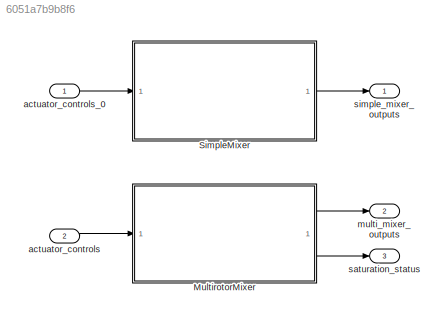
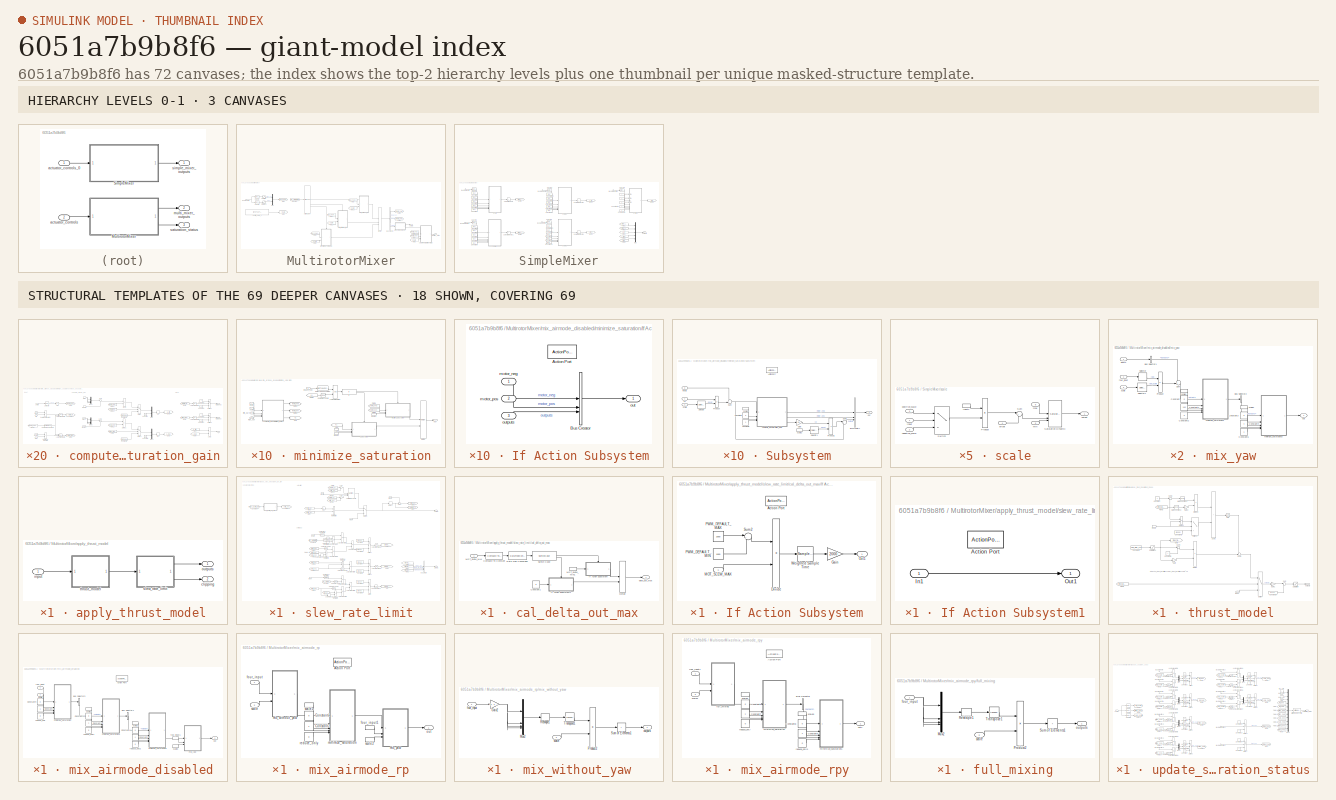
[diagram: thumbnail index - top-2 hierarchy levels (3 canvases) + 18 structural-template representatives of the remaining 69 canvases]
MODEL slx_6051a7b9b8f6
KIND model
CONFIG AbsTol = auto
CONFIG EnableMultiTasking = off
CONFIG FixedStep = auto
CONFIG MaxStep = auto
CONFIG MinStep = auto
CONFIG RelTol = 1e-3
CONFIG SampleTimeConstraint = Unconstrained
CONFIG SolverName = FixedStepAuto
CONFIG StartTime = 0.0
CONFIG StopTime = 10.0
BLOCK [SubSystem] MultirotorMixer
BLOCK [Inport] MultirotorMixer/Bus Element In
BLOCK [BusSelector] MultirotorMixer/Bus Selector
  OutputSignals = motor_neg,motor_pos,outputs
BLOCK [Constant] MultirotorMixer/Constant
  Value = MC_AIRMODE
BLOCK [From] MultirotorMixer/From1
  GotoTag = scale
BLOCK [From] MultirotorMixer/From10
  GotoTag = scale
BLOCK [From] MultirotorMixer/From2
  GotoTag = four_channel
BLOCK [From] MultirotorMixer/From3
  GotoTag = scale
BLOCK [From] MultirotorMixer/From4
  GotoTag = four_channel
BLOCK [From] MultirotorMixer/From6
  GotoTag = motor_neg
BLOCK [From] MultirotorMixer/From7
  GotoTag = motor_pos
BLOCK [From] MultirotorMixer/From8
  GotoTag = scale
BLOCK [From] MultirotorMixer/From9
  GotoTag = four_channel
BLOCK [Goto] MultirotorMixer/Goto1
  GotoTag = four_channel
BLOCK [Goto] MultirotorMixer/Goto2
  GotoTag = motor_neg
BLOCK [Goto] MultirotorMixer/Goto3
  GotoTag = motor_pos
BLOCK [Goto] MultirotorMixer/Goto4
  GotoTag = scale
BLOCK [Merge] MultirotorMixer/Merge
  Inputs = 3
BLOCK [Mux] MultirotorMixer/Mux
  DisplayOption = bar
  Inputs = 2
BLOCK [Saturate] MultirotorMixer/Saturation
  AttributesFormatString = [%<LowerLimit>, %<UpperLimit>]
  LowerLimit = -1.0
  UpperLimit = 1.0
BLOCK [Saturate] MultirotorMixer/Saturation1
  AttributesFormatString = [%<LowerLimit>, %<UpperLimit>]
  LowerLimit = 0.0
  UpperLimit = 1.0
BLOCK [Selector] MultirotorMixer/Selector
  AttributesFormatString = %<Indices>
  IndexOptions = Index vector (dialog)
  Indices = [1 2 3]
  InputPortWidth = 8
  OutputSizes = 1
BLOCK [Selector] MultirotorMixer/Selector1
  AttributesFormatString = %<Indices>
  IndexOptions = Index vector (dialog)
  Indices = 4
  InputPortWidth = 8
  OutputSizes = 1
BLOCK [SwitchCase] MultirotorMixer/Switch Case
  CaseConditions = {1 2}
BLOCK [SubSystem] MultirotorMixer/apply_thrust_model
BLOCK [Outport] MultirotorMixer/apply_thrust_model/clipping
  Port = 2
BLOCK [Inport] MultirotorMixer/apply_thrust_model/input
BLOCK [Outport] MultirotorMixer/apply_thrust_model/outputs
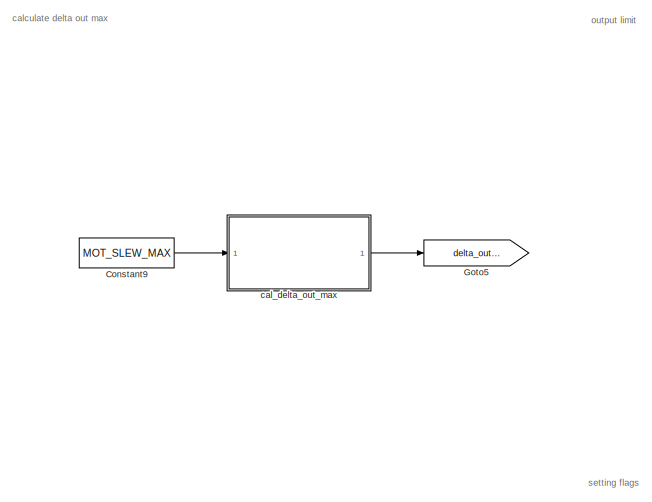
[diagram: MultirotorMixer/apply_thrust_model/slew_rate_limit - part 1/3, top left region]
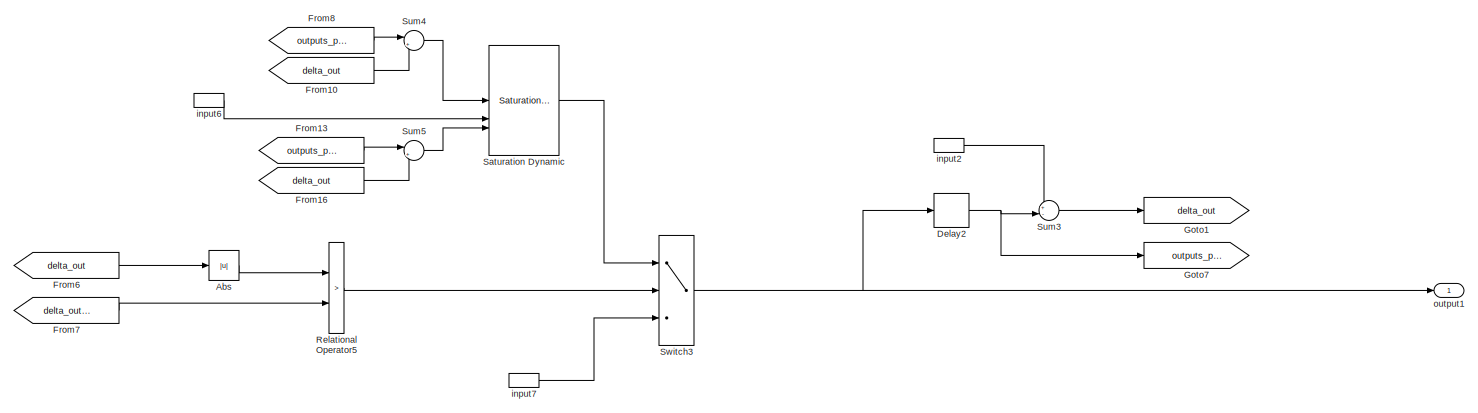
[diagram: MultirotorMixer/apply_thrust_model/slew_rate_limit - part 2/3, top center region]
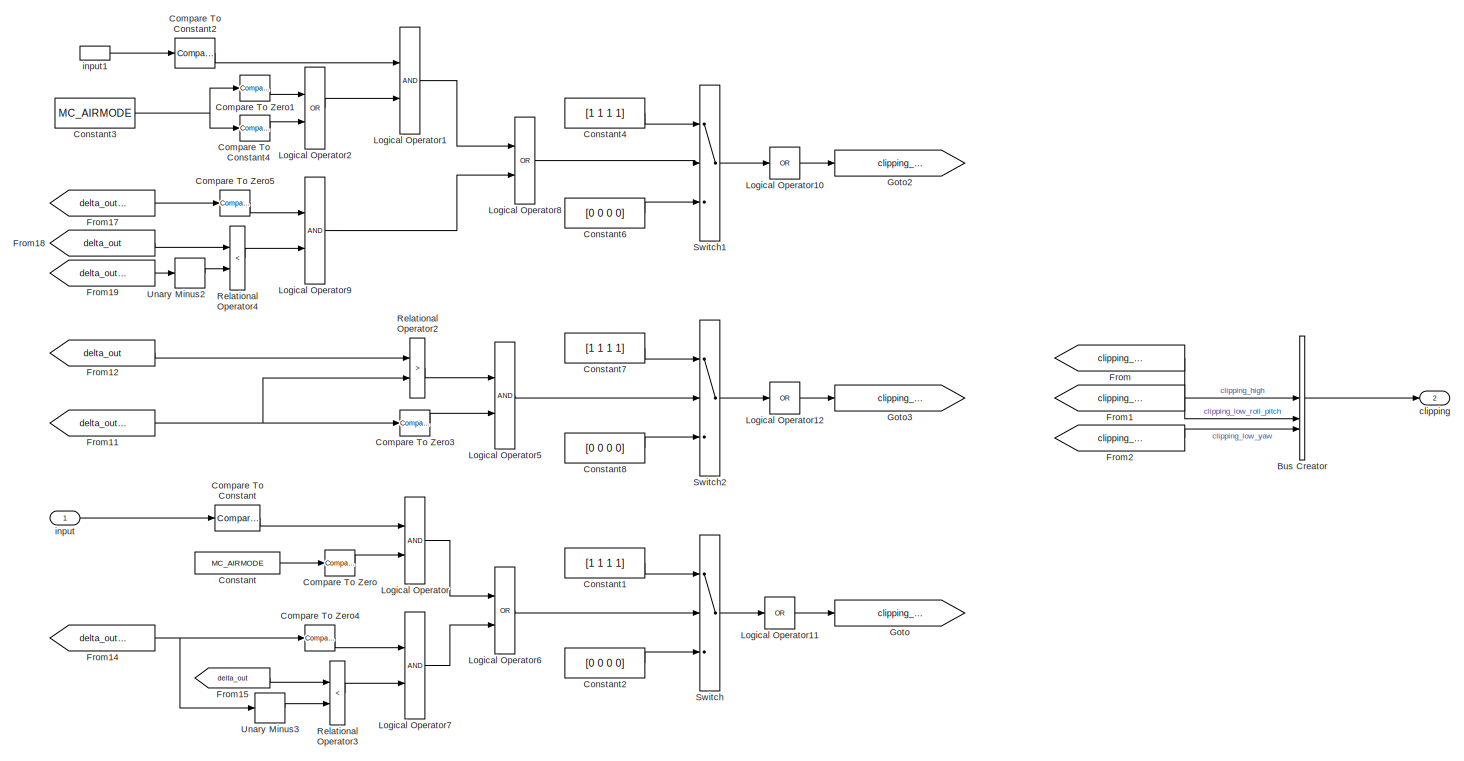
[diagram: MultirotorMixer/apply_thrust_model/slew_rate_limit - part 3/3, bottom center region]
BLOCK [SubSystem] MultirotorMixer/apply_thrust_model/slew_rate_limit
BLOCK [Abs] MultirotorMixer/apply_thrust_model/slew_rate_limit/Abs
  SaturateOnIntegerOverflow = off
BLOCK [BusCreator] MultirotorMixer/apply_thrust_model/slew_rate_limit/Bus Creator
  DisplayOption = bar
  InheritFromInputs = on
  Inputs = 3
BLOCK [Reference] MultirotorMixer/apply_thrust_model/slew_rate_limit/Compare To Constant  REF=simulink/Logic and Bit
Operations/Compare
To Constant
  SourceBlock = simulink/Logic and Bit\nOperations/Compare\nTo Constant
  SourceType = Compare To Constant
BLOCK [Reference] MultirotorMixer/apply_thrust_model/slew_rate_limit/Compare To Constant2  REF=simulink/Logic and Bit
Operations/Compare
To Constant
  SourceBlock = simulink/Logic and Bit\nOperations/Compare\nTo Constant
  SourceType = Compare To Constant
BLOCK [Reference] MultirotorMixer/apply_thrust_model/slew_rate_limit/Compare To Constant4  REF=simulink/Logic and Bit
Operations/Compare
To Constant
  SourceBlock = simulink/Logic and Bit\nOperations/Compare\nTo Constant
  SourceType = Compare To Constant
BLOCK [Reference] MultirotorMixer/apply_thrust_model/slew_rate_limit/Compare To Zero  REF=simulink/Logic and Bit
Operations/Compare
To Zero
  SourceBlock = simulink/Logic and Bit\nOperations/Compare\nTo Zero
  SourceType = Compare To Zero
BLOCK [Reference] MultirotorMixer/apply_thrust_model/slew_rate_limit/Compare To Zero1  REF=simulink/Logic and Bit
Operations/Compare
To Zero
  SourceBlock = simulink/Logic and Bit\nOperations/Compare\nTo Zero
  SourceType = Compare To Zero
BLOCK [Reference] MultirotorMixer/apply_thrust_model/slew_rate_limit/Compare To Zero3  REF=simulink/Logic and Bit
Operations/Compare
To Zero
  SourceBlock = simulink/Logic and Bit\nOperations/Compare\nTo Zero
  SourceType = Compare To Zero
BLOCK [Reference] MultirotorMixer/apply_thrust_model/slew_rate_limit/Compare To Zero4  REF=simulink/Logic and Bit
Operations/Compare
To Zero
  SourceBlock = simulink/Logic and Bit\nOperations/Compare\nTo Zero
  SourceType = Compare To Zero
BLOCK [Reference] MultirotorMixer/apply_thrust_model/slew_rate_limit/Compare To Zero5  REF=simulink/Logic and Bit
Operations/Compare
To Zero
  SourceBlock = simulink/Logic and Bit\nOperations/Compare\nTo Zero
  SourceType = Compare To Zero
BLOCK [Constant] MultirotorMixer/apply_thrust_model/slew_rate_limit/Constant
  Value = MC_AIRMODE
BLOCK [Constant] MultirotorMixer/apply_thrust_model/slew_rate_limit/Constant1
  OutDataTypeStr = boolean
  Value = [1 1 1 1]
BLOCK [Constant] MultirotorMixer/apply_thrust_model/slew_rate_limit/Constant2
  OutDataTypeStr = boolean
  Value = [0 0 0 0]
BLOCK [Constant] MultirotorMixer/apply_thrust_model/slew_rate_limit/Constant3
  Value = MC_AIRMODE
BLOCK [Constant] MultirotorMixer/apply_thrust_model/slew_rate_limit/Constant4
  OutDataTypeStr = boolean
  Value = [1 1 1 1]
BLOCK [Constant] MultirotorMixer/apply_thrust_model/slew_rate_limit/Constant6
  OutDataTypeStr = boolean
  Value = [0 0 0 0]
BLOCK [Constant] MultirotorMixer/apply_thrust_model/slew_rate_limit/Constant7
  OutDataTypeStr = boolean
  Value = [1 1 1 1]
BLOCK [Constant] MultirotorMixer/apply_thrust_model/slew_rate_limit/Constant8
  OutDataTypeStr = boolean
  Value = [0 0 0 0]
BLOCK [Constant] MultirotorMixer/apply_thrust_model/slew_rate_limit/Constant9
  Value = MOT_SLEW_MAX
BLOCK [Delay] MultirotorMixer/apply_thrust_model/slew_rate_limit/Delay2
  DelayLength = 1
  InputPortMap = u0
BLOCK [From] MultirotorMixer/apply_thrust_model/slew_rate_limit/From
  GotoTag = clipping_high
BLOCK [From] MultirotorMixer/apply_thrust_model/slew_rate_limit/From1
  GotoTag = clipping_low_roll_pitch
BLOCK [From] MultirotorMixer/apply_thrust_model/slew_rate_limit/From10
  GotoTag = delta_out
BLOCK [From] MultirotorMixer/apply_thrust_model/slew_rate_limit/From11
  GotoTag = delta_out_max
BLOCK [From] MultirotorMixer/apply_thrust_model/slew_rate_limit/From12
  GotoTag = delta_out
BLOCK [From] MultirotorMixer/apply_thrust_model/slew_rate_limit/From13
  GotoTag = outputs_prev
BLOCK [From] MultirotorMixer/apply_thrust_model/slew_rate_limit/From14
  GotoTag = delta_out_max
BLOCK [From] MultirotorMixer/apply_thrust_model/slew_rate_limit/From15
  GotoTag = delta_out
BLOCK [From] MultirotorMixer/apply_thrust_model/slew_rate_limit/From16
  GotoTag = delta_out
BLOCK [From] MultirotorMixer/apply_thrust_model/slew_rate_limit/From17
  GotoTag = delta_out_max
BLOCK [From] MultirotorMixer/apply_thrust_model/slew_rate_limit/From18
  GotoTag = delta_out
BLOCK [From] MultirotorMixer/apply_thrust_model/slew_rate_limit/From19
  GotoTag = delta_out_max
BLOCK [From] MultirotorMixer/apply_thrust_model/slew_rate_limit/From2
  GotoTag = clipping_low_yaw
BLOCK [From] MultirotorMixer/apply_thrust_model/slew_rate_limit/From6
  GotoTag = delta_out
BLOCK [From] MultirotorMixer/apply_thrust_model/slew_rate_limit/From7
  GotoTag = delta_out_max
BLOCK [From] MultirotorMixer/apply_thrust_model/slew_rate_limit/From8
  GotoTag = outputs_prev
BLOCK [Goto] MultirotorMixer/apply_thrust_model/slew_rate_limit/Goto
  GotoTag = clipping_low_roll_pitch
BLOCK [Goto] MultirotorMixer/apply_thrust_model/slew_rate_limit/Goto1
  GotoTag = delta_out
BLOCK [Goto] MultirotorMixer/apply_thrust_model/slew_rate_limit/Goto2
  GotoTag = clipping_low_yaw
BLOCK [Goto] MultirotorMixer/apply_thrust_model/slew_rate_limit/Goto3
  GotoTag = clipping_high
BLOCK [Goto] MultirotorMixer/apply_thrust_model/slew_rate_limit/Goto5
  GotoTag = delta_out_max
BLOCK [Goto] MultirotorMixer/apply_thrust_model/slew_rate_limit/Goto7
  GotoTag = outputs_prev
BLOCK [Logic] MultirotorMixer/apply_thrust_model/slew_rate_limit/Logical Operator
  AllPortsSameDT = off
  OutDataTypeStr = boolean
BLOCK [Logic] MultirotorMixer/apply_thrust_model/slew_rate_limit/Logical Operator1
  AllPortsSameDT = off
  OutDataTypeStr = boolean
BLOCK [Logic] MultirotorMixer/apply_thrust_model/slew_rate_limit/Logical Operator10
  AllPortsSameDT = off
  Inputs = 1
  Operator = OR
  OutDataTypeStr = boolean
BLOCK [Logic] MultirotorMixer/apply_thrust_model/slew_rate_limit/Logical Operator11
  AllPortsSameDT = off
  Inputs = 1
  Operator = OR
  OutDataTypeStr = boolean
BLOCK [Logic] MultirotorMixer/apply_thrust_model/slew_rate_limit/Logical Operator12
  AllPortsSameDT = off
  Inputs = 1
  Operator = OR
  OutDataTypeStr = boolean
BLOCK [Logic] MultirotorMixer/apply_thrust_model/slew_rate_limit/Logical Operator2
  AllPortsSameDT = off
  Operator = OR
  OutDataTypeStr = boolean
BLOCK [Logic] MultirotorMixer/apply_thrust_model/slew_rate_limit/Logical Operator5
  AllPortsSameDT = off
  OutDataTypeStr = boolean
BLOCK [Logic] MultirotorMixer/apply_thrust_model/slew_rate_limit/Logical Operator6
  AllPortsSameDT = off
  Operator = OR
  OutDataTypeStr = boolean
BLOCK [Logic] MultirotorMixer/apply_thrust_model/slew_rate_limit/Logical Operator7
  AllPortsSameDT = off
  OutDataTypeStr = boolean
BLOCK [Logic] MultirotorMixer/apply_thrust_model/slew_rate_limit/Logical Operator8
  AllPortsSameDT = off
  Operator = OR
  OutDataTypeStr = boolean
BLOCK [Logic] MultirotorMixer/apply_thrust_model/slew_rate_limit/Logical Operator9
  AllPortsSameDT = off
  OutDataTypeStr = boolean
BLOCK [RelationalOperator] MultirotorMixer/apply_thrust_model/slew_rate_limit/Relational Operator2
  InputSameDT = off
  Operator = >
  OutDataTypeStr = boolean
  RndMeth = Simplest
BLOCK [RelationalOperator] MultirotorMixer/apply_thrust_model/slew_rate_limit/Relational Operator3
  InputSameDT = off
  Operator = <
  OutDataTypeStr = boolean
  RndMeth = Simplest
BLOCK [RelationalOperator] MultirotorMixer/apply_thrust_model/slew_rate_limit/Relational Operator4
  InputSameDT = off
  Operator = <
  OutDataTypeStr = boolean
  RndMeth = Simplest
BLOCK [RelationalOperator] MultirotorMixer/apply_thrust_model/slew_rate_limit/Relational Operator5
  InputSameDT = off
  Operator = >
  OutDataTypeStr = boolean
  RndMeth = Simplest
BLOCK [Reference] MultirotorMixer/apply_thrust_model/slew_rate_limit/Saturation Dynamic  REF=simulink/Discontinuities/Saturation
Dynamic
  SourceBlock = simulink/Discontinuities/Saturation\nDynamic
  SourceType = Saturation Dynamic
BLOCK [Sum] MultirotorMixer/apply_thrust_model/slew_rate_limit/Sum3
  Inputs = +-|
BLOCK [Sum] MultirotorMixer/apply_thrust_model/slew_rate_limit/Sum4
  Inputs = |++
BLOCK [Sum] MultirotorMixer/apply_thrust_model/slew_rate_limit/Sum5
  Inputs = |+-
BLOCK [Switch] MultirotorMixer/apply_thrust_model/slew_rate_limit/Switch
  Criteria = u2 ~= 0
  InputSameDT = off
  SaturateOnIntegerOverflow = off
BLOCK [Switch] MultirotorMixer/apply_thrust_model/slew_rate_limit/Switch1
  Criteria = u2 ~= 0
  InputSameDT = off
  SaturateOnIntegerOverflow = off
BLOCK [Switch] MultirotorMixer/apply_thrust_model/slew_rate_limit/Switch2
  Criteria = u2 ~= 0
  InputSameDT = off
  SaturateOnIntegerOverflow = off
BLOCK [Switch] MultirotorMixer/apply_thrust_model/slew_rate_limit/Switch3
  Criteria = u2 > Threshold
  InputSameDT = off
  SaturateOnIntegerOverflow = off
BLOCK [UnaryMinus] MultirotorMixer/apply_thrust_model/slew_rate_limit/Unary Minus2
BLOCK [UnaryMinus] MultirotorMixer/apply_thrust_model/slew_rate_limit/Unary Minus3
BLOCK [SubSystem] MultirotorMixer/apply_thrust_model/slew_rate_limit/cal_delta_out_max
BLOCK [Reference] MultirotorMixer/apply_thrust_model/slew_rate_limit/cal_delta_out_max/Compare To Constant  REF=simulink/Logic and Bit
Operations/Compare
To Constant
  SourceBlock = simulink/Logic and Bit\nOperations/Compare\nTo Constant
  SourceType = Compare To Constant
BLOCK [Constant] MultirotorMixer/apply_thrust_model/slew_rate_limit/cal_delta_out_max/Constant1
  OutDataTypeStr = single
  Value = 0
BLOCK [DataTypeConversion] MultirotorMixer/apply_thrust_model/slew_rate_limit/cal_delta_out_max/Data Type Conversion
  OutDataTypeStr = uint8
  RndMeth = Floor
  SaturateOnIntegerOverflow = off
BLOCK [SubSystem] MultirotorMixer/apply_thrust_model/slew_rate_limit/cal_delta_out_max/If Action Subsystem
  TreatAsAtomicUnit = on
BLOCK [ActionPort] MultirotorMixer/apply_thrust_model/slew_rate_limit/cal_delta_out_max/If Action Subsystem/Action Port
  ActionPortLabel = case [ 1 ]:
BLOCK [Product] MultirotorMixer/apply_thrust_model/slew_rate_limit/cal_delta_out_max/If Action Subsystem/Divide
  Inputs = */
BLOCK [Gain] MultirotorMixer/apply_thrust_model/slew_rate_limit/cal_delta_out_max/If Action Subsystem/Gain
  Gain = 2000
  OutDataTypeStr = single
BLOCK [Inport] MultirotorMixer/apply_thrust_model/slew_rate_limit/cal_delta_out_max/If Action Subsystem/MOT_SLEW_MAX
BLOCK [Outport] MultirotorMixer/apply_thrust_model/slew_rate_limit/cal_delta_out_max/If Action Subsystem/Out1
BLOCK [Constant] MultirotorMixer/apply_thrust_model/slew_rate_limit/cal_delta_out_max/If Action Subsystem/PWM_DEFAULT_MAX
  OutDataTypeStr = single
  Value = 2000
BLOCK [Constant] MultirotorMixer/apply_thrust_model/slew_rate_limit/cal_delta_out_max/If Action Subsystem/PWM_DEFAULT_MIN
  OutDataTypeStr = single
  Value = 1000
BLOCK [Sum] MultirotorMixer/apply_thrust_model/slew_rate_limit/cal_delta_out_max/If Action Subsystem/Sum2
  Inputs = |+-
BLOCK [SampleTimeMath] MultirotorMixer/apply_thrust_model/slew_rate_limit/cal_delta_out_max/If Action Subsystem/Weighted Sample Time
  TsampMathOp = *
BLOCK [SubSystem] MultirotorMixer/apply_thrust_model/slew_rate_limit/cal_delta_out_max/If Action Subsystem1
  TreatAsAtomicUnit = on
BLOCK [ActionPort] MultirotorMixer/apply_thrust_model/slew_rate_limit/cal_delta_out_max/If Action Subsystem1/Action Port
  ActionPortLabel = default:
BLOCK [Inport] MultirotorMixer/apply_thrust_model/slew_rate_limit/cal_delta_out_max/If Action Subsystem1/In1
BLOCK [Outport] MultirotorMixer/apply_thrust_model/slew_rate_limit/cal_delta_out_max/If Action Subsystem1/Out1
BLOCK [Inport] MultirotorMixer/apply_thrust_model/slew_rate_limit/cal_delta_out_max/MOT_SLEW_MAX
BLOCK [InportShadow] MultirotorMixer/apply_thrust_model/slew_rate_limit/cal_delta_out_max/MOT_SLEW_MAX1
BLOCK [Merge] MultirotorMixer/apply_thrust_model/slew_rate_limit/cal_delta_out_max/Merge
BLOCK [SwitchCase] MultirotorMixer/apply_thrust_model/slew_rate_limit/cal_delta_out_max/Switch Case
BLOCK [Outport] MultirotorMixer/apply_thrust_model/slew_rate_limit/cal_delta_out_max/delta_out_max
BLOCK [Outport] MultirotorMixer/apply_thrust_model/slew_rate_limit/clipping
  Port = 2
BLOCK [Inport] MultirotorMixer/apply_thrust_model/slew_rate_limit/input
BLOCK [InportShadow] MultirotorMixer/apply_thrust_model/slew_rate_limit/input1
BLOCK [InportShadow] MultirotorMixer/apply_thrust_model/slew_rate_limit/input2
BLOCK [InportShadow] MultirotorMixer/apply_thrust_model/slew_rate_limit/input6
BLOCK [InportShadow] MultirotorMixer/apply_thrust_model/slew_rate_limit/input7
BLOCK [Outport] MultirotorMixer/apply_thrust_model/slew_rate_limit/output1
BLOCK [SubSystem] MultirotorMixer/apply_thrust_model/thrust_model
BLOCK [Constant] MultirotorMixer/apply_thrust_model/thrust_model/Constant
  OutDataTypeStr = single
BLOCK [Constant] MultirotorMixer/apply_thrust_model/thrust_model/Constant1
  OutDataTypeStr = single
  Value = [1 1 1 1]
BLOCK [Constant] MultirotorMixer/apply_thrust_model/thrust_model/Constant2
  AttributesFormatString = %<Value>
  Value = THR_MDL_FAC
BLOCK [Constant] MultirotorMixer/apply_thrust_model/thrust_model/Constant3
  OutDataTypeStr = single
  Value = [0 0 0 0]
BLOCK [Constant] MultirotorMixer/apply_thrust_model/thrust_model/Constant5
BLOCK [Product] MultirotorMixer/apply_thrust_model/thrust_model/Divide
  Inputs = */
BLOCK [Product] MultirotorMixer/apply_thrust_model/thrust_model/Divide1
  Inputs = /*
BLOCK [Product] MultirotorMixer/apply_thrust_model/thrust_model/Divide2
  Inputs = */
BLOCK [From] MultirotorMixer/apply_thrust_model/thrust_model/From1
  GotoTag = thrust_factor
BLOCK [From] MultirotorMixer/apply_thrust_model/thrust_model/From3
  GotoTag = thrust_factor
BLOCK [Gain] MultirotorMixer/apply_thrust_model/thrust_model/Gain
  Gain = 2
BLOCK [Gain] MultirotorMixer/apply_thrust_model/thrust_model/Gain1
  Gain = 2
BLOCK [Gain] MultirotorMixer/apply_thrust_model/thrust_model/Gain2
  Gain = 4
BLOCK [Goto] MultirotorMixer/apply_thrust_model/thrust_model/Goto
  GotoTag = thrust_factor
BLOCK [Math] MultirotorMixer/apply_thrust_model/thrust_model/Math Function1
  Operator = square
BLOCK [Math] MultirotorMixer/apply_thrust_model/thrust_model/Math Function2
  Operator = square
BLOCK [Saturate] MultirotorMixer/apply_thrust_model/thrust_model/Saturation
  AttributesFormatString = [%<LowerLimit>, %<UpperLimit>]
  LowerLimit = -1
  UpperLimit = 1
BLOCK [Saturate] MultirotorMixer/apply_thrust_model/thrust_model/Saturation1
  AttributesFormatString = [%<LowerLimit>, %<UpperLimit>]
  LowerLimit = 0
  UpperLimit = 1
BLOCK [Sqrt] MultirotorMixer/apply_thrust_model/thrust_model/Sqrt
BLOCK [Sum] MultirotorMixer/apply_thrust_model/thrust_model/Sum
  Inputs = |+-
BLOCK [Sum] MultirotorMixer/apply_thrust_model/thrust_model/Sum2
  Inputs = |+-
BLOCK [Sum] MultirotorMixer/apply_thrust_model/thrust_model/Sum3
  IconShape = rectangular
BLOCK [Sum] MultirotorMixer/apply_thrust_model/thrust_model/Sum4
  Inputs = |+-
BLOCK [Sum] MultirotorMixer/apply_thrust_model/thrust_model/Sum5
  Inputs = ++|
BLOCK [Switch] MultirotorMixer/apply_thrust_model/thrust_model/Switch
  Criteria = u2 > Threshold
  InputSameDT = off
  SaturateOnIntegerOverflow = off
BLOCK [Switch] MultirotorMixer/apply_thrust_model/thrust_model/Switch1
  InputSameDT = off
  SaturateOnIntegerOverflow = off
BLOCK [Inport] MultirotorMixer/apply_thrust_model/thrust_model/input
BLOCK [InportShadow] MultirotorMixer/apply_thrust_model/thrust_model/input1
BLOCK [Outport] MultirotorMixer/apply_thrust_model/thrust_model/outputs
BLOCK [Constant] MultirotorMixer/config_quad_x
  OutDataTypeStr = single
  Value = [-0.707107, 0.707107, 1.000000, 1.000000; 0.707107, -0.707107, 1.000000, 1.000000; 0.707107, 0.707107, -1.000000, 1.000000; -0.707107, -0.707107, -1.000000, 1.000000]
BLOCK [SubSystem] MultirotorMixer/mix_airmode_disabled
BLOCK [ActionPort] MultirotorMixer/mix_airmode_disabled/Action Port
  ActionPortLabel = default:
BLOCK [BusSelector] MultirotorMixer/mix_airmode_disabled/Bus Selector3
  OutputSignals = outputs
BLOCK [BusSelector] MultirotorMixer/mix_airmode_disabled/Bus Selector4
  OutputSignals = outputs
BLOCK [Constant] MultirotorMixer/mix_airmode_disabled/Constant10
  OutDataTypeStr = single
BLOCK [Constant] MultirotorMixer/mix_airmode_disabled/Constant11
  OutDataTypeStr = single
BLOCK [Constant] MultirotorMixer/mix_airmode_disabled/Constant12
  OutDataTypeStr = single
  Value = 0
BLOCK [Constant] MultirotorMixer/mix_airmode_disabled/Constant13
  OutDataTypeStr = single
BLOCK [Constant] MultirotorMixer/mix_airmode_disabled/Constant14
  OutDataTypeStr = single
  Value = 0
BLOCK [Constant] MultirotorMixer/mix_airmode_disabled/Constant9
  OutDataTypeStr = single
  Value = 0
BLOCK [Inport] MultirotorMixer/mix_airmode_disabled/four_input
BLOCK [InportShadow] MultirotorMixer/mix_airmode_disabled/four_input1
BLOCK [SubSystem] MultirotorMixer/mix_airmode_disabled/minimize_saturation
BLOCK [Reference] MultirotorMixer/mix_airmode_disabled/minimize_saturation/Compare To Zero  REF=simulink/Logic and Bit
Operations/Compare
To Zero
  SourceBlock = simulink/Logic and Bit\nOperations/Compare\nTo Zero
  SourceType = Compare To Zero
BLOCK [DataTypeConversion] MultirotorMixer/mix_airmode_disabled/minimize_saturation/Data Type Conversion
  OutDataTypeStr = boolean
  RndMeth = Floor
  SaturateOnIntegerOverflow = off
BLOCK [From] MultirotorMixer/mix_airmode_disabled/minimize_saturation/From
  GotoTag = k1
BLOCK [From] MultirotorMixer/mix_airmode_disabled/minimize_saturation/From1
  GotoTag = motor_neg
BLOCK [From] MultirotorMixer/mix_airmode_disabled/minimize_saturation/From2
  GotoTag = motor_pos
BLOCK [From] MultirotorMixer/mix_airmode_disabled/minimize_saturation/From4
  GotoTag = k1
BLOCK [Goto] MultirotorMixer/mix_airmode_disabled/minimize_saturation/Goto
  GotoTag = k1
BLOCK [Goto] MultirotorMixer/mix_airmode_disabled/minimize_saturation/Goto1
  GotoTag = motor_neg
BLOCK [Goto] MultirotorMixer/mix_airmode_disabled/minimize_saturation/Goto2
  GotoTag = motor_pos
BLOCK [If] MultirotorMixer/mix_airmode_disabled/minimize_saturation/If
  IfExpression = u1
BLOCK [SubSystem] MultirotorMixer/mix_airmode_disabled/minimize_saturation/If Action Subsystem
  TreatAsAtomicUnit = on
BLOCK [ActionPort] MultirotorMixer/mix_airmode_disabled/minimize_saturation/If Action Subsystem/Action Port
  ActionPortLabel = if(u1)
BLOCK [BusCreator] MultirotorMixer/mix_airmode_disabled/minimize_saturation/If Action Subsystem/Bus Creator
  DisplayOption = bar
  InheritFromInputs = on
  Inputs = 3
BLOCK [Inport] MultirotorMixer/mix_airmode_disabled/minimize_saturation/If Action Subsystem/motor_neg
BLOCK [Inport] MultirotorMixer/mix_airmode_disabled/minimize_saturation/If Action Subsystem/motor_pos
  Port = 2
BLOCK [Outport] MultirotorMixer/mix_airmode_disabled/minimize_saturation/If Action Subsystem/out
BLOCK [Inport] MultirotorMixer/mix_airmode_disabled/minimize_saturation/If Action Subsystem/outputs
  Port = 3
BLOCK [Logic] MultirotorMixer/mix_airmode_disabled/minimize_saturation/Logical Operator
  AllPortsSameDT = off
  OutDataTypeStr = boolean
BLOCK [Merge] MultirotorMixer/mix_airmode_disabled/minimize_saturation/Merge
BLOCK [SubSystem] MultirotorMixer/mix_airmode_disabled/minimize_saturation/Subsystem
BLOCK [ActionPort] MultirotorMixer/mix_airmode_disabled/minimize_saturation/Subsystem/Action Port
  ActionPortLabel = else
BLOCK [BusCreator] MultirotorMixer/mix_airmode_disabled/minimize_saturation/Subsystem/Bus Creator1
  DisplayOption = bar
  InheritFromInputs = on
  Inputs = 3
BLOCK [Constant] MultirotorMixer/mix_airmode_disabled/minimize_saturation/Subsystem/Constant1
  OutDataTypeStr = single
  Value = 0
BLOCK [Constant] MultirotorMixer/mix_airmode_disabled/minimize_saturation/Subsystem/Constant2
  OutDataTypeStr = single
BLOCK [Gain] MultirotorMixer/mix_airmode_disabled/minimize_saturation/Subsystem/Gain
  Gain = 0.5
BLOCK [Product] MultirotorMixer/mix_airmode_disabled/minimize_saturation/Subsystem/Product
BLOCK [Product] MultirotorMixer/mix_airmode_disabled/minimize_saturation/Subsystem/Product1
BLOCK [Selector] MultirotorMixer/mix_airmode_disabled/minimize_saturation/Subsystem/Selector
  AttributesFormatString = %<Indices>
  IndexOptions = Select all,Index vector (dialog)
  Indices = [1 3],4
  InputPortWidth = 3
  NumberOfDimensions = 2
  OutputSizes = 1,1
BLOCK [Selector] MultirotorMixer/mix_airmode_disabled/minimize_saturation/Subsystem/Selector1
  AttributesFormatString = %<Indices>
  IndexOptions = Select all,Index vector (dialog)
  Indices = [1 3],4
  InputPortWidth = 3
  NumberOfDimensions = 2
  OutputSizes = 1,1
BLOCK [Sum] MultirotorMixer/mix_airmode_disabled/minimize_saturation/Subsystem/Sum
  Inputs = ++|
BLOCK [Sum] MultirotorMixer/mix_airmode_disabled/minimize_saturation/Subsystem/Sum1
  Inputs = |++
BLOCK [SubSystem] MultirotorMixer/mix_airmode_disabled/minimize_saturation/Subsystem/compute_desaturation_gain
BLOCK [Abs] MultirotorMixer/mix_airmode_disabled/minimize_saturation/Subsystem/compute_desaturation_gain/Abs
  SaturateOnIntegerOverflow = off
BLOCK [Reference] MultirotorMixer/mix_airmode_disabled/minimize_saturation/Subsystem/compute_desaturation_gain/Compare To Constant  REF=simulink/Logic and Bit
Operations/Compare
To Constant
  AttributesFormatString = %<relop>%<const>
  SourceBlock = simulink/Logic and Bit\nOperations/Compare\nTo Constant
  SourceType = Compare To Constant
BLOCK [Constant] MultirotorMixer/mix_airmode_disabled/minimize_saturation/Subsystem/compute_desaturation_gain/Constant
  OutDataTypeStr = single
  Value = 0
BLOCK [Constant] MultirotorMixer/mix_airmode_disabled/minimize_saturation/Subsystem/compute_desaturation_gain/Constant1
  OutDataTypeStr = single
  Value = zeros(4,1)
BLOCK [Constant] MultirotorMixer/mix_airmode_disabled/minimize_saturation/Subsystem/compute_desaturation_gain/Constant2
  OutDataTypeStr = single
BLOCK [Constant] MultirotorMixer/mix_airmode_disabled/minimize_saturation/Subsystem/compute_desaturation_gain/Constant3
  OutDataTypeStr = single
  Value = 0
BLOCK [Constant] MultirotorMixer/mix_airmode_disabled/minimize_saturation/Subsystem/compute_desaturation_gain/Constant5
  OutDataTypeStr = single
  Value = zeros(4,1)
BLOCK [Constant] MultirotorMixer/mix_airmode_disabled/minimize_saturation/Subsystem/compute_desaturation_gain/Constant6
  OutDataTypeStr = single
BLOCK [Constant] MultirotorMixer/mix_airmode_disabled/minimize_saturation/Subsystem/compute_desaturation_gain/Constant7
  OutDataTypeStr = single
  Value = 0
BLOCK [Constant] MultirotorMixer/mix_airmode_disabled/minimize_saturation/Subsystem/compute_desaturation_gain/Constant8
  OutDataTypeStr = single
  Value = 0
BLOCK [Product] MultirotorMixer/mix_airmode_disabled/minimize_saturation/Subsystem/compute_desaturation_gain/Divide
  Inputs = */
BLOCK [Product] MultirotorMixer/mix_airmode_disabled/minimize_saturation/Subsystem/compute_desaturation_gain/Divide1
  Inputs = */
BLOCK [From] MultirotorMixer/mix_airmode_disabled/minimize_saturation/Subsystem/compute_desaturation_gain/From
  GotoTag = k_min
BLOCK [From] MultirotorMixer/mix_airmode_disabled/minimize_saturation/Subsystem/compute_desaturation_gain/From10
  GotoTag = desat_vector
BLOCK [From] MultirotorMixer/mix_airmode_disabled/minimize_saturation/Subsystem/compute_desaturation_gain/From11
  GotoTag = desat_vector
BLOCK [From] MultirotorMixer/mix_airmode_disabled/minimize_saturation/Subsystem/compute_desaturation_gain/From12
  GotoTag = desat_vector
BLOCK [From] MultirotorMixer/mix_airmode_disabled/minimize_saturation/Subsystem/compute_desaturation_gain/From13
  GotoTag = smaller_min
BLOCK [From] MultirotorMixer/mix_airmode_disabled/minimize_saturation/Subsystem/compute_desaturation_gain/From2
  GotoTag = larger_max
BLOCK [From] MultirotorMixer/mix_airmode_disabled/minimize_saturation/Subsystem/compute_desaturation_gain/From3
  GotoTag = larger_max
BLOCK [From] MultirotorMixer/mix_airmode_disabled/minimize_saturation/Subsystem/compute_desaturation_gain/From4
  GotoTag = k_max
BLOCK [From] MultirotorMixer/mix_airmode_disabled/minimize_saturation/Subsystem/compute_desaturation_gain/From5
  GotoTag = smaller_min
BLOCK [Goto] MultirotorMixer/mix_airmode_disabled/minimize_saturation/Subsystem/compute_desaturation_gain/Goto
  GotoTag = smaller_min
BLOCK [Goto] MultirotorMixer/mix_airmode_disabled/minimize_saturation/Subsystem/compute_desaturation_gain/Goto1
  GotoTag = larger_max
BLOCK [Goto] MultirotorMixer/mix_airmode_disabled/minimize_saturation/Subsystem/compute_desaturation_gain/Goto2
  GotoTag = k_min
BLOCK [Goto] MultirotorMixer/mix_airmode_disabled/minimize_saturation/Subsystem/compute_desaturation_gain/Goto3
  GotoTag = k_max
BLOCK [Goto] MultirotorMixer/mix_airmode_disabled/minimize_saturation/Subsystem/compute_desaturation_gain/Goto6
  GotoTag = desat_vector
BLOCK [Logic] MultirotorMixer/mix_airmode_disabled/minimize_saturation/Subsystem/compute_desaturation_gain/Logical Operator
  AllPortsSameDT = off
  Inputs = 1
  Operator = OR
  OutDataTypeStr = boolean
BLOCK [Logic] MultirotorMixer/mix_airmode_disabled/minimize_saturation/Subsystem/compute_desaturation_gain/Logical Operator1
  AllPortsSameDT = off
  Inputs = 1
  Operator = OR
  OutDataTypeStr = boolean
BLOCK [Logic] MultirotorMixer/mix_airmode_disabled/minimize_saturation/Subsystem/compute_desaturation_gain/Logical Operator2
  AllPortsSameDT = off
  OutDataTypeStr = boolean
BLOCK [Logic] MultirotorMixer/mix_airmode_disabled/minimize_saturation/Subsystem/compute_desaturation_gain/Logical Operator3
  AllPortsSameDT = off
  OutDataTypeStr = boolean
BLOCK [MinMax] MultirotorMixer/mix_airmode_disabled/minimize_saturation/Subsystem/compute_desaturation_gain/Min
BLOCK [MinMax] MultirotorMixer/mix_airmode_disabled/minimize_saturation/Subsystem/compute_desaturation_gain/Min1
  Function = max
BLOCK [Mux] MultirotorMixer/mix_airmode_disabled/minimize_saturation/Subsystem/compute_desaturation_gain/Mux
  DisplayOption = bar
  Inputs = 2
BLOCK [Mux] MultirotorMixer/mix_airmode_disabled/minimize_saturation/Subsystem/compute_desaturation_gain/Mux1
  DisplayOption = bar
  Inputs = 2
BLOCK [Mux] MultirotorMixer/mix_airmode_disabled/minimize_saturation/Subsystem/compute_desaturation_gain/Mux2
  DisplayOption = bar
BLOCK [Mux] MultirotorMixer/mix_airmode_disabled/minimize_saturation/Subsystem/compute_desaturation_gain/Mux3
  DisplayOption = bar
BLOCK [RelationalOperator] MultirotorMixer/mix_airmode_disabled/minimize_saturation/Subsystem/compute_desaturation_gain/Relational Operator
  InputSameDT = off
  Operator = <
  OutDataTypeStr = boolean
  RndMeth = Simplest
BLOCK [RelationalOperator] MultirotorMixer/mix_airmode_disabled/minimize_saturation/Subsystem/compute_desaturation_gain/Relational Operator1
  InputSameDT = off
  Operator = >
  OutDataTypeStr = boolean
  RndMeth = Simplest
BLOCK [Selector] MultirotorMixer/mix_airmode_disabled/minimize_saturation/Subsystem/compute_desaturation_gain/Selector
  AttributesFormatString = %<Indices>
  IndexOptions = Select all,Index vector (dialog)
  Indices = [1 3],4
  InputPortWidth = 3
  NumberOfDimensions = 2
  OutputSizes = 1,1
BLOCK [Sum] MultirotorMixer/mix_airmode_disabled/minimize_saturation/Subsystem/compute_desaturation_gain/Sum
  Inputs = |+-
BLOCK [Sum] MultirotorMixer/mix_airmode_disabled/minimize_saturation/Subsystem/compute_desaturation_gain/Sum1
  Inputs = |+-
BLOCK [Sum] MultirotorMixer/mix_airmode_disabled/minimize_saturation/Subsystem/compute_desaturation_gain/Sum2
  IconShape = rectangular
BLOCK [Switch] MultirotorMixer/mix_airmode_disabled/minimize_saturation/Subsystem/compute_desaturation_gain/Switch
  Criteria = u2 ~= 0
  InputSameDT = off
  SaturateOnIntegerOverflow = off
BLOCK [Switch] MultirotorMixer/mix_airmode_disabled/minimize_saturation/Subsystem/compute_desaturation_gain/Switch1
  Criteria = u2 ~= 0
  InputSameDT = off
  SaturateOnIntegerOverflow = off
BLOCK [Switch] MultirotorMixer/mix_airmode_disabled/minimize_saturation/Subsystem/compute_desaturation_gain/Switch2
  Criteria = u2 ~= 0
  InputSameDT = off
  SaturateOnIntegerOverflow = off
BLOCK [Switch] MultirotorMixer/mix_airmode_disabled/minimize_saturation/Subsystem/compute_desaturation_gain/Switch3
  Criteria = u2 ~= 0
  InputSameDT = off
  SaturateOnIntegerOverflow = off
BLOCK [Inport] MultirotorMixer/mix_airmode_disabled/minimize_saturation/Subsystem/compute_desaturation_gain/inputs
BLOCK [InportShadow] MultirotorMixer/mix_airmode_disabled/minimize_saturation/Subsystem/compute_desaturation_gain/inputs1
BLOCK [InportShadow] MultirotorMixer/mix_airmode_disabled/minimize_saturation/Subsystem/compute_desaturation_gain/inputs2
BLOCK [InportShadow] MultirotorMixer/mix_airmode_disabled/minimize_saturation/Subsystem/compute_desaturation_gain/inputs3
BLOCK [Outport] MultirotorMixer/mix_airmode_disabled/minimize_saturation/Subsystem/compute_desaturation_gain/k
  Port = 3
BLOCK [Inport] MultirotorMixer/mix_airmode_disabled/minimize_saturation/Subsystem/compute_desaturation_gain/max
  Port = 4
BLOCK [InportShadow] MultirotorMixer/mix_airmode_disabled/minimize_saturation/Subsystem/compute_desaturation_gain/max1
  Port = 4
BLOCK [Inport] MultirotorMixer/mix_airmode_disabled/minimize_saturation/Subsystem/compute_desaturation_gain/min
  Port = 3
BLOCK [InportShadow] MultirotorMixer/mix_airmode_disabled/minimize_saturation/Subsystem/compute_desaturation_gain/min1
  Port = 3
BLOCK [Outport] MultirotorMixer/mix_airmode_disabled/minimize_saturation/Subsystem/compute_desaturation_gain/motor_neg
BLOCK [Outport] MultirotorMixer/mix_airmode_disabled/minimize_saturation/Subsystem/compute_desaturation_gain/motor_pos
  Port = 2
BLOCK [Inport] MultirotorMixer/mix_airmode_disabled/minimize_saturation/Subsystem/compute_desaturation_gain/scale
  Port = 2
BLOCK [Inport] MultirotorMixer/mix_airmode_disabled/minimize_saturation/Subsystem/inputs
  Port = 3
BLOCK [Inport] MultirotorMixer/mix_airmode_disabled/minimize_saturation/Subsystem/k1
BLOCK [Outport] MultirotorMixer/mix_airmode_disabled/minimize_saturation/Subsystem/out
BLOCK [Inport] MultirotorMixer/mix_airmode_disabled/minimize_saturation/Subsystem/scale
  Port = 2
BLOCK [InportShadow] MultirotorMixer/mix_airmode_disabled/minimize_saturation/Subsystem/scale1
  Port = 2
BLOCK [InportShadow] MultirotorMixer/mix_airmode_disabled/minimize_saturation/Subsystem/scale2
  Port = 2
BLOCK [SubSystem] MultirotorMixer/mix_airmode_disabled/minimize_saturation/compute_desaturation_gain
BLOCK [Abs] MultirotorMixer/mix_airmode_disabled/minimize_saturation/compute_desaturation_gain/Abs
  SaturateOnIntegerOverflow = off
BLOCK [Reference] MultirotorMixer/mix_airmode_disabled/minimize_saturation/compute_desaturation_gain/Compare To Constant  REF=simulink/Logic and Bit
Operations/Compare
To Constant
  AttributesFormatString = %<relop>%<const>
  SourceBlock = simulink/Logic and Bit\nOperations/Compare\nTo Constant
  SourceType = Compare To Constant
BLOCK [Constant] MultirotorMixer/mix_airmode_disabled/minimize_saturation/compute_desaturation_gain/Constant
  OutDataTypeStr = single
  Value = 0
BLOCK [Constant] MultirotorMixer/mix_airmode_disabled/minimize_saturation/compute_desaturation_gain/Constant1
  OutDataTypeStr = single
  Value = zeros(4,1)
BLOCK [Constant] MultirotorMixer/mix_airmode_disabled/minimize_saturation/compute_desaturation_gain/Constant2
  OutDataTypeStr = single
BLOCK [Constant] MultirotorMixer/mix_airmode_disabled/minimize_saturation/compute_desaturation_gain/Constant3
  OutDataTypeStr = single
  Value = 0
BLOCK [Constant] MultirotorMixer/mix_airmode_disabled/minimize_saturation/compute_desaturation_gain/Constant5
  OutDataTypeStr = single
  Value = zeros(4,1)
BLOCK [Constant] MultirotorMixer/mix_airmode_disabled/minimize_saturation/compute_desaturation_gain/Constant6
  OutDataTypeStr = single
BLOCK [Constant] MultirotorMixer/mix_airmode_disabled/minimize_saturation/compute_desaturation_gain/Constant7
  OutDataTypeStr = single
  Value = 0
BLOCK [Constant] MultirotorMixer/mix_airmode_disabled/minimize_saturation/compute_desaturation_gain/Constant8
  OutDataTypeStr = single
  Value = 0
BLOCK [Product] MultirotorMixer/mix_airmode_disabled/minimize_saturation/compute_desaturation_gain/Divide
  Inputs = */
BLOCK [Product] MultirotorMixer/mix_airmode_disabled/minimize_saturation/compute_desaturation_gain/Divide1
  Inputs = */
BLOCK [From] MultirotorMixer/mix_airmode_disabled/minimize_saturation/compute_desaturation_gain/From
  GotoTag = k_min
BLOCK [From] MultirotorMixer/mix_airmode_disabled/minimize_saturation/compute_desaturation_gain/From10
  GotoTag = desat_vector
BLOCK [From] MultirotorMixer/mix_airmode_disabled/minimize_saturation/compute_desaturation_gain/From11
  GotoTag = desat_vector
BLOCK [From] MultirotorMixer/mix_airmode_disabled/minimize_saturation/compute_desaturation_gain/From12
  GotoTag = desat_vector
BLOCK [From] MultirotorMixer/mix_airmode_disabled/minimize_saturation/compute_desaturation_gain/From13
  GotoTag = smaller_min
BLOCK [From] MultirotorMixer/mix_airmode_disabled/minimize_saturation/compute_desaturation_gain/From2
  GotoTag = larger_max
BLOCK [From] MultirotorMixer/mix_airmode_disabled/minimize_saturation/compute_desaturation_gain/From3
  GotoTag = larger_max
BLOCK [From] MultirotorMixer/mix_airmode_disabled/minimize_saturation/compute_desaturation_gain/From4
  GotoTag = k_max
BLOCK [From] MultirotorMixer/mix_airmode_disabled/minimize_saturation/compute_desaturation_gain/From5
  GotoTag = smaller_min
BLOCK [Goto] MultirotorMixer/mix_airmode_disabled/minimize_saturation/compute_desaturation_gain/Goto
  GotoTag = smaller_min
BLOCK [Goto] MultirotorMixer/mix_airmode_disabled/minimize_saturation/compute_desaturation_gain/Goto1
  GotoTag = larger_max
BLOCK [Goto] MultirotorMixer/mix_airmode_disabled/minimize_saturation/compute_desaturation_gain/Goto2
  GotoTag = k_min
BLOCK [Goto] MultirotorMixer/mix_airmode_disabled/minimize_saturation/compute_desaturation_gain/Goto3
  GotoTag = k_max
BLOCK [Goto] MultirotorMixer/mix_airmode_disabled/minimize_saturation/compute_desaturation_gain/Goto6
  GotoTag = desat_vector
BLOCK [Logic] MultirotorMixer/mix_airmode_disabled/minimize_saturation/compute_desaturation_gain/Logical Operator
  AllPortsSameDT = off
  Inputs = 1
  Operator = OR
  OutDataTypeStr = boolean
BLOCK [Logic] MultirotorMixer/mix_airmode_disabled/minimize_saturation/compute_desaturation_gain/Logical Operator1
  AllPortsSameDT = off
  Inputs = 1
  Operator = OR
  OutDataTypeStr = boolean
BLOCK [Logic] MultirotorMixer/mix_airmode_disabled/minimize_saturation/compute_desaturation_gain/Logical Operator2
  AllPortsSameDT = off
  OutDataTypeStr = boolean
BLOCK [Logic] MultirotorMixer/mix_airmode_disabled/minimize_saturation/compute_desaturation_gain/Logical Operator3
  AllPortsSameDT = off
  OutDataTypeStr = boolean
BLOCK [MinMax] MultirotorMixer/mix_airmode_disabled/minimize_saturation/compute_desaturation_gain/Min
BLOCK [MinMax] MultirotorMixer/mix_airmode_disabled/minimize_saturation/compute_desaturation_gain/Min1
  Function = max
BLOCK [Mux] MultirotorMixer/mix_airmode_disabled/minimize_saturation/compute_desaturation_gain/Mux
  DisplayOption = bar
  Inputs = 2
BLOCK [Mux] MultirotorMixer/mix_airmode_disabled/minimize_saturation/compute_desaturation_gain/Mux1
  DisplayOption = bar
  Inputs = 2
BLOCK [Mux] MultirotorMixer/mix_airmode_disabled/minimize_saturation/compute_desaturation_gain/Mux2
  DisplayOption = bar
BLOCK [Mux] MultirotorMixer/mix_airmode_disabled/minimize_saturation/compute_desaturation_gain/Mux3
  DisplayOption = bar
BLOCK [RelationalOperator] MultirotorMixer/mix_airmode_disabled/minimize_saturation/compute_desaturation_gain/Relational Operator
  InputSameDT = off
  Operator = <
  OutDataTypeStr = boolean
  RndMeth = Simplest
BLOCK [RelationalOperator] MultirotorMixer/mix_airmode_disabled/minimize_saturation/compute_desaturation_gain/Relational Operator1
  InputSameDT = off
  Operator = >
  OutDataTypeStr = boolean
  RndMeth = Simplest
BLOCK [Selector] MultirotorMixer/mix_airmode_disabled/minimize_saturation/compute_desaturation_gain/Selector
  AttributesFormatString = %<Indices>
  IndexOptions = Select all,Index vector (dialog)
  Indices = [1 3],4
  InputPortWidth = 3
  NumberOfDimensions = 2
  OutputSizes = 1,1
BLOCK [Sum] MultirotorMixer/mix_airmode_disabled/minimize_saturation/compute_desaturation_gain/Sum
  Inputs = |+-
BLOCK [Sum] MultirotorMixer/mix_airmode_disabled/minimize_saturation/compute_desaturation_gain/Sum1
  Inputs = |+-
BLOCK [Sum] MultirotorMixer/mix_airmode_disabled/minimize_saturation/compute_desaturation_gain/Sum2
  IconShape = rectangular
BLOCK [Switch] MultirotorMixer/mix_airmode_disabled/minimize_saturation/compute_desaturation_gain/Switch
  Criteria = u2 ~= 0
  InputSameDT = off
  SaturateOnIntegerOverflow = off
BLOCK [Switch] MultirotorMixer/mix_airmode_disabled/minimize_saturation/compute_desaturation_gain/Switch1
  Criteria = u2 ~= 0
  InputSameDT = off
  SaturateOnIntegerOverflow = off
BLOCK [Switch] MultirotorMixer/mix_airmode_disabled/minimize_saturation/compute_desaturation_gain/Switch2
  Criteria = u2 ~= 0
  InputSameDT = off
  SaturateOnIntegerOverflow = off
BLOCK [Switch] MultirotorMixer/mix_airmode_disabled/minimize_saturation/compute_desaturation_gain/Switch3
  Criteria = u2 ~= 0
  InputSameDT = off
  SaturateOnIntegerOverflow = off
BLOCK [Inport] MultirotorMixer/mix_airmode_disabled/minimize_saturation/compute_desaturation_gain/inputs
BLOCK [InportShadow] MultirotorMixer/mix_airmode_disabled/minimize_saturation/compute_desaturation_gain/inputs1
BLOCK [InportShadow] MultirotorMixer/mix_airmode_disabled/minimize_saturation/compute_desaturation_gain/inputs2
BLOCK [InportShadow] MultirotorMixer/mix_airmode_disabled/minimize_saturation/compute_desaturation_gain/inputs3
BLOCK [Outport] MultirotorMixer/mix_airmode_disabled/minimize_saturation/compute_desaturation_gain/k
  Port = 3
BLOCK [Inport] MultirotorMixer/mix_airmode_disabled/minimize_saturation/compute_desaturation_gain/max
  Port = 4
BLOCK [InportShadow] MultirotorMixer/mix_airmode_disabled/minimize_saturation/compute_desaturation_gain/max1
  Port = 4
BLOCK [Inport] MultirotorMixer/mix_airmode_disabled/minimize_saturation/compute_desaturation_gain/min
  Port = 3
BLOCK [InportShadow] MultirotorMixer/mix_airmode_disabled/minimize_saturation/compute_desaturation_gain/min1
  Port = 3
BLOCK [Outport] MultirotorMixer/mix_airmode_disabled/minimize_saturation/compute_desaturation_gain/motor_neg
BLOCK [Outport] MultirotorMixer/mix_airmode_disabled/minimize_saturation/compute_desaturation_gain/motor_pos
  Port = 2
BLOCK [Inport] MultirotorMixer/mix_airmode_disabled/minimize_saturation/compute_desaturation_gain/scale
  Port = 2
BLOCK [Inport] MultirotorMixer/mix_airmode_disabled/minimize_saturation/inputs
BLOCK [InportShadow] MultirotorMixer/mix_airmode_disabled/minimize_saturation/inputs1
BLOCK [InportShadow] MultirotorMixer/mix_airmode_disabled/minimize_saturation/inputs2
BLOCK [Inport] MultirotorMixer/mix_airmode_disabled/minimize_saturation/max_out
  Port = 4
BLOCK [Inport] MultirotorMixer/mix_airmode_disabled/minimize_saturation/min_out
  Port = 3
BLOCK [Outport] MultirotorMixer/mix_airmode_disabled/minimize_saturation/out
BLOCK [Inport] MultirotorMixer/mix_airmode_disabled/minimize_saturation/reduce_only
  Port = 5
BLOCK [Inport] MultirotorMixer/mix_airmode_disabled/minimize_saturation/scale
  Port = 2
BLOCK [InportShadow] MultirotorMixer/mix_airmode_disabled/minimize_saturation/scale1
  Port = 2
BLOCK [SubSystem] MultirotorMixer/mix_airmode_disabled/minimize_saturation1
BLOCK [Reference] MultirotorMixer/mix_airmode_disabled/minimize_saturation1/Compare To Zero  REF=simulink/Logic and Bit
Operations/Compare
To Zero
  SourceBlock = simulink/Logic and Bit\nOperations/Compare\nTo Zero
  SourceType = Compare To Zero
BLOCK [DataTypeConversion] MultirotorMixer/mix_airmode_disabled/minimize_saturation1/Data Type Conversion
  OutDataTypeStr = boolean
  RndMeth = Floor
  SaturateOnIntegerOverflow = off
BLOCK [From] MultirotorMixer/mix_airmode_disabled/minimize_saturation1/From
  GotoTag = k1
BLOCK [From] MultirotorMixer/mix_airmode_disabled/minimize_saturation1/From1
  GotoTag = motor_neg
BLOCK [From] MultirotorMixer/mix_airmode_disabled/minimize_saturation1/From2
  GotoTag = motor_pos
BLOCK [From] MultirotorMixer/mix_airmode_disabled/minimize_saturation1/From4
  GotoTag = k1
BLOCK [Goto] MultirotorMixer/mix_airmode_disabled/minimize_saturation1/Goto
  GotoTag = k1
BLOCK [Goto] MultirotorMixer/mix_airmode_disabled/minimize_saturation1/Goto1
  GotoTag = motor_neg
BLOCK [Goto] MultirotorMixer/mix_airmode_disabled/minimize_saturation1/Goto2
  GotoTag = motor_pos
BLOCK [If] MultirotorMixer/mix_airmode_disabled/minimize_saturation1/If
  IfExpression = u1
BLOCK [SubSystem] MultirotorMixer/mix_airmode_disabled/minimize_saturation1/If Action Subsystem
  TreatAsAtomicUnit = on
BLOCK [ActionPort] MultirotorMixer/mix_airmode_disabled/minimize_saturation1/If Action Subsystem/Action Port
  ActionPortLabel = if(u1)
BLOCK [BusCreator] MultirotorMixer/mix_airmode_disabled/minimize_saturation1/If Action Subsystem/Bus Creator
  DisplayOption = bar
  InheritFromInputs = on
  Inputs = 3
BLOCK [Inport] MultirotorMixer/mix_airmode_disabled/minimize_saturation1/If Action Subsystem/motor_neg
BLOCK [Inport] MultirotorMixer/mix_airmode_disabled/minimize_saturation1/If Action Subsystem/motor_pos
  Port = 2
BLOCK [Outport] MultirotorMixer/mix_airmode_disabled/minimize_saturation1/If Action Subsystem/out
BLOCK [Inport] MultirotorMixer/mix_airmode_disabled/minimize_saturation1/If Action Subsystem/outputs
  Port = 3
BLOCK [Logic] MultirotorMixer/mix_airmode_disabled/minimize_saturation1/Logical Operator
  AllPortsSameDT = off
  OutDataTypeStr = boolean
BLOCK [Merge] MultirotorMixer/mix_airmode_disabled/minimize_saturation1/Merge
BLOCK [SubSystem] MultirotorMixer/mix_airmode_disabled/minimize_saturation1/Subsystem
BLOCK [ActionPort] MultirotorMixer/mix_airmode_disabled/minimize_saturation1/Subsystem/Action Port
  ActionPortLabel = else
BLOCK [BusCreator] MultirotorMixer/mix_airmode_disabled/minimize_saturation1/Subsystem/Bus Creator1
  DisplayOption = bar
  InheritFromInputs = on
  Inputs = 3
BLOCK [Constant] MultirotorMixer/mix_airmode_disabled/minimize_saturation1/Subsystem/Constant1
  OutDataTypeStr = single
  Value = 0
BLOCK [Constant] MultirotorMixer/mix_airmode_disabled/minimize_saturation1/Subsystem/Constant2
  OutDataTypeStr = single
BLOCK [Gain] MultirotorMixer/mix_airmode_disabled/minimize_saturation1/Subsystem/Gain
  Gain = 0.5
BLOCK [Product] MultirotorMixer/mix_airmode_disabled/minimize_saturation1/Subsystem/Product
BLOCK [Product] MultirotorMixer/mix_airmode_disabled/minimize_saturation1/Subsystem/Product1
BLOCK [Selector] MultirotorMixer/mix_airmode_disabled/minimize_saturation1/Subsystem/Selector
  AttributesFormatString = %<Indices>
  IndexOptions = Select all,Index vector (dialog)
  Indices = [1 3],4
  InputPortWidth = 3
  NumberOfDimensions = 2
  OutputSizes = 1,1
BLOCK [Selector] MultirotorMixer/mix_airmode_disabled/minimize_saturation1/Subsystem/Selector1
  AttributesFormatString = %<Indices>
  IndexOptions = Select all,Index vector (dialog)
  Indices = [1 3],4
  InputPortWidth = 3
  NumberOfDimensions = 2
  OutputSizes = 1,1
BLOCK [Sum] MultirotorMixer/mix_airmode_disabled/minimize_saturation1/Subsystem/Sum
  Inputs = ++|
BLOCK [Sum] MultirotorMixer/mix_airmode_disabled/minimize_saturation1/Subsystem/Sum1
  Inputs = |++
BLOCK [SubSystem] MultirotorMixer/mix_airmode_disabled/minimize_saturation1/Subsystem/compute_desaturation_gain
BLOCK [Abs] MultirotorMixer/mix_airmode_disabled/minimize_saturation1/Subsystem/compute_desaturation_gain/Abs
  SaturateOnIntegerOverflow = off
BLOCK [Reference] MultirotorMixer/mix_airmode_disabled/minimize_saturation1/Subsystem/compute_desaturation_gain/Compare To Constant  REF=simulink/Logic and Bit
Operations/Compare
To Constant
  AttributesFormatString = %<relop>%<const>
  SourceBlock = simulink/Logic and Bit\nOperations/Compare\nTo Constant
  SourceType = Compare To Constant
BLOCK [Constant] MultirotorMixer/mix_airmode_disabled/minimize_saturation1/Subsystem/compute_desaturation_gain/Constant
  OutDataTypeStr = single
  Value = 0
BLOCK [Constant] MultirotorMixer/mix_airmode_disabled/minimize_saturation1/Subsystem/compute_desaturation_gain/Constant1
  OutDataTypeStr = single
  Value = zeros(4,1)
BLOCK [Constant] MultirotorMixer/mix_airmode_disabled/minimize_saturation1/Subsystem/compute_desaturation_gain/Constant2
  OutDataTypeStr = single
BLOCK [Constant] MultirotorMixer/mix_airmode_disabled/minimize_saturation1/Subsystem/compute_desaturation_gain/Constant3
  OutDataTypeStr = single
  Value = 0
BLOCK [Constant] MultirotorMixer/mix_airmode_disabled/minimize_saturation1/Subsystem/compute_desaturation_gain/Constant5
  OutDataTypeStr = single
  Value = zeros(4,1)
BLOCK [Constant] MultirotorMixer/mix_airmode_disabled/minimize_saturation1/Subsystem/compute_desaturation_gain/Constant6
  OutDataTypeStr = single
BLOCK [Constant] MultirotorMixer/mix_airmode_disabled/minimize_saturation1/Subsystem/compute_desaturation_gain/Constant7
  OutDataTypeStr = single
  Value = 0
BLOCK [Constant] MultirotorMixer/mix_airmode_disabled/minimize_saturation1/Subsystem/compute_desaturation_gain/Constant8
  OutDataTypeStr = single
  Value = 0
BLOCK [Product] MultirotorMixer/mix_airmode_disabled/minimize_saturation1/Subsystem/compute_desaturation_gain/Divide
  Inputs = */
BLOCK [Product] MultirotorMixer/mix_airmode_disabled/minimize_saturation1/Subsystem/compute_desaturation_gain/Divide1
  Inputs = */
BLOCK [From] MultirotorMixer/mix_airmode_disabled/minimize_saturation1/Subsystem/compute_desaturation_gain/From
  GotoTag = k_min
BLOCK [From] MultirotorMixer/mix_airmode_disabled/minimize_saturation1/Subsystem/compute_desaturation_gain/From10
  GotoTag = desat_vector
BLOCK [From] MultirotorMixer/mix_airmode_disabled/minimize_saturation1/Subsystem/compute_desaturation_gain/From11
  GotoTag = desat_vector
BLOCK [From] MultirotorMixer/mix_airmode_disabled/minimize_saturation1/Subsystem/compute_desaturation_gain/From12
  GotoTag = desat_vector
BLOCK [From] MultirotorMixer/mix_airmode_disabled/minimize_saturation1/Subsystem/compute_desaturation_gain/From13
  GotoTag = smaller_min
BLOCK [From] MultirotorMixer/mix_airmode_disabled/minimize_saturation1/Subsystem/compute_desaturation_gain/From2
  GotoTag = larger_max
BLOCK [From] MultirotorMixer/mix_airmode_disabled/minimize_saturation1/Subsystem/compute_desaturation_gain/From3
  GotoTag = larger_max
BLOCK [From] MultirotorMixer/mix_airmode_disabled/minimize_saturation1/Subsystem/compute_desaturation_gain/From4
  GotoTag = k_max
BLOCK [From] MultirotorMixer/mix_airmode_disabled/minimize_saturation1/Subsystem/compute_desaturation_gain/From5
  GotoTag = smaller_min
BLOCK [Goto] MultirotorMixer/mix_airmode_disabled/minimize_saturation1/Subsystem/compute_desaturation_gain/Goto
  GotoTag = smaller_min
BLOCK [Goto] MultirotorMixer/mix_airmode_disabled/minimize_saturation1/Subsystem/compute_desaturation_gain/Goto1
  GotoTag = larger_max
BLOCK [Goto] MultirotorMixer/mix_airmode_disabled/minimize_saturation1/Subsystem/compute_desaturation_gain/Goto2
  GotoTag = k_min
BLOCK [Goto] MultirotorMixer/mix_airmode_disabled/minimize_saturation1/Subsystem/compute_desaturation_gain/Goto3
  GotoTag = k_max
BLOCK [Goto] MultirotorMixer/mix_airmode_disabled/minimize_saturation1/Subsystem/compute_desaturation_gain/Goto6
  GotoTag = desat_vector
BLOCK [Logic] MultirotorMixer/mix_airmode_disabled/minimize_saturation1/Subsystem/compute_desaturation_gain/Logical Operator
  AllPortsSameDT = off
  Inputs = 1
  Operator = OR
  OutDataTypeStr = boolean
BLOCK [Logic] MultirotorMixer/mix_airmode_disabled/minimize_saturation1/Subsystem/compute_desaturation_gain/Logical Operator1
  AllPortsSameDT = off
  Inputs = 1
  Operator = OR
  OutDataTypeStr = boolean
BLOCK [Logic] MultirotorMixer/mix_airmode_disabled/minimize_saturation1/Subsystem/compute_desaturation_gain/Logical Operator2
  AllPortsSameDT = off
  OutDataTypeStr = boolean
BLOCK [Logic] MultirotorMixer/mix_airmode_disabled/minimize_saturation1/Subsystem/compute_desaturation_gain/Logical Operator3
  AllPortsSameDT = off
  OutDataTypeStr = boolean
BLOCK [MinMax] MultirotorMixer/mix_airmode_disabled/minimize_saturation1/Subsystem/compute_desaturation_gain/Min
BLOCK [MinMax] MultirotorMixer/mix_airmode_disabled/minimize_saturation1/Subsystem/compute_desaturation_gain/Min1
  Function = max
BLOCK [Mux] MultirotorMixer/mix_airmode_disabled/minimize_saturation1/Subsystem/compute_desaturation_gain/Mux
  DisplayOption = bar
  Inputs = 2
BLOCK [Mux] MultirotorMixer/mix_airmode_disabled/minimize_saturation1/Subsystem/compute_desaturation_gain/Mux1
  DisplayOption = bar
  Inputs = 2
BLOCK [Mux] MultirotorMixer/mix_airmode_disabled/minimize_saturation1/Subsystem/compute_desaturation_gain/Mux2
  DisplayOption = bar
BLOCK [Mux] MultirotorMixer/mix_airmode_disabled/minimize_saturation1/Subsystem/compute_desaturation_gain/Mux3
  DisplayOption = bar
BLOCK [RelationalOperator] MultirotorMixer/mix_airmode_disabled/minimize_saturation1/Subsystem/compute_desaturation_gain/Relational Operator
  InputSameDT = off
  Operator = <
  OutDataTypeStr = boolean
  RndMeth = Simplest
BLOCK [RelationalOperator] MultirotorMixer/mix_airmode_disabled/minimize_saturation1/Subsystem/compute_desaturation_gain/Relational Operator1
  InputSameDT = off
  Operator = >
  OutDataTypeStr = boolean
  RndMeth = Simplest
BLOCK [Selector] MultirotorMixer/mix_airmode_disabled/minimize_saturation1/Subsystem/compute_desaturation_gain/Selector
  AttributesFormatString = %<Indices>
  IndexOptions = Select all,Index vector (dialog)
  Indices = [1 3],4
  InputPortWidth = 3
  NumberOfDimensions = 2
  OutputSizes = 1,1
BLOCK [Sum] MultirotorMixer/mix_airmode_disabled/minimize_saturation1/Subsystem/compute_desaturation_gain/Sum
  Inputs = |+-
BLOCK [Sum] MultirotorMixer/mix_airmode_disabled/minimize_saturation1/Subsystem/compute_desaturation_gain/Sum1
  Inputs = |+-
BLOCK [Sum] MultirotorMixer/mix_airmode_disabled/minimize_saturation1/Subsystem/compute_desaturation_gain/Sum2
  IconShape = rectangular
BLOCK [Switch] MultirotorMixer/mix_airmode_disabled/minimize_saturation1/Subsystem/compute_desaturation_gain/Switch
  Criteria = u2 ~= 0
  InputSameDT = off
  SaturateOnIntegerOverflow = off
BLOCK [Switch] MultirotorMixer/mix_airmode_disabled/minimize_saturation1/Subsystem/compute_desaturation_gain/Switch1
  Criteria = u2 ~= 0
  InputSameDT = off
  SaturateOnIntegerOverflow = off
BLOCK [Switch] MultirotorMixer/mix_airmode_disabled/minimize_saturation1/Subsystem/compute_desaturation_gain/Switch2
  Criteria = u2 ~= 0
  InputSameDT = off
  SaturateOnIntegerOverflow = off
BLOCK [Switch] MultirotorMixer/mix_airmode_disabled/minimize_saturation1/Subsystem/compute_desaturation_gain/Switch3
  Criteria = u2 ~= 0
  InputSameDT = off
  SaturateOnIntegerOverflow = off
BLOCK [Inport] MultirotorMixer/mix_airmode_disabled/minimize_saturation1/Subsystem/compute_desaturation_gain/inputs
BLOCK [InportShadow] MultirotorMixer/mix_airmode_disabled/minimize_saturation1/Subsystem/compute_desaturation_gain/inputs1
BLOCK [InportShadow] MultirotorMixer/mix_airmode_disabled/minimize_saturation1/Subsystem/compute_desaturation_gain/inputs2
BLOCK [InportShadow] MultirotorMixer/mix_airmode_disabled/minimize_saturation1/Subsystem/compute_desaturation_gain/inputs3
BLOCK [Outport] MultirotorMixer/mix_airmode_disabled/minimize_saturation1/Subsystem/compute_desaturation_gain/k
  Port = 3
BLOCK [Inport] MultirotorMixer/mix_airmode_disabled/minimize_saturation1/Subsystem/compute_desaturation_gain/max
  Port = 4
BLOCK [InportShadow] MultirotorMixer/mix_airmode_disabled/minimize_saturation1/Subsystem/compute_desaturation_gain/max1
  Port = 4
BLOCK [Inport] MultirotorMixer/mix_airmode_disabled/minimize_saturation1/Subsystem/compute_desaturation_gain/min
  Port = 3
BLOCK [InportShadow] MultirotorMixer/mix_airmode_disabled/minimize_saturation1/Subsystem/compute_desaturation_gain/min1
  Port = 3
BLOCK [Outport] MultirotorMixer/mix_airmode_disabled/minimize_saturation1/Subsystem/compute_desaturation_gain/motor_neg
BLOCK [Outport] MultirotorMixer/mix_airmode_disabled/minimize_saturation1/Subsystem/compute_desaturation_gain/motor_pos
  Port = 2
BLOCK [Inport] MultirotorMixer/mix_airmode_disabled/minimize_saturation1/Subsystem/compute_desaturation_gain/scale
  Port = 2
BLOCK [Inport] MultirotorMixer/mix_airmode_disabled/minimize_saturation1/Subsystem/inputs
  Port = 3
BLOCK [Inport] MultirotorMixer/mix_airmode_disabled/minimize_saturation1/Subsystem/k1
BLOCK [Outport] MultirotorMixer/mix_airmode_disabled/minimize_saturation1/Subsystem/out
BLOCK [Inport] MultirotorMixer/mix_airmode_disabled/minimize_saturation1/Subsystem/scale
  Port = 2
BLOCK [InportShadow] MultirotorMixer/mix_airmode_disabled/minimize_saturation1/Subsystem/scale1
  Port = 2
BLOCK [InportShadow] MultirotorMixer/mix_airmode_disabled/minimize_saturation1/Subsystem/scale2
  Port = 2
BLOCK [SubSystem] MultirotorMixer/mix_airmode_disabled/minimize_saturation1/compute_desaturation_gain
BLOCK [Abs] MultirotorMixer/mix_airmode_disabled/minimize_saturation1/compute_desaturation_gain/Abs
  SaturateOnIntegerOverflow = off
BLOCK [Reference] MultirotorMixer/mix_airmode_disabled/minimize_saturation1/compute_desaturation_gain/Compare To Constant  REF=simulink/Logic and Bit
Operations/Compare
To Constant
  AttributesFormatString = %<relop>%<const>
  SourceBlock = simulink/Logic and Bit\nOperations/Compare\nTo Constant
  SourceType = Compare To Constant
BLOCK [Constant] MultirotorMixer/mix_airmode_disabled/minimize_saturation1/compute_desaturation_gain/Constant
  OutDataTypeStr = single
  Value = 0
BLOCK [Constant] MultirotorMixer/mix_airmode_disabled/minimize_saturation1/compute_desaturation_gain/Constant1
  OutDataTypeStr = single
  Value = zeros(4,1)
BLOCK [Constant] MultirotorMixer/mix_airmode_disabled/minimize_saturation1/compute_desaturation_gain/Constant2
  OutDataTypeStr = single
BLOCK [Constant] MultirotorMixer/mix_airmode_disabled/minimize_saturation1/compute_desaturation_gain/Constant3
  OutDataTypeStr = single
  Value = 0
BLOCK [Constant] MultirotorMixer/mix_airmode_disabled/minimize_saturation1/compute_desaturation_gain/Constant5
  OutDataTypeStr = single
  Value = zeros(4,1)
BLOCK [Constant] MultirotorMixer/mix_airmode_disabled/minimize_saturation1/compute_desaturation_gain/Constant6
  OutDataTypeStr = single
BLOCK [Constant] MultirotorMixer/mix_airmode_disabled/minimize_saturation1/compute_desaturation_gain/Constant7
  OutDataTypeStr = single
  Value = 0
BLOCK [Constant] MultirotorMixer/mix_airmode_disabled/minimize_saturation1/compute_desaturation_gain/Constant8
  OutDataTypeStr = single
  Value = 0
BLOCK [Product] MultirotorMixer/mix_airmode_disabled/minimize_saturation1/compute_desaturation_gain/Divide
  Inputs = */
BLOCK [Product] MultirotorMixer/mix_airmode_disabled/minimize_saturation1/compute_desaturation_gain/Divide1
  Inputs = */
BLOCK [From] MultirotorMixer/mix_airmode_disabled/minimize_saturation1/compute_desaturation_gain/From
  GotoTag = k_min
BLOCK [From] MultirotorMixer/mix_airmode_disabled/minimize_saturation1/compute_desaturation_gain/From10
  GotoTag = desat_vector
BLOCK [From] MultirotorMixer/mix_airmode_disabled/minimize_saturation1/compute_desaturation_gain/From11
  GotoTag = desat_vector
BLOCK [From] MultirotorMixer/mix_airmode_disabled/minimize_saturation1/compute_desaturation_gain/From12
  GotoTag = desat_vector
BLOCK [From] MultirotorMixer/mix_airmode_disabled/minimize_saturation1/compute_desaturation_gain/From13
  GotoTag = smaller_min
BLOCK [From] MultirotorMixer/mix_airmode_disabled/minimize_saturation1/compute_desaturation_gain/From2
  GotoTag = larger_max
BLOCK [From] MultirotorMixer/mix_airmode_disabled/minimize_saturation1/compute_desaturation_gain/From3
  GotoTag = larger_max
BLOCK [From] MultirotorMixer/mix_airmode_disabled/minimize_saturation1/compute_desaturation_gain/From4
  GotoTag = k_max
BLOCK [From] MultirotorMixer/mix_airmode_disabled/minimize_saturation1/compute_desaturation_gain/From5
  GotoTag = smaller_min
BLOCK [Goto] MultirotorMixer/mix_airmode_disabled/minimize_saturation1/compute_desaturation_gain/Goto
  GotoTag = smaller_min
BLOCK [Goto] MultirotorMixer/mix_airmode_disabled/minimize_saturation1/compute_desaturation_gain/Goto1
  GotoTag = larger_max
BLOCK [Goto] MultirotorMixer/mix_airmode_disabled/minimize_saturation1/compute_desaturation_gain/Goto2
  GotoTag = k_min
BLOCK [Goto] MultirotorMixer/mix_airmode_disabled/minimize_saturation1/compute_desaturation_gain/Goto3
  GotoTag = k_max
BLOCK [Goto] MultirotorMixer/mix_airmode_disabled/minimize_saturation1/compute_desaturation_gain/Goto6
  GotoTag = desat_vector
BLOCK [Logic] MultirotorMixer/mix_airmode_disabled/minimize_saturation1/compute_desaturation_gain/Logical Operator
  AllPortsSameDT = off
  Inputs = 1
  Operator = OR
  OutDataTypeStr = boolean
BLOCK [Logic] MultirotorMixer/mix_airmode_disabled/minimize_saturation1/compute_desaturation_gain/Logical Operator1
  AllPortsSameDT = off
  Inputs = 1
  Operator = OR
  OutDataTypeStr = boolean
BLOCK [Logic] MultirotorMixer/mix_airmode_disabled/minimize_saturation1/compute_desaturation_gain/Logical Operator2
  AllPortsSameDT = off
  OutDataTypeStr = boolean
BLOCK [Logic] MultirotorMixer/mix_airmode_disabled/minimize_saturation1/compute_desaturation_gain/Logical Operator3
  AllPortsSameDT = off
  OutDataTypeStr = boolean
BLOCK [MinMax] MultirotorMixer/mix_airmode_disabled/minimize_saturation1/compute_desaturation_gain/Min
BLOCK [MinMax] MultirotorMixer/mix_airmode_disabled/minimize_saturation1/compute_desaturation_gain/Min1
  Function = max
BLOCK [Mux] MultirotorMixer/mix_airmode_disabled/minimize_saturation1/compute_desaturation_gain/Mux
  DisplayOption = bar
  Inputs = 2
BLOCK [Mux] MultirotorMixer/mix_airmode_disabled/minimize_saturation1/compute_desaturation_gain/Mux1
  DisplayOption = bar
  Inputs = 2
BLOCK [Mux] MultirotorMixer/mix_airmode_disabled/minimize_saturation1/compute_desaturation_gain/Mux2
  DisplayOption = bar
BLOCK [Mux] MultirotorMixer/mix_airmode_disabled/minimize_saturation1/compute_desaturation_gain/Mux3
  DisplayOption = bar
BLOCK [RelationalOperator] MultirotorMixer/mix_airmode_disabled/minimize_saturation1/compute_desaturation_gain/Relational Operator
  InputSameDT = off
  Operator = <
  OutDataTypeStr = boolean
  RndMeth = Simplest
BLOCK [RelationalOperator] MultirotorMixer/mix_airmode_disabled/minimize_saturation1/compute_desaturation_gain/Relational Operator1
  InputSameDT = off
  Operator = >
  OutDataTypeStr = boolean
  RndMeth = Simplest
BLOCK [Selector] MultirotorMixer/mix_airmode_disabled/minimize_saturation1/compute_desaturation_gain/Selector
  AttributesFormatString = %<Indices>
  IndexOptions = Select all,Index vector (dialog)
  Indices = [1 3],4
  InputPortWidth = 3
  NumberOfDimensions = 2
  OutputSizes = 1,1
BLOCK [Sum] MultirotorMixer/mix_airmode_disabled/minimize_saturation1/compute_desaturation_gain/Sum
  Inputs = |+-
BLOCK [Sum] MultirotorMixer/mix_airmode_disabled/minimize_saturation1/compute_desaturation_gain/Sum1
  Inputs = |+-
BLOCK [Sum] MultirotorMixer/mix_airmode_disabled/minimize_saturation1/compute_desaturation_gain/Sum2
  IconShape = rectangular
BLOCK [Switch] MultirotorMixer/mix_airmode_disabled/minimize_saturation1/compute_desaturation_gain/Switch
  Criteria = u2 ~= 0
  InputSameDT = off
  SaturateOnIntegerOverflow = off
BLOCK [Switch] MultirotorMixer/mix_airmode_disabled/minimize_saturation1/compute_desaturation_gain/Switch1
  Criteria = u2 ~= 0
  InputSameDT = off
  SaturateOnIntegerOverflow = off
BLOCK [Switch] MultirotorMixer/mix_airmode_disabled/minimize_saturation1/compute_desaturation_gain/Switch2
  Criteria = u2 ~= 0
  InputSameDT = off
  SaturateOnIntegerOverflow = off
BLOCK [Switch] MultirotorMixer/mix_airmode_disabled/minimize_saturation1/compute_desaturation_gain/Switch3
  Criteria = u2 ~= 0
  InputSameDT = off
  SaturateOnIntegerOverflow = off
BLOCK [Inport] MultirotorMixer/mix_airmode_disabled/minimize_saturation1/compute_desaturation_gain/inputs
BLOCK [InportShadow] MultirotorMixer/mix_airmode_disabled/minimize_saturation1/compute_desaturation_gain/inputs1
BLOCK [InportShadow] MultirotorMixer/mix_airmode_disabled/minimize_saturation1/compute_desaturation_gain/inputs2
BLOCK [InportShadow] MultirotorMixer/mix_airmode_disabled/minimize_saturation1/compute_desaturation_gain/inputs3
BLOCK [Outport] MultirotorMixer/mix_airmode_disabled/minimize_saturation1/compute_desaturation_gain/k
  Port = 3
BLOCK [Inport] MultirotorMixer/mix_airmode_disabled/minimize_saturation1/compute_desaturation_gain/max
  Port = 4
BLOCK [InportShadow] MultirotorMixer/mix_airmode_disabled/minimize_saturation1/compute_desaturation_gain/max1
  Port = 4
BLOCK [Inport] MultirotorMixer/mix_airmode_disabled/minimize_saturation1/compute_desaturation_gain/min
  Port = 3
BLOCK [InportShadow] MultirotorMixer/mix_airmode_disabled/minimize_saturation1/compute_desaturation_gain/min1
  Port = 3
BLOCK [Outport] MultirotorMixer/mix_airmode_disabled/minimize_saturation1/compute_desaturation_gain/motor_neg
BLOCK [Outport] MultirotorMixer/mix_airmode_disabled/minimize_saturation1/compute_desaturation_gain/motor_pos
  Port = 2
BLOCK [Inport] MultirotorMixer/mix_airmode_disabled/minimize_saturation1/compute_desaturation_gain/scale
  Port = 2
BLOCK [Inport] MultirotorMixer/mix_airmode_disabled/minimize_saturation1/inputs
BLOCK [InportShadow] MultirotorMixer/mix_airmode_disabled/minimize_saturation1/inputs1
BLOCK [InportShadow] MultirotorMixer/mix_airmode_disabled/minimize_saturation1/inputs2
BLOCK [Inport] MultirotorMixer/mix_airmode_disabled/minimize_saturation1/max_out
  Port = 4
BLOCK [Inport] MultirotorMixer/mix_airmode_disabled/minimize_saturation1/min_out
  Port = 3
BLOCK [Outport] MultirotorMixer/mix_airmode_disabled/minimize_saturation1/out
BLOCK [Inport] MultirotorMixer/mix_airmode_disabled/minimize_saturation1/reduce_only
  Port = 5
BLOCK [Inport] MultirotorMixer/mix_airmode_disabled/minimize_saturation1/scale
  Port = 2
BLOCK [InportShadow] MultirotorMixer/mix_airmode_disabled/minimize_saturation1/scale1
  Port = 2
BLOCK [SubSystem] MultirotorMixer/mix_airmode_disabled/minimize_saturation2
BLOCK [Reference] MultirotorMixer/mix_airmode_disabled/minimize_saturation2/Compare To Zero  REF=simulink/Logic and Bit
Operations/Compare
To Zero
  SourceBlock = simulink/Logic and Bit\nOperations/Compare\nTo Zero
  SourceType = Compare To Zero
BLOCK [DataTypeConversion] MultirotorMixer/mix_airmode_disabled/minimize_saturation2/Data Type Conversion
  OutDataTypeStr = boolean
  RndMeth = Floor
  SaturateOnIntegerOverflow = off
BLOCK [From] MultirotorMixer/mix_airmode_disabled/minimize_saturation2/From
  GotoTag = k1
BLOCK [From] MultirotorMixer/mix_airmode_disabled/minimize_saturation2/From1
  GotoTag = motor_neg
BLOCK [From] MultirotorMixer/mix_airmode_disabled/minimize_saturation2/From2
  GotoTag = motor_pos
BLOCK [From] MultirotorMixer/mix_airmode_disabled/minimize_saturation2/From4
  GotoTag = k1
BLOCK [Goto] MultirotorMixer/mix_airmode_disabled/minimize_saturation2/Goto
  GotoTag = k1
BLOCK [Goto] MultirotorMixer/mix_airmode_disabled/minimize_saturation2/Goto1
  GotoTag = motor_neg
BLOCK [Goto] MultirotorMixer/mix_airmode_disabled/minimize_saturation2/Goto2
  GotoTag = motor_pos
BLOCK [If] MultirotorMixer/mix_airmode_disabled/minimize_saturation2/If
  IfExpression = u1
BLOCK [SubSystem] MultirotorMixer/mix_airmode_disabled/minimize_saturation2/If Action Subsystem
  TreatAsAtomicUnit = on
BLOCK [ActionPort] MultirotorMixer/mix_airmode_disabled/minimize_saturation2/If Action Subsystem/Action Port
  ActionPortLabel = if(u1)
BLOCK [BusCreator] MultirotorMixer/mix_airmode_disabled/minimize_saturation2/If Action Subsystem/Bus Creator
  DisplayOption = bar
  InheritFromInputs = on
  Inputs = 3
BLOCK [Inport] MultirotorMixer/mix_airmode_disabled/minimize_saturation2/If Action Subsystem/motor_neg
BLOCK [Inport] MultirotorMixer/mix_airmode_disabled/minimize_saturation2/If Action Subsystem/motor_pos
  Port = 2
BLOCK [Outport] MultirotorMixer/mix_airmode_disabled/minimize_saturation2/If Action Subsystem/out
BLOCK [Inport] MultirotorMixer/mix_airmode_disabled/minimize_saturation2/If Action Subsystem/outputs
  Port = 3
BLOCK [Logic] MultirotorMixer/mix_airmode_disabled/minimize_saturation2/Logical Operator
  AllPortsSameDT = off
  OutDataTypeStr = boolean
BLOCK [Merge] MultirotorMixer/mix_airmode_disabled/minimize_saturation2/Merge
BLOCK [SubSystem] MultirotorMixer/mix_airmode_disabled/minimize_saturation2/Subsystem
BLOCK [ActionPort] MultirotorMixer/mix_airmode_disabled/minimize_saturation2/Subsystem/Action Port
  ActionPortLabel = else
BLOCK [BusCreator] MultirotorMixer/mix_airmode_disabled/minimize_saturation2/Subsystem/Bus Creator1
  DisplayOption = bar
  InheritFromInputs = on
  Inputs = 3
BLOCK [Constant] MultirotorMixer/mix_airmode_disabled/minimize_saturation2/Subsystem/Constant1
  OutDataTypeStr = single
  Value = 0
BLOCK [Constant] MultirotorMixer/mix_airmode_disabled/minimize_saturation2/Subsystem/Constant2
  OutDataTypeStr = single
BLOCK [Gain] MultirotorMixer/mix_airmode_disabled/minimize_saturation2/Subsystem/Gain
  Gain = 0.5
BLOCK [Product] MultirotorMixer/mix_airmode_disabled/minimize_saturation2/Subsystem/Product
BLOCK [Product] MultirotorMixer/mix_airmode_disabled/minimize_saturation2/Subsystem/Product1
BLOCK [Selector] MultirotorMixer/mix_airmode_disabled/minimize_saturation2/Subsystem/Selector
  AttributesFormatString = %<Indices>
  IndexOptions = Select all,Index vector (dialog)
  Indices = [1 3],4
  InputPortWidth = 3
  NumberOfDimensions = 2
  OutputSizes = 1,1
BLOCK [Selector] MultirotorMixer/mix_airmode_disabled/minimize_saturation2/Subsystem/Selector1
  AttributesFormatString = %<Indices>
  IndexOptions = Select all,Index vector (dialog)
  Indices = [1 3],4
  InputPortWidth = 3
  NumberOfDimensions = 2
  OutputSizes = 1,1
BLOCK [Sum] MultirotorMixer/mix_airmode_disabled/minimize_saturation2/Subsystem/Sum
  Inputs = ++|
BLOCK [Sum] MultirotorMixer/mix_airmode_disabled/minimize_saturation2/Subsystem/Sum1
  Inputs = |++
BLOCK [SubSystem] MultirotorMixer/mix_airmode_disabled/minimize_saturation2/Subsystem/compute_desaturation_gain
BLOCK [Abs] MultirotorMixer/mix_airmode_disabled/minimize_saturation2/Subsystem/compute_desaturation_gain/Abs
  SaturateOnIntegerOverflow = off
BLOCK [Reference] MultirotorMixer/mix_airmode_disabled/minimize_saturation2/Subsystem/compute_desaturation_gain/Compare To Constant  REF=simulink/Logic and Bit
Operations/Compare
To Constant
  AttributesFormatString = %<relop>%<const>
  SourceBlock = simulink/Logic and Bit\nOperations/Compare\nTo Constant
  SourceType = Compare To Constant
BLOCK [Constant] MultirotorMixer/mix_airmode_disabled/minimize_saturation2/Subsystem/compute_desaturation_gain/Constant
  OutDataTypeStr = single
  Value = 0
BLOCK [Constant] MultirotorMixer/mix_airmode_disabled/minimize_saturation2/Subsystem/compute_desaturation_gain/Constant1
  OutDataTypeStr = single
  Value = zeros(4,1)
BLOCK [Constant] MultirotorMixer/mix_airmode_disabled/minimize_saturation2/Subsystem/compute_desaturation_gain/Constant2
  OutDataTypeStr = single
BLOCK [Constant] MultirotorMixer/mix_airmode_disabled/minimize_saturation2/Subsystem/compute_desaturation_gain/Constant3
  OutDataTypeStr = single
  Value = 0
BLOCK [Constant] MultirotorMixer/mix_airmode_disabled/minimize_saturation2/Subsystem/compute_desaturation_gain/Constant5
  OutDataTypeStr = single
  Value = zeros(4,1)
BLOCK [Constant] MultirotorMixer/mix_airmode_disabled/minimize_saturation2/Subsystem/compute_desaturation_gain/Constant6
  OutDataTypeStr = single
BLOCK [Constant] MultirotorMixer/mix_airmode_disabled/minimize_saturation2/Subsystem/compute_desaturation_gain/Constant7
  OutDataTypeStr = single
  Value = 0
BLOCK [Constant] MultirotorMixer/mix_airmode_disabled/minimize_saturation2/Subsystem/compute_desaturation_gain/Constant8
  OutDataTypeStr = single
  Value = 0
BLOCK [Product] MultirotorMixer/mix_airmode_disabled/minimize_saturation2/Subsystem/compute_desaturation_gain/Divide
  Inputs = */
BLOCK [Product] MultirotorMixer/mix_airmode_disabled/minimize_saturation2/Subsystem/compute_desaturation_gain/Divide1
  Inputs = */
BLOCK [From] MultirotorMixer/mix_airmode_disabled/minimize_saturation2/Subsystem/compute_desaturation_gain/From
  GotoTag = k_min
BLOCK [From] MultirotorMixer/mix_airmode_disabled/minimize_saturation2/Subsystem/compute_desaturation_gain/From10
  GotoTag = desat_vector
BLOCK [From] MultirotorMixer/mix_airmode_disabled/minimize_saturation2/Subsystem/compute_desaturation_gain/From11
  GotoTag = desat_vector
BLOCK [From] MultirotorMixer/mix_airmode_disabled/minimize_saturation2/Subsystem/compute_desaturation_gain/From12
  GotoTag = desat_vector
BLOCK [From] MultirotorMixer/mix_airmode_disabled/minimize_saturation2/Subsystem/compute_desaturation_gain/From13
  GotoTag = smaller_min
BLOCK [From] MultirotorMixer/mix_airmode_disabled/minimize_saturation2/Subsystem/compute_desaturation_gain/From2
  GotoTag = larger_max
BLOCK [From] MultirotorMixer/mix_airmode_disabled/minimize_saturation2/Subsystem/compute_desaturation_gain/From3
  GotoTag = larger_max
BLOCK [From] MultirotorMixer/mix_airmode_disabled/minimize_saturation2/Subsystem/compute_desaturation_gain/From4
  GotoTag = k_max
BLOCK [From] MultirotorMixer/mix_airmode_disabled/minimize_saturation2/Subsystem/compute_desaturation_gain/From5
  GotoTag = smaller_min
BLOCK [Goto] MultirotorMixer/mix_airmode_disabled/minimize_saturation2/Subsystem/compute_desaturation_gain/Goto
  GotoTag = smaller_min
BLOCK [Goto] MultirotorMixer/mix_airmode_disabled/minimize_saturation2/Subsystem/compute_desaturation_gain/Goto1
  GotoTag = larger_max
BLOCK [Goto] MultirotorMixer/mix_airmode_disabled/minimize_saturation2/Subsystem/compute_desaturation_gain/Goto2
  GotoTag = k_min
BLOCK [Goto] MultirotorMixer/mix_airmode_disabled/minimize_saturation2/Subsystem/compute_desaturation_gain/Goto3
  GotoTag = k_max
BLOCK [Goto] MultirotorMixer/mix_airmode_disabled/minimize_saturation2/Subsystem/compute_desaturation_gain/Goto6
  GotoTag = desat_vector
BLOCK [Logic] MultirotorMixer/mix_airmode_disabled/minimize_saturation2/Subsystem/compute_desaturation_gain/Logical Operator
  AllPortsSameDT = off
  Inputs = 1
  Operator = OR
  OutDataTypeStr = boolean
BLOCK [Logic] MultirotorMixer/mix_airmode_disabled/minimize_saturation2/Subsystem/compute_desaturation_gain/Logical Operator1
  AllPortsSameDT = off
  Inputs = 1
  Operator = OR
  OutDataTypeStr = boolean
BLOCK [Logic] MultirotorMixer/mix_airmode_disabled/minimize_saturation2/Subsystem/compute_desaturation_gain/Logical Operator2
  AllPortsSameDT = off
  OutDataTypeStr = boolean
BLOCK [Logic] MultirotorMixer/mix_airmode_disabled/minimize_saturation2/Subsystem/compute_desaturation_gain/Logical Operator3
  AllPortsSameDT = off
  OutDataTypeStr = boolean
BLOCK [MinMax] MultirotorMixer/mix_airmode_disabled/minimize_saturation2/Subsystem/compute_desaturation_gain/Min
BLOCK [MinMax] MultirotorMixer/mix_airmode_disabled/minimize_saturation2/Subsystem/compute_desaturation_gain/Min1
  Function = max
BLOCK [Mux] MultirotorMixer/mix_airmode_disabled/minimize_saturation2/Subsystem/compute_desaturation_gain/Mux
  DisplayOption = bar
  Inputs = 2
BLOCK [Mux] MultirotorMixer/mix_airmode_disabled/minimize_saturation2/Subsystem/compute_desaturation_gain/Mux1
  DisplayOption = bar
  Inputs = 2
BLOCK [Mux] MultirotorMixer/mix_airmode_disabled/minimize_saturation2/Subsystem/compute_desaturation_gain/Mux2
  DisplayOption = bar
BLOCK [Mux] MultirotorMixer/mix_airmode_disabled/minimize_saturation2/Subsystem/compute_desaturation_gain/Mux3
  DisplayOption = bar
BLOCK [RelationalOperator] MultirotorMixer/mix_airmode_disabled/minimize_saturation2/Subsystem/compute_desaturation_gain/Relational Operator
  InputSameDT = off
  Operator = <
  OutDataTypeStr = boolean
  RndMeth = Simplest
BLOCK [RelationalOperator] MultirotorMixer/mix_airmode_disabled/minimize_saturation2/Subsystem/compute_desaturation_gain/Relational Operator1
  InputSameDT = off
  Operator = >
  OutDataTypeStr = boolean
  RndMeth = Simplest
BLOCK [Selector] MultirotorMixer/mix_airmode_disabled/minimize_saturation2/Subsystem/compute_desaturation_gain/Selector
  AttributesFormatString = %<Indices>
  IndexOptions = Select all,Index vector (dialog)
  Indices = [1 3],4
  InputPortWidth = 3
  NumberOfDimensions = 2
  OutputSizes = 1,1
BLOCK [Sum] MultirotorMixer/mix_airmode_disabled/minimize_saturation2/Subsystem/compute_desaturation_gain/Sum
  Inputs = |+-
BLOCK [Sum] MultirotorMixer/mix_airmode_disabled/minimize_saturation2/Subsystem/compute_desaturation_gain/Sum1
  Inputs = |+-
BLOCK [Sum] MultirotorMixer/mix_airmode_disabled/minimize_saturation2/Subsystem/compute_desaturation_gain/Sum2
  IconShape = rectangular
BLOCK [Switch] MultirotorMixer/mix_airmode_disabled/minimize_saturation2/Subsystem/compute_desaturation_gain/Switch
  Criteria = u2 ~= 0
  InputSameDT = off
  SaturateOnIntegerOverflow = off
BLOCK [Switch] MultirotorMixer/mix_airmode_disabled/minimize_saturation2/Subsystem/compute_desaturation_gain/Switch1
  Criteria = u2 ~= 0
  InputSameDT = off
  SaturateOnIntegerOverflow = off
BLOCK [Switch] MultirotorMixer/mix_airmode_disabled/minimize_saturation2/Subsystem/compute_desaturation_gain/Switch2
  Criteria = u2 ~= 0
  InputSameDT = off
  SaturateOnIntegerOverflow = off
BLOCK [Switch] MultirotorMixer/mix_airmode_disabled/minimize_saturation2/Subsystem/compute_desaturation_gain/Switch3
  Criteria = u2 ~= 0
  InputSameDT = off
  SaturateOnIntegerOverflow = off
BLOCK [Inport] MultirotorMixer/mix_airmode_disabled/minimize_saturation2/Subsystem/compute_desaturation_gain/inputs
BLOCK [InportShadow] MultirotorMixer/mix_airmode_disabled/minimize_saturation2/Subsystem/compute_desaturation_gain/inputs1
BLOCK [InportShadow] MultirotorMixer/mix_airmode_disabled/minimize_saturation2/Subsystem/compute_desaturation_gain/inputs2
BLOCK [InportShadow] MultirotorMixer/mix_airmode_disabled/minimize_saturation2/Subsystem/compute_desaturation_gain/inputs3
BLOCK [Outport] MultirotorMixer/mix_airmode_disabled/minimize_saturation2/Subsystem/compute_desaturation_gain/k
  Port = 3
BLOCK [Inport] MultirotorMixer/mix_airmode_disabled/minimize_saturation2/Subsystem/compute_desaturation_gain/max
  Port = 4
BLOCK [InportShadow] MultirotorMixer/mix_airmode_disabled/minimize_saturation2/Subsystem/compute_desaturation_gain/max1
  Port = 4
BLOCK [Inport] MultirotorMixer/mix_airmode_disabled/minimize_saturation2/Subsystem/compute_desaturation_gain/min
  Port = 3
BLOCK [InportShadow] MultirotorMixer/mix_airmode_disabled/minimize_saturation2/Subsystem/compute_desaturation_gain/min1
  Port = 3
BLOCK [Outport] MultirotorMixer/mix_airmode_disabled/minimize_saturation2/Subsystem/compute_desaturation_gain/motor_neg
BLOCK [Outport] MultirotorMixer/mix_airmode_disabled/minimize_saturation2/Subsystem/compute_desaturation_gain/motor_pos
  Port = 2
BLOCK [Inport] MultirotorMixer/mix_airmode_disabled/minimize_saturation2/Subsystem/compute_desaturation_gain/scale
  Port = 2
BLOCK [Inport] MultirotorMixer/mix_airmode_disabled/minimize_saturation2/Subsystem/inputs
  Port = 3
BLOCK [Inport] MultirotorMixer/mix_airmode_disabled/minimize_saturation2/Subsystem/k1
BLOCK [Outport] MultirotorMixer/mix_airmode_disabled/minimize_saturation2/Subsystem/out
BLOCK [Inport] MultirotorMixer/mix_airmode_disabled/minimize_saturation2/Subsystem/scale
  Port = 2
BLOCK [InportShadow] MultirotorMixer/mix_airmode_disabled/minimize_saturation2/Subsystem/scale1
  Port = 2
BLOCK [InportShadow] MultirotorMixer/mix_airmode_disabled/minimize_saturation2/Subsystem/scale2
  Port = 2
BLOCK [SubSystem] MultirotorMixer/mix_airmode_disabled/minimize_saturation2/compute_desaturation_gain
BLOCK [Abs] MultirotorMixer/mix_airmode_disabled/minimize_saturation2/compute_desaturation_gain/Abs
  SaturateOnIntegerOverflow = off
BLOCK [Reference] MultirotorMixer/mix_airmode_disabled/minimize_saturation2/compute_desaturation_gain/Compare To Constant  REF=simulink/Logic and Bit
Operations/Compare
To Constant
  AttributesFormatString = %<relop>%<const>
  SourceBlock = simulink/Logic and Bit\nOperations/Compare\nTo Constant
  SourceType = Compare To Constant
BLOCK [Constant] MultirotorMixer/mix_airmode_disabled/minimize_saturation2/compute_desaturation_gain/Constant
  OutDataTypeStr = single
  Value = 0
BLOCK [Constant] MultirotorMixer/mix_airmode_disabled/minimize_saturation2/compute_desaturation_gain/Constant1
  OutDataTypeStr = single
  Value = zeros(4,1)
BLOCK [Constant] MultirotorMixer/mix_airmode_disabled/minimize_saturation2/compute_desaturation_gain/Constant2
  OutDataTypeStr = single
BLOCK [Constant] MultirotorMixer/mix_airmode_disabled/minimize_saturation2/compute_desaturation_gain/Constant3
  OutDataTypeStr = single
  Value = 0
BLOCK [Constant] MultirotorMixer/mix_airmode_disabled/minimize_saturation2/compute_desaturation_gain/Constant5
  OutDataTypeStr = single
  Value = zeros(4,1)
BLOCK [Constant] MultirotorMixer/mix_airmode_disabled/minimize_saturation2/compute_desaturation_gain/Constant6
  OutDataTypeStr = single
BLOCK [Constant] MultirotorMixer/mix_airmode_disabled/minimize_saturation2/compute_desaturation_gain/Constant7
  OutDataTypeStr = single
  Value = 0
BLOCK [Constant] MultirotorMixer/mix_airmode_disabled/minimize_saturation2/compute_desaturation_gain/Constant8
  OutDataTypeStr = single
  Value = 0
BLOCK [Product] MultirotorMixer/mix_airmode_disabled/minimize_saturation2/compute_desaturation_gain/Divide
  Inputs = */
BLOCK [Product] MultirotorMixer/mix_airmode_disabled/minimize_saturation2/compute_desaturation_gain/Divide1
  Inputs = */
BLOCK [From] MultirotorMixer/mix_airmode_disabled/minimize_saturation2/compute_desaturation_gain/From
  GotoTag = k_min
BLOCK [From] MultirotorMixer/mix_airmode_disabled/minimize_saturation2/compute_desaturation_gain/From10
  GotoTag = desat_vector
BLOCK [From] MultirotorMixer/mix_airmode_disabled/minimize_saturation2/compute_desaturation_gain/From11
  GotoTag = desat_vector
BLOCK [From] MultirotorMixer/mix_airmode_disabled/minimize_saturation2/compute_desaturation_gain/From12
  GotoTag = desat_vector
BLOCK [From] MultirotorMixer/mix_airmode_disabled/minimize_saturation2/compute_desaturation_gain/From13
  GotoTag = smaller_min
BLOCK [From] MultirotorMixer/mix_airmode_disabled/minimize_saturation2/compute_desaturation_gain/From2
  GotoTag = larger_max
BLOCK [From] MultirotorMixer/mix_airmode_disabled/minimize_saturation2/compute_desaturation_gain/From3
  GotoTag = larger_max
BLOCK [From] MultirotorMixer/mix_airmode_disabled/minimize_saturation2/compute_desaturation_gain/From4
  GotoTag = k_max
BLOCK [From] MultirotorMixer/mix_airmode_disabled/minimize_saturation2/compute_desaturation_gain/From5
  GotoTag = smaller_min
BLOCK [Goto] MultirotorMixer/mix_airmode_disabled/minimize_saturation2/compute_desaturation_gain/Goto
  GotoTag = smaller_min
BLOCK [Goto] MultirotorMixer/mix_airmode_disabled/minimize_saturation2/compute_desaturation_gain/Goto1
  GotoTag = larger_max
BLOCK [Goto] MultirotorMixer/mix_airmode_disabled/minimize_saturation2/compute_desaturation_gain/Goto2
  GotoTag = k_min
BLOCK [Goto] MultirotorMixer/mix_airmode_disabled/minimize_saturation2/compute_desaturation_gain/Goto3
  GotoTag = k_max
BLOCK [Goto] MultirotorMixer/mix_airmode_disabled/minimize_saturation2/compute_desaturation_gain/Goto6
  GotoTag = desat_vector
BLOCK [Logic] MultirotorMixer/mix_airmode_disabled/minimize_saturation2/compute_desaturation_gain/Logical Operator
  AllPortsSameDT = off
  Inputs = 1
  Operator = OR
  OutDataTypeStr = boolean
BLOCK [Logic] MultirotorMixer/mix_airmode_disabled/minimize_saturation2/compute_desaturation_gain/Logical Operator1
  AllPortsSameDT = off
  Inputs = 1
  Operator = OR
  OutDataTypeStr = boolean
BLOCK [Logic] MultirotorMixer/mix_airmode_disabled/minimize_saturation2/compute_desaturation_gain/Logical Operator2
  AllPortsSameDT = off
  OutDataTypeStr = boolean
BLOCK [Logic] MultirotorMixer/mix_airmode_disabled/minimize_saturation2/compute_desaturation_gain/Logical Operator3
  AllPortsSameDT = off
  OutDataTypeStr = boolean
BLOCK [MinMax] MultirotorMixer/mix_airmode_disabled/minimize_saturation2/compute_desaturation_gain/Min
BLOCK [MinMax] MultirotorMixer/mix_airmode_disabled/minimize_saturation2/compute_desaturation_gain/Min1
  Function = max
BLOCK [Mux] MultirotorMixer/mix_airmode_disabled/minimize_saturation2/compute_desaturation_gain/Mux
  DisplayOption = bar
  Inputs = 2
BLOCK [Mux] MultirotorMixer/mix_airmode_disabled/minimize_saturation2/compute_desaturation_gain/Mux1
  DisplayOption = bar
  Inputs = 2
BLOCK [Mux] MultirotorMixer/mix_airmode_disabled/minimize_saturation2/compute_desaturation_gain/Mux2
  DisplayOption = bar
BLOCK [Mux] MultirotorMixer/mix_airmode_disabled/minimize_saturation2/compute_desaturation_gain/Mux3
  DisplayOption = bar
BLOCK [RelationalOperator] MultirotorMixer/mix_airmode_disabled/minimize_saturation2/compute_desaturation_gain/Relational Operator
  InputSameDT = off
  Operator = <
  OutDataTypeStr = boolean
  RndMeth = Simplest
BLOCK [RelationalOperator] MultirotorMixer/mix_airmode_disabled/minimize_saturation2/compute_desaturation_gain/Relational Operator1
  InputSameDT = off
  Operator = >
  OutDataTypeStr = boolean
  RndMeth = Simplest
BLOCK [Selector] MultirotorMixer/mix_airmode_disabled/minimize_saturation2/compute_desaturation_gain/Selector
  AttributesFormatString = %<Indices>
  IndexOptions = Select all,Index vector (dialog)
  Indices = [1 3],4
  InputPortWidth = 3
  NumberOfDimensions = 2
  OutputSizes = 1,1
BLOCK [Sum] MultirotorMixer/mix_airmode_disabled/minimize_saturation2/compute_desaturation_gain/Sum
  Inputs = |+-
BLOCK [Sum] MultirotorMixer/mix_airmode_disabled/minimize_saturation2/compute_desaturation_gain/Sum1
  Inputs = |+-
BLOCK [Sum] MultirotorMixer/mix_airmode_disabled/minimize_saturation2/compute_desaturation_gain/Sum2
  IconShape = rectangular
BLOCK [Switch] MultirotorMixer/mix_airmode_disabled/minimize_saturation2/compute_desaturation_gain/Switch
  Criteria = u2 ~= 0
  InputSameDT = off
  SaturateOnIntegerOverflow = off
BLOCK [Switch] MultirotorMixer/mix_airmode_disabled/minimize_saturation2/compute_desaturation_gain/Switch1
  Criteria = u2 ~= 0
  InputSameDT = off
  SaturateOnIntegerOverflow = off
BLOCK [Switch] MultirotorMixer/mix_airmode_disabled/minimize_saturation2/compute_desaturation_gain/Switch2
  Criteria = u2 ~= 0
  InputSameDT = off
  SaturateOnIntegerOverflow = off
BLOCK [Switch] MultirotorMixer/mix_airmode_disabled/minimize_saturation2/compute_desaturation_gain/Switch3
  Criteria = u2 ~= 0
  InputSameDT = off
  SaturateOnIntegerOverflow = off
BLOCK [Inport] MultirotorMixer/mix_airmode_disabled/minimize_saturation2/compute_desaturation_gain/inputs
BLOCK [InportShadow] MultirotorMixer/mix_airmode_disabled/minimize_saturation2/compute_desaturation_gain/inputs1
BLOCK [InportShadow] MultirotorMixer/mix_airmode_disabled/minimize_saturation2/compute_desaturation_gain/inputs2
BLOCK [InportShadow] MultirotorMixer/mix_airmode_disabled/minimize_saturation2/compute_desaturation_gain/inputs3
BLOCK [Outport] MultirotorMixer/mix_airmode_disabled/minimize_saturation2/compute_desaturation_gain/k
  Port = 3
BLOCK [Inport] MultirotorMixer/mix_airmode_disabled/minimize_saturation2/compute_desaturation_gain/max
  Port = 4
BLOCK [InportShadow] MultirotorMixer/mix_airmode_disabled/minimize_saturation2/compute_desaturation_gain/max1
  Port = 4
BLOCK [Inport] MultirotorMixer/mix_airmode_disabled/minimize_saturation2/compute_desaturation_gain/min
  Port = 3
BLOCK [InportShadow] MultirotorMixer/mix_airmode_disabled/minimize_saturation2/compute_desaturation_gain/min1
  Port = 3
BLOCK [Outport] MultirotorMixer/mix_airmode_disabled/minimize_saturation2/compute_desaturation_gain/motor_neg
BLOCK [Outport] MultirotorMixer/mix_airmode_disabled/minimize_saturation2/compute_desaturation_gain/motor_pos
  Port = 2
BLOCK [Inport] MultirotorMixer/mix_airmode_disabled/minimize_saturation2/compute_desaturation_gain/scale
  Port = 2
BLOCK [Inport] MultirotorMixer/mix_airmode_disabled/minimize_saturation2/inputs
BLOCK [InportShadow] MultirotorMixer/mix_airmode_disabled/minimize_saturation2/inputs1
BLOCK [InportShadow] MultirotorMixer/mix_airmode_disabled/minimize_saturation2/inputs2
BLOCK [Inport] MultirotorMixer/mix_airmode_disabled/minimize_saturation2/max_out
  Port = 4
BLOCK [Inport] MultirotorMixer/mix_airmode_disabled/minimize_saturation2/min_out
  Port = 3
BLOCK [Outport] MultirotorMixer/mix_airmode_disabled/minimize_saturation2/out
BLOCK [Inport] MultirotorMixer/mix_airmode_disabled/minimize_saturation2/reduce_only
  Port = 5
BLOCK [Inport] MultirotorMixer/mix_airmode_disabled/minimize_saturation2/scale
  Port = 2
BLOCK [InportShadow] MultirotorMixer/mix_airmode_disabled/minimize_saturation2/scale1
  Port = 2
BLOCK [SubSystem] MultirotorMixer/mix_airmode_disabled/mix_yaw
BLOCK [BusSelector] MultirotorMixer/mix_airmode_disabled/mix_yaw/Bus Selector1
  OutputSignals = outputs
BLOCK [BusSelector] MultirotorMixer/mix_airmode_disabled/mix_yaw/Bus Selector2
  OutputSignals = outputs
BLOCK [Constant] MultirotorMixer/mix_airmode_disabled/mix_yaw/Constant
  OutDataTypeStr = single
  Value = 0
BLOCK [Constant] MultirotorMixer/mix_airmode_disabled/mix_yaw/Constant1
  OutDataTypeStr = single
  Value = 1.15
BLOCK [Constant] MultirotorMixer/mix_airmode_disabled/mix_yaw/Constant2
  OutDataTypeStr = single
  Value = 0
BLOCK [Constant] MultirotorMixer/mix_airmode_disabled/mix_yaw/Constant3
  OutDataTypeStr = single
  Value = 0
BLOCK [Constant] MultirotorMixer/mix_airmode_disabled/mix_yaw/Constant4
  OutDataTypeStr = single
BLOCK [Constant] MultirotorMixer/mix_airmode_disabled/mix_yaw/Constant5
  OutDataTypeStr = single
BLOCK [Product] MultirotorMixer/mix_airmode_disabled/mix_yaw/Product
BLOCK [Selector] MultirotorMixer/mix_airmode_disabled/mix_yaw/Selector
  IndexOptions = Index vector (dialog)
  Indices = 3
  InputPortWidth = 4
  OutputSizes = 1
BLOCK [Selector] MultirotorMixer/mix_airmode_disabled/mix_yaw/Selector1
  AttributesFormatString = %<Indices>
  IndexOptions = Select all,Index vector (dialog)
  Indices = [1 3],3
  InputPortWidth = 3
  NumberOfDimensions = 2
  OutputSizes = 1,1
BLOCK [Sum] MultirotorMixer/mix_airmode_disabled/mix_yaw/Sum
  Inputs = ++|
BLOCK [Inport] MultirotorMixer/mix_airmode_disabled/mix_yaw/four_input
  Port = 2
BLOCK [Inport] MultirotorMixer/mix_airmode_disabled/mix_yaw/inputs
BLOCK [SubSystem] MultirotorMixer/mix_airmode_disabled/mix_yaw/minimize_saturation2
BLOCK [Reference] MultirotorMixer/mix_airmode_disabled/mix_yaw/minimize_saturation2/Compare To Zero  REF=simulink/Logic and Bit
Operations/Compare
To Zero
  SourceBlock = simulink/Logic and Bit\nOperations/Compare\nTo Zero
  SourceType = Compare To Zero
BLOCK [DataTypeConversion] MultirotorMixer/mix_airmode_disabled/mix_yaw/minimize_saturation2/Data Type Conversion
  OutDataTypeStr = boolean
  RndMeth = Floor
  SaturateOnIntegerOverflow = off
BLOCK [From] MultirotorMixer/mix_airmode_disabled/mix_yaw/minimize_saturation2/From
  GotoTag = k1
BLOCK [From] MultirotorMixer/mix_airmode_disabled/mix_yaw/minimize_saturation2/From1
  GotoTag = motor_neg
BLOCK [From] MultirotorMixer/mix_airmode_disabled/mix_yaw/minimize_saturation2/From2
  GotoTag = motor_pos
BLOCK [From] MultirotorMixer/mix_airmode_disabled/mix_yaw/minimize_saturation2/From4
  GotoTag = k1
BLOCK [Goto] MultirotorMixer/mix_airmode_disabled/mix_yaw/minimize_saturation2/Goto
  GotoTag = k1
BLOCK [Goto] MultirotorMixer/mix_airmode_disabled/mix_yaw/minimize_saturation2/Goto1
  GotoTag = motor_neg
BLOCK [Goto] MultirotorMixer/mix_airmode_disabled/mix_yaw/minimize_saturation2/Goto2
  GotoTag = motor_pos
BLOCK [If] MultirotorMixer/mix_airmode_disabled/mix_yaw/minimize_saturation2/If
  IfExpression = u1
BLOCK [SubSystem] MultirotorMixer/mix_airmode_disabled/mix_yaw/minimize_saturation2/If Action Subsystem
  TreatAsAtomicUnit = on
BLOCK [ActionPort] MultirotorMixer/mix_airmode_disabled/mix_yaw/minimize_saturation2/If Action Subsystem/Action Port
  ActionPortLabel = if(u1)
BLOCK [BusCreator] MultirotorMixer/mix_airmode_disabled/mix_yaw/minimize_saturation2/If Action Subsystem/Bus Creator
  DisplayOption = bar
  InheritFromInputs = on
  Inputs = 3
BLOCK [Inport] MultirotorMixer/mix_airmode_disabled/mix_yaw/minimize_saturation2/If Action Subsystem/motor_neg
BLOCK [Inport] MultirotorMixer/mix_airmode_disabled/mix_yaw/minimize_saturation2/If Action Subsystem/motor_pos
  Port = 2
BLOCK [Outport] MultirotorMixer/mix_airmode_disabled/mix_yaw/minimize_saturation2/If Action Subsystem/out
BLOCK [Inport] MultirotorMixer/mix_airmode_disabled/mix_yaw/minimize_saturation2/If Action Subsystem/outputs
  Port = 3
BLOCK [Logic] MultirotorMixer/mix_airmode_disabled/mix_yaw/minimize_saturation2/Logical Operator
  AllPortsSameDT = off
  OutDataTypeStr = boolean
BLOCK [Merge] MultirotorMixer/mix_airmode_disabled/mix_yaw/minimize_saturation2/Merge
BLOCK [SubSystem] MultirotorMixer/mix_airmode_disabled/mix_yaw/minimize_saturation2/Subsystem
BLOCK [ActionPort] MultirotorMixer/mix_airmode_disabled/mix_yaw/minimize_saturation2/Subsystem/Action Port
  ActionPortLabel = else
BLOCK [BusCreator] MultirotorMixer/mix_airmode_disabled/mix_yaw/minimize_saturation2/Subsystem/Bus Creator1
  DisplayOption = bar
  InheritFromInputs = on
  Inputs = 3
BLOCK [Constant] MultirotorMixer/mix_airmode_disabled/mix_yaw/minimize_saturation2/Subsystem/Constant1
  OutDataTypeStr = single
  Value = 0
BLOCK [Constant] MultirotorMixer/mix_airmode_disabled/mix_yaw/minimize_saturation2/Subsystem/Constant2
  OutDataTypeStr = single
BLOCK [Gain] MultirotorMixer/mix_airmode_disabled/mix_yaw/minimize_saturation2/Subsystem/Gain
  Gain = 0.5
BLOCK [Product] MultirotorMixer/mix_airmode_disabled/mix_yaw/minimize_saturation2/Subsystem/Product
BLOCK [Product] MultirotorMixer/mix_airmode_disabled/mix_yaw/minimize_saturation2/Subsystem/Product1
BLOCK [Selector] MultirotorMixer/mix_airmode_disabled/mix_yaw/minimize_saturation2/Subsystem/Selector
  AttributesFormatString = %<Indices>
  IndexOptions = Select all,Index vector (dialog)
  Indices = [1 3],4
  InputPortWidth = 3
  NumberOfDimensions = 2
  OutputSizes = 1,1
BLOCK [Selector] MultirotorMixer/mix_airmode_disabled/mix_yaw/minimize_saturation2/Subsystem/Selector1
  AttributesFormatString = %<Indices>
  IndexOptions = Select all,Index vector (dialog)
  Indices = [1 3],4
  InputPortWidth = 3
  NumberOfDimensions = 2
  OutputSizes = 1,1
BLOCK [Sum] MultirotorMixer/mix_airmode_disabled/mix_yaw/minimize_saturation2/Subsystem/Sum
  Inputs = ++|
BLOCK [Sum] MultirotorMixer/mix_airmode_disabled/mix_yaw/minimize_saturation2/Subsystem/Sum1
  Inputs = |++
BLOCK [SubSystem] MultirotorMixer/mix_airmode_disabled/mix_yaw/minimize_saturation2/Subsystem/compute_desaturation_gain
BLOCK [Abs] MultirotorMixer/mix_airmode_disabled/mix_yaw/minimize_saturation2/Subsystem/compute_desaturation_gain/Abs
  SaturateOnIntegerOverflow = off
BLOCK [Reference] MultirotorMixer/mix_airmode_disabled/mix_yaw/minimize_saturation2/Subsystem/compute_desaturation_gain/Compare To Constant  REF=simulink/Logic and Bit
Operations/Compare
To Constant
  AttributesFormatString = %<relop>%<const>
  SourceBlock = simulink/Logic and Bit\nOperations/Compare\nTo Constant
  SourceType = Compare To Constant
BLOCK [Constant] MultirotorMixer/mix_airmode_disabled/mix_yaw/minimize_saturation2/Subsystem/compute_desaturation_gain/Constant
  OutDataTypeStr = single
  Value = 0
BLOCK [Constant] MultirotorMixer/mix_airmode_disabled/mix_yaw/minimize_saturation2/Subsystem/compute_desaturation_gain/Constant1
  OutDataTypeStr = single
  Value = zeros(4,1)
BLOCK [Constant] MultirotorMixer/mix_airmode_disabled/mix_yaw/minimize_saturation2/Subsystem/compute_desaturation_gain/Constant2
  OutDataTypeStr = single
BLOCK [Constant] MultirotorMixer/mix_airmode_disabled/mix_yaw/minimize_saturation2/Subsystem/compute_desaturation_gain/Constant3
  OutDataTypeStr = single
  Value = 0
BLOCK [Constant] MultirotorMixer/mix_airmode_disabled/mix_yaw/minimize_saturation2/Subsystem/compute_desaturation_gain/Constant5
  OutDataTypeStr = single
  Value = zeros(4,1)
BLOCK [Constant] MultirotorMixer/mix_airmode_disabled/mix_yaw/minimize_saturation2/Subsystem/compute_desaturation_gain/Constant6
  OutDataTypeStr = single
BLOCK [Constant] MultirotorMixer/mix_airmode_disabled/mix_yaw/minimize_saturation2/Subsystem/compute_desaturation_gain/Constant7
  OutDataTypeStr = single
  Value = 0
BLOCK [Constant] MultirotorMixer/mix_airmode_disabled/mix_yaw/minimize_saturation2/Subsystem/compute_desaturation_gain/Constant8
  OutDataTypeStr = single
  Value = 0
BLOCK [Product] MultirotorMixer/mix_airmode_disabled/mix_yaw/minimize_saturation2/Subsystem/compute_desaturation_gain/Divide
  Inputs = */
BLOCK [Product] MultirotorMixer/mix_airmode_disabled/mix_yaw/minimize_saturation2/Subsystem/compute_desaturation_gain/Divide1
  Inputs = */
BLOCK [From] MultirotorMixer/mix_airmode_disabled/mix_yaw/minimize_saturation2/Subsystem/compute_desaturation_gain/From
  GotoTag = k_min
BLOCK [From] MultirotorMixer/mix_airmode_disabled/mix_yaw/minimize_saturation2/Subsystem/compute_desaturation_gain/From10
  GotoTag = desat_vector
BLOCK [From] MultirotorMixer/mix_airmode_disabled/mix_yaw/minimize_saturation2/Subsystem/compute_desaturation_gain/From11
  GotoTag = desat_vector
BLOCK [From] MultirotorMixer/mix_airmode_disabled/mix_yaw/minimize_saturation2/Subsystem/compute_desaturation_gain/From12
  GotoTag = desat_vector
BLOCK [From] MultirotorMixer/mix_airmode_disabled/mix_yaw/minimize_saturation2/Subsystem/compute_desaturation_gain/From13
  GotoTag = smaller_min
BLOCK [From] MultirotorMixer/mix_airmode_disabled/mix_yaw/minimize_saturation2/Subsystem/compute_desaturation_gain/From2
  GotoTag = larger_max
BLOCK [From] MultirotorMixer/mix_airmode_disabled/mix_yaw/minimize_saturation2/Subsystem/compute_desaturation_gain/From3
  GotoTag = larger_max
BLOCK [From] MultirotorMixer/mix_airmode_disabled/mix_yaw/minimize_saturation2/Subsystem/compute_desaturation_gain/From4
  GotoTag = k_max
BLOCK [From] MultirotorMixer/mix_airmode_disabled/mix_yaw/minimize_saturation2/Subsystem/compute_desaturation_gain/From5
  GotoTag = smaller_min
BLOCK [Goto] MultirotorMixer/mix_airmode_disabled/mix_yaw/minimize_saturation2/Subsystem/compute_desaturation_gain/Goto
  GotoTag = smaller_min
BLOCK [Goto] MultirotorMixer/mix_airmode_disabled/mix_yaw/minimize_saturation2/Subsystem/compute_desaturation_gain/Goto1
  GotoTag = larger_max
BLOCK [Goto] MultirotorMixer/mix_airmode_disabled/mix_yaw/minimize_saturation2/Subsystem/compute_desaturation_gain/Goto2
  GotoTag = k_min
BLOCK [Goto] MultirotorMixer/mix_airmode_disabled/mix_yaw/minimize_saturation2/Subsystem/compute_desaturation_gain/Goto3
  GotoTag = k_max
BLOCK [Goto] MultirotorMixer/mix_airmode_disabled/mix_yaw/minimize_saturation2/Subsystem/compute_desaturation_gain/Goto6
  GotoTag = desat_vector
BLOCK [Logic] MultirotorMixer/mix_airmode_disabled/mix_yaw/minimize_saturation2/Subsystem/compute_desaturation_gain/Logical Operator
  AllPortsSameDT = off
  Inputs = 1
  Operator = OR
  OutDataTypeStr = boolean
BLOCK [Logic] MultirotorMixer/mix_airmode_disabled/mix_yaw/minimize_saturation2/Subsystem/compute_desaturation_gain/Logical Operator1
  AllPortsSameDT = off
  Inputs = 1
  Operator = OR
  OutDataTypeStr = boolean
BLOCK [Logic] MultirotorMixer/mix_airmode_disabled/mix_yaw/minimize_saturation2/Subsystem/compute_desaturation_gain/Logical Operator2
  AllPortsSameDT = off
  OutDataTypeStr = boolean
BLOCK [Logic] MultirotorMixer/mix_airmode_disabled/mix_yaw/minimize_saturation2/Subsystem/compute_desaturation_gain/Logical Operator3
  AllPortsSameDT = off
  OutDataTypeStr = boolean
BLOCK [MinMax] MultirotorMixer/mix_airmode_disabled/mix_yaw/minimize_saturation2/Subsystem/compute_desaturation_gain/Min
BLOCK [MinMax] MultirotorMixer/mix_airmode_disabled/mix_yaw/minimize_saturation2/Subsystem/compute_desaturation_gain/Min1
  Function = max
BLOCK [Mux] MultirotorMixer/mix_airmode_disabled/mix_yaw/minimize_saturation2/Subsystem/compute_desaturation_gain/Mux
  DisplayOption = bar
  Inputs = 2
BLOCK [Mux] MultirotorMixer/mix_airmode_disabled/mix_yaw/minimize_saturation2/Subsystem/compute_desaturation_gain/Mux1
  DisplayOption = bar
  Inputs = 2
BLOCK [Mux] MultirotorMixer/mix_airmode_disabled/mix_yaw/minimize_saturation2/Subsystem/compute_desaturation_gain/Mux2
  DisplayOption = bar
BLOCK [Mux] MultirotorMixer/mix_airmode_disabled/mix_yaw/minimize_saturation2/Subsystem/compute_desaturation_gain/Mux3
  DisplayOption = bar
BLOCK [RelationalOperator] MultirotorMixer/mix_airmode_disabled/mix_yaw/minimize_saturation2/Subsystem/compute_desaturation_gain/Relational Operator
  InputSameDT = off
  Operator = <
  OutDataTypeStr = boolean
  RndMeth = Simplest
BLOCK [RelationalOperator] MultirotorMixer/mix_airmode_disabled/mix_yaw/minimize_saturation2/Subsystem/compute_desaturation_gain/Relational Operator1
  InputSameDT = off
  Operator = >
  OutDataTypeStr = boolean
  RndMeth = Simplest
BLOCK [Selector] MultirotorMixer/mix_airmode_disabled/mix_yaw/minimize_saturation2/Subsystem/compute_desaturation_gain/Selector
  AttributesFormatString = %<Indices>
  IndexOptions = Select all,Index vector (dialog)
  Indices = [1 3],4
  InputPortWidth = 3
  NumberOfDimensions = 2
  OutputSizes = 1,1
BLOCK [Sum] MultirotorMixer/mix_airmode_disabled/mix_yaw/minimize_saturation2/Subsystem/compute_desaturation_gain/Sum
  Inputs = |+-
BLOCK [Sum] MultirotorMixer/mix_airmode_disabled/mix_yaw/minimize_saturation2/Subsystem/compute_desaturation_gain/Sum1
  Inputs = |+-
BLOCK [Sum] MultirotorMixer/mix_airmode_disabled/mix_yaw/minimize_saturation2/Subsystem/compute_desaturation_gain/Sum2
  IconShape = rectangular
BLOCK [Switch] MultirotorMixer/mix_airmode_disabled/mix_yaw/minimize_saturation2/Subsystem/compute_desaturation_gain/Switch
  Criteria = u2 ~= 0
  InputSameDT = off
  SaturateOnIntegerOverflow = off
BLOCK [Switch] MultirotorMixer/mix_airmode_disabled/mix_yaw/minimize_saturation2/Subsystem/compute_desaturation_gain/Switch1
  Criteria = u2 ~= 0
  InputSameDT = off
  SaturateOnIntegerOverflow = off
BLOCK [Switch] MultirotorMixer/mix_airmode_disabled/mix_yaw/minimize_saturation2/Subsystem/compute_desaturation_gain/Switch2
  Criteria = u2 ~= 0
  InputSameDT = off
  SaturateOnIntegerOverflow = off
BLOCK [Switch] MultirotorMixer/mix_airmode_disabled/mix_yaw/minimize_saturation2/Subsystem/compute_desaturation_gain/Switch3
  Criteria = u2 ~= 0
  InputSameDT = off
  SaturateOnIntegerOverflow = off
BLOCK [Inport] MultirotorMixer/mix_airmode_disabled/mix_yaw/minimize_saturation2/Subsystem/compute_desaturation_gain/inputs
BLOCK [InportShadow] MultirotorMixer/mix_airmode_disabled/mix_yaw/minimize_saturation2/Subsystem/compute_desaturation_gain/inputs1
BLOCK [InportShadow] MultirotorMixer/mix_airmode_disabled/mix_yaw/minimize_saturation2/Subsystem/compute_desaturation_gain/inputs2
BLOCK [InportShadow] MultirotorMixer/mix_airmode_disabled/mix_yaw/minimize_saturation2/Subsystem/compute_desaturation_gain/inputs3
BLOCK [Outport] MultirotorMixer/mix_airmode_disabled/mix_yaw/minimize_saturation2/Subsystem/compute_desaturation_gain/k
  Port = 3
BLOCK [Inport] MultirotorMixer/mix_airmode_disabled/mix_yaw/minimize_saturation2/Subsystem/compute_desaturation_gain/max
  Port = 4
BLOCK [InportShadow] MultirotorMixer/mix_airmode_disabled/mix_yaw/minimize_saturation2/Subsystem/compute_desaturation_gain/max1
  Port = 4
BLOCK [Inport] MultirotorMixer/mix_airmode_disabled/mix_yaw/minimize_saturation2/Subsystem/compute_desaturation_gain/min
  Port = 3
BLOCK [InportShadow] MultirotorMixer/mix_airmode_disabled/mix_yaw/minimize_saturation2/Subsystem/compute_desaturation_gain/min1
  Port = 3
BLOCK [Outport] MultirotorMixer/mix_airmode_disabled/mix_yaw/minimize_saturation2/Subsystem/compute_desaturation_gain/motor_neg
BLOCK [Outport] MultirotorMixer/mix_airmode_disabled/mix_yaw/minimize_saturation2/Subsystem/compute_desaturation_gain/motor_pos
  Port = 2
BLOCK [Inport] MultirotorMixer/mix_airmode_disabled/mix_yaw/minimize_saturation2/Subsystem/compute_desaturation_gain/scale
  Port = 2
BLOCK [Inport] MultirotorMixer/mix_airmode_disabled/mix_yaw/minimize_saturation2/Subsystem/inputs
  Port = 3
BLOCK [Inport] MultirotorMixer/mix_airmode_disabled/mix_yaw/minimize_saturation2/Subsystem/k1
BLOCK [Outport] MultirotorMixer/mix_airmode_disabled/mix_yaw/minimize_saturation2/Subsystem/out
BLOCK [Inport] MultirotorMixer/mix_airmode_disabled/mix_yaw/minimize_saturation2/Subsystem/scale
  Port = 2
BLOCK [InportShadow] MultirotorMixer/mix_airmode_disabled/mix_yaw/minimize_saturation2/Subsystem/scale1
  Port = 2
BLOCK [InportShadow] MultirotorMixer/mix_airmode_disabled/mix_yaw/minimize_saturation2/Subsystem/scale2
  Port = 2
BLOCK [SubSystem] MultirotorMixer/mix_airmode_disabled/mix_yaw/minimize_saturation2/compute_desaturation_gain
BLOCK [Abs] MultirotorMixer/mix_airmode_disabled/mix_yaw/minimize_saturation2/compute_desaturation_gain/Abs
  SaturateOnIntegerOverflow = off
BLOCK [Reference] MultirotorMixer/mix_airmode_disabled/mix_yaw/minimize_saturation2/compute_desaturation_gain/Compare To Constant  REF=simulink/Logic and Bit
Operations/Compare
To Constant
  AttributesFormatString = %<relop>%<const>
  SourceBlock = simulink/Logic and Bit\nOperations/Compare\nTo Constant
  SourceType = Compare To Constant
BLOCK [Constant] MultirotorMixer/mix_airmode_disabled/mix_yaw/minimize_saturation2/compute_desaturation_gain/Constant
  OutDataTypeStr = single
  Value = 0
BLOCK [Constant] MultirotorMixer/mix_airmode_disabled/mix_yaw/minimize_saturation2/compute_desaturation_gain/Constant1
  OutDataTypeStr = single
  Value = zeros(4,1)
BLOCK [Constant] MultirotorMixer/mix_airmode_disabled/mix_yaw/minimize_saturation2/compute_desaturation_gain/Constant2
  OutDataTypeStr = single
BLOCK [Constant] MultirotorMixer/mix_airmode_disabled/mix_yaw/minimize_saturation2/compute_desaturation_gain/Constant3
  OutDataTypeStr = single
  Value = 0
BLOCK [Constant] MultirotorMixer/mix_airmode_disabled/mix_yaw/minimize_saturation2/compute_desaturation_gain/Constant5
  OutDataTypeStr = single
  Value = zeros(4,1)
BLOCK [Constant] MultirotorMixer/mix_airmode_disabled/mix_yaw/minimize_saturation2/compute_desaturation_gain/Constant6
  OutDataTypeStr = single
BLOCK [Constant] MultirotorMixer/mix_airmode_disabled/mix_yaw/minimize_saturation2/compute_desaturation_gain/Constant7
  OutDataTypeStr = single
  Value = 0
BLOCK [Constant] MultirotorMixer/mix_airmode_disabled/mix_yaw/minimize_saturation2/compute_desaturation_gain/Constant8
  OutDataTypeStr = single
  Value = 0
BLOCK [Product] MultirotorMixer/mix_airmode_disabled/mix_yaw/minimize_saturation2/compute_desaturation_gain/Divide
  Inputs = */
BLOCK [Product] MultirotorMixer/mix_airmode_disabled/mix_yaw/minimize_saturation2/compute_desaturation_gain/Divide1
  Inputs = */
BLOCK [From] MultirotorMixer/mix_airmode_disabled/mix_yaw/minimize_saturation2/compute_desaturation_gain/From
  GotoTag = k_min
BLOCK [From] MultirotorMixer/mix_airmode_disabled/mix_yaw/minimize_saturation2/compute_desaturation_gain/From10
  GotoTag = desat_vector
BLOCK [From] MultirotorMixer/mix_airmode_disabled/mix_yaw/minimize_saturation2/compute_desaturation_gain/From11
  GotoTag = desat_vector
BLOCK [From] MultirotorMixer/mix_airmode_disabled/mix_yaw/minimize_saturation2/compute_desaturation_gain/From12
  GotoTag = desat_vector
BLOCK [From] MultirotorMixer/mix_airmode_disabled/mix_yaw/minimize_saturation2/compute_desaturation_gain/From13
  GotoTag = smaller_min
BLOCK [From] MultirotorMixer/mix_airmode_disabled/mix_yaw/minimize_saturation2/compute_desaturation_gain/From2
  GotoTag = larger_max
BLOCK [From] MultirotorMixer/mix_airmode_disabled/mix_yaw/minimize_saturation2/compute_desaturation_gain/From3
  GotoTag = larger_max
BLOCK [From] MultirotorMixer/mix_airmode_disabled/mix_yaw/minimize_saturation2/compute_desaturation_gain/From4
  GotoTag = k_max
BLOCK [From] MultirotorMixer/mix_airmode_disabled/mix_yaw/minimize_saturation2/compute_desaturation_gain/From5
  GotoTag = smaller_min
BLOCK [Goto] MultirotorMixer/mix_airmode_disabled/mix_yaw/minimize_saturation2/compute_desaturation_gain/Goto
  GotoTag = smaller_min
BLOCK [Goto] MultirotorMixer/mix_airmode_disabled/mix_yaw/minimize_saturation2/compute_desaturation_gain/Goto1
  GotoTag = larger_max
BLOCK [Goto] MultirotorMixer/mix_airmode_disabled/mix_yaw/minimize_saturation2/compute_desaturation_gain/Goto2
  GotoTag = k_min
BLOCK [Goto] MultirotorMixer/mix_airmode_disabled/mix_yaw/minimize_saturation2/compute_desaturation_gain/Goto3
  GotoTag = k_max
BLOCK [Goto] MultirotorMixer/mix_airmode_disabled/mix_yaw/minimize_saturation2/compute_desaturation_gain/Goto6
  GotoTag = desat_vector
BLOCK [Logic] MultirotorMixer/mix_airmode_disabled/mix_yaw/minimize_saturation2/compute_desaturation_gain/Logical Operator
  AllPortsSameDT = off
  Inputs = 1
  Operator = OR
  OutDataTypeStr = boolean
BLOCK [Logic] MultirotorMixer/mix_airmode_disabled/mix_yaw/minimize_saturation2/compute_desaturation_gain/Logical Operator1
  AllPortsSameDT = off
  Inputs = 1
  Operator = OR
  OutDataTypeStr = boolean
BLOCK [Logic] MultirotorMixer/mix_airmode_disabled/mix_yaw/minimize_saturation2/compute_desaturation_gain/Logical Operator2
  AllPortsSameDT = off
  OutDataTypeStr = boolean
BLOCK [Logic] MultirotorMixer/mix_airmode_disabled/mix_yaw/minimize_saturation2/compute_desaturation_gain/Logical Operator3
  AllPortsSameDT = off
  OutDataTypeStr = boolean
BLOCK [MinMax] MultirotorMixer/mix_airmode_disabled/mix_yaw/minimize_saturation2/compute_desaturation_gain/Min
BLOCK [MinMax] MultirotorMixer/mix_airmode_disabled/mix_yaw/minimize_saturation2/compute_desaturation_gain/Min1
  Function = max
BLOCK [Mux] MultirotorMixer/mix_airmode_disabled/mix_yaw/minimize_saturation2/compute_desaturation_gain/Mux
  DisplayOption = bar
  Inputs = 2
BLOCK [Mux] MultirotorMixer/mix_airmode_disabled/mix_yaw/minimize_saturation2/compute_desaturation_gain/Mux1
  DisplayOption = bar
  Inputs = 2
BLOCK [Mux] MultirotorMixer/mix_airmode_disabled/mix_yaw/minimize_saturation2/compute_desaturation_gain/Mux2
  DisplayOption = bar
BLOCK [Mux] MultirotorMixer/mix_airmode_disabled/mix_yaw/minimize_saturation2/compute_desaturation_gain/Mux3
  DisplayOption = bar
BLOCK [RelationalOperator] MultirotorMixer/mix_airmode_disabled/mix_yaw/minimize_saturation2/compute_desaturation_gain/Relational Operator
  InputSameDT = off
  Operator = <
  OutDataTypeStr = boolean
  RndMeth = Simplest
BLOCK [RelationalOperator] MultirotorMixer/mix_airmode_disabled/mix_yaw/minimize_saturation2/compute_desaturation_gain/Relational Operator1
  InputSameDT = off
  Operator = >
  OutDataTypeStr = boolean
  RndMeth = Simplest
BLOCK [Selector] MultirotorMixer/mix_airmode_disabled/mix_yaw/minimize_saturation2/compute_desaturation_gain/Selector
  AttributesFormatString = %<Indices>
  IndexOptions = Select all,Index vector (dialog)
  Indices = [1 3],4
  InputPortWidth = 3
  NumberOfDimensions = 2
  OutputSizes = 1,1
BLOCK [Sum] MultirotorMixer/mix_airmode_disabled/mix_yaw/minimize_saturation2/compute_desaturation_gain/Sum
  Inputs = |+-
BLOCK [Sum] MultirotorMixer/mix_airmode_disabled/mix_yaw/minimize_saturation2/compute_desaturation_gain/Sum1
  Inputs = |+-
BLOCK [Sum] MultirotorMixer/mix_airmode_disabled/mix_yaw/minimize_saturation2/compute_desaturation_gain/Sum2
  IconShape = rectangular
BLOCK [Switch] MultirotorMixer/mix_airmode_disabled/mix_yaw/minimize_saturation2/compute_desaturation_gain/Switch
  Criteria = u2 ~= 0
  InputSameDT = off
  SaturateOnIntegerOverflow = off
BLOCK [Switch] MultirotorMixer/mix_airmode_disabled/mix_yaw/minimize_saturation2/compute_desaturation_gain/Switch1
  Criteria = u2 ~= 0
  InputSameDT = off
  SaturateOnIntegerOverflow = off
BLOCK [Switch] MultirotorMixer/mix_airmode_disabled/mix_yaw/minimize_saturation2/compute_desaturation_gain/Switch2
  Criteria = u2 ~= 0
  InputSameDT = off
  SaturateOnIntegerOverflow = off
BLOCK [Switch] MultirotorMixer/mix_airmode_disabled/mix_yaw/minimize_saturation2/compute_desaturation_gain/Switch3
  Criteria = u2 ~= 0
  InputSameDT = off
  SaturateOnIntegerOverflow = off
BLOCK [Inport] MultirotorMixer/mix_airmode_disabled/mix_yaw/minimize_saturation2/compute_desaturation_gain/inputs
BLOCK [InportShadow] MultirotorMixer/mix_airmode_disabled/mix_yaw/minimize_saturation2/compute_desaturation_gain/inputs1
BLOCK [InportShadow] MultirotorMixer/mix_airmode_disabled/mix_yaw/minimize_saturation2/compute_desaturation_gain/inputs2
BLOCK [InportShadow] MultirotorMixer/mix_airmode_disabled/mix_yaw/minimize_saturation2/compute_desaturation_gain/inputs3
BLOCK [Outport] MultirotorMixer/mix_airmode_disabled/mix_yaw/minimize_saturation2/compute_desaturation_gain/k
  Port = 3
BLOCK [Inport] MultirotorMixer/mix_airmode_disabled/mix_yaw/minimize_saturation2/compute_desaturation_gain/max
  Port = 4
BLOCK [InportShadow] MultirotorMixer/mix_airmode_disabled/mix_yaw/minimize_saturation2/compute_desaturation_gain/max1
  Port = 4
BLOCK [Inport] MultirotorMixer/mix_airmode_disabled/mix_yaw/minimize_saturation2/compute_desaturation_gain/min
  Port = 3
BLOCK [InportShadow] MultirotorMixer/mix_airmode_disabled/mix_yaw/minimize_saturation2/compute_desaturation_gain/min1
  Port = 3
BLOCK [Outport] MultirotorMixer/mix_airmode_disabled/mix_yaw/minimize_saturation2/compute_desaturation_gain/motor_neg
BLOCK [Outport] MultirotorMixer/mix_airmode_disabled/mix_yaw/minimize_saturation2/compute_desaturation_gain/motor_pos
  Port = 2
BLOCK [Inport] MultirotorMixer/mix_airmode_disabled/mix_yaw/minimize_saturation2/compute_desaturation_gain/scale
  Port = 2
BLOCK [Inport] MultirotorMixer/mix_airmode_disabled/mix_yaw/minimize_saturation2/inputs
BLOCK [InportShadow] MultirotorMixer/mix_airmode_disabled/mix_yaw/minimize_saturation2/inputs1
BLOCK [InportShadow] MultirotorMixer/mix_airmode_disabled/mix_yaw/minimize_saturation2/inputs2
BLOCK [Inport] MultirotorMixer/mix_airmode_disabled/mix_yaw/minimize_saturation2/max_out
  Port = 4
BLOCK [Inport] MultirotorMixer/mix_airmode_disabled/mix_yaw/minimize_saturation2/min_out
  Port = 3
BLOCK [Outport] MultirotorMixer/mix_airmode_disabled/mix_yaw/minimize_saturation2/out
BLOCK [Inport] MultirotorMixer/mix_airmode_disabled/mix_yaw/minimize_saturation2/reduce_only
  Port = 5
BLOCK [Inport] MultirotorMixer/mix_airmode_disabled/mix_yaw/minimize_saturation2/scale
  Port = 2
BLOCK [InportShadow] MultirotorMixer/mix_airmode_disabled/mix_yaw/minimize_saturation2/scale1
  Port = 2
BLOCK [SubSystem] MultirotorMixer/mix_airmode_disabled/mix_yaw/minimize_saturation3
BLOCK [Reference] MultirotorMixer/mix_airmode_disabled/mix_yaw/minimize_saturation3/Compare To Zero  REF=simulink/Logic and Bit
Operations/Compare
To Zero
  SourceBlock = simulink/Logic and Bit\nOperations/Compare\nTo Zero
  SourceType = Compare To Zero
BLOCK [DataTypeConversion] MultirotorMixer/mix_airmode_disabled/mix_yaw/minimize_saturation3/Data Type Conversion
  OutDataTypeStr = boolean
  RndMeth = Floor
  SaturateOnIntegerOverflow = off
BLOCK [From] MultirotorMixer/mix_airmode_disabled/mix_yaw/minimize_saturation3/From
  GotoTag = k1
BLOCK [From] MultirotorMixer/mix_airmode_disabled/mix_yaw/minimize_saturation3/From1
  GotoTag = motor_neg
BLOCK [From] MultirotorMixer/mix_airmode_disabled/mix_yaw/minimize_saturation3/From2
  GotoTag = motor_pos
BLOCK [From] MultirotorMixer/mix_airmode_disabled/mix_yaw/minimize_saturation3/From4
  GotoTag = k1
BLOCK [Goto] MultirotorMixer/mix_airmode_disabled/mix_yaw/minimize_saturation3/Goto
  GotoTag = k1
BLOCK [Goto] MultirotorMixer/mix_airmode_disabled/mix_yaw/minimize_saturation3/Goto1
  GotoTag = motor_neg
BLOCK [Goto] MultirotorMixer/mix_airmode_disabled/mix_yaw/minimize_saturation3/Goto2
  GotoTag = motor_pos
BLOCK [If] MultirotorMixer/mix_airmode_disabled/mix_yaw/minimize_saturation3/If
  IfExpression = u1
BLOCK [SubSystem] MultirotorMixer/mix_airmode_disabled/mix_yaw/minimize_saturation3/If Action Subsystem
  TreatAsAtomicUnit = on
BLOCK [ActionPort] MultirotorMixer/mix_airmode_disabled/mix_yaw/minimize_saturation3/If Action Subsystem/Action Port
  ActionPortLabel = if(u1)
BLOCK [BusCreator] MultirotorMixer/mix_airmode_disabled/mix_yaw/minimize_saturation3/If Action Subsystem/Bus Creator
  DisplayOption = bar
  InheritFromInputs = on
  Inputs = 3
BLOCK [Inport] MultirotorMixer/mix_airmode_disabled/mix_yaw/minimize_saturation3/If Action Subsystem/motor_neg
BLOCK [Inport] MultirotorMixer/mix_airmode_disabled/mix_yaw/minimize_saturation3/If Action Subsystem/motor_pos
  Port = 2
BLOCK [Outport] MultirotorMixer/mix_airmode_disabled/mix_yaw/minimize_saturation3/If Action Subsystem/out
BLOCK [Inport] MultirotorMixer/mix_airmode_disabled/mix_yaw/minimize_saturation3/If Action Subsystem/outputs
  Port = 3
BLOCK [Logic] MultirotorMixer/mix_airmode_disabled/mix_yaw/minimize_saturation3/Logical Operator
  AllPortsSameDT = off
  OutDataTypeStr = boolean
BLOCK [Merge] MultirotorMixer/mix_airmode_disabled/mix_yaw/minimize_saturation3/Merge
BLOCK [SubSystem] MultirotorMixer/mix_airmode_disabled/mix_yaw/minimize_saturation3/Subsystem
BLOCK [ActionPort] MultirotorMixer/mix_airmode_disabled/mix_yaw/minimize_saturation3/Subsystem/Action Port
  ActionPortLabel = else
BLOCK [BusCreator] MultirotorMixer/mix_airmode_disabled/mix_yaw/minimize_saturation3/Subsystem/Bus Creator1
  DisplayOption = bar
  InheritFromInputs = on
  Inputs = 3
BLOCK [Constant] MultirotorMixer/mix_airmode_disabled/mix_yaw/minimize_saturation3/Subsystem/Constant1
  OutDataTypeStr = single
  Value = 0
BLOCK [Constant] MultirotorMixer/mix_airmode_disabled/mix_yaw/minimize_saturation3/Subsystem/Constant2
  OutDataTypeStr = single
BLOCK [Gain] MultirotorMixer/mix_airmode_disabled/mix_yaw/minimize_saturation3/Subsystem/Gain
  Gain = 0.5
BLOCK [Product] MultirotorMixer/mix_airmode_disabled/mix_yaw/minimize_saturation3/Subsystem/Product
BLOCK [Product] MultirotorMixer/mix_airmode_disabled/mix_yaw/minimize_saturation3/Subsystem/Product1
BLOCK [Selector] MultirotorMixer/mix_airmode_disabled/mix_yaw/minimize_saturation3/Subsystem/Selector
  AttributesFormatString = %<Indices>
  IndexOptions = Select all,Index vector (dialog)
  Indices = [1 3],4
  InputPortWidth = 3
  NumberOfDimensions = 2
  OutputSizes = 1,1
BLOCK [Selector] MultirotorMixer/mix_airmode_disabled/mix_yaw/minimize_saturation3/Subsystem/Selector1
  AttributesFormatString = %<Indices>
  IndexOptions = Select all,Index vector (dialog)
  Indices = [1 3],4
  InputPortWidth = 3
  NumberOfDimensions = 2
  OutputSizes = 1,1
BLOCK [Sum] MultirotorMixer/mix_airmode_disabled/mix_yaw/minimize_saturation3/Subsystem/Sum
  Inputs = ++|
BLOCK [Sum] MultirotorMixer/mix_airmode_disabled/mix_yaw/minimize_saturation3/Subsystem/Sum1
  Inputs = |++
BLOCK [SubSystem] MultirotorMixer/mix_airmode_disabled/mix_yaw/minimize_saturation3/Subsystem/compute_desaturation_gain
BLOCK [Abs] MultirotorMixer/mix_airmode_disabled/mix_yaw/minimize_saturation3/Subsystem/compute_desaturation_gain/Abs
  SaturateOnIntegerOverflow = off
BLOCK [Reference] MultirotorMixer/mix_airmode_disabled/mix_yaw/minimize_saturation3/Subsystem/compute_desaturation_gain/Compare To Constant  REF=simulink/Logic and Bit
Operations/Compare
To Constant
  AttributesFormatString = %<relop>%<const>
  SourceBlock = simulink/Logic and Bit\nOperations/Compare\nTo Constant
  SourceType = Compare To Constant
BLOCK [Constant] MultirotorMixer/mix_airmode_disabled/mix_yaw/minimize_saturation3/Subsystem/compute_desaturation_gain/Constant
  OutDataTypeStr = single
  Value = 0
BLOCK [Constant] MultirotorMixer/mix_airmode_disabled/mix_yaw/minimize_saturation3/Subsystem/compute_desaturation_gain/Constant1
  OutDataTypeStr = single
  Value = zeros(4,1)
BLOCK [Constant] MultirotorMixer/mix_airmode_disabled/mix_yaw/minimize_saturation3/Subsystem/compute_desaturation_gain/Constant2
  OutDataTypeStr = single
BLOCK [Constant] MultirotorMixer/mix_airmode_disabled/mix_yaw/minimize_saturation3/Subsystem/compute_desaturation_gain/Constant3
  OutDataTypeStr = single
  Value = 0
BLOCK [Constant] MultirotorMixer/mix_airmode_disabled/mix_yaw/minimize_saturation3/Subsystem/compute_desaturation_gain/Constant5
  OutDataTypeStr = single
  Value = zeros(4,1)
BLOCK [Constant] MultirotorMixer/mix_airmode_disabled/mix_yaw/minimize_saturation3/Subsystem/compute_desaturation_gain/Constant6
  OutDataTypeStr = single
BLOCK [Constant] MultirotorMixer/mix_airmode_disabled/mix_yaw/minimize_saturation3/Subsystem/compute_desaturation_gain/Constant7
  OutDataTypeStr = single
  Value = 0
BLOCK [Constant] MultirotorMixer/mix_airmode_disabled/mix_yaw/minimize_saturation3/Subsystem/compute_desaturation_gain/Constant8
  OutDataTypeStr = single
  Value = 0
BLOCK [Product] MultirotorMixer/mix_airmode_disabled/mix_yaw/minimize_saturation3/Subsystem/compute_desaturation_gain/Divide
  Inputs = */
BLOCK [Product] MultirotorMixer/mix_airmode_disabled/mix_yaw/minimize_saturation3/Subsystem/compute_desaturation_gain/Divide1
  Inputs = */
BLOCK [From] MultirotorMixer/mix_airmode_disabled/mix_yaw/minimize_saturation3/Subsystem/compute_desaturation_gain/From
  GotoTag = k_min
BLOCK [From] MultirotorMixer/mix_airmode_disabled/mix_yaw/minimize_saturation3/Subsystem/compute_desaturation_gain/From10
  GotoTag = desat_vector
BLOCK [From] MultirotorMixer/mix_airmode_disabled/mix_yaw/minimize_saturation3/Subsystem/compute_desaturation_gain/From11
  GotoTag = desat_vector
BLOCK [From] MultirotorMixer/mix_airmode_disabled/mix_yaw/minimize_saturation3/Subsystem/compute_desaturation_gain/From12
  GotoTag = desat_vector
BLOCK [From] MultirotorMixer/mix_airmode_disabled/mix_yaw/minimize_saturation3/Subsystem/compute_desaturation_gain/From13
  GotoTag = smaller_min
BLOCK [From] MultirotorMixer/mix_airmode_disabled/mix_yaw/minimize_saturation3/Subsystem/compute_desaturation_gain/From2
  GotoTag = larger_max
BLOCK [From] MultirotorMixer/mix_airmode_disabled/mix_yaw/minimize_saturation3/Subsystem/compute_desaturation_gain/From3
  GotoTag = larger_max
BLOCK [From] MultirotorMixer/mix_airmode_disabled/mix_yaw/minimize_saturation3/Subsystem/compute_desaturation_gain/From4
  GotoTag = k_max
BLOCK [From] MultirotorMixer/mix_airmode_disabled/mix_yaw/minimize_saturation3/Subsystem/compute_desaturation_gain/From5
  GotoTag = smaller_min
BLOCK [Goto] MultirotorMixer/mix_airmode_disabled/mix_yaw/minimize_saturation3/Subsystem/compute_desaturation_gain/Goto
  GotoTag = smaller_min
BLOCK [Goto] MultirotorMixer/mix_airmode_disabled/mix_yaw/minimize_saturation3/Subsystem/compute_desaturation_gain/Goto1
  GotoTag = larger_max
BLOCK [Goto] MultirotorMixer/mix_airmode_disabled/mix_yaw/minimize_saturation3/Subsystem/compute_desaturation_gain/Goto2
  GotoTag = k_min
BLOCK [Goto] MultirotorMixer/mix_airmode_disabled/mix_yaw/minimize_saturation3/Subsystem/compute_desaturation_gain/Goto3
  GotoTag = k_max
BLOCK [Goto] MultirotorMixer/mix_airmode_disabled/mix_yaw/minimize_saturation3/Subsystem/compute_desaturation_gain/Goto6
  GotoTag = desat_vector
BLOCK [Logic] MultirotorMixer/mix_airmode_disabled/mix_yaw/minimize_saturation3/Subsystem/compute_desaturation_gain/Logical Operator
  AllPortsSameDT = off
  Inputs = 1
  Operator = OR
  OutDataTypeStr = boolean
BLOCK [Logic] MultirotorMixer/mix_airmode_disabled/mix_yaw/minimize_saturation3/Subsystem/compute_desaturation_gain/Logical Operator1
  AllPortsSameDT = off
  Inputs = 1
  Operator = OR
  OutDataTypeStr = boolean
BLOCK [Logic] MultirotorMixer/mix_airmode_disabled/mix_yaw/minimize_saturation3/Subsystem/compute_desaturation_gain/Logical Operator2
  AllPortsSameDT = off
  OutDataTypeStr = boolean
BLOCK [Logic] MultirotorMixer/mix_airmode_disabled/mix_yaw/minimize_saturation3/Subsystem/compute_desaturation_gain/Logical Operator3
  AllPortsSameDT = off
  OutDataTypeStr = boolean
BLOCK [MinMax] MultirotorMixer/mix_airmode_disabled/mix_yaw/minimize_saturation3/Subsystem/compute_desaturation_gain/Min
BLOCK [MinMax] MultirotorMixer/mix_airmode_disabled/mix_yaw/minimize_saturation3/Subsystem/compute_desaturation_gain/Min1
  Function = max
BLOCK [Mux] MultirotorMixer/mix_airmode_disabled/mix_yaw/minimize_saturation3/Subsystem/compute_desaturation_gain/Mux
  DisplayOption = bar
  Inputs = 2
BLOCK [Mux] MultirotorMixer/mix_airmode_disabled/mix_yaw/minimize_saturation3/Subsystem/compute_desaturation_gain/Mux1
  DisplayOption = bar
  Inputs = 2
BLOCK [Mux] MultirotorMixer/mix_airmode_disabled/mix_yaw/minimize_saturation3/Subsystem/compute_desaturation_gain/Mux2
  DisplayOption = bar
BLOCK [Mux] MultirotorMixer/mix_airmode_disabled/mix_yaw/minimize_saturation3/Subsystem/compute_desaturation_gain/Mux3
  DisplayOption = bar
BLOCK [RelationalOperator] MultirotorMixer/mix_airmode_disabled/mix_yaw/minimize_saturation3/Subsystem/compute_desaturation_gain/Relational Operator
  InputSameDT = off
  Operator = <
  OutDataTypeStr = boolean
  RndMeth = Simplest
BLOCK [RelationalOperator] MultirotorMixer/mix_airmode_disabled/mix_yaw/minimize_saturation3/Subsystem/compute_desaturation_gain/Relational Operator1
  InputSameDT = off
  Operator = >
  OutDataTypeStr = boolean
  RndMeth = Simplest
BLOCK [Selector] MultirotorMixer/mix_airmode_disabled/mix_yaw/minimize_saturation3/Subsystem/compute_desaturation_gain/Selector
  AttributesFormatString = %<Indices>
  IndexOptions = Select all,Index vector (dialog)
  Indices = [1 3],4
  InputPortWidth = 3
  NumberOfDimensions = 2
  OutputSizes = 1,1
BLOCK [Sum] MultirotorMixer/mix_airmode_disabled/mix_yaw/minimize_saturation3/Subsystem/compute_desaturation_gain/Sum
  Inputs = |+-
BLOCK [Sum] MultirotorMixer/mix_airmode_disabled/mix_yaw/minimize_saturation3/Subsystem/compute_desaturation_gain/Sum1
  Inputs = |+-
BLOCK [Sum] MultirotorMixer/mix_airmode_disabled/mix_yaw/minimize_saturation3/Subsystem/compute_desaturation_gain/Sum2
  IconShape = rectangular
BLOCK [Switch] MultirotorMixer/mix_airmode_disabled/mix_yaw/minimize_saturation3/Subsystem/compute_desaturation_gain/Switch
  Criteria = u2 ~= 0
  InputSameDT = off
  SaturateOnIntegerOverflow = off
BLOCK [Switch] MultirotorMixer/mix_airmode_disabled/mix_yaw/minimize_saturation3/Subsystem/compute_desaturation_gain/Switch1
  Criteria = u2 ~= 0
  InputSameDT = off
  SaturateOnIntegerOverflow = off
BLOCK [Switch] MultirotorMixer/mix_airmode_disabled/mix_yaw/minimize_saturation3/Subsystem/compute_desaturation_gain/Switch2
  Criteria = u2 ~= 0
  InputSameDT = off
  SaturateOnIntegerOverflow = off
BLOCK [Switch] MultirotorMixer/mix_airmode_disabled/mix_yaw/minimize_saturation3/Subsystem/compute_desaturation_gain/Switch3
  Criteria = u2 ~= 0
  InputSameDT = off
  SaturateOnIntegerOverflow = off
BLOCK [Inport] MultirotorMixer/mix_airmode_disabled/mix_yaw/minimize_saturation3/Subsystem/compute_desaturation_gain/inputs
BLOCK [InportShadow] MultirotorMixer/mix_airmode_disabled/mix_yaw/minimize_saturation3/Subsystem/compute_desaturation_gain/inputs1
BLOCK [InportShadow] MultirotorMixer/mix_airmode_disabled/mix_yaw/minimize_saturation3/Subsystem/compute_desaturation_gain/inputs2
BLOCK [InportShadow] MultirotorMixer/mix_airmode_disabled/mix_yaw/minimize_saturation3/Subsystem/compute_desaturation_gain/inputs3
BLOCK [Outport] MultirotorMixer/mix_airmode_disabled/mix_yaw/minimize_saturation3/Subsystem/compute_desaturation_gain/k
  Port = 3
BLOCK [Inport] MultirotorMixer/mix_airmode_disabled/mix_yaw/minimize_saturation3/Subsystem/compute_desaturation_gain/max
  Port = 4
BLOCK [InportShadow] MultirotorMixer/mix_airmode_disabled/mix_yaw/minimize_saturation3/Subsystem/compute_desaturation_gain/max1
  Port = 4
BLOCK [Inport] MultirotorMixer/mix_airmode_disabled/mix_yaw/minimize_saturation3/Subsystem/compute_desaturation_gain/min
  Port = 3
BLOCK [InportShadow] MultirotorMixer/mix_airmode_disabled/mix_yaw/minimize_saturation3/Subsystem/compute_desaturation_gain/min1
  Port = 3
BLOCK [Outport] MultirotorMixer/mix_airmode_disabled/mix_yaw/minimize_saturation3/Subsystem/compute_desaturation_gain/motor_neg
BLOCK [Outport] MultirotorMixer/mix_airmode_disabled/mix_yaw/minimize_saturation3/Subsystem/compute_desaturation_gain/motor_pos
  Port = 2
BLOCK [Inport] MultirotorMixer/mix_airmode_disabled/mix_yaw/minimize_saturation3/Subsystem/compute_desaturation_gain/scale
  Port = 2
BLOCK [Inport] MultirotorMixer/mix_airmode_disabled/mix_yaw/minimize_saturation3/Subsystem/inputs
  Port = 3
BLOCK [Inport] MultirotorMixer/mix_airmode_disabled/mix_yaw/minimize_saturation3/Subsystem/k1
BLOCK [Outport] MultirotorMixer/mix_airmode_disabled/mix_yaw/minimize_saturation3/Subsystem/out
BLOCK [Inport] MultirotorMixer/mix_airmode_disabled/mix_yaw/minimize_saturation3/Subsystem/scale
  Port = 2
BLOCK [InportShadow] MultirotorMixer/mix_airmode_disabled/mix_yaw/minimize_saturation3/Subsystem/scale1
  Port = 2
BLOCK [InportShadow] MultirotorMixer/mix_airmode_disabled/mix_yaw/minimize_saturation3/Subsystem/scale2
  Port = 2
BLOCK [SubSystem] MultirotorMixer/mix_airmode_disabled/mix_yaw/minimize_saturation3/compute_desaturation_gain
BLOCK [Abs] MultirotorMixer/mix_airmode_disabled/mix_yaw/minimize_saturation3/compute_desaturation_gain/Abs
  SaturateOnIntegerOverflow = off
BLOCK [Reference] MultirotorMixer/mix_airmode_disabled/mix_yaw/minimize_saturation3/compute_desaturation_gain/Compare To Constant  REF=simulink/Logic and Bit
Operations/Compare
To Constant
  AttributesFormatString = %<relop>%<const>
  SourceBlock = simulink/Logic and Bit\nOperations/Compare\nTo Constant
  SourceType = Compare To Constant
BLOCK [Constant] MultirotorMixer/mix_airmode_disabled/mix_yaw/minimize_saturation3/compute_desaturation_gain/Constant
  OutDataTypeStr = single
  Value = 0
BLOCK [Constant] MultirotorMixer/mix_airmode_disabled/mix_yaw/minimize_saturation3/compute_desaturation_gain/Constant1
  OutDataTypeStr = single
  Value = zeros(4,1)
BLOCK [Constant] MultirotorMixer/mix_airmode_disabled/mix_yaw/minimize_saturation3/compute_desaturation_gain/Constant2
  OutDataTypeStr = single
BLOCK [Constant] MultirotorMixer/mix_airmode_disabled/mix_yaw/minimize_saturation3/compute_desaturation_gain/Constant3
  OutDataTypeStr = single
  Value = 0
BLOCK [Constant] MultirotorMixer/mix_airmode_disabled/mix_yaw/minimize_saturation3/compute_desaturation_gain/Constant5
  OutDataTypeStr = single
  Value = zeros(4,1)
BLOCK [Constant] MultirotorMixer/mix_airmode_disabled/mix_yaw/minimize_saturation3/compute_desaturation_gain/Constant6
  OutDataTypeStr = single
BLOCK [Constant] MultirotorMixer/mix_airmode_disabled/mix_yaw/minimize_saturation3/compute_desaturation_gain/Constant7
  OutDataTypeStr = single
  Value = 0
BLOCK [Constant] MultirotorMixer/mix_airmode_disabled/mix_yaw/minimize_saturation3/compute_desaturation_gain/Constant8
  OutDataTypeStr = single
  Value = 0
BLOCK [Product] MultirotorMixer/mix_airmode_disabled/mix_yaw/minimize_saturation3/compute_desaturation_gain/Divide
  Inputs = */
BLOCK [Product] MultirotorMixer/mix_airmode_disabled/mix_yaw/minimize_saturation3/compute_desaturation_gain/Divide1
  Inputs = */
BLOCK [From] MultirotorMixer/mix_airmode_disabled/mix_yaw/minimize_saturation3/compute_desaturation_gain/From
  GotoTag = k_min
BLOCK [From] MultirotorMixer/mix_airmode_disabled/mix_yaw/minimize_saturation3/compute_desaturation_gain/From10
  GotoTag = desat_vector
BLOCK [From] MultirotorMixer/mix_airmode_disabled/mix_yaw/minimize_saturation3/compute_desaturation_gain/From11
  GotoTag = desat_vector
BLOCK [From] MultirotorMixer/mix_airmode_disabled/mix_yaw/minimize_saturation3/compute_desaturation_gain/From12
  GotoTag = desat_vector
BLOCK [From] MultirotorMixer/mix_airmode_disabled/mix_yaw/minimize_saturation3/compute_desaturation_gain/From13
  GotoTag = smaller_min
BLOCK [From] MultirotorMixer/mix_airmode_disabled/mix_yaw/minimize_saturation3/compute_desaturation_gain/From2
  GotoTag = larger_max
BLOCK [From] MultirotorMixer/mix_airmode_disabled/mix_yaw/minimize_saturation3/compute_desaturation_gain/From3
  GotoTag = larger_max
BLOCK [From] MultirotorMixer/mix_airmode_disabled/mix_yaw/minimize_saturation3/compute_desaturation_gain/From4
  GotoTag = k_max
BLOCK [From] MultirotorMixer/mix_airmode_disabled/mix_yaw/minimize_saturation3/compute_desaturation_gain/From5
  GotoTag = smaller_min
BLOCK [Goto] MultirotorMixer/mix_airmode_disabled/mix_yaw/minimize_saturation3/compute_desaturation_gain/Goto
  GotoTag = smaller_min
BLOCK [Goto] MultirotorMixer/mix_airmode_disabled/mix_yaw/minimize_saturation3/compute_desaturation_gain/Goto1
  GotoTag = larger_max
BLOCK [Goto] MultirotorMixer/mix_airmode_disabled/mix_yaw/minimize_saturation3/compute_desaturation_gain/Goto2
  GotoTag = k_min
BLOCK [Goto] MultirotorMixer/mix_airmode_disabled/mix_yaw/minimize_saturation3/compute_desaturation_gain/Goto3
  GotoTag = k_max
BLOCK [Goto] MultirotorMixer/mix_airmode_disabled/mix_yaw/minimize_saturation3/compute_desaturation_gain/Goto6
  GotoTag = desat_vector
BLOCK [Logic] MultirotorMixer/mix_airmode_disabled/mix_yaw/minimize_saturation3/compute_desaturation_gain/Logical Operator
  AllPortsSameDT = off
  Inputs = 1
  Operator = OR
  OutDataTypeStr = boolean
BLOCK [Logic] MultirotorMixer/mix_airmode_disabled/mix_yaw/minimize_saturation3/compute_desaturation_gain/Logical Operator1
  AllPortsSameDT = off
  Inputs = 1
  Operator = OR
  OutDataTypeStr = boolean
BLOCK [Logic] MultirotorMixer/mix_airmode_disabled/mix_yaw/minimize_saturation3/compute_desaturation_gain/Logical Operator2
  AllPortsSameDT = off
  OutDataTypeStr = boolean
BLOCK [Logic] MultirotorMixer/mix_airmode_disabled/mix_yaw/minimize_saturation3/compute_desaturation_gain/Logical Operator3
  AllPortsSameDT = off
  OutDataTypeStr = boolean
BLOCK [MinMax] MultirotorMixer/mix_airmode_disabled/mix_yaw/minimize_saturation3/compute_desaturation_gain/Min
BLOCK [MinMax] MultirotorMixer/mix_airmode_disabled/mix_yaw/minimize_saturation3/compute_desaturation_gain/Min1
  Function = max
BLOCK [Mux] MultirotorMixer/mix_airmode_disabled/mix_yaw/minimize_saturation3/compute_desaturation_gain/Mux
  DisplayOption = bar
  Inputs = 2
BLOCK [Mux] MultirotorMixer/mix_airmode_disabled/mix_yaw/minimize_saturation3/compute_desaturation_gain/Mux1
  DisplayOption = bar
  Inputs = 2
BLOCK [Mux] MultirotorMixer/mix_airmode_disabled/mix_yaw/minimize_saturation3/compute_desaturation_gain/Mux2
  DisplayOption = bar
BLOCK [Mux] MultirotorMixer/mix_airmode_disabled/mix_yaw/minimize_saturation3/compute_desaturation_gain/Mux3
  DisplayOption = bar
BLOCK [RelationalOperator] MultirotorMixer/mix_airmode_disabled/mix_yaw/minimize_saturation3/compute_desaturation_gain/Relational Operator
  InputSameDT = off
  Operator = <
  OutDataTypeStr = boolean
  RndMeth = Simplest
BLOCK [RelationalOperator] MultirotorMixer/mix_airmode_disabled/mix_yaw/minimize_saturation3/compute_desaturation_gain/Relational Operator1
  InputSameDT = off
  Operator = >
  OutDataTypeStr = boolean
  RndMeth = Simplest
BLOCK [Selector] MultirotorMixer/mix_airmode_disabled/mix_yaw/minimize_saturation3/compute_desaturation_gain/Selector
  AttributesFormatString = %<Indices>
  IndexOptions = Select all,Index vector (dialog)
  Indices = [1 3],4
  InputPortWidth = 3
  NumberOfDimensions = 2
  OutputSizes = 1,1
BLOCK [Sum] MultirotorMixer/mix_airmode_disabled/mix_yaw/minimize_saturation3/compute_desaturation_gain/Sum
  Inputs = |+-
BLOCK [Sum] MultirotorMixer/mix_airmode_disabled/mix_yaw/minimize_saturation3/compute_desaturation_gain/Sum1
  Inputs = |+-
BLOCK [Sum] MultirotorMixer/mix_airmode_disabled/mix_yaw/minimize_saturation3/compute_desaturation_gain/Sum2
  IconShape = rectangular
BLOCK [Switch] MultirotorMixer/mix_airmode_disabled/mix_yaw/minimize_saturation3/compute_desaturation_gain/Switch
  Criteria = u2 ~= 0
  InputSameDT = off
  SaturateOnIntegerOverflow = off
BLOCK [Switch] MultirotorMixer/mix_airmode_disabled/mix_yaw/minimize_saturation3/compute_desaturation_gain/Switch1
  Criteria = u2 ~= 0
  InputSameDT = off
  SaturateOnIntegerOverflow = off
BLOCK [Switch] MultirotorMixer/mix_airmode_disabled/mix_yaw/minimize_saturation3/compute_desaturation_gain/Switch2
  Criteria = u2 ~= 0
  InputSameDT = off
  SaturateOnIntegerOverflow = off
BLOCK [Switch] MultirotorMixer/mix_airmode_disabled/mix_yaw/minimize_saturation3/compute_desaturation_gain/Switch3
  Criteria = u2 ~= 0
  InputSameDT = off
  SaturateOnIntegerOverflow = off
BLOCK [Inport] MultirotorMixer/mix_airmode_disabled/mix_yaw/minimize_saturation3/compute_desaturation_gain/inputs
BLOCK [InportShadow] MultirotorMixer/mix_airmode_disabled/mix_yaw/minimize_saturation3/compute_desaturation_gain/inputs1
BLOCK [InportShadow] MultirotorMixer/mix_airmode_disabled/mix_yaw/minimize_saturation3/compute_desaturation_gain/inputs2
BLOCK [InportShadow] MultirotorMixer/mix_airmode_disabled/mix_yaw/minimize_saturation3/compute_desaturation_gain/inputs3
BLOCK [Outport] MultirotorMixer/mix_airmode_disabled/mix_yaw/minimize_saturation3/compute_desaturation_gain/k
  Port = 3
BLOCK [Inport] MultirotorMixer/mix_airmode_disabled/mix_yaw/minimize_saturation3/compute_desaturation_gain/max
  Port = 4
BLOCK [InportShadow] MultirotorMixer/mix_airmode_disabled/mix_yaw/minimize_saturation3/compute_desaturation_gain/max1
  Port = 4
BLOCK [Inport] MultirotorMixer/mix_airmode_disabled/mix_yaw/minimize_saturation3/compute_desaturation_gain/min
  Port = 3
BLOCK [InportShadow] MultirotorMixer/mix_airmode_disabled/mix_yaw/minimize_saturation3/compute_desaturation_gain/min1
  Port = 3
BLOCK [Outport] MultirotorMixer/mix_airmode_disabled/mix_yaw/minimize_saturation3/compute_desaturation_gain/motor_neg
BLOCK [Outport] MultirotorMixer/mix_airmode_disabled/mix_yaw/minimize_saturation3/compute_desaturation_gain/motor_pos
  Port = 2
BLOCK [Inport] MultirotorMixer/mix_airmode_disabled/mix_yaw/minimize_saturation3/compute_desaturation_gain/scale
  Port = 2
BLOCK [Inport] MultirotorMixer/mix_airmode_disabled/mix_yaw/minimize_saturation3/inputs
BLOCK [InportShadow] MultirotorMixer/mix_airmode_disabled/mix_yaw/minimize_saturation3/inputs1
BLOCK [InportShadow] MultirotorMixer/mix_airmode_disabled/mix_yaw/minimize_saturation3/inputs2
BLOCK [Inport] MultirotorMixer/mix_airmode_disabled/mix_yaw/minimize_saturation3/max_out
  Port = 4
BLOCK [Inport] MultirotorMixer/mix_airmode_disabled/mix_yaw/minimize_saturation3/min_out
  Port = 3
BLOCK [Outport] MultirotorMixer/mix_airmode_disabled/mix_yaw/minimize_saturation3/out
BLOCK [Inport] MultirotorMixer/mix_airmode_disabled/mix_yaw/minimize_saturation3/reduce_only
  Port = 5
BLOCK [Inport] MultirotorMixer/mix_airmode_disabled/mix_yaw/minimize_saturation3/scale
  Port = 2
BLOCK [InportShadow] MultirotorMixer/mix_airmode_disabled/mix_yaw/minimize_saturation3/scale1
  Port = 2
BLOCK [Outport] MultirotorMixer/mix_airmode_disabled/mix_yaw/out
BLOCK [Inport] MultirotorMixer/mix_airmode_disabled/mix_yaw/scale
  Port = 3
BLOCK [InportShadow] MultirotorMixer/mix_airmode_disabled/mix_yaw/scale1
  Port = 3
BLOCK [InportShadow] MultirotorMixer/mix_airmode_disabled/mix_yaw/scale2
  Port = 3
BLOCK [Outport] MultirotorMixer/mix_airmode_disabled/out
BLOCK [Constant] MultirotorMixer/mix_airmode_disabled/reduce_only
  OutDataTypeStr = single
  Value = 0
BLOCK [Constant] MultirotorMixer/mix_airmode_disabled/reduce_only1
  OutDataTypeStr = single
  Value = 0
BLOCK [Constant] MultirotorMixer/mix_airmode_disabled/reduce_only2
  OutDataTypeStr = single
  Value = 0
BLOCK [Inport] MultirotorMixer/mix_airmode_disabled/scale
  Port = 2
BLOCK [InportShadow] MultirotorMixer/mix_airmode_disabled/scale1
  Port = 2
BLOCK [InportShadow] MultirotorMixer/mix_airmode_disabled/scale2
  Port = 2
BLOCK [InportShadow] MultirotorMixer/mix_airmode_disabled/scale3
  Port = 2
BLOCK [SubSystem] MultirotorMixer/mix_airmode_rp
BLOCK [ActionPort] MultirotorMixer/mix_airmode_rp/Action Port
  ActionPortLabel = case [ 1 ]:
BLOCK [Constant] MultirotorMixer/mix_airmode_rp/Constant1
  OutDataTypeStr = single
  Value = 0
BLOCK [Constant] MultirotorMixer/mix_airmode_rp/Constant2
  OutDataTypeStr = single
BLOCK [Inport] MultirotorMixer/mix_airmode_rp/four_input
BLOCK [InportShadow] MultirotorMixer/mix_airmode_rp/four_input1
BLOCK [SubSystem] MultirotorMixer/mix_airmode_rp/minimize_saturation
BLOCK [Reference] MultirotorMixer/mix_airmode_rp/minimize_saturation/Compare To Zero  REF=simulink/Logic and Bit
Operations/Compare
To Zero
  SourceBlock = simulink/Logic and Bit\nOperations/Compare\nTo Zero
  SourceType = Compare To Zero
BLOCK [DataTypeConversion] MultirotorMixer/mix_airmode_rp/minimize_saturation/Data Type Conversion
  OutDataTypeStr = boolean
  RndMeth = Floor
  SaturateOnIntegerOverflow = off
BLOCK [From] MultirotorMixer/mix_airmode_rp/minimize_saturation/From
  GotoTag = k1
BLOCK [From] MultirotorMixer/mix_airmode_rp/minimize_saturation/From1
  GotoTag = motor_neg
BLOCK [From] MultirotorMixer/mix_airmode_rp/minimize_saturation/From2
  GotoTag = motor_pos
BLOCK [From] MultirotorMixer/mix_airmode_rp/minimize_saturation/From4
  GotoTag = k1
BLOCK [Goto] MultirotorMixer/mix_airmode_rp/minimize_saturation/Goto
  GotoTag = k1
BLOCK [Goto] MultirotorMixer/mix_airmode_rp/minimize_saturation/Goto1
  GotoTag = motor_neg
BLOCK [Goto] MultirotorMixer/mix_airmode_rp/minimize_saturation/Goto2
  GotoTag = motor_pos
BLOCK [If] MultirotorMixer/mix_airmode_rp/minimize_saturation/If
  IfExpression = u1
BLOCK [SubSystem] MultirotorMixer/mix_airmode_rp/minimize_saturation/If Action Subsystem
  TreatAsAtomicUnit = on
BLOCK [ActionPort] MultirotorMixer/mix_airmode_rp/minimize_saturation/If Action Subsystem/Action Port
  ActionPortLabel = if(u1)
BLOCK [BusCreator] MultirotorMixer/mix_airmode_rp/minimize_saturation/If Action Subsystem/Bus Creator
  DisplayOption = bar
  InheritFromInputs = on
  Inputs = 3
BLOCK [Inport] MultirotorMixer/mix_airmode_rp/minimize_saturation/If Action Subsystem/motor_neg
BLOCK [Inport] MultirotorMixer/mix_airmode_rp/minimize_saturation/If Action Subsystem/motor_pos
  Port = 2
BLOCK [Outport] MultirotorMixer/mix_airmode_rp/minimize_saturation/If Action Subsystem/out
BLOCK [Inport] MultirotorMixer/mix_airmode_rp/minimize_saturation/If Action Subsystem/outputs
  Port = 3
BLOCK [Logic] MultirotorMixer/mix_airmode_rp/minimize_saturation/Logical Operator
  AllPortsSameDT = off
  OutDataTypeStr = boolean
BLOCK [Merge] MultirotorMixer/mix_airmode_rp/minimize_saturation/Merge
BLOCK [SubSystem] MultirotorMixer/mix_airmode_rp/minimize_saturation/Subsystem
BLOCK [ActionPort] MultirotorMixer/mix_airmode_rp/minimize_saturation/Subsystem/Action Port
  ActionPortLabel = else
BLOCK [BusCreator] MultirotorMixer/mix_airmode_rp/minimize_saturation/Subsystem/Bus Creator1
  DisplayOption = bar
  InheritFromInputs = on
  Inputs = 3
BLOCK [Constant] MultirotorMixer/mix_airmode_rp/minimize_saturation/Subsystem/Constant1
  OutDataTypeStr = single
  Value = 0
BLOCK [Constant] MultirotorMixer/mix_airmode_rp/minimize_saturation/Subsystem/Constant2
  OutDataTypeStr = single
BLOCK [Gain] MultirotorMixer/mix_airmode_rp/minimize_saturation/Subsystem/Gain
  Gain = 0.5
BLOCK [Product] MultirotorMixer/mix_airmode_rp/minimize_saturation/Subsystem/Product
BLOCK [Product] MultirotorMixer/mix_airmode_rp/minimize_saturation/Subsystem/Product1
BLOCK [Selector] MultirotorMixer/mix_airmode_rp/minimize_saturation/Subsystem/Selector
  AttributesFormatString = %<Indices>
  IndexOptions = Select all,Index vector (dialog)
  Indices = [1 3],4
  InputPortWidth = 3
  NumberOfDimensions = 2
  OutputSizes = 1,1
BLOCK [Selector] MultirotorMixer/mix_airmode_rp/minimize_saturation/Subsystem/Selector1
  AttributesFormatString = %<Indices>
  IndexOptions = Select all,Index vector (dialog)
  Indices = [1 3],4
  InputPortWidth = 3
  NumberOfDimensions = 2
  OutputSizes = 1,1
BLOCK [Sum] MultirotorMixer/mix_airmode_rp/minimize_saturation/Subsystem/Sum
  Inputs = ++|
BLOCK [Sum] MultirotorMixer/mix_airmode_rp/minimize_saturation/Subsystem/Sum1
  Inputs = |++
BLOCK [SubSystem] MultirotorMixer/mix_airmode_rp/minimize_saturation/Subsystem/compute_desaturation_gain
BLOCK [Abs] MultirotorMixer/mix_airmode_rp/minimize_saturation/Subsystem/compute_desaturation_gain/Abs
  SaturateOnIntegerOverflow = off
BLOCK [Reference] MultirotorMixer/mix_airmode_rp/minimize_saturation/Subsystem/compute_desaturation_gain/Compare To Constant  REF=simulink/Logic and Bit
Operations/Compare
To Constant
  AttributesFormatString = %<relop>%<const>
  SourceBlock = simulink/Logic and Bit\nOperations/Compare\nTo Constant
  SourceType = Compare To Constant
BLOCK [Constant] MultirotorMixer/mix_airmode_rp/minimize_saturation/Subsystem/compute_desaturation_gain/Constant
  OutDataTypeStr = single
  Value = 0
BLOCK [Constant] MultirotorMixer/mix_airmode_rp/minimize_saturation/Subsystem/compute_desaturation_gain/Constant1
  OutDataTypeStr = single
  Value = zeros(4,1)
BLOCK [Constant] MultirotorMixer/mix_airmode_rp/minimize_saturation/Subsystem/compute_desaturation_gain/Constant2
  OutDataTypeStr = single
BLOCK [Constant] MultirotorMixer/mix_airmode_rp/minimize_saturation/Subsystem/compute_desaturation_gain/Constant3
  OutDataTypeStr = single
  Value = 0
BLOCK [Constant] MultirotorMixer/mix_airmode_rp/minimize_saturation/Subsystem/compute_desaturation_gain/Constant5
  OutDataTypeStr = single
  Value = zeros(4,1)
BLOCK [Constant] MultirotorMixer/mix_airmode_rp/minimize_saturation/Subsystem/compute_desaturation_gain/Constant6
  OutDataTypeStr = single
BLOCK [Constant] MultirotorMixer/mix_airmode_rp/minimize_saturation/Subsystem/compute_desaturation_gain/Constant7
  OutDataTypeStr = single
  Value = 0
BLOCK [Constant] MultirotorMixer/mix_airmode_rp/minimize_saturation/Subsystem/compute_desaturation_gain/Constant8
  OutDataTypeStr = single
  Value = 0
BLOCK [Product] MultirotorMixer/mix_airmode_rp/minimize_saturation/Subsystem/compute_desaturation_gain/Divide
  Inputs = */
BLOCK [Product] MultirotorMixer/mix_airmode_rp/minimize_saturation/Subsystem/compute_desaturation_gain/Divide1
  Inputs = */
BLOCK [From] MultirotorMixer/mix_airmode_rp/minimize_saturation/Subsystem/compute_desaturation_gain/From
  GotoTag = k_min
BLOCK [From] MultirotorMixer/mix_airmode_rp/minimize_saturation/Subsystem/compute_desaturation_gain/From10
  GotoTag = desat_vector
BLOCK [From] MultirotorMixer/mix_airmode_rp/minimize_saturation/Subsystem/compute_desaturation_gain/From11
  GotoTag = desat_vector
BLOCK [From] MultirotorMixer/mix_airmode_rp/minimize_saturation/Subsystem/compute_desaturation_gain/From12
  GotoTag = desat_vector
BLOCK [From] MultirotorMixer/mix_airmode_rp/minimize_saturation/Subsystem/compute_desaturation_gain/From13
  GotoTag = smaller_min
BLOCK [From] MultirotorMixer/mix_airmode_rp/minimize_saturation/Subsystem/compute_desaturation_gain/From2
  GotoTag = larger_max
BLOCK [From] MultirotorMixer/mix_airmode_rp/minimize_saturation/Subsystem/compute_desaturation_gain/From3
  GotoTag = larger_max
BLOCK [From] MultirotorMixer/mix_airmode_rp/minimize_saturation/Subsystem/compute_desaturation_gain/From4
  GotoTag = k_max
BLOCK [From] MultirotorMixer/mix_airmode_rp/minimize_saturation/Subsystem/compute_desaturation_gain/From5
  GotoTag = smaller_min
BLOCK [Goto] MultirotorMixer/mix_airmode_rp/minimize_saturation/Subsystem/compute_desaturation_gain/Goto
  GotoTag = smaller_min
BLOCK [Goto] MultirotorMixer/mix_airmode_rp/minimize_saturation/Subsystem/compute_desaturation_gain/Goto1
  GotoTag = larger_max
BLOCK [Goto] MultirotorMixer/mix_airmode_rp/minimize_saturation/Subsystem/compute_desaturation_gain/Goto2
  GotoTag = k_min
BLOCK [Goto] MultirotorMixer/mix_airmode_rp/minimize_saturation/Subsystem/compute_desaturation_gain/Goto3
  GotoTag = k_max
BLOCK [Goto] MultirotorMixer/mix_airmode_rp/minimize_saturation/Subsystem/compute_desaturation_gain/Goto6
  GotoTag = desat_vector
BLOCK [Logic] MultirotorMixer/mix_airmode_rp/minimize_saturation/Subsystem/compute_desaturation_gain/Logical Operator
  AllPortsSameDT = off
  Inputs = 1
  Operator = OR
  OutDataTypeStr = boolean
BLOCK [Logic] MultirotorMixer/mix_airmode_rp/minimize_saturation/Subsystem/compute_desaturation_gain/Logical Operator1
  AllPortsSameDT = off
  Inputs = 1
  Operator = OR
  OutDataTypeStr = boolean
BLOCK [Logic] MultirotorMixer/mix_airmode_rp/minimize_saturation/Subsystem/compute_desaturation_gain/Logical Operator2
  AllPortsSameDT = off
  OutDataTypeStr = boolean
BLOCK [Logic] MultirotorMixer/mix_airmode_rp/minimize_saturation/Subsystem/compute_desaturation_gain/Logical Operator3
  AllPortsSameDT = off
  OutDataTypeStr = boolean
BLOCK [MinMax] MultirotorMixer/mix_airmode_rp/minimize_saturation/Subsystem/compute_desaturation_gain/Min
BLOCK [MinMax] MultirotorMixer/mix_airmode_rp/minimize_saturation/Subsystem/compute_desaturation_gain/Min1
  Function = max
BLOCK [Mux] MultirotorMixer/mix_airmode_rp/minimize_saturation/Subsystem/compute_desaturation_gain/Mux
  DisplayOption = bar
  Inputs = 2
BLOCK [Mux] MultirotorMixer/mix_airmode_rp/minimize_saturation/Subsystem/compute_desaturation_gain/Mux1
  DisplayOption = bar
  Inputs = 2
BLOCK [Mux] MultirotorMixer/mix_airmode_rp/minimize_saturation/Subsystem/compute_desaturation_gain/Mux2
  DisplayOption = bar
BLOCK [Mux] MultirotorMixer/mix_airmode_rp/minimize_saturation/Subsystem/compute_desaturation_gain/Mux3
  DisplayOption = bar
BLOCK [RelationalOperator] MultirotorMixer/mix_airmode_rp/minimize_saturation/Subsystem/compute_desaturation_gain/Relational Operator
  InputSameDT = off
  Operator = <
  OutDataTypeStr = boolean
  RndMeth = Simplest
BLOCK [RelationalOperator] MultirotorMixer/mix_airmode_rp/minimize_saturation/Subsystem/compute_desaturation_gain/Relational Operator1
  InputSameDT = off
  Operator = >
  OutDataTypeStr = boolean
  RndMeth = Simplest
BLOCK [Selector] MultirotorMixer/mix_airmode_rp/minimize_saturation/Subsystem/compute_desaturation_gain/Selector
  AttributesFormatString = %<Indices>
  IndexOptions = Select all,Index vector (dialog)
  Indices = [1 3],4
  InputPortWidth = 3
  NumberOfDimensions = 2
  OutputSizes = 1,1
BLOCK [Sum] MultirotorMixer/mix_airmode_rp/minimize_saturation/Subsystem/compute_desaturation_gain/Sum
  Inputs = |+-
BLOCK [Sum] MultirotorMixer/mix_airmode_rp/minimize_saturation/Subsystem/compute_desaturation_gain/Sum1
  Inputs = |+-
BLOCK [Sum] MultirotorMixer/mix_airmode_rp/minimize_saturation/Subsystem/compute_desaturation_gain/Sum2
  IconShape = rectangular
BLOCK [Switch] MultirotorMixer/mix_airmode_rp/minimize_saturation/Subsystem/compute_desaturation_gain/Switch
  Criteria = u2 ~= 0
  InputSameDT = off
  SaturateOnIntegerOverflow = off
BLOCK [Switch] MultirotorMixer/mix_airmode_rp/minimize_saturation/Subsystem/compute_desaturation_gain/Switch1
  Criteria = u2 ~= 0
  InputSameDT = off
  SaturateOnIntegerOverflow = off
BLOCK [Switch] MultirotorMixer/mix_airmode_rp/minimize_saturation/Subsystem/compute_desaturation_gain/Switch2
  Criteria = u2 ~= 0
  InputSameDT = off
  SaturateOnIntegerOverflow = off
BLOCK [Switch] MultirotorMixer/mix_airmode_rp/minimize_saturation/Subsystem/compute_desaturation_gain/Switch3
  Criteria = u2 ~= 0
  InputSameDT = off
  SaturateOnIntegerOverflow = off
BLOCK [Inport] MultirotorMixer/mix_airmode_rp/minimize_saturation/Subsystem/compute_desaturation_gain/inputs
BLOCK [InportShadow] MultirotorMixer/mix_airmode_rp/minimize_saturation/Subsystem/compute_desaturation_gain/inputs1
BLOCK [InportShadow] MultirotorMixer/mix_airmode_rp/minimize_saturation/Subsystem/compute_desaturation_gain/inputs2
BLOCK [InportShadow] MultirotorMixer/mix_airmode_rp/minimize_saturation/Subsystem/compute_desaturation_gain/inputs3
BLOCK [Outport] MultirotorMixer/mix_airmode_rp/minimize_saturation/Subsystem/compute_desaturation_gain/k
  Port = 3
BLOCK [Inport] MultirotorMixer/mix_airmode_rp/minimize_saturation/Subsystem/compute_desaturation_gain/max
  Port = 4
BLOCK [InportShadow] MultirotorMixer/mix_airmode_rp/minimize_saturation/Subsystem/compute_desaturation_gain/max1
  Port = 4
BLOCK [Inport] MultirotorMixer/mix_airmode_rp/minimize_saturation/Subsystem/compute_desaturation_gain/min
  Port = 3
BLOCK [InportShadow] MultirotorMixer/mix_airmode_rp/minimize_saturation/Subsystem/compute_desaturation_gain/min1
  Port = 3
BLOCK [Outport] MultirotorMixer/mix_airmode_rp/minimize_saturation/Subsystem/compute_desaturation_gain/motor_neg
BLOCK [Outport] MultirotorMixer/mix_airmode_rp/minimize_saturation/Subsystem/compute_desaturation_gain/motor_pos
  Port = 2
BLOCK [Inport] MultirotorMixer/mix_airmode_rp/minimize_saturation/Subsystem/compute_desaturation_gain/scale
  Port = 2
BLOCK [Inport] MultirotorMixer/mix_airmode_rp/minimize_saturation/Subsystem/inputs
  Port = 3
BLOCK [Inport] MultirotorMixer/mix_airmode_rp/minimize_saturation/Subsystem/k1
BLOCK [Outport] MultirotorMixer/mix_airmode_rp/minimize_saturation/Subsystem/out
BLOCK [Inport] MultirotorMixer/mix_airmode_rp/minimize_saturation/Subsystem/scale
  Port = 2
BLOCK [InportShadow] MultirotorMixer/mix_airmode_rp/minimize_saturation/Subsystem/scale1
  Port = 2
BLOCK [InportShadow] MultirotorMixer/mix_airmode_rp/minimize_saturation/Subsystem/scale2
  Port = 2
BLOCK [SubSystem] MultirotorMixer/mix_airmode_rp/minimize_saturation/compute_desaturation_gain
BLOCK [Abs] MultirotorMixer/mix_airmode_rp/minimize_saturation/compute_desaturation_gain/Abs
  SaturateOnIntegerOverflow = off
BLOCK [Reference] MultirotorMixer/mix_airmode_rp/minimize_saturation/compute_desaturation_gain/Compare To Constant  REF=simulink/Logic and Bit
Operations/Compare
To Constant
  AttributesFormatString = %<relop>%<const>
  SourceBlock = simulink/Logic and Bit\nOperations/Compare\nTo Constant
  SourceType = Compare To Constant
BLOCK [Constant] MultirotorMixer/mix_airmode_rp/minimize_saturation/compute_desaturation_gain/Constant
  OutDataTypeStr = single
  Value = 0
BLOCK [Constant] MultirotorMixer/mix_airmode_rp/minimize_saturation/compute_desaturation_gain/Constant1
  OutDataTypeStr = single
  Value = zeros(4,1)
BLOCK [Constant] MultirotorMixer/mix_airmode_rp/minimize_saturation/compute_desaturation_gain/Constant2
  OutDataTypeStr = single
BLOCK [Constant] MultirotorMixer/mix_airmode_rp/minimize_saturation/compute_desaturation_gain/Constant3
  OutDataTypeStr = single
  Value = 0
BLOCK [Constant] MultirotorMixer/mix_airmode_rp/minimize_saturation/compute_desaturation_gain/Constant5
  OutDataTypeStr = single
  Value = zeros(4,1)
BLOCK [Constant] MultirotorMixer/mix_airmode_rp/minimize_saturation/compute_desaturation_gain/Constant6
  OutDataTypeStr = single
BLOCK [Constant] MultirotorMixer/mix_airmode_rp/minimize_saturation/compute_desaturation_gain/Constant7
  OutDataTypeStr = single
  Value = 0
BLOCK [Constant] MultirotorMixer/mix_airmode_rp/minimize_saturation/compute_desaturation_gain/Constant8
  OutDataTypeStr = single
  Value = 0
BLOCK [Product] MultirotorMixer/mix_airmode_rp/minimize_saturation/compute_desaturation_gain/Divide
  Inputs = */
BLOCK [Product] MultirotorMixer/mix_airmode_rp/minimize_saturation/compute_desaturation_gain/Divide1
  Inputs = */
BLOCK [From] MultirotorMixer/mix_airmode_rp/minimize_saturation/compute_desaturation_gain/From
  GotoTag = k_min
BLOCK [From] MultirotorMixer/mix_airmode_rp/minimize_saturation/compute_desaturation_gain/From10
  GotoTag = desat_vector
BLOCK [From] MultirotorMixer/mix_airmode_rp/minimize_saturation/compute_desaturation_gain/From11
  GotoTag = desat_vector
BLOCK [From] MultirotorMixer/mix_airmode_rp/minimize_saturation/compute_desaturation_gain/From12
  GotoTag = desat_vector
BLOCK [From] MultirotorMixer/mix_airmode_rp/minimize_saturation/compute_desaturation_gain/From13
  GotoTag = smaller_min
BLOCK [From] MultirotorMixer/mix_airmode_rp/minimize_saturation/compute_desaturation_gain/From2
  GotoTag = larger_max
BLOCK [From] MultirotorMixer/mix_airmode_rp/minimize_saturation/compute_desaturation_gain/From3
  GotoTag = larger_max
BLOCK [From] MultirotorMixer/mix_airmode_rp/minimize_saturation/compute_desaturation_gain/From4
  GotoTag = k_max
BLOCK [From] MultirotorMixer/mix_airmode_rp/minimize_saturation/compute_desaturation_gain/From5
  GotoTag = smaller_min
BLOCK [Goto] MultirotorMixer/mix_airmode_rp/minimize_saturation/compute_desaturation_gain/Goto
  GotoTag = smaller_min
BLOCK [Goto] MultirotorMixer/mix_airmode_rp/minimize_saturation/compute_desaturation_gain/Goto1
  GotoTag = larger_max
BLOCK [Goto] MultirotorMixer/mix_airmode_rp/minimize_saturation/compute_desaturation_gain/Goto2
  GotoTag = k_min
BLOCK [Goto] MultirotorMixer/mix_airmode_rp/minimize_saturation/compute_desaturation_gain/Goto3
  GotoTag = k_max
BLOCK [Goto] MultirotorMixer/mix_airmode_rp/minimize_saturation/compute_desaturation_gain/Goto6
  GotoTag = desat_vector
BLOCK [Logic] MultirotorMixer/mix_airmode_rp/minimize_saturation/compute_desaturation_gain/Logical Operator
  AllPortsSameDT = off
  Inputs = 1
  Operator = OR
  OutDataTypeStr = boolean
BLOCK [Logic] MultirotorMixer/mix_airmode_rp/minimize_saturation/compute_desaturation_gain/Logical Operator1
  AllPortsSameDT = off
  Inputs = 1
  Operator = OR
  OutDataTypeStr = boolean
BLOCK [Logic] MultirotorMixer/mix_airmode_rp/minimize_saturation/compute_desaturation_gain/Logical Operator2
  AllPortsSameDT = off
  OutDataTypeStr = boolean
BLOCK [Logic] MultirotorMixer/mix_airmode_rp/minimize_saturation/compute_desaturation_gain/Logical Operator3
  AllPortsSameDT = off
  OutDataTypeStr = boolean
BLOCK [MinMax] MultirotorMixer/mix_airmode_rp/minimize_saturation/compute_desaturation_gain/Min
BLOCK [MinMax] MultirotorMixer/mix_airmode_rp/minimize_saturation/compute_desaturation_gain/Min1
  Function = max
BLOCK [Mux] MultirotorMixer/mix_airmode_rp/minimize_saturation/compute_desaturation_gain/Mux
  DisplayOption = bar
  Inputs = 2
BLOCK [Mux] MultirotorMixer/mix_airmode_rp/minimize_saturation/compute_desaturation_gain/Mux1
  DisplayOption = bar
  Inputs = 2
BLOCK [Mux] MultirotorMixer/mix_airmode_rp/minimize_saturation/compute_desaturation_gain/Mux2
  DisplayOption = bar
BLOCK [Mux] MultirotorMixer/mix_airmode_rp/minimize_saturation/compute_desaturation_gain/Mux3
  DisplayOption = bar
BLOCK [RelationalOperator] MultirotorMixer/mix_airmode_rp/minimize_saturation/compute_desaturation_gain/Relational Operator
  InputSameDT = off
  Operator = <
  OutDataTypeStr = boolean
  RndMeth = Simplest
BLOCK [RelationalOperator] MultirotorMixer/mix_airmode_rp/minimize_saturation/compute_desaturation_gain/Relational Operator1
  InputSameDT = off
  Operator = >
  OutDataTypeStr = boolean
  RndMeth = Simplest
BLOCK [Selector] MultirotorMixer/mix_airmode_rp/minimize_saturation/compute_desaturation_gain/Selector
  AttributesFormatString = %<Indices>
  IndexOptions = Select all,Index vector (dialog)
  Indices = [1 3],4
  InputPortWidth = 3
  NumberOfDimensions = 2
  OutputSizes = 1,1
BLOCK [Sum] MultirotorMixer/mix_airmode_rp/minimize_saturation/compute_desaturation_gain/Sum
  Inputs = |+-
BLOCK [Sum] MultirotorMixer/mix_airmode_rp/minimize_saturation/compute_desaturation_gain/Sum1
  Inputs = |+-
BLOCK [Sum] MultirotorMixer/mix_airmode_rp/minimize_saturation/compute_desaturation_gain/Sum2
  IconShape = rectangular
BLOCK [Switch] MultirotorMixer/mix_airmode_rp/minimize_saturation/compute_desaturation_gain/Switch
  Criteria = u2 ~= 0
  InputSameDT = off
  SaturateOnIntegerOverflow = off
BLOCK [Switch] MultirotorMixer/mix_airmode_rp/minimize_saturation/compute_desaturation_gain/Switch1
  Criteria = u2 ~= 0
  InputSameDT = off
  SaturateOnIntegerOverflow = off
BLOCK [Switch] MultirotorMixer/mix_airmode_rp/minimize_saturation/compute_desaturation_gain/Switch2
  Criteria = u2 ~= 0
  InputSameDT = off
  SaturateOnIntegerOverflow = off
BLOCK [Switch] MultirotorMixer/mix_airmode_rp/minimize_saturation/compute_desaturation_gain/Switch3
  Criteria = u2 ~= 0
  InputSameDT = off
  SaturateOnIntegerOverflow = off
BLOCK [Inport] MultirotorMixer/mix_airmode_rp/minimize_saturation/compute_desaturation_gain/inputs
BLOCK [InportShadow] MultirotorMixer/mix_airmode_rp/minimize_saturation/compute_desaturation_gain/inputs1
BLOCK [InportShadow] MultirotorMixer/mix_airmode_rp/minimize_saturation/compute_desaturation_gain/inputs2
BLOCK [InportShadow] MultirotorMixer/mix_airmode_rp/minimize_saturation/compute_desaturation_gain/inputs3
BLOCK [Outport] MultirotorMixer/mix_airmode_rp/minimize_saturation/compute_desaturation_gain/k
  Port = 3
BLOCK [Inport] MultirotorMixer/mix_airmode_rp/minimize_saturation/compute_desaturation_gain/max
  Port = 4
BLOCK [InportShadow] MultirotorMixer/mix_airmode_rp/minimize_saturation/compute_desaturation_gain/max1
  Port = 4
BLOCK [Inport] MultirotorMixer/mix_airmode_rp/minimize_saturation/compute_desaturation_gain/min
  Port = 3
BLOCK [InportShadow] MultirotorMixer/mix_airmode_rp/minimize_saturation/compute_desaturation_gain/min1
  Port = 3
BLOCK [Outport] MultirotorMixer/mix_airmode_rp/minimize_saturation/compute_desaturation_gain/motor_neg
BLOCK [Outport] MultirotorMixer/mix_airmode_rp/minimize_saturation/compute_desaturation_gain/motor_pos
  Port = 2
BLOCK [Inport] MultirotorMixer/mix_airmode_rp/minimize_saturation/compute_desaturation_gain/scale
  Port = 2
BLOCK [Inport] MultirotorMixer/mix_airmode_rp/minimize_saturation/inputs
BLOCK [InportShadow] MultirotorMixer/mix_airmode_rp/minimize_saturation/inputs1
BLOCK [InportShadow] MultirotorMixer/mix_airmode_rp/minimize_saturation/inputs2
BLOCK [Inport] MultirotorMixer/mix_airmode_rp/minimize_saturation/max_out
  Port = 4
BLOCK [Inport] MultirotorMixer/mix_airmode_rp/minimize_saturation/min_out
  Port = 3
BLOCK [Outport] MultirotorMixer/mix_airmode_rp/minimize_saturation/out
BLOCK [Inport] MultirotorMixer/mix_airmode_rp/minimize_saturation/reduce_only
  Port = 5
BLOCK [Inport] MultirotorMixer/mix_airmode_rp/minimize_saturation/scale
  Port = 2
BLOCK [InportShadow] MultirotorMixer/mix_airmode_rp/minimize_saturation/scale1
  Port = 2
BLOCK [SubSystem] MultirotorMixer/mix_airmode_rp/mix_without_yaw
BLOCK [Gain] MultirotorMixer/mix_airmode_rp/mix_without_yaw/Gain2
  AttributesFormatString = %<Gain>
  Gain = [1, 1, 0, 1]
BLOCK [Mux] MultirotorMixer/mix_airmode_rp/mix_without_yaw/Mux2
  DisplayOption = bar
BLOCK [Product] MultirotorMixer/mix_airmode_rp/mix_without_yaw/Product2
BLOCK [Reshape] MultirotorMixer/mix_airmode_rp/mix_without_yaw/Reshape1
  AttributesFormatString = %<OutputDimensions>
  OutputDimensionality = Customize
  OutputDimensions = [4,4]
BLOCK [Sum] MultirotorMixer/mix_airmode_rp/mix_without_yaw/Sum of Elements1
  AttributesFormatString = %<CollapseDim>
  CollapseDim = 2
  CollapseMode = Specified dimension
  IconShape = rectangular
  Inputs = +
BLOCK [Math] MultirotorMixer/mix_airmode_rp/mix_without_yaw/Transpose1
  Operator = transpose
BLOCK [Inport] MultirotorMixer/mix_airmode_rp/mix_without_yaw/four_input
BLOCK [Outport] MultirotorMixer/mix_airmode_rp/mix_without_yaw/outputs
BLOCK [Inport] MultirotorMixer/mix_airmode_rp/mix_without_yaw/scale
  Port = 2
BLOCK [SubSystem] MultirotorMixer/mix_airmode_rp/mix_yaw
BLOCK [BusSelector] MultirotorMixer/mix_airmode_rp/mix_yaw/Bus Selector1
  OutputSignals = outputs
BLOCK [BusSelector] MultirotorMixer/mix_airmode_rp/mix_yaw/Bus Selector2
  OutputSignals = outputs
BLOCK [Constant] MultirotorMixer/mix_airmode_rp/mix_yaw/Constant
  OutDataTypeStr = single
  Value = 0
BLOCK [Constant] MultirotorMixer/mix_airmode_rp/mix_yaw/Constant1
  OutDataTypeStr = single
  Value = 1.15
BLOCK [Constant] MultirotorMixer/mix_airmode_rp/mix_yaw/Constant2
  OutDataTypeStr = single
  Value = 0
BLOCK [Constant] MultirotorMixer/mix_airmode_rp/mix_yaw/Constant3
  OutDataTypeStr = single
  Value = 0
BLOCK [Constant] MultirotorMixer/mix_airmode_rp/mix_yaw/Constant4
  OutDataTypeStr = single
BLOCK [Constant] MultirotorMixer/mix_airmode_rp/mix_yaw/Constant5
  OutDataTypeStr = single
BLOCK [Product] MultirotorMixer/mix_airmode_rp/mix_yaw/Product
BLOCK [Selector] MultirotorMixer/mix_airmode_rp/mix_yaw/Selector
  IndexOptions = Index vector (dialog)
  Indices = 3
  InputPortWidth = 4
  OutputSizes = 1
BLOCK [Selector] MultirotorMixer/mix_airmode_rp/mix_yaw/Selector1
  AttributesFormatString = %<Indices>
  IndexOptions = Select all,Index vector (dialog)
  Indices = [1 3],3
  InputPortWidth = 3
  NumberOfDimensions = 2
  OutputSizes = 1,1
BLOCK [Sum] MultirotorMixer/mix_airmode_rp/mix_yaw/Sum
  Inputs = ++|
BLOCK [Inport] MultirotorMixer/mix_airmode_rp/mix_yaw/four_input
  Port = 2
BLOCK [Inport] MultirotorMixer/mix_airmode_rp/mix_yaw/inputs
BLOCK [SubSystem] MultirotorMixer/mix_airmode_rp/mix_yaw/minimize_saturation2
BLOCK [Reference] MultirotorMixer/mix_airmode_rp/mix_yaw/minimize_saturation2/Compare To Zero  REF=simulink/Logic and Bit
Operations/Compare
To Zero
  SourceBlock = simulink/Logic and Bit\nOperations/Compare\nTo Zero
  SourceType = Compare To Zero
BLOCK [DataTypeConversion] MultirotorMixer/mix_airmode_rp/mix_yaw/minimize_saturation2/Data Type Conversion
  OutDataTypeStr = boolean
  RndMeth = Floor
  SaturateOnIntegerOverflow = off
BLOCK [From] MultirotorMixer/mix_airmode_rp/mix_yaw/minimize_saturation2/From
  GotoTag = k1
BLOCK [From] MultirotorMixer/mix_airmode_rp/mix_yaw/minimize_saturation2/From1
  GotoTag = motor_neg
BLOCK [From] MultirotorMixer/mix_airmode_rp/mix_yaw/minimize_saturation2/From2
  GotoTag = motor_pos
BLOCK [From] MultirotorMixer/mix_airmode_rp/mix_yaw/minimize_saturation2/From4
  GotoTag = k1
BLOCK [Goto] MultirotorMixer/mix_airmode_rp/mix_yaw/minimize_saturation2/Goto
  GotoTag = k1
BLOCK [Goto] MultirotorMixer/mix_airmode_rp/mix_yaw/minimize_saturation2/Goto1
  GotoTag = motor_neg
BLOCK [Goto] MultirotorMixer/mix_airmode_rp/mix_yaw/minimize_saturation2/Goto2
  GotoTag = motor_pos
BLOCK [If] MultirotorMixer/mix_airmode_rp/mix_yaw/minimize_saturation2/If
  IfExpression = u1
BLOCK [SubSystem] MultirotorMixer/mix_airmode_rp/mix_yaw/minimize_saturation2/If Action Subsystem
  TreatAsAtomicUnit = on
BLOCK [ActionPort] MultirotorMixer/mix_airmode_rp/mix_yaw/minimize_saturation2/If Action Subsystem/Action Port
  ActionPortLabel = if(u1)
BLOCK [BusCreator] MultirotorMixer/mix_airmode_rp/mix_yaw/minimize_saturation2/If Action Subsystem/Bus Creator
  DisplayOption = bar
  InheritFromInputs = on
  Inputs = 3
BLOCK [Inport] MultirotorMixer/mix_airmode_rp/mix_yaw/minimize_saturation2/If Action Subsystem/motor_neg
BLOCK [Inport] MultirotorMixer/mix_airmode_rp/mix_yaw/minimize_saturation2/If Action Subsystem/motor_pos
  Port = 2
BLOCK [Outport] MultirotorMixer/mix_airmode_rp/mix_yaw/minimize_saturation2/If Action Subsystem/out
BLOCK [Inport] MultirotorMixer/mix_airmode_rp/mix_yaw/minimize_saturation2/If Action Subsystem/outputs
  Port = 3
BLOCK [Logic] MultirotorMixer/mix_airmode_rp/mix_yaw/minimize_saturation2/Logical Operator
  AllPortsSameDT = off
  OutDataTypeStr = boolean
BLOCK [Merge] MultirotorMixer/mix_airmode_rp/mix_yaw/minimize_saturation2/Merge
BLOCK [SubSystem] MultirotorMixer/mix_airmode_rp/mix_yaw/minimize_saturation2/Subsystem
BLOCK [ActionPort] MultirotorMixer/mix_airmode_rp/mix_yaw/minimize_saturation2/Subsystem/Action Port
  ActionPortLabel = else
BLOCK [BusCreator] MultirotorMixer/mix_airmode_rp/mix_yaw/minimize_saturation2/Subsystem/Bus Creator1
  DisplayOption = bar
  InheritFromInputs = on
  Inputs = 3
BLOCK [Constant] MultirotorMixer/mix_airmode_rp/mix_yaw/minimize_saturation2/Subsystem/Constant1
  OutDataTypeStr = single
  Value = 0
BLOCK [Constant] MultirotorMixer/mix_airmode_rp/mix_yaw/minimize_saturation2/Subsystem/Constant2
  OutDataTypeStr = single
BLOCK [Gain] MultirotorMixer/mix_airmode_rp/mix_yaw/minimize_saturation2/Subsystem/Gain
  Gain = 0.5
BLOCK [Product] MultirotorMixer/mix_airmode_rp/mix_yaw/minimize_saturation2/Subsystem/Product
BLOCK [Product] MultirotorMixer/mix_airmode_rp/mix_yaw/minimize_saturation2/Subsystem/Product1
BLOCK [Selector] MultirotorMixer/mix_airmode_rp/mix_yaw/minimize_saturation2/Subsystem/Selector
  AttributesFormatString = %<Indices>
  IndexOptions = Select all,Index vector (dialog)
  Indices = [1 3],4
  InputPortWidth = 3
  NumberOfDimensions = 2
  OutputSizes = 1,1
BLOCK [Selector] MultirotorMixer/mix_airmode_rp/mix_yaw/minimize_saturation2/Subsystem/Selector1
  AttributesFormatString = %<Indices>
  IndexOptions = Select all,Index vector (dialog)
  Indices = [1 3],4
  InputPortWidth = 3
  NumberOfDimensions = 2
  OutputSizes = 1,1
BLOCK [Sum] MultirotorMixer/mix_airmode_rp/mix_yaw/minimize_saturation2/Subsystem/Sum
  Inputs = ++|
BLOCK [Sum] MultirotorMixer/mix_airmode_rp/mix_yaw/minimize_saturation2/Subsystem/Sum1
  Inputs = |++
BLOCK [SubSystem] MultirotorMixer/mix_airmode_rp/mix_yaw/minimize_saturation2/Subsystem/compute_desaturation_gain
BLOCK [Abs] MultirotorMixer/mix_airmode_rp/mix_yaw/minimize_saturation2/Subsystem/compute_desaturation_gain/Abs
  SaturateOnIntegerOverflow = off
BLOCK [Reference] MultirotorMixer/mix_airmode_rp/mix_yaw/minimize_saturation2/Subsystem/compute_desaturation_gain/Compare To Constant  REF=simulink/Logic and Bit
Operations/Compare
To Constant
  AttributesFormatString = %<relop>%<const>
  SourceBlock = simulink/Logic and Bit\nOperations/Compare\nTo Constant
  SourceType = Compare To Constant
BLOCK [Constant] MultirotorMixer/mix_airmode_rp/mix_yaw/minimize_saturation2/Subsystem/compute_desaturation_gain/Constant
  OutDataTypeStr = single
  Value = 0
BLOCK [Constant] MultirotorMixer/mix_airmode_rp/mix_yaw/minimize_saturation2/Subsystem/compute_desaturation_gain/Constant1
  OutDataTypeStr = single
  Value = zeros(4,1)
BLOCK [Constant] MultirotorMixer/mix_airmode_rp/mix_yaw/minimize_saturation2/Subsystem/compute_desaturation_gain/Constant2
  OutDataTypeStr = single
BLOCK [Constant] MultirotorMixer/mix_airmode_rp/mix_yaw/minimize_saturation2/Subsystem/compute_desaturation_gain/Constant3
  OutDataTypeStr = single
  Value = 0
BLOCK [Constant] MultirotorMixer/mix_airmode_rp/mix_yaw/minimize_saturation2/Subsystem/compute_desaturation_gain/Constant5
  OutDataTypeStr = single
  Value = zeros(4,1)
BLOCK [Constant] MultirotorMixer/mix_airmode_rp/mix_yaw/minimize_saturation2/Subsystem/compute_desaturation_gain/Constant6
  OutDataTypeStr = single
BLOCK [Constant] MultirotorMixer/mix_airmode_rp/mix_yaw/minimize_saturation2/Subsystem/compute_desaturation_gain/Constant7
  OutDataTypeStr = single
  Value = 0
BLOCK [Constant] MultirotorMixer/mix_airmode_rp/mix_yaw/minimize_saturation2/Subsystem/compute_desaturation_gain/Constant8
  OutDataTypeStr = single
  Value = 0
BLOCK [Product] MultirotorMixer/mix_airmode_rp/mix_yaw/minimize_saturation2/Subsystem/compute_desaturation_gain/Divide
  Inputs = */
BLOCK [Product] MultirotorMixer/mix_airmode_rp/mix_yaw/minimize_saturation2/Subsystem/compute_desaturation_gain/Divide1
  Inputs = */
BLOCK [From] MultirotorMixer/mix_airmode_rp/mix_yaw/minimize_saturation2/Subsystem/compute_desaturation_gain/From
  GotoTag = k_min
BLOCK [From] MultirotorMixer/mix_airmode_rp/mix_yaw/minimize_saturation2/Subsystem/compute_desaturation_gain/From10
  GotoTag = desat_vector
BLOCK [From] MultirotorMixer/mix_airmode_rp/mix_yaw/minimize_saturation2/Subsystem/compute_desaturation_gain/From11
  GotoTag = desat_vector
BLOCK [From] MultirotorMixer/mix_airmode_rp/mix_yaw/minimize_saturation2/Subsystem/compute_desaturation_gain/From12
  GotoTag = desat_vector
BLOCK [From] MultirotorMixer/mix_airmode_rp/mix_yaw/minimize_saturation2/Subsystem/compute_desaturation_gain/From13
  GotoTag = smaller_min
BLOCK [From] MultirotorMixer/mix_airmode_rp/mix_yaw/minimize_saturation2/Subsystem/compute_desaturation_gain/From2
  GotoTag = larger_max
BLOCK [From] MultirotorMixer/mix_airmode_rp/mix_yaw/minimize_saturation2/Subsystem/compute_desaturation_gain/From3
  GotoTag = larger_max
BLOCK [From] MultirotorMixer/mix_airmode_rp/mix_yaw/minimize_saturation2/Subsystem/compute_desaturation_gain/From4
  GotoTag = k_max
BLOCK [From] MultirotorMixer/mix_airmode_rp/mix_yaw/minimize_saturation2/Subsystem/compute_desaturation_gain/From5
  GotoTag = smaller_min
BLOCK [Goto] MultirotorMixer/mix_airmode_rp/mix_yaw/minimize_saturation2/Subsystem/compute_desaturation_gain/Goto
  GotoTag = smaller_min
BLOCK [Goto] MultirotorMixer/mix_airmode_rp/mix_yaw/minimize_saturation2/Subsystem/compute_desaturation_gain/Goto1
  GotoTag = larger_max
BLOCK [Goto] MultirotorMixer/mix_airmode_rp/mix_yaw/minimize_saturation2/Subsystem/compute_desaturation_gain/Goto2
  GotoTag = k_min
BLOCK [Goto] MultirotorMixer/mix_airmode_rp/mix_yaw/minimize_saturation2/Subsystem/compute_desaturation_gain/Goto3
  GotoTag = k_max
BLOCK [Goto] MultirotorMixer/mix_airmode_rp/mix_yaw/minimize_saturation2/Subsystem/compute_desaturation_gain/Goto6
  GotoTag = desat_vector
BLOCK [Logic] MultirotorMixer/mix_airmode_rp/mix_yaw/minimize_saturation2/Subsystem/compute_desaturation_gain/Logical Operator
  AllPortsSameDT = off
  Inputs = 1
  Operator = OR
  OutDataTypeStr = boolean
BLOCK [Logic] MultirotorMixer/mix_airmode_rp/mix_yaw/minimize_saturation2/Subsystem/compute_desaturation_gain/Logical Operator1
  AllPortsSameDT = off
  Inputs = 1
  Operator = OR
  OutDataTypeStr = boolean
BLOCK [Logic] MultirotorMixer/mix_airmode_rp/mix_yaw/minimize_saturation2/Subsystem/compute_desaturation_gain/Logical Operator2
  AllPortsSameDT = off
  OutDataTypeStr = boolean
BLOCK [Logic] MultirotorMixer/mix_airmode_rp/mix_yaw/minimize_saturation2/Subsystem/compute_desaturation_gain/Logical Operator3
  AllPortsSameDT = off
  OutDataTypeStr = boolean
BLOCK [MinMax] MultirotorMixer/mix_airmode_rp/mix_yaw/minimize_saturation2/Subsystem/compute_desaturation_gain/Min
BLOCK [MinMax] MultirotorMixer/mix_airmode_rp/mix_yaw/minimize_saturation2/Subsystem/compute_desaturation_gain/Min1
  Function = max
BLOCK [Mux] MultirotorMixer/mix_airmode_rp/mix_yaw/minimize_saturation2/Subsystem/compute_desaturation_gain/Mux
  DisplayOption = bar
  Inputs = 2
BLOCK [Mux] MultirotorMixer/mix_airmode_rp/mix_yaw/minimize_saturation2/Subsystem/compute_desaturation_gain/Mux1
  DisplayOption = bar
  Inputs = 2
BLOCK [Mux] MultirotorMixer/mix_airmode_rp/mix_yaw/minimize_saturation2/Subsystem/compute_desaturation_gain/Mux2
  DisplayOption = bar
BLOCK [Mux] MultirotorMixer/mix_airmode_rp/mix_yaw/minimize_saturation2/Subsystem/compute_desaturation_gain/Mux3
  DisplayOption = bar
BLOCK [RelationalOperator] MultirotorMixer/mix_airmode_rp/mix_yaw/minimize_saturation2/Subsystem/compute_desaturation_gain/Relational Operator
  InputSameDT = off
  Operator = <
  OutDataTypeStr = boolean
  RndMeth = Simplest
BLOCK [RelationalOperator] MultirotorMixer/mix_airmode_rp/mix_yaw/minimize_saturation2/Subsystem/compute_desaturation_gain/Relational Operator1
  InputSameDT = off
  Operator = >
  OutDataTypeStr = boolean
  RndMeth = Simplest
BLOCK [Selector] MultirotorMixer/mix_airmode_rp/mix_yaw/minimize_saturation2/Subsystem/compute_desaturation_gain/Selector
  AttributesFormatString = %<Indices>
  IndexOptions = Select all,Index vector (dialog)
  Indices = [1 3],4
  InputPortWidth = 3
  NumberOfDimensions = 2
  OutputSizes = 1,1
BLOCK [Sum] MultirotorMixer/mix_airmode_rp/mix_yaw/minimize_saturation2/Subsystem/compute_desaturation_gain/Sum
  Inputs = |+-
BLOCK [Sum] MultirotorMixer/mix_airmode_rp/mix_yaw/minimize_saturation2/Subsystem/compute_desaturation_gain/Sum1
  Inputs = |+-
BLOCK [Sum] MultirotorMixer/mix_airmode_rp/mix_yaw/minimize_saturation2/Subsystem/compute_desaturation_gain/Sum2
  IconShape = rectangular
BLOCK [Switch] MultirotorMixer/mix_airmode_rp/mix_yaw/minimize_saturation2/Subsystem/compute_desaturation_gain/Switch
  Criteria = u2 ~= 0
  InputSameDT = off
  SaturateOnIntegerOverflow = off
BLOCK [Switch] MultirotorMixer/mix_airmode_rp/mix_yaw/minimize_saturation2/Subsystem/compute_desaturation_gain/Switch1
  Criteria = u2 ~= 0
  InputSameDT = off
  SaturateOnIntegerOverflow = off
BLOCK [Switch] MultirotorMixer/mix_airmode_rp/mix_yaw/minimize_saturation2/Subsystem/compute_desaturation_gain/Switch2
  Criteria = u2 ~= 0
  InputSameDT = off
  SaturateOnIntegerOverflow = off
BLOCK [Switch] MultirotorMixer/mix_airmode_rp/mix_yaw/minimize_saturation2/Subsystem/compute_desaturation_gain/Switch3
  Criteria = u2 ~= 0
  InputSameDT = off
  SaturateOnIntegerOverflow = off
BLOCK [Inport] MultirotorMixer/mix_airmode_rp/mix_yaw/minimize_saturation2/Subsystem/compute_desaturation_gain/inputs
BLOCK [InportShadow] MultirotorMixer/mix_airmode_rp/mix_yaw/minimize_saturation2/Subsystem/compute_desaturation_gain/inputs1
BLOCK [InportShadow] MultirotorMixer/mix_airmode_rp/mix_yaw/minimize_saturation2/Subsystem/compute_desaturation_gain/inputs2
BLOCK [InportShadow] MultirotorMixer/mix_airmode_rp/mix_yaw/minimize_saturation2/Subsystem/compute_desaturation_gain/inputs3
BLOCK [Outport] MultirotorMixer/mix_airmode_rp/mix_yaw/minimize_saturation2/Subsystem/compute_desaturation_gain/k
  Port = 3
BLOCK [Inport] MultirotorMixer/mix_airmode_rp/mix_yaw/minimize_saturation2/Subsystem/compute_desaturation_gain/max
  Port = 4
BLOCK [InportShadow] MultirotorMixer/mix_airmode_rp/mix_yaw/minimize_saturation2/Subsystem/compute_desaturation_gain/max1
  Port = 4
BLOCK [Inport] MultirotorMixer/mix_airmode_rp/mix_yaw/minimize_saturation2/Subsystem/compute_desaturation_gain/min
  Port = 3
BLOCK [InportShadow] MultirotorMixer/mix_airmode_rp/mix_yaw/minimize_saturation2/Subsystem/compute_desaturation_gain/min1
  Port = 3
BLOCK [Outport] MultirotorMixer/mix_airmode_rp/mix_yaw/minimize_saturation2/Subsystem/compute_desaturation_gain/motor_neg
BLOCK [Outport] MultirotorMixer/mix_airmode_rp/mix_yaw/minimize_saturation2/Subsystem/compute_desaturation_gain/motor_pos
  Port = 2
BLOCK [Inport] MultirotorMixer/mix_airmode_rp/mix_yaw/minimize_saturation2/Subsystem/compute_desaturation_gain/scale
  Port = 2
BLOCK [Inport] MultirotorMixer/mix_airmode_rp/mix_yaw/minimize_saturation2/Subsystem/inputs
  Port = 3
BLOCK [Inport] MultirotorMixer/mix_airmode_rp/mix_yaw/minimize_saturation2/Subsystem/k1
BLOCK [Outport] MultirotorMixer/mix_airmode_rp/mix_yaw/minimize_saturation2/Subsystem/out
BLOCK [Inport] MultirotorMixer/mix_airmode_rp/mix_yaw/minimize_saturation2/Subsystem/scale
  Port = 2
BLOCK [InportShadow] MultirotorMixer/mix_airmode_rp/mix_yaw/minimize_saturation2/Subsystem/scale1
  Port = 2
BLOCK [InportShadow] MultirotorMixer/mix_airmode_rp/mix_yaw/minimize_saturation2/Subsystem/scale2
  Port = 2
BLOCK [SubSystem] MultirotorMixer/mix_airmode_rp/mix_yaw/minimize_saturation2/compute_desaturation_gain
BLOCK [Abs] MultirotorMixer/mix_airmode_rp/mix_yaw/minimize_saturation2/compute_desaturation_gain/Abs
  SaturateOnIntegerOverflow = off
BLOCK [Reference] MultirotorMixer/mix_airmode_rp/mix_yaw/minimize_saturation2/compute_desaturation_gain/Compare To Constant  REF=simulink/Logic and Bit
Operations/Compare
To Constant
  AttributesFormatString = %<relop>%<const>
  SourceBlock = simulink/Logic and Bit\nOperations/Compare\nTo Constant
  SourceType = Compare To Constant
BLOCK [Constant] MultirotorMixer/mix_airmode_rp/mix_yaw/minimize_saturation2/compute_desaturation_gain/Constant
  OutDataTypeStr = single
  Value = 0
BLOCK [Constant] MultirotorMixer/mix_airmode_rp/mix_yaw/minimize_saturation2/compute_desaturation_gain/Constant1
  OutDataTypeStr = single
  Value = zeros(4,1)
BLOCK [Constant] MultirotorMixer/mix_airmode_rp/mix_yaw/minimize_saturation2/compute_desaturation_gain/Constant2
  OutDataTypeStr = single
BLOCK [Constant] MultirotorMixer/mix_airmode_rp/mix_yaw/minimize_saturation2/compute_desaturation_gain/Constant3
  OutDataTypeStr = single
  Value = 0
BLOCK [Constant] MultirotorMixer/mix_airmode_rp/mix_yaw/minimize_saturation2/compute_desaturation_gain/Constant5
  OutDataTypeStr = single
  Value = zeros(4,1)
BLOCK [Constant] MultirotorMixer/mix_airmode_rp/mix_yaw/minimize_saturation2/compute_desaturation_gain/Constant6
  OutDataTypeStr = single
BLOCK [Constant] MultirotorMixer/mix_airmode_rp/mix_yaw/minimize_saturation2/compute_desaturation_gain/Constant7
  OutDataTypeStr = single
  Value = 0
BLOCK [Constant] MultirotorMixer/mix_airmode_rp/mix_yaw/minimize_saturation2/compute_desaturation_gain/Constant8
  OutDataTypeStr = single
  Value = 0
BLOCK [Product] MultirotorMixer/mix_airmode_rp/mix_yaw/minimize_saturation2/compute_desaturation_gain/Divide
  Inputs = */
BLOCK [Product] MultirotorMixer/mix_airmode_rp/mix_yaw/minimize_saturation2/compute_desaturation_gain/Divide1
  Inputs = */
BLOCK [From] MultirotorMixer/mix_airmode_rp/mix_yaw/minimize_saturation2/compute_desaturation_gain/From
  GotoTag = k_min
BLOCK [From] MultirotorMixer/mix_airmode_rp/mix_yaw/minimize_saturation2/compute_desaturation_gain/From10
  GotoTag = desat_vector
BLOCK [From] MultirotorMixer/mix_airmode_rp/mix_yaw/minimize_saturation2/compute_desaturation_gain/From11
  GotoTag = desat_vector
BLOCK [From] MultirotorMixer/mix_airmode_rp/mix_yaw/minimize_saturation2/compute_desaturation_gain/From12
  GotoTag = desat_vector
BLOCK [From] MultirotorMixer/mix_airmode_rp/mix_yaw/minimize_saturation2/compute_desaturation_gain/From13
  GotoTag = smaller_min
BLOCK [From] MultirotorMixer/mix_airmode_rp/mix_yaw/minimize_saturation2/compute_desaturation_gain/From2
  GotoTag = larger_max
BLOCK [From] MultirotorMixer/mix_airmode_rp/mix_yaw/minimize_saturation2/compute_desaturation_gain/From3
  GotoTag = larger_max
BLOCK [From] MultirotorMixer/mix_airmode_rp/mix_yaw/minimize_saturation2/compute_desaturation_gain/From4
  GotoTag = k_max
BLOCK [From] MultirotorMixer/mix_airmode_rp/mix_yaw/minimize_saturation2/compute_desaturation_gain/From5
  GotoTag = smaller_min
BLOCK [Goto] MultirotorMixer/mix_airmode_rp/mix_yaw/minimize_saturation2/compute_desaturation_gain/Goto
  GotoTag = smaller_min
BLOCK [Goto] MultirotorMixer/mix_airmode_rp/mix_yaw/minimize_saturation2/compute_desaturation_gain/Goto1
  GotoTag = larger_max
BLOCK [Goto] MultirotorMixer/mix_airmode_rp/mix_yaw/minimize_saturation2/compute_desaturation_gain/Goto2
  GotoTag = k_min
BLOCK [Goto] MultirotorMixer/mix_airmode_rp/mix_yaw/minimize_saturation2/compute_desaturation_gain/Goto3
  GotoTag = k_max
BLOCK [Goto] MultirotorMixer/mix_airmode_rp/mix_yaw/minimize_saturation2/compute_desaturation_gain/Goto6
  GotoTag = desat_vector
BLOCK [Logic] MultirotorMixer/mix_airmode_rp/mix_yaw/minimize_saturation2/compute_desaturation_gain/Logical Operator
  AllPortsSameDT = off
  Inputs = 1
  Operator = OR
  OutDataTypeStr = boolean
BLOCK [Logic] MultirotorMixer/mix_airmode_rp/mix_yaw/minimize_saturation2/compute_desaturation_gain/Logical Operator1
  AllPortsSameDT = off
  Inputs = 1
  Operator = OR
  OutDataTypeStr = boolean
BLOCK [Logic] MultirotorMixer/mix_airmode_rp/mix_yaw/minimize_saturation2/compute_desaturation_gain/Logical Operator2
  AllPortsSameDT = off
  OutDataTypeStr = boolean
BLOCK [Logic] MultirotorMixer/mix_airmode_rp/mix_yaw/minimize_saturation2/compute_desaturation_gain/Logical Operator3
  AllPortsSameDT = off
  OutDataTypeStr = boolean
BLOCK [MinMax] MultirotorMixer/mix_airmode_rp/mix_yaw/minimize_saturation2/compute_desaturation_gain/Min
BLOCK [MinMax] MultirotorMixer/mix_airmode_rp/mix_yaw/minimize_saturation2/compute_desaturation_gain/Min1
  Function = max
BLOCK [Mux] MultirotorMixer/mix_airmode_rp/mix_yaw/minimize_saturation2/compute_desaturation_gain/Mux
  DisplayOption = bar
  Inputs = 2
BLOCK [Mux] MultirotorMixer/mix_airmode_rp/mix_yaw/minimize_saturation2/compute_desaturation_gain/Mux1
  DisplayOption = bar
  Inputs = 2
BLOCK [Mux] MultirotorMixer/mix_airmode_rp/mix_yaw/minimize_saturation2/compute_desaturation_gain/Mux2
  DisplayOption = bar
BLOCK [Mux] MultirotorMixer/mix_airmode_rp/mix_yaw/minimize_saturation2/compute_desaturation_gain/Mux3
  DisplayOption = bar
BLOCK [RelationalOperator] MultirotorMixer/mix_airmode_rp/mix_yaw/minimize_saturation2/compute_desaturation_gain/Relational Operator
  InputSameDT = off
  Operator = <
  OutDataTypeStr = boolean
  RndMeth = Simplest
BLOCK [RelationalOperator] MultirotorMixer/mix_airmode_rp/mix_yaw/minimize_saturation2/compute_desaturation_gain/Relational Operator1
  InputSameDT = off
  Operator = >
  OutDataTypeStr = boolean
  RndMeth = Simplest
BLOCK [Selector] MultirotorMixer/mix_airmode_rp/mix_yaw/minimize_saturation2/compute_desaturation_gain/Selector
  AttributesFormatString = %<Indices>
  IndexOptions = Select all,Index vector (dialog)
  Indices = [1 3],4
  InputPortWidth = 3
  NumberOfDimensions = 2
  OutputSizes = 1,1
BLOCK [Sum] MultirotorMixer/mix_airmode_rp/mix_yaw/minimize_saturation2/compute_desaturation_gain/Sum
  Inputs = |+-
BLOCK [Sum] MultirotorMixer/mix_airmode_rp/mix_yaw/minimize_saturation2/compute_desaturation_gain/Sum1
  Inputs = |+-
BLOCK [Sum] MultirotorMixer/mix_airmode_rp/mix_yaw/minimize_saturation2/compute_desaturation_gain/Sum2
  IconShape = rectangular
BLOCK [Switch] MultirotorMixer/mix_airmode_rp/mix_yaw/minimize_saturation2/compute_desaturation_gain/Switch
  Criteria = u2 ~= 0
  InputSameDT = off
  SaturateOnIntegerOverflow = off
BLOCK [Switch] MultirotorMixer/mix_airmode_rp/mix_yaw/minimize_saturation2/compute_desaturation_gain/Switch1
  Criteria = u2 ~= 0
  InputSameDT = off
  SaturateOnIntegerOverflow = off
BLOCK [Switch] MultirotorMixer/mix_airmode_rp/mix_yaw/minimize_saturation2/compute_desaturation_gain/Switch2
  Criteria = u2 ~= 0
  InputSameDT = off
  SaturateOnIntegerOverflow = off
BLOCK [Switch] MultirotorMixer/mix_airmode_rp/mix_yaw/minimize_saturation2/compute_desaturation_gain/Switch3
  Criteria = u2 ~= 0
  InputSameDT = off
  SaturateOnIntegerOverflow = off
BLOCK [Inport] MultirotorMixer/mix_airmode_rp/mix_yaw/minimize_saturation2/compute_desaturation_gain/inputs
BLOCK [InportShadow] MultirotorMixer/mix_airmode_rp/mix_yaw/minimize_saturation2/compute_desaturation_gain/inputs1
BLOCK [InportShadow] MultirotorMixer/mix_airmode_rp/mix_yaw/minimize_saturation2/compute_desaturation_gain/inputs2
BLOCK [InportShadow] MultirotorMixer/mix_airmode_rp/mix_yaw/minimize_saturation2/compute_desaturation_gain/inputs3
BLOCK [Outport] MultirotorMixer/mix_airmode_rp/mix_yaw/minimize_saturation2/compute_desaturation_gain/k
  Port = 3
BLOCK [Inport] MultirotorMixer/mix_airmode_rp/mix_yaw/minimize_saturation2/compute_desaturation_gain/max
  Port = 4
BLOCK [InportShadow] MultirotorMixer/mix_airmode_rp/mix_yaw/minimize_saturation2/compute_desaturation_gain/max1
  Port = 4
BLOCK [Inport] MultirotorMixer/mix_airmode_rp/mix_yaw/minimize_saturation2/compute_desaturation_gain/min
  Port = 3
BLOCK [InportShadow] MultirotorMixer/mix_airmode_rp/mix_yaw/minimize_saturation2/compute_desaturation_gain/min1
  Port = 3
BLOCK [Outport] MultirotorMixer/mix_airmode_rp/mix_yaw/minimize_saturation2/compute_desaturation_gain/motor_neg
BLOCK [Outport] MultirotorMixer/mix_airmode_rp/mix_yaw/minimize_saturation2/compute_desaturation_gain/motor_pos
  Port = 2
BLOCK [Inport] MultirotorMixer/mix_airmode_rp/mix_yaw/minimize_saturation2/compute_desaturation_gain/scale
  Port = 2
BLOCK [Inport] MultirotorMixer/mix_airmode_rp/mix_yaw/minimize_saturation2/inputs
BLOCK [InportShadow] MultirotorMixer/mix_airmode_rp/mix_yaw/minimize_saturation2/inputs1
BLOCK [InportShadow] MultirotorMixer/mix_airmode_rp/mix_yaw/minimize_saturation2/inputs2
BLOCK [Inport] MultirotorMixer/mix_airmode_rp/mix_yaw/minimize_saturation2/max_out
  Port = 4
BLOCK [Inport] MultirotorMixer/mix_airmode_rp/mix_yaw/minimize_saturation2/min_out
  Port = 3
BLOCK [Outport] MultirotorMixer/mix_airmode_rp/mix_yaw/minimize_saturation2/out
BLOCK [Inport] MultirotorMixer/mix_airmode_rp/mix_yaw/minimize_saturation2/reduce_only
  Port = 5
BLOCK [Inport] MultirotorMixer/mix_airmode_rp/mix_yaw/minimize_saturation2/scale
  Port = 2
BLOCK [InportShadow] MultirotorMixer/mix_airmode_rp/mix_yaw/minimize_saturation2/scale1
  Port = 2
BLOCK [SubSystem] MultirotorMixer/mix_airmode_rp/mix_yaw/minimize_saturation3
BLOCK [Reference] MultirotorMixer/mix_airmode_rp/mix_yaw/minimize_saturation3/Compare To Zero  REF=simulink/Logic and Bit
Operations/Compare
To Zero
  SourceBlock = simulink/Logic and Bit\nOperations/Compare\nTo Zero
  SourceType = Compare To Zero
BLOCK [DataTypeConversion] MultirotorMixer/mix_airmode_rp/mix_yaw/minimize_saturation3/Data Type Conversion
  OutDataTypeStr = boolean
  RndMeth = Floor
  SaturateOnIntegerOverflow = off
BLOCK [From] MultirotorMixer/mix_airmode_rp/mix_yaw/minimize_saturation3/From
  GotoTag = k1
BLOCK [From] MultirotorMixer/mix_airmode_rp/mix_yaw/minimize_saturation3/From1
  GotoTag = motor_neg
BLOCK [From] MultirotorMixer/mix_airmode_rp/mix_yaw/minimize_saturation3/From2
  GotoTag = motor_pos
BLOCK [From] MultirotorMixer/mix_airmode_rp/mix_yaw/minimize_saturation3/From4
  GotoTag = k1
BLOCK [Goto] MultirotorMixer/mix_airmode_rp/mix_yaw/minimize_saturation3/Goto
  GotoTag = k1
BLOCK [Goto] MultirotorMixer/mix_airmode_rp/mix_yaw/minimize_saturation3/Goto1
  GotoTag = motor_neg
BLOCK [Goto] MultirotorMixer/mix_airmode_rp/mix_yaw/minimize_saturation3/Goto2
  GotoTag = motor_pos
BLOCK [If] MultirotorMixer/mix_airmode_rp/mix_yaw/minimize_saturation3/If
  IfExpression = u1
BLOCK [SubSystem] MultirotorMixer/mix_airmode_rp/mix_yaw/minimize_saturation3/If Action Subsystem
  TreatAsAtomicUnit = on
BLOCK [ActionPort] MultirotorMixer/mix_airmode_rp/mix_yaw/minimize_saturation3/If Action Subsystem/Action Port
  ActionPortLabel = if(u1)
BLOCK [BusCreator] MultirotorMixer/mix_airmode_rp/mix_yaw/minimize_saturation3/If Action Subsystem/Bus Creator
  DisplayOption = bar
  InheritFromInputs = on
  Inputs = 3
BLOCK [Inport] MultirotorMixer/mix_airmode_rp/mix_yaw/minimize_saturation3/If Action Subsystem/motor_neg
BLOCK [Inport] MultirotorMixer/mix_airmode_rp/mix_yaw/minimize_saturation3/If Action Subsystem/motor_pos
  Port = 2
BLOCK [Outport] MultirotorMixer/mix_airmode_rp/mix_yaw/minimize_saturation3/If Action Subsystem/out
BLOCK [Inport] MultirotorMixer/mix_airmode_rp/mix_yaw/minimize_saturation3/If Action Subsystem/outputs
  Port = 3
BLOCK [Logic] MultirotorMixer/mix_airmode_rp/mix_yaw/minimize_saturation3/Logical Operator
  AllPortsSameDT = off
  OutDataTypeStr = boolean
BLOCK [Merge] MultirotorMixer/mix_airmode_rp/mix_yaw/minimize_saturation3/Merge
BLOCK [SubSystem] MultirotorMixer/mix_airmode_rp/mix_yaw/minimize_saturation3/Subsystem
BLOCK [ActionPort] MultirotorMixer/mix_airmode_rp/mix_yaw/minimize_saturation3/Subsystem/Action Port
  ActionPortLabel = else
BLOCK [BusCreator] MultirotorMixer/mix_airmode_rp/mix_yaw/minimize_saturation3/Subsystem/Bus Creator1
  DisplayOption = bar
  InheritFromInputs = on
  Inputs = 3
BLOCK [Constant] MultirotorMixer/mix_airmode_rp/mix_yaw/minimize_saturation3/Subsystem/Constant1
  OutDataTypeStr = single
  Value = 0
BLOCK [Constant] MultirotorMixer/mix_airmode_rp/mix_yaw/minimize_saturation3/Subsystem/Constant2
  OutDataTypeStr = single
BLOCK [Gain] MultirotorMixer/mix_airmode_rp/mix_yaw/minimize_saturation3/Subsystem/Gain
  Gain = 0.5
BLOCK [Product] MultirotorMixer/mix_airmode_rp/mix_yaw/minimize_saturation3/Subsystem/Product
BLOCK [Product] MultirotorMixer/mix_airmode_rp/mix_yaw/minimize_saturation3/Subsystem/Product1
BLOCK [Selector] MultirotorMixer/mix_airmode_rp/mix_yaw/minimize_saturation3/Subsystem/Selector
  AttributesFormatString = %<Indices>
  IndexOptions = Select all,Index vector (dialog)
  Indices = [1 3],4
  InputPortWidth = 3
  NumberOfDimensions = 2
  OutputSizes = 1,1
BLOCK [Selector] MultirotorMixer/mix_airmode_rp/mix_yaw/minimize_saturation3/Subsystem/Selector1
  AttributesFormatString = %<Indices>
  IndexOptions = Select all,Index vector (dialog)
  Indices = [1 3],4
  InputPortWidth = 3
  NumberOfDimensions = 2
  OutputSizes = 1,1
BLOCK [Sum] MultirotorMixer/mix_airmode_rp/mix_yaw/minimize_saturation3/Subsystem/Sum
  Inputs = ++|
BLOCK [Sum] MultirotorMixer/mix_airmode_rp/mix_yaw/minimize_saturation3/Subsystem/Sum1
  Inputs = |++
BLOCK [SubSystem] MultirotorMixer/mix_airmode_rp/mix_yaw/minimize_saturation3/Subsystem/compute_desaturation_gain
BLOCK [Abs] MultirotorMixer/mix_airmode_rp/mix_yaw/minimize_saturation3/Subsystem/compute_desaturation_gain/Abs
  SaturateOnIntegerOverflow = off
BLOCK [Reference] MultirotorMixer/mix_airmode_rp/mix_yaw/minimize_saturation3/Subsystem/compute_desaturation_gain/Compare To Constant  REF=simulink/Logic and Bit
Operations/Compare
To Constant
  AttributesFormatString = %<relop>%<const>
  SourceBlock = simulink/Logic and Bit\nOperations/Compare\nTo Constant
  SourceType = Compare To Constant
BLOCK [Constant] MultirotorMixer/mix_airmode_rp/mix_yaw/minimize_saturation3/Subsystem/compute_desaturation_gain/Constant
  OutDataTypeStr = single
  Value = 0
BLOCK [Constant] MultirotorMixer/mix_airmode_rp/mix_yaw/minimize_saturation3/Subsystem/compute_desaturation_gain/Constant1
  OutDataTypeStr = single
  Value = zeros(4,1)
BLOCK [Constant] MultirotorMixer/mix_airmode_rp/mix_yaw/minimize_saturation3/Subsystem/compute_desaturation_gain/Constant2
  OutDataTypeStr = single
BLOCK [Constant] MultirotorMixer/mix_airmode_rp/mix_yaw/minimize_saturation3/Subsystem/compute_desaturation_gain/Constant3
  OutDataTypeStr = single
  Value = 0
BLOCK [Constant] MultirotorMixer/mix_airmode_rp/mix_yaw/minimize_saturation3/Subsystem/compute_desaturation_gain/Constant5
  OutDataTypeStr = single
  Value = zeros(4,1)
BLOCK [Constant] MultirotorMixer/mix_airmode_rp/mix_yaw/minimize_saturation3/Subsystem/compute_desaturation_gain/Constant6
  OutDataTypeStr = single
BLOCK [Constant] MultirotorMixer/mix_airmode_rp/mix_yaw/minimize_saturation3/Subsystem/compute_desaturation_gain/Constant7
  OutDataTypeStr = single
  Value = 0
BLOCK [Constant] MultirotorMixer/mix_airmode_rp/mix_yaw/minimize_saturation3/Subsystem/compute_desaturation_gain/Constant8
  OutDataTypeStr = single
  Value = 0
BLOCK [Product] MultirotorMixer/mix_airmode_rp/mix_yaw/minimize_saturation3/Subsystem/compute_desaturation_gain/Divide
  Inputs = */
BLOCK [Product] MultirotorMixer/mix_airmode_rp/mix_yaw/minimize_saturation3/Subsystem/compute_desaturation_gain/Divide1
  Inputs = */
BLOCK [From] MultirotorMixer/mix_airmode_rp/mix_yaw/minimize_saturation3/Subsystem/compute_desaturation_gain/From
  GotoTag = k_min
BLOCK [From] MultirotorMixer/mix_airmode_rp/mix_yaw/minimize_saturation3/Subsystem/compute_desaturation_gain/From10
  GotoTag = desat_vector
BLOCK [From] MultirotorMixer/mix_airmode_rp/mix_yaw/minimize_saturation3/Subsystem/compute_desaturation_gain/From11
  GotoTag = desat_vector
BLOCK [From] MultirotorMixer/mix_airmode_rp/mix_yaw/minimize_saturation3/Subsystem/compute_desaturation_gain/From12
  GotoTag = desat_vector
BLOCK [From] MultirotorMixer/mix_airmode_rp/mix_yaw/minimize_saturation3/Subsystem/compute_desaturation_gain/From13
  GotoTag = smaller_min
BLOCK [From] MultirotorMixer/mix_airmode_rp/mix_yaw/minimize_saturation3/Subsystem/compute_desaturation_gain/From2
  GotoTag = larger_max
BLOCK [From] MultirotorMixer/mix_airmode_rp/mix_yaw/minimize_saturation3/Subsystem/compute_desaturation_gain/From3
  GotoTag = larger_max
BLOCK [From] MultirotorMixer/mix_airmode_rp/mix_yaw/minimize_saturation3/Subsystem/compute_desaturation_gain/From4
  GotoTag = k_max
BLOCK [From] MultirotorMixer/mix_airmode_rp/mix_yaw/minimize_saturation3/Subsystem/compute_desaturation_gain/From5
  GotoTag = smaller_min
BLOCK [Goto] MultirotorMixer/mix_airmode_rp/mix_yaw/minimize_saturation3/Subsystem/compute_desaturation_gain/Goto
  GotoTag = smaller_min
BLOCK [Goto] MultirotorMixer/mix_airmode_rp/mix_yaw/minimize_saturation3/Subsystem/compute_desaturation_gain/Goto1
  GotoTag = larger_max
BLOCK [Goto] MultirotorMixer/mix_airmode_rp/mix_yaw/minimize_saturation3/Subsystem/compute_desaturation_gain/Goto2
  GotoTag = k_min
BLOCK [Goto] MultirotorMixer/mix_airmode_rp/mix_yaw/minimize_saturation3/Subsystem/compute_desaturation_gain/Goto3
  GotoTag = k_max
BLOCK [Goto] MultirotorMixer/mix_airmode_rp/mix_yaw/minimize_saturation3/Subsystem/compute_desaturation_gain/Goto6
  GotoTag = desat_vector
BLOCK [Logic] MultirotorMixer/mix_airmode_rp/mix_yaw/minimize_saturation3/Subsystem/compute_desaturation_gain/Logical Operator
  AllPortsSameDT = off
  Inputs = 1
  Operator = OR
  OutDataTypeStr = boolean
BLOCK [Logic] MultirotorMixer/mix_airmode_rp/mix_yaw/minimize_saturation3/Subsystem/compute_desaturation_gain/Logical Operator1
  AllPortsSameDT = off
  Inputs = 1
  Operator = OR
  OutDataTypeStr = boolean
BLOCK [Logic] MultirotorMixer/mix_airmode_rp/mix_yaw/minimize_saturation3/Subsystem/compute_desaturation_gain/Logical Operator2
  AllPortsSameDT = off
  OutDataTypeStr = boolean
BLOCK [Logic] MultirotorMixer/mix_airmode_rp/mix_yaw/minimize_saturation3/Subsystem/compute_desaturation_gain/Logical Operator3
  AllPortsSameDT = off
  OutDataTypeStr = boolean
BLOCK [MinMax] MultirotorMixer/mix_airmode_rp/mix_yaw/minimize_saturation3/Subsystem/compute_desaturation_gain/Min
BLOCK [MinMax] MultirotorMixer/mix_airmode_rp/mix_yaw/minimize_saturation3/Subsystem/compute_desaturation_gain/Min1
  Function = max
BLOCK [Mux] MultirotorMixer/mix_airmode_rp/mix_yaw/minimize_saturation3/Subsystem/compute_desaturation_gain/Mux
  DisplayOption = bar
  Inputs = 2
BLOCK [Mux] MultirotorMixer/mix_airmode_rp/mix_yaw/minimize_saturation3/Subsystem/compute_desaturation_gain/Mux1
  DisplayOption = bar
  Inputs = 2
BLOCK [Mux] MultirotorMixer/mix_airmode_rp/mix_yaw/minimize_saturation3/Subsystem/compute_desaturation_gain/Mux2
  DisplayOption = bar
BLOCK [Mux] MultirotorMixer/mix_airmode_rp/mix_yaw/minimize_saturation3/Subsystem/compute_desaturation_gain/Mux3
  DisplayOption = bar
BLOCK [RelationalOperator] MultirotorMixer/mix_airmode_rp/mix_yaw/minimize_saturation3/Subsystem/compute_desaturation_gain/Relational Operator
  InputSameDT = off
  Operator = <
  OutDataTypeStr = boolean
  RndMeth = Simplest
BLOCK [RelationalOperator] MultirotorMixer/mix_airmode_rp/mix_yaw/minimize_saturation3/Subsystem/compute_desaturation_gain/Relational Operator1
  InputSameDT = off
  Operator = >
  OutDataTypeStr = boolean
  RndMeth = Simplest
BLOCK [Selector] MultirotorMixer/mix_airmode_rp/mix_yaw/minimize_saturation3/Subsystem/compute_desaturation_gain/Selector
  AttributesFormatString = %<Indices>
  IndexOptions = Select all,Index vector (dialog)
  Indices = [1 3],4
  InputPortWidth = 3
  NumberOfDimensions = 2
  OutputSizes = 1,1
BLOCK [Sum] MultirotorMixer/mix_airmode_rp/mix_yaw/minimize_saturation3/Subsystem/compute_desaturation_gain/Sum
  Inputs = |+-
BLOCK [Sum] MultirotorMixer/mix_airmode_rp/mix_yaw/minimize_saturation3/Subsystem/compute_desaturation_gain/Sum1
  Inputs = |+-
BLOCK [Sum] MultirotorMixer/mix_airmode_rp/mix_yaw/minimize_saturation3/Subsystem/compute_desaturation_gain/Sum2
  IconShape = rectangular
BLOCK [Switch] MultirotorMixer/mix_airmode_rp/mix_yaw/minimize_saturation3/Subsystem/compute_desaturation_gain/Switch
  Criteria = u2 ~= 0
  InputSameDT = off
  SaturateOnIntegerOverflow = off
BLOCK [Switch] MultirotorMixer/mix_airmode_rp/mix_yaw/minimize_saturation3/Subsystem/compute_desaturation_gain/Switch1
  Criteria = u2 ~= 0
  InputSameDT = off
  SaturateOnIntegerOverflow = off
BLOCK [Switch] MultirotorMixer/mix_airmode_rp/mix_yaw/minimize_saturation3/Subsystem/compute_desaturation_gain/Switch2
  Criteria = u2 ~= 0
  InputSameDT = off
  SaturateOnIntegerOverflow = off
BLOCK [Switch] MultirotorMixer/mix_airmode_rp/mix_yaw/minimize_saturation3/Subsystem/compute_desaturation_gain/Switch3
  Criteria = u2 ~= 0
  InputSameDT = off
  SaturateOnIntegerOverflow = off
BLOCK [Inport] MultirotorMixer/mix_airmode_rp/mix_yaw/minimize_saturation3/Subsystem/compute_desaturation_gain/inputs
BLOCK [InportShadow] MultirotorMixer/mix_airmode_rp/mix_yaw/minimize_saturation3/Subsystem/compute_desaturation_gain/inputs1
BLOCK [InportShadow] MultirotorMixer/mix_airmode_rp/mix_yaw/minimize_saturation3/Subsystem/compute_desaturation_gain/inputs2
BLOCK [InportShadow] MultirotorMixer/mix_airmode_rp/mix_yaw/minimize_saturation3/Subsystem/compute_desaturation_gain/inputs3
BLOCK [Outport] MultirotorMixer/mix_airmode_rp/mix_yaw/minimize_saturation3/Subsystem/compute_desaturation_gain/k
  Port = 3
BLOCK [Inport] MultirotorMixer/mix_airmode_rp/mix_yaw/minimize_saturation3/Subsystem/compute_desaturation_gain/max
  Port = 4
BLOCK [InportShadow] MultirotorMixer/mix_airmode_rp/mix_yaw/minimize_saturation3/Subsystem/compute_desaturation_gain/max1
  Port = 4
BLOCK [Inport] MultirotorMixer/mix_airmode_rp/mix_yaw/minimize_saturation3/Subsystem/compute_desaturation_gain/min
  Port = 3
BLOCK [InportShadow] MultirotorMixer/mix_airmode_rp/mix_yaw/minimize_saturation3/Subsystem/compute_desaturation_gain/min1
  Port = 3
BLOCK [Outport] MultirotorMixer/mix_airmode_rp/mix_yaw/minimize_saturation3/Subsystem/compute_desaturation_gain/motor_neg
BLOCK [Outport] MultirotorMixer/mix_airmode_rp/mix_yaw/minimize_saturation3/Subsystem/compute_desaturation_gain/motor_pos
  Port = 2
BLOCK [Inport] MultirotorMixer/mix_airmode_rp/mix_yaw/minimize_saturation3/Subsystem/compute_desaturation_gain/scale
  Port = 2
BLOCK [Inport] MultirotorMixer/mix_airmode_rp/mix_yaw/minimize_saturation3/Subsystem/inputs
  Port = 3
BLOCK [Inport] MultirotorMixer/mix_airmode_rp/mix_yaw/minimize_saturation3/Subsystem/k1
BLOCK [Outport] MultirotorMixer/mix_airmode_rp/mix_yaw/minimize_saturation3/Subsystem/out
BLOCK [Inport] MultirotorMixer/mix_airmode_rp/mix_yaw/minimize_saturation3/Subsystem/scale
  Port = 2
BLOCK [InportShadow] MultirotorMixer/mix_airmode_rp/mix_yaw/minimize_saturation3/Subsystem/scale1
  Port = 2
BLOCK [InportShadow] MultirotorMixer/mix_airmode_rp/mix_yaw/minimize_saturation3/Subsystem/scale2
  Port = 2
BLOCK [SubSystem] MultirotorMixer/mix_airmode_rp/mix_yaw/minimize_saturation3/compute_desaturation_gain
BLOCK [Abs] MultirotorMixer/mix_airmode_rp/mix_yaw/minimize_saturation3/compute_desaturation_gain/Abs
  SaturateOnIntegerOverflow = off
BLOCK [Reference] MultirotorMixer/mix_airmode_rp/mix_yaw/minimize_saturation3/compute_desaturation_gain/Compare To Constant  REF=simulink/Logic and Bit
Operations/Compare
To Constant
  AttributesFormatString = %<relop>%<const>
  SourceBlock = simulink/Logic and Bit\nOperations/Compare\nTo Constant
  SourceType = Compare To Constant
BLOCK [Constant] MultirotorMixer/mix_airmode_rp/mix_yaw/minimize_saturation3/compute_desaturation_gain/Constant
  OutDataTypeStr = single
  Value = 0
BLOCK [Constant] MultirotorMixer/mix_airmode_rp/mix_yaw/minimize_saturation3/compute_desaturation_gain/Constant1
  OutDataTypeStr = single
  Value = zeros(4,1)
BLOCK [Constant] MultirotorMixer/mix_airmode_rp/mix_yaw/minimize_saturation3/compute_desaturation_gain/Constant2
  OutDataTypeStr = single
BLOCK [Constant] MultirotorMixer/mix_airmode_rp/mix_yaw/minimize_saturation3/compute_desaturation_gain/Constant3
  OutDataTypeStr = single
  Value = 0
BLOCK [Constant] MultirotorMixer/mix_airmode_rp/mix_yaw/minimize_saturation3/compute_desaturation_gain/Constant5
  OutDataTypeStr = single
  Value = zeros(4,1)
BLOCK [Constant] MultirotorMixer/mix_airmode_rp/mix_yaw/minimize_saturation3/compute_desaturation_gain/Constant6
  OutDataTypeStr = single
BLOCK [Constant] MultirotorMixer/mix_airmode_rp/mix_yaw/minimize_saturation3/compute_desaturation_gain/Constant7
  OutDataTypeStr = single
  Value = 0
BLOCK [Constant] MultirotorMixer/mix_airmode_rp/mix_yaw/minimize_saturation3/compute_desaturation_gain/Constant8
  OutDataTypeStr = single
  Value = 0
BLOCK [Product] MultirotorMixer/mix_airmode_rp/mix_yaw/minimize_saturation3/compute_desaturation_gain/Divide
  Inputs = */
BLOCK [Product] MultirotorMixer/mix_airmode_rp/mix_yaw/minimize_saturation3/compute_desaturation_gain/Divide1
  Inputs = */
BLOCK [From] MultirotorMixer/mix_airmode_rp/mix_yaw/minimize_saturation3/compute_desaturation_gain/From
  GotoTag = k_min
BLOCK [From] MultirotorMixer/mix_airmode_rp/mix_yaw/minimize_saturation3/compute_desaturation_gain/From10
  GotoTag = desat_vector
BLOCK [From] MultirotorMixer/mix_airmode_rp/mix_yaw/minimize_saturation3/compute_desaturation_gain/From11
  GotoTag = desat_vector
BLOCK [From] MultirotorMixer/mix_airmode_rp/mix_yaw/minimize_saturation3/compute_desaturation_gain/From12
  GotoTag = desat_vector
BLOCK [From] MultirotorMixer/mix_airmode_rp/mix_yaw/minimize_saturation3/compute_desaturation_gain/From13
  GotoTag = smaller_min
BLOCK [From] MultirotorMixer/mix_airmode_rp/mix_yaw/minimize_saturation3/compute_desaturation_gain/From2
  GotoTag = larger_max
BLOCK [From] MultirotorMixer/mix_airmode_rp/mix_yaw/minimize_saturation3/compute_desaturation_gain/From3
  GotoTag = larger_max
BLOCK [From] MultirotorMixer/mix_airmode_rp/mix_yaw/minimize_saturation3/compute_desaturation_gain/From4
  GotoTag = k_max
BLOCK [From] MultirotorMixer/mix_airmode_rp/mix_yaw/minimize_saturation3/compute_desaturation_gain/From5
  GotoTag = smaller_min
BLOCK [Goto] MultirotorMixer/mix_airmode_rp/mix_yaw/minimize_saturation3/compute_desaturation_gain/Goto
  GotoTag = smaller_min
BLOCK [Goto] MultirotorMixer/mix_airmode_rp/mix_yaw/minimize_saturation3/compute_desaturation_gain/Goto1
  GotoTag = larger_max
BLOCK [Goto] MultirotorMixer/mix_airmode_rp/mix_yaw/minimize_saturation3/compute_desaturation_gain/Goto2
  GotoTag = k_min
BLOCK [Goto] MultirotorMixer/mix_airmode_rp/mix_yaw/minimize_saturation3/compute_desaturation_gain/Goto3
  GotoTag = k_max
BLOCK [Goto] MultirotorMixer/mix_airmode_rp/mix_yaw/minimize_saturation3/compute_desaturation_gain/Goto6
  GotoTag = desat_vector
BLOCK [Logic] MultirotorMixer/mix_airmode_rp/mix_yaw/minimize_saturation3/compute_desaturation_gain/Logical Operator
  AllPortsSameDT = off
  Inputs = 1
  Operator = OR
  OutDataTypeStr = boolean
BLOCK [Logic] MultirotorMixer/mix_airmode_rp/mix_yaw/minimize_saturation3/compute_desaturation_gain/Logical Operator1
  AllPortsSameDT = off
  Inputs = 1
  Operator = OR
  OutDataTypeStr = boolean
BLOCK [Logic] MultirotorMixer/mix_airmode_rp/mix_yaw/minimize_saturation3/compute_desaturation_gain/Logical Operator2
  AllPortsSameDT = off
  OutDataTypeStr = boolean
BLOCK [Logic] MultirotorMixer/mix_airmode_rp/mix_yaw/minimize_saturation3/compute_desaturation_gain/Logical Operator3
  AllPortsSameDT = off
  OutDataTypeStr = boolean
BLOCK [MinMax] MultirotorMixer/mix_airmode_rp/mix_yaw/minimize_saturation3/compute_desaturation_gain/Min
BLOCK [MinMax] MultirotorMixer/mix_airmode_rp/mix_yaw/minimize_saturation3/compute_desaturation_gain/Min1
  Function = max
BLOCK [Mux] MultirotorMixer/mix_airmode_rp/mix_yaw/minimize_saturation3/compute_desaturation_gain/Mux
  DisplayOption = bar
  Inputs = 2
BLOCK [Mux] MultirotorMixer/mix_airmode_rp/mix_yaw/minimize_saturation3/compute_desaturation_gain/Mux1
  DisplayOption = bar
  Inputs = 2
BLOCK [Mux] MultirotorMixer/mix_airmode_rp/mix_yaw/minimize_saturation3/compute_desaturation_gain/Mux2
  DisplayOption = bar
BLOCK [Mux] MultirotorMixer/mix_airmode_rp/mix_yaw/minimize_saturation3/compute_desaturation_gain/Mux3
  DisplayOption = bar
BLOCK [RelationalOperator] MultirotorMixer/mix_airmode_rp/mix_yaw/minimize_saturation3/compute_desaturation_gain/Relational Operator
  InputSameDT = off
  Operator = <
  OutDataTypeStr = boolean
  RndMeth = Simplest
BLOCK [RelationalOperator] MultirotorMixer/mix_airmode_rp/mix_yaw/minimize_saturation3/compute_desaturation_gain/Relational Operator1
  InputSameDT = off
  Operator = >
  OutDataTypeStr = boolean
  RndMeth = Simplest
BLOCK [Selector] MultirotorMixer/mix_airmode_rp/mix_yaw/minimize_saturation3/compute_desaturation_gain/Selector
  AttributesFormatString = %<Indices>
  IndexOptions = Select all,Index vector (dialog)
  Indices = [1 3],4
  InputPortWidth = 3
  NumberOfDimensions = 2
  OutputSizes = 1,1
BLOCK [Sum] MultirotorMixer/mix_airmode_rp/mix_yaw/minimize_saturation3/compute_desaturation_gain/Sum
  Inputs = |+-
BLOCK [Sum] MultirotorMixer/mix_airmode_rp/mix_yaw/minimize_saturation3/compute_desaturation_gain/Sum1
  Inputs = |+-
BLOCK [Sum] MultirotorMixer/mix_airmode_rp/mix_yaw/minimize_saturation3/compute_desaturation_gain/Sum2
  IconShape = rectangular
BLOCK [Switch] MultirotorMixer/mix_airmode_rp/mix_yaw/minimize_saturation3/compute_desaturation_gain/Switch
  Criteria = u2 ~= 0
  InputSameDT = off
  SaturateOnIntegerOverflow = off
BLOCK [Switch] MultirotorMixer/mix_airmode_rp/mix_yaw/minimize_saturation3/compute_desaturation_gain/Switch1
  Criteria = u2 ~= 0
  InputSameDT = off
  SaturateOnIntegerOverflow = off
BLOCK [Switch] MultirotorMixer/mix_airmode_rp/mix_yaw/minimize_saturation3/compute_desaturation_gain/Switch2
  Criteria = u2 ~= 0
  InputSameDT = off
  SaturateOnIntegerOverflow = off
BLOCK [Switch] MultirotorMixer/mix_airmode_rp/mix_yaw/minimize_saturation3/compute_desaturation_gain/Switch3
  Criteria = u2 ~= 0
  InputSameDT = off
  SaturateOnIntegerOverflow = off
BLOCK [Inport] MultirotorMixer/mix_airmode_rp/mix_yaw/minimize_saturation3/compute_desaturation_gain/inputs
BLOCK [InportShadow] MultirotorMixer/mix_airmode_rp/mix_yaw/minimize_saturation3/compute_desaturation_gain/inputs1
BLOCK [InportShadow] MultirotorMixer/mix_airmode_rp/mix_yaw/minimize_saturation3/compute_desaturation_gain/inputs2
BLOCK [InportShadow] MultirotorMixer/mix_airmode_rp/mix_yaw/minimize_saturation3/compute_desaturation_gain/inputs3
BLOCK [Outport] MultirotorMixer/mix_airmode_rp/mix_yaw/minimize_saturation3/compute_desaturation_gain/k
  Port = 3
BLOCK [Inport] MultirotorMixer/mix_airmode_rp/mix_yaw/minimize_saturation3/compute_desaturation_gain/max
  Port = 4
BLOCK [InportShadow] MultirotorMixer/mix_airmode_rp/mix_yaw/minimize_saturation3/compute_desaturation_gain/max1
  Port = 4
BLOCK [Inport] MultirotorMixer/mix_airmode_rp/mix_yaw/minimize_saturation3/compute_desaturation_gain/min
  Port = 3
BLOCK [InportShadow] MultirotorMixer/mix_airmode_rp/mix_yaw/minimize_saturation3/compute_desaturation_gain/min1
  Port = 3
BLOCK [Outport] MultirotorMixer/mix_airmode_rp/mix_yaw/minimize_saturation3/compute_desaturation_gain/motor_neg
BLOCK [Outport] MultirotorMixer/mix_airmode_rp/mix_yaw/minimize_saturation3/compute_desaturation_gain/motor_pos
  Port = 2
BLOCK [Inport] MultirotorMixer/mix_airmode_rp/mix_yaw/minimize_saturation3/compute_desaturation_gain/scale
  Port = 2
BLOCK [Inport] MultirotorMixer/mix_airmode_rp/mix_yaw/minimize_saturation3/inputs
BLOCK [InportShadow] MultirotorMixer/mix_airmode_rp/mix_yaw/minimize_saturation3/inputs1
BLOCK [InportShadow] MultirotorMixer/mix_airmode_rp/mix_yaw/minimize_saturation3/inputs2
BLOCK [Inport] MultirotorMixer/mix_airmode_rp/mix_yaw/minimize_saturation3/max_out
  Port = 4
BLOCK [Inport] MultirotorMixer/mix_airmode_rp/mix_yaw/minimize_saturation3/min_out
  Port = 3
BLOCK [Outport] MultirotorMixer/mix_airmode_rp/mix_yaw/minimize_saturation3/out
BLOCK [Inport] MultirotorMixer/mix_airmode_rp/mix_yaw/minimize_saturation3/reduce_only
  Port = 5
BLOCK [Inport] MultirotorMixer/mix_airmode_rp/mix_yaw/minimize_saturation3/scale
  Port = 2
BLOCK [InportShadow] MultirotorMixer/mix_airmode_rp/mix_yaw/minimize_saturation3/scale1
  Port = 2
BLOCK [Outport] MultirotorMixer/mix_airmode_rp/mix_yaw/out
BLOCK [Inport] MultirotorMixer/mix_airmode_rp/mix_yaw/scale
  Port = 3
BLOCK [InportShadow] MultirotorMixer/mix_airmode_rp/mix_yaw/scale1
  Port = 3
BLOCK [InportShadow] MultirotorMixer/mix_airmode_rp/mix_yaw/scale2
  Port = 3
BLOCK [Outport] MultirotorMixer/mix_airmode_rp/out
BLOCK [Constant] MultirotorMixer/mix_airmode_rp/reduce_only
  OutDataTypeStr = single
  Value = 0
BLOCK [Inport] MultirotorMixer/mix_airmode_rp/scale
  Port = 2
BLOCK [InportShadow] MultirotorMixer/mix_airmode_rp/scale1
  Port = 2
BLOCK [InportShadow] MultirotorMixer/mix_airmode_rp/scale2
  Port = 2
BLOCK [SubSystem] MultirotorMixer/mix_airmode_rpy
BLOCK [ActionPort] MultirotorMixer/mix_airmode_rpy/Action Port
  ActionPortLabel = case [ 2 ]:
BLOCK [BusSelector] MultirotorMixer/mix_airmode_rpy/Bus Selector
  OutputSignals = outputs
BLOCK [Constant] MultirotorMixer/mix_airmode_rpy/Constant6
  OutDataTypeStr = single
  Value = 0
BLOCK [Constant] MultirotorMixer/mix_airmode_rpy/Constant7
  OutDataTypeStr = single
BLOCK [Constant] MultirotorMixer/mix_airmode_rpy/Constant8
  OutDataTypeStr = single
  Value = 0
BLOCK [Constant] MultirotorMixer/mix_airmode_rpy/Constant9
  OutDataTypeStr = single
BLOCK [Inport] MultirotorMixer/mix_airmode_rpy/four_input1
BLOCK [SubSystem] MultirotorMixer/mix_airmode_rpy/full_mixing
BLOCK [Mux] MultirotorMixer/mix_airmode_rpy/full_mixing/Mux2
  DisplayOption = bar
BLOCK [Product] MultirotorMixer/mix_airmode_rpy/full_mixing/Product2
BLOCK [Reshape] MultirotorMixer/mix_airmode_rpy/full_mixing/Reshape1
  AttributesFormatString = %<OutputDimensions>
  OutputDimensionality = Customize
  OutputDimensions = [4,4]
BLOCK [Sum] MultirotorMixer/mix_airmode_rpy/full_mixing/Sum of Elements1
  AttributesFormatString = %<CollapseDim>
  CollapseDim = 2
  CollapseMode = Specified dimension
  IconShape = rectangular
  Inputs = +
BLOCK [Math] MultirotorMixer/mix_airmode_rpy/full_mixing/Transpose1
  Operator = transpose
BLOCK [Inport] MultirotorMixer/mix_airmode_rpy/full_mixing/four_input
BLOCK [Outport] MultirotorMixer/mix_airmode_rpy/full_mixing/outputs
BLOCK [Inport] MultirotorMixer/mix_airmode_rpy/full_mixing/scale
  Port = 2
BLOCK [SubSystem] MultirotorMixer/mix_airmode_rpy/minimize_saturation
BLOCK [Reference] MultirotorMixer/mix_airmode_rpy/minimize_saturation/Compare To Zero  REF=simulink/Logic and Bit
Operations/Compare
To Zero
  SourceBlock = simulink/Logic and Bit\nOperations/Compare\nTo Zero
  SourceType = Compare To Zero
BLOCK [DataTypeConversion] MultirotorMixer/mix_airmode_rpy/minimize_saturation/Data Type Conversion
  OutDataTypeStr = boolean
  RndMeth = Floor
  SaturateOnIntegerOverflow = off
BLOCK [From] MultirotorMixer/mix_airmode_rpy/minimize_saturation/From
  GotoTag = k1
BLOCK [From] MultirotorMixer/mix_airmode_rpy/minimize_saturation/From1
  GotoTag = motor_neg
BLOCK [From] MultirotorMixer/mix_airmode_rpy/minimize_saturation/From2
  GotoTag = motor_pos
BLOCK [From] MultirotorMixer/mix_airmode_rpy/minimize_saturation/From4
  GotoTag = k1
BLOCK [Goto] MultirotorMixer/mix_airmode_rpy/minimize_saturation/Goto
  GotoTag = k1
BLOCK [Goto] MultirotorMixer/mix_airmode_rpy/minimize_saturation/Goto1
  GotoTag = motor_neg
BLOCK [Goto] MultirotorMixer/mix_airmode_rpy/minimize_saturation/Goto2
  GotoTag = motor_pos
BLOCK [If] MultirotorMixer/mix_airmode_rpy/minimize_saturation/If
  IfExpression = u1
BLOCK [SubSystem] MultirotorMixer/mix_airmode_rpy/minimize_saturation/If Action Subsystem
  TreatAsAtomicUnit = on
BLOCK [ActionPort] MultirotorMixer/mix_airmode_rpy/minimize_saturation/If Action Subsystem/Action Port
  ActionPortLabel = if(u1)
BLOCK [BusCreator] MultirotorMixer/mix_airmode_rpy/minimize_saturation/If Action Subsystem/Bus Creator
  DisplayOption = bar
  InheritFromInputs = on
  Inputs = 3
BLOCK [Inport] MultirotorMixer/mix_airmode_rpy/minimize_saturation/If Action Subsystem/motor_neg
BLOCK [Inport] MultirotorMixer/mix_airmode_rpy/minimize_saturation/If Action Subsystem/motor_pos
  Port = 2
BLOCK [Outport] MultirotorMixer/mix_airmode_rpy/minimize_saturation/If Action Subsystem/out
BLOCK [Inport] MultirotorMixer/mix_airmode_rpy/minimize_saturation/If Action Subsystem/outputs
  Port = 3
BLOCK [Logic] MultirotorMixer/mix_airmode_rpy/minimize_saturation/Logical Operator
  AllPortsSameDT = off
  OutDataTypeStr = boolean
BLOCK [Merge] MultirotorMixer/mix_airmode_rpy/minimize_saturation/Merge
BLOCK [SubSystem] MultirotorMixer/mix_airmode_rpy/minimize_saturation/Subsystem
BLOCK [ActionPort] MultirotorMixer/mix_airmode_rpy/minimize_saturation/Subsystem/Action Port
  ActionPortLabel = else
BLOCK [BusCreator] MultirotorMixer/mix_airmode_rpy/minimize_saturation/Subsystem/Bus Creator1
  DisplayOption = bar
  InheritFromInputs = on
  Inputs = 3
BLOCK [Constant] MultirotorMixer/mix_airmode_rpy/minimize_saturation/Subsystem/Constant1
  OutDataTypeStr = single
  Value = 0
BLOCK [Constant] MultirotorMixer/mix_airmode_rpy/minimize_saturation/Subsystem/Constant2
  OutDataTypeStr = single
BLOCK [Gain] MultirotorMixer/mix_airmode_rpy/minimize_saturation/Subsystem/Gain
  Gain = 0.5
BLOCK [Product] MultirotorMixer/mix_airmode_rpy/minimize_saturation/Subsystem/Product
BLOCK [Product] MultirotorMixer/mix_airmode_rpy/minimize_saturation/Subsystem/Product1
BLOCK [Selector] MultirotorMixer/mix_airmode_rpy/minimize_saturation/Subsystem/Selector
  AttributesFormatString = %<Indices>
  IndexOptions = Select all,Index vector (dialog)
  Indices = [1 3],4
  InputPortWidth = 3
  NumberOfDimensions = 2
  OutputSizes = 1,1
BLOCK [Selector] MultirotorMixer/mix_airmode_rpy/minimize_saturation/Subsystem/Selector1
  AttributesFormatString = %<Indices>
  IndexOptions = Select all,Index vector (dialog)
  Indices = [1 3],4
  InputPortWidth = 3
  NumberOfDimensions = 2
  OutputSizes = 1,1
BLOCK [Sum] MultirotorMixer/mix_airmode_rpy/minimize_saturation/Subsystem/Sum
  Inputs = ++|
BLOCK [Sum] MultirotorMixer/mix_airmode_rpy/minimize_saturation/Subsystem/Sum1
  Inputs = |++
BLOCK [SubSystem] MultirotorMixer/mix_airmode_rpy/minimize_saturation/Subsystem/compute_desaturation_gain
BLOCK [Abs] MultirotorMixer/mix_airmode_rpy/minimize_saturation/Subsystem/compute_desaturation_gain/Abs
  SaturateOnIntegerOverflow = off
BLOCK [Reference] MultirotorMixer/mix_airmode_rpy/minimize_saturation/Subsystem/compute_desaturation_gain/Compare To Constant  REF=simulink/Logic and Bit
Operations/Compare
To Constant
  AttributesFormatString = %<relop>%<const>
  SourceBlock = simulink/Logic and Bit\nOperations/Compare\nTo Constant
  SourceType = Compare To Constant
BLOCK [Constant] MultirotorMixer/mix_airmode_rpy/minimize_saturation/Subsystem/compute_desaturation_gain/Constant
  OutDataTypeStr = single
  Value = 0
BLOCK [Constant] MultirotorMixer/mix_airmode_rpy/minimize_saturation/Subsystem/compute_desaturation_gain/Constant1
  OutDataTypeStr = single
  Value = zeros(4,1)
BLOCK [Constant] MultirotorMixer/mix_airmode_rpy/minimize_saturation/Subsystem/compute_desaturation_gain/Constant2
  OutDataTypeStr = single
BLOCK [Constant] MultirotorMixer/mix_airmode_rpy/minimize_saturation/Subsystem/compute_desaturation_gain/Constant3
  OutDataTypeStr = single
  Value = 0
BLOCK [Constant] MultirotorMixer/mix_airmode_rpy/minimize_saturation/Subsystem/compute_desaturation_gain/Constant5
  OutDataTypeStr = single
  Value = zeros(4,1)
BLOCK [Constant] MultirotorMixer/mix_airmode_rpy/minimize_saturation/Subsystem/compute_desaturation_gain/Constant6
  OutDataTypeStr = single
BLOCK [Constant] MultirotorMixer/mix_airmode_rpy/minimize_saturation/Subsystem/compute_desaturation_gain/Constant7
  OutDataTypeStr = single
  Value = 0
BLOCK [Constant] MultirotorMixer/mix_airmode_rpy/minimize_saturation/Subsystem/compute_desaturation_gain/Constant8
  OutDataTypeStr = single
  Value = 0
BLOCK [Product] MultirotorMixer/mix_airmode_rpy/minimize_saturation/Subsystem/compute_desaturation_gain/Divide
  Inputs = */
BLOCK [Product] MultirotorMixer/mix_airmode_rpy/minimize_saturation/Subsystem/compute_desaturation_gain/Divide1
  Inputs = */
BLOCK [From] MultirotorMixer/mix_airmode_rpy/minimize_saturation/Subsystem/compute_desaturation_gain/From
  GotoTag = k_min
BLOCK [From] MultirotorMixer/mix_airmode_rpy/minimize_saturation/Subsystem/compute_desaturation_gain/From10
  GotoTag = desat_vector
BLOCK [From] MultirotorMixer/mix_airmode_rpy/minimize_saturation/Subsystem/compute_desaturation_gain/From11
  GotoTag = desat_vector
BLOCK [From] MultirotorMixer/mix_airmode_rpy/minimize_saturation/Subsystem/compute_desaturation_gain/From12
  GotoTag = desat_vector
BLOCK [From] MultirotorMixer/mix_airmode_rpy/minimize_saturation/Subsystem/compute_desaturation_gain/From13
  GotoTag = smaller_min
BLOCK [From] MultirotorMixer/mix_airmode_rpy/minimize_saturation/Subsystem/compute_desaturation_gain/From2
  GotoTag = larger_max
BLOCK [From] MultirotorMixer/mix_airmode_rpy/minimize_saturation/Subsystem/compute_desaturation_gain/From3
  GotoTag = larger_max
BLOCK [From] MultirotorMixer/mix_airmode_rpy/minimize_saturation/Subsystem/compute_desaturation_gain/From4
  GotoTag = k_max
BLOCK [From] MultirotorMixer/mix_airmode_rpy/minimize_saturation/Subsystem/compute_desaturation_gain/From5
  GotoTag = smaller_min
BLOCK [Goto] MultirotorMixer/mix_airmode_rpy/minimize_saturation/Subsystem/compute_desaturation_gain/Goto
  GotoTag = smaller_min
BLOCK [Goto] MultirotorMixer/mix_airmode_rpy/minimize_saturation/Subsystem/compute_desaturation_gain/Goto1
  GotoTag = larger_max
BLOCK [Goto] MultirotorMixer/mix_airmode_rpy/minimize_saturation/Subsystem/compute_desaturation_gain/Goto2
  GotoTag = k_min
BLOCK [Goto] MultirotorMixer/mix_airmode_rpy/minimize_saturation/Subsystem/compute_desaturation_gain/Goto3
  GotoTag = k_max
BLOCK [Goto] MultirotorMixer/mix_airmode_rpy/minimize_saturation/Subsystem/compute_desaturation_gain/Goto6
  GotoTag = desat_vector
BLOCK [Logic] MultirotorMixer/mix_airmode_rpy/minimize_saturation/Subsystem/compute_desaturation_gain/Logical Operator
  AllPortsSameDT = off
  Inputs = 1
  Operator = OR
  OutDataTypeStr = boolean
BLOCK [Logic] MultirotorMixer/mix_airmode_rpy/minimize_saturation/Subsystem/compute_desaturation_gain/Logical Operator1
  AllPortsSameDT = off
  Inputs = 1
  Operator = OR
  OutDataTypeStr = boolean
BLOCK [Logic] MultirotorMixer/mix_airmode_rpy/minimize_saturation/Subsystem/compute_desaturation_gain/Logical Operator2
  AllPortsSameDT = off
  OutDataTypeStr = boolean
BLOCK [Logic] MultirotorMixer/mix_airmode_rpy/minimize_saturation/Subsystem/compute_desaturation_gain/Logical Operator3
  AllPortsSameDT = off
  OutDataTypeStr = boolean
BLOCK [MinMax] MultirotorMixer/mix_airmode_rpy/minimize_saturation/Subsystem/compute_desaturation_gain/Min
BLOCK [MinMax] MultirotorMixer/mix_airmode_rpy/minimize_saturation/Subsystem/compute_desaturation_gain/Min1
  Function = max
BLOCK [Mux] MultirotorMixer/mix_airmode_rpy/minimize_saturation/Subsystem/compute_desaturation_gain/Mux
  DisplayOption = bar
  Inputs = 2
BLOCK [Mux] MultirotorMixer/mix_airmode_rpy/minimize_saturation/Subsystem/compute_desaturation_gain/Mux1
  DisplayOption = bar
  Inputs = 2
BLOCK [Mux] MultirotorMixer/mix_airmode_rpy/minimize_saturation/Subsystem/compute_desaturation_gain/Mux2
  DisplayOption = bar
BLOCK [Mux] MultirotorMixer/mix_airmode_rpy/minimize_saturation/Subsystem/compute_desaturation_gain/Mux3
  DisplayOption = bar
BLOCK [RelationalOperator] MultirotorMixer/mix_airmode_rpy/minimize_saturation/Subsystem/compute_desaturation_gain/Relational Operator
  InputSameDT = off
  Operator = <
  OutDataTypeStr = boolean
  RndMeth = Simplest
BLOCK [RelationalOperator] MultirotorMixer/mix_airmode_rpy/minimize_saturation/Subsystem/compute_desaturation_gain/Relational Operator1
  InputSameDT = off
  Operator = >
  OutDataTypeStr = boolean
  RndMeth = Simplest
BLOCK [Selector] MultirotorMixer/mix_airmode_rpy/minimize_saturation/Subsystem/compute_desaturation_gain/Selector
  AttributesFormatString = %<Indices>
  IndexOptions = Select all,Index vector (dialog)
  Indices = [1 3],4
  InputPortWidth = 3
  NumberOfDimensions = 2
  OutputSizes = 1,1
BLOCK [Sum] MultirotorMixer/mix_airmode_rpy/minimize_saturation/Subsystem/compute_desaturation_gain/Sum
  Inputs = |+-
BLOCK [Sum] MultirotorMixer/mix_airmode_rpy/minimize_saturation/Subsystem/compute_desaturation_gain/Sum1
  Inputs = |+-
BLOCK [Sum] MultirotorMixer/mix_airmode_rpy/minimize_saturation/Subsystem/compute_desaturation_gain/Sum2
  IconShape = rectangular
BLOCK [Switch] MultirotorMixer/mix_airmode_rpy/minimize_saturation/Subsystem/compute_desaturation_gain/Switch
  Criteria = u2 ~= 0
  InputSameDT = off
  SaturateOnIntegerOverflow = off
BLOCK [Switch] MultirotorMixer/mix_airmode_rpy/minimize_saturation/Subsystem/compute_desaturation_gain/Switch1
  Criteria = u2 ~= 0
  InputSameDT = off
  SaturateOnIntegerOverflow = off
BLOCK [Switch] MultirotorMixer/mix_airmode_rpy/minimize_saturation/Subsystem/compute_desaturation_gain/Switch2
  Criteria = u2 ~= 0
  InputSameDT = off
  SaturateOnIntegerOverflow = off
BLOCK [Switch] MultirotorMixer/mix_airmode_rpy/minimize_saturation/Subsystem/compute_desaturation_gain/Switch3
  Criteria = u2 ~= 0
  InputSameDT = off
  SaturateOnIntegerOverflow = off
BLOCK [Inport] MultirotorMixer/mix_airmode_rpy/minimize_saturation/Subsystem/compute_desaturation_gain/inputs
BLOCK [InportShadow] MultirotorMixer/mix_airmode_rpy/minimize_saturation/Subsystem/compute_desaturation_gain/inputs1
BLOCK [InportShadow] MultirotorMixer/mix_airmode_rpy/minimize_saturation/Subsystem/compute_desaturation_gain/inputs2
BLOCK [InportShadow] MultirotorMixer/mix_airmode_rpy/minimize_saturation/Subsystem/compute_desaturation_gain/inputs3
BLOCK [Outport] MultirotorMixer/mix_airmode_rpy/minimize_saturation/Subsystem/compute_desaturation_gain/k
  Port = 3
BLOCK [Inport] MultirotorMixer/mix_airmode_rpy/minimize_saturation/Subsystem/compute_desaturation_gain/max
  Port = 4
BLOCK [InportShadow] MultirotorMixer/mix_airmode_rpy/minimize_saturation/Subsystem/compute_desaturation_gain/max1
  Port = 4
BLOCK [Inport] MultirotorMixer/mix_airmode_rpy/minimize_saturation/Subsystem/compute_desaturation_gain/min
  Port = 3
BLOCK [InportShadow] MultirotorMixer/mix_airmode_rpy/minimize_saturation/Subsystem/compute_desaturation_gain/min1
  Port = 3
BLOCK [Outport] MultirotorMixer/mix_airmode_rpy/minimize_saturation/Subsystem/compute_desaturation_gain/motor_neg
BLOCK [Outport] MultirotorMixer/mix_airmode_rpy/minimize_saturation/Subsystem/compute_desaturation_gain/motor_pos
  Port = 2
BLOCK [Inport] MultirotorMixer/mix_airmode_rpy/minimize_saturation/Subsystem/compute_desaturation_gain/scale
  Port = 2
BLOCK [Inport] MultirotorMixer/mix_airmode_rpy/minimize_saturation/Subsystem/inputs
  Port = 3
BLOCK [Inport] MultirotorMixer/mix_airmode_rpy/minimize_saturation/Subsystem/k1
BLOCK [Outport] MultirotorMixer/mix_airmode_rpy/minimize_saturation/Subsystem/out
BLOCK [Inport] MultirotorMixer/mix_airmode_rpy/minimize_saturation/Subsystem/scale
  Port = 2
BLOCK [InportShadow] MultirotorMixer/mix_airmode_rpy/minimize_saturation/Subsystem/scale1
  Port = 2
BLOCK [InportShadow] MultirotorMixer/mix_airmode_rpy/minimize_saturation/Subsystem/scale2
  Port = 2
BLOCK [SubSystem] MultirotorMixer/mix_airmode_rpy/minimize_saturation/compute_desaturation_gain
BLOCK [Abs] MultirotorMixer/mix_airmode_rpy/minimize_saturation/compute_desaturation_gain/Abs
  SaturateOnIntegerOverflow = off
BLOCK [Reference] MultirotorMixer/mix_airmode_rpy/minimize_saturation/compute_desaturation_gain/Compare To Constant  REF=simulink/Logic and Bit
Operations/Compare
To Constant
  AttributesFormatString = %<relop>%<const>
  SourceBlock = simulink/Logic and Bit\nOperations/Compare\nTo Constant
  SourceType = Compare To Constant
BLOCK [Constant] MultirotorMixer/mix_airmode_rpy/minimize_saturation/compute_desaturation_gain/Constant
  OutDataTypeStr = single
  Value = 0
BLOCK [Constant] MultirotorMixer/mix_airmode_rpy/minimize_saturation/compute_desaturation_gain/Constant1
  OutDataTypeStr = single
  Value = zeros(4,1)
BLOCK [Constant] MultirotorMixer/mix_airmode_rpy/minimize_saturation/compute_desaturation_gain/Constant2
  OutDataTypeStr = single
BLOCK [Constant] MultirotorMixer/mix_airmode_rpy/minimize_saturation/compute_desaturation_gain/Constant3
  OutDataTypeStr = single
  Value = 0
BLOCK [Constant] MultirotorMixer/mix_airmode_rpy/minimize_saturation/compute_desaturation_gain/Constant5
  OutDataTypeStr = single
  Value = zeros(4,1)
BLOCK [Constant] MultirotorMixer/mix_airmode_rpy/minimize_saturation/compute_desaturation_gain/Constant6
  OutDataTypeStr = single
BLOCK [Constant] MultirotorMixer/mix_airmode_rpy/minimize_saturation/compute_desaturation_gain/Constant7
  OutDataTypeStr = single
  Value = 0
BLOCK [Constant] MultirotorMixer/mix_airmode_rpy/minimize_saturation/compute_desaturation_gain/Constant8
  OutDataTypeStr = single
  Value = 0
BLOCK [Product] MultirotorMixer/mix_airmode_rpy/minimize_saturation/compute_desaturation_gain/Divide
  Inputs = */
BLOCK [Product] MultirotorMixer/mix_airmode_rpy/minimize_saturation/compute_desaturation_gain/Divide1
  Inputs = */
BLOCK [From] MultirotorMixer/mix_airmode_rpy/minimize_saturation/compute_desaturation_gain/From
  GotoTag = k_min
BLOCK [From] MultirotorMixer/mix_airmode_rpy/minimize_saturation/compute_desaturation_gain/From10
  GotoTag = desat_vector
BLOCK [From] MultirotorMixer/mix_airmode_rpy/minimize_saturation/compute_desaturation_gain/From11
  GotoTag = desat_vector
BLOCK [From] MultirotorMixer/mix_airmode_rpy/minimize_saturation/compute_desaturation_gain/From12
  GotoTag = desat_vector
BLOCK [From] MultirotorMixer/mix_airmode_rpy/minimize_saturation/compute_desaturation_gain/From13
  GotoTag = smaller_min
BLOCK [From] MultirotorMixer/mix_airmode_rpy/minimize_saturation/compute_desaturation_gain/From2
  GotoTag = larger_max
BLOCK [From] MultirotorMixer/mix_airmode_rpy/minimize_saturation/compute_desaturation_gain/From3
  GotoTag = larger_max
BLOCK [From] MultirotorMixer/mix_airmode_rpy/minimize_saturation/compute_desaturation_gain/From4
  GotoTag = k_max
BLOCK [From] MultirotorMixer/mix_airmode_rpy/minimize_saturation/compute_desaturation_gain/From5
  GotoTag = smaller_min
BLOCK [Goto] MultirotorMixer/mix_airmode_rpy/minimize_saturation/compute_desaturation_gain/Goto
  GotoTag = smaller_min
BLOCK [Goto] MultirotorMixer/mix_airmode_rpy/minimize_saturation/compute_desaturation_gain/Goto1
  GotoTag = larger_max
BLOCK [Goto] MultirotorMixer/mix_airmode_rpy/minimize_saturation/compute_desaturation_gain/Goto2
  GotoTag = k_min
BLOCK [Goto] MultirotorMixer/mix_airmode_rpy/minimize_saturation/compute_desaturation_gain/Goto3
  GotoTag = k_max
BLOCK [Goto] MultirotorMixer/mix_airmode_rpy/minimize_saturation/compute_desaturation_gain/Goto6
  GotoTag = desat_vector
BLOCK [Logic] MultirotorMixer/mix_airmode_rpy/minimize_saturation/compute_desaturation_gain/Logical Operator
  AllPortsSameDT = off
  Inputs = 1
  Operator = OR
  OutDataTypeStr = boolean
BLOCK [Logic] MultirotorMixer/mix_airmode_rpy/minimize_saturation/compute_desaturation_gain/Logical Operator1
  AllPortsSameDT = off
  Inputs = 1
  Operator = OR
  OutDataTypeStr = boolean
BLOCK [Logic] MultirotorMixer/mix_airmode_rpy/minimize_saturation/compute_desaturation_gain/Logical Operator2
  AllPortsSameDT = off
  OutDataTypeStr = boolean
BLOCK [Logic] MultirotorMixer/mix_airmode_rpy/minimize_saturation/compute_desaturation_gain/Logical Operator3
  AllPortsSameDT = off
  OutDataTypeStr = boolean
BLOCK [MinMax] MultirotorMixer/mix_airmode_rpy/minimize_saturation/compute_desaturation_gain/Min
BLOCK [MinMax] MultirotorMixer/mix_airmode_rpy/minimize_saturation/compute_desaturation_gain/Min1
  Function = max
BLOCK [Mux] MultirotorMixer/mix_airmode_rpy/minimize_saturation/compute_desaturation_gain/Mux
  DisplayOption = bar
  Inputs = 2
BLOCK [Mux] MultirotorMixer/mix_airmode_rpy/minimize_saturation/compute_desaturation_gain/Mux1
  DisplayOption = bar
  Inputs = 2
BLOCK [Mux] MultirotorMixer/mix_airmode_rpy/minimize_saturation/compute_desaturation_gain/Mux2
  DisplayOption = bar
BLOCK [Mux] MultirotorMixer/mix_airmode_rpy/minimize_saturation/compute_desaturation_gain/Mux3
  DisplayOption = bar
BLOCK [RelationalOperator] MultirotorMixer/mix_airmode_rpy/minimize_saturation/compute_desaturation_gain/Relational Operator
  InputSameDT = off
  Operator = <
  OutDataTypeStr = boolean
  RndMeth = Simplest
BLOCK [RelationalOperator] MultirotorMixer/mix_airmode_rpy/minimize_saturation/compute_desaturation_gain/Relational Operator1
  InputSameDT = off
  Operator = >
  OutDataTypeStr = boolean
  RndMeth = Simplest
BLOCK [Selector] MultirotorMixer/mix_airmode_rpy/minimize_saturation/compute_desaturation_gain/Selector
  AttributesFormatString = %<Indices>
  IndexOptions = Select all,Index vector (dialog)
  Indices = [1 3],4
  InputPortWidth = 3
  NumberOfDimensions = 2
  OutputSizes = 1,1
BLOCK [Sum] MultirotorMixer/mix_airmode_rpy/minimize_saturation/compute_desaturation_gain/Sum
  Inputs = |+-
BLOCK [Sum] MultirotorMixer/mix_airmode_rpy/minimize_saturation/compute_desaturation_gain/Sum1
  Inputs = |+-
BLOCK [Sum] MultirotorMixer/mix_airmode_rpy/minimize_saturation/compute_desaturation_gain/Sum2
  IconShape = rectangular
BLOCK [Switch] MultirotorMixer/mix_airmode_rpy/minimize_saturation/compute_desaturation_gain/Switch
  Criteria = u2 ~= 0
  InputSameDT = off
  SaturateOnIntegerOverflow = off
BLOCK [Switch] MultirotorMixer/mix_airmode_rpy/minimize_saturation/compute_desaturation_gain/Switch1
  Criteria = u2 ~= 0
  InputSameDT = off
  SaturateOnIntegerOverflow = off
BLOCK [Switch] MultirotorMixer/mix_airmode_rpy/minimize_saturation/compute_desaturation_gain/Switch2
  Criteria = u2 ~= 0
  InputSameDT = off
  SaturateOnIntegerOverflow = off
BLOCK [Switch] MultirotorMixer/mix_airmode_rpy/minimize_saturation/compute_desaturation_gain/Switch3
  Criteria = u2 ~= 0
  InputSameDT = off
  SaturateOnIntegerOverflow = off
BLOCK [Inport] MultirotorMixer/mix_airmode_rpy/minimize_saturation/compute_desaturation_gain/inputs
BLOCK [InportShadow] MultirotorMixer/mix_airmode_rpy/minimize_saturation/compute_desaturation_gain/inputs1
BLOCK [InportShadow] MultirotorMixer/mix_airmode_rpy/minimize_saturation/compute_desaturation_gain/inputs2
BLOCK [InportShadow] MultirotorMixer/mix_airmode_rpy/minimize_saturation/compute_desaturation_gain/inputs3
BLOCK [Outport] MultirotorMixer/mix_airmode_rpy/minimize_saturation/compute_desaturation_gain/k
  Port = 3
BLOCK [Inport] MultirotorMixer/mix_airmode_rpy/minimize_saturation/compute_desaturation_gain/max
  Port = 4
BLOCK [InportShadow] MultirotorMixer/mix_airmode_rpy/minimize_saturation/compute_desaturation_gain/max1
  Port = 4
BLOCK [Inport] MultirotorMixer/mix_airmode_rpy/minimize_saturation/compute_desaturation_gain/min
  Port = 3
BLOCK [InportShadow] MultirotorMixer/mix_airmode_rpy/minimize_saturation/compute_desaturation_gain/min1
  Port = 3
BLOCK [Outport] MultirotorMixer/mix_airmode_rpy/minimize_saturation/compute_desaturation_gain/motor_neg
BLOCK [Outport] MultirotorMixer/mix_airmode_rpy/minimize_saturation/compute_desaturation_gain/motor_pos
  Port = 2
BLOCK [Inport] MultirotorMixer/mix_airmode_rpy/minimize_saturation/compute_desaturation_gain/scale
  Port = 2
BLOCK [Inport] MultirotorMixer/mix_airmode_rpy/minimize_saturation/inputs
BLOCK [InportShadow] MultirotorMixer/mix_airmode_rpy/minimize_saturation/inputs1
BLOCK [InportShadow] MultirotorMixer/mix_airmode_rpy/minimize_saturation/inputs2
BLOCK [Inport] MultirotorMixer/mix_airmode_rpy/minimize_saturation/max_out
  Port = 4
BLOCK [Inport] MultirotorMixer/mix_airmode_rpy/minimize_saturation/min_out
  Port = 3
BLOCK [Outport] MultirotorMixer/mix_airmode_rpy/minimize_saturation/out
BLOCK [Inport] MultirotorMixer/mix_airmode_rpy/minimize_saturation/reduce_only
  Port = 5
BLOCK [Inport] MultirotorMixer/mix_airmode_rpy/minimize_saturation/scale
  Port = 2
BLOCK [InportShadow] MultirotorMixer/mix_airmode_rpy/minimize_saturation/scale1
  Port = 2
BLOCK [SubSystem] MultirotorMixer/mix_airmode_rpy/minimize_saturation1
BLOCK [Reference] MultirotorMixer/mix_airmode_rpy/minimize_saturation1/Compare To Zero  REF=simulink/Logic and Bit
Operations/Compare
To Zero
  SourceBlock = simulink/Logic and Bit\nOperations/Compare\nTo Zero
  SourceType = Compare To Zero
BLOCK [DataTypeConversion] MultirotorMixer/mix_airmode_rpy/minimize_saturation1/Data Type Conversion
  OutDataTypeStr = boolean
  RndMeth = Floor
  SaturateOnIntegerOverflow = off
BLOCK [From] MultirotorMixer/mix_airmode_rpy/minimize_saturation1/From
  GotoTag = k1
BLOCK [From] MultirotorMixer/mix_airmode_rpy/minimize_saturation1/From1
  GotoTag = motor_neg
BLOCK [From] MultirotorMixer/mix_airmode_rpy/minimize_saturation1/From2
  GotoTag = motor_pos
BLOCK [From] MultirotorMixer/mix_airmode_rpy/minimize_saturation1/From4
  GotoTag = k1
BLOCK [Goto] MultirotorMixer/mix_airmode_rpy/minimize_saturation1/Goto
  GotoTag = k1
BLOCK [Goto] MultirotorMixer/mix_airmode_rpy/minimize_saturation1/Goto1
  GotoTag = motor_neg
BLOCK [Goto] MultirotorMixer/mix_airmode_rpy/minimize_saturation1/Goto2
  GotoTag = motor_pos
BLOCK [If] MultirotorMixer/mix_airmode_rpy/minimize_saturation1/If
  IfExpression = u1
BLOCK [SubSystem] MultirotorMixer/mix_airmode_rpy/minimize_saturation1/If Action Subsystem
  TreatAsAtomicUnit = on
BLOCK [ActionPort] MultirotorMixer/mix_airmode_rpy/minimize_saturation1/If Action Subsystem/Action Port
  ActionPortLabel = if(u1)
BLOCK [BusCreator] MultirotorMixer/mix_airmode_rpy/minimize_saturation1/If Action Subsystem/Bus Creator
  DisplayOption = bar
  InheritFromInputs = on
  Inputs = 3
BLOCK [Inport] MultirotorMixer/mix_airmode_rpy/minimize_saturation1/If Action Subsystem/motor_neg
BLOCK [Inport] MultirotorMixer/mix_airmode_rpy/minimize_saturation1/If Action Subsystem/motor_pos
  Port = 2
BLOCK [Outport] MultirotorMixer/mix_airmode_rpy/minimize_saturation1/If Action Subsystem/out
BLOCK [Inport] MultirotorMixer/mix_airmode_rpy/minimize_saturation1/If Action Subsystem/outputs
  Port = 3
BLOCK [Logic] MultirotorMixer/mix_airmode_rpy/minimize_saturation1/Logical Operator
  AllPortsSameDT = off
  OutDataTypeStr = boolean
BLOCK [Merge] MultirotorMixer/mix_airmode_rpy/minimize_saturation1/Merge
BLOCK [SubSystem] MultirotorMixer/mix_airmode_rpy/minimize_saturation1/Subsystem
BLOCK [ActionPort] MultirotorMixer/mix_airmode_rpy/minimize_saturation1/Subsystem/Action Port
  ActionPortLabel = else
BLOCK [BusCreator] MultirotorMixer/mix_airmode_rpy/minimize_saturation1/Subsystem/Bus Creator1
  DisplayOption = bar
  InheritFromInputs = on
  Inputs = 3
BLOCK [Constant] MultirotorMixer/mix_airmode_rpy/minimize_saturation1/Subsystem/Constant1
  OutDataTypeStr = single
  Value = 0
BLOCK [Constant] MultirotorMixer/mix_airmode_rpy/minimize_saturation1/Subsystem/Constant2
  OutDataTypeStr = single
BLOCK [Gain] MultirotorMixer/mix_airmode_rpy/minimize_saturation1/Subsystem/Gain
  Gain = 0.5
BLOCK [Product] MultirotorMixer/mix_airmode_rpy/minimize_saturation1/Subsystem/Product
BLOCK [Product] MultirotorMixer/mix_airmode_rpy/minimize_saturation1/Subsystem/Product1
BLOCK [Selector] MultirotorMixer/mix_airmode_rpy/minimize_saturation1/Subsystem/Selector
  AttributesFormatString = %<Indices>
  IndexOptions = Select all,Index vector (dialog)
  Indices = [1 3],4
  InputPortWidth = 3
  NumberOfDimensions = 2
  OutputSizes = 1,1
BLOCK [Selector] MultirotorMixer/mix_airmode_rpy/minimize_saturation1/Subsystem/Selector1
  AttributesFormatString = %<Indices>
  IndexOptions = Select all,Index vector (dialog)
  Indices = [1 3],4
  InputPortWidth = 3
  NumberOfDimensions = 2
  OutputSizes = 1,1
BLOCK [Sum] MultirotorMixer/mix_airmode_rpy/minimize_saturation1/Subsystem/Sum
  Inputs = ++|
BLOCK [Sum] MultirotorMixer/mix_airmode_rpy/minimize_saturation1/Subsystem/Sum1
  Inputs = |++
BLOCK [SubSystem] MultirotorMixer/mix_airmode_rpy/minimize_saturation1/Subsystem/compute_desaturation_gain
BLOCK [Abs] MultirotorMixer/mix_airmode_rpy/minimize_saturation1/Subsystem/compute_desaturation_gain/Abs
  SaturateOnIntegerOverflow = off
BLOCK [Reference] MultirotorMixer/mix_airmode_rpy/minimize_saturation1/Subsystem/compute_desaturation_gain/Compare To Constant  REF=simulink/Logic and Bit
Operations/Compare
To Constant
  AttributesFormatString = %<relop>%<const>
  SourceBlock = simulink/Logic and Bit\nOperations/Compare\nTo Constant
  SourceType = Compare To Constant
BLOCK [Constant] MultirotorMixer/mix_airmode_rpy/minimize_saturation1/Subsystem/compute_desaturation_gain/Constant
  OutDataTypeStr = single
  Value = 0
BLOCK [Constant] MultirotorMixer/mix_airmode_rpy/minimize_saturation1/Subsystem/compute_desaturation_gain/Constant1
  OutDataTypeStr = single
  Value = zeros(4,1)
BLOCK [Constant] MultirotorMixer/mix_airmode_rpy/minimize_saturation1/Subsystem/compute_desaturation_gain/Constant2
  OutDataTypeStr = single
BLOCK [Constant] MultirotorMixer/mix_airmode_rpy/minimize_saturation1/Subsystem/compute_desaturation_gain/Constant3
  OutDataTypeStr = single
  Value = 0
BLOCK [Constant] MultirotorMixer/mix_airmode_rpy/minimize_saturation1/Subsystem/compute_desaturation_gain/Constant5
  OutDataTypeStr = single
  Value = zeros(4,1)
BLOCK [Constant] MultirotorMixer/mix_airmode_rpy/minimize_saturation1/Subsystem/compute_desaturation_gain/Constant6
  OutDataTypeStr = single
BLOCK [Constant] MultirotorMixer/mix_airmode_rpy/minimize_saturation1/Subsystem/compute_desaturation_gain/Constant7
  OutDataTypeStr = single
  Value = 0
BLOCK [Constant] MultirotorMixer/mix_airmode_rpy/minimize_saturation1/Subsystem/compute_desaturation_gain/Constant8
  OutDataTypeStr = single
  Value = 0
BLOCK [Product] MultirotorMixer/mix_airmode_rpy/minimize_saturation1/Subsystem/compute_desaturation_gain/Divide
  Inputs = */
BLOCK [Product] MultirotorMixer/mix_airmode_rpy/minimize_saturation1/Subsystem/compute_desaturation_gain/Divide1
  Inputs = */
BLOCK [From] MultirotorMixer/mix_airmode_rpy/minimize_saturation1/Subsystem/compute_desaturation_gain/From
  GotoTag = k_min
BLOCK [From] MultirotorMixer/mix_airmode_rpy/minimize_saturation1/Subsystem/compute_desaturation_gain/From10
  GotoTag = desat_vector
BLOCK [From] MultirotorMixer/mix_airmode_rpy/minimize_saturation1/Subsystem/compute_desaturation_gain/From11
  GotoTag = desat_vector
BLOCK [From] MultirotorMixer/mix_airmode_rpy/minimize_saturation1/Subsystem/compute_desaturation_gain/From12
  GotoTag = desat_vector
BLOCK [From] MultirotorMixer/mix_airmode_rpy/minimize_saturation1/Subsystem/compute_desaturation_gain/From13
  GotoTag = smaller_min
BLOCK [From] MultirotorMixer/mix_airmode_rpy/minimize_saturation1/Subsystem/compute_desaturation_gain/From2
  GotoTag = larger_max
BLOCK [From] MultirotorMixer/mix_airmode_rpy/minimize_saturation1/Subsystem/compute_desaturation_gain/From3
  GotoTag = larger_max
BLOCK [From] MultirotorMixer/mix_airmode_rpy/minimize_saturation1/Subsystem/compute_desaturation_gain/From4
  GotoTag = k_max
BLOCK [From] MultirotorMixer/mix_airmode_rpy/minimize_saturation1/Subsystem/compute_desaturation_gain/From5
  GotoTag = smaller_min
BLOCK [Goto] MultirotorMixer/mix_airmode_rpy/minimize_saturation1/Subsystem/compute_desaturation_gain/Goto
  GotoTag = smaller_min
BLOCK [Goto] MultirotorMixer/mix_airmode_rpy/minimize_saturation1/Subsystem/compute_desaturation_gain/Goto1
  GotoTag = larger_max
BLOCK [Goto] MultirotorMixer/mix_airmode_rpy/minimize_saturation1/Subsystem/compute_desaturation_gain/Goto2
  GotoTag = k_min
BLOCK [Goto] MultirotorMixer/mix_airmode_rpy/minimize_saturation1/Subsystem/compute_desaturation_gain/Goto3
  GotoTag = k_max
BLOCK [Goto] MultirotorMixer/mix_airmode_rpy/minimize_saturation1/Subsystem/compute_desaturation_gain/Goto6
  GotoTag = desat_vector
BLOCK [Logic] MultirotorMixer/mix_airmode_rpy/minimize_saturation1/Subsystem/compute_desaturation_gain/Logical Operator
  AllPortsSameDT = off
  Inputs = 1
  Operator = OR
  OutDataTypeStr = boolean
BLOCK [Logic] MultirotorMixer/mix_airmode_rpy/minimize_saturation1/Subsystem/compute_desaturation_gain/Logical Operator1
  AllPortsSameDT = off
  Inputs = 1
  Operator = OR
  OutDataTypeStr = boolean
BLOCK [Logic] MultirotorMixer/mix_airmode_rpy/minimize_saturation1/Subsystem/compute_desaturation_gain/Logical Operator2
  AllPortsSameDT = off
  OutDataTypeStr = boolean
BLOCK [Logic] MultirotorMixer/mix_airmode_rpy/minimize_saturation1/Subsystem/compute_desaturation_gain/Logical Operator3
  AllPortsSameDT = off
  OutDataTypeStr = boolean
BLOCK [MinMax] MultirotorMixer/mix_airmode_rpy/minimize_saturation1/Subsystem/compute_desaturation_gain/Min
BLOCK [MinMax] MultirotorMixer/mix_airmode_rpy/minimize_saturation1/Subsystem/compute_desaturation_gain/Min1
  Function = max
BLOCK [Mux] MultirotorMixer/mix_airmode_rpy/minimize_saturation1/Subsystem/compute_desaturation_gain/Mux
  DisplayOption = bar
  Inputs = 2
BLOCK [Mux] MultirotorMixer/mix_airmode_rpy/minimize_saturation1/Subsystem/compute_desaturation_gain/Mux1
  DisplayOption = bar
  Inputs = 2
BLOCK [Mux] MultirotorMixer/mix_airmode_rpy/minimize_saturation1/Subsystem/compute_desaturation_gain/Mux2
  DisplayOption = bar
BLOCK [Mux] MultirotorMixer/mix_airmode_rpy/minimize_saturation1/Subsystem/compute_desaturation_gain/Mux3
  DisplayOption = bar
BLOCK [RelationalOperator] MultirotorMixer/mix_airmode_rpy/minimize_saturation1/Subsystem/compute_desaturation_gain/Relational Operator
  InputSameDT = off
  Operator = <
  OutDataTypeStr = boolean
  RndMeth = Simplest
BLOCK [RelationalOperator] MultirotorMixer/mix_airmode_rpy/minimize_saturation1/Subsystem/compute_desaturation_gain/Relational Operator1
  InputSameDT = off
  Operator = >
  OutDataTypeStr = boolean
  RndMeth = Simplest
BLOCK [Selector] MultirotorMixer/mix_airmode_rpy/minimize_saturation1/Subsystem/compute_desaturation_gain/Selector
  AttributesFormatString = %<Indices>
  IndexOptions = Select all,Index vector (dialog)
  Indices = [1 3],4
  InputPortWidth = 3
  NumberOfDimensions = 2
  OutputSizes = 1,1
BLOCK [Sum] MultirotorMixer/mix_airmode_rpy/minimize_saturation1/Subsystem/compute_desaturation_gain/Sum
  Inputs = |+-
BLOCK [Sum] MultirotorMixer/mix_airmode_rpy/minimize_saturation1/Subsystem/compute_desaturation_gain/Sum1
  Inputs = |+-
BLOCK [Sum] MultirotorMixer/mix_airmode_rpy/minimize_saturation1/Subsystem/compute_desaturation_gain/Sum2
  IconShape = rectangular
BLOCK [Switch] MultirotorMixer/mix_airmode_rpy/minimize_saturation1/Subsystem/compute_desaturation_gain/Switch
  Criteria = u2 ~= 0
  InputSameDT = off
  SaturateOnIntegerOverflow = off
BLOCK [Switch] MultirotorMixer/mix_airmode_rpy/minimize_saturation1/Subsystem/compute_desaturation_gain/Switch1
  Criteria = u2 ~= 0
  InputSameDT = off
  SaturateOnIntegerOverflow = off
BLOCK [Switch] MultirotorMixer/mix_airmode_rpy/minimize_saturation1/Subsystem/compute_desaturation_gain/Switch2
  Criteria = u2 ~= 0
  InputSameDT = off
  SaturateOnIntegerOverflow = off
BLOCK [Switch] MultirotorMixer/mix_airmode_rpy/minimize_saturation1/Subsystem/compute_desaturation_gain/Switch3
  Criteria = u2 ~= 0
  InputSameDT = off
  SaturateOnIntegerOverflow = off
BLOCK [Inport] MultirotorMixer/mix_airmode_rpy/minimize_saturation1/Subsystem/compute_desaturation_gain/inputs
BLOCK [InportShadow] MultirotorMixer/mix_airmode_rpy/minimize_saturation1/Subsystem/compute_desaturation_gain/inputs1
BLOCK [InportShadow] MultirotorMixer/mix_airmode_rpy/minimize_saturation1/Subsystem/compute_desaturation_gain/inputs2
BLOCK [InportShadow] MultirotorMixer/mix_airmode_rpy/minimize_saturation1/Subsystem/compute_desaturation_gain/inputs3
BLOCK [Outport] MultirotorMixer/mix_airmode_rpy/minimize_saturation1/Subsystem/compute_desaturation_gain/k
  Port = 3
BLOCK [Inport] MultirotorMixer/mix_airmode_rpy/minimize_saturation1/Subsystem/compute_desaturation_gain/max
  Port = 4
BLOCK [InportShadow] MultirotorMixer/mix_airmode_rpy/minimize_saturation1/Subsystem/compute_desaturation_gain/max1
  Port = 4
BLOCK [Inport] MultirotorMixer/mix_airmode_rpy/minimize_saturation1/Subsystem/compute_desaturation_gain/min
  Port = 3
BLOCK [InportShadow] MultirotorMixer/mix_airmode_rpy/minimize_saturation1/Subsystem/compute_desaturation_gain/min1
  Port = 3
BLOCK [Outport] MultirotorMixer/mix_airmode_rpy/minimize_saturation1/Subsystem/compute_desaturation_gain/motor_neg
BLOCK [Outport] MultirotorMixer/mix_airmode_rpy/minimize_saturation1/Subsystem/compute_desaturation_gain/motor_pos
  Port = 2
BLOCK [Inport] MultirotorMixer/mix_airmode_rpy/minimize_saturation1/Subsystem/compute_desaturation_gain/scale
  Port = 2
BLOCK [Inport] MultirotorMixer/mix_airmode_rpy/minimize_saturation1/Subsystem/inputs
  Port = 3
BLOCK [Inport] MultirotorMixer/mix_airmode_rpy/minimize_saturation1/Subsystem/k1
BLOCK [Outport] MultirotorMixer/mix_airmode_rpy/minimize_saturation1/Subsystem/out
BLOCK [Inport] MultirotorMixer/mix_airmode_rpy/minimize_saturation1/Subsystem/scale
  Port = 2
BLOCK [InportShadow] MultirotorMixer/mix_airmode_rpy/minimize_saturation1/Subsystem/scale1
  Port = 2
BLOCK [InportShadow] MultirotorMixer/mix_airmode_rpy/minimize_saturation1/Subsystem/scale2
  Port = 2
BLOCK [SubSystem] MultirotorMixer/mix_airmode_rpy/minimize_saturation1/compute_desaturation_gain
BLOCK [Abs] MultirotorMixer/mix_airmode_rpy/minimize_saturation1/compute_desaturation_gain/Abs
  SaturateOnIntegerOverflow = off
BLOCK [Reference] MultirotorMixer/mix_airmode_rpy/minimize_saturation1/compute_desaturation_gain/Compare To Constant  REF=simulink/Logic and Bit
Operations/Compare
To Constant
  AttributesFormatString = %<relop>%<const>
  SourceBlock = simulink/Logic and Bit\nOperations/Compare\nTo Constant
  SourceType = Compare To Constant
BLOCK [Constant] MultirotorMixer/mix_airmode_rpy/minimize_saturation1/compute_desaturation_gain/Constant
  OutDataTypeStr = single
  Value = 0
BLOCK [Constant] MultirotorMixer/mix_airmode_rpy/minimize_saturation1/compute_desaturation_gain/Constant1
  OutDataTypeStr = single
  Value = zeros(4,1)
BLOCK [Constant] MultirotorMixer/mix_airmode_rpy/minimize_saturation1/compute_desaturation_gain/Constant2
  OutDataTypeStr = single
BLOCK [Constant] MultirotorMixer/mix_airmode_rpy/minimize_saturation1/compute_desaturation_gain/Constant3
  OutDataTypeStr = single
  Value = 0
BLOCK [Constant] MultirotorMixer/mix_airmode_rpy/minimize_saturation1/compute_desaturation_gain/Constant5
  OutDataTypeStr = single
  Value = zeros(4,1)
BLOCK [Constant] MultirotorMixer/mix_airmode_rpy/minimize_saturation1/compute_desaturation_gain/Constant6
  OutDataTypeStr = single
BLOCK [Constant] MultirotorMixer/mix_airmode_rpy/minimize_saturation1/compute_desaturation_gain/Constant7
  OutDataTypeStr = single
  Value = 0
BLOCK [Constant] MultirotorMixer/mix_airmode_rpy/minimize_saturation1/compute_desaturation_gain/Constant8
  OutDataTypeStr = single
  Value = 0
BLOCK [Product] MultirotorMixer/mix_airmode_rpy/minimize_saturation1/compute_desaturation_gain/Divide
  Inputs = */
BLOCK [Product] MultirotorMixer/mix_airmode_rpy/minimize_saturation1/compute_desaturation_gain/Divide1
  Inputs = */
BLOCK [From] MultirotorMixer/mix_airmode_rpy/minimize_saturation1/compute_desaturation_gain/From
  GotoTag = k_min
BLOCK [From] MultirotorMixer/mix_airmode_rpy/minimize_saturation1/compute_desaturation_gain/From10
  GotoTag = desat_vector
BLOCK [From] MultirotorMixer/mix_airmode_rpy/minimize_saturation1/compute_desaturation_gain/From11
  GotoTag = desat_vector
BLOCK [From] MultirotorMixer/mix_airmode_rpy/minimize_saturation1/compute_desaturation_gain/From12
  GotoTag = desat_vector
BLOCK [From] MultirotorMixer/mix_airmode_rpy/minimize_saturation1/compute_desaturation_gain/From13
  GotoTag = smaller_min
BLOCK [From] MultirotorMixer/mix_airmode_rpy/minimize_saturation1/compute_desaturation_gain/From2
  GotoTag = larger_max
BLOCK [From] MultirotorMixer/mix_airmode_rpy/minimize_saturation1/compute_desaturation_gain/From3
  GotoTag = larger_max
BLOCK [From] MultirotorMixer/mix_airmode_rpy/minimize_saturation1/compute_desaturation_gain/From4
  GotoTag = k_max
BLOCK [From] MultirotorMixer/mix_airmode_rpy/minimize_saturation1/compute_desaturation_gain/From5
  GotoTag = smaller_min
BLOCK [Goto] MultirotorMixer/mix_airmode_rpy/minimize_saturation1/compute_desaturation_gain/Goto
  GotoTag = smaller_min
BLOCK [Goto] MultirotorMixer/mix_airmode_rpy/minimize_saturation1/compute_desaturation_gain/Goto1
  GotoTag = larger_max
BLOCK [Goto] MultirotorMixer/mix_airmode_rpy/minimize_saturation1/compute_desaturation_gain/Goto2
  GotoTag = k_min
BLOCK [Goto] MultirotorMixer/mix_airmode_rpy/minimize_saturation1/compute_desaturation_gain/Goto3
  GotoTag = k_max
BLOCK [Goto] MultirotorMixer/mix_airmode_rpy/minimize_saturation1/compute_desaturation_gain/Goto6
  GotoTag = desat_vector
BLOCK [Logic] MultirotorMixer/mix_airmode_rpy/minimize_saturation1/compute_desaturation_gain/Logical Operator
  AllPortsSameDT = off
  Inputs = 1
  Operator = OR
  OutDataTypeStr = boolean
BLOCK [Logic] MultirotorMixer/mix_airmode_rpy/minimize_saturation1/compute_desaturation_gain/Logical Operator1
  AllPortsSameDT = off
  Inputs = 1
  Operator = OR
  OutDataTypeStr = boolean
BLOCK [Logic] MultirotorMixer/mix_airmode_rpy/minimize_saturation1/compute_desaturation_gain/Logical Operator2
  AllPortsSameDT = off
  OutDataTypeStr = boolean
BLOCK [Logic] MultirotorMixer/mix_airmode_rpy/minimize_saturation1/compute_desaturation_gain/Logical Operator3
  AllPortsSameDT = off
  OutDataTypeStr = boolean
BLOCK [MinMax] MultirotorMixer/mix_airmode_rpy/minimize_saturation1/compute_desaturation_gain/Min
BLOCK [MinMax] MultirotorMixer/mix_airmode_rpy/minimize_saturation1/compute_desaturation_gain/Min1
  Function = max
BLOCK [Mux] MultirotorMixer/mix_airmode_rpy/minimize_saturation1/compute_desaturation_gain/Mux
  DisplayOption = bar
  Inputs = 2
BLOCK [Mux] MultirotorMixer/mix_airmode_rpy/minimize_saturation1/compute_desaturation_gain/Mux1
  DisplayOption = bar
  Inputs = 2
BLOCK [Mux] MultirotorMixer/mix_airmode_rpy/minimize_saturation1/compute_desaturation_gain/Mux2
  DisplayOption = bar
BLOCK [Mux] MultirotorMixer/mix_airmode_rpy/minimize_saturation1/compute_desaturation_gain/Mux3
  DisplayOption = bar
BLOCK [RelationalOperator] MultirotorMixer/mix_airmode_rpy/minimize_saturation1/compute_desaturation_gain/Relational Operator
  InputSameDT = off
  Operator = <
  OutDataTypeStr = boolean
  RndMeth = Simplest
BLOCK [RelationalOperator] MultirotorMixer/mix_airmode_rpy/minimize_saturation1/compute_desaturation_gain/Relational Operator1
  InputSameDT = off
  Operator = >
  OutDataTypeStr = boolean
  RndMeth = Simplest
BLOCK [Selector] MultirotorMixer/mix_airmode_rpy/minimize_saturation1/compute_desaturation_gain/Selector
  AttributesFormatString = %<Indices>
  IndexOptions = Select all,Index vector (dialog)
  Indices = [1 3],4
  InputPortWidth = 3
  NumberOfDimensions = 2
  OutputSizes = 1,1
BLOCK [Sum] MultirotorMixer/mix_airmode_rpy/minimize_saturation1/compute_desaturation_gain/Sum
  Inputs = |+-
BLOCK [Sum] MultirotorMixer/mix_airmode_rpy/minimize_saturation1/compute_desaturation_gain/Sum1
  Inputs = |+-
BLOCK [Sum] MultirotorMixer/mix_airmode_rpy/minimize_saturation1/compute_desaturation_gain/Sum2
  IconShape = rectangular
BLOCK [Switch] MultirotorMixer/mix_airmode_rpy/minimize_saturation1/compute_desaturation_gain/Switch
  Criteria = u2 ~= 0
  InputSameDT = off
  SaturateOnIntegerOverflow = off
BLOCK [Switch] MultirotorMixer/mix_airmode_rpy/minimize_saturation1/compute_desaturation_gain/Switch1
  Criteria = u2 ~= 0
  InputSameDT = off
  SaturateOnIntegerOverflow = off
BLOCK [Switch] MultirotorMixer/mix_airmode_rpy/minimize_saturation1/compute_desaturation_gain/Switch2
  Criteria = u2 ~= 0
  InputSameDT = off
  SaturateOnIntegerOverflow = off
BLOCK [Switch] MultirotorMixer/mix_airmode_rpy/minimize_saturation1/compute_desaturation_gain/Switch3
  Criteria = u2 ~= 0
  InputSameDT = off
  SaturateOnIntegerOverflow = off
BLOCK [Inport] MultirotorMixer/mix_airmode_rpy/minimize_saturation1/compute_desaturation_gain/inputs
BLOCK [InportShadow] MultirotorMixer/mix_airmode_rpy/minimize_saturation1/compute_desaturation_gain/inputs1
BLOCK [InportShadow] MultirotorMixer/mix_airmode_rpy/minimize_saturation1/compute_desaturation_gain/inputs2
BLOCK [InportShadow] MultirotorMixer/mix_airmode_rpy/minimize_saturation1/compute_desaturation_gain/inputs3
BLOCK [Outport] MultirotorMixer/mix_airmode_rpy/minimize_saturation1/compute_desaturation_gain/k
  Port = 3
BLOCK [Inport] MultirotorMixer/mix_airmode_rpy/minimize_saturation1/compute_desaturation_gain/max
  Port = 4
BLOCK [InportShadow] MultirotorMixer/mix_airmode_rpy/minimize_saturation1/compute_desaturation_gain/max1
  Port = 4
BLOCK [Inport] MultirotorMixer/mix_airmode_rpy/minimize_saturation1/compute_desaturation_gain/min
  Port = 3
BLOCK [InportShadow] MultirotorMixer/mix_airmode_rpy/minimize_saturation1/compute_desaturation_gain/min1
  Port = 3
BLOCK [Outport] MultirotorMixer/mix_airmode_rpy/minimize_saturation1/compute_desaturation_gain/motor_neg
BLOCK [Outport] MultirotorMixer/mix_airmode_rpy/minimize_saturation1/compute_desaturation_gain/motor_pos
  Port = 2
BLOCK [Inport] MultirotorMixer/mix_airmode_rpy/minimize_saturation1/compute_desaturation_gain/scale
  Port = 2
BLOCK [Inport] MultirotorMixer/mix_airmode_rpy/minimize_saturation1/inputs
BLOCK [InportShadow] MultirotorMixer/mix_airmode_rpy/minimize_saturation1/inputs1
BLOCK [InportShadow] MultirotorMixer/mix_airmode_rpy/minimize_saturation1/inputs2
BLOCK [Inport] MultirotorMixer/mix_airmode_rpy/minimize_saturation1/max_out
  Port = 4
BLOCK [Inport] MultirotorMixer/mix_airmode_rpy/minimize_saturation1/min_out
  Port = 3
BLOCK [Outport] MultirotorMixer/mix_airmode_rpy/minimize_saturation1/out
BLOCK [Inport] MultirotorMixer/mix_airmode_rpy/minimize_saturation1/reduce_only
  Port = 5
BLOCK [Inport] MultirotorMixer/mix_airmode_rpy/minimize_saturation1/scale
  Port = 2
BLOCK [InportShadow] MultirotorMixer/mix_airmode_rpy/minimize_saturation1/scale1
  Port = 2
BLOCK [Outport] MultirotorMixer/mix_airmode_rpy/out1
BLOCK [Constant] MultirotorMixer/mix_airmode_rpy/reduce_only
  OutDataTypeStr = single
  Value = 0
BLOCK [Constant] MultirotorMixer/mix_airmode_rpy/reduce_only1
  OutDataTypeStr = single
  Value = 0
BLOCK [Inport] MultirotorMixer/mix_airmode_rpy/scale1
  Port = 2
BLOCK [InportShadow] MultirotorMixer/mix_airmode_rpy/scale2
  Port = 2
BLOCK [InportShadow] MultirotorMixer/mix_airmode_rpy/scale3
  Port = 2
BLOCK [Outport] MultirotorMixer/outputs
BLOCK [Outport] MultirotorMixer/saturation_status
  Port = 2
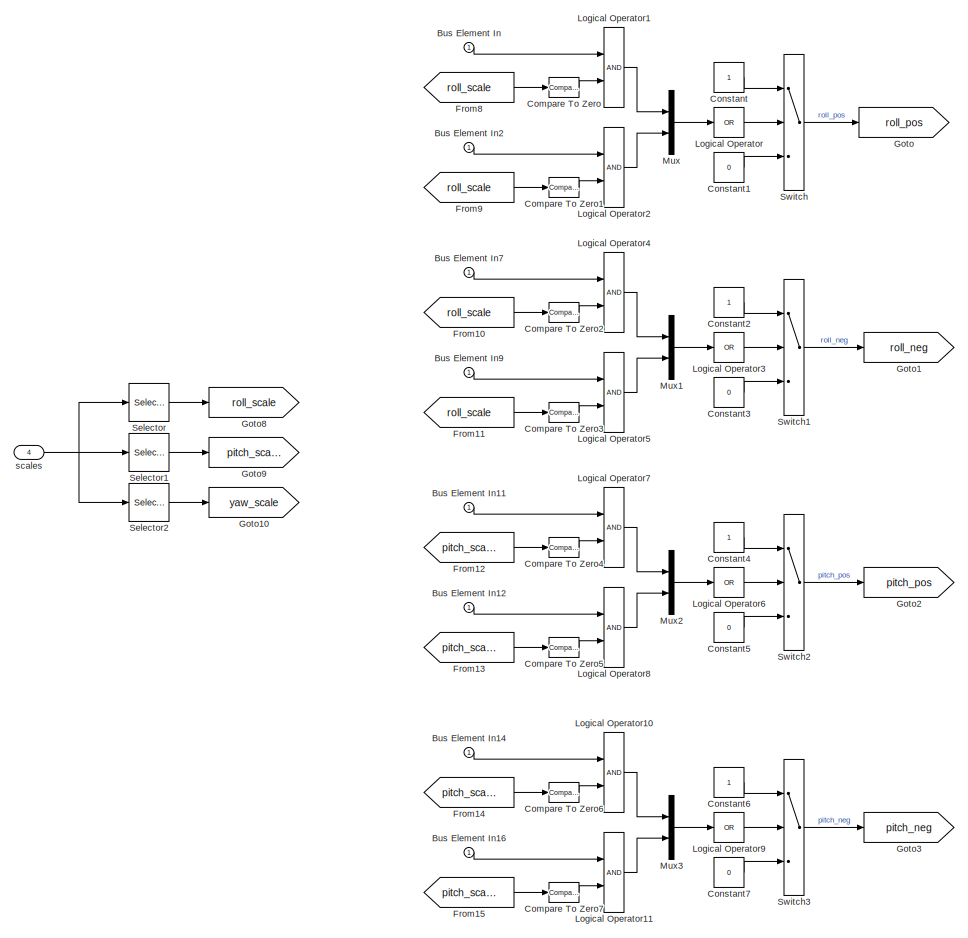
[diagram: MultirotorMixer/update_saturation_status - part 1/2, left side, full height]
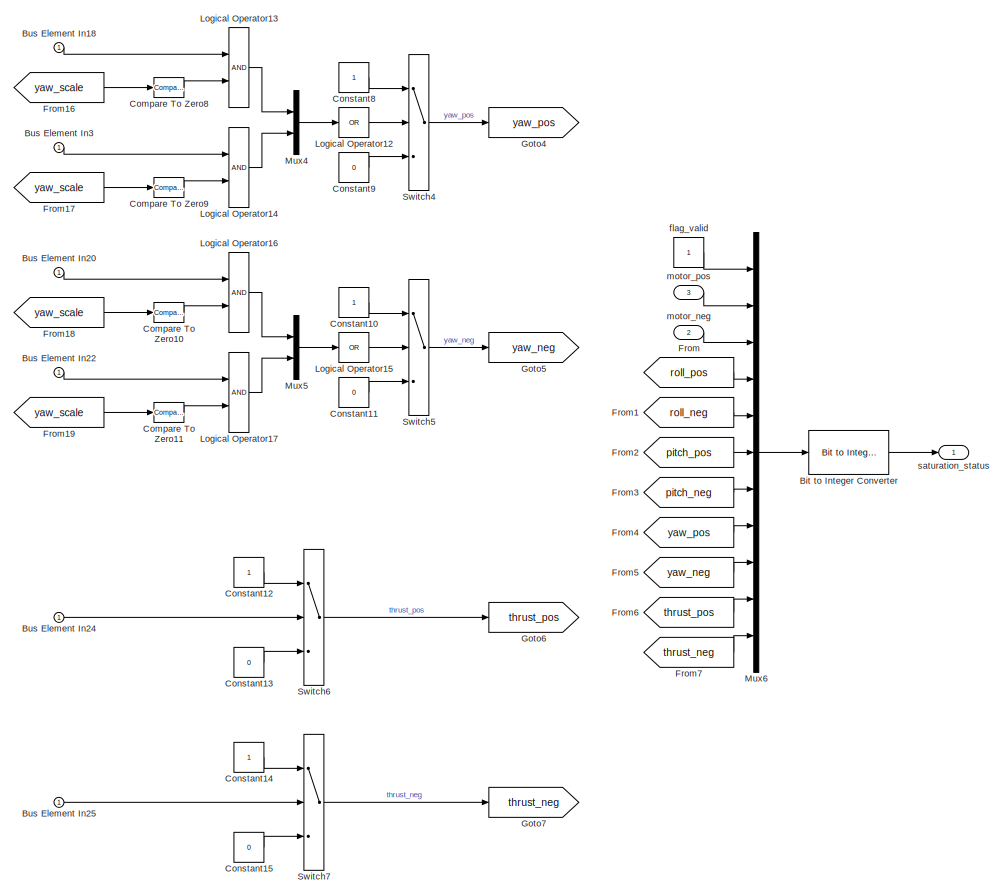
[diagram: MultirotorMixer/update_saturation_status - part 2/2, right side, full height]
BLOCK [SubSystem] MultirotorMixer/update_saturation_status
BLOCK [Reference] MultirotorMixer/update_saturation_status/Bit to Integer Converter  REF=simulink/Logic and Bit
Operations/Bit to Integer
Converter
  LibrarySourceBlock = commutil2/Bit to Integer\nConverter
  SourceBlock = simulink/Logic and Bit\nOperations/Bit to Integer\nConverter
  SourceType = Bit to Integer Converter
BLOCK [Inport] MultirotorMixer/update_saturation_status/Bus Element In
BLOCK [Inport] MultirotorMixer/update_saturation_status/Bus Element In11
BLOCK [Inport] MultirotorMixer/update_saturation_status/Bus Element In12
BLOCK [Inport] MultirotorMixer/update_saturation_status/Bus Element In14
BLOCK [Inport] MultirotorMixer/update_saturation_status/Bus Element In16
BLOCK [Inport] MultirotorMixer/update_saturation_status/Bus Element In18
BLOCK [Inport] MultirotorMixer/update_saturation_status/Bus Element In2
BLOCK [Inport] MultirotorMixer/update_saturation_status/Bus Element In20
BLOCK [Inport] MultirotorMixer/update_saturation_status/Bus Element In22
BLOCK [Inport] MultirotorMixer/update_saturation_status/Bus Element In24
BLOCK [Inport] MultirotorMixer/update_saturation_status/Bus Element In25
BLOCK [Inport] MultirotorMixer/update_saturation_status/Bus Element In3
BLOCK [Inport] MultirotorMixer/update_saturation_status/Bus Element In7
BLOCK [Inport] MultirotorMixer/update_saturation_status/Bus Element In9
BLOCK [Reference] MultirotorMixer/update_saturation_status/Compare To Zero  REF=simulink/Logic and Bit
Operations/Compare
To Zero
  SourceBlock = simulink/Logic and Bit\nOperations/Compare\nTo Zero
  SourceType = Compare To Zero
BLOCK [Reference] MultirotorMixer/update_saturation_status/Compare To Zero1  REF=simulink/Logic and Bit
Operations/Compare
To Zero
  SourceBlock = simulink/Logic and Bit\nOperations/Compare\nTo Zero
  SourceType = Compare To Zero
BLOCK [Reference] MultirotorMixer/update_saturation_status/Compare To Zero10  REF=simulink/Logic and Bit
Operations/Compare
To Zero
  SourceBlock = simulink/Logic and Bit\nOperations/Compare\nTo Zero
  SourceType = Compare To Zero
BLOCK [Reference] MultirotorMixer/update_saturation_status/Compare To Zero11  REF=simulink/Logic and Bit
Operations/Compare
To Zero
  SourceBlock = simulink/Logic and Bit\nOperations/Compare\nTo Zero
  SourceType = Compare To Zero
BLOCK [Reference] MultirotorMixer/update_saturation_status/Compare To Zero2  REF=simulink/Logic and Bit
Operations/Compare
To Zero
  SourceBlock = simulink/Logic and Bit\nOperations/Compare\nTo Zero
  SourceType = Compare To Zero
BLOCK [Reference] MultirotorMixer/update_saturation_status/Compare To Zero3  REF=simulink/Logic and Bit
Operations/Compare
To Zero
  SourceBlock = simulink/Logic and Bit\nOperations/Compare\nTo Zero
  SourceType = Compare To Zero
BLOCK [Reference] MultirotorMixer/update_saturation_status/Compare To Zero4  REF=simulink/Logic and Bit
Operations/Compare
To Zero
  SourceBlock = simulink/Logic and Bit\nOperations/Compare\nTo Zero
  SourceType = Compare To Zero
BLOCK [Reference] MultirotorMixer/update_saturation_status/Compare To Zero5  REF=simulink/Logic and Bit
Operations/Compare
To Zero
  SourceBlock = simulink/Logic and Bit\nOperations/Compare\nTo Zero
  SourceType = Compare To Zero
BLOCK [Reference] MultirotorMixer/update_saturation_status/Compare To Zero6  REF=simulink/Logic and Bit
Operations/Compare
To Zero
  SourceBlock = simulink/Logic and Bit\nOperations/Compare\nTo Zero
  SourceType = Compare To Zero
BLOCK [Reference] MultirotorMixer/update_saturation_status/Compare To Zero7  REF=simulink/Logic and Bit
Operations/Compare
To Zero
  SourceBlock = simulink/Logic and Bit\nOperations/Compare\nTo Zero
  SourceType = Compare To Zero
BLOCK [Reference] MultirotorMixer/update_saturation_status/Compare To Zero8  REF=simulink/Logic and Bit
Operations/Compare
To Zero
  SourceBlock = simulink/Logic and Bit\nOperations/Compare\nTo Zero
  SourceType = Compare To Zero
BLOCK [Reference] MultirotorMixer/update_saturation_status/Compare To Zero9  REF=simulink/Logic and Bit
Operations/Compare
To Zero
  SourceBlock = simulink/Logic and Bit\nOperations/Compare\nTo Zero
  SourceType = Compare To Zero
BLOCK [Constant] MultirotorMixer/update_saturation_status/Constant
  OutDataTypeStr = single
BLOCK [Constant] MultirotorMixer/update_saturation_status/Constant1
  OutDataTypeStr = single
  Value = 0
BLOCK [Constant] MultirotorMixer/update_saturation_status/Constant10
  OutDataTypeStr = single
BLOCK [Constant] MultirotorMixer/update_saturation_status/Constant11
  OutDataTypeStr = single
  Value = 0
BLOCK [Constant] MultirotorMixer/update_saturation_status/Constant12
  OutDataTypeStr = single
BLOCK [Constant] MultirotorMixer/update_saturation_status/Constant13
  OutDataTypeStr = single
  Value = 0
BLOCK [Constant] MultirotorMixer/update_saturation_status/Constant14
  OutDataTypeStr = single
BLOCK [Constant] MultirotorMixer/update_saturation_status/Constant15
  OutDataTypeStr = single
  Value = 0
BLOCK [Constant] MultirotorMixer/update_saturation_status/Constant2
  OutDataTypeStr = single
BLOCK [Constant] MultirotorMixer/update_saturation_status/Constant3
  OutDataTypeStr = single
  Value = 0
BLOCK [Constant] MultirotorMixer/update_saturation_status/Constant4
  OutDataTypeStr = single
BLOCK [Constant] MultirotorMixer/update_saturation_status/Constant5
  OutDataTypeStr = single
  Value = 0
BLOCK [Constant] MultirotorMixer/update_saturation_status/Constant6
  OutDataTypeStr = single
BLOCK [Constant] MultirotorMixer/update_saturation_status/Constant7
  OutDataTypeStr = single
  Value = 0
BLOCK [Constant] MultirotorMixer/update_saturation_status/Constant8
  OutDataTypeStr = single
BLOCK [Constant] MultirotorMixer/update_saturation_status/Constant9
  OutDataTypeStr = single
  Value = 0
BLOCK [From] MultirotorMixer/update_saturation_status/From
  GotoTag = roll_pos
BLOCK [From] MultirotorMixer/update_saturation_status/From1
  GotoTag = roll_neg
BLOCK [From] MultirotorMixer/update_saturation_status/From10
  GotoTag = roll_scale
BLOCK [From] MultirotorMixer/update_saturation_status/From11
  GotoTag = roll_scale
BLOCK [From] MultirotorMixer/update_saturation_status/From12
  GotoTag = pitch_scale
BLOCK [From] MultirotorMixer/update_saturation_status/From13
  GotoTag = pitch_scale
BLOCK [From] MultirotorMixer/update_saturation_status/From14
  GotoTag = pitch_scale
BLOCK [From] MultirotorMixer/update_saturation_status/From15
  GotoTag = pitch_scale
BLOCK [From] MultirotorMixer/update_saturation_status/From16
  GotoTag = yaw_scale
BLOCK [From] MultirotorMixer/update_saturation_status/From17
  GotoTag = yaw_scale
BLOCK [From] MultirotorMixer/update_saturation_status/From18
  GotoTag = yaw_scale
BLOCK [From] MultirotorMixer/update_saturation_status/From19
  GotoTag = yaw_scale
BLOCK [From] MultirotorMixer/update_saturation_status/From2
  GotoTag = pitch_pos
BLOCK [From] MultirotorMixer/update_saturation_status/From3
  GotoTag = pitch_neg
BLOCK [From] MultirotorMixer/update_saturation_status/From4
  GotoTag = yaw_pos
BLOCK [From] MultirotorMixer/update_saturation_status/From5
  GotoTag = yaw_neg
BLOCK [From] MultirotorMixer/update_saturation_status/From6
  GotoTag = thrust_pos
BLOCK [From] MultirotorMixer/update_saturation_status/From7
  GotoTag = thrust_neg
BLOCK [From] MultirotorMixer/update_saturation_status/From8
  GotoTag = roll_scale
BLOCK [From] MultirotorMixer/update_saturation_status/From9
  GotoTag = roll_scale
BLOCK [Goto] MultirotorMixer/update_saturation_status/Goto
  GotoTag = roll_pos
BLOCK [Goto] MultirotorMixer/update_saturation_status/Goto1
  GotoTag = roll_neg
BLOCK [Goto] MultirotorMixer/update_saturation_status/Goto10
  GotoTag = yaw_scale
BLOCK [Goto] MultirotorMixer/update_saturation_status/Goto2
  GotoTag = pitch_pos
BLOCK [Goto] MultirotorMixer/update_saturation_status/Goto3
  GotoTag = pitch_neg
BLOCK [Goto] MultirotorMixer/update_saturation_status/Goto4
  GotoTag = yaw_pos
BLOCK [Goto] MultirotorMixer/update_saturation_status/Goto5
  GotoTag = yaw_neg
BLOCK [Goto] MultirotorMixer/update_saturation_status/Goto6
  GotoTag = thrust_pos
BLOCK [Goto] MultirotorMixer/update_saturation_status/Goto7
  GotoTag = thrust_neg
BLOCK [Goto] MultirotorMixer/update_saturation_status/Goto8
  GotoTag = roll_scale
BLOCK [Goto] MultirotorMixer/update_saturation_status/Goto9
  GotoTag = pitch_scale
BLOCK [Logic] MultirotorMixer/update_saturation_status/Logical Operator
  AllPortsSameDT = off
  Inputs = 1
  Operator = OR
  OutDataTypeStr = boolean
BLOCK [Logic] MultirotorMixer/update_saturation_status/Logical Operator1
  AllPortsSameDT = off
  OutDataTypeStr = boolean
BLOCK [Logic] MultirotorMixer/update_saturation_status/Logical Operator10
  AllPortsSameDT = off
  OutDataTypeStr = boolean
BLOCK [Logic] MultirotorMixer/update_saturation_status/Logical Operator11
  AllPortsSameDT = off
  OutDataTypeStr = boolean
BLOCK [Logic] MultirotorMixer/update_saturation_status/Logical Operator12
  AllPortsSameDT = off
  Inputs = 1
  Operator = OR
  OutDataTypeStr = boolean
BLOCK [Logic] MultirotorMixer/update_saturation_status/Logical Operator13
  AllPortsSameDT = off
  OutDataTypeStr = boolean
BLOCK [Logic] MultirotorMixer/update_saturation_status/Logical Operator14
  AllPortsSameDT = off
  OutDataTypeStr = boolean
BLOCK [Logic] MultirotorMixer/update_saturation_status/Logical Operator15
  AllPortsSameDT = off
  Inputs = 1
  Operator = OR
  OutDataTypeStr = boolean
BLOCK [Logic] MultirotorMixer/update_saturation_status/Logical Operator16
  AllPortsSameDT = off
  OutDataTypeStr = boolean
BLOCK [Logic] MultirotorMixer/update_saturation_status/Logical Operator17
  AllPortsSameDT = off
  OutDataTypeStr = boolean
BLOCK [Logic] MultirotorMixer/update_saturation_status/Logical Operator2
  AllPortsSameDT = off
  OutDataTypeStr = boolean
BLOCK [Logic] MultirotorMixer/update_saturation_status/Logical Operator3
  AllPortsSameDT = off
  Inputs = 1
  Operator = OR
  OutDataTypeStr = boolean
BLOCK [Logic] MultirotorMixer/update_saturation_status/Logical Operator4
  AllPortsSameDT = off
  OutDataTypeStr = boolean
BLOCK [Logic] MultirotorMixer/update_saturation_status/Logical Operator5
  AllPortsSameDT = off
  OutDataTypeStr = boolean
BLOCK [Logic] MultirotorMixer/update_saturation_status/Logical Operator6
  AllPortsSameDT = off
  Inputs = 1
  Operator = OR
  OutDataTypeStr = boolean
BLOCK [Logic] MultirotorMixer/update_saturation_status/Logical Operator7
  AllPortsSameDT = off
  OutDataTypeStr = boolean
BLOCK [Logic] MultirotorMixer/update_saturation_status/Logical Operator8
  AllPortsSameDT = off
  OutDataTypeStr = boolean
BLOCK [Logic] MultirotorMixer/update_saturation_status/Logical Operator9
  AllPortsSameDT = off
  Inputs = 1
  Operator = OR
  OutDataTypeStr = boolean
BLOCK [Mux] MultirotorMixer/update_saturation_status/Mux
  DisplayOption = bar
  Inputs = 2
BLOCK [Mux] MultirotorMixer/update_saturation_status/Mux1
  DisplayOption = bar
  Inputs = 2
BLOCK [Mux] MultirotorMixer/update_saturation_status/Mux2
  DisplayOption = bar
  Inputs = 2
BLOCK [Mux] MultirotorMixer/update_saturation_status/Mux3
  DisplayOption = bar
  Inputs = 2
BLOCK [Mux] MultirotorMixer/update_saturation_status/Mux4
  DisplayOption = bar
  Inputs = 2
BLOCK [Mux] MultirotorMixer/update_saturation_status/Mux5
  DisplayOption = bar
  Inputs = 2
BLOCK [Mux] MultirotorMixer/update_saturation_status/Mux6
  DisplayOption = bar
  Inputs = 11
BLOCK [Selector] MultirotorMixer/update_saturation_status/Selector
  IndexOptions = Select all,Index vector (dialog)
  Indices = [1 3],1
  InputPortWidth = 3
  NumberOfDimensions = 2
  OutputSizes = 1,1
BLOCK [Selector] MultirotorMixer/update_saturation_status/Selector1
  IndexOptions = Select all,Index vector (dialog)
  Indices = [1 3],2
  InputPortWidth = 3
  NumberOfDimensions = 2
  OutputSizes = 1,1
BLOCK [Selector] MultirotorMixer/update_saturation_status/Selector2
  IndexOptions = Select all,Index vector (dialog)
  Indices = [1 3],3
  InputPortWidth = 3
  NumberOfDimensions = 2
  OutputSizes = 1,1
BLOCK [Switch] MultirotorMixer/update_saturation_status/Switch
  Criteria = u2 ~= 0
  InputSameDT = off
  SaturateOnIntegerOverflow = off
BLOCK [Switch] MultirotorMixer/update_saturation_status/Switch1
  Criteria = u2 ~= 0
  InputSameDT = off
  SaturateOnIntegerOverflow = off
BLOCK [Switch] MultirotorMixer/update_saturation_status/Switch2
  Criteria = u2 ~= 0
  InputSameDT = off
  SaturateOnIntegerOverflow = off
BLOCK [Switch] MultirotorMixer/update_saturation_status/Switch3
  Criteria = u2 ~= 0
  InputSameDT = off
  SaturateOnIntegerOverflow = off
BLOCK [Switch] MultirotorMixer/update_saturation_status/Switch4
  Criteria = u2 ~= 0
  InputSameDT = off
  SaturateOnIntegerOverflow = off
BLOCK [Switch] MultirotorMixer/update_saturation_status/Switch5
  Criteria = u2 ~= 0
  InputSameDT = off
  SaturateOnIntegerOverflow = off
BLOCK [Switch] MultirotorMixer/update_saturation_status/Switch6
  Criteria = u2 ~= 0
  InputSameDT = off
  SaturateOnIntegerOverflow = off
BLOCK [Switch] MultirotorMixer/update_saturation_status/Switch7
  Criteria = u2 ~= 0
  InputSameDT = off
  SaturateOnIntegerOverflow = off
BLOCK [Constant] MultirotorMixer/update_saturation_status/flag_valid
  OutDataTypeStr = single
BLOCK [Inport] MultirotorMixer/update_saturation_status/motor_neg
  Port = 2
BLOCK [Inport] MultirotorMixer/update_saturation_status/motor_pos
  Port = 3
BLOCK [Outport] MultirotorMixer/update_saturation_status/saturation_status
BLOCK [Inport] MultirotorMixer/update_saturation_status/scales
  Port = 4
BLOCK [SubSystem] SimpleMixer
BLOCK [Inport] SimpleMixer/Bus Element In
BLOCK [Inport] SimpleMixer/Bus Element In1
BLOCK [Inport] SimpleMixer/Bus Element In2
BLOCK [Inport] SimpleMixer/Bus Element In3
BLOCK [Inport] SimpleMixer/Bus Element In4
BLOCK [Constant] SimpleMixer/Constant
  OutDataTypeStr = single
  Value = [1 1]
BLOCK [Constant] SimpleMixer/Constant1
  OutDataTypeStr = single
  Value = [1 1]
BLOCK [Constant] SimpleMixer/Constant10
  OutDataTypeStr = single
  Value = [1 1]
BLOCK [Constant] SimpleMixer/Constant11
  OutDataTypeStr = single
  Value = [1 1]
BLOCK [Constant] SimpleMixer/Constant12
  OutDataTypeStr = single
  Value = [1 1]
BLOCK [Constant] SimpleMixer/Constant13
  OutDataTypeStr = single
  Value = [1 1]
BLOCK [Constant] SimpleMixer/Constant14
  OutDataTypeStr = single
  Value = [1 1]
BLOCK [Constant] SimpleMixer/Constant15
  OutDataTypeStr = single
  Value = [1 1]
BLOCK [Constant] SimpleMixer/Constant16
  OutDataTypeStr = single
  Value = [1 1]
BLOCK [Constant] SimpleMixer/Constant17
  OutDataTypeStr = single
  Value = [1 1]
BLOCK [Constant] SimpleMixer/Constant18
  OutDataTypeStr = single
  Value = [1 1]
BLOCK [Constant] SimpleMixer/Constant19
  OutDataTypeStr = single
  Value = [1 1]
BLOCK [Constant] SimpleMixer/Constant2
  OutDataTypeStr = single
  Value = [1 1]
BLOCK [Constant] SimpleMixer/Constant20
  OutDataTypeStr = single
BLOCK [Constant] SimpleMixer/Constant21
  OutDataTypeStr = single
BLOCK [Constant] SimpleMixer/Constant22
  OutDataTypeStr = single
BLOCK [Constant] SimpleMixer/Constant23
  OutDataTypeStr = single
BLOCK [Constant] SimpleMixer/Constant24
  OutDataTypeStr = single
BLOCK [Constant] SimpleMixer/Constant3
  OutDataTypeStr = single
  Value = [1 1]
BLOCK [Constant] SimpleMixer/Constant4
  OutDataTypeStr = single
  Value = [1 1]
BLOCK [Constant] SimpleMixer/Constant5
  OutDataTypeStr = single
  Value = [1 1]
BLOCK [Constant] SimpleMixer/Constant6
  OutDataTypeStr = single
  Value = [1 1]
BLOCK [Constant] SimpleMixer/Constant7
  OutDataTypeStr = single
  Value = [1 1]
BLOCK [Constant] SimpleMixer/Constant8
  OutDataTypeStr = single
  Value = [1 1]
BLOCK [Constant] SimpleMixer/Constant9
  OutDataTypeStr = single
  Value = [1 1]
BLOCK [From] SimpleMixer/From1
  GotoTag = aileron_left
BLOCK [From] SimpleMixer/From2
  GotoTag = aileron_right
BLOCK [From] SimpleMixer/From4
  GotoTag = v_left
BLOCK [From] SimpleMixer/From5
  GotoTag = v_right
BLOCK [From] SimpleMixer/From8
  GotoTag = prop
BLOCK [Goto] SimpleMixer/Goto1
  GotoTag = aileron_left
BLOCK [Goto] SimpleMixer/Goto2
  GotoTag = aileron_right
BLOCK [Goto] SimpleMixer/Goto3
  GotoTag = v_right
BLOCK [Goto] SimpleMixer/Goto4
  GotoTag = v_left
BLOCK [Goto] SimpleMixer/Goto5
  GotoTag = prop
BLOCK [Mux] SimpleMixer/Mux
  DisplayOption = bar
  Inputs = 5
BLOCK [Selector] SimpleMixer/Selector
  IndexOptions = Index vector (dialog)
  Indices = [1 7]
  InputPortWidth = 8
  OutputSizes = 1
BLOCK [Selector] SimpleMixer/Selector1
  IndexOptions = Index vector (dialog)
  Indices = [1 7]
  InputPortWidth = 8
  OutputSizes = 1
BLOCK [Selector] SimpleMixer/Selector2
  IndexOptions = Index vector (dialog)
  Indices = [3 2]
  InputPortWidth = 8
  OutputSizes = 1
BLOCK [Selector] SimpleMixer/Selector3
  IndexOptions = Index vector (dialog)
  Indices = [3 2]
  InputPortWidth = 8
  OutputSizes = 1
BLOCK [Selector] SimpleMixer/Selector4
  IndexOptions = Index vector (dialog)
  Indices = 4
  InputPortWidth = 8
  OutputSizes = 1
BLOCK [Sum] SimpleMixer/Sum of Elements
  IconShape = rectangular
  Inputs = +
BLOCK [Sum] SimpleMixer/Sum of Elements1
  IconShape = rectangular
  Inputs = +
BLOCK [Sum] SimpleMixer/Sum of Elements2
  IconShape = rectangular
  Inputs = +
BLOCK [Sum] SimpleMixer/Sum of Elements3
  IconShape = rectangular
  Inputs = +
BLOCK [Outport] SimpleMixer/outputs
BLOCK [SubSystem] SimpleMixer/scale
BLOCK [Product] SimpleMixer/scale/Product
BLOCK [Reference] SimpleMixer/scale/Saturation Dynamic  REF=simulink/Discontinuities/Saturation
Dynamic
  SourceBlock = simulink/Discontinuities/Saturation\nDynamic
  SourceType = Saturation Dynamic
BLOCK [Sum] SimpleMixer/scale/Sum
  Inputs = |++
BLOCK [Switch] SimpleMixer/scale/Switch
  InputSameDT = off
  SaturateOnIntegerOverflow = off
BLOCK [Inport] SimpleMixer/scale/input
BLOCK [InportShadow] SimpleMixer/scale/input1
BLOCK [Inport] SimpleMixer/scale/max
  Port = 6
BLOCK [Inport] SimpleMixer/scale/min
  Port = 5
BLOCK [Inport] SimpleMixer/scale/negative_scale
  Port = 2
BLOCK [Inport] SimpleMixer/scale/offset
  Port = 4
BLOCK [Outport] SimpleMixer/scale/output
BLOCK [Inport] SimpleMixer/scale/positive_scale
  Port = 3
BLOCK [SubSystem] SimpleMixer/scale1
BLOCK [Product] SimpleMixer/scale1/Product
BLOCK [Reference] SimpleMixer/scale1/Saturation Dynamic  REF=simulink/Discontinuities/Saturation
Dynamic
  SourceBlock = simulink/Discontinuities/Saturation\nDynamic
  SourceType = Saturation Dynamic
BLOCK [Sum] SimpleMixer/scale1/Sum
  Inputs = |++
BLOCK [Switch] SimpleMixer/scale1/Switch
  InputSameDT = off
  SaturateOnIntegerOverflow = off
BLOCK [Inport] SimpleMixer/scale1/input
BLOCK [InportShadow] SimpleMixer/scale1/input1
BLOCK [Inport] SimpleMixer/scale1/max
  Port = 6
BLOCK [Inport] SimpleMixer/scale1/min
  Port = 5
BLOCK [Inport] SimpleMixer/scale1/negative_scale
  Port = 2
BLOCK [Inport] SimpleMixer/scale1/offset
  Port = 4
BLOCK [Outport] SimpleMixer/scale1/output
BLOCK [Inport] SimpleMixer/scale1/positive_scale
  Port = 3
BLOCK [SubSystem] SimpleMixer/scale2
BLOCK [Product] SimpleMixer/scale2/Product
BLOCK [Reference] SimpleMixer/scale2/Saturation Dynamic  REF=simulink/Discontinuities/Saturation
Dynamic
  SourceBlock = simulink/Discontinuities/Saturation\nDynamic
  SourceType = Saturation Dynamic
BLOCK [Sum] SimpleMixer/scale2/Sum
  Inputs = |++
BLOCK [Switch] SimpleMixer/scale2/Switch
  InputSameDT = off
  SaturateOnIntegerOverflow = off
BLOCK [Inport] SimpleMixer/scale2/input
BLOCK [InportShadow] SimpleMixer/scale2/input1
BLOCK [Inport] SimpleMixer/scale2/max
  Port = 6
BLOCK [Inport] SimpleMixer/scale2/min
  Port = 5
BLOCK [Inport] SimpleMixer/scale2/negative_scale
  Port = 2
BLOCK [Inport] SimpleMixer/scale2/offset
  Port = 4
BLOCK [Outport] SimpleMixer/scale2/output
BLOCK [Inport] SimpleMixer/scale2/positive_scale
  Port = 3
BLOCK [SubSystem] SimpleMixer/scale3
BLOCK [Product] SimpleMixer/scale3/Product
BLOCK [Reference] SimpleMixer/scale3/Saturation Dynamic  REF=simulink/Discontinuities/Saturation
Dynamic
  SourceBlock = simulink/Discontinuities/Saturation\nDynamic
  SourceType = Saturation Dynamic
BLOCK [Sum] SimpleMixer/scale3/Sum
  Inputs = |++
BLOCK [Switch] SimpleMixer/scale3/Switch
  InputSameDT = off
  SaturateOnIntegerOverflow = off
BLOCK [Inport] SimpleMixer/scale3/input
BLOCK [InportShadow] SimpleMixer/scale3/input1
BLOCK [Inport] SimpleMixer/scale3/max
  Port = 6
BLOCK [Inport] SimpleMixer/scale3/min
  Port = 5
BLOCK [Inport] SimpleMixer/scale3/negative_scale
  Port = 2
BLOCK [Inport] SimpleMixer/scale3/offset
  Port = 4
BLOCK [Outport] SimpleMixer/scale3/output
BLOCK [Inport] SimpleMixer/scale3/positive_scale
  Port = 3
BLOCK [SubSystem] SimpleMixer/scale4
BLOCK [Product] SimpleMixer/scale4/Product
BLOCK [Reference] SimpleMixer/scale4/Saturation Dynamic  REF=simulink/Discontinuities/Saturation
Dynamic
  SourceBlock = simulink/Discontinuities/Saturation\nDynamic
  SourceType = Saturation Dynamic
BLOCK [Sum] SimpleMixer/scale4/Sum
  Inputs = |++
BLOCK [Switch] SimpleMixer/scale4/Switch
  InputSameDT = off
  SaturateOnIntegerOverflow = off
BLOCK [Inport] SimpleMixer/scale4/input
BLOCK [InportShadow] SimpleMixer/scale4/input1
BLOCK [Inport] SimpleMixer/scale4/max
  Port = 6
BLOCK [Inport] SimpleMixer/scale4/min
  Port = 5
BLOCK [Inport] SimpleMixer/scale4/negative_scale
  Port = 2
BLOCK [Inport] SimpleMixer/scale4/offset
  Port = 4
BLOCK [Outport] SimpleMixer/scale4/output
BLOCK [Inport] SimpleMixer/scale4/positive_scale
  Port = 3
BLOCK [Inport] actuator_controls
  OutDataTypeStr = Bus: px4_actuator_controls
  Port = 2
BLOCK [Inport] actuator_controls_0
  OutDataTypeStr = Bus: actuator_controls_s
BLOCK [Outport] multi_mixer_outputs
  Port = 2
BLOCK [Outport] saturation_status
  Port = 3
BLOCK [Outport] simple_mixer_outputs
ANNOTATION MultirotorMixer/apply_thrust_model/slew_rate_limit: calculate delta out max
ANNOTATION MultirotorMixer/apply_thrust_model/slew_rate_limit: output limit
ANNOTATION MultirotorMixer/apply_thrust_model/slew_rate_limit: setting flags
ANNOTATION MultirotorMixer/apply_thrust_model/thrust_model: $thrust = (1 - \_thrust\_factor) \times PWM + \_thrust\_factor \times PWM^2$
ANNOTATION MultirotorMixer/mix_airmode_disabled/minimize_saturation/Subsystem/compute_desaturation_gain: calculate k_min && k_max
ANNOTATION MultirotorMixer/mix_airmode_disabled/minimize_saturation/Subsystem/compute_desaturation_gain: input
ANNOTATION MultirotorMixer/mix_airmode_disabled/minimize_saturation/Subsystem/compute_desaturation_gain: output
ANNOTATION MultirotorMixer/mix_airmode_disabled/minimize_saturation/compute_desaturation_gain: calculate k_min && k_max
ANNOTATION MultirotorMixer/mix_airmode_disabled/minimize_saturation/compute_desaturation_gain: input
ANNOTATION MultirotorMixer/mix_airmode_disabled/minimize_saturation/compute_desaturation_gain: output
ANNOTATION MultirotorMixer/mix_airmode_disabled/minimize_saturation1/Subsystem/compute_desaturation_gain: calculate k_min && k_max
ANNOTATION MultirotorMixer/mix_airmode_disabled/minimize_saturation1/Subsystem/compute_desaturation_gain: input
ANNOTATION MultirotorMixer/mix_airmode_disabled/minimize_saturation1/Subsystem/compute_desaturation_gain: output
ANNOTATION MultirotorMixer/mix_airmode_disabled/minimize_saturation1/compute_desaturation_gain: calculate k_min && k_max
ANNOTATION MultirotorMixer/mix_airmode_disabled/minimize_saturation1/compute_desaturation_gain: input
ANNOTATION MultirotorMixer/mix_airmode_disabled/minimize_saturation1/compute_desaturation_gain: output
ANNOTATION MultirotorMixer/mix_airmode_disabled/minimize_saturation2/Subsystem/compute_desaturation_gain: calculate k_min && k_max
ANNOTATION MultirotorMixer/mix_airmode_disabled/minimize_saturation2/Subsystem/compute_desaturation_gain: input
ANNOTATION MultirotorMixer/mix_airmode_disabled/minimize_saturation2/Subsystem/compute_desaturation_gain: output
ANNOTATION MultirotorMixer/mix_airmode_disabled/minimize_saturation2/compute_desaturation_gain: calculate k_min && k_max
ANNOTATION MultirotorMixer/mix_airmode_disabled/minimize_saturation2/compute_desaturation_gain: input
ANNOTATION MultirotorMixer/mix_airmode_disabled/minimize_saturation2/compute_desaturation_gain: output
ANNOTATION MultirotorMixer/mix_airmode_disabled/mix_yaw/minimize_saturation2/Subsystem/compute_desaturation_gain: calculate k_min && k_max
ANNOTATION MultirotorMixer/mix_airmode_disabled/mix_yaw/minimize_saturation2/Subsystem/compute_desaturation_gain: input
ANNOTATION MultirotorMixer/mix_airmode_disabled/mix_yaw/minimize_saturation2/Subsystem/compute_desaturation_gain: output
ANNOTATION MultirotorMixer/mix_airmode_disabled/mix_yaw/minimize_saturation2/compute_desaturation_gain: calculate k_min && k_max
ANNOTATION MultirotorMixer/mix_airmode_disabled/mix_yaw/minimize_saturation2/compute_desaturation_gain: input
ANNOTATION MultirotorMixer/mix_airmode_disabled/mix_yaw/minimize_saturation2/compute_desaturation_gain: output
ANNOTATION MultirotorMixer/mix_airmode_disabled/mix_yaw/minimize_saturation3/Subsystem/compute_desaturation_gain: calculate k_min && k_max
ANNOTATION MultirotorMixer/mix_airmode_disabled/mix_yaw/minimize_saturation3/Subsystem/compute_desaturation_gain: input
ANNOTATION MultirotorMixer/mix_airmode_disabled/mix_yaw/minimize_saturation3/Subsystem/compute_desaturation_gain: output
ANNOTATION MultirotorMixer/mix_airmode_disabled/mix_yaw/minimize_saturation3/compute_desaturation_gain: calculate k_min && k_max
ANNOTATION MultirotorMixer/mix_airmode_disabled/mix_yaw/minimize_saturation3/compute_desaturation_gain: input
ANNOTATION MultirotorMixer/mix_airmode_disabled/mix_yaw/minimize_saturation3/compute_desaturation_gain: output
ANNOTATION MultirotorMixer/mix_airmode_rp/minimize_saturation/Subsystem/compute_desaturation_gain: calculate k_min && k_max
ANNOTATION MultirotorMixer/mix_airmode_rp/minimize_saturation/Subsystem/compute_desaturation_gain: input
ANNOTATION MultirotorMixer/mix_airmode_rp/minimize_saturation/Subsystem/compute_desaturation_gain: output
ANNOTATION MultirotorMixer/mix_airmode_rp/minimize_saturation/compute_desaturation_gain: calculate k_min && k_max
ANNOTATION MultirotorMixer/mix_airmode_rp/minimize_saturation/compute_desaturation_gain: input
ANNOTATION MultirotorMixer/mix_airmode_rp/minimize_saturation/compute_desaturation_gain: output
ANNOTATION MultirotorMixer/mix_airmode_rp/mix_yaw/minimize_saturation2/Subsystem/compute_desaturation_gain: calculate k_min && k_max
ANNOTATION MultirotorMixer/mix_airmode_rp/mix_yaw/minimize_saturation2/Subsystem/compute_desaturation_gain: input
ANNOTATION MultirotorMixer/mix_airmode_rp/mix_yaw/minimize_saturation2/Subsystem/compute_desaturation_gain: output
ANNOTATION MultirotorMixer/mix_airmode_rp/mix_yaw/minimize_saturation2/compute_desaturation_gain: calculate k_min && k_max
ANNOTATION MultirotorMixer/mix_airmode_rp/mix_yaw/minimize_saturation2/compute_desaturation_gain: input
ANNOTATION MultirotorMixer/mix_airmode_rp/mix_yaw/minimize_saturation2/compute_desaturation_gain: output
ANNOTATION MultirotorMixer/mix_airmode_rp/mix_yaw/minimize_saturation3/Subsystem/compute_desaturation_gain: calculate k_min && k_max
ANNOTATION MultirotorMixer/mix_airmode_rp/mix_yaw/minimize_saturation3/Subsystem/compute_desaturation_gain: input
ANNOTATION MultirotorMixer/mix_airmode_rp/mix_yaw/minimize_saturation3/Subsystem/compute_desaturation_gain: output
ANNOTATION MultirotorMixer/mix_airmode_rp/mix_yaw/minimize_saturation3/compute_desaturation_gain: calculate k_min && k_max
ANNOTATION MultirotorMixer/mix_airmode_rp/mix_yaw/minimize_saturation3/compute_desaturation_gain: input
ANNOTATION MultirotorMixer/mix_airmode_rp/mix_yaw/minimize_saturation3/compute_desaturation_gain: output
ANNOTATION MultirotorMixer/mix_airmode_rpy/minimize_saturation/Subsystem/compute_desaturation_gain: calculate k_min && k_max
ANNOTATION MultirotorMixer/mix_airmode_rpy/minimize_saturation/Subsystem/compute_desaturation_gain: input
ANNOTATION MultirotorMixer/mix_airmode_rpy/minimize_saturation/Subsystem/compute_desaturation_gain: output
ANNOTATION MultirotorMixer/mix_airmode_rpy/minimize_saturation/compute_desaturation_gain: calculate k_min && k_max
ANNOTATION MultirotorMixer/mix_airmode_rpy/minimize_saturation/compute_desaturation_gain: input
ANNOTATION MultirotorMixer/mix_airmode_rpy/minimize_saturation/compute_desaturation_gain: output
ANNOTATION MultirotorMixer/mix_airmode_rpy/minimize_saturation1/Subsystem/compute_desaturation_gain: calculate k_min && k_max
ANNOTATION MultirotorMixer/mix_airmode_rpy/minimize_saturation1/Subsystem/compute_desaturation_gain: input
ANNOTATION MultirotorMixer/mix_airmode_rpy/minimize_saturation1/Subsystem/compute_desaturation_gain: output
ANNOTATION MultirotorMixer/mix_airmode_rpy/minimize_saturation1/compute_desaturation_gain: calculate k_min && k_max
ANNOTATION MultirotorMixer/mix_airmode_rpy/minimize_saturation1/compute_desaturation_gain: input
ANNOTATION MultirotorMixer/mix_airmode_rpy/minimize_saturation1/compute_desaturation_gain: output
NET MultirotorMixer/Bus Element In:1 -> MultirotorMixer/Selector1:1, MultirotorMixer/Selector:1
LINE MultirotorMixer/Bus Selector:1 -> MultirotorMixer/Goto2:1
LINE MultirotorMixer/Bus Selector:2 -> MultirotorMixer/Goto3:1
LINE MultirotorMixer/Bus Selector:3 -> MultirotorMixer/apply_thrust_model:1
LINE MultirotorMixer/Constant:1 -> MultirotorMixer/Switch Case:1
LINE MultirotorMixer/From10:1 -> MultirotorMixer/mix_airmode_rp:2
LINE MultirotorMixer/From1:1 -> MultirotorMixer/mix_airmode_rpy:2
LINE MultirotorMixer/From2:1 -> MultirotorMixer/mix_airmode_rpy:1
LINE MultirotorMixer/From3:1 -> MultirotorMixer/mix_airmode_disabled:2
LINE MultirotorMixer/From4:1 -> MultirotorMixer/mix_airmode_disabled:1
LINE MultirotorMixer/From6:1 -> MultirotorMixer/update_saturation_status:2
LINE MultirotorMixer/From7:1 -> MultirotorMixer/update_saturation_status:3
LINE MultirotorMixer/From8:1 -> MultirotorMixer/update_saturation_status:4
LINE MultirotorMixer/From9:1 -> MultirotorMixer/mix_airmode_rp:1
LINE MultirotorMixer/Merge:1 -> MultirotorMixer/Bus Selector:1
LINE MultirotorMixer/Mux:1 -> MultirotorMixer/Goto1:1
LINE MultirotorMixer/Saturation1:1 -> MultirotorMixer/Mux:2
LINE MultirotorMixer/Saturation:1 -> MultirotorMixer/Mux:1
LINE MultirotorMixer/Selector1:1 -> MultirotorMixer/Saturation1:1
LINE MultirotorMixer/Selector:1 -> MultirotorMixer/Saturation:1
LINE MultirotorMixer/Switch Case:1 -> MultirotorMixer/mix_airmode_rp:ifaction
LINE MultirotorMixer/Switch Case:2 -> MultirotorMixer/mix_airmode_rpy:ifaction
LINE MultirotorMixer/Switch Case:3 -> MultirotorMixer/mix_airmode_disabled:ifaction
LINE MultirotorMixer/apply_thrust_model/input:1 -> MultirotorMixer/apply_thrust_model/thrust_model:1
LINE MultirotorMixer/apply_thrust_model/slew_rate_limit/Abs:1 -> MultirotorMixer/apply_thrust_model/slew_rate_limit/Relational Operator5:1
LINE MultirotorMixer/apply_thrust_model/slew_rate_limit/Bus Creator:1 -> MultirotorMixer/apply_thrust_model/slew_rate_limit/clipping:1
LINE MultirotorMixer/apply_thrust_model/slew_rate_limit/Compare To Constant2:1 -> MultirotorMixer/apply_thrust_model/slew_rate_limit/Logical Operator1:1
LINE MultirotorMixer/apply_thrust_model/slew_rate_limit/Compare To Constant4:1 -> MultirotorMixer/apply_thrust_model/slew_rate_limit/Logical Operator2:2
LINE MultirotorMixer/apply_thrust_model/slew_rate_limit/Compare To Constant:1 -> MultirotorMixer/apply_thrust_model/slew_rate_limit/Logical Operator:1
LINE MultirotorMixer/apply_thrust_model/slew_rate_limit/Compare To Zero1:1 -> MultirotorMixer/apply_thrust_model/slew_rate_limit/Logical Operator2:1
LINE MultirotorMixer/apply_thrust_model/slew_rate_limit/Compare To Zero3:1 -> MultirotorMixer/apply_thrust_model/slew_rate_limit/Logical Operator5:2
LINE MultirotorMixer/apply_thrust_model/slew_rate_limit/Compare To Zero4:1 -> MultirotorMixer/apply_thrust_model/slew_rate_limit/Logical Operator7:1
LINE MultirotorMixer/apply_thrust_model/slew_rate_limit/Compare To Zero5:1 -> MultirotorMixer/apply_thrust_model/slew_rate_limit/Logical Operator9:1
LINE MultirotorMixer/apply_thrust_model/slew_rate_limit/Compare To Zero:1 -> MultirotorMixer/apply_thrust_model/slew_rate_limit/Logical Operator:2
LINE MultirotorMixer/apply_thrust_model/slew_rate_limit/Constant1:1 -> MultirotorMixer/apply_thrust_model/slew_rate_limit/Switch:1
LINE MultirotorMixer/apply_thrust_model/slew_rate_limit/Constant2:1 -> MultirotorMixer/apply_thrust_model/slew_rate_limit/Switch:3
NET MultirotorMixer/apply_thrust_model/slew_rate_limit/Constant3:1 -> MultirotorMixer/apply_thrust_model/slew_rate_limit/Compare To Constant4:1, MultirotorMixer/apply_thrust_model/slew_rate_limit/Compare To Zero1:1
LINE MultirotorMixer/apply_thrust_model/slew_rate_limit/Constant4:1 -> MultirotorMixer/apply_thrust_model/slew_rate_limit/Switch1:1
LINE MultirotorMixer/apply_thrust_model/slew_rate_limit/Constant6:1 -> MultirotorMixer/apply_thrust_model/slew_rate_limit/Switch1:3
LINE MultirotorMixer/apply_thrust_model/slew_rate_limit/Constant7:1 -> MultirotorMixer/apply_thrust_model/slew_rate_limit/Switch2:1
LINE MultirotorMixer/apply_thrust_model/slew_rate_limit/Constant8:1 -> MultirotorMixer/apply_thrust_model/slew_rate_limit/Switch2:3
LINE MultirotorMixer/apply_thrust_model/slew_rate_limit/Constant9:1 -> MultirotorMixer/apply_thrust_model/slew_rate_limit/cal_delta_out_max:1
LINE MultirotorMixer/apply_thrust_model/slew_rate_limit/Constant:1 -> MultirotorMixer/apply_thrust_model/slew_rate_limit/Compare To Zero:1
NET MultirotorMixer/apply_thrust_model/slew_rate_limit/Delay2:1 -> MultirotorMixer/apply_thrust_model/slew_rate_limit/Goto7:1, MultirotorMixer/apply_thrust_model/slew_rate_limit/Sum3:2
LINE MultirotorMixer/apply_thrust_model/slew_rate_limit/From10:1 -> MultirotorMixer/apply_thrust_model/slew_rate_limit/Sum4:2
NET MultirotorMixer/apply_thrust_model/slew_rate_limit/From11:1 -> MultirotorMixer/apply_thrust_model/slew_rate_limit/Compare To Zero3:1, MultirotorMixer/apply_thrust_model/slew_rate_limit/Relational Operator2:2
LINE MultirotorMixer/apply_thrust_model/slew_rate_limit/From12:1 -> MultirotorMixer/apply_thrust_model/slew_rate_limit/Relational Operator2:1
LINE MultirotorMixer/apply_thrust_model/slew_rate_limit/From13:1 -> MultirotorMixer/apply_thrust_model/slew_rate_limit/Sum5:1
NET MultirotorMixer/apply_thrust_model/slew_rate_limit/From14:1 -> MultirotorMixer/apply_thrust_model/slew_rate_limit/Compare To Zero4:1, MultirotorMixer/apply_thrust_model/slew_rate_limit/Unary Minus3:1
LINE MultirotorMixer/apply_thrust_model/slew_rate_limit/From15:1 -> MultirotorMixer/apply_thrust_model/slew_rate_limit/Relational Operator3:1
LINE MultirotorMixer/apply_thrust_model/slew_rate_limit/From16:1 -> MultirotorMixer/apply_thrust_model/slew_rate_limit/Sum5:2
LINE MultirotorMixer/apply_thrust_model/slew_rate_limit/From17:1 -> MultirotorMixer/apply_thrust_model/slew_rate_limit/Compare To Zero5:1
LINE MultirotorMixer/apply_thrust_model/slew_rate_limit/From18:1 -> MultirotorMixer/apply_thrust_model/slew_rate_limit/Relational Operator4:1
LINE MultirotorMixer/apply_thrust_model/slew_rate_limit/From19:1 -> MultirotorMixer/apply_thrust_model/slew_rate_limit/Unary Minus2:1
LINE MultirotorMixer/apply_thrust_model/slew_rate_limit/From1:1 -> MultirotorMixer/apply_thrust_model/slew_rate_limit/Bus Creator:2
LINE MultirotorMixer/apply_thrust_model/slew_rate_limit/From2:1 -> MultirotorMixer/apply_thrust_model/slew_rate_limit/Bus Creator:3
LINE MultirotorMixer/apply_thrust_model/slew_rate_limit/From6:1 -> MultirotorMixer/apply_thrust_model/slew_rate_limit/Abs:1
LINE MultirotorMixer/apply_thrust_model/slew_rate_limit/From7:1 -> MultirotorMixer/apply_thrust_model/slew_rate_limit/Relational Operator5:2
LINE MultirotorMixer/apply_thrust_model/slew_rate_limit/From8:1 -> MultirotorMixer/apply_thrust_model/slew_rate_limit/Sum4:1
LINE MultirotorMixer/apply_thrust_model/slew_rate_limit/From:1 -> MultirotorMixer/apply_thrust_model/slew_rate_limit/Bus Creator:1
LINE MultirotorMixer/apply_thrust_model/slew_rate_limit/Logical Operator10:1 -> MultirotorMixer/apply_thrust_model/slew_rate_limit/Goto2:1
LINE MultirotorMixer/apply_thrust_model/slew_rate_limit/Logical Operator11:1 -> MultirotorMixer/apply_thrust_model/slew_rate_limit/Goto:1
LINE MultirotorMixer/apply_thrust_model/slew_rate_limit/Logical Operator12:1 -> MultirotorMixer/apply_thrust_model/slew_rate_limit/Goto3:1
LINE MultirotorMixer/apply_thrust_model/slew_rate_limit/Logical Operator1:1 -> MultirotorMixer/apply_thrust_model/slew_rate_limit/Logical Operator8:1
LINE MultirotorMixer/apply_thrust_model/slew_rate_limit/Logical Operator2:1 -> MultirotorMixer/apply_thrust_model/slew_rate_limit/Logical Operator1:2
LINE MultirotorMixer/apply_thrust_model/slew_rate_limit/Logical Operator5:1 -> MultirotorMixer/apply_thrust_model/slew_rate_limit/Switch2:2
LINE MultirotorMixer/apply_thrust_model/slew_rate_limit/Logical Operator6:1 -> MultirotorMixer/apply_thrust_model/slew_rate_limit/Switch:2
LINE MultirotorMixer/apply_thrust_model/slew_rate_limit/Logical Operator7:1 -> MultirotorMixer/apply_thrust_model/slew_rate_limit/Logical Operator6:2
LINE MultirotorMixer/apply_thrust_model/slew_rate_limit/Logical Operator8:1 -> MultirotorMixer/apply_thrust_model/slew_rate_limit/Switch1:2
LINE MultirotorMixer/apply_thrust_model/slew_rate_limit/Logical Operator9:1 -> MultirotorMixer/apply_thrust_model/slew_rate_limit/Logical Operator8:2
LINE MultirotorMixer/apply_thrust_model/slew_rate_limit/Logical Operator:1 -> MultirotorMixer/apply_thrust_model/slew_rate_limit/Logical Operator6:1
LINE MultirotorMixer/apply_thrust_model/slew_rate_limit/Relational Operator2:1 -> MultirotorMixer/apply_thrust_model/slew_rate_limit/Logical Operator5:1
LINE MultirotorMixer/apply_thrust_model/slew_rate_limit/Relational Operator3:1 -> MultirotorMixer/apply_thrust_model/slew_rate_limit/Logical Operator7:2
LINE MultirotorMixer/apply_thrust_model/slew_rate_limit/Relational Operator4:1 -> MultirotorMixer/apply_thrust_model/slew_rate_limit/Logical Operator9:2
LINE MultirotorMixer/apply_thrust_model/slew_rate_limit/Relational Operator5:1 -> MultirotorMixer/apply_thrust_model/slew_rate_limit/Switch3:2
LINE MultirotorMixer/apply_thrust_model/slew_rate_limit/Saturation Dynamic:1 -> MultirotorMixer/apply_thrust_model/slew_rate_limit/Switch3:1
LINE MultirotorMixer/apply_thrust_model/slew_rate_limit/Sum3:1 -> MultirotorMixer/apply_thrust_model/slew_rate_limit/Goto1:1
LINE MultirotorMixer/apply_thrust_model/slew_rate_limit/Sum4:1 -> MultirotorMixer/apply_thrust_model/slew_rate_limit/Saturation Dynamic:1
LINE MultirotorMixer/apply_thrust_model/slew_rate_limit/Sum5:1 -> MultirotorMixer/apply_thrust_model/slew_rate_limit/Saturation Dynamic:3
LINE MultirotorMixer/apply_thrust_model/slew_rate_limit/Switch1:1 -> MultirotorMixer/apply_thrust_model/slew_rate_limit/Logical Operator10:1
LINE MultirotorMixer/apply_thrust_model/slew_rate_limit/Switch2:1 -> MultirotorMixer/apply_thrust_model/slew_rate_limit/Logical Operator12:1
NET MultirotorMixer/apply_thrust_model/slew_rate_limit/Switch3:1 -> MultirotorMixer/apply_thrust_model/slew_rate_limit/Delay2:1, MultirotorMixer/apply_thrust_model/slew_rate_limit/output1:1
LINE MultirotorMixer/apply_thrust_model/slew_rate_limit/Switch:1 -> MultirotorMixer/apply_thrust_model/slew_rate_limit/Logical Operator11:1
LINE MultirotorMixer/apply_thrust_model/slew_rate_limit/Unary Minus2:1 -> MultirotorMixer/apply_thrust_model/slew_rate_limit/Relational Operator4:2
LINE MultirotorMixer/apply_thrust_model/slew_rate_limit/Unary Minus3:1 -> MultirotorMixer/apply_thrust_model/slew_rate_limit/Relational Operator3:2
LINE MultirotorMixer/apply_thrust_model/slew_rate_limit/cal_delta_out_max/Compare To Constant:1 -> MultirotorMixer/apply_thrust_model/slew_rate_limit/cal_delta_out_max/Data Type Conversion:1
LINE MultirotorMixer/apply_thrust_model/slew_rate_limit/cal_delta_out_max/Constant1:1 -> MultirotorMixer/apply_thrust_model/slew_rate_limit/cal_delta_out_max/If Action Subsystem1:1
LINE MultirotorMixer/apply_thrust_model/slew_rate_limit/cal_delta_out_max/Data Type Conversion:1 -> MultirotorMixer/apply_thrust_model/slew_rate_limit/cal_delta_out_max/Switch Case:1
LINE MultirotorMixer/apply_thrust_model/slew_rate_limit/cal_delta_out_max/If Action Subsystem/Divide:1 -> MultirotorMixer/apply_thrust_model/slew_rate_limit/cal_delta_out_max/If Action Subsystem/Weighted Sample Time:1
LINE MultirotorMixer/apply_thrust_model/slew_rate_limit/cal_delta_out_max/If Action Subsystem/Gain:1 -> MultirotorMixer/apply_thrust_model/slew_rate_limit/cal_delta_out_max/If Action Subsystem/Out1:1
LINE MultirotorMixer/apply_thrust_model/slew_rate_limit/cal_delta_out_max/If Action Subsystem/MOT_SLEW_MAX:1 -> MultirotorMixer/apply_thrust_model/slew_rate_limit/cal_delta_out_max/If Action Subsystem/Divide:2
LINE MultirotorMixer/apply_thrust_model/slew_rate_limit/cal_delta_out_max/If Action Subsystem/PWM_DEFAULT_MAX:1 -> MultirotorMixer/apply_thrust_model/slew_rate_limit/cal_delta_out_max/If Action Subsystem/Sum2:1
LINE MultirotorMixer/apply_thrust_model/slew_rate_limit/cal_delta_out_max/If Action Subsystem/PWM_DEFAULT_MIN:1 -> MultirotorMixer/apply_thrust_model/slew_rate_limit/cal_delta_out_max/If Action Subsystem/Sum2:2
LINE MultirotorMixer/apply_thrust_model/slew_rate_limit/cal_delta_out_max/If Action Subsystem/Sum2:1 -> MultirotorMixer/apply_thrust_model/slew_rate_limit/cal_delta_out_max/If Action Subsystem/Divide:1
LINE MultirotorMixer/apply_thrust_model/slew_rate_limit/cal_delta_out_max/If Action Subsystem/Weighted Sample Time:1 -> MultirotorMixer/apply_thrust_model/slew_rate_limit/cal_delta_out_max/If Action Subsystem/Gain:1
LINE MultirotorMixer/apply_thrust_model/slew_rate_limit/cal_delta_out_max/If Action Subsystem1/In1:1 -> MultirotorMixer/apply_thrust_model/slew_rate_limit/cal_delta_out_max/If Action Subsystem1/Out1:1
LINE MultirotorMixer/apply_thrust_model/slew_rate_limit/cal_delta_out_max/If Action Subsystem1:1 -> MultirotorMixer/apply_thrust_model/slew_rate_limit/cal_delta_out_max/Merge:2
LINE MultirotorMixer/apply_thrust_model/slew_rate_limit/cal_delta_out_max/If Action Subsystem:1 -> MultirotorMixer/apply_thrust_model/slew_rate_limit/cal_delta_out_max/Merge:1
LINE MultirotorMixer/apply_thrust_model/slew_rate_limit/cal_delta_out_max/MOT_SLEW_MAX1:1 -> MultirotorMixer/apply_thrust_model/slew_rate_limit/cal_delta_out_max/If Action Subsystem:1
LINE MultirotorMixer/apply_thrust_model/slew_rate_limit/cal_delta_out_max/MOT_SLEW_MAX:1 -> MultirotorMixer/apply_thrust_model/slew_rate_limit/cal_delta_out_max/Compare To Constant:1
LINE MultirotorMixer/apply_thrust_model/slew_rate_limit/cal_delta_out_max/Merge:1 -> MultirotorMixer/apply_thrust_model/slew_rate_limit/cal_delta_out_max/delta_out_max:1
LINE MultirotorMixer/apply_thrust_model/slew_rate_limit/cal_delta_out_max/Switch Case:1 -> MultirotorMixer/apply_thrust_model/slew_rate_limit/cal_delta_out_max/If Action Subsystem:ifaction
LINE MultirotorMixer/apply_thrust_model/slew_rate_limit/cal_delta_out_max/Switch Case:2 -> MultirotorMixer/apply_thrust_model/slew_rate_limit/cal_delta_out_max/If Action Subsystem1:ifaction
LINE MultirotorMixer/apply_thrust_model/slew_rate_limit/cal_delta_out_max:1 -> MultirotorMixer/apply_thrust_model/slew_rate_limit/Goto5:1
LINE MultirotorMixer/apply_thrust_model/slew_rate_limit/input1:1 -> MultirotorMixer/apply_thrust_model/slew_rate_limit/Compare To Constant2:1
LINE MultirotorMixer/apply_thrust_model/slew_rate_limit/input2:1 -> MultirotorMixer/apply_thrust_model/slew_rate_limit/Sum3:1
LINE MultirotorMixer/apply_thrust_model/slew_rate_limit/input6:1 -> MultirotorMixer/apply_thrust_model/slew_rate_limit/Saturation Dynamic:2
LINE MultirotorMixer/apply_thrust_model/slew_rate_limit/input7:1 -> MultirotorMixer/apply_thrust_model/slew_rate_limit/Switch3:3
LINE MultirotorMixer/apply_thrust_model/slew_rate_limit/input:1 -> MultirotorMixer/apply_thrust_model/slew_rate_limit/Compare To Constant:1
LINE MultirotorMixer/apply_thrust_model/slew_rate_limit:1 -> MultirotorMixer/apply_thrust_model/outputs:1
LINE MultirotorMixer/apply_thrust_model/slew_rate_limit:2 -> MultirotorMixer/apply_thrust_model/clipping:1
LINE MultirotorMixer/apply_thrust_model/thrust_model/Constant1:1 -> MultirotorMixer/apply_thrust_model/thrust_model/Sum:2
LINE MultirotorMixer/apply_thrust_model/thrust_model/Constant2:1 -> MultirotorMixer/apply_thrust_model/thrust_model/Saturation1:1
LINE MultirotorMixer/apply_thrust_model/thrust_model/Constant3:1 -> MultirotorMixer/apply_thrust_model/thrust_model/Switch1:3
LINE MultirotorMixer/apply_thrust_model/thrust_model/Constant5:1 -> MultirotorMixer/apply_thrust_model/thrust_model/Sum4:2
LINE MultirotorMixer/apply_thrust_model/thrust_model/Constant:1 -> MultirotorMixer/apply_thrust_model/thrust_model/Sum2:1
LINE MultirotorMixer/apply_thrust_model/thrust_model/Divide1:1 -> MultirotorMixer/apply_thrust_model/thrust_model/Switch1:1
LINE MultirotorMixer/apply_thrust_model/thrust_model/Divide2:1 -> MultirotorMixer/apply_thrust_model/thrust_model/Sum3:1
LINE MultirotorMixer/apply_thrust_model/thrust_model/Divide:1 -> MultirotorMixer/apply_thrust_model/thrust_model/Sum5:2
LINE MultirotorMixer/apply_thrust_model/thrust_model/From1:1 -> MultirotorMixer/apply_thrust_model/thrust_model/Switch:2
NET MultirotorMixer/apply_thrust_model/thrust_model/From3:1 -> MultirotorMixer/apply_thrust_model/thrust_model/Divide1:1, MultirotorMixer/apply_thrust_model/thrust_model/Math Function2:1, MultirotorMixer/apply_thrust_model/thrust_model/Sum2:2
LINE MultirotorMixer/apply_thrust_model/thrust_model/Gain1:1 -> MultirotorMixer/apply_thrust_model/thrust_model/Sum:1
LINE MultirotorMixer/apply_thrust_model/thrust_model/Gain2:1 -> MultirotorMixer/apply_thrust_model/thrust_model/Divide2:2
LINE MultirotorMixer/apply_thrust_model/thrust_model/Gain:1 -> MultirotorMixer/apply_thrust_model/thrust_model/Divide:2
LINE MultirotorMixer/apply_thrust_model/thrust_model/Math Function1:1 -> MultirotorMixer/apply_thrust_model/thrust_model/Divide2:1
LINE MultirotorMixer/apply_thrust_model/thrust_model/Math Function2:1 -> MultirotorMixer/apply_thrust_model/thrust_model/Gain2:1
NET MultirotorMixer/apply_thrust_model/thrust_model/Saturation1:1 -> MultirotorMixer/apply_thrust_model/thrust_model/Gain:1, MultirotorMixer/apply_thrust_model/thrust_model/Goto:1, MultirotorMixer/apply_thrust_model/thrust_model/Sum4:1
LINE MultirotorMixer/apply_thrust_model/thrust_model/Saturation:1 -> MultirotorMixer/apply_thrust_model/thrust_model/outputs:1
LINE MultirotorMixer/apply_thrust_model/thrust_model/Sqrt:1 -> MultirotorMixer/apply_thrust_model/thrust_model/Sum5:1
LINE MultirotorMixer/apply_thrust_model/thrust_model/Sum2:1 -> MultirotorMixer/apply_thrust_model/thrust_model/Math Function1:1
LINE MultirotorMixer/apply_thrust_model/thrust_model/Sum3:1 -> MultirotorMixer/apply_thrust_model/thrust_model/Sqrt:1
LINE MultirotorMixer/apply_thrust_model/thrust_model/Sum4:1 -> MultirotorMixer/apply_thrust_model/thrust_model/Divide:1
LINE MultirotorMixer/apply_thrust_model/thrust_model/Sum5:1 -> MultirotorMixer/apply_thrust_model/thrust_model/Switch:1
LINE MultirotorMixer/apply_thrust_model/thrust_model/Sum:1 -> MultirotorMixer/apply_thrust_model/thrust_model/Saturation:1
LINE MultirotorMixer/apply_thrust_model/thrust_model/Switch1:1 -> MultirotorMixer/apply_thrust_model/thrust_model/Sum3:2
LINE MultirotorMixer/apply_thrust_model/thrust_model/Switch:1 -> MultirotorMixer/apply_thrust_model/thrust_model/Gain1:1
NET MultirotorMixer/apply_thrust_model/thrust_model/input1:1 -> MultirotorMixer/apply_thrust_model/thrust_model/Divide1:2, MultirotorMixer/apply_thrust_model/thrust_model/Switch1:2
LINE MultirotorMixer/apply_thrust_model/thrust_model/input:1 -> MultirotorMixer/apply_thrust_model/thrust_model/Switch:3
LINE MultirotorMixer/apply_thrust_model/thrust_model:1 -> MultirotorMixer/apply_thrust_model/slew_rate_limit:1
LINE MultirotorMixer/apply_thrust_model:1 -> MultirotorMixer/outputs:1
LINE MultirotorMixer/apply_thrust_model:2 -> MultirotorMixer/update_saturation_status:1
LINE MultirotorMixer/config_quad_x:1 -> MultirotorMixer/Goto4:1
LINE MultirotorMixer/mix_airmode_disabled/Bus Selector3:1 -> MultirotorMixer/mix_airmode_disabled/minimize_saturation1:1
LINE MultirotorMixer/mix_airmode_disabled/Bus Selector4:1 -> MultirotorMixer/mix_airmode_disabled/minimize_saturation2:1
LINE MultirotorMixer/mix_airmode_disabled/Constant10:1 -> MultirotorMixer/mix_airmode_disabled/minimize_saturation:4
LINE MultirotorMixer/mix_airmode_disabled/Constant11:1 -> MultirotorMixer/mix_airmode_disabled/minimize_saturation1:4
LINE MultirotorMixer/mix_airmode_disabled/Constant12:1 -> MultirotorMixer/mix_airmode_disabled/minimize_saturation1:3
LINE MultirotorMixer/mix_airmode_disabled/Constant13:1 -> MultirotorMixer/mix_airmode_disabled/minimize_saturation2:4
LINE MultirotorMixer/mix_airmode_disabled/Constant14:1 -> MultirotorMixer/mix_airmode_disabled/minimize_saturation2:3
LINE MultirotorMixer/mix_airmode_disabled/Constant9:1 -> MultirotorMixer/mix_airmode_disabled/minimize_saturation:3
LINE MultirotorMixer/mix_airmode_disabled/four_input1:1 -> MultirotorMixer/mix_airmode_disabled/mix_yaw:2
LINE MultirotorMixer/mix_airmode_disabled/four_input:1 -> MultirotorMixer/mix_airmode_disabled/minimize_saturation:1
LINE MultirotorMixer/mix_airmode_disabled/minimize_saturation/Compare To Zero:1 -> MultirotorMixer/mix_airmode_disabled/minimize_saturation/Logical Operator:2
LINE MultirotorMixer/mix_airmode_disabled/minimize_saturation/Data Type Conversion:1 -> MultirotorMixer/mix_airmode_disabled/minimize_saturation/Logical Operator:1
LINE MultirotorMixer/mix_airmode_disabled/minimize_saturation/From1:1 -> MultirotorMixer/mix_airmode_disabled/minimize_saturation/If Action Subsystem:1
LINE MultirotorMixer/mix_airmode_disabled/minimize_saturation/From2:1 -> MultirotorMixer/mix_airmode_disabled/minimize_saturation/If Action Subsystem:2
LINE MultirotorMixer/mix_airmode_disabled/minimize_saturation/From4:1 -> MultirotorMixer/mix_airmode_disabled/minimize_saturation/Compare To Zero:1
LINE MultirotorMixer/mix_airmode_disabled/minimize_saturation/From:1 -> MultirotorMixer/mix_airmode_disabled/minimize_saturation/Subsystem:1
LINE MultirotorMixer/mix_airmode_disabled/minimize_saturation/If Action Subsystem/Bus Creator:1 -> MultirotorMixer/mix_airmode_disabled/minimize_saturation/If Action Subsystem/out:1
LINE MultirotorMixer/mix_airmode_disabled/minimize_saturation/If Action Subsystem/motor_neg:1 -> MultirotorMixer/mix_airmode_disabled/minimize_saturation/If Action Subsystem/Bus Creator:1
LINE MultirotorMixer/mix_airmode_disabled/minimize_saturation/If Action Subsystem/motor_pos:1 -> MultirotorMixer/mix_airmode_disabled/minimize_saturation/If Action Subsystem/Bus Creator:2
LINE MultirotorMixer/mix_airmode_disabled/minimize_saturation/If Action Subsystem/outputs:1 -> MultirotorMixer/mix_airmode_disabled/minimize_saturation/If Action Subsystem/Bus Creator:3
LINE MultirotorMixer/mix_airmode_disabled/minimize_saturation/If Action Subsystem:1 -> MultirotorMixer/mix_airmode_disabled/minimize_saturation/Merge:1
LINE MultirotorMixer/mix_airmode_disabled/minimize_saturation/If:1 -> MultirotorMixer/mix_airmode_disabled/minimize_saturation/If Action Subsystem:ifaction
LINE MultirotorMixer/mix_airmode_disabled/minimize_saturation/If:2 -> MultirotorMixer/mix_airmode_disabled/minimize_saturation/Subsystem:ifaction
LINE MultirotorMixer/mix_airmode_disabled/minimize_saturation/Logical Operator:1 -> MultirotorMixer/mix_airmode_disabled/minimize_saturation/If:1
LINE MultirotorMixer/mix_airmode_disabled/minimize_saturation/Merge:1 -> MultirotorMixer/mix_airmode_disabled/minimize_saturation/out:1
LINE MultirotorMixer/mix_airmode_disabled/minimize_saturation/Subsystem/Bus Creator1:1 -> MultirotorMixer/mix_airmode_disabled/minimize_saturation/Subsystem/out:1
LINE MultirotorMixer/mix_airmode_disabled/minimize_saturation/Subsystem/Constant1:1 -> MultirotorMixer/mix_airmode_disabled/minimize_saturation/Subsystem/compute_desaturation_gain:3
LINE MultirotorMixer/mix_airmode_disabled/minimize_saturation/Subsystem/Constant2:1 -> MultirotorMixer/mix_airmode_disabled/minimize_saturation/Subsystem/compute_desaturation_gain:4
LINE MultirotorMixer/mix_airmode_disabled/minimize_saturation/Subsystem/Gain:1 -> MultirotorMixer/mix_airmode_disabled/minimize_saturation/Subsystem/Product1:1
LINE MultirotorMixer/mix_airmode_disabled/minimize_saturation/Subsystem/Product1:1 -> MultirotorMixer/mix_airmode_disabled/minimize_saturation/Subsystem/Sum1:1
LINE MultirotorMixer/mix_airmode_disabled/minimize_saturation/Subsystem/Product:1 -> MultirotorMixer/mix_airmode_disabled/minimize_saturation/Subsystem/Sum:2
LINE MultirotorMixer/mix_airmode_disabled/minimize_saturation/Subsystem/Selector1:1 -> MultirotorMixer/mix_airmode_disabled/minimize_saturation/Subsystem/Product1:2
LINE MultirotorMixer/mix_airmode_disabled/minimize_saturation/Subsystem/Selector:1 -> MultirotorMixer/mix_airmode_disabled/minimize_saturation/Subsystem/Product:2
LINE MultirotorMixer/mix_airmode_disabled/minimize_saturation/Subsystem/Sum1:1 -> MultirotorMixer/mix_airmode_disabled/minimize_saturation/Subsystem/Bus Creator1:3
NET MultirotorMixer/mix_airmode_disabled/minimize_saturation/Subsystem/Sum:1 -> MultirotorMixer/mix_airmode_disabled/minimize_saturation/Subsystem/Sum1:2, MultirotorMixer/mix_airmode_disabled/minimize_saturation/Subsystem/compute_desaturation_gain:1
LINE MultirotorMixer/mix_airmode_disabled/minimize_saturation/Subsystem/compute_desaturation_gain/Abs:1 -> MultirotorMixer/mix_airmode_disabled/minimize_saturation/Subsystem/compute_desaturation_gain/Goto6:1
NET MultirotorMixer/mix_airmode_disabled/minimize_saturation/Subsystem/compute_desaturation_gain/Compare To Constant:1 -> MultirotorMixer/mix_airmode_disabled/minimize_saturation/Subsystem/compute_desaturation_gain/Logical Operator2:2, MultirotorMixer/mix_airmode_disabled/minimize_saturation/Subsystem/compute_desaturation_gain/Logical Operator3:1
LINE MultirotorMixer/mix_airmode_disabled/minimize_saturation/Subsystem/compute_desaturation_gain/Constant1:1 -> MultirotorMixer/mix_airmode_disabled/minimize_saturation/Subsystem/compute_desaturation_gain/Switch:3
LINE MultirotorMixer/mix_airmode_disabled/minimize_saturation/Subsystem/compute_desaturation_gain/Constant2:1 -> MultirotorMixer/mix_airmode_disabled/minimize_saturation/Subsystem/compute_desaturation_gain/Switch1:1
LINE MultirotorMixer/mix_airmode_disabled/minimize_saturation/Subsystem/compute_desaturation_gain/Constant3:1 -> MultirotorMixer/mix_airmode_disabled/minimize_saturation/Subsystem/compute_desaturation_gain/Switch1:3
LINE MultirotorMixer/mix_airmode_disabled/minimize_saturation/Subsystem/compute_desaturation_gain/Constant5:1 -> MultirotorMixer/mix_airmode_disabled/minimize_saturation/Subsystem/compute_desaturation_gain/Switch2:3
LINE MultirotorMixer/mix_airmode_disabled/minimize_saturation/Subsystem/compute_desaturation_gain/Constant6:1 -> MultirotorMixer/mix_airmode_disabled/minimize_saturation/Subsystem/compute_desaturation_gain/Switch3:1
LINE MultirotorMixer/mix_airmode_disabled/minimize_saturation/Subsystem/compute_desaturation_gain/Constant7:1 -> MultirotorMixer/mix_airmode_disabled/minimize_saturation/Subsystem/compute_desaturation_gain/Switch3:3
LINE MultirotorMixer/mix_airmode_disabled/minimize_saturation/Subsystem/compute_desaturation_gain/Constant8:1 -> MultirotorMixer/mix_airmode_disabled/minimize_saturation/Subsystem/compute_desaturation_gain/Mux1:2
LINE MultirotorMixer/mix_airmode_disabled/minimize_saturation/Subsystem/compute_desaturation_gain/Constant:1 -> MultirotorMixer/mix_airmode_disabled/minimize_saturation/Subsystem/compute_desaturation_gain/Mux:2
LINE MultirotorMixer/mix_airmode_disabled/minimize_saturation/Subsystem/compute_desaturation_gain/Divide1:1 -> MultirotorMixer/mix_airmode_disabled/minimize_saturation/Subsystem/compute_desaturation_gain/Switch2:1
LINE MultirotorMixer/mix_airmode_disabled/minimize_saturation/Subsystem/compute_desaturation_gain/Divide:1 -> MultirotorMixer/mix_airmode_disabled/minimize_saturation/Subsystem/compute_desaturation_gain/Switch:1
LINE MultirotorMixer/mix_airmode_disabled/minimize_saturation/Subsystem/compute_desaturation_gain/From10:1 -> MultirotorMixer/mix_airmode_disabled/minimize_saturation/Subsystem/compute_desaturation_gain/Compare To Constant:1
LINE MultirotorMixer/mix_airmode_disabled/minimize_saturation/Subsystem/compute_desaturation_gain/From11:1 -> MultirotorMixer/mix_airmode_disabled/minimize_saturation/Subsystem/compute_desaturation_gain/Divide:2
LINE MultirotorMixer/mix_airmode_disabled/minimize_saturation/Subsystem/compute_desaturation_gain/From12:1 -> MultirotorMixer/mix_airmode_disabled/minimize_saturation/Subsystem/compute_desaturation_gain/Divide1:2
LINE MultirotorMixer/mix_airmode_disabled/minimize_saturation/Subsystem/compute_desaturation_gain/From13:1 -> MultirotorMixer/mix_airmode_disabled/minimize_saturation/Subsystem/compute_desaturation_gain/Switch:2
LINE MultirotorMixer/mix_airmode_disabled/minimize_saturation/Subsystem/compute_desaturation_gain/From2:1 -> MultirotorMixer/mix_airmode_disabled/minimize_saturation/Subsystem/compute_desaturation_gain/Switch2:2
LINE MultirotorMixer/mix_airmode_disabled/minimize_saturation/Subsystem/compute_desaturation_gain/From3:1 -> MultirotorMixer/mix_airmode_disabled/minimize_saturation/Subsystem/compute_desaturation_gain/Logical Operator1:1
LINE MultirotorMixer/mix_airmode_disabled/minimize_saturation/Subsystem/compute_desaturation_gain/From4:1 -> MultirotorMixer/mix_airmode_disabled/minimize_saturation/Subsystem/compute_desaturation_gain/Sum2:2
LINE MultirotorMixer/mix_airmode_disabled/minimize_saturation/Subsystem/compute_desaturation_gain/From5:1 -> MultirotorMixer/mix_airmode_disabled/minimize_saturation/Subsystem/compute_desaturation_gain/Logical Operator:1
LINE MultirotorMixer/mix_airmode_disabled/minimize_saturation/Subsystem/compute_desaturation_gain/From:1 -> MultirotorMixer/mix_airmode_disabled/minimize_saturation/Subsystem/compute_desaturation_gain/Sum2:1
LINE MultirotorMixer/mix_airmode_disabled/minimize_saturation/Subsystem/compute_desaturation_gain/Logical Operator1:1 -> MultirotorMixer/mix_airmode_disabled/minimize_saturation/Subsystem/compute_desaturation_gain/Switch3:2
LINE MultirotorMixer/mix_airmode_disabled/minimize_saturation/Subsystem/compute_desaturation_gain/Logical Operator2:1 -> MultirotorMixer/mix_airmode_disabled/minimize_saturation/Subsystem/compute_desaturation_gain/Goto:1
LINE MultirotorMixer/mix_airmode_disabled/minimize_saturation/Subsystem/compute_desaturation_gain/Logical Operator3:1 -> MultirotorMixer/mix_airmode_disabled/minimize_saturation/Subsystem/compute_desaturation_gain/Goto1:1
LINE MultirotorMixer/mix_airmode_disabled/minimize_saturation/Subsystem/compute_desaturation_gain/Logical Operator:1 -> MultirotorMixer/mix_airmode_disabled/minimize_saturation/Subsystem/compute_desaturation_gain/Switch1:2
LINE MultirotorMixer/mix_airmode_disabled/minimize_saturation/Subsystem/compute_desaturation_gain/Min1:1 -> MultirotorMixer/mix_airmode_disabled/minimize_saturation/Subsystem/compute_desaturation_gain/Goto3:1
LINE MultirotorMixer/mix_airmode_disabled/minimize_saturation/Subsystem/compute_desaturation_gain/Min:1 -> MultirotorMixer/mix_airmode_disabled/minimize_saturation/Subsystem/compute_desaturation_gain/Goto2:1
LINE MultirotorMixer/mix_airmode_disabled/minimize_saturation/Subsystem/compute_desaturation_gain/Mux1:1 -> MultirotorMixer/mix_airmode_disabled/minimize_saturation/Subsystem/compute_desaturation_gain/Min1:1
LINE MultirotorMixer/mix_airmode_disabled/minimize_saturation/Subsystem/compute_desaturation_gain/Mux2:1 -> MultirotorMixer/mix_airmode_disabled/minimize_saturation/Subsystem/compute_desaturation_gain/Sum:1
LINE MultirotorMixer/mix_airmode_disabled/minimize_saturation/Subsystem/compute_desaturation_gain/Mux3:1 -> MultirotorMixer/mix_airmode_disabled/minimize_saturation/Subsystem/compute_desaturation_gain/Sum1:1
LINE MultirotorMixer/mix_airmode_disabled/minimize_saturation/Subsystem/compute_desaturation_gain/Mux:1 -> MultirotorMixer/mix_airmode_disabled/minimize_saturation/Subsystem/compute_desaturation_gain/Min:1
LINE MultirotorMixer/mix_airmode_disabled/minimize_saturation/Subsystem/compute_desaturation_gain/Relational Operator1:1 -> MultirotorMixer/mix_airmode_disabled/minimize_saturation/Subsystem/compute_desaturation_gain/Logical Operator3:2
LINE MultirotorMixer/mix_airmode_disabled/minimize_saturation/Subsystem/compute_desaturation_gain/Relational Operator:1 -> MultirotorMixer/mix_airmode_disabled/minimize_saturation/Subsystem/compute_desaturation_gain/Logical Operator2:1
LINE MultirotorMixer/mix_airmode_disabled/minimize_saturation/Subsystem/compute_desaturation_gain/Selector:1 -> MultirotorMixer/mix_airmode_disabled/minimize_saturation/Subsystem/compute_desaturation_gain/Abs:1
LINE MultirotorMixer/mix_airmode_disabled/minimize_saturation/Subsystem/compute_desaturation_gain/Sum1:1 -> MultirotorMixer/mix_airmode_disabled/minimize_saturation/Subsystem/compute_desaturation_gain/Divide1:1
LINE MultirotorMixer/mix_airmode_disabled/minimize_saturation/Subsystem/compute_desaturation_gain/Sum2:1 -> MultirotorMixer/mix_airmode_disabled/minimize_saturation/Subsystem/compute_desaturation_gain/k:1
LINE MultirotorMixer/mix_airmode_disabled/minimize_saturation/Subsystem/compute_desaturation_gain/Sum:1 -> MultirotorMixer/mix_airmode_disabled/minimize_saturation/Subsystem/compute_desaturation_gain/Divide:1
LINE MultirotorMixer/mix_airmode_disabled/minimize_saturation/Subsystem/compute_desaturation_gain/Switch1:1 -> MultirotorMixer/mix_airmode_disabled/minimize_saturation/Subsystem/compute_desaturation_gain/motor_neg:1
LINE MultirotorMixer/mix_airmode_disabled/minimize_saturation/Subsystem/compute_desaturation_gain/Switch2:1 -> MultirotorMixer/mix_airmode_disabled/minimize_saturation/Subsystem/compute_desaturation_gain/Mux1:1
LINE MultirotorMixer/mix_airmode_disabled/minimize_saturation/Subsystem/compute_desaturation_gain/Switch3:1 -> MultirotorMixer/mix_airmode_disabled/minimize_saturation/Subsystem/compute_desaturation_gain/motor_pos:1
LINE MultirotorMixer/mix_airmode_disabled/minimize_saturation/Subsystem/compute_desaturation_gain/Switch:1 -> MultirotorMixer/mix_airmode_disabled/minimize_saturation/Subsystem/compute_desaturation_gain/Mux:1
LINE MultirotorMixer/mix_airmode_disabled/minimize_saturation/Subsystem/compute_desaturation_gain/inputs1:1 -> MultirotorMixer/mix_airmode_disabled/minimize_saturation/Subsystem/compute_desaturation_gain/Sum:2
LINE MultirotorMixer/mix_airmode_disabled/minimize_saturation/Subsystem/compute_desaturation_gain/inputs2:1 -> MultirotorMixer/mix_airmode_disabled/minimize_saturation/Subsystem/compute_desaturation_gain/Relational Operator1:1
LINE MultirotorMixer/mix_airmode_disabled/minimize_saturation/Subsystem/compute_desaturation_gain/inputs3:1 -> MultirotorMixer/mix_airmode_disabled/minimize_saturation/Subsystem/compute_desaturation_gain/Sum1:2
LINE MultirotorMixer/mix_airmode_disabled/minimize_saturation/Subsystem/compute_desaturation_gain/inputs:1 -> MultirotorMixer/mix_airmode_disabled/minimize_saturation/Subsystem/compute_desaturation_gain/Relational Operator:1
NET MultirotorMixer/mix_airmode_disabled/minimize_saturation/Subsystem/compute_desaturation_gain/max1:1 -> MultirotorMixer/mix_airmode_disabled/minimize_saturation/Subsystem/compute_desaturation_gain/Mux3:1, MultirotorMixer/mix_airmode_disabled/minimize_saturation/Subsystem/compute_desaturation_gain/Mux3:2, MultirotorMixer/mix_airmode_disabled/minimize_saturation/Subsystem/compute_desaturation_gain/Mux3:3, MultirotorMixer/mix_airmode_disabled/minimize_saturation/Subsystem/compute_desaturation_gain/Mux3:4
LINE MultirotorMixer/mix_airmode_disabled/minimize_saturation/Subsystem/compute_desaturation_gain/max:1 -> MultirotorMixer/mix_airmode_disabled/minimize_saturation/Subsystem/compute_desaturation_gain/Relational Operator1:2
NET MultirotorMixer/mix_airmode_disabled/minimize_saturation/Subsystem/compute_desaturation_gain/min1:1 -> MultirotorMixer/mix_airmode_disabled/minimize_saturation/Subsystem/compute_desaturation_gain/Mux2:1, MultirotorMixer/mix_airmode_disabled/minimize_saturation/Subsystem/compute_desaturation_gain/Mux2:2, MultirotorMixer/mix_airmode_disabled/minimize_saturation/Subsystem/compute_desaturation_gain/Mux2:3, MultirotorMixer/mix_airmode_disabled/minimize_saturation/Subsystem/compute_desaturation_gain/Mux2:4
LINE MultirotorMixer/mix_airmode_disabled/minimize_saturation/Subsystem/compute_desaturation_gain/min:1 -> MultirotorMixer/mix_airmode_disabled/minimize_saturation/Subsystem/compute_desaturation_gain/Relational Operator:2
LINE MultirotorMixer/mix_airmode_disabled/minimize_saturation/Subsystem/compute_desaturation_gain/scale:1 -> MultirotorMixer/mix_airmode_disabled/minimize_saturation/Subsystem/compute_desaturation_gain/Selector:1
LINE MultirotorMixer/mix_airmode_disabled/minimize_saturation/Subsystem/compute_desaturation_gain:1 -> MultirotorMixer/mix_airmode_disabled/minimize_saturation/Subsystem/Bus Creator1:1
LINE MultirotorMixer/mix_airmode_disabled/minimize_saturation/Subsystem/compute_desaturation_gain:2 -> MultirotorMixer/mix_airmode_disabled/minimize_saturation/Subsystem/Bus Creator1:2
LINE MultirotorMixer/mix_airmode_disabled/minimize_saturation/Subsystem/compute_desaturation_gain:3 -> MultirotorMixer/mix_airmode_disabled/minimize_saturation/Subsystem/Gain:1
LINE MultirotorMixer/mix_airmode_disabled/minimize_saturation/Subsystem/inputs:1 -> MultirotorMixer/mix_airmode_disabled/minimize_saturation/Subsystem/Sum:1
LINE MultirotorMixer/mix_airmode_disabled/minimize_saturation/Subsystem/k1:1 -> MultirotorMixer/mix_airmode_disabled/minimize_saturation/Subsystem/Product:1
LINE MultirotorMixer/mix_airmode_disabled/minimize_saturation/Subsystem/scale1:1 -> MultirotorMixer/mix_airmode_disabled/minimize_saturation/Subsystem/compute_desaturation_gain:2
LINE MultirotorMixer/mix_airmode_disabled/minimize_saturation/Subsystem/scale2:1 -> MultirotorMixer/mix_airmode_disabled/minimize_saturation/Subsystem/Selector1:1
LINE MultirotorMixer/mix_airmode_disabled/minimize_saturation/Subsystem/scale:1 -> MultirotorMixer/mix_airmode_disabled/minimize_saturation/Subsystem/Selector:1
LINE MultirotorMixer/mix_airmode_disabled/minimize_saturation/Subsystem:1 -> MultirotorMixer/mix_airmode_disabled/minimize_saturation/Merge:2
LINE MultirotorMixer/mix_airmode_disabled/minimize_saturation/compute_desaturation_gain/Abs:1 -> MultirotorMixer/mix_airmode_disabled/minimize_saturation/compute_desaturation_gain/Goto6:1
NET MultirotorMixer/mix_airmode_disabled/minimize_saturation/compute_desaturation_gain/Compare To Constant:1 -> MultirotorMixer/mix_airmode_disabled/minimize_saturation/compute_desaturation_gain/Logical Operator2:2, MultirotorMixer/mix_airmode_disabled/minimize_saturation/compute_desaturation_gain/Logical Operator3:1
LINE MultirotorMixer/mix_airmode_disabled/minimize_saturation/compute_desaturation_gain/Constant1:1 -> MultirotorMixer/mix_airmode_disabled/minimize_saturation/compute_desaturation_gain/Switch:3
LINE MultirotorMixer/mix_airmode_disabled/minimize_saturation/compute_desaturation_gain/Constant2:1 -> MultirotorMixer/mix_airmode_disabled/minimize_saturation/compute_desaturation_gain/Switch1:1
LINE MultirotorMixer/mix_airmode_disabled/minimize_saturation/compute_desaturation_gain/Constant3:1 -> MultirotorMixer/mix_airmode_disabled/minimize_saturation/compute_desaturation_gain/Switch1:3
LINE MultirotorMixer/mix_airmode_disabled/minimize_saturation/compute_desaturation_gain/Constant5:1 -> MultirotorMixer/mix_airmode_disabled/minimize_saturation/compute_desaturation_gain/Switch2:3
LINE MultirotorMixer/mix_airmode_disabled/minimize_saturation/compute_desaturation_gain/Constant6:1 -> MultirotorMixer/mix_airmode_disabled/minimize_saturation/compute_desaturation_gain/Switch3:1
LINE MultirotorMixer/mix_airmode_disabled/minimize_saturation/compute_desaturation_gain/Constant7:1 -> MultirotorMixer/mix_airmode_disabled/minimize_saturation/compute_desaturation_gain/Switch3:3
LINE MultirotorMixer/mix_airmode_disabled/minimize_saturation/compute_desaturation_gain/Constant8:1 -> MultirotorMixer/mix_airmode_disabled/minimize_saturation/compute_desaturation_gain/Mux1:2
LINE MultirotorMixer/mix_airmode_disabled/minimize_saturation/compute_desaturation_gain/Constant:1 -> MultirotorMixer/mix_airmode_disabled/minimize_saturation/compute_desaturation_gain/Mux:2
LINE MultirotorMixer/mix_airmode_disabled/minimize_saturation/compute_desaturation_gain/Divide1:1 -> MultirotorMixer/mix_airmode_disabled/minimize_saturation/compute_desaturation_gain/Switch2:1
LINE MultirotorMixer/mix_airmode_disabled/minimize_saturation/compute_desaturation_gain/Divide:1 -> MultirotorMixer/mix_airmode_disabled/minimize_saturation/compute_desaturation_gain/Switch:1
LINE MultirotorMixer/mix_airmode_disabled/minimize_saturation/compute_desaturation_gain/From10:1 -> MultirotorMixer/mix_airmode_disabled/minimize_saturation/compute_desaturation_gain/Compare To Constant:1
LINE MultirotorMixer/mix_airmode_disabled/minimize_saturation/compute_desaturation_gain/From11:1 -> MultirotorMixer/mix_airmode_disabled/minimize_saturation/compute_desaturation_gain/Divide:2
LINE MultirotorMixer/mix_airmode_disabled/minimize_saturation/compute_desaturation_gain/From12:1 -> MultirotorMixer/mix_airmode_disabled/minimize_saturation/compute_desaturation_gain/Divide1:2
LINE MultirotorMixer/mix_airmode_disabled/minimize_saturation/compute_desaturation_gain/From13:1 -> MultirotorMixer/mix_airmode_disabled/minimize_saturation/compute_desaturation_gain/Switch:2
LINE MultirotorMixer/mix_airmode_disabled/minimize_saturation/compute_desaturation_gain/From2:1 -> MultirotorMixer/mix_airmode_disabled/minimize_saturation/compute_desaturation_gain/Switch2:2
LINE MultirotorMixer/mix_airmode_disabled/minimize_saturation/compute_desaturation_gain/From3:1 -> MultirotorMixer/mix_airmode_disabled/minimize_saturation/compute_desaturation_gain/Logical Operator1:1
LINE MultirotorMixer/mix_airmode_disabled/minimize_saturation/compute_desaturation_gain/From4:1 -> MultirotorMixer/mix_airmode_disabled/minimize_saturation/compute_desaturation_gain/Sum2:2
LINE MultirotorMixer/mix_airmode_disabled/minimize_saturation/compute_desaturation_gain/From5:1 -> MultirotorMixer/mix_airmode_disabled/minimize_saturation/compute_desaturation_gain/Logical Operator:1
LINE MultirotorMixer/mix_airmode_disabled/minimize_saturation/compute_desaturation_gain/From:1 -> MultirotorMixer/mix_airmode_disabled/minimize_saturation/compute_desaturation_gain/Sum2:1
LINE MultirotorMixer/mix_airmode_disabled/minimize_saturation/compute_desaturation_gain/Logical Operator1:1 -> MultirotorMixer/mix_airmode_disabled/minimize_saturation/compute_desaturation_gain/Switch3:2
LINE MultirotorMixer/mix_airmode_disabled/minimize_saturation/compute_desaturation_gain/Logical Operator2:1 -> MultirotorMixer/mix_airmode_disabled/minimize_saturation/compute_desaturation_gain/Goto:1
LINE MultirotorMixer/mix_airmode_disabled/minimize_saturation/compute_desaturation_gain/Logical Operator3:1 -> MultirotorMixer/mix_airmode_disabled/minimize_saturation/compute_desaturation_gain/Goto1:1
LINE MultirotorMixer/mix_airmode_disabled/minimize_saturation/compute_desaturation_gain/Logical Operator:1 -> MultirotorMixer/mix_airmode_disabled/minimize_saturation/compute_desaturation_gain/Switch1:2
LINE MultirotorMixer/mix_airmode_disabled/minimize_saturation/compute_desaturation_gain/Min1:1 -> MultirotorMixer/mix_airmode_disabled/minimize_saturation/compute_desaturation_gain/Goto3:1
LINE MultirotorMixer/mix_airmode_disabled/minimize_saturation/compute_desaturation_gain/Min:1 -> MultirotorMixer/mix_airmode_disabled/minimize_saturation/compute_desaturation_gain/Goto2:1
LINE MultirotorMixer/mix_airmode_disabled/minimize_saturation/compute_desaturation_gain/Mux1:1 -> MultirotorMixer/mix_airmode_disabled/minimize_saturation/compute_desaturation_gain/Min1:1
LINE MultirotorMixer/mix_airmode_disabled/minimize_saturation/compute_desaturation_gain/Mux2:1 -> MultirotorMixer/mix_airmode_disabled/minimize_saturation/compute_desaturation_gain/Sum:1
LINE MultirotorMixer/mix_airmode_disabled/minimize_saturation/compute_desaturation_gain/Mux3:1 -> MultirotorMixer/mix_airmode_disabled/minimize_saturation/compute_desaturation_gain/Sum1:1
LINE MultirotorMixer/mix_airmode_disabled/minimize_saturation/compute_desaturation_gain/Mux:1 -> MultirotorMixer/mix_airmode_disabled/minimize_saturation/compute_desaturation_gain/Min:1
LINE MultirotorMixer/mix_airmode_disabled/minimize_saturation/compute_desaturation_gain/Relational Operator1:1 -> MultirotorMixer/mix_airmode_disabled/minimize_saturation/compute_desaturation_gain/Logical Operator3:2
LINE MultirotorMixer/mix_airmode_disabled/minimize_saturation/compute_desaturation_gain/Relational Operator:1 -> MultirotorMixer/mix_airmode_disabled/minimize_saturation/compute_desaturation_gain/Logical Operator2:1
LINE MultirotorMixer/mix_airmode_disabled/minimize_saturation/compute_desaturation_gain/Selector:1 -> MultirotorMixer/mix_airmode_disabled/minimize_saturation/compute_desaturation_gain/Abs:1
LINE MultirotorMixer/mix_airmode_disabled/minimize_saturation/compute_desaturation_gain/Sum1:1 -> MultirotorMixer/mix_airmode_disabled/minimize_saturation/compute_desaturation_gain/Divide1:1
LINE MultirotorMixer/mix_airmode_disabled/minimize_saturation/compute_desaturation_gain/Sum2:1 -> MultirotorMixer/mix_airmode_disabled/minimize_saturation/compute_desaturation_gain/k:1
LINE MultirotorMixer/mix_airmode_disabled/minimize_saturation/compute_desaturation_gain/Sum:1 -> MultirotorMixer/mix_airmode_disabled/minimize_saturation/compute_desaturation_gain/Divide:1
LINE MultirotorMixer/mix_airmode_disabled/minimize_saturation/compute_desaturation_gain/Switch1:1 -> MultirotorMixer/mix_airmode_disabled/minimize_saturation/compute_desaturation_gain/motor_neg:1
LINE MultirotorMixer/mix_airmode_disabled/minimize_saturation/compute_desaturation_gain/Switch2:1 -> MultirotorMixer/mix_airmode_disabled/minimize_saturation/compute_desaturation_gain/Mux1:1
LINE MultirotorMixer/mix_airmode_disabled/minimize_saturation/compute_desaturation_gain/Switch3:1 -> MultirotorMixer/mix_airmode_disabled/minimize_saturation/compute_desaturation_gain/motor_pos:1
LINE MultirotorMixer/mix_airmode_disabled/minimize_saturation/compute_desaturation_gain/Switch:1 -> MultirotorMixer/mix_airmode_disabled/minimize_saturation/compute_desaturation_gain/Mux:1
LINE MultirotorMixer/mix_airmode_disabled/minimize_saturation/compute_desaturation_gain/inputs1:1 -> MultirotorMixer/mix_airmode_disabled/minimize_saturation/compute_desaturation_gain/Sum:2
LINE MultirotorMixer/mix_airmode_disabled/minimize_saturation/compute_desaturation_gain/inputs2:1 -> MultirotorMixer/mix_airmode_disabled/minimize_saturation/compute_desaturation_gain/Relational Operator1:1
LINE MultirotorMixer/mix_airmode_disabled/minimize_saturation/compute_desaturation_gain/inputs3:1 -> MultirotorMixer/mix_airmode_disabled/minimize_saturation/compute_desaturation_gain/Sum1:2
LINE MultirotorMixer/mix_airmode_disabled/minimize_saturation/compute_desaturation_gain/inputs:1 -> MultirotorMixer/mix_airmode_disabled/minimize_saturation/compute_desaturation_gain/Relational Operator:1
NET MultirotorMixer/mix_airmode_disabled/minimize_saturation/compute_desaturation_gain/max1:1 -> MultirotorMixer/mix_airmode_disabled/minimize_saturation/compute_desaturation_gain/Mux3:1, MultirotorMixer/mix_airmode_disabled/minimize_saturation/compute_desaturation_gain/Mux3:2, MultirotorMixer/mix_airmode_disabled/minimize_saturation/compute_desaturation_gain/Mux3:3, MultirotorMixer/mix_airmode_disabled/minimize_saturation/compute_desaturation_gain/Mux3:4
LINE MultirotorMixer/mix_airmode_disabled/minimize_saturation/compute_desaturation_gain/max:1 -> MultirotorMixer/mix_airmode_disabled/minimize_saturation/compute_desaturation_gain/Relational Operator1:2
NET MultirotorMixer/mix_airmode_disabled/minimize_saturation/compute_desaturation_gain/min1:1 -> MultirotorMixer/mix_airmode_disabled/minimize_saturation/compute_desaturation_gain/Mux2:1, MultirotorMixer/mix_airmode_disabled/minimize_saturation/compute_desaturation_gain/Mux2:2, MultirotorMixer/mix_airmode_disabled/minimize_saturation/compute_desaturation_gain/Mux2:3, MultirotorMixer/mix_airmode_disabled/minimize_saturation/compute_desaturation_gain/Mux2:4
LINE MultirotorMixer/mix_airmode_disabled/minimize_saturation/compute_desaturation_gain/min:1 -> MultirotorMixer/mix_airmode_disabled/minimize_saturation/compute_desaturation_gain/Relational Operator:2
LINE MultirotorMixer/mix_airmode_disabled/minimize_saturation/compute_desaturation_gain/scale:1 -> MultirotorMixer/mix_airmode_disabled/minimize_saturation/compute_desaturation_gain/Selector:1
LINE MultirotorMixer/mix_airmode_disabled/minimize_saturation/compute_desaturation_gain:1 -> MultirotorMixer/mix_airmode_disabled/minimize_saturation/Goto1:1
LINE MultirotorMixer/mix_airmode_disabled/minimize_saturation/compute_desaturation_gain:2 -> MultirotorMixer/mix_airmode_disabled/minimize_saturation/Goto2:1
LINE MultirotorMixer/mix_airmode_disabled/minimize_saturation/compute_desaturation_gain:3 -> MultirotorMixer/mix_airmode_disabled/minimize_saturation/Goto:1
LINE MultirotorMixer/mix_airmode_disabled/minimize_saturation/inputs1:1 -> MultirotorMixer/mix_airmode_disabled/minimize_saturation/If Action Subsystem:3
LINE MultirotorMixer/mix_airmode_disabled/minimize_saturation/inputs2:1 -> MultirotorMixer/mix_airmode_disabled/minimize_saturation/Subsystem:3
LINE MultirotorMixer/mix_airmode_disabled/minimize_saturation/inputs:1 -> MultirotorMixer/mix_airmode_disabled/minimize_saturation/compute_desaturation_gain:1
LINE MultirotorMixer/mix_airmode_disabled/minimize_saturation/max_out:1 -> MultirotorMixer/mix_airmode_disabled/minimize_saturation/compute_desaturation_gain:4
LINE MultirotorMixer/mix_airmode_disabled/minimize_saturation/min_out:1 -> MultirotorMixer/mix_airmode_disabled/minimize_saturation/compute_desaturation_gain:3
LINE MultirotorMixer/mix_airmode_disabled/minimize_saturation/reduce_only:1 -> MultirotorMixer/mix_airmode_disabled/minimize_saturation/Data Type Conversion:1
LINE MultirotorMixer/mix_airmode_disabled/minimize_saturation/scale1:1 -> MultirotorMixer/mix_airmode_disabled/minimize_saturation/Subsystem:2
LINE MultirotorMixer/mix_airmode_disabled/minimize_saturation/scale:1 -> MultirotorMixer/mix_airmode_disabled/minimize_saturation/compute_desaturation_gain:2
LINE MultirotorMixer/mix_airmode_disabled/minimize_saturation1/Compare To Zero:1 -> MultirotorMixer/mix_airmode_disabled/minimize_saturation1/Logical Operator:2
LINE MultirotorMixer/mix_airmode_disabled/minimize_saturation1/Data Type Conversion:1 -> MultirotorMixer/mix_airmode_disabled/minimize_saturation1/Logical Operator:1
LINE MultirotorMixer/mix_airmode_disabled/minimize_saturation1/From1:1 -> MultirotorMixer/mix_airmode_disabled/minimize_saturation1/If Action Subsystem:1
LINE MultirotorMixer/mix_airmode_disabled/minimize_saturation1/From2:1 -> MultirotorMixer/mix_airmode_disabled/minimize_saturation1/If Action Subsystem:2
LINE MultirotorMixer/mix_airmode_disabled/minimize_saturation1/From4:1 -> MultirotorMixer/mix_airmode_disabled/minimize_saturation1/Compare To Zero:1
LINE MultirotorMixer/mix_airmode_disabled/minimize_saturation1/From:1 -> MultirotorMixer/mix_airmode_disabled/minimize_saturation1/Subsystem:1
LINE MultirotorMixer/mix_airmode_disabled/minimize_saturation1/If Action Subsystem/Bus Creator:1 -> MultirotorMixer/mix_airmode_disabled/minimize_saturation1/If Action Subsystem/out:1
LINE MultirotorMixer/mix_airmode_disabled/minimize_saturation1/If Action Subsystem/motor_neg:1 -> MultirotorMixer/mix_airmode_disabled/minimize_saturation1/If Action Subsystem/Bus Creator:1
LINE MultirotorMixer/mix_airmode_disabled/minimize_saturation1/If Action Subsystem/motor_pos:1 -> MultirotorMixer/mix_airmode_disabled/minimize_saturation1/If Action Subsystem/Bus Creator:2
LINE MultirotorMixer/mix_airmode_disabled/minimize_saturation1/If Action Subsystem/outputs:1 -> MultirotorMixer/mix_airmode_disabled/minimize_saturation1/If Action Subsystem/Bus Creator:3
LINE MultirotorMixer/mix_airmode_disabled/minimize_saturation1/If Action Subsystem:1 -> MultirotorMixer/mix_airmode_disabled/minimize_saturation1/Merge:1
LINE MultirotorMixer/mix_airmode_disabled/minimize_saturation1/If:1 -> MultirotorMixer/mix_airmode_disabled/minimize_saturation1/If Action Subsystem:ifaction
LINE MultirotorMixer/mix_airmode_disabled/minimize_saturation1/If:2 -> MultirotorMixer/mix_airmode_disabled/minimize_saturation1/Subsystem:ifaction
LINE MultirotorMixer/mix_airmode_disabled/minimize_saturation1/Logical Operator:1 -> MultirotorMixer/mix_airmode_disabled/minimize_saturation1/If:1
LINE MultirotorMixer/mix_airmode_disabled/minimize_saturation1/Merge:1 -> MultirotorMixer/mix_airmode_disabled/minimize_saturation1/out:1
LINE MultirotorMixer/mix_airmode_disabled/minimize_saturation1/Subsystem/Bus Creator1:1 -> MultirotorMixer/mix_airmode_disabled/minimize_saturation1/Subsystem/out:1
LINE MultirotorMixer/mix_airmode_disabled/minimize_saturation1/Subsystem/Constant1:1 -> MultirotorMixer/mix_airmode_disabled/minimize_saturation1/Subsystem/compute_desaturation_gain:3
LINE MultirotorMixer/mix_airmode_disabled/minimize_saturation1/Subsystem/Constant2:1 -> MultirotorMixer/mix_airmode_disabled/minimize_saturation1/Subsystem/compute_desaturation_gain:4
LINE MultirotorMixer/mix_airmode_disabled/minimize_saturation1/Subsystem/Gain:1 -> MultirotorMixer/mix_airmode_disabled/minimize_saturation1/Subsystem/Product1:1
LINE MultirotorMixer/mix_airmode_disabled/minimize_saturation1/Subsystem/Product1:1 -> MultirotorMixer/mix_airmode_disabled/minimize_saturation1/Subsystem/Sum1:1
LINE MultirotorMixer/mix_airmode_disabled/minimize_saturation1/Subsystem/Product:1 -> MultirotorMixer/mix_airmode_disabled/minimize_saturation1/Subsystem/Sum:2
LINE MultirotorMixer/mix_airmode_disabled/minimize_saturation1/Subsystem/Selector1:1 -> MultirotorMixer/mix_airmode_disabled/minimize_saturation1/Subsystem/Product1:2
LINE MultirotorMixer/mix_airmode_disabled/minimize_saturation1/Subsystem/Selector:1 -> MultirotorMixer/mix_airmode_disabled/minimize_saturation1/Subsystem/Product:2
LINE MultirotorMixer/mix_airmode_disabled/minimize_saturation1/Subsystem/Sum1:1 -> MultirotorMixer/mix_airmode_disabled/minimize_saturation1/Subsystem/Bus Creator1:3
NET MultirotorMixer/mix_airmode_disabled/minimize_saturation1/Subsystem/Sum:1 -> MultirotorMixer/mix_airmode_disabled/minimize_saturation1/Subsystem/Sum1:2, MultirotorMixer/mix_airmode_disabled/minimize_saturation1/Subsystem/compute_desaturation_gain:1
LINE MultirotorMixer/mix_airmode_disabled/minimize_saturation1/Subsystem/compute_desaturation_gain/Abs:1 -> MultirotorMixer/mix_airmode_disabled/minimize_saturation1/Subsystem/compute_desaturation_gain/Goto6:1
NET MultirotorMixer/mix_airmode_disabled/minimize_saturation1/Subsystem/compute_desaturation_gain/Compare To Constant:1 -> MultirotorMixer/mix_airmode_disabled/minimize_saturation1/Subsystem/compute_desaturation_gain/Logical Operator2:2, MultirotorMixer/mix_airmode_disabled/minimize_saturation1/Subsystem/compute_desaturation_gain/Logical Operator3:1
LINE MultirotorMixer/mix_airmode_disabled/minimize_saturation1/Subsystem/compute_desaturation_gain/Constant1:1 -> MultirotorMixer/mix_airmode_disabled/minimize_saturation1/Subsystem/compute_desaturation_gain/Switch:3
LINE MultirotorMixer/mix_airmode_disabled/minimize_saturation1/Subsystem/compute_desaturation_gain/Constant2:1 -> MultirotorMixer/mix_airmode_disabled/minimize_saturation1/Subsystem/compute_desaturation_gain/Switch1:1
LINE MultirotorMixer/mix_airmode_disabled/minimize_saturation1/Subsystem/compute_desaturation_gain/Constant3:1 -> MultirotorMixer/mix_airmode_disabled/minimize_saturation1/Subsystem/compute_desaturation_gain/Switch1:3
LINE MultirotorMixer/mix_airmode_disabled/minimize_saturation1/Subsystem/compute_desaturation_gain/Constant5:1 -> MultirotorMixer/mix_airmode_disabled/minimize_saturation1/Subsystem/compute_desaturation_gain/Switch2:3
LINE MultirotorMixer/mix_airmode_disabled/minimize_saturation1/Subsystem/compute_desaturation_gain/Constant6:1 -> MultirotorMixer/mix_airmode_disabled/minimize_saturation1/Subsystem/compute_desaturation_gain/Switch3:1
LINE MultirotorMixer/mix_airmode_disabled/minimize_saturation1/Subsystem/compute_desaturation_gain/Constant7:1 -> MultirotorMixer/mix_airmode_disabled/minimize_saturation1/Subsystem/compute_desaturation_gain/Switch3:3
LINE MultirotorMixer/mix_airmode_disabled/minimize_saturation1/Subsystem/compute_desaturation_gain/Constant8:1 -> MultirotorMixer/mix_airmode_disabled/minimize_saturation1/Subsystem/compute_desaturation_gain/Mux1:2
LINE MultirotorMixer/mix_airmode_disabled/minimize_saturation1/Subsystem/compute_desaturation_gain/Constant:1 -> MultirotorMixer/mix_airmode_disabled/minimize_saturation1/Subsystem/compute_desaturation_gain/Mux:2
LINE MultirotorMixer/mix_airmode_disabled/minimize_saturation1/Subsystem/compute_desaturation_gain/Divide1:1 -> MultirotorMixer/mix_airmode_disabled/minimize_saturation1/Subsystem/compute_desaturation_gain/Switch2:1
LINE MultirotorMixer/mix_airmode_disabled/minimize_saturation1/Subsystem/compute_desaturation_gain/Divide:1 -> MultirotorMixer/mix_airmode_disabled/minimize_saturation1/Subsystem/compute_desaturation_gain/Switch:1
LINE MultirotorMixer/mix_airmode_disabled/minimize_saturation1/Subsystem/compute_desaturation_gain/From10:1 -> MultirotorMixer/mix_airmode_disabled/minimize_saturation1/Subsystem/compute_desaturation_gain/Compare To Constant:1
LINE MultirotorMixer/mix_airmode_disabled/minimize_saturation1/Subsystem/compute_desaturation_gain/From11:1 -> MultirotorMixer/mix_airmode_disabled/minimize_saturation1/Subsystem/compute_desaturation_gain/Divide:2
LINE MultirotorMixer/mix_airmode_disabled/minimize_saturation1/Subsystem/compute_desaturation_gain/From12:1 -> MultirotorMixer/mix_airmode_disabled/minimize_saturation1/Subsystem/compute_desaturation_gain/Divide1:2
LINE MultirotorMixer/mix_airmode_disabled/minimize_saturation1/Subsystem/compute_desaturation_gain/From13:1 -> MultirotorMixer/mix_airmode_disabled/minimize_saturation1/Subsystem/compute_desaturation_gain/Switch:2
LINE MultirotorMixer/mix_airmode_disabled/minimize_saturation1/Subsystem/compute_desaturation_gain/From2:1 -> MultirotorMixer/mix_airmode_disabled/minimize_saturation1/Subsystem/compute_desaturation_gain/Switch2:2
LINE MultirotorMixer/mix_airmode_disabled/minimize_saturation1/Subsystem/compute_desaturation_gain/From3:1 -> MultirotorMixer/mix_airmode_disabled/minimize_saturation1/Subsystem/compute_desaturation_gain/Logical Operator1:1
LINE MultirotorMixer/mix_airmode_disabled/minimize_saturation1/Subsystem/compute_desaturation_gain/From4:1 -> MultirotorMixer/mix_airmode_disabled/minimize_saturation1/Subsystem/compute_desaturation_gain/Sum2:2
LINE MultirotorMixer/mix_airmode_disabled/minimize_saturation1/Subsystem/compute_desaturation_gain/From5:1 -> MultirotorMixer/mix_airmode_disabled/minimize_saturation1/Subsystem/compute_desaturation_gain/Logical Operator:1
LINE MultirotorMixer/mix_airmode_disabled/minimize_saturation1/Subsystem/compute_desaturation_gain/From:1 -> MultirotorMixer/mix_airmode_disabled/minimize_saturation1/Subsystem/compute_desaturation_gain/Sum2:1
LINE MultirotorMixer/mix_airmode_disabled/minimize_saturation1/Subsystem/compute_desaturation_gain/Logical Operator1:1 -> MultirotorMixer/mix_airmode_disabled/minimize_saturation1/Subsystem/compute_desaturation_gain/Switch3:2
LINE MultirotorMixer/mix_airmode_disabled/minimize_saturation1/Subsystem/compute_desaturation_gain/Logical Operator2:1 -> MultirotorMixer/mix_airmode_disabled/minimize_saturation1/Subsystem/compute_desaturation_gain/Goto:1
LINE MultirotorMixer/mix_airmode_disabled/minimize_saturation1/Subsystem/compute_desaturation_gain/Logical Operator3:1 -> MultirotorMixer/mix_airmode_disabled/minimize_saturation1/Subsystem/compute_desaturation_gain/Goto1:1
LINE MultirotorMixer/mix_airmode_disabled/minimize_saturation1/Subsystem/compute_desaturation_gain/Logical Operator:1 -> MultirotorMixer/mix_airmode_disabled/minimize_saturation1/Subsystem/compute_desaturation_gain/Switch1:2
LINE MultirotorMixer/mix_airmode_disabled/minimize_saturation1/Subsystem/compute_desaturation_gain/Min1:1 -> MultirotorMixer/mix_airmode_disabled/minimize_saturation1/Subsystem/compute_desaturation_gain/Goto3:1
LINE MultirotorMixer/mix_airmode_disabled/minimize_saturation1/Subsystem/compute_desaturation_gain/Min:1 -> MultirotorMixer/mix_airmode_disabled/minimize_saturation1/Subsystem/compute_desaturation_gain/Goto2:1
LINE MultirotorMixer/mix_airmode_disabled/minimize_saturation1/Subsystem/compute_desaturation_gain/Mux1:1 -> MultirotorMixer/mix_airmode_disabled/minimize_saturation1/Subsystem/compute_desaturation_gain/Min1:1
LINE MultirotorMixer/mix_airmode_disabled/minimize_saturation1/Subsystem/compute_desaturation_gain/Mux2:1 -> MultirotorMixer/mix_airmode_disabled/minimize_saturation1/Subsystem/compute_desaturation_gain/Sum:1
LINE MultirotorMixer/mix_airmode_disabled/minimize_saturation1/Subsystem/compute_desaturation_gain/Mux3:1 -> MultirotorMixer/mix_airmode_disabled/minimize_saturation1/Subsystem/compute_desaturation_gain/Sum1:1
LINE MultirotorMixer/mix_airmode_disabled/minimize_saturation1/Subsystem/compute_desaturation_gain/Mux:1 -> MultirotorMixer/mix_airmode_disabled/minimize_saturation1/Subsystem/compute_desaturation_gain/Min:1
LINE MultirotorMixer/mix_airmode_disabled/minimize_saturation1/Subsystem/compute_desaturation_gain/Relational Operator1:1 -> MultirotorMixer/mix_airmode_disabled/minimize_saturation1/Subsystem/compute_desaturation_gain/Logical Operator3:2
LINE MultirotorMixer/mix_airmode_disabled/minimize_saturation1/Subsystem/compute_desaturation_gain/Relational Operator:1 -> MultirotorMixer/mix_airmode_disabled/minimize_saturation1/Subsystem/compute_desaturation_gain/Logical Operator2:1
LINE MultirotorMixer/mix_airmode_disabled/minimize_saturation1/Subsystem/compute_desaturation_gain/Selector:1 -> MultirotorMixer/mix_airmode_disabled/minimize_saturation1/Subsystem/compute_desaturation_gain/Abs:1
LINE MultirotorMixer/mix_airmode_disabled/minimize_saturation1/Subsystem/compute_desaturation_gain/Sum1:1 -> MultirotorMixer/mix_airmode_disabled/minimize_saturation1/Subsystem/compute_desaturation_gain/Divide1:1
LINE MultirotorMixer/mix_airmode_disabled/minimize_saturation1/Subsystem/compute_desaturation_gain/Sum2:1 -> MultirotorMixer/mix_airmode_disabled/minimize_saturation1/Subsystem/compute_desaturation_gain/k:1
LINE MultirotorMixer/mix_airmode_disabled/minimize_saturation1/Subsystem/compute_desaturation_gain/Sum:1 -> MultirotorMixer/mix_airmode_disabled/minimize_saturation1/Subsystem/compute_desaturation_gain/Divide:1
LINE MultirotorMixer/mix_airmode_disabled/minimize_saturation1/Subsystem/compute_desaturation_gain/Switch1:1 -> MultirotorMixer/mix_airmode_disabled/minimize_saturation1/Subsystem/compute_desaturation_gain/motor_neg:1
LINE MultirotorMixer/mix_airmode_disabled/minimize_saturation1/Subsystem/compute_desaturation_gain/Switch2:1 -> MultirotorMixer/mix_airmode_disabled/minimize_saturation1/Subsystem/compute_desaturation_gain/Mux1:1
LINE MultirotorMixer/mix_airmode_disabled/minimize_saturation1/Subsystem/compute_desaturation_gain/Switch3:1 -> MultirotorMixer/mix_airmode_disabled/minimize_saturation1/Subsystem/compute_desaturation_gain/motor_pos:1
LINE MultirotorMixer/mix_airmode_disabled/minimize_saturation1/Subsystem/compute_desaturation_gain/Switch:1 -> MultirotorMixer/mix_airmode_disabled/minimize_saturation1/Subsystem/compute_desaturation_gain/Mux:1
LINE MultirotorMixer/mix_airmode_disabled/minimize_saturation1/Subsystem/compute_desaturation_gain/inputs1:1 -> MultirotorMixer/mix_airmode_disabled/minimize_saturation1/Subsystem/compute_desaturation_gain/Sum:2
LINE MultirotorMixer/mix_airmode_disabled/minimize_saturation1/Subsystem/compute_desaturation_gain/inputs2:1 -> MultirotorMixer/mix_airmode_disabled/minimize_saturation1/Subsystem/compute_desaturation_gain/Relational Operator1:1
LINE MultirotorMixer/mix_airmode_disabled/minimize_saturation1/Subsystem/compute_desaturation_gain/inputs3:1 -> MultirotorMixer/mix_airmode_disabled/minimize_saturation1/Subsystem/compute_desaturation_gain/Sum1:2
LINE MultirotorMixer/mix_airmode_disabled/minimize_saturation1/Subsystem/compute_desaturation_gain/inputs:1 -> MultirotorMixer/mix_airmode_disabled/minimize_saturation1/Subsystem/compute_desaturation_gain/Relational Operator:1
NET MultirotorMixer/mix_airmode_disabled/minimize_saturation1/Subsystem/compute_desaturation_gain/max1:1 -> MultirotorMixer/mix_airmode_disabled/minimize_saturation1/Subsystem/compute_desaturation_gain/Mux3:1, MultirotorMixer/mix_airmode_disabled/minimize_saturation1/Subsystem/compute_desaturation_gain/Mux3:2, MultirotorMixer/mix_airmode_disabled/minimize_saturation1/Subsystem/compute_desaturation_gain/Mux3:3, MultirotorMixer/mix_airmode_disabled/minimize_saturation1/Subsystem/compute_desaturation_gain/Mux3:4
LINE MultirotorMixer/mix_airmode_disabled/minimize_saturation1/Subsystem/compute_desaturation_gain/max:1 -> MultirotorMixer/mix_airmode_disabled/minimize_saturation1/Subsystem/compute_desaturation_gain/Relational Operator1:2
NET MultirotorMixer/mix_airmode_disabled/minimize_saturation1/Subsystem/compute_desaturation_gain/min1:1 -> MultirotorMixer/mix_airmode_disabled/minimize_saturation1/Subsystem/compute_desaturation_gain/Mux2:1, MultirotorMixer/mix_airmode_disabled/minimize_saturation1/Subsystem/compute_desaturation_gain/Mux2:2, MultirotorMixer/mix_airmode_disabled/minimize_saturation1/Subsystem/compute_desaturation_gain/Mux2:3, MultirotorMixer/mix_airmode_disabled/minimize_saturation1/Subsystem/compute_desaturation_gain/Mux2:4
LINE MultirotorMixer/mix_airmode_disabled/minimize_saturation1/Subsystem/compute_desaturation_gain/min:1 -> MultirotorMixer/mix_airmode_disabled/minimize_saturation1/Subsystem/compute_desaturation_gain/Relational Operator:2
LINE MultirotorMixer/mix_airmode_disabled/minimize_saturation1/Subsystem/compute_desaturation_gain/scale:1 -> MultirotorMixer/mix_airmode_disabled/minimize_saturation1/Subsystem/compute_desaturation_gain/Selector:1
LINE MultirotorMixer/mix_airmode_disabled/minimize_saturation1/Subsystem/compute_desaturation_gain:1 -> MultirotorMixer/mix_airmode_disabled/minimize_saturation1/Subsystem/Bus Creator1:1
LINE MultirotorMixer/mix_airmode_disabled/minimize_saturation1/Subsystem/compute_desaturation_gain:2 -> MultirotorMixer/mix_airmode_disabled/minimize_saturation1/Subsystem/Bus Creator1:2
LINE MultirotorMixer/mix_airmode_disabled/minimize_saturation1/Subsystem/compute_desaturation_gain:3 -> MultirotorMixer/mix_airmode_disabled/minimize_saturation1/Subsystem/Gain:1
LINE MultirotorMixer/mix_airmode_disabled/minimize_saturation1/Subsystem/inputs:1 -> MultirotorMixer/mix_airmode_disabled/minimize_saturation1/Subsystem/Sum:1
LINE MultirotorMixer/mix_airmode_disabled/minimize_saturation1/Subsystem/k1:1 -> MultirotorMixer/mix_airmode_disabled/minimize_saturation1/Subsystem/Product:1
LINE MultirotorMixer/mix_airmode_disabled/minimize_saturation1/Subsystem/scale1:1 -> MultirotorMixer/mix_airmode_disabled/minimize_saturation1/Subsystem/compute_desaturation_gain:2
LINE MultirotorMixer/mix_airmode_disabled/minimize_saturation1/Subsystem/scale2:1 -> MultirotorMixer/mix_airmode_disabled/minimize_saturation1/Subsystem/Selector1:1
LINE MultirotorMixer/mix_airmode_disabled/minimize_saturation1/Subsystem/scale:1 -> MultirotorMixer/mix_airmode_disabled/minimize_saturation1/Subsystem/Selector:1
LINE MultirotorMixer/mix_airmode_disabled/minimize_saturation1/Subsystem:1 -> MultirotorMixer/mix_airmode_disabled/minimize_saturation1/Merge:2
LINE MultirotorMixer/mix_airmode_disabled/minimize_saturation1/compute_desaturation_gain/Abs:1 -> MultirotorMixer/mix_airmode_disabled/minimize_saturation1/compute_desaturation_gain/Goto6:1
NET MultirotorMixer/mix_airmode_disabled/minimize_saturation1/compute_desaturation_gain/Compare To Constant:1 -> MultirotorMixer/mix_airmode_disabled/minimize_saturation1/compute_desaturation_gain/Logical Operator2:2, MultirotorMixer/mix_airmode_disabled/minimize_saturation1/compute_desaturation_gain/Logical Operator3:1
LINE MultirotorMixer/mix_airmode_disabled/minimize_saturation1/compute_desaturation_gain/Constant1:1 -> MultirotorMixer/mix_airmode_disabled/minimize_saturation1/compute_desaturation_gain/Switch:3
LINE MultirotorMixer/mix_airmode_disabled/minimize_saturation1/compute_desaturation_gain/Constant2:1 -> MultirotorMixer/mix_airmode_disabled/minimize_saturation1/compute_desaturation_gain/Switch1:1
LINE MultirotorMixer/mix_airmode_disabled/minimize_saturation1/compute_desaturation_gain/Constant3:1 -> MultirotorMixer/mix_airmode_disabled/minimize_saturation1/compute_desaturation_gain/Switch1:3
LINE MultirotorMixer/mix_airmode_disabled/minimize_saturation1/compute_desaturation_gain/Constant5:1 -> MultirotorMixer/mix_airmode_disabled/minimize_saturation1/compute_desaturation_gain/Switch2:3
LINE MultirotorMixer/mix_airmode_disabled/minimize_saturation1/compute_desaturation_gain/Constant6:1 -> MultirotorMixer/mix_airmode_disabled/minimize_saturation1/compute_desaturation_gain/Switch3:1
LINE MultirotorMixer/mix_airmode_disabled/minimize_saturation1/compute_desaturation_gain/Constant7:1 -> MultirotorMixer/mix_airmode_disabled/minimize_saturation1/compute_desaturation_gain/Switch3:3
LINE MultirotorMixer/mix_airmode_disabled/minimize_saturation1/compute_desaturation_gain/Constant8:1 -> MultirotorMixer/mix_airmode_disabled/minimize_saturation1/compute_desaturation_gain/Mux1:2
LINE MultirotorMixer/mix_airmode_disabled/minimize_saturation1/compute_desaturation_gain/Constant:1 -> MultirotorMixer/mix_airmode_disabled/minimize_saturation1/compute_desaturation_gain/Mux:2
LINE MultirotorMixer/mix_airmode_disabled/minimize_saturation1/compute_desaturation_gain/Divide1:1 -> MultirotorMixer/mix_airmode_disabled/minimize_saturation1/compute_desaturation_gain/Switch2:1
LINE MultirotorMixer/mix_airmode_disabled/minimize_saturation1/compute_desaturation_gain/Divide:1 -> MultirotorMixer/mix_airmode_disabled/minimize_saturation1/compute_desaturation_gain/Switch:1
LINE MultirotorMixer/mix_airmode_disabled/minimize_saturation1/compute_desaturation_gain/From10:1 -> MultirotorMixer/mix_airmode_disabled/minimize_saturation1/compute_desaturation_gain/Compare To Constant:1
LINE MultirotorMixer/mix_airmode_disabled/minimize_saturation1/compute_desaturation_gain/From11:1 -> MultirotorMixer/mix_airmode_disabled/minimize_saturation1/compute_desaturation_gain/Divide:2
LINE MultirotorMixer/mix_airmode_disabled/minimize_saturation1/compute_desaturation_gain/From12:1 -> MultirotorMixer/mix_airmode_disabled/minimize_saturation1/compute_desaturation_gain/Divide1:2
LINE MultirotorMixer/mix_airmode_disabled/minimize_saturation1/compute_desaturation_gain/From13:1 -> MultirotorMixer/mix_airmode_disabled/minimize_saturation1/compute_desaturation_gain/Switch:2
LINE MultirotorMixer/mix_airmode_disabled/minimize_saturation1/compute_desaturation_gain/From2:1 -> MultirotorMixer/mix_airmode_disabled/minimize_saturation1/compute_desaturation_gain/Switch2:2
LINE MultirotorMixer/mix_airmode_disabled/minimize_saturation1/compute_desaturation_gain/From3:1 -> MultirotorMixer/mix_airmode_disabled/minimize_saturation1/compute_desaturation_gain/Logical Operator1:1
LINE MultirotorMixer/mix_airmode_disabled/minimize_saturation1/compute_desaturation_gain/From4:1 -> MultirotorMixer/mix_airmode_disabled/minimize_saturation1/compute_desaturation_gain/Sum2:2
LINE MultirotorMixer/mix_airmode_disabled/minimize_saturation1/compute_desaturation_gain/From5:1 -> MultirotorMixer/mix_airmode_disabled/minimize_saturation1/compute_desaturation_gain/Logical Operator:1
LINE MultirotorMixer/mix_airmode_disabled/minimize_saturation1/compute_desaturation_gain/From:1 -> MultirotorMixer/mix_airmode_disabled/minimize_saturation1/compute_desaturation_gain/Sum2:1
LINE MultirotorMixer/mix_airmode_disabled/minimize_saturation1/compute_desaturation_gain/Logical Operator1:1 -> MultirotorMixer/mix_airmode_disabled/minimize_saturation1/compute_desaturation_gain/Switch3:2
LINE MultirotorMixer/mix_airmode_disabled/minimize_saturation1/compute_desaturation_gain/Logical Operator2:1 -> MultirotorMixer/mix_airmode_disabled/minimize_saturation1/compute_desaturation_gain/Goto:1
LINE MultirotorMixer/mix_airmode_disabled/minimize_saturation1/compute_desaturation_gain/Logical Operator3:1 -> MultirotorMixer/mix_airmode_disabled/minimize_saturation1/compute_desaturation_gain/Goto1:1
LINE MultirotorMixer/mix_airmode_disabled/minimize_saturation1/compute_desaturation_gain/Logical Operator:1 -> MultirotorMixer/mix_airmode_disabled/minimize_saturation1/compute_desaturation_gain/Switch1:2
LINE MultirotorMixer/mix_airmode_disabled/minimize_saturation1/compute_desaturation_gain/Min1:1 -> MultirotorMixer/mix_airmode_disabled/minimize_saturation1/compute_desaturation_gain/Goto3:1
LINE MultirotorMixer/mix_airmode_disabled/minimize_saturation1/compute_desaturation_gain/Min:1 -> MultirotorMixer/mix_airmode_disabled/minimize_saturation1/compute_desaturation_gain/Goto2:1
LINE MultirotorMixer/mix_airmode_disabled/minimize_saturation1/compute_desaturation_gain/Mux1:1 -> MultirotorMixer/mix_airmode_disabled/minimize_saturation1/compute_desaturation_gain/Min1:1
LINE MultirotorMixer/mix_airmode_disabled/minimize_saturation1/compute_desaturation_gain/Mux2:1 -> MultirotorMixer/mix_airmode_disabled/minimize_saturation1/compute_desaturation_gain/Sum:1
LINE MultirotorMixer/mix_airmode_disabled/minimize_saturation1/compute_desaturation_gain/Mux3:1 -> MultirotorMixer/mix_airmode_disabled/minimize_saturation1/compute_desaturation_gain/Sum1:1
LINE MultirotorMixer/mix_airmode_disabled/minimize_saturation1/compute_desaturation_gain/Mux:1 -> MultirotorMixer/mix_airmode_disabled/minimize_saturation1/compute_desaturation_gain/Min:1
LINE MultirotorMixer/mix_airmode_disabled/minimize_saturation1/compute_desaturation_gain/Relational Operator1:1 -> MultirotorMixer/mix_airmode_disabled/minimize_saturation1/compute_desaturation_gain/Logical Operator3:2
LINE MultirotorMixer/mix_airmode_disabled/minimize_saturation1/compute_desaturation_gain/Relational Operator:1 -> MultirotorMixer/mix_airmode_disabled/minimize_saturation1/compute_desaturation_gain/Logical Operator2:1
LINE MultirotorMixer/mix_airmode_disabled/minimize_saturation1/compute_desaturation_gain/Selector:1 -> MultirotorMixer/mix_airmode_disabled/minimize_saturation1/compute_desaturation_gain/Abs:1
LINE MultirotorMixer/mix_airmode_disabled/minimize_saturation1/compute_desaturation_gain/Sum1:1 -> MultirotorMixer/mix_airmode_disabled/minimize_saturation1/compute_desaturation_gain/Divide1:1
LINE MultirotorMixer/mix_airmode_disabled/minimize_saturation1/compute_desaturation_gain/Sum2:1 -> MultirotorMixer/mix_airmode_disabled/minimize_saturation1/compute_desaturation_gain/k:1
LINE MultirotorMixer/mix_airmode_disabled/minimize_saturation1/compute_desaturation_gain/Sum:1 -> MultirotorMixer/mix_airmode_disabled/minimize_saturation1/compute_desaturation_gain/Divide:1
LINE MultirotorMixer/mix_airmode_disabled/minimize_saturation1/compute_desaturation_gain/Switch1:1 -> MultirotorMixer/mix_airmode_disabled/minimize_saturation1/compute_desaturation_gain/motor_neg:1
LINE MultirotorMixer/mix_airmode_disabled/minimize_saturation1/compute_desaturation_gain/Switch2:1 -> MultirotorMixer/mix_airmode_disabled/minimize_saturation1/compute_desaturation_gain/Mux1:1
LINE MultirotorMixer/mix_airmode_disabled/minimize_saturation1/compute_desaturation_gain/Switch3:1 -> MultirotorMixer/mix_airmode_disabled/minimize_saturation1/compute_desaturation_gain/motor_pos:1
LINE MultirotorMixer/mix_airmode_disabled/minimize_saturation1/compute_desaturation_gain/Switch:1 -> MultirotorMixer/mix_airmode_disabled/minimize_saturation1/compute_desaturation_gain/Mux:1
LINE MultirotorMixer/mix_airmode_disabled/minimize_saturation1/compute_desaturation_gain/inputs1:1 -> MultirotorMixer/mix_airmode_disabled/minimize_saturation1/compute_desaturation_gain/Sum:2
LINE MultirotorMixer/mix_airmode_disabled/minimize_saturation1/compute_desaturation_gain/inputs2:1 -> MultirotorMixer/mix_airmode_disabled/minimize_saturation1/compute_desaturation_gain/Relational Operator1:1
LINE MultirotorMixer/mix_airmode_disabled/minimize_saturation1/compute_desaturation_gain/inputs3:1 -> MultirotorMixer/mix_airmode_disabled/minimize_saturation1/compute_desaturation_gain/Sum1:2
LINE MultirotorMixer/mix_airmode_disabled/minimize_saturation1/compute_desaturation_gain/inputs:1 -> MultirotorMixer/mix_airmode_disabled/minimize_saturation1/compute_desaturation_gain/Relational Operator:1
NET MultirotorMixer/mix_airmode_disabled/minimize_saturation1/compute_desaturation_gain/max1:1 -> MultirotorMixer/mix_airmode_disabled/minimize_saturation1/compute_desaturation_gain/Mux3:1, MultirotorMixer/mix_airmode_disabled/minimize_saturation1/compute_desaturation_gain/Mux3:2, MultirotorMixer/mix_airmode_disabled/minimize_saturation1/compute_desaturation_gain/Mux3:3, MultirotorMixer/mix_airmode_disabled/minimize_saturation1/compute_desaturation_gain/Mux3:4
LINE MultirotorMixer/mix_airmode_disabled/minimize_saturation1/compute_desaturation_gain/max:1 -> MultirotorMixer/mix_airmode_disabled/minimize_saturation1/compute_desaturation_gain/Relational Operator1:2
NET MultirotorMixer/mix_airmode_disabled/minimize_saturation1/compute_desaturation_gain/min1:1 -> MultirotorMixer/mix_airmode_disabled/minimize_saturation1/compute_desaturation_gain/Mux2:1, MultirotorMixer/mix_airmode_disabled/minimize_saturation1/compute_desaturation_gain/Mux2:2, MultirotorMixer/mix_airmode_disabled/minimize_saturation1/compute_desaturation_gain/Mux2:3, MultirotorMixer/mix_airmode_disabled/minimize_saturation1/compute_desaturation_gain/Mux2:4
LINE MultirotorMixer/mix_airmode_disabled/minimize_saturation1/compute_desaturation_gain/min:1 -> MultirotorMixer/mix_airmode_disabled/minimize_saturation1/compute_desaturation_gain/Relational Operator:2
LINE MultirotorMixer/mix_airmode_disabled/minimize_saturation1/compute_desaturation_gain/scale:1 -> MultirotorMixer/mix_airmode_disabled/minimize_saturation1/compute_desaturation_gain/Selector:1
LINE MultirotorMixer/mix_airmode_disabled/minimize_saturation1/compute_desaturation_gain:1 -> MultirotorMixer/mix_airmode_disabled/minimize_saturation1/Goto1:1
LINE MultirotorMixer/mix_airmode_disabled/minimize_saturation1/compute_desaturation_gain:2 -> MultirotorMixer/mix_airmode_disabled/minimize_saturation1/Goto2:1
LINE MultirotorMixer/mix_airmode_disabled/minimize_saturation1/compute_desaturation_gain:3 -> MultirotorMixer/mix_airmode_disabled/minimize_saturation1/Goto:1
LINE MultirotorMixer/mix_airmode_disabled/minimize_saturation1/inputs1:1 -> MultirotorMixer/mix_airmode_disabled/minimize_saturation1/If Action Subsystem:3
LINE MultirotorMixer/mix_airmode_disabled/minimize_saturation1/inputs2:1 -> MultirotorMixer/mix_airmode_disabled/minimize_saturation1/Subsystem:3
LINE MultirotorMixer/mix_airmode_disabled/minimize_saturation1/inputs:1 -> MultirotorMixer/mix_airmode_disabled/minimize_saturation1/compute_desaturation_gain:1
LINE MultirotorMixer/mix_airmode_disabled/minimize_saturation1/max_out:1 -> MultirotorMixer/mix_airmode_disabled/minimize_saturation1/compute_desaturation_gain:4
LINE MultirotorMixer/mix_airmode_disabled/minimize_saturation1/min_out:1 -> MultirotorMixer/mix_airmode_disabled/minimize_saturation1/compute_desaturation_gain:3
LINE MultirotorMixer/mix_airmode_disabled/minimize_saturation1/reduce_only:1 -> MultirotorMixer/mix_airmode_disabled/minimize_saturation1/Data Type Conversion:1
LINE MultirotorMixer/mix_airmode_disabled/minimize_saturation1/scale1:1 -> MultirotorMixer/mix_airmode_disabled/minimize_saturation1/Subsystem:2
LINE MultirotorMixer/mix_airmode_disabled/minimize_saturation1/scale:1 -> MultirotorMixer/mix_airmode_disabled/minimize_saturation1/compute_desaturation_gain:2
LINE MultirotorMixer/mix_airmode_disabled/minimize_saturation1:1 -> MultirotorMixer/mix_airmode_disabled/Bus Selector4:1
LINE MultirotorMixer/mix_airmode_disabled/minimize_saturation2/Compare To Zero:1 -> MultirotorMixer/mix_airmode_disabled/minimize_saturation2/Logical Operator:2
LINE MultirotorMixer/mix_airmode_disabled/minimize_saturation2/Data Type Conversion:1 -> MultirotorMixer/mix_airmode_disabled/minimize_saturation2/Logical Operator:1
LINE MultirotorMixer/mix_airmode_disabled/minimize_saturation2/From1:1 -> MultirotorMixer/mix_airmode_disabled/minimize_saturation2/If Action Subsystem:1
LINE MultirotorMixer/mix_airmode_disabled/minimize_saturation2/From2:1 -> MultirotorMixer/mix_airmode_disabled/minimize_saturation2/If Action Subsystem:2
LINE MultirotorMixer/mix_airmode_disabled/minimize_saturation2/From4:1 -> MultirotorMixer/mix_airmode_disabled/minimize_saturation2/Compare To Zero:1
LINE MultirotorMixer/mix_airmode_disabled/minimize_saturation2/From:1 -> MultirotorMixer/mix_airmode_disabled/minimize_saturation2/Subsystem:1
LINE MultirotorMixer/mix_airmode_disabled/minimize_saturation2/If Action Subsystem/Bus Creator:1 -> MultirotorMixer/mix_airmode_disabled/minimize_saturation2/If Action Subsystem/out:1
LINE MultirotorMixer/mix_airmode_disabled/minimize_saturation2/If Action Subsystem/motor_neg:1 -> MultirotorMixer/mix_airmode_disabled/minimize_saturation2/If Action Subsystem/Bus Creator:1
LINE MultirotorMixer/mix_airmode_disabled/minimize_saturation2/If Action Subsystem/motor_pos:1 -> MultirotorMixer/mix_airmode_disabled/minimize_saturation2/If Action Subsystem/Bus Creator:2
LINE MultirotorMixer/mix_airmode_disabled/minimize_saturation2/If Action Subsystem/outputs:1 -> MultirotorMixer/mix_airmode_disabled/minimize_saturation2/If Action Subsystem/Bus Creator:3
LINE MultirotorMixer/mix_airmode_disabled/minimize_saturation2/If Action Subsystem:1 -> MultirotorMixer/mix_airmode_disabled/minimize_saturation2/Merge:1
LINE MultirotorMixer/mix_airmode_disabled/minimize_saturation2/If:1 -> MultirotorMixer/mix_airmode_disabled/minimize_saturation2/If Action Subsystem:ifaction
LINE MultirotorMixer/mix_airmode_disabled/minimize_saturation2/If:2 -> MultirotorMixer/mix_airmode_disabled/minimize_saturation2/Subsystem:ifaction
LINE MultirotorMixer/mix_airmode_disabled/minimize_saturation2/Logical Operator:1 -> MultirotorMixer/mix_airmode_disabled/minimize_saturation2/If:1
LINE MultirotorMixer/mix_airmode_disabled/minimize_saturation2/Merge:1 -> MultirotorMixer/mix_airmode_disabled/minimize_saturation2/out:1
LINE MultirotorMixer/mix_airmode_disabled/minimize_saturation2/Subsystem/Bus Creator1:1 -> MultirotorMixer/mix_airmode_disabled/minimize_saturation2/Subsystem/out:1
LINE MultirotorMixer/mix_airmode_disabled/minimize_saturation2/Subsystem/Constant1:1 -> MultirotorMixer/mix_airmode_disabled/minimize_saturation2/Subsystem/compute_desaturation_gain:3
LINE MultirotorMixer/mix_airmode_disabled/minimize_saturation2/Subsystem/Constant2:1 -> MultirotorMixer/mix_airmode_disabled/minimize_saturation2/Subsystem/compute_desaturation_gain:4
LINE MultirotorMixer/mix_airmode_disabled/minimize_saturation2/Subsystem/Gain:1 -> MultirotorMixer/mix_airmode_disabled/minimize_saturation2/Subsystem/Product1:1
LINE MultirotorMixer/mix_airmode_disabled/minimize_saturation2/Subsystem/Product1:1 -> MultirotorMixer/mix_airmode_disabled/minimize_saturation2/Subsystem/Sum1:1
LINE MultirotorMixer/mix_airmode_disabled/minimize_saturation2/Subsystem/Product:1 -> MultirotorMixer/mix_airmode_disabled/minimize_saturation2/Subsystem/Sum:2
LINE MultirotorMixer/mix_airmode_disabled/minimize_saturation2/Subsystem/Selector1:1 -> MultirotorMixer/mix_airmode_disabled/minimize_saturation2/Subsystem/Product1:2
LINE MultirotorMixer/mix_airmode_disabled/minimize_saturation2/Subsystem/Selector:1 -> MultirotorMixer/mix_airmode_disabled/minimize_saturation2/Subsystem/Product:2
LINE MultirotorMixer/mix_airmode_disabled/minimize_saturation2/Subsystem/Sum1:1 -> MultirotorMixer/mix_airmode_disabled/minimize_saturation2/Subsystem/Bus Creator1:3
NET MultirotorMixer/mix_airmode_disabled/minimize_saturation2/Subsystem/Sum:1 -> MultirotorMixer/mix_airmode_disabled/minimize_saturation2/Subsystem/Sum1:2, MultirotorMixer/mix_airmode_disabled/minimize_saturation2/Subsystem/compute_desaturation_gain:1
LINE MultirotorMixer/mix_airmode_disabled/minimize_saturation2/Subsystem/compute_desaturation_gain/Abs:1 -> MultirotorMixer/mix_airmode_disabled/minimize_saturation2/Subsystem/compute_desaturation_gain/Goto6:1
NET MultirotorMixer/mix_airmode_disabled/minimize_saturation2/Subsystem/compute_desaturation_gain/Compare To Constant:1 -> MultirotorMixer/mix_airmode_disabled/minimize_saturation2/Subsystem/compute_desaturation_gain/Logical Operator2:2, MultirotorMixer/mix_airmode_disabled/minimize_saturation2/Subsystem/compute_desaturation_gain/Logical Operator3:1
LINE MultirotorMixer/mix_airmode_disabled/minimize_saturation2/Subsystem/compute_desaturation_gain/Constant1:1 -> MultirotorMixer/mix_airmode_disabled/minimize_saturation2/Subsystem/compute_desaturation_gain/Switch:3
LINE MultirotorMixer/mix_airmode_disabled/minimize_saturation2/Subsystem/compute_desaturation_gain/Constant2:1 -> MultirotorMixer/mix_airmode_disabled/minimize_saturation2/Subsystem/compute_desaturation_gain/Switch1:1
LINE MultirotorMixer/mix_airmode_disabled/minimize_saturation2/Subsystem/compute_desaturation_gain/Constant3:1 -> MultirotorMixer/mix_airmode_disabled/minimize_saturation2/Subsystem/compute_desaturation_gain/Switch1:3
LINE MultirotorMixer/mix_airmode_disabled/minimize_saturation2/Subsystem/compute_desaturation_gain/Constant5:1 -> MultirotorMixer/mix_airmode_disabled/minimize_saturation2/Subsystem/compute_desaturation_gain/Switch2:3
LINE MultirotorMixer/mix_airmode_disabled/minimize_saturation2/Subsystem/compute_desaturation_gain/Constant6:1 -> MultirotorMixer/mix_airmode_disabled/minimize_saturation2/Subsystem/compute_desaturation_gain/Switch3:1
LINE MultirotorMixer/mix_airmode_disabled/minimize_saturation2/Subsystem/compute_desaturation_gain/Constant7:1 -> MultirotorMixer/mix_airmode_disabled/minimize_saturation2/Subsystem/compute_desaturation_gain/Switch3:3
LINE MultirotorMixer/mix_airmode_disabled/minimize_saturation2/Subsystem/compute_desaturation_gain/Constant8:1 -> MultirotorMixer/mix_airmode_disabled/minimize_saturation2/Subsystem/compute_desaturation_gain/Mux1:2
LINE MultirotorMixer/mix_airmode_disabled/minimize_saturation2/Subsystem/compute_desaturation_gain/Constant:1 -> MultirotorMixer/mix_airmode_disabled/minimize_saturation2/Subsystem/compute_desaturation_gain/Mux:2
LINE MultirotorMixer/mix_airmode_disabled/minimize_saturation2/Subsystem/compute_desaturation_gain/Divide1:1 -> MultirotorMixer/mix_airmode_disabled/minimize_saturation2/Subsystem/compute_desaturation_gain/Switch2:1
LINE MultirotorMixer/mix_airmode_disabled/minimize_saturation2/Subsystem/compute_desaturation_gain/Divide:1 -> MultirotorMixer/mix_airmode_disabled/minimize_saturation2/Subsystem/compute_desaturation_gain/Switch:1
LINE MultirotorMixer/mix_airmode_disabled/minimize_saturation2/Subsystem/compute_desaturation_gain/From10:1 -> MultirotorMixer/mix_airmode_disabled/minimize_saturation2/Subsystem/compute_desaturation_gain/Compare To Constant:1
LINE MultirotorMixer/mix_airmode_disabled/minimize_saturation2/Subsystem/compute_desaturation_gain/From11:1 -> MultirotorMixer/mix_airmode_disabled/minimize_saturation2/Subsystem/compute_desaturation_gain/Divide:2
LINE MultirotorMixer/mix_airmode_disabled/minimize_saturation2/Subsystem/compute_desaturation_gain/From12:1 -> MultirotorMixer/mix_airmode_disabled/minimize_saturation2/Subsystem/compute_desaturation_gain/Divide1:2
LINE MultirotorMixer/mix_airmode_disabled/minimize_saturation2/Subsystem/compute_desaturation_gain/From13:1 -> MultirotorMixer/mix_airmode_disabled/minimize_saturation2/Subsystem/compute_desaturation_gain/Switch:2
LINE MultirotorMixer/mix_airmode_disabled/minimize_saturation2/Subsystem/compute_desaturation_gain/From2:1 -> MultirotorMixer/mix_airmode_disabled/minimize_saturation2/Subsystem/compute_desaturation_gain/Switch2:2
LINE MultirotorMixer/mix_airmode_disabled/minimize_saturation2/Subsystem/compute_desaturation_gain/From3:1 -> MultirotorMixer/mix_airmode_disabled/minimize_saturation2/Subsystem/compute_desaturation_gain/Logical Operator1:1
LINE MultirotorMixer/mix_airmode_disabled/minimize_saturation2/Subsystem/compute_desaturation_gain/From4:1 -> MultirotorMixer/mix_airmode_disabled/minimize_saturation2/Subsystem/compute_desaturation_gain/Sum2:2
LINE MultirotorMixer/mix_airmode_disabled/minimize_saturation2/Subsystem/compute_desaturation_gain/From5:1 -> MultirotorMixer/mix_airmode_disabled/minimize_saturation2/Subsystem/compute_desaturation_gain/Logical Operator:1
LINE MultirotorMixer/mix_airmode_disabled/minimize_saturation2/Subsystem/compute_desaturation_gain/From:1 -> MultirotorMixer/mix_airmode_disabled/minimize_saturation2/Subsystem/compute_desaturation_gain/Sum2:1
LINE MultirotorMixer/mix_airmode_disabled/minimize_saturation2/Subsystem/compute_desaturation_gain/Logical Operator1:1 -> MultirotorMixer/mix_airmode_disabled/minimize_saturation2/Subsystem/compute_desaturation_gain/Switch3:2
LINE MultirotorMixer/mix_airmode_disabled/minimize_saturation2/Subsystem/compute_desaturation_gain/Logical Operator2:1 -> MultirotorMixer/mix_airmode_disabled/minimize_saturation2/Subsystem/compute_desaturation_gain/Goto:1
LINE MultirotorMixer/mix_airmode_disabled/minimize_saturation2/Subsystem/compute_desaturation_gain/Logical Operator3:1 -> MultirotorMixer/mix_airmode_disabled/minimize_saturation2/Subsystem/compute_desaturation_gain/Goto1:1
LINE MultirotorMixer/mix_airmode_disabled/minimize_saturation2/Subsystem/compute_desaturation_gain/Logical Operator:1 -> MultirotorMixer/mix_airmode_disabled/minimize_saturation2/Subsystem/compute_desaturation_gain/Switch1:2
LINE MultirotorMixer/mix_airmode_disabled/minimize_saturation2/Subsystem/compute_desaturation_gain/Min1:1 -> MultirotorMixer/mix_airmode_disabled/minimize_saturation2/Subsystem/compute_desaturation_gain/Goto3:1
LINE MultirotorMixer/mix_airmode_disabled/minimize_saturation2/Subsystem/compute_desaturation_gain/Min:1 -> MultirotorMixer/mix_airmode_disabled/minimize_saturation2/Subsystem/compute_desaturation_gain/Goto2:1
LINE MultirotorMixer/mix_airmode_disabled/minimize_saturation2/Subsystem/compute_desaturation_gain/Mux1:1 -> MultirotorMixer/mix_airmode_disabled/minimize_saturation2/Subsystem/compute_desaturation_gain/Min1:1
LINE MultirotorMixer/mix_airmode_disabled/minimize_saturation2/Subsystem/compute_desaturation_gain/Mux2:1 -> MultirotorMixer/mix_airmode_disabled/minimize_saturation2/Subsystem/compute_desaturation_gain/Sum:1
LINE MultirotorMixer/mix_airmode_disabled/minimize_saturation2/Subsystem/compute_desaturation_gain/Mux3:1 -> MultirotorMixer/mix_airmode_disabled/minimize_saturation2/Subsystem/compute_desaturation_gain/Sum1:1
LINE MultirotorMixer/mix_airmode_disabled/minimize_saturation2/Subsystem/compute_desaturation_gain/Mux:1 -> MultirotorMixer/mix_airmode_disabled/minimize_saturation2/Subsystem/compute_desaturation_gain/Min:1
LINE MultirotorMixer/mix_airmode_disabled/minimize_saturation2/Subsystem/compute_desaturation_gain/Relational Operator1:1 -> MultirotorMixer/mix_airmode_disabled/minimize_saturation2/Subsystem/compute_desaturation_gain/Logical Operator3:2
LINE MultirotorMixer/mix_airmode_disabled/minimize_saturation2/Subsystem/compute_desaturation_gain/Relational Operator:1 -> MultirotorMixer/mix_airmode_disabled/minimize_saturation2/Subsystem/compute_desaturation_gain/Logical Operator2:1
LINE MultirotorMixer/mix_airmode_disabled/minimize_saturation2/Subsystem/compute_desaturation_gain/Selector:1 -> MultirotorMixer/mix_airmode_disabled/minimize_saturation2/Subsystem/compute_desaturation_gain/Abs:1
LINE MultirotorMixer/mix_airmode_disabled/minimize_saturation2/Subsystem/compute_desaturation_gain/Sum1:1 -> MultirotorMixer/mix_airmode_disabled/minimize_saturation2/Subsystem/compute_desaturation_gain/Divide1:1
LINE MultirotorMixer/mix_airmode_disabled/minimize_saturation2/Subsystem/compute_desaturation_gain/Sum2:1 -> MultirotorMixer/mix_airmode_disabled/minimize_saturation2/Subsystem/compute_desaturation_gain/k:1
LINE MultirotorMixer/mix_airmode_disabled/minimize_saturation2/Subsystem/compute_desaturation_gain/Sum:1 -> MultirotorMixer/mix_airmode_disabled/minimize_saturation2/Subsystem/compute_desaturation_gain/Divide:1
LINE MultirotorMixer/mix_airmode_disabled/minimize_saturation2/Subsystem/compute_desaturation_gain/Switch1:1 -> MultirotorMixer/mix_airmode_disabled/minimize_saturation2/Subsystem/compute_desaturation_gain/motor_neg:1
LINE MultirotorMixer/mix_airmode_disabled/minimize_saturation2/Subsystem/compute_desaturation_gain/Switch2:1 -> MultirotorMixer/mix_airmode_disabled/minimize_saturation2/Subsystem/compute_desaturation_gain/Mux1:1
LINE MultirotorMixer/mix_airmode_disabled/minimize_saturation2/Subsystem/compute_desaturation_gain/Switch3:1 -> MultirotorMixer/mix_airmode_disabled/minimize_saturation2/Subsystem/compute_desaturation_gain/motor_pos:1
LINE MultirotorMixer/mix_airmode_disabled/minimize_saturation2/Subsystem/compute_desaturation_gain/Switch:1 -> MultirotorMixer/mix_airmode_disabled/minimize_saturation2/Subsystem/compute_desaturation_gain/Mux:1
LINE MultirotorMixer/mix_airmode_disabled/minimize_saturation2/Subsystem/compute_desaturation_gain/inputs1:1 -> MultirotorMixer/mix_airmode_disabled/minimize_saturation2/Subsystem/compute_desaturation_gain/Sum:2
LINE MultirotorMixer/mix_airmode_disabled/minimize_saturation2/Subsystem/compute_desaturation_gain/inputs2:1 -> MultirotorMixer/mix_airmode_disabled/minimize_saturation2/Subsystem/compute_desaturation_gain/Relational Operator1:1
LINE MultirotorMixer/mix_airmode_disabled/minimize_saturation2/Subsystem/compute_desaturation_gain/inputs3:1 -> MultirotorMixer/mix_airmode_disabled/minimize_saturation2/Subsystem/compute_desaturation_gain/Sum1:2
LINE MultirotorMixer/mix_airmode_disabled/minimize_saturation2/Subsystem/compute_desaturation_gain/inputs:1 -> MultirotorMixer/mix_airmode_disabled/minimize_saturation2/Subsystem/compute_desaturation_gain/Relational Operator:1
NET MultirotorMixer/mix_airmode_disabled/minimize_saturation2/Subsystem/compute_desaturation_gain/max1:1 -> MultirotorMixer/mix_airmode_disabled/minimize_saturation2/Subsystem/compute_desaturation_gain/Mux3:1, MultirotorMixer/mix_airmode_disabled/minimize_saturation2/Subsystem/compute_desaturation_gain/Mux3:2, MultirotorMixer/mix_airmode_disabled/minimize_saturation2/Subsystem/compute_desaturation_gain/Mux3:3, MultirotorMixer/mix_airmode_disabled/minimize_saturation2/Subsystem/compute_desaturation_gain/Mux3:4
LINE MultirotorMixer/mix_airmode_disabled/minimize_saturation2/Subsystem/compute_desaturation_gain/max:1 -> MultirotorMixer/mix_airmode_disabled/minimize_saturation2/Subsystem/compute_desaturation_gain/Relational Operator1:2
NET MultirotorMixer/mix_airmode_disabled/minimize_saturation2/Subsystem/compute_desaturation_gain/min1:1 -> MultirotorMixer/mix_airmode_disabled/minimize_saturation2/Subsystem/compute_desaturation_gain/Mux2:1, MultirotorMixer/mix_airmode_disabled/minimize_saturation2/Subsystem/compute_desaturation_gain/Mux2:2, MultirotorMixer/mix_airmode_disabled/minimize_saturation2/Subsystem/compute_desaturation_gain/Mux2:3, MultirotorMixer/mix_airmode_disabled/minimize_saturation2/Subsystem/compute_desaturation_gain/Mux2:4
LINE MultirotorMixer/mix_airmode_disabled/minimize_saturation2/Subsystem/compute_desaturation_gain/min:1 -> MultirotorMixer/mix_airmode_disabled/minimize_saturation2/Subsystem/compute_desaturation_gain/Relational Operator:2
LINE MultirotorMixer/mix_airmode_disabled/minimize_saturation2/Subsystem/compute_desaturation_gain/scale:1 -> MultirotorMixer/mix_airmode_disabled/minimize_saturation2/Subsystem/compute_desaturation_gain/Selector:1
LINE MultirotorMixer/mix_airmode_disabled/minimize_saturation2/Subsystem/compute_desaturation_gain:1 -> MultirotorMixer/mix_airmode_disabled/minimize_saturation2/Subsystem/Bus Creator1:1
LINE MultirotorMixer/mix_airmode_disabled/minimize_saturation2/Subsystem/compute_desaturation_gain:2 -> MultirotorMixer/mix_airmode_disabled/minimize_saturation2/Subsystem/Bus Creator1:2
LINE MultirotorMixer/mix_airmode_disabled/minimize_saturation2/Subsystem/compute_desaturation_gain:3 -> MultirotorMixer/mix_airmode_disabled/minimize_saturation2/Subsystem/Gain:1
LINE MultirotorMixer/mix_airmode_disabled/minimize_saturation2/Subsystem/inputs:1 -> MultirotorMixer/mix_airmode_disabled/minimize_saturation2/Subsystem/Sum:1
LINE MultirotorMixer/mix_airmode_disabled/minimize_saturation2/Subsystem/k1:1 -> MultirotorMixer/mix_airmode_disabled/minimize_saturation2/Subsystem/Product:1
LINE MultirotorMixer/mix_airmode_disabled/minimize_saturation2/Subsystem/scale1:1 -> MultirotorMixer/mix_airmode_disabled/minimize_saturation2/Subsystem/compute_desaturation_gain:2
LINE MultirotorMixer/mix_airmode_disabled/minimize_saturation2/Subsystem/scale2:1 -> MultirotorMixer/mix_airmode_disabled/minimize_saturation2/Subsystem/Selector1:1
LINE MultirotorMixer/mix_airmode_disabled/minimize_saturation2/Subsystem/scale:1 -> MultirotorMixer/mix_airmode_disabled/minimize_saturation2/Subsystem/Selector:1
LINE MultirotorMixer/mix_airmode_disabled/minimize_saturation2/Subsystem:1 -> MultirotorMixer/mix_airmode_disabled/minimize_saturation2/Merge:2
LINE MultirotorMixer/mix_airmode_disabled/minimize_saturation2/compute_desaturation_gain/Abs:1 -> MultirotorMixer/mix_airmode_disabled/minimize_saturation2/compute_desaturation_gain/Goto6:1
NET MultirotorMixer/mix_airmode_disabled/minimize_saturation2/compute_desaturation_gain/Compare To Constant:1 -> MultirotorMixer/mix_airmode_disabled/minimize_saturation2/compute_desaturation_gain/Logical Operator2:2, MultirotorMixer/mix_airmode_disabled/minimize_saturation2/compute_desaturation_gain/Logical Operator3:1
LINE MultirotorMixer/mix_airmode_disabled/minimize_saturation2/compute_desaturation_gain/Constant1:1 -> MultirotorMixer/mix_airmode_disabled/minimize_saturation2/compute_desaturation_gain/Switch:3
LINE MultirotorMixer/mix_airmode_disabled/minimize_saturation2/compute_desaturation_gain/Constant2:1 -> MultirotorMixer/mix_airmode_disabled/minimize_saturation2/compute_desaturation_gain/Switch1:1
LINE MultirotorMixer/mix_airmode_disabled/minimize_saturation2/compute_desaturation_gain/Constant3:1 -> MultirotorMixer/mix_airmode_disabled/minimize_saturation2/compute_desaturation_gain/Switch1:3
LINE MultirotorMixer/mix_airmode_disabled/minimize_saturation2/compute_desaturation_gain/Constant5:1 -> MultirotorMixer/mix_airmode_disabled/minimize_saturation2/compute_desaturation_gain/Switch2:3
LINE MultirotorMixer/mix_airmode_disabled/minimize_saturation2/compute_desaturation_gain/Constant6:1 -> MultirotorMixer/mix_airmode_disabled/minimize_saturation2/compute_desaturation_gain/Switch3:1
LINE MultirotorMixer/mix_airmode_disabled/minimize_saturation2/compute_desaturation_gain/Constant7:1 -> MultirotorMixer/mix_airmode_disabled/minimize_saturation2/compute_desaturation_gain/Switch3:3
LINE MultirotorMixer/mix_airmode_disabled/minimize_saturation2/compute_desaturation_gain/Constant8:1 -> MultirotorMixer/mix_airmode_disabled/minimize_saturation2/compute_desaturation_gain/Mux1:2
LINE MultirotorMixer/mix_airmode_disabled/minimize_saturation2/compute_desaturation_gain/Constant:1 -> MultirotorMixer/mix_airmode_disabled/minimize_saturation2/compute_desaturation_gain/Mux:2
LINE MultirotorMixer/mix_airmode_disabled/minimize_saturation2/compute_desaturation_gain/Divide1:1 -> MultirotorMixer/mix_airmode_disabled/minimize_saturation2/compute_desaturation_gain/Switch2:1
LINE MultirotorMixer/mix_airmode_disabled/minimize_saturation2/compute_desaturation_gain/Divide:1 -> MultirotorMixer/mix_airmode_disabled/minimize_saturation2/compute_desaturation_gain/Switch:1
LINE MultirotorMixer/mix_airmode_disabled/minimize_saturation2/compute_desaturation_gain/From10:1 -> MultirotorMixer/mix_airmode_disabled/minimize_saturation2/compute_desaturation_gain/Compare To Constant:1
LINE MultirotorMixer/mix_airmode_disabled/minimize_saturation2/compute_desaturation_gain/From11:1 -> MultirotorMixer/mix_airmode_disabled/minimize_saturation2/compute_desaturation_gain/Divide:2
LINE MultirotorMixer/mix_airmode_disabled/minimize_saturation2/compute_desaturation_gain/From12:1 -> MultirotorMixer/mix_airmode_disabled/minimize_saturation2/compute_desaturation_gain/Divide1:2
LINE MultirotorMixer/mix_airmode_disabled/minimize_saturation2/compute_desaturation_gain/From13:1 -> MultirotorMixer/mix_airmode_disabled/minimize_saturation2/compute_desaturation_gain/Switch:2
LINE MultirotorMixer/mix_airmode_disabled/minimize_saturation2/compute_desaturation_gain/From2:1 -> MultirotorMixer/mix_airmode_disabled/minimize_saturation2/compute_desaturation_gain/Switch2:2
LINE MultirotorMixer/mix_airmode_disabled/minimize_saturation2/compute_desaturation_gain/From3:1 -> MultirotorMixer/mix_airmode_disabled/minimize_saturation2/compute_desaturation_gain/Logical Operator1:1
LINE MultirotorMixer/mix_airmode_disabled/minimize_saturation2/compute_desaturation_gain/From4:1 -> MultirotorMixer/mix_airmode_disabled/minimize_saturation2/compute_desaturation_gain/Sum2:2
LINE MultirotorMixer/mix_airmode_disabled/minimize_saturation2/compute_desaturation_gain/From5:1 -> MultirotorMixer/mix_airmode_disabled/minimize_saturation2/compute_desaturation_gain/Logical Operator:1
LINE MultirotorMixer/mix_airmode_disabled/minimize_saturation2/compute_desaturation_gain/From:1 -> MultirotorMixer/mix_airmode_disabled/minimize_saturation2/compute_desaturation_gain/Sum2:1
LINE MultirotorMixer/mix_airmode_disabled/minimize_saturation2/compute_desaturation_gain/Logical Operator1:1 -> MultirotorMixer/mix_airmode_disabled/minimize_saturation2/compute_desaturation_gain/Switch3:2
LINE MultirotorMixer/mix_airmode_disabled/minimize_saturation2/compute_desaturation_gain/Logical Operator2:1 -> MultirotorMixer/mix_airmode_disabled/minimize_saturation2/compute_desaturation_gain/Goto:1
LINE MultirotorMixer/mix_airmode_disabled/minimize_saturation2/compute_desaturation_gain/Logical Operator3:1 -> MultirotorMixer/mix_airmode_disabled/minimize_saturation2/compute_desaturation_gain/Goto1:1
LINE MultirotorMixer/mix_airmode_disabled/minimize_saturation2/compute_desaturation_gain/Logical Operator:1 -> MultirotorMixer/mix_airmode_disabled/minimize_saturation2/compute_desaturation_gain/Switch1:2
LINE MultirotorMixer/mix_airmode_disabled/minimize_saturation2/compute_desaturation_gain/Min1:1 -> MultirotorMixer/mix_airmode_disabled/minimize_saturation2/compute_desaturation_gain/Goto3:1
LINE MultirotorMixer/mix_airmode_disabled/minimize_saturation2/compute_desaturation_gain/Min:1 -> MultirotorMixer/mix_airmode_disabled/minimize_saturation2/compute_desaturation_gain/Goto2:1
LINE MultirotorMixer/mix_airmode_disabled/minimize_saturation2/compute_desaturation_gain/Mux1:1 -> MultirotorMixer/mix_airmode_disabled/minimize_saturation2/compute_desaturation_gain/Min1:1
LINE MultirotorMixer/mix_airmode_disabled/minimize_saturation2/compute_desaturation_gain/Mux2:1 -> MultirotorMixer/mix_airmode_disabled/minimize_saturation2/compute_desaturation_gain/Sum:1
LINE MultirotorMixer/mix_airmode_disabled/minimize_saturation2/compute_desaturation_gain/Mux3:1 -> MultirotorMixer/mix_airmode_disabled/minimize_saturation2/compute_desaturation_gain/Sum1:1
LINE MultirotorMixer/mix_airmode_disabled/minimize_saturation2/compute_desaturation_gain/Mux:1 -> MultirotorMixer/mix_airmode_disabled/minimize_saturation2/compute_desaturation_gain/Min:1
LINE MultirotorMixer/mix_airmode_disabled/minimize_saturation2/compute_desaturation_gain/Relational Operator1:1 -> MultirotorMixer/mix_airmode_disabled/minimize_saturation2/compute_desaturation_gain/Logical Operator3:2
LINE MultirotorMixer/mix_airmode_disabled/minimize_saturation2/compute_desaturation_gain/Relational Operator:1 -> MultirotorMixer/mix_airmode_disabled/minimize_saturation2/compute_desaturation_gain/Logical Operator2:1
LINE MultirotorMixer/mix_airmode_disabled/minimize_saturation2/compute_desaturation_gain/Selector:1 -> MultirotorMixer/mix_airmode_disabled/minimize_saturation2/compute_desaturation_gain/Abs:1
LINE MultirotorMixer/mix_airmode_disabled/minimize_saturation2/compute_desaturation_gain/Sum1:1 -> MultirotorMixer/mix_airmode_disabled/minimize_saturation2/compute_desaturation_gain/Divide1:1
LINE MultirotorMixer/mix_airmode_disabled/minimize_saturation2/compute_desaturation_gain/Sum2:1 -> MultirotorMixer/mix_airmode_disabled/minimize_saturation2/compute_desaturation_gain/k:1
LINE MultirotorMixer/mix_airmode_disabled/minimize_saturation2/compute_desaturation_gain/Sum:1 -> MultirotorMixer/mix_airmode_disabled/minimize_saturation2/compute_desaturation_gain/Divide:1
LINE MultirotorMixer/mix_airmode_disabled/minimize_saturation2/compute_desaturation_gain/Switch1:1 -> MultirotorMixer/mix_airmode_disabled/minimize_saturation2/compute_desaturation_gain/motor_neg:1
LINE MultirotorMixer/mix_airmode_disabled/minimize_saturation2/compute_desaturation_gain/Switch2:1 -> MultirotorMixer/mix_airmode_disabled/minimize_saturation2/compute_desaturation_gain/Mux1:1
LINE MultirotorMixer/mix_airmode_disabled/minimize_saturation2/compute_desaturation_gain/Switch3:1 -> MultirotorMixer/mix_airmode_disabled/minimize_saturation2/compute_desaturation_gain/motor_pos:1
LINE MultirotorMixer/mix_airmode_disabled/minimize_saturation2/compute_desaturation_gain/Switch:1 -> MultirotorMixer/mix_airmode_disabled/minimize_saturation2/compute_desaturation_gain/Mux:1
LINE MultirotorMixer/mix_airmode_disabled/minimize_saturation2/compute_desaturation_gain/inputs1:1 -> MultirotorMixer/mix_airmode_disabled/minimize_saturation2/compute_desaturation_gain/Sum:2
LINE MultirotorMixer/mix_airmode_disabled/minimize_saturation2/compute_desaturation_gain/inputs2:1 -> MultirotorMixer/mix_airmode_disabled/minimize_saturation2/compute_desaturation_gain/Relational Operator1:1
LINE MultirotorMixer/mix_airmode_disabled/minimize_saturation2/compute_desaturation_gain/inputs3:1 -> MultirotorMixer/mix_airmode_disabled/minimize_saturation2/compute_desaturation_gain/Sum1:2
LINE MultirotorMixer/mix_airmode_disabled/minimize_saturation2/compute_desaturation_gain/inputs:1 -> MultirotorMixer/mix_airmode_disabled/minimize_saturation2/compute_desaturation_gain/Relational Operator:1
NET MultirotorMixer/mix_airmode_disabled/minimize_saturation2/compute_desaturation_gain/max1:1 -> MultirotorMixer/mix_airmode_disabled/minimize_saturation2/compute_desaturation_gain/Mux3:1, MultirotorMixer/mix_airmode_disabled/minimize_saturation2/compute_desaturation_gain/Mux3:2, MultirotorMixer/mix_airmode_disabled/minimize_saturation2/compute_desaturation_gain/Mux3:3, MultirotorMixer/mix_airmode_disabled/minimize_saturation2/compute_desaturation_gain/Mux3:4
LINE MultirotorMixer/mix_airmode_disabled/minimize_saturation2/compute_desaturation_gain/max:1 -> MultirotorMixer/mix_airmode_disabled/minimize_saturation2/compute_desaturation_gain/Relational Operator1:2
NET MultirotorMixer/mix_airmode_disabled/minimize_saturation2/compute_desaturation_gain/min1:1 -> MultirotorMixer/mix_airmode_disabled/minimize_saturation2/compute_desaturation_gain/Mux2:1, MultirotorMixer/mix_airmode_disabled/minimize_saturation2/compute_desaturation_gain/Mux2:2, MultirotorMixer/mix_airmode_disabled/minimize_saturation2/compute_desaturation_gain/Mux2:3, MultirotorMixer/mix_airmode_disabled/minimize_saturation2/compute_desaturation_gain/Mux2:4
LINE MultirotorMixer/mix_airmode_disabled/minimize_saturation2/compute_desaturation_gain/min:1 -> MultirotorMixer/mix_airmode_disabled/minimize_saturation2/compute_desaturation_gain/Relational Operator:2
LINE MultirotorMixer/mix_airmode_disabled/minimize_saturation2/compute_desaturation_gain/scale:1 -> MultirotorMixer/mix_airmode_disabled/minimize_saturation2/compute_desaturation_gain/Selector:1
LINE MultirotorMixer/mix_airmode_disabled/minimize_saturation2/compute_desaturation_gain:1 -> MultirotorMixer/mix_airmode_disabled/minimize_saturation2/Goto1:1
LINE MultirotorMixer/mix_airmode_disabled/minimize_saturation2/compute_desaturation_gain:2 -> MultirotorMixer/mix_airmode_disabled/minimize_saturation2/Goto2:1
LINE MultirotorMixer/mix_airmode_disabled/minimize_saturation2/compute_desaturation_gain:3 -> MultirotorMixer/mix_airmode_disabled/minimize_saturation2/Goto:1
LINE MultirotorMixer/mix_airmode_disabled/minimize_saturation2/inputs1:1 -> MultirotorMixer/mix_airmode_disabled/minimize_saturation2/If Action Subsystem:3
LINE MultirotorMixer/mix_airmode_disabled/minimize_saturation2/inputs2:1 -> MultirotorMixer/mix_airmode_disabled/minimize_saturation2/Subsystem:3
LINE MultirotorMixer/mix_airmode_disabled/minimize_saturation2/inputs:1 -> MultirotorMixer/mix_airmode_disabled/minimize_saturation2/compute_desaturation_gain:1
LINE MultirotorMixer/mix_airmode_disabled/minimize_saturation2/max_out:1 -> MultirotorMixer/mix_airmode_disabled/minimize_saturation2/compute_desaturation_gain:4
LINE MultirotorMixer/mix_airmode_disabled/minimize_saturation2/min_out:1 -> MultirotorMixer/mix_airmode_disabled/minimize_saturation2/compute_desaturation_gain:3
LINE MultirotorMixer/mix_airmode_disabled/minimize_saturation2/reduce_only:1 -> MultirotorMixer/mix_airmode_disabled/minimize_saturation2/Data Type Conversion:1
LINE MultirotorMixer/mix_airmode_disabled/minimize_saturation2/scale1:1 -> MultirotorMixer/mix_airmode_disabled/minimize_saturation2/Subsystem:2
LINE MultirotorMixer/mix_airmode_disabled/minimize_saturation2/scale:1 -> MultirotorMixer/mix_airmode_disabled/minimize_saturation2/compute_desaturation_gain:2
LINE MultirotorMixer/mix_airmode_disabled/minimize_saturation2:1 -> MultirotorMixer/mix_airmode_disabled/mix_yaw:1
LINE MultirotorMixer/mix_airmode_disabled/minimize_saturation:1 -> MultirotorMixer/mix_airmode_disabled/Bus Selector3:1
LINE MultirotorMixer/mix_airmode_disabled/mix_yaw/Bus Selector1:1 -> MultirotorMixer/mix_airmode_disabled/mix_yaw/Sum:1
LINE MultirotorMixer/mix_airmode_disabled/mix_yaw/Bus Selector2:1 -> MultirotorMixer/mix_airmode_disabled/mix_yaw/minimize_saturation3:1
LINE MultirotorMixer/mix_airmode_disabled/mix_yaw/Constant1:1 -> MultirotorMixer/mix_airmode_disabled/mix_yaw/minimize_saturation2:4
LINE MultirotorMixer/mix_airmode_disabled/mix_yaw/Constant2:1 -> MultirotorMixer/mix_airmode_disabled/mix_yaw/minimize_saturation2:5
LINE MultirotorMixer/mix_airmode_disabled/mix_yaw/Constant3:1 -> MultirotorMixer/mix_airmode_disabled/mix_yaw/minimize_saturation3:3
LINE MultirotorMixer/mix_airmode_disabled/mix_yaw/Constant4:1 -> MultirotorMixer/mix_airmode_disabled/mix_yaw/minimize_saturation3:4
LINE MultirotorMixer/mix_airmode_disabled/mix_yaw/Constant5:1 -> MultirotorMixer/mix_airmode_disabled/mix_yaw/minimize_saturation3:5
LINE MultirotorMixer/mix_airmode_disabled/mix_yaw/Constant:1 -> MultirotorMixer/mix_airmode_disabled/mix_yaw/minimize_saturation2:3
LINE MultirotorMixer/mix_airmode_disabled/mix_yaw/Product:1 -> MultirotorMixer/mix_airmode_disabled/mix_yaw/Sum:2
LINE MultirotorMixer/mix_airmode_disabled/mix_yaw/Selector1:1 -> MultirotorMixer/mix_airmode_disabled/mix_yaw/Product:2
LINE MultirotorMixer/mix_airmode_disabled/mix_yaw/Selector:1 -> MultirotorMixer/mix_airmode_disabled/mix_yaw/Product:1
LINE MultirotorMixer/mix_airmode_disabled/mix_yaw/Sum:1 -> MultirotorMixer/mix_airmode_disabled/mix_yaw/minimize_saturation2:1
LINE MultirotorMixer/mix_airmode_disabled/mix_yaw/four_input:1 -> MultirotorMixer/mix_airmode_disabled/mix_yaw/Selector:1
LINE MultirotorMixer/mix_airmode_disabled/mix_yaw/inputs:1 -> MultirotorMixer/mix_airmode_disabled/mix_yaw/Bus Selector1:1
LINE MultirotorMixer/mix_airmode_disabled/mix_yaw/minimize_saturation2/Compare To Zero:1 -> MultirotorMixer/mix_airmode_disabled/mix_yaw/minimize_saturation2/Logical Operator:2
LINE MultirotorMixer/mix_airmode_disabled/mix_yaw/minimize_saturation2/Data Type Conversion:1 -> MultirotorMixer/mix_airmode_disabled/mix_yaw/minimize_saturation2/Logical Operator:1
LINE MultirotorMixer/mix_airmode_disabled/mix_yaw/minimize_saturation2/From1:1 -> MultirotorMixer/mix_airmode_disabled/mix_yaw/minimize_saturation2/If Action Subsystem:1
LINE MultirotorMixer/mix_airmode_disabled/mix_yaw/minimize_saturation2/From2:1 -> MultirotorMixer/mix_airmode_disabled/mix_yaw/minimize_saturation2/If Action Subsystem:2
LINE MultirotorMixer/mix_airmode_disabled/mix_yaw/minimize_saturation2/From4:1 -> MultirotorMixer/mix_airmode_disabled/mix_yaw/minimize_saturation2/Compare To Zero:1
LINE MultirotorMixer/mix_airmode_disabled/mix_yaw/minimize_saturation2/From:1 -> MultirotorMixer/mix_airmode_disabled/mix_yaw/minimize_saturation2/Subsystem:1
LINE MultirotorMixer/mix_airmode_disabled/mix_yaw/minimize_saturation2/If Action Subsystem/Bus Creator:1 -> MultirotorMixer/mix_airmode_disabled/mix_yaw/minimize_saturation2/If Action Subsystem/out:1
LINE MultirotorMixer/mix_airmode_disabled/mix_yaw/minimize_saturation2/If Action Subsystem/motor_neg:1 -> MultirotorMixer/mix_airmode_disabled/mix_yaw/minimize_saturation2/If Action Subsystem/Bus Creator:1
LINE MultirotorMixer/mix_airmode_disabled/mix_yaw/minimize_saturation2/If Action Subsystem/motor_pos:1 -> MultirotorMixer/mix_airmode_disabled/mix_yaw/minimize_saturation2/If Action Subsystem/Bus Creator:2
LINE MultirotorMixer/mix_airmode_disabled/mix_yaw/minimize_saturation2/If Action Subsystem/outputs:1 -> MultirotorMixer/mix_airmode_disabled/mix_yaw/minimize_saturation2/If Action Subsystem/Bus Creator:3
LINE MultirotorMixer/mix_airmode_disabled/mix_yaw/minimize_saturation2/If Action Subsystem:1 -> MultirotorMixer/mix_airmode_disabled/mix_yaw/minimize_saturation2/Merge:1
LINE MultirotorMixer/mix_airmode_disabled/mix_yaw/minimize_saturation2/If:1 -> MultirotorMixer/mix_airmode_disabled/mix_yaw/minimize_saturation2/If Action Subsystem:ifaction
LINE MultirotorMixer/mix_airmode_disabled/mix_yaw/minimize_saturation2/If:2 -> MultirotorMixer/mix_airmode_disabled/mix_yaw/minimize_saturation2/Subsystem:ifaction
LINE MultirotorMixer/mix_airmode_disabled/mix_yaw/minimize_saturation2/Logical Operator:1 -> MultirotorMixer/mix_airmode_disabled/mix_yaw/minimize_saturation2/If:1
LINE MultirotorMixer/mix_airmode_disabled/mix_yaw/minimize_saturation2/Merge:1 -> MultirotorMixer/mix_airmode_disabled/mix_yaw/minimize_saturation2/out:1
LINE MultirotorMixer/mix_airmode_disabled/mix_yaw/minimize_saturation2/Subsystem/Bus Creator1:1 -> MultirotorMixer/mix_airmode_disabled/mix_yaw/minimize_saturation2/Subsystem/out:1
LINE MultirotorMixer/mix_airmode_disabled/mix_yaw/minimize_saturation2/Subsystem/Constant1:1 -> MultirotorMixer/mix_airmode_disabled/mix_yaw/minimize_saturation2/Subsystem/compute_desaturation_gain:3
LINE MultirotorMixer/mix_airmode_disabled/mix_yaw/minimize_saturation2/Subsystem/Constant2:1 -> MultirotorMixer/mix_airmode_disabled/mix_yaw/minimize_saturation2/Subsystem/compute_desaturation_gain:4
LINE MultirotorMixer/mix_airmode_disabled/mix_yaw/minimize_saturation2/Subsystem/Gain:1 -> MultirotorMixer/mix_airmode_disabled/mix_yaw/minimize_saturation2/Subsystem/Product1:1
LINE MultirotorMixer/mix_airmode_disabled/mix_yaw/minimize_saturation2/Subsystem/Product1:1 -> MultirotorMixer/mix_airmode_disabled/mix_yaw/minimize_saturation2/Subsystem/Sum1:1
LINE MultirotorMixer/mix_airmode_disabled/mix_yaw/minimize_saturation2/Subsystem/Product:1 -> MultirotorMixer/mix_airmode_disabled/mix_yaw/minimize_saturation2/Subsystem/Sum:2
LINE MultirotorMixer/mix_airmode_disabled/mix_yaw/minimize_saturation2/Subsystem/Selector1:1 -> MultirotorMixer/mix_airmode_disabled/mix_yaw/minimize_saturation2/Subsystem/Product1:2
LINE MultirotorMixer/mix_airmode_disabled/mix_yaw/minimize_saturation2/Subsystem/Selector:1 -> MultirotorMixer/mix_airmode_disabled/mix_yaw/minimize_saturation2/Subsystem/Product:2
LINE MultirotorMixer/mix_airmode_disabled/mix_yaw/minimize_saturation2/Subsystem/Sum1:1 -> MultirotorMixer/mix_airmode_disabled/mix_yaw/minimize_saturation2/Subsystem/Bus Creator1:3
NET MultirotorMixer/mix_airmode_disabled/mix_yaw/minimize_saturation2/Subsystem/Sum:1 -> MultirotorMixer/mix_airmode_disabled/mix_yaw/minimize_saturation2/Subsystem/Sum1:2, MultirotorMixer/mix_airmode_disabled/mix_yaw/minimize_saturation2/Subsystem/compute_desaturation_gain:1
LINE MultirotorMixer/mix_airmode_disabled/mix_yaw/minimize_saturation2/Subsystem/compute_desaturation_gain/Abs:1 -> MultirotorMixer/mix_airmode_disabled/mix_yaw/minimize_saturation2/Subsystem/compute_desaturation_gain/Goto6:1
NET MultirotorMixer/mix_airmode_disabled/mix_yaw/minimize_saturation2/Subsystem/compute_desaturation_gain/Compare To Constant:1 -> MultirotorMixer/mix_airmode_disabled/mix_yaw/minimize_saturation2/Subsystem/compute_desaturation_gain/Logical Operator2:2, MultirotorMixer/mix_airmode_disabled/mix_yaw/minimize_saturation2/Subsystem/compute_desaturation_gain/Logical Operator3:1
LINE MultirotorMixer/mix_airmode_disabled/mix_yaw/minimize_saturation2/Subsystem/compute_desaturation_gain/Constant1:1 -> MultirotorMixer/mix_airmode_disabled/mix_yaw/minimize_saturation2/Subsystem/compute_desaturation_gain/Switch:3
LINE MultirotorMixer/mix_airmode_disabled/mix_yaw/minimize_saturation2/Subsystem/compute_desaturation_gain/Constant2:1 -> MultirotorMixer/mix_airmode_disabled/mix_yaw/minimize_saturation2/Subsystem/compute_desaturation_gain/Switch1:1
LINE MultirotorMixer/mix_airmode_disabled/mix_yaw/minimize_saturation2/Subsystem/compute_desaturation_gain/Constant3:1 -> MultirotorMixer/mix_airmode_disabled/mix_yaw/minimize_saturation2/Subsystem/compute_desaturation_gain/Switch1:3
LINE MultirotorMixer/mix_airmode_disabled/mix_yaw/minimize_saturation2/Subsystem/compute_desaturation_gain/Constant5:1 -> MultirotorMixer/mix_airmode_disabled/mix_yaw/minimize_saturation2/Subsystem/compute_desaturation_gain/Switch2:3
LINE MultirotorMixer/mix_airmode_disabled/mix_yaw/minimize_saturation2/Subsystem/compute_desaturation_gain/Constant6:1 -> MultirotorMixer/mix_airmode_disabled/mix_yaw/minimize_saturation2/Subsystem/compute_desaturation_gain/Switch3:1
LINE MultirotorMixer/mix_airmode_disabled/mix_yaw/minimize_saturation2/Subsystem/compute_desaturation_gain/Constant7:1 -> MultirotorMixer/mix_airmode_disabled/mix_yaw/minimize_saturation2/Subsystem/compute_desaturation_gain/Switch3:3
LINE MultirotorMixer/mix_airmode_disabled/mix_yaw/minimize_saturation2/Subsystem/compute_desaturation_gain/Constant8:1 -> MultirotorMixer/mix_airmode_disabled/mix_yaw/minimize_saturation2/Subsystem/compute_desaturation_gain/Mux1:2
LINE MultirotorMixer/mix_airmode_disabled/mix_yaw/minimize_saturation2/Subsystem/compute_desaturation_gain/Constant:1 -> MultirotorMixer/mix_airmode_disabled/mix_yaw/minimize_saturation2/Subsystem/compute_desaturation_gain/Mux:2
LINE MultirotorMixer/mix_airmode_disabled/mix_yaw/minimize_saturation2/Subsystem/compute_desaturation_gain/Divide1:1 -> MultirotorMixer/mix_airmode_disabled/mix_yaw/minimize_saturation2/Subsystem/compute_desaturation_gain/Switch2:1
LINE MultirotorMixer/mix_airmode_disabled/mix_yaw/minimize_saturation2/Subsystem/compute_desaturation_gain/Divide:1 -> MultirotorMixer/mix_airmode_disabled/mix_yaw/minimize_saturation2/Subsystem/compute_desaturation_gain/Switch:1
LINE MultirotorMixer/mix_airmode_disabled/mix_yaw/minimize_saturation2/Subsystem/compute_desaturation_gain/From10:1 -> MultirotorMixer/mix_airmode_disabled/mix_yaw/minimize_saturation2/Subsystem/compute_desaturation_gain/Compare To Constant:1
LINE MultirotorMixer/mix_airmode_disabled/mix_yaw/minimize_saturation2/Subsystem/compute_desaturation_gain/From11:1 -> MultirotorMixer/mix_airmode_disabled/mix_yaw/minimize_saturation2/Subsystem/compute_desaturation_gain/Divide:2
LINE MultirotorMixer/mix_airmode_disabled/mix_yaw/minimize_saturation2/Subsystem/compute_desaturation_gain/From12:1 -> MultirotorMixer/mix_airmode_disabled/mix_yaw/minimize_saturation2/Subsystem/compute_desaturation_gain/Divide1:2
LINE MultirotorMixer/mix_airmode_disabled/mix_yaw/minimize_saturation2/Subsystem/compute_desaturation_gain/From13:1 -> MultirotorMixer/mix_airmode_disabled/mix_yaw/minimize_saturation2/Subsystem/compute_desaturation_gain/Switch:2
LINE MultirotorMixer/mix_airmode_disabled/mix_yaw/minimize_saturation2/Subsystem/compute_desaturation_gain/From2:1 -> MultirotorMixer/mix_airmode_disabled/mix_yaw/minimize_saturation2/Subsystem/compute_desaturation_gain/Switch2:2
LINE MultirotorMixer/mix_airmode_disabled/mix_yaw/minimize_saturation2/Subsystem/compute_desaturation_gain/From3:1 -> MultirotorMixer/mix_airmode_disabled/mix_yaw/minimize_saturation2/Subsystem/compute_desaturation_gain/Logical Operator1:1
LINE MultirotorMixer/mix_airmode_disabled/mix_yaw/minimize_saturation2/Subsystem/compute_desaturation_gain/From4:1 -> MultirotorMixer/mix_airmode_disabled/mix_yaw/minimize_saturation2/Subsystem/compute_desaturation_gain/Sum2:2
LINE MultirotorMixer/mix_airmode_disabled/mix_yaw/minimize_saturation2/Subsystem/compute_desaturation_gain/From5:1 -> MultirotorMixer/mix_airmode_disabled/mix_yaw/minimize_saturation2/Subsystem/compute_desaturation_gain/Logical Operator:1
LINE MultirotorMixer/mix_airmode_disabled/mix_yaw/minimize_saturation2/Subsystem/compute_desaturation_gain/From:1 -> MultirotorMixer/mix_airmode_disabled/mix_yaw/minimize_saturation2/Subsystem/compute_desaturation_gain/Sum2:1
LINE MultirotorMixer/mix_airmode_disabled/mix_yaw/minimize_saturation2/Subsystem/compute_desaturation_gain/Logical Operator1:1 -> MultirotorMixer/mix_airmode_disabled/mix_yaw/minimize_saturation2/Subsystem/compute_desaturation_gain/Switch3:2
LINE MultirotorMixer/mix_airmode_disabled/mix_yaw/minimize_saturation2/Subsystem/compute_desaturation_gain/Logical Operator2:1 -> MultirotorMixer/mix_airmode_disabled/mix_yaw/minimize_saturation2/Subsystem/compute_desaturation_gain/Goto:1
LINE MultirotorMixer/mix_airmode_disabled/mix_yaw/minimize_saturation2/Subsystem/compute_desaturation_gain/Logical Operator3:1 -> MultirotorMixer/mix_airmode_disabled/mix_yaw/minimize_saturation2/Subsystem/compute_desaturation_gain/Goto1:1
LINE MultirotorMixer/mix_airmode_disabled/mix_yaw/minimize_saturation2/Subsystem/compute_desaturation_gain/Logical Operator:1 -> MultirotorMixer/mix_airmode_disabled/mix_yaw/minimize_saturation2/Subsystem/compute_desaturation_gain/Switch1:2
LINE MultirotorMixer/mix_airmode_disabled/mix_yaw/minimize_saturation2/Subsystem/compute_desaturation_gain/Min1:1 -> MultirotorMixer/mix_airmode_disabled/mix_yaw/minimize_saturation2/Subsystem/compute_desaturation_gain/Goto3:1
LINE MultirotorMixer/mix_airmode_disabled/mix_yaw/minimize_saturation2/Subsystem/compute_desaturation_gain/Min:1 -> MultirotorMixer/mix_airmode_disabled/mix_yaw/minimize_saturation2/Subsystem/compute_desaturation_gain/Goto2:1
LINE MultirotorMixer/mix_airmode_disabled/mix_yaw/minimize_saturation2/Subsystem/compute_desaturation_gain/Mux1:1 -> MultirotorMixer/mix_airmode_disabled/mix_yaw/minimize_saturation2/Subsystem/compute_desaturation_gain/Min1:1
LINE MultirotorMixer/mix_airmode_disabled/mix_yaw/minimize_saturation2/Subsystem/compute_desaturation_gain/Mux2:1 -> MultirotorMixer/mix_airmode_disabled/mix_yaw/minimize_saturation2/Subsystem/compute_desaturation_gain/Sum:1
LINE MultirotorMixer/mix_airmode_disabled/mix_yaw/minimize_saturation2/Subsystem/compute_desaturation_gain/Mux3:1 -> MultirotorMixer/mix_airmode_disabled/mix_yaw/minimize_saturation2/Subsystem/compute_desaturation_gain/Sum1:1
LINE MultirotorMixer/mix_airmode_disabled/mix_yaw/minimize_saturation2/Subsystem/compute_desaturation_gain/Mux:1 -> MultirotorMixer/mix_airmode_disabled/mix_yaw/minimize_saturation2/Subsystem/compute_desaturation_gain/Min:1
LINE MultirotorMixer/mix_airmode_disabled/mix_yaw/minimize_saturation2/Subsystem/compute_desaturation_gain/Relational Operator1:1 -> MultirotorMixer/mix_airmode_disabled/mix_yaw/minimize_saturation2/Subsystem/compute_desaturation_gain/Logical Operator3:2
LINE MultirotorMixer/mix_airmode_disabled/mix_yaw/minimize_saturation2/Subsystem/compute_desaturation_gain/Relational Operator:1 -> MultirotorMixer/mix_airmode_disabled/mix_yaw/minimize_saturation2/Subsystem/compute_desaturation_gain/Logical Operator2:1
LINE MultirotorMixer/mix_airmode_disabled/mix_yaw/minimize_saturation2/Subsystem/compute_desaturation_gain/Selector:1 -> MultirotorMixer/mix_airmode_disabled/mix_yaw/minimize_saturation2/Subsystem/compute_desaturation_gain/Abs:1
LINE MultirotorMixer/mix_airmode_disabled/mix_yaw/minimize_saturation2/Subsystem/compute_desaturation_gain/Sum1:1 -> MultirotorMixer/mix_airmode_disabled/mix_yaw/minimize_saturation2/Subsystem/compute_desaturation_gain/Divide1:1
LINE MultirotorMixer/mix_airmode_disabled/mix_yaw/minimize_saturation2/Subsystem/compute_desaturation_gain/Sum2:1 -> MultirotorMixer/mix_airmode_disabled/mix_yaw/minimize_saturation2/Subsystem/compute_desaturation_gain/k:1
LINE MultirotorMixer/mix_airmode_disabled/mix_yaw/minimize_saturation2/Subsystem/compute_desaturation_gain/Sum:1 -> MultirotorMixer/mix_airmode_disabled/mix_yaw/minimize_saturation2/Subsystem/compute_desaturation_gain/Divide:1
LINE MultirotorMixer/mix_airmode_disabled/mix_yaw/minimize_saturation2/Subsystem/compute_desaturation_gain/Switch1:1 -> MultirotorMixer/mix_airmode_disabled/mix_yaw/minimize_saturation2/Subsystem/compute_desaturation_gain/motor_neg:1
LINE MultirotorMixer/mix_airmode_disabled/mix_yaw/minimize_saturation2/Subsystem/compute_desaturation_gain/Switch2:1 -> MultirotorMixer/mix_airmode_disabled/mix_yaw/minimize_saturation2/Subsystem/compute_desaturation_gain/Mux1:1
LINE MultirotorMixer/mix_airmode_disabled/mix_yaw/minimize_saturation2/Subsystem/compute_desaturation_gain/Switch3:1 -> MultirotorMixer/mix_airmode_disabled/mix_yaw/minimize_saturation2/Subsystem/compute_desaturation_gain/motor_pos:1
LINE MultirotorMixer/mix_airmode_disabled/mix_yaw/minimize_saturation2/Subsystem/compute_desaturation_gain/Switch:1 -> MultirotorMixer/mix_airmode_disabled/mix_yaw/minimize_saturation2/Subsystem/compute_desaturation_gain/Mux:1
LINE MultirotorMixer/mix_airmode_disabled/mix_yaw/minimize_saturation2/Subsystem/compute_desaturation_gain/inputs1:1 -> MultirotorMixer/mix_airmode_disabled/mix_yaw/minimize_saturation2/Subsystem/compute_desaturation_gain/Sum:2
LINE MultirotorMixer/mix_airmode_disabled/mix_yaw/minimize_saturation2/Subsystem/compute_desaturation_gain/inputs2:1 -> MultirotorMixer/mix_airmode_disabled/mix_yaw/minimize_saturation2/Subsystem/compute_desaturation_gain/Relational Operator1:1
LINE MultirotorMixer/mix_airmode_disabled/mix_yaw/minimize_saturation2/Subsystem/compute_desaturation_gain/inputs3:1 -> MultirotorMixer/mix_airmode_disabled/mix_yaw/minimize_saturation2/Subsystem/compute_desaturation_gain/Sum1:2
LINE MultirotorMixer/mix_airmode_disabled/mix_yaw/minimize_saturation2/Subsystem/compute_desaturation_gain/inputs:1 -> MultirotorMixer/mix_airmode_disabled/mix_yaw/minimize_saturation2/Subsystem/compute_desaturation_gain/Relational Operator:1
NET MultirotorMixer/mix_airmode_disabled/mix_yaw/minimize_saturation2/Subsystem/compute_desaturation_gain/max1:1 -> MultirotorMixer/mix_airmode_disabled/mix_yaw/minimize_saturation2/Subsystem/compute_desaturation_gain/Mux3:1, MultirotorMixer/mix_airmode_disabled/mix_yaw/minimize_saturation2/Subsystem/compute_desaturation_gain/Mux3:2, MultirotorMixer/mix_airmode_disabled/mix_yaw/minimize_saturation2/Subsystem/compute_desaturation_gain/Mux3:3, MultirotorMixer/mix_airmode_disabled/mix_yaw/minimize_saturation2/Subsystem/compute_desaturation_gain/Mux3:4
LINE MultirotorMixer/mix_airmode_disabled/mix_yaw/minimize_saturation2/Subsystem/compute_desaturation_gain/max:1 -> MultirotorMixer/mix_airmode_disabled/mix_yaw/minimize_saturation2/Subsystem/compute_desaturation_gain/Relational Operator1:2
NET MultirotorMixer/mix_airmode_disabled/mix_yaw/minimize_saturation2/Subsystem/compute_desaturation_gain/min1:1 -> MultirotorMixer/mix_airmode_disabled/mix_yaw/minimize_saturation2/Subsystem/compute_desaturation_gain/Mux2:1, MultirotorMixer/mix_airmode_disabled/mix_yaw/minimize_saturation2/Subsystem/compute_desaturation_gain/Mux2:2, MultirotorMixer/mix_airmode_disabled/mix_yaw/minimize_saturation2/Subsystem/compute_desaturation_gain/Mux2:3, MultirotorMixer/mix_airmode_disabled/mix_yaw/minimize_saturation2/Subsystem/compute_desaturation_gain/Mux2:4
LINE MultirotorMixer/mix_airmode_disabled/mix_yaw/minimize_saturation2/Subsystem/compute_desaturation_gain/min:1 -> MultirotorMixer/mix_airmode_disabled/mix_yaw/minimize_saturation2/Subsystem/compute_desaturation_gain/Relational Operator:2
LINE MultirotorMixer/mix_airmode_disabled/mix_yaw/minimize_saturation2/Subsystem/compute_desaturation_gain/scale:1 -> MultirotorMixer/mix_airmode_disabled/mix_yaw/minimize_saturation2/Subsystem/compute_desaturation_gain/Selector:1
LINE MultirotorMixer/mix_airmode_disabled/mix_yaw/minimize_saturation2/Subsystem/compute_desaturation_gain:1 -> MultirotorMixer/mix_airmode_disabled/mix_yaw/minimize_saturation2/Subsystem/Bus Creator1:1
LINE MultirotorMixer/mix_airmode_disabled/mix_yaw/minimize_saturation2/Subsystem/compute_desaturation_gain:2 -> MultirotorMixer/mix_airmode_disabled/mix_yaw/minimize_saturation2/Subsystem/Bus Creator1:2
LINE MultirotorMixer/mix_airmode_disabled/mix_yaw/minimize_saturation2/Subsystem/compute_desaturation_gain:3 -> MultirotorMixer/mix_airmode_disabled/mix_yaw/minimize_saturation2/Subsystem/Gain:1
LINE MultirotorMixer/mix_airmode_disabled/mix_yaw/minimize_saturation2/Subsystem/inputs:1 -> MultirotorMixer/mix_airmode_disabled/mix_yaw/minimize_saturation2/Subsystem/Sum:1
LINE MultirotorMixer/mix_airmode_disabled/mix_yaw/minimize_saturation2/Subsystem/k1:1 -> MultirotorMixer/mix_airmode_disabled/mix_yaw/minimize_saturation2/Subsystem/Product:1
LINE MultirotorMixer/mix_airmode_disabled/mix_yaw/minimize_saturation2/Subsystem/scale1:1 -> MultirotorMixer/mix_airmode_disabled/mix_yaw/minimize_saturation2/Subsystem/compute_desaturation_gain:2
LINE MultirotorMixer/mix_airmode_disabled/mix_yaw/minimize_saturation2/Subsystem/scale2:1 -> MultirotorMixer/mix_airmode_disabled/mix_yaw/minimize_saturation2/Subsystem/Selector1:1
LINE MultirotorMixer/mix_airmode_disabled/mix_yaw/minimize_saturation2/Subsystem/scale:1 -> MultirotorMixer/mix_airmode_disabled/mix_yaw/minimize_saturation2/Subsystem/Selector:1
LINE MultirotorMixer/mix_airmode_disabled/mix_yaw/minimize_saturation2/Subsystem:1 -> MultirotorMixer/mix_airmode_disabled/mix_yaw/minimize_saturation2/Merge:2
LINE MultirotorMixer/mix_airmode_disabled/mix_yaw/minimize_saturation2/compute_desaturation_gain/Abs:1 -> MultirotorMixer/mix_airmode_disabled/mix_yaw/minimize_saturation2/compute_desaturation_gain/Goto6:1
NET MultirotorMixer/mix_airmode_disabled/mix_yaw/minimize_saturation2/compute_desaturation_gain/Compare To Constant:1 -> MultirotorMixer/mix_airmode_disabled/mix_yaw/minimize_saturation2/compute_desaturation_gain/Logical Operator2:2, MultirotorMixer/mix_airmode_disabled/mix_yaw/minimize_saturation2/compute_desaturation_gain/Logical Operator3:1
LINE MultirotorMixer/mix_airmode_disabled/mix_yaw/minimize_saturation2/compute_desaturation_gain/Constant1:1 -> MultirotorMixer/mix_airmode_disabled/mix_yaw/minimize_saturation2/compute_desaturation_gain/Switch:3
LINE MultirotorMixer/mix_airmode_disabled/mix_yaw/minimize_saturation2/compute_desaturation_gain/Constant2:1 -> MultirotorMixer/mix_airmode_disabled/mix_yaw/minimize_saturation2/compute_desaturation_gain/Switch1:1
LINE MultirotorMixer/mix_airmode_disabled/mix_yaw/minimize_saturation2/compute_desaturation_gain/Constant3:1 -> MultirotorMixer/mix_airmode_disabled/mix_yaw/minimize_saturation2/compute_desaturation_gain/Switch1:3
LINE MultirotorMixer/mix_airmode_disabled/mix_yaw/minimize_saturation2/compute_desaturation_gain/Constant5:1 -> MultirotorMixer/mix_airmode_disabled/mix_yaw/minimize_saturation2/compute_desaturation_gain/Switch2:3
LINE MultirotorMixer/mix_airmode_disabled/mix_yaw/minimize_saturation2/compute_desaturation_gain/Constant6:1 -> MultirotorMixer/mix_airmode_disabled/mix_yaw/minimize_saturation2/compute_desaturation_gain/Switch3:1
LINE MultirotorMixer/mix_airmode_disabled/mix_yaw/minimize_saturation2/compute_desaturation_gain/Constant7:1 -> MultirotorMixer/mix_airmode_disabled/mix_yaw/minimize_saturation2/compute_desaturation_gain/Switch3:3
LINE MultirotorMixer/mix_airmode_disabled/mix_yaw/minimize_saturation2/compute_desaturation_gain/Constant8:1 -> MultirotorMixer/mix_airmode_disabled/mix_yaw/minimize_saturation2/compute_desaturation_gain/Mux1:2
LINE MultirotorMixer/mix_airmode_disabled/mix_yaw/minimize_saturation2/compute_desaturation_gain/Constant:1 -> MultirotorMixer/mix_airmode_disabled/mix_yaw/minimize_saturation2/compute_desaturation_gain/Mux:2
LINE MultirotorMixer/mix_airmode_disabled/mix_yaw/minimize_saturation2/compute_desaturation_gain/Divide1:1 -> MultirotorMixer/mix_airmode_disabled/mix_yaw/minimize_saturation2/compute_desaturation_gain/Switch2:1
LINE MultirotorMixer/mix_airmode_disabled/mix_yaw/minimize_saturation2/compute_desaturation_gain/Divide:1 -> MultirotorMixer/mix_airmode_disabled/mix_yaw/minimize_saturation2/compute_desaturation_gain/Switch:1
LINE MultirotorMixer/mix_airmode_disabled/mix_yaw/minimize_saturation2/compute_desaturation_gain/From10:1 -> MultirotorMixer/mix_airmode_disabled/mix_yaw/minimize_saturation2/compute_desaturation_gain/Compare To Constant:1
LINE MultirotorMixer/mix_airmode_disabled/mix_yaw/minimize_saturation2/compute_desaturation_gain/From11:1 -> MultirotorMixer/mix_airmode_disabled/mix_yaw/minimize_saturation2/compute_desaturation_gain/Divide:2
LINE MultirotorMixer/mix_airmode_disabled/mix_yaw/minimize_saturation2/compute_desaturation_gain/From12:1 -> MultirotorMixer/mix_airmode_disabled/mix_yaw/minimize_saturation2/compute_desaturation_gain/Divide1:2
LINE MultirotorMixer/mix_airmode_disabled/mix_yaw/minimize_saturation2/compute_desaturation_gain/From13:1 -> MultirotorMixer/mix_airmode_disabled/mix_yaw/minimize_saturation2/compute_desaturation_gain/Switch:2
LINE MultirotorMixer/mix_airmode_disabled/mix_yaw/minimize_saturation2/compute_desaturation_gain/From2:1 -> MultirotorMixer/mix_airmode_disabled/mix_yaw/minimize_saturation2/compute_desaturation_gain/Switch2:2
LINE MultirotorMixer/mix_airmode_disabled/mix_yaw/minimize_saturation2/compute_desaturation_gain/From3:1 -> MultirotorMixer/mix_airmode_disabled/mix_yaw/minimize_saturation2/compute_desaturation_gain/Logical Operator1:1
LINE MultirotorMixer/mix_airmode_disabled/mix_yaw/minimize_saturation2/compute_desaturation_gain/From4:1 -> MultirotorMixer/mix_airmode_disabled/mix_yaw/minimize_saturation2/compute_desaturation_gain/Sum2:2
LINE MultirotorMixer/mix_airmode_disabled/mix_yaw/minimize_saturation2/compute_desaturation_gain/From5:1 -> MultirotorMixer/mix_airmode_disabled/mix_yaw/minimize_saturation2/compute_desaturation_gain/Logical Operator:1
LINE MultirotorMixer/mix_airmode_disabled/mix_yaw/minimize_saturation2/compute_desaturation_gain/From:1 -> MultirotorMixer/mix_airmode_disabled/mix_yaw/minimize_saturation2/compute_desaturation_gain/Sum2:1
LINE MultirotorMixer/mix_airmode_disabled/mix_yaw/minimize_saturation2/compute_desaturation_gain/Logical Operator1:1 -> MultirotorMixer/mix_airmode_disabled/mix_yaw/minimize_saturation2/compute_desaturation_gain/Switch3:2
LINE MultirotorMixer/mix_airmode_disabled/mix_yaw/minimize_saturation2/compute_desaturation_gain/Logical Operator2:1 -> MultirotorMixer/mix_airmode_disabled/mix_yaw/minimize_saturation2/compute_desaturation_gain/Goto:1
LINE MultirotorMixer/mix_airmode_disabled/mix_yaw/minimize_saturation2/compute_desaturation_gain/Logical Operator3:1 -> MultirotorMixer/mix_airmode_disabled/mix_yaw/minimize_saturation2/compute_desaturation_gain/Goto1:1
LINE MultirotorMixer/mix_airmode_disabled/mix_yaw/minimize_saturation2/compute_desaturation_gain/Logical Operator:1 -> MultirotorMixer/mix_airmode_disabled/mix_yaw/minimize_saturation2/compute_desaturation_gain/Switch1:2
LINE MultirotorMixer/mix_airmode_disabled/mix_yaw/minimize_saturation2/compute_desaturation_gain/Min1:1 -> MultirotorMixer/mix_airmode_disabled/mix_yaw/minimize_saturation2/compute_desaturation_gain/Goto3:1
LINE MultirotorMixer/mix_airmode_disabled/mix_yaw/minimize_saturation2/compute_desaturation_gain/Min:1 -> MultirotorMixer/mix_airmode_disabled/mix_yaw/minimize_saturation2/compute_desaturation_gain/Goto2:1
LINE MultirotorMixer/mix_airmode_disabled/mix_yaw/minimize_saturation2/compute_desaturation_gain/Mux1:1 -> MultirotorMixer/mix_airmode_disabled/mix_yaw/minimize_saturation2/compute_desaturation_gain/Min1:1
LINE MultirotorMixer/mix_airmode_disabled/mix_yaw/minimize_saturation2/compute_desaturation_gain/Mux2:1 -> MultirotorMixer/mix_airmode_disabled/mix_yaw/minimize_saturation2/compute_desaturation_gain/Sum:1
LINE MultirotorMixer/mix_airmode_disabled/mix_yaw/minimize_saturation2/compute_desaturation_gain/Mux3:1 -> MultirotorMixer/mix_airmode_disabled/mix_yaw/minimize_saturation2/compute_desaturation_gain/Sum1:1
LINE MultirotorMixer/mix_airmode_disabled/mix_yaw/minimize_saturation2/compute_desaturation_gain/Mux:1 -> MultirotorMixer/mix_airmode_disabled/mix_yaw/minimize_saturation2/compute_desaturation_gain/Min:1
LINE MultirotorMixer/mix_airmode_disabled/mix_yaw/minimize_saturation2/compute_desaturation_gain/Relational Operator1:1 -> MultirotorMixer/mix_airmode_disabled/mix_yaw/minimize_saturation2/compute_desaturation_gain/Logical Operator3:2
LINE MultirotorMixer/mix_airmode_disabled/mix_yaw/minimize_saturation2/compute_desaturation_gain/Relational Operator:1 -> MultirotorMixer/mix_airmode_disabled/mix_yaw/minimize_saturation2/compute_desaturation_gain/Logical Operator2:1
LINE MultirotorMixer/mix_airmode_disabled/mix_yaw/minimize_saturation2/compute_desaturation_gain/Selector:1 -> MultirotorMixer/mix_airmode_disabled/mix_yaw/minimize_saturation2/compute_desaturation_gain/Abs:1
LINE MultirotorMixer/mix_airmode_disabled/mix_yaw/minimize_saturation2/compute_desaturation_gain/Sum1:1 -> MultirotorMixer/mix_airmode_disabled/mix_yaw/minimize_saturation2/compute_desaturation_gain/Divide1:1
LINE MultirotorMixer/mix_airmode_disabled/mix_yaw/minimize_saturation2/compute_desaturation_gain/Sum2:1 -> MultirotorMixer/mix_airmode_disabled/mix_yaw/minimize_saturation2/compute_desaturation_gain/k:1
LINE MultirotorMixer/mix_airmode_disabled/mix_yaw/minimize_saturation2/compute_desaturation_gain/Sum:1 -> MultirotorMixer/mix_airmode_disabled/mix_yaw/minimize_saturation2/compute_desaturation_gain/Divide:1
LINE MultirotorMixer/mix_airmode_disabled/mix_yaw/minimize_saturation2/compute_desaturation_gain/Switch1:1 -> MultirotorMixer/mix_airmode_disabled/mix_yaw/minimize_saturation2/compute_desaturation_gain/motor_neg:1
LINE MultirotorMixer/mix_airmode_disabled/mix_yaw/minimize_saturation2/compute_desaturation_gain/Switch2:1 -> MultirotorMixer/mix_airmode_disabled/mix_yaw/minimize_saturation2/compute_desaturation_gain/Mux1:1
LINE MultirotorMixer/mix_airmode_disabled/mix_yaw/minimize_saturation2/compute_desaturation_gain/Switch3:1 -> MultirotorMixer/mix_airmode_disabled/mix_yaw/minimize_saturation2/compute_desaturation_gain/motor_pos:1
LINE MultirotorMixer/mix_airmode_disabled/mix_yaw/minimize_saturation2/compute_desaturation_gain/Switch:1 -> MultirotorMixer/mix_airmode_disabled/mix_yaw/minimize_saturation2/compute_desaturation_gain/Mux:1
LINE MultirotorMixer/mix_airmode_disabled/mix_yaw/minimize_saturation2/compute_desaturation_gain/inputs1:1 -> MultirotorMixer/mix_airmode_disabled/mix_yaw/minimize_saturation2/compute_desaturation_gain/Sum:2
LINE MultirotorMixer/mix_airmode_disabled/mix_yaw/minimize_saturation2/compute_desaturation_gain/inputs2:1 -> MultirotorMixer/mix_airmode_disabled/mix_yaw/minimize_saturation2/compute_desaturation_gain/Relational Operator1:1
LINE MultirotorMixer/mix_airmode_disabled/mix_yaw/minimize_saturation2/compute_desaturation_gain/inputs3:1 -> MultirotorMixer/mix_airmode_disabled/mix_yaw/minimize_saturation2/compute_desaturation_gain/Sum1:2
LINE MultirotorMixer/mix_airmode_disabled/mix_yaw/minimize_saturation2/compute_desaturation_gain/inputs:1 -> MultirotorMixer/mix_airmode_disabled/mix_yaw/minimize_saturation2/compute_desaturation_gain/Relational Operator:1
NET MultirotorMixer/mix_airmode_disabled/mix_yaw/minimize_saturation2/compute_desaturation_gain/max1:1 -> MultirotorMixer/mix_airmode_disabled/mix_yaw/minimize_saturation2/compute_desaturation_gain/Mux3:1, MultirotorMixer/mix_airmode_disabled/mix_yaw/minimize_saturation2/compute_desaturation_gain/Mux3:2, MultirotorMixer/mix_airmode_disabled/mix_yaw/minimize_saturation2/compute_desaturation_gain/Mux3:3, MultirotorMixer/mix_airmode_disabled/mix_yaw/minimize_saturation2/compute_desaturation_gain/Mux3:4
LINE MultirotorMixer/mix_airmode_disabled/mix_yaw/minimize_saturation2/compute_desaturation_gain/max:1 -> MultirotorMixer/mix_airmode_disabled/mix_yaw/minimize_saturation2/compute_desaturation_gain/Relational Operator1:2
NET MultirotorMixer/mix_airmode_disabled/mix_yaw/minimize_saturation2/compute_desaturation_gain/min1:1 -> MultirotorMixer/mix_airmode_disabled/mix_yaw/minimize_saturation2/compute_desaturation_gain/Mux2:1, MultirotorMixer/mix_airmode_disabled/mix_yaw/minimize_saturation2/compute_desaturation_gain/Mux2:2, MultirotorMixer/mix_airmode_disabled/mix_yaw/minimize_saturation2/compute_desaturation_gain/Mux2:3, MultirotorMixer/mix_airmode_disabled/mix_yaw/minimize_saturation2/compute_desaturation_gain/Mux2:4
LINE MultirotorMixer/mix_airmode_disabled/mix_yaw/minimize_saturation2/compute_desaturation_gain/min:1 -> MultirotorMixer/mix_airmode_disabled/mix_yaw/minimize_saturation2/compute_desaturation_gain/Relational Operator:2
LINE MultirotorMixer/mix_airmode_disabled/mix_yaw/minimize_saturation2/compute_desaturation_gain/scale:1 -> MultirotorMixer/mix_airmode_disabled/mix_yaw/minimize_saturation2/compute_desaturation_gain/Selector:1
LINE MultirotorMixer/mix_airmode_disabled/mix_yaw/minimize_saturation2/compute_desaturation_gain:1 -> MultirotorMixer/mix_airmode_disabled/mix_yaw/minimize_saturation2/Goto1:1
LINE MultirotorMixer/mix_airmode_disabled/mix_yaw/minimize_saturation2/compute_desaturation_gain:2 -> MultirotorMixer/mix_airmode_disabled/mix_yaw/minimize_saturation2/Goto2:1
LINE MultirotorMixer/mix_airmode_disabled/mix_yaw/minimize_saturation2/compute_desaturation_gain:3 -> MultirotorMixer/mix_airmode_disabled/mix_yaw/minimize_saturation2/Goto:1
LINE MultirotorMixer/mix_airmode_disabled/mix_yaw/minimize_saturation2/inputs1:1 -> MultirotorMixer/mix_airmode_disabled/mix_yaw/minimize_saturation2/If Action Subsystem:3
LINE MultirotorMixer/mix_airmode_disabled/mix_yaw/minimize_saturation2/inputs2:1 -> MultirotorMixer/mix_airmode_disabled/mix_yaw/minimize_saturation2/Subsystem:3
LINE MultirotorMixer/mix_airmode_disabled/mix_yaw/minimize_saturation2/inputs:1 -> MultirotorMixer/mix_airmode_disabled/mix_yaw/minimize_saturation2/compute_desaturation_gain:1
LINE MultirotorMixer/mix_airmode_disabled/mix_yaw/minimize_saturation2/max_out:1 -> MultirotorMixer/mix_airmode_disabled/mix_yaw/minimize_saturation2/compute_desaturation_gain:4
LINE MultirotorMixer/mix_airmode_disabled/mix_yaw/minimize_saturation2/min_out:1 -> MultirotorMixer/mix_airmode_disabled/mix_yaw/minimize_saturation2/compute_desaturation_gain:3
LINE MultirotorMixer/mix_airmode_disabled/mix_yaw/minimize_saturation2/reduce_only:1 -> MultirotorMixer/mix_airmode_disabled/mix_yaw/minimize_saturation2/Data Type Conversion:1
LINE MultirotorMixer/mix_airmode_disabled/mix_yaw/minimize_saturation2/scale1:1 -> MultirotorMixer/mix_airmode_disabled/mix_yaw/minimize_saturation2/Subsystem:2
LINE MultirotorMixer/mix_airmode_disabled/mix_yaw/minimize_saturation2/scale:1 -> MultirotorMixer/mix_airmode_disabled/mix_yaw/minimize_saturation2/compute_desaturation_gain:2
LINE MultirotorMixer/mix_airmode_disabled/mix_yaw/minimize_saturation2:1 -> MultirotorMixer/mix_airmode_disabled/mix_yaw/Bus Selector2:1
LINE MultirotorMixer/mix_airmode_disabled/mix_yaw/minimize_saturation3/Compare To Zero:1 -> MultirotorMixer/mix_airmode_disabled/mix_yaw/minimize_saturation3/Logical Operator:2
LINE MultirotorMixer/mix_airmode_disabled/mix_yaw/minimize_saturation3/Data Type Conversion:1 -> MultirotorMixer/mix_airmode_disabled/mix_yaw/minimize_saturation3/Logical Operator:1
LINE MultirotorMixer/mix_airmode_disabled/mix_yaw/minimize_saturation3/From1:1 -> MultirotorMixer/mix_airmode_disabled/mix_yaw/minimize_saturation3/If Action Subsystem:1
LINE MultirotorMixer/mix_airmode_disabled/mix_yaw/minimize_saturation3/From2:1 -> MultirotorMixer/mix_airmode_disabled/mix_yaw/minimize_saturation3/If Action Subsystem:2
LINE MultirotorMixer/mix_airmode_disabled/mix_yaw/minimize_saturation3/From4:1 -> MultirotorMixer/mix_airmode_disabled/mix_yaw/minimize_saturation3/Compare To Zero:1
LINE MultirotorMixer/mix_airmode_disabled/mix_yaw/minimize_saturation3/From:1 -> MultirotorMixer/mix_airmode_disabled/mix_yaw/minimize_saturation3/Subsystem:1
LINE MultirotorMixer/mix_airmode_disabled/mix_yaw/minimize_saturation3/If Action Subsystem/Bus Creator:1 -> MultirotorMixer/mix_airmode_disabled/mix_yaw/minimize_saturation3/If Action Subsystem/out:1
LINE MultirotorMixer/mix_airmode_disabled/mix_yaw/minimize_saturation3/If Action Subsystem/motor_neg:1 -> MultirotorMixer/mix_airmode_disabled/mix_yaw/minimize_saturation3/If Action Subsystem/Bus Creator:1
LINE MultirotorMixer/mix_airmode_disabled/mix_yaw/minimize_saturation3/If Action Subsystem/motor_pos:1 -> MultirotorMixer/mix_airmode_disabled/mix_yaw/minimize_saturation3/If Action Subsystem/Bus Creator:2
LINE MultirotorMixer/mix_airmode_disabled/mix_yaw/minimize_saturation3/If Action Subsystem/outputs:1 -> MultirotorMixer/mix_airmode_disabled/mix_yaw/minimize_saturation3/If Action Subsystem/Bus Creator:3
LINE MultirotorMixer/mix_airmode_disabled/mix_yaw/minimize_saturation3/If Action Subsystem:1 -> MultirotorMixer/mix_airmode_disabled/mix_yaw/minimize_saturation3/Merge:1
LINE MultirotorMixer/mix_airmode_disabled/mix_yaw/minimize_saturation3/If:1 -> MultirotorMixer/mix_airmode_disabled/mix_yaw/minimize_saturation3/If Action Subsystem:ifaction
LINE MultirotorMixer/mix_airmode_disabled/mix_yaw/minimize_saturation3/If:2 -> MultirotorMixer/mix_airmode_disabled/mix_yaw/minimize_saturation3/Subsystem:ifaction
LINE MultirotorMixer/mix_airmode_disabled/mix_yaw/minimize_saturation3/Logical Operator:1 -> MultirotorMixer/mix_airmode_disabled/mix_yaw/minimize_saturation3/If:1
LINE MultirotorMixer/mix_airmode_disabled/mix_yaw/minimize_saturation3/Merge:1 -> MultirotorMixer/mix_airmode_disabled/mix_yaw/minimize_saturation3/out:1
LINE MultirotorMixer/mix_airmode_disabled/mix_yaw/minimize_saturation3/Subsystem/Bus Creator1:1 -> MultirotorMixer/mix_airmode_disabled/mix_yaw/minimize_saturation3/Subsystem/out:1
LINE MultirotorMixer/mix_airmode_disabled/mix_yaw/minimize_saturation3/Subsystem/Constant1:1 -> MultirotorMixer/mix_airmode_disabled/mix_yaw/minimize_saturation3/Subsystem/compute_desaturation_gain:3
LINE MultirotorMixer/mix_airmode_disabled/mix_yaw/minimize_saturation3/Subsystem/Constant2:1 -> MultirotorMixer/mix_airmode_disabled/mix_yaw/minimize_saturation3/Subsystem/compute_desaturation_gain:4
LINE MultirotorMixer/mix_airmode_disabled/mix_yaw/minimize_saturation3/Subsystem/Gain:1 -> MultirotorMixer/mix_airmode_disabled/mix_yaw/minimize_saturation3/Subsystem/Product1:1
LINE MultirotorMixer/mix_airmode_disabled/mix_yaw/minimize_saturation3/Subsystem/Product1:1 -> MultirotorMixer/mix_airmode_disabled/mix_yaw/minimize_saturation3/Subsystem/Sum1:1
LINE MultirotorMixer/mix_airmode_disabled/mix_yaw/minimize_saturation3/Subsystem/Product:1 -> MultirotorMixer/mix_airmode_disabled/mix_yaw/minimize_saturation3/Subsystem/Sum:2
LINE MultirotorMixer/mix_airmode_disabled/mix_yaw/minimize_saturation3/Subsystem/Selector1:1 -> MultirotorMixer/mix_airmode_disabled/mix_yaw/minimize_saturation3/Subsystem/Product1:2
LINE MultirotorMixer/mix_airmode_disabled/mix_yaw/minimize_saturation3/Subsystem/Selector:1 -> MultirotorMixer/mix_airmode_disabled/mix_yaw/minimize_saturation3/Subsystem/Product:2
LINE MultirotorMixer/mix_airmode_disabled/mix_yaw/minimize_saturation3/Subsystem/Sum1:1 -> MultirotorMixer/mix_airmode_disabled/mix_yaw/minimize_saturation3/Subsystem/Bus Creator1:3
NET MultirotorMixer/mix_airmode_disabled/mix_yaw/minimize_saturation3/Subsystem/Sum:1 -> MultirotorMixer/mix_airmode_disabled/mix_yaw/minimize_saturation3/Subsystem/Sum1:2, MultirotorMixer/mix_airmode_disabled/mix_yaw/minimize_saturation3/Subsystem/compute_desaturation_gain:1
LINE MultirotorMixer/mix_airmode_disabled/mix_yaw/minimize_saturation3/Subsystem/compute_desaturation_gain/Abs:1 -> MultirotorMixer/mix_airmode_disabled/mix_yaw/minimize_saturation3/Subsystem/compute_desaturation_gain/Goto6:1
NET MultirotorMixer/mix_airmode_disabled/mix_yaw/minimize_saturation3/Subsystem/compute_desaturation_gain/Compare To Constant:1 -> MultirotorMixer/mix_airmode_disabled/mix_yaw/minimize_saturation3/Subsystem/compute_desaturation_gain/Logical Operator2:2, MultirotorMixer/mix_airmode_disabled/mix_yaw/minimize_saturation3/Subsystem/compute_desaturation_gain/Logical Operator3:1
LINE MultirotorMixer/mix_airmode_disabled/mix_yaw/minimize_saturation3/Subsystem/compute_desaturation_gain/Constant1:1 -> MultirotorMixer/mix_airmode_disabled/mix_yaw/minimize_saturation3/Subsystem/compute_desaturation_gain/Switch:3
LINE MultirotorMixer/mix_airmode_disabled/mix_yaw/minimize_saturation3/Subsystem/compute_desaturation_gain/Constant2:1 -> MultirotorMixer/mix_airmode_disabled/mix_yaw/minimize_saturation3/Subsystem/compute_desaturation_gain/Switch1:1
LINE MultirotorMixer/mix_airmode_disabled/mix_yaw/minimize_saturation3/Subsystem/compute_desaturation_gain/Constant3:1 -> MultirotorMixer/mix_airmode_disabled/mix_yaw/minimize_saturation3/Subsystem/compute_desaturation_gain/Switch1:3
LINE MultirotorMixer/mix_airmode_disabled/mix_yaw/minimize_saturation3/Subsystem/compute_desaturation_gain/Constant5:1 -> MultirotorMixer/mix_airmode_disabled/mix_yaw/minimize_saturation3/Subsystem/compute_desaturation_gain/Switch2:3
LINE MultirotorMixer/mix_airmode_disabled/mix_yaw/minimize_saturation3/Subsystem/compute_desaturation_gain/Constant6:1 -> MultirotorMixer/mix_airmode_disabled/mix_yaw/minimize_saturation3/Subsystem/compute_desaturation_gain/Switch3:1
LINE MultirotorMixer/mix_airmode_disabled/mix_yaw/minimize_saturation3/Subsystem/compute_desaturation_gain/Constant7:1 -> MultirotorMixer/mix_airmode_disabled/mix_yaw/minimize_saturation3/Subsystem/compute_desaturation_gain/Switch3:3
LINE MultirotorMixer/mix_airmode_disabled/mix_yaw/minimize_saturation3/Subsystem/compute_desaturation_gain/Constant8:1 -> MultirotorMixer/mix_airmode_disabled/mix_yaw/minimize_saturation3/Subsystem/compute_desaturation_gain/Mux1:2
LINE MultirotorMixer/mix_airmode_disabled/mix_yaw/minimize_saturation3/Subsystem/compute_desaturation_gain/Constant:1 -> MultirotorMixer/mix_airmode_disabled/mix_yaw/minimize_saturation3/Subsystem/compute_desaturation_gain/Mux:2
LINE MultirotorMixer/mix_airmode_disabled/mix_yaw/minimize_saturation3/Subsystem/compute_desaturation_gain/Divide1:1 -> MultirotorMixer/mix_airmode_disabled/mix_yaw/minimize_saturation3/Subsystem/compute_desaturation_gain/Switch2:1
LINE MultirotorMixer/mix_airmode_disabled/mix_yaw/minimize_saturation3/Subsystem/compute_desaturation_gain/Divide:1 -> MultirotorMixer/mix_airmode_disabled/mix_yaw/minimize_saturation3/Subsystem/compute_desaturation_gain/Switch:1
LINE MultirotorMixer/mix_airmode_disabled/mix_yaw/minimize_saturation3/Subsystem/compute_desaturation_gain/From10:1 -> MultirotorMixer/mix_airmode_disabled/mix_yaw/minimize_saturation3/Subsystem/compute_desaturation_gain/Compare To Constant:1
LINE MultirotorMixer/mix_airmode_disabled/mix_yaw/minimize_saturation3/Subsystem/compute_desaturation_gain/From11:1 -> MultirotorMixer/mix_airmode_disabled/mix_yaw/minimize_saturation3/Subsystem/compute_desaturation_gain/Divide:2
LINE MultirotorMixer/mix_airmode_disabled/mix_yaw/minimize_saturation3/Subsystem/compute_desaturation_gain/From12:1 -> MultirotorMixer/mix_airmode_disabled/mix_yaw/minimize_saturation3/Subsystem/compute_desaturation_gain/Divide1:2
LINE MultirotorMixer/mix_airmode_disabled/mix_yaw/minimize_saturation3/Subsystem/compute_desaturation_gain/From13:1 -> MultirotorMixer/mix_airmode_disabled/mix_yaw/minimize_saturation3/Subsystem/compute_desaturation_gain/Switch:2
LINE MultirotorMixer/mix_airmode_disabled/mix_yaw/minimize_saturation3/Subsystem/compute_desaturation_gain/From2:1 -> MultirotorMixer/mix_airmode_disabled/mix_yaw/minimize_saturation3/Subsystem/compute_desaturation_gain/Switch2:2
LINE MultirotorMixer/mix_airmode_disabled/mix_yaw/minimize_saturation3/Subsystem/compute_desaturation_gain/From3:1 -> MultirotorMixer/mix_airmode_disabled/mix_yaw/minimize_saturation3/Subsystem/compute_desaturation_gain/Logical Operator1:1
LINE MultirotorMixer/mix_airmode_disabled/mix_yaw/minimize_saturation3/Subsystem/compute_desaturation_gain/From4:1 -> MultirotorMixer/mix_airmode_disabled/mix_yaw/minimize_saturation3/Subsystem/compute_desaturation_gain/Sum2:2
LINE MultirotorMixer/mix_airmode_disabled/mix_yaw/minimize_saturation3/Subsystem/compute_desaturation_gain/From5:1 -> MultirotorMixer/mix_airmode_disabled/mix_yaw/minimize_saturation3/Subsystem/compute_desaturation_gain/Logical Operator:1
LINE MultirotorMixer/mix_airmode_disabled/mix_yaw/minimize_saturation3/Subsystem/compute_desaturation_gain/From:1 -> MultirotorMixer/mix_airmode_disabled/mix_yaw/minimize_saturation3/Subsystem/compute_desaturation_gain/Sum2:1
LINE MultirotorMixer/mix_airmode_disabled/mix_yaw/minimize_saturation3/Subsystem/compute_desaturation_gain/Logical Operator1:1 -> MultirotorMixer/mix_airmode_disabled/mix_yaw/minimize_saturation3/Subsystem/compute_desaturation_gain/Switch3:2
LINE MultirotorMixer/mix_airmode_disabled/mix_yaw/minimize_saturation3/Subsystem/compute_desaturation_gain/Logical Operator2:1 -> MultirotorMixer/mix_airmode_disabled/mix_yaw/minimize_saturation3/Subsystem/compute_desaturation_gain/Goto:1
LINE MultirotorMixer/mix_airmode_disabled/mix_yaw/minimize_saturation3/Subsystem/compute_desaturation_gain/Logical Operator3:1 -> MultirotorMixer/mix_airmode_disabled/mix_yaw/minimize_saturation3/Subsystem/compute_desaturation_gain/Goto1:1
LINE MultirotorMixer/mix_airmode_disabled/mix_yaw/minimize_saturation3/Subsystem/compute_desaturation_gain/Logical Operator:1 -> MultirotorMixer/mix_airmode_disabled/mix_yaw/minimize_saturation3/Subsystem/compute_desaturation_gain/Switch1:2
LINE MultirotorMixer/mix_airmode_disabled/mix_yaw/minimize_saturation3/Subsystem/compute_desaturation_gain/Min1:1 -> MultirotorMixer/mix_airmode_disabled/mix_yaw/minimize_saturation3/Subsystem/compute_desaturation_gain/Goto3:1
LINE MultirotorMixer/mix_airmode_disabled/mix_yaw/minimize_saturation3/Subsystem/compute_desaturation_gain/Min:1 -> MultirotorMixer/mix_airmode_disabled/mix_yaw/minimize_saturation3/Subsystem/compute_desaturation_gain/Goto2:1
LINE MultirotorMixer/mix_airmode_disabled/mix_yaw/minimize_saturation3/Subsystem/compute_desaturation_gain/Mux1:1 -> MultirotorMixer/mix_airmode_disabled/mix_yaw/minimize_saturation3/Subsystem/compute_desaturation_gain/Min1:1
LINE MultirotorMixer/mix_airmode_disabled/mix_yaw/minimize_saturation3/Subsystem/compute_desaturation_gain/Mux2:1 -> MultirotorMixer/mix_airmode_disabled/mix_yaw/minimize_saturation3/Subsystem/compute_desaturation_gain/Sum:1
LINE MultirotorMixer/mix_airmode_disabled/mix_yaw/minimize_saturation3/Subsystem/compute_desaturation_gain/Mux3:1 -> MultirotorMixer/mix_airmode_disabled/mix_yaw/minimize_saturation3/Subsystem/compute_desaturation_gain/Sum1:1
LINE MultirotorMixer/mix_airmode_disabled/mix_yaw/minimize_saturation3/Subsystem/compute_desaturation_gain/Mux:1 -> MultirotorMixer/mix_airmode_disabled/mix_yaw/minimize_saturation3/Subsystem/compute_desaturation_gain/Min:1
LINE MultirotorMixer/mix_airmode_disabled/mix_yaw/minimize_saturation3/Subsystem/compute_desaturation_gain/Relational Operator1:1 -> MultirotorMixer/mix_airmode_disabled/mix_yaw/minimize_saturation3/Subsystem/compute_desaturation_gain/Logical Operator3:2
LINE MultirotorMixer/mix_airmode_disabled/mix_yaw/minimize_saturation3/Subsystem/compute_desaturation_gain/Relational Operator:1 -> MultirotorMixer/mix_airmode_disabled/mix_yaw/minimize_saturation3/Subsystem/compute_desaturation_gain/Logical Operator2:1
LINE MultirotorMixer/mix_airmode_disabled/mix_yaw/minimize_saturation3/Subsystem/compute_desaturation_gain/Selector:1 -> MultirotorMixer/mix_airmode_disabled/mix_yaw/minimize_saturation3/Subsystem/compute_desaturation_gain/Abs:1
LINE MultirotorMixer/mix_airmode_disabled/mix_yaw/minimize_saturation3/Subsystem/compute_desaturation_gain/Sum1:1 -> MultirotorMixer/mix_airmode_disabled/mix_yaw/minimize_saturation3/Subsystem/compute_desaturation_gain/Divide1:1
LINE MultirotorMixer/mix_airmode_disabled/mix_yaw/minimize_saturation3/Subsystem/compute_desaturation_gain/Sum2:1 -> MultirotorMixer/mix_airmode_disabled/mix_yaw/minimize_saturation3/Subsystem/compute_desaturation_gain/k:1
LINE MultirotorMixer/mix_airmode_disabled/mix_yaw/minimize_saturation3/Subsystem/compute_desaturation_gain/Sum:1 -> MultirotorMixer/mix_airmode_disabled/mix_yaw/minimize_saturation3/Subsystem/compute_desaturation_gain/Divide:1
LINE MultirotorMixer/mix_airmode_disabled/mix_yaw/minimize_saturation3/Subsystem/compute_desaturation_gain/Switch1:1 -> MultirotorMixer/mix_airmode_disabled/mix_yaw/minimize_saturation3/Subsystem/compute_desaturation_gain/motor_neg:1
LINE MultirotorMixer/mix_airmode_disabled/mix_yaw/minimize_saturation3/Subsystem/compute_desaturation_gain/Switch2:1 -> MultirotorMixer/mix_airmode_disabled/mix_yaw/minimize_saturation3/Subsystem/compute_desaturation_gain/Mux1:1
LINE MultirotorMixer/mix_airmode_disabled/mix_yaw/minimize_saturation3/Subsystem/compute_desaturation_gain/Switch3:1 -> MultirotorMixer/mix_airmode_disabled/mix_yaw/minimize_saturation3/Subsystem/compute_desaturation_gain/motor_pos:1
LINE MultirotorMixer/mix_airmode_disabled/mix_yaw/minimize_saturation3/Subsystem/compute_desaturation_gain/Switch:1 -> MultirotorMixer/mix_airmode_disabled/mix_yaw/minimize_saturation3/Subsystem/compute_desaturation_gain/Mux:1
LINE MultirotorMixer/mix_airmode_disabled/mix_yaw/minimize_saturation3/Subsystem/compute_desaturation_gain/inputs1:1 -> MultirotorMixer/mix_airmode_disabled/mix_yaw/minimize_saturation3/Subsystem/compute_desaturation_gain/Sum:2
LINE MultirotorMixer/mix_airmode_disabled/mix_yaw/minimize_saturation3/Subsystem/compute_desaturation_gain/inputs2:1 -> MultirotorMixer/mix_airmode_disabled/mix_yaw/minimize_saturation3/Subsystem/compute_desaturation_gain/Relational Operator1:1
LINE MultirotorMixer/mix_airmode_disabled/mix_yaw/minimize_saturation3/Subsystem/compute_desaturation_gain/inputs3:1 -> MultirotorMixer/mix_airmode_disabled/mix_yaw/minimize_saturation3/Subsystem/compute_desaturation_gain/Sum1:2
LINE MultirotorMixer/mix_airmode_disabled/mix_yaw/minimize_saturation3/Subsystem/compute_desaturation_gain/inputs:1 -> MultirotorMixer/mix_airmode_disabled/mix_yaw/minimize_saturation3/Subsystem/compute_desaturation_gain/Relational Operator:1
NET MultirotorMixer/mix_airmode_disabled/mix_yaw/minimize_saturation3/Subsystem/compute_desaturation_gain/max1:1 -> MultirotorMixer/mix_airmode_disabled/mix_yaw/minimize_saturation3/Subsystem/compute_desaturation_gain/Mux3:1, MultirotorMixer/mix_airmode_disabled/mix_yaw/minimize_saturation3/Subsystem/compute_desaturation_gain/Mux3:2, MultirotorMixer/mix_airmode_disabled/mix_yaw/minimize_saturation3/Subsystem/compute_desaturation_gain/Mux3:3, MultirotorMixer/mix_airmode_disabled/mix_yaw/minimize_saturation3/Subsystem/compute_desaturation_gain/Mux3:4
LINE MultirotorMixer/mix_airmode_disabled/mix_yaw/minimize_saturation3/Subsystem/compute_desaturation_gain/max:1 -> MultirotorMixer/mix_airmode_disabled/mix_yaw/minimize_saturation3/Subsystem/compute_desaturation_gain/Relational Operator1:2
NET MultirotorMixer/mix_airmode_disabled/mix_yaw/minimize_saturation3/Subsystem/compute_desaturation_gain/min1:1 -> MultirotorMixer/mix_airmode_disabled/mix_yaw/minimize_saturation3/Subsystem/compute_desaturation_gain/Mux2:1, MultirotorMixer/mix_airmode_disabled/mix_yaw/minimize_saturation3/Subsystem/compute_desaturation_gain/Mux2:2, MultirotorMixer/mix_airmode_disabled/mix_yaw/minimize_saturation3/Subsystem/compute_desaturation_gain/Mux2:3, MultirotorMixer/mix_airmode_disabled/mix_yaw/minimize_saturation3/Subsystem/compute_desaturation_gain/Mux2:4
LINE MultirotorMixer/mix_airmode_disabled/mix_yaw/minimize_saturation3/Subsystem/compute_desaturation_gain/min:1 -> MultirotorMixer/mix_airmode_disabled/mix_yaw/minimize_saturation3/Subsystem/compute_desaturation_gain/Relational Operator:2
LINE MultirotorMixer/mix_airmode_disabled/mix_yaw/minimize_saturation3/Subsystem/compute_desaturation_gain/scale:1 -> MultirotorMixer/mix_airmode_disabled/mix_yaw/minimize_saturation3/Subsystem/compute_desaturation_gain/Selector:1
LINE MultirotorMixer/mix_airmode_disabled/mix_yaw/minimize_saturation3/Subsystem/compute_desaturation_gain:1 -> MultirotorMixer/mix_airmode_disabled/mix_yaw/minimize_saturation3/Subsystem/Bus Creator1:1
LINE MultirotorMixer/mix_airmode_disabled/mix_yaw/minimize_saturation3/Subsystem/compute_desaturation_gain:2 -> MultirotorMixer/mix_airmode_disabled/mix_yaw/minimize_saturation3/Subsystem/Bus Creator1:2
LINE MultirotorMixer/mix_airmode_disabled/mix_yaw/minimize_saturation3/Subsystem/compute_desaturation_gain:3 -> MultirotorMixer/mix_airmode_disabled/mix_yaw/minimize_saturation3/Subsystem/Gain:1
LINE MultirotorMixer/mix_airmode_disabled/mix_yaw/minimize_saturation3/Subsystem/inputs:1 -> MultirotorMixer/mix_airmode_disabled/mix_yaw/minimize_saturation3/Subsystem/Sum:1
LINE MultirotorMixer/mix_airmode_disabled/mix_yaw/minimize_saturation3/Subsystem/k1:1 -> MultirotorMixer/mix_airmode_disabled/mix_yaw/minimize_saturation3/Subsystem/Product:1
LINE MultirotorMixer/mix_airmode_disabled/mix_yaw/minimize_saturation3/Subsystem/scale1:1 -> MultirotorMixer/mix_airmode_disabled/mix_yaw/minimize_saturation3/Subsystem/compute_desaturation_gain:2
LINE MultirotorMixer/mix_airmode_disabled/mix_yaw/minimize_saturation3/Subsystem/scale2:1 -> MultirotorMixer/mix_airmode_disabled/mix_yaw/minimize_saturation3/Subsystem/Selector1:1
LINE MultirotorMixer/mix_airmode_disabled/mix_yaw/minimize_saturation3/Subsystem/scale:1 -> MultirotorMixer/mix_airmode_disabled/mix_yaw/minimize_saturation3/Subsystem/Selector:1
LINE MultirotorMixer/mix_airmode_disabled/mix_yaw/minimize_saturation3/Subsystem:1 -> MultirotorMixer/mix_airmode_disabled/mix_yaw/minimize_saturation3/Merge:2
LINE MultirotorMixer/mix_airmode_disabled/mix_yaw/minimize_saturation3/compute_desaturation_gain/Abs:1 -> MultirotorMixer/mix_airmode_disabled/mix_yaw/minimize_saturation3/compute_desaturation_gain/Goto6:1
NET MultirotorMixer/mix_airmode_disabled/mix_yaw/minimize_saturation3/compute_desaturation_gain/Compare To Constant:1 -> MultirotorMixer/mix_airmode_disabled/mix_yaw/minimize_saturation3/compute_desaturation_gain/Logical Operator2:2, MultirotorMixer/mix_airmode_disabled/mix_yaw/minimize_saturation3/compute_desaturation_gain/Logical Operator3:1
LINE MultirotorMixer/mix_airmode_disabled/mix_yaw/minimize_saturation3/compute_desaturation_gain/Constant1:1 -> MultirotorMixer/mix_airmode_disabled/mix_yaw/minimize_saturation3/compute_desaturation_gain/Switch:3
LINE MultirotorMixer/mix_airmode_disabled/mix_yaw/minimize_saturation3/compute_desaturation_gain/Constant2:1 -> MultirotorMixer/mix_airmode_disabled/mix_yaw/minimize_saturation3/compute_desaturation_gain/Switch1:1
LINE MultirotorMixer/mix_airmode_disabled/mix_yaw/minimize_saturation3/compute_desaturation_gain/Constant3:1 -> MultirotorMixer/mix_airmode_disabled/mix_yaw/minimize_saturation3/compute_desaturation_gain/Switch1:3
LINE MultirotorMixer/mix_airmode_disabled/mix_yaw/minimize_saturation3/compute_desaturation_gain/Constant5:1 -> MultirotorMixer/mix_airmode_disabled/mix_yaw/minimize_saturation3/compute_desaturation_gain/Switch2:3
LINE MultirotorMixer/mix_airmode_disabled/mix_yaw/minimize_saturation3/compute_desaturation_gain/Constant6:1 -> MultirotorMixer/mix_airmode_disabled/mix_yaw/minimize_saturation3/compute_desaturation_gain/Switch3:1
LINE MultirotorMixer/mix_airmode_disabled/mix_yaw/minimize_saturation3/compute_desaturation_gain/Constant7:1 -> MultirotorMixer/mix_airmode_disabled/mix_yaw/minimize_saturation3/compute_desaturation_gain/Switch3:3
LINE MultirotorMixer/mix_airmode_disabled/mix_yaw/minimize_saturation3/compute_desaturation_gain/Constant8:1 -> MultirotorMixer/mix_airmode_disabled/mix_yaw/minimize_saturation3/compute_desaturation_gain/Mux1:2
LINE MultirotorMixer/mix_airmode_disabled/mix_yaw/minimize_saturation3/compute_desaturation_gain/Constant:1 -> MultirotorMixer/mix_airmode_disabled/mix_yaw/minimize_saturation3/compute_desaturation_gain/Mux:2
LINE MultirotorMixer/mix_airmode_disabled/mix_yaw/minimize_saturation3/compute_desaturation_gain/Divide1:1 -> MultirotorMixer/mix_airmode_disabled/mix_yaw/minimize_saturation3/compute_desaturation_gain/Switch2:1
LINE MultirotorMixer/mix_airmode_disabled/mix_yaw/minimize_saturation3/compute_desaturation_gain/Divide:1 -> MultirotorMixer/mix_airmode_disabled/mix_yaw/minimize_saturation3/compute_desaturation_gain/Switch:1
LINE MultirotorMixer/mix_airmode_disabled/mix_yaw/minimize_saturation3/compute_desaturation_gain/From10:1 -> MultirotorMixer/mix_airmode_disabled/mix_yaw/minimize_saturation3/compute_desaturation_gain/Compare To Constant:1
LINE MultirotorMixer/mix_airmode_disabled/mix_yaw/minimize_saturation3/compute_desaturation_gain/From11:1 -> MultirotorMixer/mix_airmode_disabled/mix_yaw/minimize_saturation3/compute_desaturation_gain/Divide:2
LINE MultirotorMixer/mix_airmode_disabled/mix_yaw/minimize_saturation3/compute_desaturation_gain/From12:1 -> MultirotorMixer/mix_airmode_disabled/mix_yaw/minimize_saturation3/compute_desaturation_gain/Divide1:2
LINE MultirotorMixer/mix_airmode_disabled/mix_yaw/minimize_saturation3/compute_desaturation_gain/From13:1 -> MultirotorMixer/mix_airmode_disabled/mix_yaw/minimize_saturation3/compute_desaturation_gain/Switch:2
LINE MultirotorMixer/mix_airmode_disabled/mix_yaw/minimize_saturation3/compute_desaturation_gain/From2:1 -> MultirotorMixer/mix_airmode_disabled/mix_yaw/minimize_saturation3/compute_desaturation_gain/Switch2:2
LINE MultirotorMixer/mix_airmode_disabled/mix_yaw/minimize_saturation3/compute_desaturation_gain/From3:1 -> MultirotorMixer/mix_airmode_disabled/mix_yaw/minimize_saturation3/compute_desaturation_gain/Logical Operator1:1
LINE MultirotorMixer/mix_airmode_disabled/mix_yaw/minimize_saturation3/compute_desaturation_gain/From4:1 -> MultirotorMixer/mix_airmode_disabled/mix_yaw/minimize_saturation3/compute_desaturation_gain/Sum2:2
LINE MultirotorMixer/mix_airmode_disabled/mix_yaw/minimize_saturation3/compute_desaturation_gain/From5:1 -> MultirotorMixer/mix_airmode_disabled/mix_yaw/minimize_saturation3/compute_desaturation_gain/Logical Operator:1
LINE MultirotorMixer/mix_airmode_disabled/mix_yaw/minimize_saturation3/compute_desaturation_gain/From:1 -> MultirotorMixer/mix_airmode_disabled/mix_yaw/minimize_saturation3/compute_desaturation_gain/Sum2:1
LINE MultirotorMixer/mix_airmode_disabled/mix_yaw/minimize_saturation3/compute_desaturation_gain/Logical Operator1:1 -> MultirotorMixer/mix_airmode_disabled/mix_yaw/minimize_saturation3/compute_desaturation_gain/Switch3:2
LINE MultirotorMixer/mix_airmode_disabled/mix_yaw/minimize_saturation3/compute_desaturation_gain/Logical Operator2:1 -> MultirotorMixer/mix_airmode_disabled/mix_yaw/minimize_saturation3/compute_desaturation_gain/Goto:1
LINE MultirotorMixer/mix_airmode_disabled/mix_yaw/minimize_saturation3/compute_desaturation_gain/Logical Operator3:1 -> MultirotorMixer/mix_airmode_disabled/mix_yaw/minimize_saturation3/compute_desaturation_gain/Goto1:1
LINE MultirotorMixer/mix_airmode_disabled/mix_yaw/minimize_saturation3/compute_desaturation_gain/Logical Operator:1 -> MultirotorMixer/mix_airmode_disabled/mix_yaw/minimize_saturation3/compute_desaturation_gain/Switch1:2
LINE MultirotorMixer/mix_airmode_disabled/mix_yaw/minimize_saturation3/compute_desaturation_gain/Min1:1 -> MultirotorMixer/mix_airmode_disabled/mix_yaw/minimize_saturation3/compute_desaturation_gain/Goto3:1
LINE MultirotorMixer/mix_airmode_disabled/mix_yaw/minimize_saturation3/compute_desaturation_gain/Min:1 -> MultirotorMixer/mix_airmode_disabled/mix_yaw/minimize_saturation3/compute_desaturation_gain/Goto2:1
LINE MultirotorMixer/mix_airmode_disabled/mix_yaw/minimize_saturation3/compute_desaturation_gain/Mux1:1 -> MultirotorMixer/mix_airmode_disabled/mix_yaw/minimize_saturation3/compute_desaturation_gain/Min1:1
LINE MultirotorMixer/mix_airmode_disabled/mix_yaw/minimize_saturation3/compute_desaturation_gain/Mux2:1 -> MultirotorMixer/mix_airmode_disabled/mix_yaw/minimize_saturation3/compute_desaturation_gain/Sum:1
LINE MultirotorMixer/mix_airmode_disabled/mix_yaw/minimize_saturation3/compute_desaturation_gain/Mux3:1 -> MultirotorMixer/mix_airmode_disabled/mix_yaw/minimize_saturation3/compute_desaturation_gain/Sum1:1
LINE MultirotorMixer/mix_airmode_disabled/mix_yaw/minimize_saturation3/compute_desaturation_gain/Mux:1 -> MultirotorMixer/mix_airmode_disabled/mix_yaw/minimize_saturation3/compute_desaturation_gain/Min:1
LINE MultirotorMixer/mix_airmode_disabled/mix_yaw/minimize_saturation3/compute_desaturation_gain/Relational Operator1:1 -> MultirotorMixer/mix_airmode_disabled/mix_yaw/minimize_saturation3/compute_desaturation_gain/Logical Operator3:2
LINE MultirotorMixer/mix_airmode_disabled/mix_yaw/minimize_saturation3/compute_desaturation_gain/Relational Operator:1 -> MultirotorMixer/mix_airmode_disabled/mix_yaw/minimize_saturation3/compute_desaturation_gain/Logical Operator2:1
LINE MultirotorMixer/mix_airmode_disabled/mix_yaw/minimize_saturation3/compute_desaturation_gain/Selector:1 -> MultirotorMixer/mix_airmode_disabled/mix_yaw/minimize_saturation3/compute_desaturation_gain/Abs:1
LINE MultirotorMixer/mix_airmode_disabled/mix_yaw/minimize_saturation3/compute_desaturation_gain/Sum1:1 -> MultirotorMixer/mix_airmode_disabled/mix_yaw/minimize_saturation3/compute_desaturation_gain/Divide1:1
LINE MultirotorMixer/mix_airmode_disabled/mix_yaw/minimize_saturation3/compute_desaturation_gain/Sum2:1 -> MultirotorMixer/mix_airmode_disabled/mix_yaw/minimize_saturation3/compute_desaturation_gain/k:1
LINE MultirotorMixer/mix_airmode_disabled/mix_yaw/minimize_saturation3/compute_desaturation_gain/Sum:1 -> MultirotorMixer/mix_airmode_disabled/mix_yaw/minimize_saturation3/compute_desaturation_gain/Divide:1
LINE MultirotorMixer/mix_airmode_disabled/mix_yaw/minimize_saturation3/compute_desaturation_gain/Switch1:1 -> MultirotorMixer/mix_airmode_disabled/mix_yaw/minimize_saturation3/compute_desaturation_gain/motor_neg:1
LINE MultirotorMixer/mix_airmode_disabled/mix_yaw/minimize_saturation3/compute_desaturation_gain/Switch2:1 -> MultirotorMixer/mix_airmode_disabled/mix_yaw/minimize_saturation3/compute_desaturation_gain/Mux1:1
LINE MultirotorMixer/mix_airmode_disabled/mix_yaw/minimize_saturation3/compute_desaturation_gain/Switch3:1 -> MultirotorMixer/mix_airmode_disabled/mix_yaw/minimize_saturation3/compute_desaturation_gain/motor_pos:1
LINE MultirotorMixer/mix_airmode_disabled/mix_yaw/minimize_saturation3/compute_desaturation_gain/Switch:1 -> MultirotorMixer/mix_airmode_disabled/mix_yaw/minimize_saturation3/compute_desaturation_gain/Mux:1
LINE MultirotorMixer/mix_airmode_disabled/mix_yaw/minimize_saturation3/compute_desaturation_gain/inputs1:1 -> MultirotorMixer/mix_airmode_disabled/mix_yaw/minimize_saturation3/compute_desaturation_gain/Sum:2
LINE MultirotorMixer/mix_airmode_disabled/mix_yaw/minimize_saturation3/compute_desaturation_gain/inputs2:1 -> MultirotorMixer/mix_airmode_disabled/mix_yaw/minimize_saturation3/compute_desaturation_gain/Relational Operator1:1
LINE MultirotorMixer/mix_airmode_disabled/mix_yaw/minimize_saturation3/compute_desaturation_gain/inputs3:1 -> MultirotorMixer/mix_airmode_disabled/mix_yaw/minimize_saturation3/compute_desaturation_gain/Sum1:2
LINE MultirotorMixer/mix_airmode_disabled/mix_yaw/minimize_saturation3/compute_desaturation_gain/inputs:1 -> MultirotorMixer/mix_airmode_disabled/mix_yaw/minimize_saturation3/compute_desaturation_gain/Relational Operator:1
NET MultirotorMixer/mix_airmode_disabled/mix_yaw/minimize_saturation3/compute_desaturation_gain/max1:1 -> MultirotorMixer/mix_airmode_disabled/mix_yaw/minimize_saturation3/compute_desaturation_gain/Mux3:1, MultirotorMixer/mix_airmode_disabled/mix_yaw/minimize_saturation3/compute_desaturation_gain/Mux3:2, MultirotorMixer/mix_airmode_disabled/mix_yaw/minimize_saturation3/compute_desaturation_gain/Mux3:3, MultirotorMixer/mix_airmode_disabled/mix_yaw/minimize_saturation3/compute_desaturation_gain/Mux3:4
LINE MultirotorMixer/mix_airmode_disabled/mix_yaw/minimize_saturation3/compute_desaturation_gain/max:1 -> MultirotorMixer/mix_airmode_disabled/mix_yaw/minimize_saturation3/compute_desaturation_gain/Relational Operator1:2
NET MultirotorMixer/mix_airmode_disabled/mix_yaw/minimize_saturation3/compute_desaturation_gain/min1:1 -> MultirotorMixer/mix_airmode_disabled/mix_yaw/minimize_saturation3/compute_desaturation_gain/Mux2:1, MultirotorMixer/mix_airmode_disabled/mix_yaw/minimize_saturation3/compute_desaturation_gain/Mux2:2, MultirotorMixer/mix_airmode_disabled/mix_yaw/minimize_saturation3/compute_desaturation_gain/Mux2:3, MultirotorMixer/mix_airmode_disabled/mix_yaw/minimize_saturation3/compute_desaturation_gain/Mux2:4
LINE MultirotorMixer/mix_airmode_disabled/mix_yaw/minimize_saturation3/compute_desaturation_gain/min:1 -> MultirotorMixer/mix_airmode_disabled/mix_yaw/minimize_saturation3/compute_desaturation_gain/Relational Operator:2
LINE MultirotorMixer/mix_airmode_disabled/mix_yaw/minimize_saturation3/compute_desaturation_gain/scale:1 -> MultirotorMixer/mix_airmode_disabled/mix_yaw/minimize_saturation3/compute_desaturation_gain/Selector:1
LINE MultirotorMixer/mix_airmode_disabled/mix_yaw/minimize_saturation3/compute_desaturation_gain:1 -> MultirotorMixer/mix_airmode_disabled/mix_yaw/minimize_saturation3/Goto1:1
LINE MultirotorMixer/mix_airmode_disabled/mix_yaw/minimize_saturation3/compute_desaturation_gain:2 -> MultirotorMixer/mix_airmode_disabled/mix_yaw/minimize_saturation3/Goto2:1
LINE MultirotorMixer/mix_airmode_disabled/mix_yaw/minimize_saturation3/compute_desaturation_gain:3 -> MultirotorMixer/mix_airmode_disabled/mix_yaw/minimize_saturation3/Goto:1
LINE MultirotorMixer/mix_airmode_disabled/mix_yaw/minimize_saturation3/inputs1:1 -> MultirotorMixer/mix_airmode_disabled/mix_yaw/minimize_saturation3/If Action Subsystem:3
LINE MultirotorMixer/mix_airmode_disabled/mix_yaw/minimize_saturation3/inputs2:1 -> MultirotorMixer/mix_airmode_disabled/mix_yaw/minimize_saturation3/Subsystem:3
LINE MultirotorMixer/mix_airmode_disabled/mix_yaw/minimize_saturation3/inputs:1 -> MultirotorMixer/mix_airmode_disabled/mix_yaw/minimize_saturation3/compute_desaturation_gain:1
LINE MultirotorMixer/mix_airmode_disabled/mix_yaw/minimize_saturation3/max_out:1 -> MultirotorMixer/mix_airmode_disabled/mix_yaw/minimize_saturation3/compute_desaturation_gain:4
LINE MultirotorMixer/mix_airmode_disabled/mix_yaw/minimize_saturation3/min_out:1 -> MultirotorMixer/mix_airmode_disabled/mix_yaw/minimize_saturation3/compute_desaturation_gain:3
LINE MultirotorMixer/mix_airmode_disabled/mix_yaw/minimize_saturation3/reduce_only:1 -> MultirotorMixer/mix_airmode_disabled/mix_yaw/minimize_saturation3/Data Type Conversion:1
LINE MultirotorMixer/mix_airmode_disabled/mix_yaw/minimize_saturation3/scale1:1 -> MultirotorMixer/mix_airmode_disabled/mix_yaw/minimize_saturation3/Subsystem:2
LINE MultirotorMixer/mix_airmode_disabled/mix_yaw/minimize_saturation3/scale:1 -> MultirotorMixer/mix_airmode_disabled/mix_yaw/minimize_saturation3/compute_desaturation_gain:2
LINE MultirotorMixer/mix_airmode_disabled/mix_yaw/minimize_saturation3:1 -> MultirotorMixer/mix_airmode_disabled/mix_yaw/out:1
LINE MultirotorMixer/mix_airmode_disabled/mix_yaw/scale1:1 -> MultirotorMixer/mix_airmode_disabled/mix_yaw/minimize_saturation2:2
LINE MultirotorMixer/mix_airmode_disabled/mix_yaw/scale2:1 -> MultirotorMixer/mix_airmode_disabled/mix_yaw/minimize_saturation3:2
LINE MultirotorMixer/mix_airmode_disabled/mix_yaw/scale:1 -> MultirotorMixer/mix_airmode_disabled/mix_yaw/Selector1:1
LINE MultirotorMixer/mix_airmode_disabled/mix_yaw:1 -> MultirotorMixer/mix_airmode_disabled/out:1
LINE MultirotorMixer/mix_airmode_disabled/reduce_only1:1 -> MultirotorMixer/mix_airmode_disabled/minimize_saturation1:5
LINE MultirotorMixer/mix_airmode_disabled/reduce_only2:1 -> MultirotorMixer/mix_airmode_disabled/minimize_saturation2:5
LINE MultirotorMixer/mix_airmode_disabled/reduce_only:1 -> MultirotorMixer/mix_airmode_disabled/minimize_saturation:5
LINE MultirotorMixer/mix_airmode_disabled/scale1:1 -> MultirotorMixer/mix_airmode_disabled/minimize_saturation1:2
LINE MultirotorMixer/mix_airmode_disabled/scale2:1 -> MultirotorMixer/mix_airmode_disabled/minimize_saturation2:2
LINE MultirotorMixer/mix_airmode_disabled/scale3:1 -> MultirotorMixer/mix_airmode_disabled/mix_yaw:3
LINE MultirotorMixer/mix_airmode_disabled/scale:1 -> MultirotorMixer/mix_airmode_disabled/minimize_saturation:2
LINE MultirotorMixer/mix_airmode_disabled:1 -> MultirotorMixer/Merge:3
LINE MultirotorMixer/mix_airmode_rp/Constant1:1 -> MultirotorMixer/mix_airmode_rp/minimize_saturation:3
LINE MultirotorMixer/mix_airmode_rp/Constant2:1 -> MultirotorMixer/mix_airmode_rp/minimize_saturation:4
LINE MultirotorMixer/mix_airmode_rp/four_input1:1 -> MultirotorMixer/mix_airmode_rp/mix_yaw:2
LINE MultirotorMixer/mix_airmode_rp/four_input:1 -> MultirotorMixer/mix_airmode_rp/mix_without_yaw:1
LINE MultirotorMixer/mix_airmode_rp/minimize_saturation/Compare To Zero:1 -> MultirotorMixer/mix_airmode_rp/minimize_saturation/Logical Operator:2
LINE MultirotorMixer/mix_airmode_rp/minimize_saturation/Data Type Conversion:1 -> MultirotorMixer/mix_airmode_rp/minimize_saturation/Logical Operator:1
LINE MultirotorMixer/mix_airmode_rp/minimize_saturation/From1:1 -> MultirotorMixer/mix_airmode_rp/minimize_saturation/If Action Subsystem:1
LINE MultirotorMixer/mix_airmode_rp/minimize_saturation/From2:1 -> MultirotorMixer/mix_airmode_rp/minimize_saturation/If Action Subsystem:2
LINE MultirotorMixer/mix_airmode_rp/minimize_saturation/From4:1 -> MultirotorMixer/mix_airmode_rp/minimize_saturation/Compare To Zero:1
LINE MultirotorMixer/mix_airmode_rp/minimize_saturation/From:1 -> MultirotorMixer/mix_airmode_rp/minimize_saturation/Subsystem:1
LINE MultirotorMixer/mix_airmode_rp/minimize_saturation/If Action Subsystem/Bus Creator:1 -> MultirotorMixer/mix_airmode_rp/minimize_saturation/If Action Subsystem/out:1
LINE MultirotorMixer/mix_airmode_rp/minimize_saturation/If Action Subsystem/motor_neg:1 -> MultirotorMixer/mix_airmode_rp/minimize_saturation/If Action Subsystem/Bus Creator:1
LINE MultirotorMixer/mix_airmode_rp/minimize_saturation/If Action Subsystem/motor_pos:1 -> MultirotorMixer/mix_airmode_rp/minimize_saturation/If Action Subsystem/Bus Creator:2
LINE MultirotorMixer/mix_airmode_rp/minimize_saturation/If Action Subsystem/outputs:1 -> MultirotorMixer/mix_airmode_rp/minimize_saturation/If Action Subsystem/Bus Creator:3
LINE MultirotorMixer/mix_airmode_rp/minimize_saturation/If Action Subsystem:1 -> MultirotorMixer/mix_airmode_rp/minimize_saturation/Merge:1
LINE MultirotorMixer/mix_airmode_rp/minimize_saturation/If:1 -> MultirotorMixer/mix_airmode_rp/minimize_saturation/If Action Subsystem:ifaction
LINE MultirotorMixer/mix_airmode_rp/minimize_saturation/If:2 -> MultirotorMixer/mix_airmode_rp/minimize_saturation/Subsystem:ifaction
LINE MultirotorMixer/mix_airmode_rp/minimize_saturation/Logical Operator:1 -> MultirotorMixer/mix_airmode_rp/minimize_saturation/If:1
LINE MultirotorMixer/mix_airmode_rp/minimize_saturation/Merge:1 -> MultirotorMixer/mix_airmode_rp/minimize_saturation/out:1
LINE MultirotorMixer/mix_airmode_rp/minimize_saturation/Subsystem/Bus Creator1:1 -> MultirotorMixer/mix_airmode_rp/minimize_saturation/Subsystem/out:1
LINE MultirotorMixer/mix_airmode_rp/minimize_saturation/Subsystem/Constant1:1 -> MultirotorMixer/mix_airmode_rp/minimize_saturation/Subsystem/compute_desaturation_gain:3
LINE MultirotorMixer/mix_airmode_rp/minimize_saturation/Subsystem/Constant2:1 -> MultirotorMixer/mix_airmode_rp/minimize_saturation/Subsystem/compute_desaturation_gain:4
LINE MultirotorMixer/mix_airmode_rp/minimize_saturation/Subsystem/Gain:1 -> MultirotorMixer/mix_airmode_rp/minimize_saturation/Subsystem/Product1:1
LINE MultirotorMixer/mix_airmode_rp/minimize_saturation/Subsystem/Product1:1 -> MultirotorMixer/mix_airmode_rp/minimize_saturation/Subsystem/Sum1:1
LINE MultirotorMixer/mix_airmode_rp/minimize_saturation/Subsystem/Product:1 -> MultirotorMixer/mix_airmode_rp/minimize_saturation/Subsystem/Sum:2
LINE MultirotorMixer/mix_airmode_rp/minimize_saturation/Subsystem/Selector1:1 -> MultirotorMixer/mix_airmode_rp/minimize_saturation/Subsystem/Product1:2
LINE MultirotorMixer/mix_airmode_rp/minimize_saturation/Subsystem/Selector:1 -> MultirotorMixer/mix_airmode_rp/minimize_saturation/Subsystem/Product:2
LINE MultirotorMixer/mix_airmode_rp/minimize_saturation/Subsystem/Sum1:1 -> MultirotorMixer/mix_airmode_rp/minimize_saturation/Subsystem/Bus Creator1:3
NET MultirotorMixer/mix_airmode_rp/minimize_saturation/Subsystem/Sum:1 -> MultirotorMixer/mix_airmode_rp/minimize_saturation/Subsystem/Sum1:2, MultirotorMixer/mix_airmode_rp/minimize_saturation/Subsystem/compute_desaturation_gain:1
LINE MultirotorMixer/mix_airmode_rp/minimize_saturation/Subsystem/compute_desaturation_gain/Abs:1 -> MultirotorMixer/mix_airmode_rp/minimize_saturation/Subsystem/compute_desaturation_gain/Goto6:1
NET MultirotorMixer/mix_airmode_rp/minimize_saturation/Subsystem/compute_desaturation_gain/Compare To Constant:1 -> MultirotorMixer/mix_airmode_rp/minimize_saturation/Subsystem/compute_desaturation_gain/Logical Operator2:2, MultirotorMixer/mix_airmode_rp/minimize_saturation/Subsystem/compute_desaturation_gain/Logical Operator3:1
LINE MultirotorMixer/mix_airmode_rp/minimize_saturation/Subsystem/compute_desaturation_gain/Constant1:1 -> MultirotorMixer/mix_airmode_rp/minimize_saturation/Subsystem/compute_desaturation_gain/Switch:3
LINE MultirotorMixer/mix_airmode_rp/minimize_saturation/Subsystem/compute_desaturation_gain/Constant2:1 -> MultirotorMixer/mix_airmode_rp/minimize_saturation/Subsystem/compute_desaturation_gain/Switch1:1
LINE MultirotorMixer/mix_airmode_rp/minimize_saturation/Subsystem/compute_desaturation_gain/Constant3:1 -> MultirotorMixer/mix_airmode_rp/minimize_saturation/Subsystem/compute_desaturation_gain/Switch1:3
LINE MultirotorMixer/mix_airmode_rp/minimize_saturation/Subsystem/compute_desaturation_gain/Constant5:1 -> MultirotorMixer/mix_airmode_rp/minimize_saturation/Subsystem/compute_desaturation_gain/Switch2:3
LINE MultirotorMixer/mix_airmode_rp/minimize_saturation/Subsystem/compute_desaturation_gain/Constant6:1 -> MultirotorMixer/mix_airmode_rp/minimize_saturation/Subsystem/compute_desaturation_gain/Switch3:1
LINE MultirotorMixer/mix_airmode_rp/minimize_saturation/Subsystem/compute_desaturation_gain/Constant7:1 -> MultirotorMixer/mix_airmode_rp/minimize_saturation/Subsystem/compute_desaturation_gain/Switch3:3
LINE MultirotorMixer/mix_airmode_rp/minimize_saturation/Subsystem/compute_desaturation_gain/Constant8:1 -> MultirotorMixer/mix_airmode_rp/minimize_saturation/Subsystem/compute_desaturation_gain/Mux1:2
LINE MultirotorMixer/mix_airmode_rp/minimize_saturation/Subsystem/compute_desaturation_gain/Constant:1 -> MultirotorMixer/mix_airmode_rp/minimize_saturation/Subsystem/compute_desaturation_gain/Mux:2
LINE MultirotorMixer/mix_airmode_rp/minimize_saturation/Subsystem/compute_desaturation_gain/Divide1:1 -> MultirotorMixer/mix_airmode_rp/minimize_saturation/Subsystem/compute_desaturation_gain/Switch2:1
LINE MultirotorMixer/mix_airmode_rp/minimize_saturation/Subsystem/compute_desaturation_gain/Divide:1 -> MultirotorMixer/mix_airmode_rp/minimize_saturation/Subsystem/compute_desaturation_gain/Switch:1
LINE MultirotorMixer/mix_airmode_rp/minimize_saturation/Subsystem/compute_desaturation_gain/From10:1 -> MultirotorMixer/mix_airmode_rp/minimize_saturation/Subsystem/compute_desaturation_gain/Compare To Constant:1
LINE MultirotorMixer/mix_airmode_rp/minimize_saturation/Subsystem/compute_desaturation_gain/From11:1 -> MultirotorMixer/mix_airmode_rp/minimize_saturation/Subsystem/compute_desaturation_gain/Divide:2
LINE MultirotorMixer/mix_airmode_rp/minimize_saturation/Subsystem/compute_desaturation_gain/From12:1 -> MultirotorMixer/mix_airmode_rp/minimize_saturation/Subsystem/compute_desaturation_gain/Divide1:2
LINE MultirotorMixer/mix_airmode_rp/minimize_saturation/Subsystem/compute_desaturation_gain/From13:1 -> MultirotorMixer/mix_airmode_rp/minimize_saturation/Subsystem/compute_desaturation_gain/Switch:2
LINE MultirotorMixer/mix_airmode_rp/minimize_saturation/Subsystem/compute_desaturation_gain/From2:1 -> MultirotorMixer/mix_airmode_rp/minimize_saturation/Subsystem/compute_desaturation_gain/Switch2:2
LINE MultirotorMixer/mix_airmode_rp/minimize_saturation/Subsystem/compute_desaturation_gain/From3:1 -> MultirotorMixer/mix_airmode_rp/minimize_saturation/Subsystem/compute_desaturation_gain/Logical Operator1:1
LINE MultirotorMixer/mix_airmode_rp/minimize_saturation/Subsystem/compute_desaturation_gain/From4:1 -> MultirotorMixer/mix_airmode_rp/minimize_saturation/Subsystem/compute_desaturation_gain/Sum2:2
LINE MultirotorMixer/mix_airmode_rp/minimize_saturation/Subsystem/compute_desaturation_gain/From5:1 -> MultirotorMixer/mix_airmode_rp/minimize_saturation/Subsystem/compute_desaturation_gain/Logical Operator:1
LINE MultirotorMixer/mix_airmode_rp/minimize_saturation/Subsystem/compute_desaturation_gain/From:1 -> MultirotorMixer/mix_airmode_rp/minimize_saturation/Subsystem/compute_desaturation_gain/Sum2:1
LINE MultirotorMixer/mix_airmode_rp/minimize_saturation/Subsystem/compute_desaturation_gain/Logical Operator1:1 -> MultirotorMixer/mix_airmode_rp/minimize_saturation/Subsystem/compute_desaturation_gain/Switch3:2
LINE MultirotorMixer/mix_airmode_rp/minimize_saturation/Subsystem/compute_desaturation_gain/Logical Operator2:1 -> MultirotorMixer/mix_airmode_rp/minimize_saturation/Subsystem/compute_desaturation_gain/Goto:1
LINE MultirotorMixer/mix_airmode_rp/minimize_saturation/Subsystem/compute_desaturation_gain/Logical Operator3:1 -> MultirotorMixer/mix_airmode_rp/minimize_saturation/Subsystem/compute_desaturation_gain/Goto1:1
LINE MultirotorMixer/mix_airmode_rp/minimize_saturation/Subsystem/compute_desaturation_gain/Logical Operator:1 -> MultirotorMixer/mix_airmode_rp/minimize_saturation/Subsystem/compute_desaturation_gain/Switch1:2
LINE MultirotorMixer/mix_airmode_rp/minimize_saturation/Subsystem/compute_desaturation_gain/Min1:1 -> MultirotorMixer/mix_airmode_rp/minimize_saturation/Subsystem/compute_desaturation_gain/Goto3:1
LINE MultirotorMixer/mix_airmode_rp/minimize_saturation/Subsystem/compute_desaturation_gain/Min:1 -> MultirotorMixer/mix_airmode_rp/minimize_saturation/Subsystem/compute_desaturation_gain/Goto2:1
LINE MultirotorMixer/mix_airmode_rp/minimize_saturation/Subsystem/compute_desaturation_gain/Mux1:1 -> MultirotorMixer/mix_airmode_rp/minimize_saturation/Subsystem/compute_desaturation_gain/Min1:1
LINE MultirotorMixer/mix_airmode_rp/minimize_saturation/Subsystem/compute_desaturation_gain/Mux2:1 -> MultirotorMixer/mix_airmode_rp/minimize_saturation/Subsystem/compute_desaturation_gain/Sum:1
LINE MultirotorMixer/mix_airmode_rp/minimize_saturation/Subsystem/compute_desaturation_gain/Mux3:1 -> MultirotorMixer/mix_airmode_rp/minimize_saturation/Subsystem/compute_desaturation_gain/Sum1:1
LINE MultirotorMixer/mix_airmode_rp/minimize_saturation/Subsystem/compute_desaturation_gain/Mux:1 -> MultirotorMixer/mix_airmode_rp/minimize_saturation/Subsystem/compute_desaturation_gain/Min:1
LINE MultirotorMixer/mix_airmode_rp/minimize_saturation/Subsystem/compute_desaturation_gain/Relational Operator1:1 -> MultirotorMixer/mix_airmode_rp/minimize_saturation/Subsystem/compute_desaturation_gain/Logical Operator3:2
LINE MultirotorMixer/mix_airmode_rp/minimize_saturation/Subsystem/compute_desaturation_gain/Relational Operator:1 -> MultirotorMixer/mix_airmode_rp/minimize_saturation/Subsystem/compute_desaturation_gain/Logical Operator2:1
LINE MultirotorMixer/mix_airmode_rp/minimize_saturation/Subsystem/compute_desaturation_gain/Selector:1 -> MultirotorMixer/mix_airmode_rp/minimize_saturation/Subsystem/compute_desaturation_gain/Abs:1
LINE MultirotorMixer/mix_airmode_rp/minimize_saturation/Subsystem/compute_desaturation_gain/Sum1:1 -> MultirotorMixer/mix_airmode_rp/minimize_saturation/Subsystem/compute_desaturation_gain/Divide1:1
LINE MultirotorMixer/mix_airmode_rp/minimize_saturation/Subsystem/compute_desaturation_gain/Sum2:1 -> MultirotorMixer/mix_airmode_rp/minimize_saturation/Subsystem/compute_desaturation_gain/k:1
LINE MultirotorMixer/mix_airmode_rp/minimize_saturation/Subsystem/compute_desaturation_gain/Sum:1 -> MultirotorMixer/mix_airmode_rp/minimize_saturation/Subsystem/compute_desaturation_gain/Divide:1
LINE MultirotorMixer/mix_airmode_rp/minimize_saturation/Subsystem/compute_desaturation_gain/Switch1:1 -> MultirotorMixer/mix_airmode_rp/minimize_saturation/Subsystem/compute_desaturation_gain/motor_neg:1
LINE MultirotorMixer/mix_airmode_rp/minimize_saturation/Subsystem/compute_desaturation_gain/Switch2:1 -> MultirotorMixer/mix_airmode_rp/minimize_saturation/Subsystem/compute_desaturation_gain/Mux1:1
LINE MultirotorMixer/mix_airmode_rp/minimize_saturation/Subsystem/compute_desaturation_gain/Switch3:1 -> MultirotorMixer/mix_airmode_rp/minimize_saturation/Subsystem/compute_desaturation_gain/motor_pos:1
LINE MultirotorMixer/mix_airmode_rp/minimize_saturation/Subsystem/compute_desaturation_gain/Switch:1 -> MultirotorMixer/mix_airmode_rp/minimize_saturation/Subsystem/compute_desaturation_gain/Mux:1
LINE MultirotorMixer/mix_airmode_rp/minimize_saturation/Subsystem/compute_desaturation_gain/inputs1:1 -> MultirotorMixer/mix_airmode_rp/minimize_saturation/Subsystem/compute_desaturation_gain/Sum:2
LINE MultirotorMixer/mix_airmode_rp/minimize_saturation/Subsystem/compute_desaturation_gain/inputs2:1 -> MultirotorMixer/mix_airmode_rp/minimize_saturation/Subsystem/compute_desaturation_gain/Relational Operator1:1
LINE MultirotorMixer/mix_airmode_rp/minimize_saturation/Subsystem/compute_desaturation_gain/inputs3:1 -> MultirotorMixer/mix_airmode_rp/minimize_saturation/Subsystem/compute_desaturation_gain/Sum1:2
LINE MultirotorMixer/mix_airmode_rp/minimize_saturation/Subsystem/compute_desaturation_gain/inputs:1 -> MultirotorMixer/mix_airmode_rp/minimize_saturation/Subsystem/compute_desaturation_gain/Relational Operator:1
NET MultirotorMixer/mix_airmode_rp/minimize_saturation/Subsystem/compute_desaturation_gain/max1:1 -> MultirotorMixer/mix_airmode_rp/minimize_saturation/Subsystem/compute_desaturation_gain/Mux3:1, MultirotorMixer/mix_airmode_rp/minimize_saturation/Subsystem/compute_desaturation_gain/Mux3:2, MultirotorMixer/mix_airmode_rp/minimize_saturation/Subsystem/compute_desaturation_gain/Mux3:3, MultirotorMixer/mix_airmode_rp/minimize_saturation/Subsystem/compute_desaturation_gain/Mux3:4
LINE MultirotorMixer/mix_airmode_rp/minimize_saturation/Subsystem/compute_desaturation_gain/max:1 -> MultirotorMixer/mix_airmode_rp/minimize_saturation/Subsystem/compute_desaturation_gain/Relational Operator1:2
NET MultirotorMixer/mix_airmode_rp/minimize_saturation/Subsystem/compute_desaturation_gain/min1:1 -> MultirotorMixer/mix_airmode_rp/minimize_saturation/Subsystem/compute_desaturation_gain/Mux2:1, MultirotorMixer/mix_airmode_rp/minimize_saturation/Subsystem/compute_desaturation_gain/Mux2:2, MultirotorMixer/mix_airmode_rp/minimize_saturation/Subsystem/compute_desaturation_gain/Mux2:3, MultirotorMixer/mix_airmode_rp/minimize_saturation/Subsystem/compute_desaturation_gain/Mux2:4
LINE MultirotorMixer/mix_airmode_rp/minimize_saturation/Subsystem/compute_desaturation_gain/min:1 -> MultirotorMixer/mix_airmode_rp/minimize_saturation/Subsystem/compute_desaturation_gain/Relational Operator:2
LINE MultirotorMixer/mix_airmode_rp/minimize_saturation/Subsystem/compute_desaturation_gain/scale:1 -> MultirotorMixer/mix_airmode_rp/minimize_saturation/Subsystem/compute_desaturation_gain/Selector:1
LINE MultirotorMixer/mix_airmode_rp/minimize_saturation/Subsystem/compute_desaturation_gain:1 -> MultirotorMixer/mix_airmode_rp/minimize_saturation/Subsystem/Bus Creator1:1
LINE MultirotorMixer/mix_airmode_rp/minimize_saturation/Subsystem/compute_desaturation_gain:2 -> MultirotorMixer/mix_airmode_rp/minimize_saturation/Subsystem/Bus Creator1:2
LINE MultirotorMixer/mix_airmode_rp/minimize_saturation/Subsystem/compute_desaturation_gain:3 -> MultirotorMixer/mix_airmode_rp/minimize_saturation/Subsystem/Gain:1
LINE MultirotorMixer/mix_airmode_rp/minimize_saturation/Subsystem/inputs:1 -> MultirotorMixer/mix_airmode_rp/minimize_saturation/Subsystem/Sum:1
LINE MultirotorMixer/mix_airmode_rp/minimize_saturation/Subsystem/k1:1 -> MultirotorMixer/mix_airmode_rp/minimize_saturation/Subsystem/Product:1
LINE MultirotorMixer/mix_airmode_rp/minimize_saturation/Subsystem/scale1:1 -> MultirotorMixer/mix_airmode_rp/minimize_saturation/Subsystem/compute_desaturation_gain:2
LINE MultirotorMixer/mix_airmode_rp/minimize_saturation/Subsystem/scale2:1 -> MultirotorMixer/mix_airmode_rp/minimize_saturation/Subsystem/Selector1:1
LINE MultirotorMixer/mix_airmode_rp/minimize_saturation/Subsystem/scale:1 -> MultirotorMixer/mix_airmode_rp/minimize_saturation/Subsystem/Selector:1
LINE MultirotorMixer/mix_airmode_rp/minimize_saturation/Subsystem:1 -> MultirotorMixer/mix_airmode_rp/minimize_saturation/Merge:2
LINE MultirotorMixer/mix_airmode_rp/minimize_saturation/compute_desaturation_gain/Abs:1 -> MultirotorMixer/mix_airmode_rp/minimize_saturation/compute_desaturation_gain/Goto6:1
NET MultirotorMixer/mix_airmode_rp/minimize_saturation/compute_desaturation_gain/Compare To Constant:1 -> MultirotorMixer/mix_airmode_rp/minimize_saturation/compute_desaturation_gain/Logical Operator2:2, MultirotorMixer/mix_airmode_rp/minimize_saturation/compute_desaturation_gain/Logical Operator3:1
LINE MultirotorMixer/mix_airmode_rp/minimize_saturation/compute_desaturation_gain/Constant1:1 -> MultirotorMixer/mix_airmode_rp/minimize_saturation/compute_desaturation_gain/Switch:3
LINE MultirotorMixer/mix_airmode_rp/minimize_saturation/compute_desaturation_gain/Constant2:1 -> MultirotorMixer/mix_airmode_rp/minimize_saturation/compute_desaturation_gain/Switch1:1
LINE MultirotorMixer/mix_airmode_rp/minimize_saturation/compute_desaturation_gain/Constant3:1 -> MultirotorMixer/mix_airmode_rp/minimize_saturation/compute_desaturation_gain/Switch1:3
LINE MultirotorMixer/mix_airmode_rp/minimize_saturation/compute_desaturation_gain/Constant5:1 -> MultirotorMixer/mix_airmode_rp/minimize_saturation/compute_desaturation_gain/Switch2:3
LINE MultirotorMixer/mix_airmode_rp/minimize_saturation/compute_desaturation_gain/Constant6:1 -> MultirotorMixer/mix_airmode_rp/minimize_saturation/compute_desaturation_gain/Switch3:1
LINE MultirotorMixer/mix_airmode_rp/minimize_saturation/compute_desaturation_gain/Constant7:1 -> MultirotorMixer/mix_airmode_rp/minimize_saturation/compute_desaturation_gain/Switch3:3
LINE MultirotorMixer/mix_airmode_rp/minimize_saturation/compute_desaturation_gain/Constant8:1 -> MultirotorMixer/mix_airmode_rp/minimize_saturation/compute_desaturation_gain/Mux1:2
LINE MultirotorMixer/mix_airmode_rp/minimize_saturation/compute_desaturation_gain/Constant:1 -> MultirotorMixer/mix_airmode_rp/minimize_saturation/compute_desaturation_gain/Mux:2
LINE MultirotorMixer/mix_airmode_rp/minimize_saturation/compute_desaturation_gain/Divide1:1 -> MultirotorMixer/mix_airmode_rp/minimize_saturation/compute_desaturation_gain/Switch2:1
LINE MultirotorMixer/mix_airmode_rp/minimize_saturation/compute_desaturation_gain/Divide:1 -> MultirotorMixer/mix_airmode_rp/minimize_saturation/compute_desaturation_gain/Switch:1
LINE MultirotorMixer/mix_airmode_rp/minimize_saturation/compute_desaturation_gain/From10:1 -> MultirotorMixer/mix_airmode_rp/minimize_saturation/compute_desaturation_gain/Compare To Constant:1
LINE MultirotorMixer/mix_airmode_rp/minimize_saturation/compute_desaturation_gain/From11:1 -> MultirotorMixer/mix_airmode_rp/minimize_saturation/compute_desaturation_gain/Divide:2
LINE MultirotorMixer/mix_airmode_rp/minimize_saturation/compute_desaturation_gain/From12:1 -> MultirotorMixer/mix_airmode_rp/minimize_saturation/compute_desaturation_gain/Divide1:2
LINE MultirotorMixer/mix_airmode_rp/minimize_saturation/compute_desaturation_gain/From13:1 -> MultirotorMixer/mix_airmode_rp/minimize_saturation/compute_desaturation_gain/Switch:2
LINE MultirotorMixer/mix_airmode_rp/minimize_saturation/compute_desaturation_gain/From2:1 -> MultirotorMixer/mix_airmode_rp/minimize_saturation/compute_desaturation_gain/Switch2:2
LINE MultirotorMixer/mix_airmode_rp/minimize_saturation/compute_desaturation_gain/From3:1 -> MultirotorMixer/mix_airmode_rp/minimize_saturation/compute_desaturation_gain/Logical Operator1:1
LINE MultirotorMixer/mix_airmode_rp/minimize_saturation/compute_desaturation_gain/From4:1 -> MultirotorMixer/mix_airmode_rp/minimize_saturation/compute_desaturation_gain/Sum2:2
LINE MultirotorMixer/mix_airmode_rp/minimize_saturation/compute_desaturation_gain/From5:1 -> MultirotorMixer/mix_airmode_rp/minimize_saturation/compute_desaturation_gain/Logical Operator:1
LINE MultirotorMixer/mix_airmode_rp/minimize_saturation/compute_desaturation_gain/From:1 -> MultirotorMixer/mix_airmode_rp/minimize_saturation/compute_desaturation_gain/Sum2:1
LINE MultirotorMixer/mix_airmode_rp/minimize_saturation/compute_desaturation_gain/Logical Operator1:1 -> MultirotorMixer/mix_airmode_rp/minimize_saturation/compute_desaturation_gain/Switch3:2
LINE MultirotorMixer/mix_airmode_rp/minimize_saturation/compute_desaturation_gain/Logical Operator2:1 -> MultirotorMixer/mix_airmode_rp/minimize_saturation/compute_desaturation_gain/Goto:1
LINE MultirotorMixer/mix_airmode_rp/minimize_saturation/compute_desaturation_gain/Logical Operator3:1 -> MultirotorMixer/mix_airmode_rp/minimize_saturation/compute_desaturation_gain/Goto1:1
LINE MultirotorMixer/mix_airmode_rp/minimize_saturation/compute_desaturation_gain/Logical Operator:1 -> MultirotorMixer/mix_airmode_rp/minimize_saturation/compute_desaturation_gain/Switch1:2
LINE MultirotorMixer/mix_airmode_rp/minimize_saturation/compute_desaturation_gain/Min1:1 -> MultirotorMixer/mix_airmode_rp/minimize_saturation/compute_desaturation_gain/Goto3:1
LINE MultirotorMixer/mix_airmode_rp/minimize_saturation/compute_desaturation_gain/Min:1 -> MultirotorMixer/mix_airmode_rp/minimize_saturation/compute_desaturation_gain/Goto2:1
LINE MultirotorMixer/mix_airmode_rp/minimize_saturation/compute_desaturation_gain/Mux1:1 -> MultirotorMixer/mix_airmode_rp/minimize_saturation/compute_desaturation_gain/Min1:1
LINE MultirotorMixer/mix_airmode_rp/minimize_saturation/compute_desaturation_gain/Mux2:1 -> MultirotorMixer/mix_airmode_rp/minimize_saturation/compute_desaturation_gain/Sum:1
LINE MultirotorMixer/mix_airmode_rp/minimize_saturation/compute_desaturation_gain/Mux3:1 -> MultirotorMixer/mix_airmode_rp/minimize_saturation/compute_desaturation_gain/Sum1:1
LINE MultirotorMixer/mix_airmode_rp/minimize_saturation/compute_desaturation_gain/Mux:1 -> MultirotorMixer/mix_airmode_rp/minimize_saturation/compute_desaturation_gain/Min:1
LINE MultirotorMixer/mix_airmode_rp/minimize_saturation/compute_desaturation_gain/Relational Operator1:1 -> MultirotorMixer/mix_airmode_rp/minimize_saturation/compute_desaturation_gain/Logical Operator3:2
LINE MultirotorMixer/mix_airmode_rp/minimize_saturation/compute_desaturation_gain/Relational Operator:1 -> MultirotorMixer/mix_airmode_rp/minimize_saturation/compute_desaturation_gain/Logical Operator2:1
LINE MultirotorMixer/mix_airmode_rp/minimize_saturation/compute_desaturation_gain/Selector:1 -> MultirotorMixer/mix_airmode_rp/minimize_saturation/compute_desaturation_gain/Abs:1
LINE MultirotorMixer/mix_airmode_rp/minimize_saturation/compute_desaturation_gain/Sum1:1 -> MultirotorMixer/mix_airmode_rp/minimize_saturation/compute_desaturation_gain/Divide1:1
LINE MultirotorMixer/mix_airmode_rp/minimize_saturation/compute_desaturation_gain/Sum2:1 -> MultirotorMixer/mix_airmode_rp/minimize_saturation/compute_desaturation_gain/k:1
LINE MultirotorMixer/mix_airmode_rp/minimize_saturation/compute_desaturation_gain/Sum:1 -> MultirotorMixer/mix_airmode_rp/minimize_saturation/compute_desaturation_gain/Divide:1
LINE MultirotorMixer/mix_airmode_rp/minimize_saturation/compute_desaturation_gain/Switch1:1 -> MultirotorMixer/mix_airmode_rp/minimize_saturation/compute_desaturation_gain/motor_neg:1
LINE MultirotorMixer/mix_airmode_rp/minimize_saturation/compute_desaturation_gain/Switch2:1 -> MultirotorMixer/mix_airmode_rp/minimize_saturation/compute_desaturation_gain/Mux1:1
LINE MultirotorMixer/mix_airmode_rp/minimize_saturation/compute_desaturation_gain/Switch3:1 -> MultirotorMixer/mix_airmode_rp/minimize_saturation/compute_desaturation_gain/motor_pos:1
LINE MultirotorMixer/mix_airmode_rp/minimize_saturation/compute_desaturation_gain/Switch:1 -> MultirotorMixer/mix_airmode_rp/minimize_saturation/compute_desaturation_gain/Mux:1
LINE MultirotorMixer/mix_airmode_rp/minimize_saturation/compute_desaturation_gain/inputs1:1 -> MultirotorMixer/mix_airmode_rp/minimize_saturation/compute_desaturation_gain/Sum:2
LINE MultirotorMixer/mix_airmode_rp/minimize_saturation/compute_desaturation_gain/inputs2:1 -> MultirotorMixer/mix_airmode_rp/minimize_saturation/compute_desaturation_gain/Relational Operator1:1
LINE MultirotorMixer/mix_airmode_rp/minimize_saturation/compute_desaturation_gain/inputs3:1 -> MultirotorMixer/mix_airmode_rp/minimize_saturation/compute_desaturation_gain/Sum1:2
LINE MultirotorMixer/mix_airmode_rp/minimize_saturation/compute_desaturation_gain/inputs:1 -> MultirotorMixer/mix_airmode_rp/minimize_saturation/compute_desaturation_gain/Relational Operator:1
NET MultirotorMixer/mix_airmode_rp/minimize_saturation/compute_desaturation_gain/max1:1 -> MultirotorMixer/mix_airmode_rp/minimize_saturation/compute_desaturation_gain/Mux3:1, MultirotorMixer/mix_airmode_rp/minimize_saturation/compute_desaturation_gain/Mux3:2, MultirotorMixer/mix_airmode_rp/minimize_saturation/compute_desaturation_gain/Mux3:3, MultirotorMixer/mix_airmode_rp/minimize_saturation/compute_desaturation_gain/Mux3:4
LINE MultirotorMixer/mix_airmode_rp/minimize_saturation/compute_desaturation_gain/max:1 -> MultirotorMixer/mix_airmode_rp/minimize_saturation/compute_desaturation_gain/Relational Operator1:2
NET MultirotorMixer/mix_airmode_rp/minimize_saturation/compute_desaturation_gain/min1:1 -> MultirotorMixer/mix_airmode_rp/minimize_saturation/compute_desaturation_gain/Mux2:1, MultirotorMixer/mix_airmode_rp/minimize_saturation/compute_desaturation_gain/Mux2:2, MultirotorMixer/mix_airmode_rp/minimize_saturation/compute_desaturation_gain/Mux2:3, MultirotorMixer/mix_airmode_rp/minimize_saturation/compute_desaturation_gain/Mux2:4
LINE MultirotorMixer/mix_airmode_rp/minimize_saturation/compute_desaturation_gain/min:1 -> MultirotorMixer/mix_airmode_rp/minimize_saturation/compute_desaturation_gain/Relational Operator:2
LINE MultirotorMixer/mix_airmode_rp/minimize_saturation/compute_desaturation_gain/scale:1 -> MultirotorMixer/mix_airmode_rp/minimize_saturation/compute_desaturation_gain/Selector:1
LINE MultirotorMixer/mix_airmode_rp/minimize_saturation/compute_desaturation_gain:1 -> MultirotorMixer/mix_airmode_rp/minimize_saturation/Goto1:1
LINE MultirotorMixer/mix_airmode_rp/minimize_saturation/compute_desaturation_gain:2 -> MultirotorMixer/mix_airmode_rp/minimize_saturation/Goto2:1
LINE MultirotorMixer/mix_airmode_rp/minimize_saturation/compute_desaturation_gain:3 -> MultirotorMixer/mix_airmode_rp/minimize_saturation/Goto:1
LINE MultirotorMixer/mix_airmode_rp/minimize_saturation/inputs1:1 -> MultirotorMixer/mix_airmode_rp/minimize_saturation/If Action Subsystem:3
LINE MultirotorMixer/mix_airmode_rp/minimize_saturation/inputs2:1 -> MultirotorMixer/mix_airmode_rp/minimize_saturation/Subsystem:3
LINE MultirotorMixer/mix_airmode_rp/minimize_saturation/inputs:1 -> MultirotorMixer/mix_airmode_rp/minimize_saturation/compute_desaturation_gain:1
LINE MultirotorMixer/mix_airmode_rp/minimize_saturation/max_out:1 -> MultirotorMixer/mix_airmode_rp/minimize_saturation/compute_desaturation_gain:4
LINE MultirotorMixer/mix_airmode_rp/minimize_saturation/min_out:1 -> MultirotorMixer/mix_airmode_rp/minimize_saturation/compute_desaturation_gain:3
LINE MultirotorMixer/mix_airmode_rp/minimize_saturation/reduce_only:1 -> MultirotorMixer/mix_airmode_rp/minimize_saturation/Data Type Conversion:1
LINE MultirotorMixer/mix_airmode_rp/minimize_saturation/scale1:1 -> MultirotorMixer/mix_airmode_rp/minimize_saturation/Subsystem:2
LINE MultirotorMixer/mix_airmode_rp/minimize_saturation/scale:1 -> MultirotorMixer/mix_airmode_rp/minimize_saturation/compute_desaturation_gain:2
LINE MultirotorMixer/mix_airmode_rp/minimize_saturation:1 -> MultirotorMixer/mix_airmode_rp/mix_yaw:1
NET MultirotorMixer/mix_airmode_rp/mix_without_yaw/Gain2:1 -> MultirotorMixer/mix_airmode_rp/mix_without_yaw/Mux2:1, MultirotorMixer/mix_airmode_rp/mix_without_yaw/Mux2:2, MultirotorMixer/mix_airmode_rp/mix_without_yaw/Mux2:3, MultirotorMixer/mix_airmode_rp/mix_without_yaw/Mux2:4
LINE MultirotorMixer/mix_airmode_rp/mix_without_yaw/Mux2:1 -> MultirotorMixer/mix_airmode_rp/mix_without_yaw/Reshape1:1
LINE MultirotorMixer/mix_airmode_rp/mix_without_yaw/Product2:1 -> MultirotorMixer/mix_airmode_rp/mix_without_yaw/Sum of Elements1:1
LINE MultirotorMixer/mix_airmode_rp/mix_without_yaw/Reshape1:1 -> MultirotorMixer/mix_airmode_rp/mix_without_yaw/Transpose1:1
LINE MultirotorMixer/mix_airmode_rp/mix_without_yaw/Sum of Elements1:1 -> MultirotorMixer/mix_airmode_rp/mix_without_yaw/outputs:1
LINE MultirotorMixer/mix_airmode_rp/mix_without_yaw/Transpose1:1 -> MultirotorMixer/mix_airmode_rp/mix_without_yaw/Product2:1
LINE MultirotorMixer/mix_airmode_rp/mix_without_yaw/four_input:1 -> MultirotorMixer/mix_airmode_rp/mix_without_yaw/Gain2:1
LINE MultirotorMixer/mix_airmode_rp/mix_without_yaw/scale:1 -> MultirotorMixer/mix_airmode_rp/mix_without_yaw/Product2:2
LINE MultirotorMixer/mix_airmode_rp/mix_without_yaw:1 -> MultirotorMixer/mix_airmode_rp/minimize_saturation:1
LINE MultirotorMixer/mix_airmode_rp/mix_yaw/Bus Selector1:1 -> MultirotorMixer/mix_airmode_rp/mix_yaw/Sum:1
LINE MultirotorMixer/mix_airmode_rp/mix_yaw/Bus Selector2:1 -> MultirotorMixer/mix_airmode_rp/mix_yaw/minimize_saturation3:1
LINE MultirotorMixer/mix_airmode_rp/mix_yaw/Constant1:1 -> MultirotorMixer/mix_airmode_rp/mix_yaw/minimize_saturation2:4
LINE MultirotorMixer/mix_airmode_rp/mix_yaw/Constant2:1 -> MultirotorMixer/mix_airmode_rp/mix_yaw/minimize_saturation2:5
LINE MultirotorMixer/mix_airmode_rp/mix_yaw/Constant3:1 -> MultirotorMixer/mix_airmode_rp/mix_yaw/minimize_saturation3:3
LINE MultirotorMixer/mix_airmode_rp/mix_yaw/Constant4:1 -> MultirotorMixer/mix_airmode_rp/mix_yaw/minimize_saturation3:4
LINE MultirotorMixer/mix_airmode_rp/mix_yaw/Constant5:1 -> MultirotorMixer/mix_airmode_rp/mix_yaw/minimize_saturation3:5
LINE MultirotorMixer/mix_airmode_rp/mix_yaw/Constant:1 -> MultirotorMixer/mix_airmode_rp/mix_yaw/minimize_saturation2:3
LINE MultirotorMixer/mix_airmode_rp/mix_yaw/Product:1 -> MultirotorMixer/mix_airmode_rp/mix_yaw/Sum:2
LINE MultirotorMixer/mix_airmode_rp/mix_yaw/Selector1:1 -> MultirotorMixer/mix_airmode_rp/mix_yaw/Product:2
LINE MultirotorMixer/mix_airmode_rp/mix_yaw/Selector:1 -> MultirotorMixer/mix_airmode_rp/mix_yaw/Product:1
LINE MultirotorMixer/mix_airmode_rp/mix_yaw/Sum:1 -> MultirotorMixer/mix_airmode_rp/mix_yaw/minimize_saturation2:1
LINE MultirotorMixer/mix_airmode_rp/mix_yaw/four_input:1 -> MultirotorMixer/mix_airmode_rp/mix_yaw/Selector:1
LINE MultirotorMixer/mix_airmode_rp/mix_yaw/inputs:1 -> MultirotorMixer/mix_airmode_rp/mix_yaw/Bus Selector1:1
LINE MultirotorMixer/mix_airmode_rp/mix_yaw/minimize_saturation2/Compare To Zero:1 -> MultirotorMixer/mix_airmode_rp/mix_yaw/minimize_saturation2/Logical Operator:2
LINE MultirotorMixer/mix_airmode_rp/mix_yaw/minimize_saturation2/Data Type Conversion:1 -> MultirotorMixer/mix_airmode_rp/mix_yaw/minimize_saturation2/Logical Operator:1
LINE MultirotorMixer/mix_airmode_rp/mix_yaw/minimize_saturation2/From1:1 -> MultirotorMixer/mix_airmode_rp/mix_yaw/minimize_saturation2/If Action Subsystem:1
LINE MultirotorMixer/mix_airmode_rp/mix_yaw/minimize_saturation2/From2:1 -> MultirotorMixer/mix_airmode_rp/mix_yaw/minimize_saturation2/If Action Subsystem:2
LINE MultirotorMixer/mix_airmode_rp/mix_yaw/minimize_saturation2/From4:1 -> MultirotorMixer/mix_airmode_rp/mix_yaw/minimize_saturation2/Compare To Zero:1
LINE MultirotorMixer/mix_airmode_rp/mix_yaw/minimize_saturation2/From:1 -> MultirotorMixer/mix_airmode_rp/mix_yaw/minimize_saturation2/Subsystem:1
LINE MultirotorMixer/mix_airmode_rp/mix_yaw/minimize_saturation2/If Action Subsystem/Bus Creator:1 -> MultirotorMixer/mix_airmode_rp/mix_yaw/minimize_saturation2/If Action Subsystem/out:1
LINE MultirotorMixer/mix_airmode_rp/mix_yaw/minimize_saturation2/If Action Subsystem/motor_neg:1 -> MultirotorMixer/mix_airmode_rp/mix_yaw/minimize_saturation2/If Action Subsystem/Bus Creator:1
LINE MultirotorMixer/mix_airmode_rp/mix_yaw/minimize_saturation2/If Action Subsystem/motor_pos:1 -> MultirotorMixer/mix_airmode_rp/mix_yaw/minimize_saturation2/If Action Subsystem/Bus Creator:2
LINE MultirotorMixer/mix_airmode_rp/mix_yaw/minimize_saturation2/If Action Subsystem/outputs:1 -> MultirotorMixer/mix_airmode_rp/mix_yaw/minimize_saturation2/If Action Subsystem/Bus Creator:3
LINE MultirotorMixer/mix_airmode_rp/mix_yaw/minimize_saturation2/If Action Subsystem:1 -> MultirotorMixer/mix_airmode_rp/mix_yaw/minimize_saturation2/Merge:1
LINE MultirotorMixer/mix_airmode_rp/mix_yaw/minimize_saturation2/If:1 -> MultirotorMixer/mix_airmode_rp/mix_yaw/minimize_saturation2/If Action Subsystem:ifaction
LINE MultirotorMixer/mix_airmode_rp/mix_yaw/minimize_saturation2/If:2 -> MultirotorMixer/mix_airmode_rp/mix_yaw/minimize_saturation2/Subsystem:ifaction
LINE MultirotorMixer/mix_airmode_rp/mix_yaw/minimize_saturation2/Logical Operator:1 -> MultirotorMixer/mix_airmode_rp/mix_yaw/minimize_saturation2/If:1
LINE MultirotorMixer/mix_airmode_rp/mix_yaw/minimize_saturation2/Merge:1 -> MultirotorMixer/mix_airmode_rp/mix_yaw/minimize_saturation2/out:1
LINE MultirotorMixer/mix_airmode_rp/mix_yaw/minimize_saturation2/Subsystem/Bus Creator1:1 -> MultirotorMixer/mix_airmode_rp/mix_yaw/minimize_saturation2/Subsystem/out:1
LINE MultirotorMixer/mix_airmode_rp/mix_yaw/minimize_saturation2/Subsystem/Constant1:1 -> MultirotorMixer/mix_airmode_rp/mix_yaw/minimize_saturation2/Subsystem/compute_desaturation_gain:3
LINE MultirotorMixer/mix_airmode_rp/mix_yaw/minimize_saturation2/Subsystem/Constant2:1 -> MultirotorMixer/mix_airmode_rp/mix_yaw/minimize_saturation2/Subsystem/compute_desaturation_gain:4
LINE MultirotorMixer/mix_airmode_rp/mix_yaw/minimize_saturation2/Subsystem/Gain:1 -> MultirotorMixer/mix_airmode_rp/mix_yaw/minimize_saturation2/Subsystem/Product1:1
LINE MultirotorMixer/mix_airmode_rp/mix_yaw/minimize_saturation2/Subsystem/Product1:1 -> MultirotorMixer/mix_airmode_rp/mix_yaw/minimize_saturation2/Subsystem/Sum1:1
LINE MultirotorMixer/mix_airmode_rp/mix_yaw/minimize_saturation2/Subsystem/Product:1 -> MultirotorMixer/mix_airmode_rp/mix_yaw/minimize_saturation2/Subsystem/Sum:2
LINE MultirotorMixer/mix_airmode_rp/mix_yaw/minimize_saturation2/Subsystem/Selector1:1 -> MultirotorMixer/mix_airmode_rp/mix_yaw/minimize_saturation2/Subsystem/Product1:2
LINE MultirotorMixer/mix_airmode_rp/mix_yaw/minimize_saturation2/Subsystem/Selector:1 -> MultirotorMixer/mix_airmode_rp/mix_yaw/minimize_saturation2/Subsystem/Product:2
LINE MultirotorMixer/mix_airmode_rp/mix_yaw/minimize_saturation2/Subsystem/Sum1:1 -> MultirotorMixer/mix_airmode_rp/mix_yaw/minimize_saturation2/Subsystem/Bus Creator1:3
NET MultirotorMixer/mix_airmode_rp/mix_yaw/minimize_saturation2/Subsystem/Sum:1 -> MultirotorMixer/mix_airmode_rp/mix_yaw/minimize_saturation2/Subsystem/Sum1:2, MultirotorMixer/mix_airmode_rp/mix_yaw/minimize_saturation2/Subsystem/compute_desaturation_gain:1
LINE MultirotorMixer/mix_airmode_rp/mix_yaw/minimize_saturation2/Subsystem/compute_desaturation_gain/Abs:1 -> MultirotorMixer/mix_airmode_rp/mix_yaw/minimize_saturation2/Subsystem/compute_desaturation_gain/Goto6:1
NET MultirotorMixer/mix_airmode_rp/mix_yaw/minimize_saturation2/Subsystem/compute_desaturation_gain/Compare To Constant:1 -> MultirotorMixer/mix_airmode_rp/mix_yaw/minimize_saturation2/Subsystem/compute_desaturation_gain/Logical Operator2:2, MultirotorMixer/mix_airmode_rp/mix_yaw/minimize_saturation2/Subsystem/compute_desaturation_gain/Logical Operator3:1
LINE MultirotorMixer/mix_airmode_rp/mix_yaw/minimize_saturation2/Subsystem/compute_desaturation_gain/Constant1:1 -> MultirotorMixer/mix_airmode_rp/mix_yaw/minimize_saturation2/Subsystem/compute_desaturation_gain/Switch:3
LINE MultirotorMixer/mix_airmode_rp/mix_yaw/minimize_saturation2/Subsystem/compute_desaturation_gain/Constant2:1 -> MultirotorMixer/mix_airmode_rp/mix_yaw/minimize_saturation2/Subsystem/compute_desaturation_gain/Switch1:1
LINE MultirotorMixer/mix_airmode_rp/mix_yaw/minimize_saturation2/Subsystem/compute_desaturation_gain/Constant3:1 -> MultirotorMixer/mix_airmode_rp/mix_yaw/minimize_saturation2/Subsystem/compute_desaturation_gain/Switch1:3
LINE MultirotorMixer/mix_airmode_rp/mix_yaw/minimize_saturation2/Subsystem/compute_desaturation_gain/Constant5:1 -> MultirotorMixer/mix_airmode_rp/mix_yaw/minimize_saturation2/Subsystem/compute_desaturation_gain/Switch2:3
LINE MultirotorMixer/mix_airmode_rp/mix_yaw/minimize_saturation2/Subsystem/compute_desaturation_gain/Constant6:1 -> MultirotorMixer/mix_airmode_rp/mix_yaw/minimize_saturation2/Subsystem/compute_desaturation_gain/Switch3:1
LINE MultirotorMixer/mix_airmode_rp/mix_yaw/minimize_saturation2/Subsystem/compute_desaturation_gain/Constant7:1 -> MultirotorMixer/mix_airmode_rp/mix_yaw/minimize_saturation2/Subsystem/compute_desaturation_gain/Switch3:3
LINE MultirotorMixer/mix_airmode_rp/mix_yaw/minimize_saturation2/Subsystem/compute_desaturation_gain/Constant8:1 -> MultirotorMixer/mix_airmode_rp/mix_yaw/minimize_saturation2/Subsystem/compute_desaturation_gain/Mux1:2
LINE MultirotorMixer/mix_airmode_rp/mix_yaw/minimize_saturation2/Subsystem/compute_desaturation_gain/Constant:1 -> MultirotorMixer/mix_airmode_rp/mix_yaw/minimize_saturation2/Subsystem/compute_desaturation_gain/Mux:2
LINE MultirotorMixer/mix_airmode_rp/mix_yaw/minimize_saturation2/Subsystem/compute_desaturation_gain/Divide1:1 -> MultirotorMixer/mix_airmode_rp/mix_yaw/minimize_saturation2/Subsystem/compute_desaturation_gain/Switch2:1
LINE MultirotorMixer/mix_airmode_rp/mix_yaw/minimize_saturation2/Subsystem/compute_desaturation_gain/Divide:1 -> MultirotorMixer/mix_airmode_rp/mix_yaw/minimize_saturation2/Subsystem/compute_desaturation_gain/Switch:1
LINE MultirotorMixer/mix_airmode_rp/mix_yaw/minimize_saturation2/Subsystem/compute_desaturation_gain/From10:1 -> MultirotorMixer/mix_airmode_rp/mix_yaw/minimize_saturation2/Subsystem/compute_desaturation_gain/Compare To Constant:1
LINE MultirotorMixer/mix_airmode_rp/mix_yaw/minimize_saturation2/Subsystem/compute_desaturation_gain/From11:1 -> MultirotorMixer/mix_airmode_rp/mix_yaw/minimize_saturation2/Subsystem/compute_desaturation_gain/Divide:2
LINE MultirotorMixer/mix_airmode_rp/mix_yaw/minimize_saturation2/Subsystem/compute_desaturation_gain/From12:1 -> MultirotorMixer/mix_airmode_rp/mix_yaw/minimize_saturation2/Subsystem/compute_desaturation_gain/Divide1:2
LINE MultirotorMixer/mix_airmode_rp/mix_yaw/minimize_saturation2/Subsystem/compute_desaturation_gain/From13:1 -> MultirotorMixer/mix_airmode_rp/mix_yaw/minimize_saturation2/Subsystem/compute_desaturation_gain/Switch:2
LINE MultirotorMixer/mix_airmode_rp/mix_yaw/minimize_saturation2/Subsystem/compute_desaturation_gain/From2:1 -> MultirotorMixer/mix_airmode_rp/mix_yaw/minimize_saturation2/Subsystem/compute_desaturation_gain/Switch2:2
LINE MultirotorMixer/mix_airmode_rp/mix_yaw/minimize_saturation2/Subsystem/compute_desaturation_gain/From3:1 -> MultirotorMixer/mix_airmode_rp/mix_yaw/minimize_saturation2/Subsystem/compute_desaturation_gain/Logical Operator1:1
LINE MultirotorMixer/mix_airmode_rp/mix_yaw/minimize_saturation2/Subsystem/compute_desaturation_gain/From4:1 -> MultirotorMixer/mix_airmode_rp/mix_yaw/minimize_saturation2/Subsystem/compute_desaturation_gain/Sum2:2
LINE MultirotorMixer/mix_airmode_rp/mix_yaw/minimize_saturation2/Subsystem/compute_desaturation_gain/From5:1 -> MultirotorMixer/mix_airmode_rp/mix_yaw/minimize_saturation2/Subsystem/compute_desaturation_gain/Logical Operator:1
LINE MultirotorMixer/mix_airmode_rp/mix_yaw/minimize_saturation2/Subsystem/compute_desaturation_gain/From:1 -> MultirotorMixer/mix_airmode_rp/mix_yaw/minimize_saturation2/Subsystem/compute_desaturation_gain/Sum2:1
LINE MultirotorMixer/mix_airmode_rp/mix_yaw/minimize_saturation2/Subsystem/compute_desaturation_gain/Logical Operator1:1 -> MultirotorMixer/mix_airmode_rp/mix_yaw/minimize_saturation2/Subsystem/compute_desaturation_gain/Switch3:2
LINE MultirotorMixer/mix_airmode_rp/mix_yaw/minimize_saturation2/Subsystem/compute_desaturation_gain/Logical Operator2:1 -> MultirotorMixer/mix_airmode_rp/mix_yaw/minimize_saturation2/Subsystem/compute_desaturation_gain/Goto:1
LINE MultirotorMixer/mix_airmode_rp/mix_yaw/minimize_saturation2/Subsystem/compute_desaturation_gain/Logical Operator3:1 -> MultirotorMixer/mix_airmode_rp/mix_yaw/minimize_saturation2/Subsystem/compute_desaturation_gain/Goto1:1
LINE MultirotorMixer/mix_airmode_rp/mix_yaw/minimize_saturation2/Subsystem/compute_desaturation_gain/Logical Operator:1 -> MultirotorMixer/mix_airmode_rp/mix_yaw/minimize_saturation2/Subsystem/compute_desaturation_gain/Switch1:2
LINE MultirotorMixer/mix_airmode_rp/mix_yaw/minimize_saturation2/Subsystem/compute_desaturation_gain/Min1:1 -> MultirotorMixer/mix_airmode_rp/mix_yaw/minimize_saturation2/Subsystem/compute_desaturation_gain/Goto3:1
LINE MultirotorMixer/mix_airmode_rp/mix_yaw/minimize_saturation2/Subsystem/compute_desaturation_gain/Min:1 -> MultirotorMixer/mix_airmode_rp/mix_yaw/minimize_saturation2/Subsystem/compute_desaturation_gain/Goto2:1
LINE MultirotorMixer/mix_airmode_rp/mix_yaw/minimize_saturation2/Subsystem/compute_desaturation_gain/Mux1:1 -> MultirotorMixer/mix_airmode_rp/mix_yaw/minimize_saturation2/Subsystem/compute_desaturation_gain/Min1:1
LINE MultirotorMixer/mix_airmode_rp/mix_yaw/minimize_saturation2/Subsystem/compute_desaturation_gain/Mux2:1 -> MultirotorMixer/mix_airmode_rp/mix_yaw/minimize_saturation2/Subsystem/compute_desaturation_gain/Sum:1
LINE MultirotorMixer/mix_airmode_rp/mix_yaw/minimize_saturation2/Subsystem/compute_desaturation_gain/Mux3:1 -> MultirotorMixer/mix_airmode_rp/mix_yaw/minimize_saturation2/Subsystem/compute_desaturation_gain/Sum1:1
LINE MultirotorMixer/mix_airmode_rp/mix_yaw/minimize_saturation2/Subsystem/compute_desaturation_gain/Mux:1 -> MultirotorMixer/mix_airmode_rp/mix_yaw/minimize_saturation2/Subsystem/compute_desaturation_gain/Min:1
LINE MultirotorMixer/mix_airmode_rp/mix_yaw/minimize_saturation2/Subsystem/compute_desaturation_gain/Relational Operator1:1 -> MultirotorMixer/mix_airmode_rp/mix_yaw/minimize_saturation2/Subsystem/compute_desaturation_gain/Logical Operator3:2
LINE MultirotorMixer/mix_airmode_rp/mix_yaw/minimize_saturation2/Subsystem/compute_desaturation_gain/Relational Operator:1 -> MultirotorMixer/mix_airmode_rp/mix_yaw/minimize_saturation2/Subsystem/compute_desaturation_gain/Logical Operator2:1
LINE MultirotorMixer/mix_airmode_rp/mix_yaw/minimize_saturation2/Subsystem/compute_desaturation_gain/Selector:1 -> MultirotorMixer/mix_airmode_rp/mix_yaw/minimize_saturation2/Subsystem/compute_desaturation_gain/Abs:1
LINE MultirotorMixer/mix_airmode_rp/mix_yaw/minimize_saturation2/Subsystem/compute_desaturation_gain/Sum1:1 -> MultirotorMixer/mix_airmode_rp/mix_yaw/minimize_saturation2/Subsystem/compute_desaturation_gain/Divide1:1
LINE MultirotorMixer/mix_airmode_rp/mix_yaw/minimize_saturation2/Subsystem/compute_desaturation_gain/Sum2:1 -> MultirotorMixer/mix_airmode_rp/mix_yaw/minimize_saturation2/Subsystem/compute_desaturation_gain/k:1
LINE MultirotorMixer/mix_airmode_rp/mix_yaw/minimize_saturation2/Subsystem/compute_desaturation_gain/Sum:1 -> MultirotorMixer/mix_airmode_rp/mix_yaw/minimize_saturation2/Subsystem/compute_desaturation_gain/Divide:1
LINE MultirotorMixer/mix_airmode_rp/mix_yaw/minimize_saturation2/Subsystem/compute_desaturation_gain/Switch1:1 -> MultirotorMixer/mix_airmode_rp/mix_yaw/minimize_saturation2/Subsystem/compute_desaturation_gain/motor_neg:1
LINE MultirotorMixer/mix_airmode_rp/mix_yaw/minimize_saturation2/Subsystem/compute_desaturation_gain/Switch2:1 -> MultirotorMixer/mix_airmode_rp/mix_yaw/minimize_saturation2/Subsystem/compute_desaturation_gain/Mux1:1
LINE MultirotorMixer/mix_airmode_rp/mix_yaw/minimize_saturation2/Subsystem/compute_desaturation_gain/Switch3:1 -> MultirotorMixer/mix_airmode_rp/mix_yaw/minimize_saturation2/Subsystem/compute_desaturation_gain/motor_pos:1
LINE MultirotorMixer/mix_airmode_rp/mix_yaw/minimize_saturation2/Subsystem/compute_desaturation_gain/Switch:1 -> MultirotorMixer/mix_airmode_rp/mix_yaw/minimize_saturation2/Subsystem/compute_desaturation_gain/Mux:1
LINE MultirotorMixer/mix_airmode_rp/mix_yaw/minimize_saturation2/Subsystem/compute_desaturation_gain/inputs1:1 -> MultirotorMixer/mix_airmode_rp/mix_yaw/minimize_saturation2/Subsystem/compute_desaturation_gain/Sum:2
LINE MultirotorMixer/mix_airmode_rp/mix_yaw/minimize_saturation2/Subsystem/compute_desaturation_gain/inputs2:1 -> MultirotorMixer/mix_airmode_rp/mix_yaw/minimize_saturation2/Subsystem/compute_desaturation_gain/Relational Operator1:1
LINE MultirotorMixer/mix_airmode_rp/mix_yaw/minimize_saturation2/Subsystem/compute_desaturation_gain/inputs3:1 -> MultirotorMixer/mix_airmode_rp/mix_yaw/minimize_saturation2/Subsystem/compute_desaturation_gain/Sum1:2
LINE MultirotorMixer/mix_airmode_rp/mix_yaw/minimize_saturation2/Subsystem/compute_desaturation_gain/inputs:1 -> MultirotorMixer/mix_airmode_rp/mix_yaw/minimize_saturation2/Subsystem/compute_desaturation_gain/Relational Operator:1
NET MultirotorMixer/mix_airmode_rp/mix_yaw/minimize_saturation2/Subsystem/compute_desaturation_gain/max1:1 -> MultirotorMixer/mix_airmode_rp/mix_yaw/minimize_saturation2/Subsystem/compute_desaturation_gain/Mux3:1, MultirotorMixer/mix_airmode_rp/mix_yaw/minimize_saturation2/Subsystem/compute_desaturation_gain/Mux3:2, MultirotorMixer/mix_airmode_rp/mix_yaw/minimize_saturation2/Subsystem/compute_desaturation_gain/Mux3:3, MultirotorMixer/mix_airmode_rp/mix_yaw/minimize_saturation2/Subsystem/compute_desaturation_gain/Mux3:4
LINE MultirotorMixer/mix_airmode_rp/mix_yaw/minimize_saturation2/Subsystem/compute_desaturation_gain/max:1 -> MultirotorMixer/mix_airmode_rp/mix_yaw/minimize_saturation2/Subsystem/compute_desaturation_gain/Relational Operator1:2
NET MultirotorMixer/mix_airmode_rp/mix_yaw/minimize_saturation2/Subsystem/compute_desaturation_gain/min1:1 -> MultirotorMixer/mix_airmode_rp/mix_yaw/minimize_saturation2/Subsystem/compute_desaturation_gain/Mux2:1, MultirotorMixer/mix_airmode_rp/mix_yaw/minimize_saturation2/Subsystem/compute_desaturation_gain/Mux2:2, MultirotorMixer/mix_airmode_rp/mix_yaw/minimize_saturation2/Subsystem/compute_desaturation_gain/Mux2:3, MultirotorMixer/mix_airmode_rp/mix_yaw/minimize_saturation2/Subsystem/compute_desaturation_gain/Mux2:4
LINE MultirotorMixer/mix_airmode_rp/mix_yaw/minimize_saturation2/Subsystem/compute_desaturation_gain/min:1 -> MultirotorMixer/mix_airmode_rp/mix_yaw/minimize_saturation2/Subsystem/compute_desaturation_gain/Relational Operator:2
LINE MultirotorMixer/mix_airmode_rp/mix_yaw/minimize_saturation2/Subsystem/compute_desaturation_gain/scale:1 -> MultirotorMixer/mix_airmode_rp/mix_yaw/minimize_saturation2/Subsystem/compute_desaturation_gain/Selector:1
LINE MultirotorMixer/mix_airmode_rp/mix_yaw/minimize_saturation2/Subsystem/compute_desaturation_gain:1 -> MultirotorMixer/mix_airmode_rp/mix_yaw/minimize_saturation2/Subsystem/Bus Creator1:1
LINE MultirotorMixer/mix_airmode_rp/mix_yaw/minimize_saturation2/Subsystem/compute_desaturation_gain:2 -> MultirotorMixer/mix_airmode_rp/mix_yaw/minimize_saturation2/Subsystem/Bus Creator1:2
LINE MultirotorMixer/mix_airmode_rp/mix_yaw/minimize_saturation2/Subsystem/compute_desaturation_gain:3 -> MultirotorMixer/mix_airmode_rp/mix_yaw/minimize_saturation2/Subsystem/Gain:1
LINE MultirotorMixer/mix_airmode_rp/mix_yaw/minimize_saturation2/Subsystem/inputs:1 -> MultirotorMixer/mix_airmode_rp/mix_yaw/minimize_saturation2/Subsystem/Sum:1
LINE MultirotorMixer/mix_airmode_rp/mix_yaw/minimize_saturation2/Subsystem/k1:1 -> MultirotorMixer/mix_airmode_rp/mix_yaw/minimize_saturation2/Subsystem/Product:1
LINE MultirotorMixer/mix_airmode_rp/mix_yaw/minimize_saturation2/Subsystem/scale1:1 -> MultirotorMixer/mix_airmode_rp/mix_yaw/minimize_saturation2/Subsystem/compute_desaturation_gain:2
LINE MultirotorMixer/mix_airmode_rp/mix_yaw/minimize_saturation2/Subsystem/scale2:1 -> MultirotorMixer/mix_airmode_rp/mix_yaw/minimize_saturation2/Subsystem/Selector1:1
LINE MultirotorMixer/mix_airmode_rp/mix_yaw/minimize_saturation2/Subsystem/scale:1 -> MultirotorMixer/mix_airmode_rp/mix_yaw/minimize_saturation2/Subsystem/Selector:1
LINE MultirotorMixer/mix_airmode_rp/mix_yaw/minimize_saturation2/Subsystem:1 -> MultirotorMixer/mix_airmode_rp/mix_yaw/minimize_saturation2/Merge:2
LINE MultirotorMixer/mix_airmode_rp/mix_yaw/minimize_saturation2/compute_desaturation_gain/Abs:1 -> MultirotorMixer/mix_airmode_rp/mix_yaw/minimize_saturation2/compute_desaturation_gain/Goto6:1
NET MultirotorMixer/mix_airmode_rp/mix_yaw/minimize_saturation2/compute_desaturation_gain/Compare To Constant:1 -> MultirotorMixer/mix_airmode_rp/mix_yaw/minimize_saturation2/compute_desaturation_gain/Logical Operator2:2, MultirotorMixer/mix_airmode_rp/mix_yaw/minimize_saturation2/compute_desaturation_gain/Logical Operator3:1
LINE MultirotorMixer/mix_airmode_rp/mix_yaw/minimize_saturation2/compute_desaturation_gain/Constant1:1 -> MultirotorMixer/mix_airmode_rp/mix_yaw/minimize_saturation2/compute_desaturation_gain/Switch:3
LINE MultirotorMixer/mix_airmode_rp/mix_yaw/minimize_saturation2/compute_desaturation_gain/Constant2:1 -> MultirotorMixer/mix_airmode_rp/mix_yaw/minimize_saturation2/compute_desaturation_gain/Switch1:1
LINE MultirotorMixer/mix_airmode_rp/mix_yaw/minimize_saturation2/compute_desaturation_gain/Constant3:1 -> MultirotorMixer/mix_airmode_rp/mix_yaw/minimize_saturation2/compute_desaturation_gain/Switch1:3
LINE MultirotorMixer/mix_airmode_rp/mix_yaw/minimize_saturation2/compute_desaturation_gain/Constant5:1 -> MultirotorMixer/mix_airmode_rp/mix_yaw/minimize_saturation2/compute_desaturation_gain/Switch2:3
LINE MultirotorMixer/mix_airmode_rp/mix_yaw/minimize_saturation2/compute_desaturation_gain/Constant6:1 -> MultirotorMixer/mix_airmode_rp/mix_yaw/minimize_saturation2/compute_desaturation_gain/Switch3:1
LINE MultirotorMixer/mix_airmode_rp/mix_yaw/minimize_saturation2/compute_desaturation_gain/Constant7:1 -> MultirotorMixer/mix_airmode_rp/mix_yaw/minimize_saturation2/compute_desaturation_gain/Switch3:3
LINE MultirotorMixer/mix_airmode_rp/mix_yaw/minimize_saturation2/compute_desaturation_gain/Constant8:1 -> MultirotorMixer/mix_airmode_rp/mix_yaw/minimize_saturation2/compute_desaturation_gain/Mux1:2
LINE MultirotorMixer/mix_airmode_rp/mix_yaw/minimize_saturation2/compute_desaturation_gain/Constant:1 -> MultirotorMixer/mix_airmode_rp/mix_yaw/minimize_saturation2/compute_desaturation_gain/Mux:2
LINE MultirotorMixer/mix_airmode_rp/mix_yaw/minimize_saturation2/compute_desaturation_gain/Divide1:1 -> MultirotorMixer/mix_airmode_rp/mix_yaw/minimize_saturation2/compute_desaturation_gain/Switch2:1
LINE MultirotorMixer/mix_airmode_rp/mix_yaw/minimize_saturation2/compute_desaturation_gain/Divide:1 -> MultirotorMixer/mix_airmode_rp/mix_yaw/minimize_saturation2/compute_desaturation_gain/Switch:1
LINE MultirotorMixer/mix_airmode_rp/mix_yaw/minimize_saturation2/compute_desaturation_gain/From10:1 -> MultirotorMixer/mix_airmode_rp/mix_yaw/minimize_saturation2/compute_desaturation_gain/Compare To Constant:1
LINE MultirotorMixer/mix_airmode_rp/mix_yaw/minimize_saturation2/compute_desaturation_gain/From11:1 -> MultirotorMixer/mix_airmode_rp/mix_yaw/minimize_saturation2/compute_desaturation_gain/Divide:2
LINE MultirotorMixer/mix_airmode_rp/mix_yaw/minimize_saturation2/compute_desaturation_gain/From12:1 -> MultirotorMixer/mix_airmode_rp/mix_yaw/minimize_saturation2/compute_desaturation_gain/Divide1:2
LINE MultirotorMixer/mix_airmode_rp/mix_yaw/minimize_saturation2/compute_desaturation_gain/From13:1 -> MultirotorMixer/mix_airmode_rp/mix_yaw/minimize_saturation2/compute_desaturation_gain/Switch:2
LINE MultirotorMixer/mix_airmode_rp/mix_yaw/minimize_saturation2/compute_desaturation_gain/From2:1 -> MultirotorMixer/mix_airmode_rp/mix_yaw/minimize_saturation2/compute_desaturation_gain/Switch2:2
LINE MultirotorMixer/mix_airmode_rp/mix_yaw/minimize_saturation2/compute_desaturation_gain/From3:1 -> MultirotorMixer/mix_airmode_rp/mix_yaw/minimize_saturation2/compute_desaturation_gain/Logical Operator1:1
LINE MultirotorMixer/mix_airmode_rp/mix_yaw/minimize_saturation2/compute_desaturation_gain/From4:1 -> MultirotorMixer/mix_airmode_rp/mix_yaw/minimize_saturation2/compute_desaturation_gain/Sum2:2
LINE MultirotorMixer/mix_airmode_rp/mix_yaw/minimize_saturation2/compute_desaturation_gain/From5:1 -> MultirotorMixer/mix_airmode_rp/mix_yaw/minimize_saturation2/compute_desaturation_gain/Logical Operator:1
LINE MultirotorMixer/mix_airmode_rp/mix_yaw/minimize_saturation2/compute_desaturation_gain/From:1 -> MultirotorMixer/mix_airmode_rp/mix_yaw/minimize_saturation2/compute_desaturation_gain/Sum2:1
LINE MultirotorMixer/mix_airmode_rp/mix_yaw/minimize_saturation2/compute_desaturation_gain/Logical Operator1:1 -> MultirotorMixer/mix_airmode_rp/mix_yaw/minimize_saturation2/compute_desaturation_gain/Switch3:2
LINE MultirotorMixer/mix_airmode_rp/mix_yaw/minimize_saturation2/compute_desaturation_gain/Logical Operator2:1 -> MultirotorMixer/mix_airmode_rp/mix_yaw/minimize_saturation2/compute_desaturation_gain/Goto:1
LINE MultirotorMixer/mix_airmode_rp/mix_yaw/minimize_saturation2/compute_desaturation_gain/Logical Operator3:1 -> MultirotorMixer/mix_airmode_rp/mix_yaw/minimize_saturation2/compute_desaturation_gain/Goto1:1
LINE MultirotorMixer/mix_airmode_rp/mix_yaw/minimize_saturation2/compute_desaturation_gain/Logical Operator:1 -> MultirotorMixer/mix_airmode_rp/mix_yaw/minimize_saturation2/compute_desaturation_gain/Switch1:2
LINE MultirotorMixer/mix_airmode_rp/mix_yaw/minimize_saturation2/compute_desaturation_gain/Min1:1 -> MultirotorMixer/mix_airmode_rp/mix_yaw/minimize_saturation2/compute_desaturation_gain/Goto3:1
LINE MultirotorMixer/mix_airmode_rp/mix_yaw/minimize_saturation2/compute_desaturation_gain/Min:1 -> MultirotorMixer/mix_airmode_rp/mix_yaw/minimize_saturation2/compute_desaturation_gain/Goto2:1
LINE MultirotorMixer/mix_airmode_rp/mix_yaw/minimize_saturation2/compute_desaturation_gain/Mux1:1 -> MultirotorMixer/mix_airmode_rp/mix_yaw/minimize_saturation2/compute_desaturation_gain/Min1:1
LINE MultirotorMixer/mix_airmode_rp/mix_yaw/minimize_saturation2/compute_desaturation_gain/Mux2:1 -> MultirotorMixer/mix_airmode_rp/mix_yaw/minimize_saturation2/compute_desaturation_gain/Sum:1
LINE MultirotorMixer/mix_airmode_rp/mix_yaw/minimize_saturation2/compute_desaturation_gain/Mux3:1 -> MultirotorMixer/mix_airmode_rp/mix_yaw/minimize_saturation2/compute_desaturation_gain/Sum1:1
LINE MultirotorMixer/mix_airmode_rp/mix_yaw/minimize_saturation2/compute_desaturation_gain/Mux:1 -> MultirotorMixer/mix_airmode_rp/mix_yaw/minimize_saturation2/compute_desaturation_gain/Min:1
LINE MultirotorMixer/mix_airmode_rp/mix_yaw/minimize_saturation2/compute_desaturation_gain/Relational Operator1:1 -> MultirotorMixer/mix_airmode_rp/mix_yaw/minimize_saturation2/compute_desaturation_gain/Logical Operator3:2
LINE MultirotorMixer/mix_airmode_rp/mix_yaw/minimize_saturation2/compute_desaturation_gain/Relational Operator:1 -> MultirotorMixer/mix_airmode_rp/mix_yaw/minimize_saturation2/compute_desaturation_gain/Logical Operator2:1
LINE MultirotorMixer/mix_airmode_rp/mix_yaw/minimize_saturation2/compute_desaturation_gain/Selector:1 -> MultirotorMixer/mix_airmode_rp/mix_yaw/minimize_saturation2/compute_desaturation_gain/Abs:1
LINE MultirotorMixer/mix_airmode_rp/mix_yaw/minimize_saturation2/compute_desaturation_gain/Sum1:1 -> MultirotorMixer/mix_airmode_rp/mix_yaw/minimize_saturation2/compute_desaturation_gain/Divide1:1
LINE MultirotorMixer/mix_airmode_rp/mix_yaw/minimize_saturation2/compute_desaturation_gain/Sum2:1 -> MultirotorMixer/mix_airmode_rp/mix_yaw/minimize_saturation2/compute_desaturation_gain/k:1
LINE MultirotorMixer/mix_airmode_rp/mix_yaw/minimize_saturation2/compute_desaturation_gain/Sum:1 -> MultirotorMixer/mix_airmode_rp/mix_yaw/minimize_saturation2/compute_desaturation_gain/Divide:1
LINE MultirotorMixer/mix_airmode_rp/mix_yaw/minimize_saturation2/compute_desaturation_gain/Switch1:1 -> MultirotorMixer/mix_airmode_rp/mix_yaw/minimize_saturation2/compute_desaturation_gain/motor_neg:1
LINE MultirotorMixer/mix_airmode_rp/mix_yaw/minimize_saturation2/compute_desaturation_gain/Switch2:1 -> MultirotorMixer/mix_airmode_rp/mix_yaw/minimize_saturation2/compute_desaturation_gain/Mux1:1
LINE MultirotorMixer/mix_airmode_rp/mix_yaw/minimize_saturation2/compute_desaturation_gain/Switch3:1 -> MultirotorMixer/mix_airmode_rp/mix_yaw/minimize_saturation2/compute_desaturation_gain/motor_pos:1
LINE MultirotorMixer/mix_airmode_rp/mix_yaw/minimize_saturation2/compute_desaturation_gain/Switch:1 -> MultirotorMixer/mix_airmode_rp/mix_yaw/minimize_saturation2/compute_desaturation_gain/Mux:1
LINE MultirotorMixer/mix_airmode_rp/mix_yaw/minimize_saturation2/compute_desaturation_gain/inputs1:1 -> MultirotorMixer/mix_airmode_rp/mix_yaw/minimize_saturation2/compute_desaturation_gain/Sum:2
LINE MultirotorMixer/mix_airmode_rp/mix_yaw/minimize_saturation2/compute_desaturation_gain/inputs2:1 -> MultirotorMixer/mix_airmode_rp/mix_yaw/minimize_saturation2/compute_desaturation_gain/Relational Operator1:1
LINE MultirotorMixer/mix_airmode_rp/mix_yaw/minimize_saturation2/compute_desaturation_gain/inputs3:1 -> MultirotorMixer/mix_airmode_rp/mix_yaw/minimize_saturation2/compute_desaturation_gain/Sum1:2
LINE MultirotorMixer/mix_airmode_rp/mix_yaw/minimize_saturation2/compute_desaturation_gain/inputs:1 -> MultirotorMixer/mix_airmode_rp/mix_yaw/minimize_saturation2/compute_desaturation_gain/Relational Operator:1
NET MultirotorMixer/mix_airmode_rp/mix_yaw/minimize_saturation2/compute_desaturation_gain/max1:1 -> MultirotorMixer/mix_airmode_rp/mix_yaw/minimize_saturation2/compute_desaturation_gain/Mux3:1, MultirotorMixer/mix_airmode_rp/mix_yaw/minimize_saturation2/compute_desaturation_gain/Mux3:2, MultirotorMixer/mix_airmode_rp/mix_yaw/minimize_saturation2/compute_desaturation_gain/Mux3:3, MultirotorMixer/mix_airmode_rp/mix_yaw/minimize_saturation2/compute_desaturation_gain/Mux3:4
LINE MultirotorMixer/mix_airmode_rp/mix_yaw/minimize_saturation2/compute_desaturation_gain/max:1 -> MultirotorMixer/mix_airmode_rp/mix_yaw/minimize_saturation2/compute_desaturation_gain/Relational Operator1:2
NET MultirotorMixer/mix_airmode_rp/mix_yaw/minimize_saturation2/compute_desaturation_gain/min1:1 -> MultirotorMixer/mix_airmode_rp/mix_yaw/minimize_saturation2/compute_desaturation_gain/Mux2:1, MultirotorMixer/mix_airmode_rp/mix_yaw/minimize_saturation2/compute_desaturation_gain/Mux2:2, MultirotorMixer/mix_airmode_rp/mix_yaw/minimize_saturation2/compute_desaturation_gain/Mux2:3, MultirotorMixer/mix_airmode_rp/mix_yaw/minimize_saturation2/compute_desaturation_gain/Mux2:4
LINE MultirotorMixer/mix_airmode_rp/mix_yaw/minimize_saturation2/compute_desaturation_gain/min:1 -> MultirotorMixer/mix_airmode_rp/mix_yaw/minimize_saturation2/compute_desaturation_gain/Relational Operator:2
LINE MultirotorMixer/mix_airmode_rp/mix_yaw/minimize_saturation2/compute_desaturation_gain/scale:1 -> MultirotorMixer/mix_airmode_rp/mix_yaw/minimize_saturation2/compute_desaturation_gain/Selector:1
LINE MultirotorMixer/mix_airmode_rp/mix_yaw/minimize_saturation2/compute_desaturation_gain:1 -> MultirotorMixer/mix_airmode_rp/mix_yaw/minimize_saturation2/Goto1:1
LINE MultirotorMixer/mix_airmode_rp/mix_yaw/minimize_saturation2/compute_desaturation_gain:2 -> MultirotorMixer/mix_airmode_rp/mix_yaw/minimize_saturation2/Goto2:1
LINE MultirotorMixer/mix_airmode_rp/mix_yaw/minimize_saturation2/compute_desaturation_gain:3 -> MultirotorMixer/mix_airmode_rp/mix_yaw/minimize_saturation2/Goto:1
LINE MultirotorMixer/mix_airmode_rp/mix_yaw/minimize_saturation2/inputs1:1 -> MultirotorMixer/mix_airmode_rp/mix_yaw/minimize_saturation2/If Action Subsystem:3
LINE MultirotorMixer/mix_airmode_rp/mix_yaw/minimize_saturation2/inputs2:1 -> MultirotorMixer/mix_airmode_rp/mix_yaw/minimize_saturation2/Subsystem:3
LINE MultirotorMixer/mix_airmode_rp/mix_yaw/minimize_saturation2/inputs:1 -> MultirotorMixer/mix_airmode_rp/mix_yaw/minimize_saturation2/compute_desaturation_gain:1
LINE MultirotorMixer/mix_airmode_rp/mix_yaw/minimize_saturation2/max_out:1 -> MultirotorMixer/mix_airmode_rp/mix_yaw/minimize_saturation2/compute_desaturation_gain:4
LINE MultirotorMixer/mix_airmode_rp/mix_yaw/minimize_saturation2/min_out:1 -> MultirotorMixer/mix_airmode_rp/mix_yaw/minimize_saturation2/compute_desaturation_gain:3
LINE MultirotorMixer/mix_airmode_rp/mix_yaw/minimize_saturation2/reduce_only:1 -> MultirotorMixer/mix_airmode_rp/mix_yaw/minimize_saturation2/Data Type Conversion:1
LINE MultirotorMixer/mix_airmode_rp/mix_yaw/minimize_saturation2/scale1:1 -> MultirotorMixer/mix_airmode_rp/mix_yaw/minimize_saturation2/Subsystem:2
LINE MultirotorMixer/mix_airmode_rp/mix_yaw/minimize_saturation2/scale:1 -> MultirotorMixer/mix_airmode_rp/mix_yaw/minimize_saturation2/compute_desaturation_gain:2
LINE MultirotorMixer/mix_airmode_rp/mix_yaw/minimize_saturation2:1 -> MultirotorMixer/mix_airmode_rp/mix_yaw/Bus Selector2:1
LINE MultirotorMixer/mix_airmode_rp/mix_yaw/minimize_saturation3/Compare To Zero:1 -> MultirotorMixer/mix_airmode_rp/mix_yaw/minimize_saturation3/Logical Operator:2
LINE MultirotorMixer/mix_airmode_rp/mix_yaw/minimize_saturation3/Data Type Conversion:1 -> MultirotorMixer/mix_airmode_rp/mix_yaw/minimize_saturation3/Logical Operator:1
LINE MultirotorMixer/mix_airmode_rp/mix_yaw/minimize_saturation3/From1:1 -> MultirotorMixer/mix_airmode_rp/mix_yaw/minimize_saturation3/If Action Subsystem:1
LINE MultirotorMixer/mix_airmode_rp/mix_yaw/minimize_saturation3/From2:1 -> MultirotorMixer/mix_airmode_rp/mix_yaw/minimize_saturation3/If Action Subsystem:2
LINE MultirotorMixer/mix_airmode_rp/mix_yaw/minimize_saturation3/From4:1 -> MultirotorMixer/mix_airmode_rp/mix_yaw/minimize_saturation3/Compare To Zero:1
LINE MultirotorMixer/mix_airmode_rp/mix_yaw/minimize_saturation3/From:1 -> MultirotorMixer/mix_airmode_rp/mix_yaw/minimize_saturation3/Subsystem:1
LINE MultirotorMixer/mix_airmode_rp/mix_yaw/minimize_saturation3/If Action Subsystem/Bus Creator:1 -> MultirotorMixer/mix_airmode_rp/mix_yaw/minimize_saturation3/If Action Subsystem/out:1
LINE MultirotorMixer/mix_airmode_rp/mix_yaw/minimize_saturation3/If Action Subsystem/motor_neg:1 -> MultirotorMixer/mix_airmode_rp/mix_yaw/minimize_saturation3/If Action Subsystem/Bus Creator:1
LINE MultirotorMixer/mix_airmode_rp/mix_yaw/minimize_saturation3/If Action Subsystem/motor_pos:1 -> MultirotorMixer/mix_airmode_rp/mix_yaw/minimize_saturation3/If Action Subsystem/Bus Creator:2
LINE MultirotorMixer/mix_airmode_rp/mix_yaw/minimize_saturation3/If Action Subsystem/outputs:1 -> MultirotorMixer/mix_airmode_rp/mix_yaw/minimize_saturation3/If Action Subsystem/Bus Creator:3
LINE MultirotorMixer/mix_airmode_rp/mix_yaw/minimize_saturation3/If Action Subsystem:1 -> MultirotorMixer/mix_airmode_rp/mix_yaw/minimize_saturation3/Merge:1
LINE MultirotorMixer/mix_airmode_rp/mix_yaw/minimize_saturation3/If:1 -> MultirotorMixer/mix_airmode_rp/mix_yaw/minimize_saturation3/If Action Subsystem:ifaction
LINE MultirotorMixer/mix_airmode_rp/mix_yaw/minimize_saturation3/If:2 -> MultirotorMixer/mix_airmode_rp/mix_yaw/minimize_saturation3/Subsystem:ifaction
LINE MultirotorMixer/mix_airmode_rp/mix_yaw/minimize_saturation3/Logical Operator:1 -> MultirotorMixer/mix_airmode_rp/mix_yaw/minimize_saturation3/If:1
LINE MultirotorMixer/mix_airmode_rp/mix_yaw/minimize_saturation3/Merge:1 -> MultirotorMixer/mix_airmode_rp/mix_yaw/minimize_saturation3/out:1
LINE MultirotorMixer/mix_airmode_rp/mix_yaw/minimize_saturation3/Subsystem/Bus Creator1:1 -> MultirotorMixer/mix_airmode_rp/mix_yaw/minimize_saturation3/Subsystem/out:1
LINE MultirotorMixer/mix_airmode_rp/mix_yaw/minimize_saturation3/Subsystem/Constant1:1 -> MultirotorMixer/mix_airmode_rp/mix_yaw/minimize_saturation3/Subsystem/compute_desaturation_gain:3
LINE MultirotorMixer/mix_airmode_rp/mix_yaw/minimize_saturation3/Subsystem/Constant2:1 -> MultirotorMixer/mix_airmode_rp/mix_yaw/minimize_saturation3/Subsystem/compute_desaturation_gain:4
LINE MultirotorMixer/mix_airmode_rp/mix_yaw/minimize_saturation3/Subsystem/Gain:1 -> MultirotorMixer/mix_airmode_rp/mix_yaw/minimize_saturation3/Subsystem/Product1:1
LINE MultirotorMixer/mix_airmode_rp/mix_yaw/minimize_saturation3/Subsystem/Product1:1 -> MultirotorMixer/mix_airmode_rp/mix_yaw/minimize_saturation3/Subsystem/Sum1:1
LINE MultirotorMixer/mix_airmode_rp/mix_yaw/minimize_saturation3/Subsystem/Product:1 -> MultirotorMixer/mix_airmode_rp/mix_yaw/minimize_saturation3/Subsystem/Sum:2
LINE MultirotorMixer/mix_airmode_rp/mix_yaw/minimize_saturation3/Subsystem/Selector1:1 -> MultirotorMixer/mix_airmode_rp/mix_yaw/minimize_saturation3/Subsystem/Product1:2
LINE MultirotorMixer/mix_airmode_rp/mix_yaw/minimize_saturation3/Subsystem/Selector:1 -> MultirotorMixer/mix_airmode_rp/mix_yaw/minimize_saturation3/Subsystem/Product:2
LINE MultirotorMixer/mix_airmode_rp/mix_yaw/minimize_saturation3/Subsystem/Sum1:1 -> MultirotorMixer/mix_airmode_rp/mix_yaw/minimize_saturation3/Subsystem/Bus Creator1:3
NET MultirotorMixer/mix_airmode_rp/mix_yaw/minimize_saturation3/Subsystem/Sum:1 -> MultirotorMixer/mix_airmode_rp/mix_yaw/minimize_saturation3/Subsystem/Sum1:2, MultirotorMixer/mix_airmode_rp/mix_yaw/minimize_saturation3/Subsystem/compute_desaturation_gain:1
LINE MultirotorMixer/mix_airmode_rp/mix_yaw/minimize_saturation3/Subsystem/compute_desaturation_gain/Abs:1 -> MultirotorMixer/mix_airmode_rp/mix_yaw/minimize_saturation3/Subsystem/compute_desaturation_gain/Goto6:1
NET MultirotorMixer/mix_airmode_rp/mix_yaw/minimize_saturation3/Subsystem/compute_desaturation_gain/Compare To Constant:1 -> MultirotorMixer/mix_airmode_rp/mix_yaw/minimize_saturation3/Subsystem/compute_desaturation_gain/Logical Operator2:2, MultirotorMixer/mix_airmode_rp/mix_yaw/minimize_saturation3/Subsystem/compute_desaturation_gain/Logical Operator3:1
LINE MultirotorMixer/mix_airmode_rp/mix_yaw/minimize_saturation3/Subsystem/compute_desaturation_gain/Constant1:1 -> MultirotorMixer/mix_airmode_rp/mix_yaw/minimize_saturation3/Subsystem/compute_desaturation_gain/Switch:3
LINE MultirotorMixer/mix_airmode_rp/mix_yaw/minimize_saturation3/Subsystem/compute_desaturation_gain/Constant2:1 -> MultirotorMixer/mix_airmode_rp/mix_yaw/minimize_saturation3/Subsystem/compute_desaturation_gain/Switch1:1
LINE MultirotorMixer/mix_airmode_rp/mix_yaw/minimize_saturation3/Subsystem/compute_desaturation_gain/Constant3:1 -> MultirotorMixer/mix_airmode_rp/mix_yaw/minimize_saturation3/Subsystem/compute_desaturation_gain/Switch1:3
LINE MultirotorMixer/mix_airmode_rp/mix_yaw/minimize_saturation3/Subsystem/compute_desaturation_gain/Constant5:1 -> MultirotorMixer/mix_airmode_rp/mix_yaw/minimize_saturation3/Subsystem/compute_desaturation_gain/Switch2:3
LINE MultirotorMixer/mix_airmode_rp/mix_yaw/minimize_saturation3/Subsystem/compute_desaturation_gain/Constant6:1 -> MultirotorMixer/mix_airmode_rp/mix_yaw/minimize_saturation3/Subsystem/compute_desaturation_gain/Switch3:1
LINE MultirotorMixer/mix_airmode_rp/mix_yaw/minimize_saturation3/Subsystem/compute_desaturation_gain/Constant7:1 -> MultirotorMixer/mix_airmode_rp/mix_yaw/minimize_saturation3/Subsystem/compute_desaturation_gain/Switch3:3
LINE MultirotorMixer/mix_airmode_rp/mix_yaw/minimize_saturation3/Subsystem/compute_desaturation_gain/Constant8:1 -> MultirotorMixer/mix_airmode_rp/mix_yaw/minimize_saturation3/Subsystem/compute_desaturation_gain/Mux1:2
LINE MultirotorMixer/mix_airmode_rp/mix_yaw/minimize_saturation3/Subsystem/compute_desaturation_gain/Constant:1 -> MultirotorMixer/mix_airmode_rp/mix_yaw/minimize_saturation3/Subsystem/compute_desaturation_gain/Mux:2
LINE MultirotorMixer/mix_airmode_rp/mix_yaw/minimize_saturation3/Subsystem/compute_desaturation_gain/Divide1:1 -> MultirotorMixer/mix_airmode_rp/mix_yaw/minimize_saturation3/Subsystem/compute_desaturation_gain/Switch2:1
LINE MultirotorMixer/mix_airmode_rp/mix_yaw/minimize_saturation3/Subsystem/compute_desaturation_gain/Divide:1 -> MultirotorMixer/mix_airmode_rp/mix_yaw/minimize_saturation3/Subsystem/compute_desaturation_gain/Switch:1
LINE MultirotorMixer/mix_airmode_rp/mix_yaw/minimize_saturation3/Subsystem/compute_desaturation_gain/From10:1 -> MultirotorMixer/mix_airmode_rp/mix_yaw/minimize_saturation3/Subsystem/compute_desaturation_gain/Compare To Constant:1
LINE MultirotorMixer/mix_airmode_rp/mix_yaw/minimize_saturation3/Subsystem/compute_desaturation_gain/From11:1 -> MultirotorMixer/mix_airmode_rp/mix_yaw/minimize_saturation3/Subsystem/compute_desaturation_gain/Divide:2
LINE MultirotorMixer/mix_airmode_rp/mix_yaw/minimize_saturation3/Subsystem/compute_desaturation_gain/From12:1 -> MultirotorMixer/mix_airmode_rp/mix_yaw/minimize_saturation3/Subsystem/compute_desaturation_gain/Divide1:2
LINE MultirotorMixer/mix_airmode_rp/mix_yaw/minimize_saturation3/Subsystem/compute_desaturation_gain/From13:1 -> MultirotorMixer/mix_airmode_rp/mix_yaw/minimize_saturation3/Subsystem/compute_desaturation_gain/Switch:2
LINE MultirotorMixer/mix_airmode_rp/mix_yaw/minimize_saturation3/Subsystem/compute_desaturation_gain/From2:1 -> MultirotorMixer/mix_airmode_rp/mix_yaw/minimize_saturation3/Subsystem/compute_desaturation_gain/Switch2:2
LINE MultirotorMixer/mix_airmode_rp/mix_yaw/minimize_saturation3/Subsystem/compute_desaturation_gain/From3:1 -> MultirotorMixer/mix_airmode_rp/mix_yaw/minimize_saturation3/Subsystem/compute_desaturation_gain/Logical Operator1:1
LINE MultirotorMixer/mix_airmode_rp/mix_yaw/minimize_saturation3/Subsystem/compute_desaturation_gain/From4:1 -> MultirotorMixer/mix_airmode_rp/mix_yaw/minimize_saturation3/Subsystem/compute_desaturation_gain/Sum2:2
LINE MultirotorMixer/mix_airmode_rp/mix_yaw/minimize_saturation3/Subsystem/compute_desaturation_gain/From5:1 -> MultirotorMixer/mix_airmode_rp/mix_yaw/minimize_saturation3/Subsystem/compute_desaturation_gain/Logical Operator:1
LINE MultirotorMixer/mix_airmode_rp/mix_yaw/minimize_saturation3/Subsystem/compute_desaturation_gain/From:1 -> MultirotorMixer/mix_airmode_rp/mix_yaw/minimize_saturation3/Subsystem/compute_desaturation_gain/Sum2:1
LINE MultirotorMixer/mix_airmode_rp/mix_yaw/minimize_saturation3/Subsystem/compute_desaturation_gain/Logical Operator1:1 -> MultirotorMixer/mix_airmode_rp/mix_yaw/minimize_saturation3/Subsystem/compute_desaturation_gain/Switch3:2
LINE MultirotorMixer/mix_airmode_rp/mix_yaw/minimize_saturation3/Subsystem/compute_desaturation_gain/Logical Operator2:1 -> MultirotorMixer/mix_airmode_rp/mix_yaw/minimize_saturation3/Subsystem/compute_desaturation_gain/Goto:1
LINE MultirotorMixer/mix_airmode_rp/mix_yaw/minimize_saturation3/Subsystem/compute_desaturation_gain/Logical Operator3:1 -> MultirotorMixer/mix_airmode_rp/mix_yaw/minimize_saturation3/Subsystem/compute_desaturation_gain/Goto1:1
LINE MultirotorMixer/mix_airmode_rp/mix_yaw/minimize_saturation3/Subsystem/compute_desaturation_gain/Logical Operator:1 -> MultirotorMixer/mix_airmode_rp/mix_yaw/minimize_saturation3/Subsystem/compute_desaturation_gain/Switch1:2
LINE MultirotorMixer/mix_airmode_rp/mix_yaw/minimize_saturation3/Subsystem/compute_desaturation_gain/Min1:1 -> MultirotorMixer/mix_airmode_rp/mix_yaw/minimize_saturation3/Subsystem/compute_desaturation_gain/Goto3:1
LINE MultirotorMixer/mix_airmode_rp/mix_yaw/minimize_saturation3/Subsystem/compute_desaturation_gain/Min:1 -> MultirotorMixer/mix_airmode_rp/mix_yaw/minimize_saturation3/Subsystem/compute_desaturation_gain/Goto2:1
LINE MultirotorMixer/mix_airmode_rp/mix_yaw/minimize_saturation3/Subsystem/compute_desaturation_gain/Mux1:1 -> MultirotorMixer/mix_airmode_rp/mix_yaw/minimize_saturation3/Subsystem/compute_desaturation_gain/Min1:1
LINE MultirotorMixer/mix_airmode_rp/mix_yaw/minimize_saturation3/Subsystem/compute_desaturation_gain/Mux2:1 -> MultirotorMixer/mix_airmode_rp/mix_yaw/minimize_saturation3/Subsystem/compute_desaturation_gain/Sum:1
LINE MultirotorMixer/mix_airmode_rp/mix_yaw/minimize_saturation3/Subsystem/compute_desaturation_gain/Mux3:1 -> MultirotorMixer/mix_airmode_rp/mix_yaw/minimize_saturation3/Subsystem/compute_desaturation_gain/Sum1:1
LINE MultirotorMixer/mix_airmode_rp/mix_yaw/minimize_saturation3/Subsystem/compute_desaturation_gain/Mux:1 -> MultirotorMixer/mix_airmode_rp/mix_yaw/minimize_saturation3/Subsystem/compute_desaturation_gain/Min:1
LINE MultirotorMixer/mix_airmode_rp/mix_yaw/minimize_saturation3/Subsystem/compute_desaturation_gain/Relational Operator1:1 -> MultirotorMixer/mix_airmode_rp/mix_yaw/minimize_saturation3/Subsystem/compute_desaturation_gain/Logical Operator3:2
LINE MultirotorMixer/mix_airmode_rp/mix_yaw/minimize_saturation3/Subsystem/compute_desaturation_gain/Relational Operator:1 -> MultirotorMixer/mix_airmode_rp/mix_yaw/minimize_saturation3/Subsystem/compute_desaturation_gain/Logical Operator2:1
LINE MultirotorMixer/mix_airmode_rp/mix_yaw/minimize_saturation3/Subsystem/compute_desaturation_gain/Selector:1 -> MultirotorMixer/mix_airmode_rp/mix_yaw/minimize_saturation3/Subsystem/compute_desaturation_gain/Abs:1
LINE MultirotorMixer/mix_airmode_rp/mix_yaw/minimize_saturation3/Subsystem/compute_desaturation_gain/Sum1:1 -> MultirotorMixer/mix_airmode_rp/mix_yaw/minimize_saturation3/Subsystem/compute_desaturation_gain/Divide1:1
LINE MultirotorMixer/mix_airmode_rp/mix_yaw/minimize_saturation3/Subsystem/compute_desaturation_gain/Sum2:1 -> MultirotorMixer/mix_airmode_rp/mix_yaw/minimize_saturation3/Subsystem/compute_desaturation_gain/k:1
LINE MultirotorMixer/mix_airmode_rp/mix_yaw/minimize_saturation3/Subsystem/compute_desaturation_gain/Sum:1 -> MultirotorMixer/mix_airmode_rp/mix_yaw/minimize_saturation3/Subsystem/compute_desaturation_gain/Divide:1
LINE MultirotorMixer/mix_airmode_rp/mix_yaw/minimize_saturation3/Subsystem/compute_desaturation_gain/Switch1:1 -> MultirotorMixer/mix_airmode_rp/mix_yaw/minimize_saturation3/Subsystem/compute_desaturation_gain/motor_neg:1
LINE MultirotorMixer/mix_airmode_rp/mix_yaw/minimize_saturation3/Subsystem/compute_desaturation_gain/Switch2:1 -> MultirotorMixer/mix_airmode_rp/mix_yaw/minimize_saturation3/Subsystem/compute_desaturation_gain/Mux1:1
LINE MultirotorMixer/mix_airmode_rp/mix_yaw/minimize_saturation3/Subsystem/compute_desaturation_gain/Switch3:1 -> MultirotorMixer/mix_airmode_rp/mix_yaw/minimize_saturation3/Subsystem/compute_desaturation_gain/motor_pos:1
LINE MultirotorMixer/mix_airmode_rp/mix_yaw/minimize_saturation3/Subsystem/compute_desaturation_gain/Switch:1 -> MultirotorMixer/mix_airmode_rp/mix_yaw/minimize_saturation3/Subsystem/compute_desaturation_gain/Mux:1
LINE MultirotorMixer/mix_airmode_rp/mix_yaw/minimize_saturation3/Subsystem/compute_desaturation_gain/inputs1:1 -> MultirotorMixer/mix_airmode_rp/mix_yaw/minimize_saturation3/Subsystem/compute_desaturation_gain/Sum:2
LINE MultirotorMixer/mix_airmode_rp/mix_yaw/minimize_saturation3/Subsystem/compute_desaturation_gain/inputs2:1 -> MultirotorMixer/mix_airmode_rp/mix_yaw/minimize_saturation3/Subsystem/compute_desaturation_gain/Relational Operator1:1
LINE MultirotorMixer/mix_airmode_rp/mix_yaw/minimize_saturation3/Subsystem/compute_desaturation_gain/inputs3:1 -> MultirotorMixer/mix_airmode_rp/mix_yaw/minimize_saturation3/Subsystem/compute_desaturation_gain/Sum1:2
LINE MultirotorMixer/mix_airmode_rp/mix_yaw/minimize_saturation3/Subsystem/compute_desaturation_gain/inputs:1 -> MultirotorMixer/mix_airmode_rp/mix_yaw/minimize_saturation3/Subsystem/compute_desaturation_gain/Relational Operator:1
NET MultirotorMixer/mix_airmode_rp/mix_yaw/minimize_saturation3/Subsystem/compute_desaturation_gain/max1:1 -> MultirotorMixer/mix_airmode_rp/mix_yaw/minimize_saturation3/Subsystem/compute_desaturation_gain/Mux3:1, MultirotorMixer/mix_airmode_rp/mix_yaw/minimize_saturation3/Subsystem/compute_desaturation_gain/Mux3:2, MultirotorMixer/mix_airmode_rp/mix_yaw/minimize_saturation3/Subsystem/compute_desaturation_gain/Mux3:3, MultirotorMixer/mix_airmode_rp/mix_yaw/minimize_saturation3/Subsystem/compute_desaturation_gain/Mux3:4
LINE MultirotorMixer/mix_airmode_rp/mix_yaw/minimize_saturation3/Subsystem/compute_desaturation_gain/max:1 -> MultirotorMixer/mix_airmode_rp/mix_yaw/minimize_saturation3/Subsystem/compute_desaturation_gain/Relational Operator1:2
NET MultirotorMixer/mix_airmode_rp/mix_yaw/minimize_saturation3/Subsystem/compute_desaturation_gain/min1:1 -> MultirotorMixer/mix_airmode_rp/mix_yaw/minimize_saturation3/Subsystem/compute_desaturation_gain/Mux2:1, MultirotorMixer/mix_airmode_rp/mix_yaw/minimize_saturation3/Subsystem/compute_desaturation_gain/Mux2:2, MultirotorMixer/mix_airmode_rp/mix_yaw/minimize_saturation3/Subsystem/compute_desaturation_gain/Mux2:3, MultirotorMixer/mix_airmode_rp/mix_yaw/minimize_saturation3/Subsystem/compute_desaturation_gain/Mux2:4
LINE MultirotorMixer/mix_airmode_rp/mix_yaw/minimize_saturation3/Subsystem/compute_desaturation_gain/min:1 -> MultirotorMixer/mix_airmode_rp/mix_yaw/minimize_saturation3/Subsystem/compute_desaturation_gain/Relational Operator:2
LINE MultirotorMixer/mix_airmode_rp/mix_yaw/minimize_saturation3/Subsystem/compute_desaturation_gain/scale:1 -> MultirotorMixer/mix_airmode_rp/mix_yaw/minimize_saturation3/Subsystem/compute_desaturation_gain/Selector:1
LINE MultirotorMixer/mix_airmode_rp/mix_yaw/minimize_saturation3/Subsystem/compute_desaturation_gain:1 -> MultirotorMixer/mix_airmode_rp/mix_yaw/minimize_saturation3/Subsystem/Bus Creator1:1
LINE MultirotorMixer/mix_airmode_rp/mix_yaw/minimize_saturation3/Subsystem/compute_desaturation_gain:2 -> MultirotorMixer/mix_airmode_rp/mix_yaw/minimize_saturation3/Subsystem/Bus Creator1:2
LINE MultirotorMixer/mix_airmode_rp/mix_yaw/minimize_saturation3/Subsystem/compute_desaturation_gain:3 -> MultirotorMixer/mix_airmode_rp/mix_yaw/minimize_saturation3/Subsystem/Gain:1
LINE MultirotorMixer/mix_airmode_rp/mix_yaw/minimize_saturation3/Subsystem/inputs:1 -> MultirotorMixer/mix_airmode_rp/mix_yaw/minimize_saturation3/Subsystem/Sum:1
LINE MultirotorMixer/mix_airmode_rp/mix_yaw/minimize_saturation3/Subsystem/k1:1 -> MultirotorMixer/mix_airmode_rp/mix_yaw/minimize_saturation3/Subsystem/Product:1
LINE MultirotorMixer/mix_airmode_rp/mix_yaw/minimize_saturation3/Subsystem/scale1:1 -> MultirotorMixer/mix_airmode_rp/mix_yaw/minimize_saturation3/Subsystem/compute_desaturation_gain:2
LINE MultirotorMixer/mix_airmode_rp/mix_yaw/minimize_saturation3/Subsystem/scale2:1 -> MultirotorMixer/mix_airmode_rp/mix_yaw/minimize_saturation3/Subsystem/Selector1:1
LINE MultirotorMixer/mix_airmode_rp/mix_yaw/minimize_saturation3/Subsystem/scale:1 -> MultirotorMixer/mix_airmode_rp/mix_yaw/minimize_saturation3/Subsystem/Selector:1
LINE MultirotorMixer/mix_airmode_rp/mix_yaw/minimize_saturation3/Subsystem:1 -> MultirotorMixer/mix_airmode_rp/mix_yaw/minimize_saturation3/Merge:2
LINE MultirotorMixer/mix_airmode_rp/mix_yaw/minimize_saturation3/compute_desaturation_gain/Abs:1 -> MultirotorMixer/mix_airmode_rp/mix_yaw/minimize_saturation3/compute_desaturation_gain/Goto6:1
NET MultirotorMixer/mix_airmode_rp/mix_yaw/minimize_saturation3/compute_desaturation_gain/Compare To Constant:1 -> MultirotorMixer/mix_airmode_rp/mix_yaw/minimize_saturation3/compute_desaturation_gain/Logical Operator2:2, MultirotorMixer/mix_airmode_rp/mix_yaw/minimize_saturation3/compute_desaturation_gain/Logical Operator3:1
LINE MultirotorMixer/mix_airmode_rp/mix_yaw/minimize_saturation3/compute_desaturation_gain/Constant1:1 -> MultirotorMixer/mix_airmode_rp/mix_yaw/minimize_saturation3/compute_desaturation_gain/Switch:3
LINE MultirotorMixer/mix_airmode_rp/mix_yaw/minimize_saturation3/compute_desaturation_gain/Constant2:1 -> MultirotorMixer/mix_airmode_rp/mix_yaw/minimize_saturation3/compute_desaturation_gain/Switch1:1
LINE MultirotorMixer/mix_airmode_rp/mix_yaw/minimize_saturation3/compute_desaturation_gain/Constant3:1 -> MultirotorMixer/mix_airmode_rp/mix_yaw/minimize_saturation3/compute_desaturation_gain/Switch1:3
LINE MultirotorMixer/mix_airmode_rp/mix_yaw/minimize_saturation3/compute_desaturation_gain/Constant5:1 -> MultirotorMixer/mix_airmode_rp/mix_yaw/minimize_saturation3/compute_desaturation_gain/Switch2:3
LINE MultirotorMixer/mix_airmode_rp/mix_yaw/minimize_saturation3/compute_desaturation_gain/Constant6:1 -> MultirotorMixer/mix_airmode_rp/mix_yaw/minimize_saturation3/compute_desaturation_gain/Switch3:1
LINE MultirotorMixer/mix_airmode_rp/mix_yaw/minimize_saturation3/compute_desaturation_gain/Constant7:1 -> MultirotorMixer/mix_airmode_rp/mix_yaw/minimize_saturation3/compute_desaturation_gain/Switch3:3
LINE MultirotorMixer/mix_airmode_rp/mix_yaw/minimize_saturation3/compute_desaturation_gain/Constant8:1 -> MultirotorMixer/mix_airmode_rp/mix_yaw/minimize_saturation3/compute_desaturation_gain/Mux1:2
LINE MultirotorMixer/mix_airmode_rp/mix_yaw/minimize_saturation3/compute_desaturation_gain/Constant:1 -> MultirotorMixer/mix_airmode_rp/mix_yaw/minimize_saturation3/compute_desaturation_gain/Mux:2
LINE MultirotorMixer/mix_airmode_rp/mix_yaw/minimize_saturation3/compute_desaturation_gain/Divide1:1 -> MultirotorMixer/mix_airmode_rp/mix_yaw/minimize_saturation3/compute_desaturation_gain/Switch2:1
LINE MultirotorMixer/mix_airmode_rp/mix_yaw/minimize_saturation3/compute_desaturation_gain/Divide:1 -> MultirotorMixer/mix_airmode_rp/mix_yaw/minimize_saturation3/compute_desaturation_gain/Switch:1
LINE MultirotorMixer/mix_airmode_rp/mix_yaw/minimize_saturation3/compute_desaturation_gain/From10:1 -> MultirotorMixer/mix_airmode_rp/mix_yaw/minimize_saturation3/compute_desaturation_gain/Compare To Constant:1
LINE MultirotorMixer/mix_airmode_rp/mix_yaw/minimize_saturation3/compute_desaturation_gain/From11:1 -> MultirotorMixer/mix_airmode_rp/mix_yaw/minimize_saturation3/compute_desaturation_gain/Divide:2
LINE MultirotorMixer/mix_airmode_rp/mix_yaw/minimize_saturation3/compute_desaturation_gain/From12:1 -> MultirotorMixer/mix_airmode_rp/mix_yaw/minimize_saturation3/compute_desaturation_gain/Divide1:2
LINE MultirotorMixer/mix_airmode_rp/mix_yaw/minimize_saturation3/compute_desaturation_gain/From13:1 -> MultirotorMixer/mix_airmode_rp/mix_yaw/minimize_saturation3/compute_desaturation_gain/Switch:2
LINE MultirotorMixer/mix_airmode_rp/mix_yaw/minimize_saturation3/compute_desaturation_gain/From2:1 -> MultirotorMixer/mix_airmode_rp/mix_yaw/minimize_saturation3/compute_desaturation_gain/Switch2:2
LINE MultirotorMixer/mix_airmode_rp/mix_yaw/minimize_saturation3/compute_desaturation_gain/From3:1 -> MultirotorMixer/mix_airmode_rp/mix_yaw/minimize_saturation3/compute_desaturation_gain/Logical Operator1:1
LINE MultirotorMixer/mix_airmode_rp/mix_yaw/minimize_saturation3/compute_desaturation_gain/From4:1 -> MultirotorMixer/mix_airmode_rp/mix_yaw/minimize_saturation3/compute_desaturation_gain/Sum2:2
LINE MultirotorMixer/mix_airmode_rp/mix_yaw/minimize_saturation3/compute_desaturation_gain/From5:1 -> MultirotorMixer/mix_airmode_rp/mix_yaw/minimize_saturation3/compute_desaturation_gain/Logical Operator:1
LINE MultirotorMixer/mix_airmode_rp/mix_yaw/minimize_saturation3/compute_desaturation_gain/From:1 -> MultirotorMixer/mix_airmode_rp/mix_yaw/minimize_saturation3/compute_desaturation_gain/Sum2:1
LINE MultirotorMixer/mix_airmode_rp/mix_yaw/minimize_saturation3/compute_desaturation_gain/Logical Operator1:1 -> MultirotorMixer/mix_airmode_rp/mix_yaw/minimize_saturation3/compute_desaturation_gain/Switch3:2
LINE MultirotorMixer/mix_airmode_rp/mix_yaw/minimize_saturation3/compute_desaturation_gain/Logical Operator2:1 -> MultirotorMixer/mix_airmode_rp/mix_yaw/minimize_saturation3/compute_desaturation_gain/Goto:1
LINE MultirotorMixer/mix_airmode_rp/mix_yaw/minimize_saturation3/compute_desaturation_gain/Logical Operator3:1 -> MultirotorMixer/mix_airmode_rp/mix_yaw/minimize_saturation3/compute_desaturation_gain/Goto1:1
LINE MultirotorMixer/mix_airmode_rp/mix_yaw/minimize_saturation3/compute_desaturation_gain/Logical Operator:1 -> MultirotorMixer/mix_airmode_rp/mix_yaw/minimize_saturation3/compute_desaturation_gain/Switch1:2
LINE MultirotorMixer/mix_airmode_rp/mix_yaw/minimize_saturation3/compute_desaturation_gain/Min1:1 -> MultirotorMixer/mix_airmode_rp/mix_yaw/minimize_saturation3/compute_desaturation_gain/Goto3:1
LINE MultirotorMixer/mix_airmode_rp/mix_yaw/minimize_saturation3/compute_desaturation_gain/Min:1 -> MultirotorMixer/mix_airmode_rp/mix_yaw/minimize_saturation3/compute_desaturation_gain/Goto2:1
LINE MultirotorMixer/mix_airmode_rp/mix_yaw/minimize_saturation3/compute_desaturation_gain/Mux1:1 -> MultirotorMixer/mix_airmode_rp/mix_yaw/minimize_saturation3/compute_desaturation_gain/Min1:1
LINE MultirotorMixer/mix_airmode_rp/mix_yaw/minimize_saturation3/compute_desaturation_gain/Mux2:1 -> MultirotorMixer/mix_airmode_rp/mix_yaw/minimize_saturation3/compute_desaturation_gain/Sum:1
LINE MultirotorMixer/mix_airmode_rp/mix_yaw/minimize_saturation3/compute_desaturation_gain/Mux3:1 -> MultirotorMixer/mix_airmode_rp/mix_yaw/minimize_saturation3/compute_desaturation_gain/Sum1:1
LINE MultirotorMixer/mix_airmode_rp/mix_yaw/minimize_saturation3/compute_desaturation_gain/Mux:1 -> MultirotorMixer/mix_airmode_rp/mix_yaw/minimize_saturation3/compute_desaturation_gain/Min:1
LINE MultirotorMixer/mix_airmode_rp/mix_yaw/minimize_saturation3/compute_desaturation_gain/Relational Operator1:1 -> MultirotorMixer/mix_airmode_rp/mix_yaw/minimize_saturation3/compute_desaturation_gain/Logical Operator3:2
LINE MultirotorMixer/mix_airmode_rp/mix_yaw/minimize_saturation3/compute_desaturation_gain/Relational Operator:1 -> MultirotorMixer/mix_airmode_rp/mix_yaw/minimize_saturation3/compute_desaturation_gain/Logical Operator2:1
LINE MultirotorMixer/mix_airmode_rp/mix_yaw/minimize_saturation3/compute_desaturation_gain/Selector:1 -> MultirotorMixer/mix_airmode_rp/mix_yaw/minimize_saturation3/compute_desaturation_gain/Abs:1
LINE MultirotorMixer/mix_airmode_rp/mix_yaw/minimize_saturation3/compute_desaturation_gain/Sum1:1 -> MultirotorMixer/mix_airmode_rp/mix_yaw/minimize_saturation3/compute_desaturation_gain/Divide1:1
LINE MultirotorMixer/mix_airmode_rp/mix_yaw/minimize_saturation3/compute_desaturation_gain/Sum2:1 -> MultirotorMixer/mix_airmode_rp/mix_yaw/minimize_saturation3/compute_desaturation_gain/k:1
LINE MultirotorMixer/mix_airmode_rp/mix_yaw/minimize_saturation3/compute_desaturation_gain/Sum:1 -> MultirotorMixer/mix_airmode_rp/mix_yaw/minimize_saturation3/compute_desaturation_gain/Divide:1
LINE MultirotorMixer/mix_airmode_rp/mix_yaw/minimize_saturation3/compute_desaturation_gain/Switch1:1 -> MultirotorMixer/mix_airmode_rp/mix_yaw/minimize_saturation3/compute_desaturation_gain/motor_neg:1
LINE MultirotorMixer/mix_airmode_rp/mix_yaw/minimize_saturation3/compute_desaturation_gain/Switch2:1 -> MultirotorMixer/mix_airmode_rp/mix_yaw/minimize_saturation3/compute_desaturation_gain/Mux1:1
LINE MultirotorMixer/mix_airmode_rp/mix_yaw/minimize_saturation3/compute_desaturation_gain/Switch3:1 -> MultirotorMixer/mix_airmode_rp/mix_yaw/minimize_saturation3/compute_desaturation_gain/motor_pos:1
LINE MultirotorMixer/mix_airmode_rp/mix_yaw/minimize_saturation3/compute_desaturation_gain/Switch:1 -> MultirotorMixer/mix_airmode_rp/mix_yaw/minimize_saturation3/compute_desaturation_gain/Mux:1
LINE MultirotorMixer/mix_airmode_rp/mix_yaw/minimize_saturation3/compute_desaturation_gain/inputs1:1 -> MultirotorMixer/mix_airmode_rp/mix_yaw/minimize_saturation3/compute_desaturation_gain/Sum:2
LINE MultirotorMixer/mix_airmode_rp/mix_yaw/minimize_saturation3/compute_desaturation_gain/inputs2:1 -> MultirotorMixer/mix_airmode_rp/mix_yaw/minimize_saturation3/compute_desaturation_gain/Relational Operator1:1
LINE MultirotorMixer/mix_airmode_rp/mix_yaw/minimize_saturation3/compute_desaturation_gain/inputs3:1 -> MultirotorMixer/mix_airmode_rp/mix_yaw/minimize_saturation3/compute_desaturation_gain/Sum1:2
LINE MultirotorMixer/mix_airmode_rp/mix_yaw/minimize_saturation3/compute_desaturation_gain/inputs:1 -> MultirotorMixer/mix_airmode_rp/mix_yaw/minimize_saturation3/compute_desaturation_gain/Relational Operator:1
NET MultirotorMixer/mix_airmode_rp/mix_yaw/minimize_saturation3/compute_desaturation_gain/max1:1 -> MultirotorMixer/mix_airmode_rp/mix_yaw/minimize_saturation3/compute_desaturation_gain/Mux3:1, MultirotorMixer/mix_airmode_rp/mix_yaw/minimize_saturation3/compute_desaturation_gain/Mux3:2, MultirotorMixer/mix_airmode_rp/mix_yaw/minimize_saturation3/compute_desaturation_gain/Mux3:3, MultirotorMixer/mix_airmode_rp/mix_yaw/minimize_saturation3/compute_desaturation_gain/Mux3:4
LINE MultirotorMixer/mix_airmode_rp/mix_yaw/minimize_saturation3/compute_desaturation_gain/max:1 -> MultirotorMixer/mix_airmode_rp/mix_yaw/minimize_saturation3/compute_desaturation_gain/Relational Operator1:2
NET MultirotorMixer/mix_airmode_rp/mix_yaw/minimize_saturation3/compute_desaturation_gain/min1:1 -> MultirotorMixer/mix_airmode_rp/mix_yaw/minimize_saturation3/compute_desaturation_gain/Mux2:1, MultirotorMixer/mix_airmode_rp/mix_yaw/minimize_saturation3/compute_desaturation_gain/Mux2:2, MultirotorMixer/mix_airmode_rp/mix_yaw/minimize_saturation3/compute_desaturation_gain/Mux2:3, MultirotorMixer/mix_airmode_rp/mix_yaw/minimize_saturation3/compute_desaturation_gain/Mux2:4
LINE MultirotorMixer/mix_airmode_rp/mix_yaw/minimize_saturation3/compute_desaturation_gain/min:1 -> MultirotorMixer/mix_airmode_rp/mix_yaw/minimize_saturation3/compute_desaturation_gain/Relational Operator:2
LINE MultirotorMixer/mix_airmode_rp/mix_yaw/minimize_saturation3/compute_desaturation_gain/scale:1 -> MultirotorMixer/mix_airmode_rp/mix_yaw/minimize_saturation3/compute_desaturation_gain/Selector:1
LINE MultirotorMixer/mix_airmode_rp/mix_yaw/minimize_saturation3/compute_desaturation_gain:1 -> MultirotorMixer/mix_airmode_rp/mix_yaw/minimize_saturation3/Goto1:1
LINE MultirotorMixer/mix_airmode_rp/mix_yaw/minimize_saturation3/compute_desaturation_gain:2 -> MultirotorMixer/mix_airmode_rp/mix_yaw/minimize_saturation3/Goto2:1
LINE MultirotorMixer/mix_airmode_rp/mix_yaw/minimize_saturation3/compute_desaturation_gain:3 -> MultirotorMixer/mix_airmode_rp/mix_yaw/minimize_saturation3/Goto:1
LINE MultirotorMixer/mix_airmode_rp/mix_yaw/minimize_saturation3/inputs1:1 -> MultirotorMixer/mix_airmode_rp/mix_yaw/minimize_saturation3/If Action Subsystem:3
LINE MultirotorMixer/mix_airmode_rp/mix_yaw/minimize_saturation3/inputs2:1 -> MultirotorMixer/mix_airmode_rp/mix_yaw/minimize_saturation3/Subsystem:3
LINE MultirotorMixer/mix_airmode_rp/mix_yaw/minimize_saturation3/inputs:1 -> MultirotorMixer/mix_airmode_rp/mix_yaw/minimize_saturation3/compute_desaturation_gain:1
LINE MultirotorMixer/mix_airmode_rp/mix_yaw/minimize_saturation3/max_out:1 -> MultirotorMixer/mix_airmode_rp/mix_yaw/minimize_saturation3/compute_desaturation_gain:4
LINE MultirotorMixer/mix_airmode_rp/mix_yaw/minimize_saturation3/min_out:1 -> MultirotorMixer/mix_airmode_rp/mix_yaw/minimize_saturation3/compute_desaturation_gain:3
LINE MultirotorMixer/mix_airmode_rp/mix_yaw/minimize_saturation3/reduce_only:1 -> MultirotorMixer/mix_airmode_rp/mix_yaw/minimize_saturation3/Data Type Conversion:1
LINE MultirotorMixer/mix_airmode_rp/mix_yaw/minimize_saturation3/scale1:1 -> MultirotorMixer/mix_airmode_rp/mix_yaw/minimize_saturation3/Subsystem:2
LINE MultirotorMixer/mix_airmode_rp/mix_yaw/minimize_saturation3/scale:1 -> MultirotorMixer/mix_airmode_rp/mix_yaw/minimize_saturation3/compute_desaturation_gain:2
LINE MultirotorMixer/mix_airmode_rp/mix_yaw/minimize_saturation3:1 -> MultirotorMixer/mix_airmode_rp/mix_yaw/out:1
LINE MultirotorMixer/mix_airmode_rp/mix_yaw/scale1:1 -> MultirotorMixer/mix_airmode_rp/mix_yaw/minimize_saturation2:2
LINE MultirotorMixer/mix_airmode_rp/mix_yaw/scale2:1 -> MultirotorMixer/mix_airmode_rp/mix_yaw/minimize_saturation3:2
LINE MultirotorMixer/mix_airmode_rp/mix_yaw/scale:1 -> MultirotorMixer/mix_airmode_rp/mix_yaw/Selector1:1
LINE MultirotorMixer/mix_airmode_rp/mix_yaw:1 -> MultirotorMixer/mix_airmode_rp/out:1
LINE MultirotorMixer/mix_airmode_rp/reduce_only:1 -> MultirotorMixer/mix_airmode_rp/minimize_saturation:5
LINE MultirotorMixer/mix_airmode_rp/scale1:1 -> MultirotorMixer/mix_airmode_rp/minimize_saturation:2
LINE MultirotorMixer/mix_airmode_rp/scale2:1 -> MultirotorMixer/mix_airmode_rp/mix_yaw:3
LINE MultirotorMixer/mix_airmode_rp/scale:1 -> MultirotorMixer/mix_airmode_rp/mix_without_yaw:2
LINE MultirotorMixer/mix_airmode_rp:1 -> MultirotorMixer/Merge:1
LINE MultirotorMixer/mix_airmode_rpy/Bus Selector:1 -> MultirotorMixer/mix_airmode_rpy/minimize_saturation1:1
LINE MultirotorMixer/mix_airmode_rpy/Constant6:1 -> MultirotorMixer/mix_airmode_rpy/minimize_saturation:3
LINE MultirotorMixer/mix_airmode_rpy/Constant7:1 -> MultirotorMixer/mix_airmode_rpy/minimize_saturation:4
LINE MultirotorMixer/mix_airmode_rpy/Constant8:1 -> MultirotorMixer/mix_airmode_rpy/minimize_saturation1:3
LINE MultirotorMixer/mix_airmode_rpy/Constant9:1 -> MultirotorMixer/mix_airmode_rpy/minimize_saturation1:4
LINE MultirotorMixer/mix_airmode_rpy/four_input1:1 -> MultirotorMixer/mix_airmode_rpy/full_mixing:1
LINE MultirotorMixer/mix_airmode_rpy/full_mixing/Mux2:1 -> MultirotorMixer/mix_airmode_rpy/full_mixing/Reshape1:1
LINE MultirotorMixer/mix_airmode_rpy/full_mixing/Product2:1 -> MultirotorMixer/mix_airmode_rpy/full_mixing/Sum of Elements1:1
LINE MultirotorMixer/mix_airmode_rpy/full_mixing/Reshape1:1 -> MultirotorMixer/mix_airmode_rpy/full_mixing/Transpose1:1
LINE MultirotorMixer/mix_airmode_rpy/full_mixing/Sum of Elements1:1 -> MultirotorMixer/mix_airmode_rpy/full_mixing/outputs:1
LINE MultirotorMixer/mix_airmode_rpy/full_mixing/Transpose1:1 -> MultirotorMixer/mix_airmode_rpy/full_mixing/Product2:1
NET MultirotorMixer/mix_airmode_rpy/full_mixing/four_input:1 -> MultirotorMixer/mix_airmode_rpy/full_mixing/Mux2:1, MultirotorMixer/mix_airmode_rpy/full_mixing/Mux2:2, MultirotorMixer/mix_airmode_rpy/full_mixing/Mux2:3, MultirotorMixer/mix_airmode_rpy/full_mixing/Mux2:4
LINE MultirotorMixer/mix_airmode_rpy/full_mixing/scale:1 -> MultirotorMixer/mix_airmode_rpy/full_mixing/Product2:2
LINE MultirotorMixer/mix_airmode_rpy/full_mixing:1 -> MultirotorMixer/mix_airmode_rpy/minimize_saturation:1
LINE MultirotorMixer/mix_airmode_rpy/minimize_saturation/Compare To Zero:1 -> MultirotorMixer/mix_airmode_rpy/minimize_saturation/Logical Operator:2
LINE MultirotorMixer/mix_airmode_rpy/minimize_saturation/Data Type Conversion:1 -> MultirotorMixer/mix_airmode_rpy/minimize_saturation/Logical Operator:1
LINE MultirotorMixer/mix_airmode_rpy/minimize_saturation/From1:1 -> MultirotorMixer/mix_airmode_rpy/minimize_saturation/If Action Subsystem:1
LINE MultirotorMixer/mix_airmode_rpy/minimize_saturation/From2:1 -> MultirotorMixer/mix_airmode_rpy/minimize_saturation/If Action Subsystem:2
LINE MultirotorMixer/mix_airmode_rpy/minimize_saturation/From4:1 -> MultirotorMixer/mix_airmode_rpy/minimize_saturation/Compare To Zero:1
LINE MultirotorMixer/mix_airmode_rpy/minimize_saturation/From:1 -> MultirotorMixer/mix_airmode_rpy/minimize_saturation/Subsystem:1
LINE MultirotorMixer/mix_airmode_rpy/minimize_saturation/If Action Subsystem/Bus Creator:1 -> MultirotorMixer/mix_airmode_rpy/minimize_saturation/If Action Subsystem/out:1
LINE MultirotorMixer/mix_airmode_rpy/minimize_saturation/If Action Subsystem/motor_neg:1 -> MultirotorMixer/mix_airmode_rpy/minimize_saturation/If Action Subsystem/Bus Creator:1
LINE MultirotorMixer/mix_airmode_rpy/minimize_saturation/If Action Subsystem/motor_pos:1 -> MultirotorMixer/mix_airmode_rpy/minimize_saturation/If Action Subsystem/Bus Creator:2
LINE MultirotorMixer/mix_airmode_rpy/minimize_saturation/If Action Subsystem/outputs:1 -> MultirotorMixer/mix_airmode_rpy/minimize_saturation/If Action Subsystem/Bus Creator:3
LINE MultirotorMixer/mix_airmode_rpy/minimize_saturation/If Action Subsystem:1 -> MultirotorMixer/mix_airmode_rpy/minimize_saturation/Merge:1
LINE MultirotorMixer/mix_airmode_rpy/minimize_saturation/If:1 -> MultirotorMixer/mix_airmode_rpy/minimize_saturation/If Action Subsystem:ifaction
LINE MultirotorMixer/mix_airmode_rpy/minimize_saturation/If:2 -> MultirotorMixer/mix_airmode_rpy/minimize_saturation/Subsystem:ifaction
LINE MultirotorMixer/mix_airmode_rpy/minimize_saturation/Logical Operator:1 -> MultirotorMixer/mix_airmode_rpy/minimize_saturation/If:1
LINE MultirotorMixer/mix_airmode_rpy/minimize_saturation/Merge:1 -> MultirotorMixer/mix_airmode_rpy/minimize_saturation/out:1
LINE MultirotorMixer/mix_airmode_rpy/minimize_saturation/Subsystem/Bus Creator1:1 -> MultirotorMixer/mix_airmode_rpy/minimize_saturation/Subsystem/out:1
LINE MultirotorMixer/mix_airmode_rpy/minimize_saturation/Subsystem/Constant1:1 -> MultirotorMixer/mix_airmode_rpy/minimize_saturation/Subsystem/compute_desaturation_gain:3
LINE MultirotorMixer/mix_airmode_rpy/minimize_saturation/Subsystem/Constant2:1 -> MultirotorMixer/mix_airmode_rpy/minimize_saturation/Subsystem/compute_desaturation_gain:4
LINE MultirotorMixer/mix_airmode_rpy/minimize_saturation/Subsystem/Gain:1 -> MultirotorMixer/mix_airmode_rpy/minimize_saturation/Subsystem/Product1:1
LINE MultirotorMixer/mix_airmode_rpy/minimize_saturation/Subsystem/Product1:1 -> MultirotorMixer/mix_airmode_rpy/minimize_saturation/Subsystem/Sum1:1
LINE MultirotorMixer/mix_airmode_rpy/minimize_saturation/Subsystem/Product:1 -> MultirotorMixer/mix_airmode_rpy/minimize_saturation/Subsystem/Sum:2
LINE MultirotorMixer/mix_airmode_rpy/minimize_saturation/Subsystem/Selector1:1 -> MultirotorMixer/mix_airmode_rpy/minimize_saturation/Subsystem/Product1:2
LINE MultirotorMixer/mix_airmode_rpy/minimize_saturation/Subsystem/Selector:1 -> MultirotorMixer/mix_airmode_rpy/minimize_saturation/Subsystem/Product:2
LINE MultirotorMixer/mix_airmode_rpy/minimize_saturation/Subsystem/Sum1:1 -> MultirotorMixer/mix_airmode_rpy/minimize_saturation/Subsystem/Bus Creator1:3
NET MultirotorMixer/mix_airmode_rpy/minimize_saturation/Subsystem/Sum:1 -> MultirotorMixer/mix_airmode_rpy/minimize_saturation/Subsystem/Sum1:2, MultirotorMixer/mix_airmode_rpy/minimize_saturation/Subsystem/compute_desaturation_gain:1
LINE MultirotorMixer/mix_airmode_rpy/minimize_saturation/Subsystem/compute_desaturation_gain/Abs:1 -> MultirotorMixer/mix_airmode_rpy/minimize_saturation/Subsystem/compute_desaturation_gain/Goto6:1
NET MultirotorMixer/mix_airmode_rpy/minimize_saturation/Subsystem/compute_desaturation_gain/Compare To Constant:1 -> MultirotorMixer/mix_airmode_rpy/minimize_saturation/Subsystem/compute_desaturation_gain/Logical Operator2:2, MultirotorMixer/mix_airmode_rpy/minimize_saturation/Subsystem/compute_desaturation_gain/Logical Operator3:1
LINE MultirotorMixer/mix_airmode_rpy/minimize_saturation/Subsystem/compute_desaturation_gain/Constant1:1 -> MultirotorMixer/mix_airmode_rpy/minimize_saturation/Subsystem/compute_desaturation_gain/Switch:3
LINE MultirotorMixer/mix_airmode_rpy/minimize_saturation/Subsystem/compute_desaturation_gain/Constant2:1 -> MultirotorMixer/mix_airmode_rpy/minimize_saturation/Subsystem/compute_desaturation_gain/Switch1:1
LINE MultirotorMixer/mix_airmode_rpy/minimize_saturation/Subsystem/compute_desaturation_gain/Constant3:1 -> MultirotorMixer/mix_airmode_rpy/minimize_saturation/Subsystem/compute_desaturation_gain/Switch1:3
LINE MultirotorMixer/mix_airmode_rpy/minimize_saturation/Subsystem/compute_desaturation_gain/Constant5:1 -> MultirotorMixer/mix_airmode_rpy/minimize_saturation/Subsystem/compute_desaturation_gain/Switch2:3
LINE MultirotorMixer/mix_airmode_rpy/minimize_saturation/Subsystem/compute_desaturation_gain/Constant6:1 -> MultirotorMixer/mix_airmode_rpy/minimize_saturation/Subsystem/compute_desaturation_gain/Switch3:1
LINE MultirotorMixer/mix_airmode_rpy/minimize_saturation/Subsystem/compute_desaturation_gain/Constant7:1 -> MultirotorMixer/mix_airmode_rpy/minimize_saturation/Subsystem/compute_desaturation_gain/Switch3:3
LINE MultirotorMixer/mix_airmode_rpy/minimize_saturation/Subsystem/compute_desaturation_gain/Constant8:1 -> MultirotorMixer/mix_airmode_rpy/minimize_saturation/Subsystem/compute_desaturation_gain/Mux1:2
LINE MultirotorMixer/mix_airmode_rpy/minimize_saturation/Subsystem/compute_desaturation_gain/Constant:1 -> MultirotorMixer/mix_airmode_rpy/minimize_saturation/Subsystem/compute_desaturation_gain/Mux:2
LINE MultirotorMixer/mix_airmode_rpy/minimize_saturation/Subsystem/compute_desaturation_gain/Divide1:1 -> MultirotorMixer/mix_airmode_rpy/minimize_saturation/Subsystem/compute_desaturation_gain/Switch2:1
LINE MultirotorMixer/mix_airmode_rpy/minimize_saturation/Subsystem/compute_desaturation_gain/Divide:1 -> MultirotorMixer/mix_airmode_rpy/minimize_saturation/Subsystem/compute_desaturation_gain/Switch:1
LINE MultirotorMixer/mix_airmode_rpy/minimize_saturation/Subsystem/compute_desaturation_gain/From10:1 -> MultirotorMixer/mix_airmode_rpy/minimize_saturation/Subsystem/compute_desaturation_gain/Compare To Constant:1
LINE MultirotorMixer/mix_airmode_rpy/minimize_saturation/Subsystem/compute_desaturation_gain/From11:1 -> MultirotorMixer/mix_airmode_rpy/minimize_saturation/Subsystem/compute_desaturation_gain/Divide:2
LINE MultirotorMixer/mix_airmode_rpy/minimize_saturation/Subsystem/compute_desaturation_gain/From12:1 -> MultirotorMixer/mix_airmode_rpy/minimize_saturation/Subsystem/compute_desaturation_gain/Divide1:2
LINE MultirotorMixer/mix_airmode_rpy/minimize_saturation/Subsystem/compute_desaturation_gain/From13:1 -> MultirotorMixer/mix_airmode_rpy/minimize_saturation/Subsystem/compute_desaturation_gain/Switch:2
LINE MultirotorMixer/mix_airmode_rpy/minimize_saturation/Subsystem/compute_desaturation_gain/From2:1 -> MultirotorMixer/mix_airmode_rpy/minimize_saturation/Subsystem/compute_desaturation_gain/Switch2:2
LINE MultirotorMixer/mix_airmode_rpy/minimize_saturation/Subsystem/compute_desaturation_gain/From3:1 -> MultirotorMixer/mix_airmode_rpy/minimize_saturation/Subsystem/compute_desaturation_gain/Logical Operator1:1
LINE MultirotorMixer/mix_airmode_rpy/minimize_saturation/Subsystem/compute_desaturation_gain/From4:1 -> MultirotorMixer/mix_airmode_rpy/minimize_saturation/Subsystem/compute_desaturation_gain/Sum2:2
LINE MultirotorMixer/mix_airmode_rpy/minimize_saturation/Subsystem/compute_desaturation_gain/From5:1 -> MultirotorMixer/mix_airmode_rpy/minimize_saturation/Subsystem/compute_desaturation_gain/Logical Operator:1
LINE MultirotorMixer/mix_airmode_rpy/minimize_saturation/Subsystem/compute_desaturation_gain/From:1 -> MultirotorMixer/mix_airmode_rpy/minimize_saturation/Subsystem/compute_desaturation_gain/Sum2:1
LINE MultirotorMixer/mix_airmode_rpy/minimize_saturation/Subsystem/compute_desaturation_gain/Logical Operator1:1 -> MultirotorMixer/mix_airmode_rpy/minimize_saturation/Subsystem/compute_desaturation_gain/Switch3:2
LINE MultirotorMixer/mix_airmode_rpy/minimize_saturation/Subsystem/compute_desaturation_gain/Logical Operator2:1 -> MultirotorMixer/mix_airmode_rpy/minimize_saturation/Subsystem/compute_desaturation_gain/Goto:1
LINE MultirotorMixer/mix_airmode_rpy/minimize_saturation/Subsystem/compute_desaturation_gain/Logical Operator3:1 -> MultirotorMixer/mix_airmode_rpy/minimize_saturation/Subsystem/compute_desaturation_gain/Goto1:1
LINE MultirotorMixer/mix_airmode_rpy/minimize_saturation/Subsystem/compute_desaturation_gain/Logical Operator:1 -> MultirotorMixer/mix_airmode_rpy/minimize_saturation/Subsystem/compute_desaturation_gain/Switch1:2
LINE MultirotorMixer/mix_airmode_rpy/minimize_saturation/Subsystem/compute_desaturation_gain/Min1:1 -> MultirotorMixer/mix_airmode_rpy/minimize_saturation/Subsystem/compute_desaturation_gain/Goto3:1
LINE MultirotorMixer/mix_airmode_rpy/minimize_saturation/Subsystem/compute_desaturation_gain/Min:1 -> MultirotorMixer/mix_airmode_rpy/minimize_saturation/Subsystem/compute_desaturation_gain/Goto2:1
LINE MultirotorMixer/mix_airmode_rpy/minimize_saturation/Subsystem/compute_desaturation_gain/Mux1:1 -> MultirotorMixer/mix_airmode_rpy/minimize_saturation/Subsystem/compute_desaturation_gain/Min1:1
LINE MultirotorMixer/mix_airmode_rpy/minimize_saturation/Subsystem/compute_desaturation_gain/Mux2:1 -> MultirotorMixer/mix_airmode_rpy/minimize_saturation/Subsystem/compute_desaturation_gain/Sum:1
LINE MultirotorMixer/mix_airmode_rpy/minimize_saturation/Subsystem/compute_desaturation_gain/Mux3:1 -> MultirotorMixer/mix_airmode_rpy/minimize_saturation/Subsystem/compute_desaturation_gain/Sum1:1
LINE MultirotorMixer/mix_airmode_rpy/minimize_saturation/Subsystem/compute_desaturation_gain/Mux:1 -> MultirotorMixer/mix_airmode_rpy/minimize_saturation/Subsystem/compute_desaturation_gain/Min:1
LINE MultirotorMixer/mix_airmode_rpy/minimize_saturation/Subsystem/compute_desaturation_gain/Relational Operator1:1 -> MultirotorMixer/mix_airmode_rpy/minimize_saturation/Subsystem/compute_desaturation_gain/Logical Operator3:2
LINE MultirotorMixer/mix_airmode_rpy/minimize_saturation/Subsystem/compute_desaturation_gain/Relational Operator:1 -> MultirotorMixer/mix_airmode_rpy/minimize_saturation/Subsystem/compute_desaturation_gain/Logical Operator2:1
LINE MultirotorMixer/mix_airmode_rpy/minimize_saturation/Subsystem/compute_desaturation_gain/Selector:1 -> MultirotorMixer/mix_airmode_rpy/minimize_saturation/Subsystem/compute_desaturation_gain/Abs:1
LINE MultirotorMixer/mix_airmode_rpy/minimize_saturation/Subsystem/compute_desaturation_gain/Sum1:1 -> MultirotorMixer/mix_airmode_rpy/minimize_saturation/Subsystem/compute_desaturation_gain/Divide1:1
LINE MultirotorMixer/mix_airmode_rpy/minimize_saturation/Subsystem/compute_desaturation_gain/Sum2:1 -> MultirotorMixer/mix_airmode_rpy/minimize_saturation/Subsystem/compute_desaturation_gain/k:1
LINE MultirotorMixer/mix_airmode_rpy/minimize_saturation/Subsystem/compute_desaturation_gain/Sum:1 -> MultirotorMixer/mix_airmode_rpy/minimize_saturation/Subsystem/compute_desaturation_gain/Divide:1
LINE MultirotorMixer/mix_airmode_rpy/minimize_saturation/Subsystem/compute_desaturation_gain/Switch1:1 -> MultirotorMixer/mix_airmode_rpy/minimize_saturation/Subsystem/compute_desaturation_gain/motor_neg:1
LINE MultirotorMixer/mix_airmode_rpy/minimize_saturation/Subsystem/compute_desaturation_gain/Switch2:1 -> MultirotorMixer/mix_airmode_rpy/minimize_saturation/Subsystem/compute_desaturation_gain/Mux1:1
LINE MultirotorMixer/mix_airmode_rpy/minimize_saturation/Subsystem/compute_desaturation_gain/Switch3:1 -> MultirotorMixer/mix_airmode_rpy/minimize_saturation/Subsystem/compute_desaturation_gain/motor_pos:1
LINE MultirotorMixer/mix_airmode_rpy/minimize_saturation/Subsystem/compute_desaturation_gain/Switch:1 -> MultirotorMixer/mix_airmode_rpy/minimize_saturation/Subsystem/compute_desaturation_gain/Mux:1
LINE MultirotorMixer/mix_airmode_rpy/minimize_saturation/Subsystem/compute_desaturation_gain/inputs1:1 -> MultirotorMixer/mix_airmode_rpy/minimize_saturation/Subsystem/compute_desaturation_gain/Sum:2
LINE MultirotorMixer/mix_airmode_rpy/minimize_saturation/Subsystem/compute_desaturation_gain/inputs2:1 -> MultirotorMixer/mix_airmode_rpy/minimize_saturation/Subsystem/compute_desaturation_gain/Relational Operator1:1
LINE MultirotorMixer/mix_airmode_rpy/minimize_saturation/Subsystem/compute_desaturation_gain/inputs3:1 -> MultirotorMixer/mix_airmode_rpy/minimize_saturation/Subsystem/compute_desaturation_gain/Sum1:2
LINE MultirotorMixer/mix_airmode_rpy/minimize_saturation/Subsystem/compute_desaturation_gain/inputs:1 -> MultirotorMixer/mix_airmode_rpy/minimize_saturation/Subsystem/compute_desaturation_gain/Relational Operator:1
NET MultirotorMixer/mix_airmode_rpy/minimize_saturation/Subsystem/compute_desaturation_gain/max1:1 -> MultirotorMixer/mix_airmode_rpy/minimize_saturation/Subsystem/compute_desaturation_gain/Mux3:1, MultirotorMixer/mix_airmode_rpy/minimize_saturation/Subsystem/compute_desaturation_gain/Mux3:2, MultirotorMixer/mix_airmode_rpy/minimize_saturation/Subsystem/compute_desaturation_gain/Mux3:3, MultirotorMixer/mix_airmode_rpy/minimize_saturation/Subsystem/compute_desaturation_gain/Mux3:4
LINE MultirotorMixer/mix_airmode_rpy/minimize_saturation/Subsystem/compute_desaturation_gain/max:1 -> MultirotorMixer/mix_airmode_rpy/minimize_saturation/Subsystem/compute_desaturation_gain/Relational Operator1:2
NET MultirotorMixer/mix_airmode_rpy/minimize_saturation/Subsystem/compute_desaturation_gain/min1:1 -> MultirotorMixer/mix_airmode_rpy/minimize_saturation/Subsystem/compute_desaturation_gain/Mux2:1, MultirotorMixer/mix_airmode_rpy/minimize_saturation/Subsystem/compute_desaturation_gain/Mux2:2, MultirotorMixer/mix_airmode_rpy/minimize_saturation/Subsystem/compute_desaturation_gain/Mux2:3, MultirotorMixer/mix_airmode_rpy/minimize_saturation/Subsystem/compute_desaturation_gain/Mux2:4
LINE MultirotorMixer/mix_airmode_rpy/minimize_saturation/Subsystem/compute_desaturation_gain/min:1 -> MultirotorMixer/mix_airmode_rpy/minimize_saturation/Subsystem/compute_desaturation_gain/Relational Operator:2
LINE MultirotorMixer/mix_airmode_rpy/minimize_saturation/Subsystem/compute_desaturation_gain/scale:1 -> MultirotorMixer/mix_airmode_rpy/minimize_saturation/Subsystem/compute_desaturation_gain/Selector:1
LINE MultirotorMixer/mix_airmode_rpy/minimize_saturation/Subsystem/compute_desaturation_gain:1 -> MultirotorMixer/mix_airmode_rpy/minimize_saturation/Subsystem/Bus Creator1:1
LINE MultirotorMixer/mix_airmode_rpy/minimize_saturation/Subsystem/compute_desaturation_gain:2 -> MultirotorMixer/mix_airmode_rpy/minimize_saturation/Subsystem/Bus Creator1:2
LINE MultirotorMixer/mix_airmode_rpy/minimize_saturation/Subsystem/compute_desaturation_gain:3 -> MultirotorMixer/mix_airmode_rpy/minimize_saturation/Subsystem/Gain:1
LINE MultirotorMixer/mix_airmode_rpy/minimize_saturation/Subsystem/inputs:1 -> MultirotorMixer/mix_airmode_rpy/minimize_saturation/Subsystem/Sum:1
LINE MultirotorMixer/mix_airmode_rpy/minimize_saturation/Subsystem/k1:1 -> MultirotorMixer/mix_airmode_rpy/minimize_saturation/Subsystem/Product:1
LINE MultirotorMixer/mix_airmode_rpy/minimize_saturation/Subsystem/scale1:1 -> MultirotorMixer/mix_airmode_rpy/minimize_saturation/Subsystem/compute_desaturation_gain:2
LINE MultirotorMixer/mix_airmode_rpy/minimize_saturation/Subsystem/scale2:1 -> MultirotorMixer/mix_airmode_rpy/minimize_saturation/Subsystem/Selector1:1
LINE MultirotorMixer/mix_airmode_rpy/minimize_saturation/Subsystem/scale:1 -> MultirotorMixer/mix_airmode_rpy/minimize_saturation/Subsystem/Selector:1
LINE MultirotorMixer/mix_airmode_rpy/minimize_saturation/Subsystem:1 -> MultirotorMixer/mix_airmode_rpy/minimize_saturation/Merge:2
LINE MultirotorMixer/mix_airmode_rpy/minimize_saturation/compute_desaturation_gain/Abs:1 -> MultirotorMixer/mix_airmode_rpy/minimize_saturation/compute_desaturation_gain/Goto6:1
NET MultirotorMixer/mix_airmode_rpy/minimize_saturation/compute_desaturation_gain/Compare To Constant:1 -> MultirotorMixer/mix_airmode_rpy/minimize_saturation/compute_desaturation_gain/Logical Operator2:2, MultirotorMixer/mix_airmode_rpy/minimize_saturation/compute_desaturation_gain/Logical Operator3:1
LINE MultirotorMixer/mix_airmode_rpy/minimize_saturation/compute_desaturation_gain/Constant1:1 -> MultirotorMixer/mix_airmode_rpy/minimize_saturation/compute_desaturation_gain/Switch:3
LINE MultirotorMixer/mix_airmode_rpy/minimize_saturation/compute_desaturation_gain/Constant2:1 -> MultirotorMixer/mix_airmode_rpy/minimize_saturation/compute_desaturation_gain/Switch1:1
LINE MultirotorMixer/mix_airmode_rpy/minimize_saturation/compute_desaturation_gain/Constant3:1 -> MultirotorMixer/mix_airmode_rpy/minimize_saturation/compute_desaturation_gain/Switch1:3
LINE MultirotorMixer/mix_airmode_rpy/minimize_saturation/compute_desaturation_gain/Constant5:1 -> MultirotorMixer/mix_airmode_rpy/minimize_saturation/compute_desaturation_gain/Switch2:3
LINE MultirotorMixer/mix_airmode_rpy/minimize_saturation/compute_desaturation_gain/Constant6:1 -> MultirotorMixer/mix_airmode_rpy/minimize_saturation/compute_desaturation_gain/Switch3:1
LINE MultirotorMixer/mix_airmode_rpy/minimize_saturation/compute_desaturation_gain/Constant7:1 -> MultirotorMixer/mix_airmode_rpy/minimize_saturation/compute_desaturation_gain/Switch3:3
LINE MultirotorMixer/mix_airmode_rpy/minimize_saturation/compute_desaturation_gain/Constant8:1 -> MultirotorMixer/mix_airmode_rpy/minimize_saturation/compute_desaturation_gain/Mux1:2
LINE MultirotorMixer/mix_airmode_rpy/minimize_saturation/compute_desaturation_gain/Constant:1 -> MultirotorMixer/mix_airmode_rpy/minimize_saturation/compute_desaturation_gain/Mux:2
LINE MultirotorMixer/mix_airmode_rpy/minimize_saturation/compute_desaturation_gain/Divide1:1 -> MultirotorMixer/mix_airmode_rpy/minimize_saturation/compute_desaturation_gain/Switch2:1
LINE MultirotorMixer/mix_airmode_rpy/minimize_saturation/compute_desaturation_gain/Divide:1 -> MultirotorMixer/mix_airmode_rpy/minimize_saturation/compute_desaturation_gain/Switch:1
LINE MultirotorMixer/mix_airmode_rpy/minimize_saturation/compute_desaturation_gain/From10:1 -> MultirotorMixer/mix_airmode_rpy/minimize_saturation/compute_desaturation_gain/Compare To Constant:1
LINE MultirotorMixer/mix_airmode_rpy/minimize_saturation/compute_desaturation_gain/From11:1 -> MultirotorMixer/mix_airmode_rpy/minimize_saturation/compute_desaturation_gain/Divide:2
LINE MultirotorMixer/mix_airmode_rpy/minimize_saturation/compute_desaturation_gain/From12:1 -> MultirotorMixer/mix_airmode_rpy/minimize_saturation/compute_desaturation_gain/Divide1:2
LINE MultirotorMixer/mix_airmode_rpy/minimize_saturation/compute_desaturation_gain/From13:1 -> MultirotorMixer/mix_airmode_rpy/minimize_saturation/compute_desaturation_gain/Switch:2
LINE MultirotorMixer/mix_airmode_rpy/minimize_saturation/compute_desaturation_gain/From2:1 -> MultirotorMixer/mix_airmode_rpy/minimize_saturation/compute_desaturation_gain/Switch2:2
LINE MultirotorMixer/mix_airmode_rpy/minimize_saturation/compute_desaturation_gain/From3:1 -> MultirotorMixer/mix_airmode_rpy/minimize_saturation/compute_desaturation_gain/Logical Operator1:1
LINE MultirotorMixer/mix_airmode_rpy/minimize_saturation/compute_desaturation_gain/From4:1 -> MultirotorMixer/mix_airmode_rpy/minimize_saturation/compute_desaturation_gain/Sum2:2
LINE MultirotorMixer/mix_airmode_rpy/minimize_saturation/compute_desaturation_gain/From5:1 -> MultirotorMixer/mix_airmode_rpy/minimize_saturation/compute_desaturation_gain/Logical Operator:1
LINE MultirotorMixer/mix_airmode_rpy/minimize_saturation/compute_desaturation_gain/From:1 -> MultirotorMixer/mix_airmode_rpy/minimize_saturation/compute_desaturation_gain/Sum2:1
LINE MultirotorMixer/mix_airmode_rpy/minimize_saturation/compute_desaturation_gain/Logical Operator1:1 -> MultirotorMixer/mix_airmode_rpy/minimize_saturation/compute_desaturation_gain/Switch3:2
LINE MultirotorMixer/mix_airmode_rpy/minimize_saturation/compute_desaturation_gain/Logical Operator2:1 -> MultirotorMixer/mix_airmode_rpy/minimize_saturation/compute_desaturation_gain/Goto:1
LINE MultirotorMixer/mix_airmode_rpy/minimize_saturation/compute_desaturation_gain/Logical Operator3:1 -> MultirotorMixer/mix_airmode_rpy/minimize_saturation/compute_desaturation_gain/Goto1:1
LINE MultirotorMixer/mix_airmode_rpy/minimize_saturation/compute_desaturation_gain/Logical Operator:1 -> MultirotorMixer/mix_airmode_rpy/minimize_saturation/compute_desaturation_gain/Switch1:2
LINE MultirotorMixer/mix_airmode_rpy/minimize_saturation/compute_desaturation_gain/Min1:1 -> MultirotorMixer/mix_airmode_rpy/minimize_saturation/compute_desaturation_gain/Goto3:1
LINE MultirotorMixer/mix_airmode_rpy/minimize_saturation/compute_desaturation_gain/Min:1 -> MultirotorMixer/mix_airmode_rpy/minimize_saturation/compute_desaturation_gain/Goto2:1
LINE MultirotorMixer/mix_airmode_rpy/minimize_saturation/compute_desaturation_gain/Mux1:1 -> MultirotorMixer/mix_airmode_rpy/minimize_saturation/compute_desaturation_gain/Min1:1
LINE MultirotorMixer/mix_airmode_rpy/minimize_saturation/compute_desaturation_gain/Mux2:1 -> MultirotorMixer/mix_airmode_rpy/minimize_saturation/compute_desaturation_gain/Sum:1
LINE MultirotorMixer/mix_airmode_rpy/minimize_saturation/compute_desaturation_gain/Mux3:1 -> MultirotorMixer/mix_airmode_rpy/minimize_saturation/compute_desaturation_gain/Sum1:1
LINE MultirotorMixer/mix_airmode_rpy/minimize_saturation/compute_desaturation_gain/Mux:1 -> MultirotorMixer/mix_airmode_rpy/minimize_saturation/compute_desaturation_gain/Min:1
LINE MultirotorMixer/mix_airmode_rpy/minimize_saturation/compute_desaturation_gain/Relational Operator1:1 -> MultirotorMixer/mix_airmode_rpy/minimize_saturation/compute_desaturation_gain/Logical Operator3:2
LINE MultirotorMixer/mix_airmode_rpy/minimize_saturation/compute_desaturation_gain/Relational Operator:1 -> MultirotorMixer/mix_airmode_rpy/minimize_saturation/compute_desaturation_gain/Logical Operator2:1
LINE MultirotorMixer/mix_airmode_rpy/minimize_saturation/compute_desaturation_gain/Selector:1 -> MultirotorMixer/mix_airmode_rpy/minimize_saturation/compute_desaturation_gain/Abs:1
LINE MultirotorMixer/mix_airmode_rpy/minimize_saturation/compute_desaturation_gain/Sum1:1 -> MultirotorMixer/mix_airmode_rpy/minimize_saturation/compute_desaturation_gain/Divide1:1
LINE MultirotorMixer/mix_airmode_rpy/minimize_saturation/compute_desaturation_gain/Sum2:1 -> MultirotorMixer/mix_airmode_rpy/minimize_saturation/compute_desaturation_gain/k:1
LINE MultirotorMixer/mix_airmode_rpy/minimize_saturation/compute_desaturation_gain/Sum:1 -> MultirotorMixer/mix_airmode_rpy/minimize_saturation/compute_desaturation_gain/Divide:1
LINE MultirotorMixer/mix_airmode_rpy/minimize_saturation/compute_desaturation_gain/Switch1:1 -> MultirotorMixer/mix_airmode_rpy/minimize_saturation/compute_desaturation_gain/motor_neg:1
LINE MultirotorMixer/mix_airmode_rpy/minimize_saturation/compute_desaturation_gain/Switch2:1 -> MultirotorMixer/mix_airmode_rpy/minimize_saturation/compute_desaturation_gain/Mux1:1
LINE MultirotorMixer/mix_airmode_rpy/minimize_saturation/compute_desaturation_gain/Switch3:1 -> MultirotorMixer/mix_airmode_rpy/minimize_saturation/compute_desaturation_gain/motor_pos:1
LINE MultirotorMixer/mix_airmode_rpy/minimize_saturation/compute_desaturation_gain/Switch:1 -> MultirotorMixer/mix_airmode_rpy/minimize_saturation/compute_desaturation_gain/Mux:1
LINE MultirotorMixer/mix_airmode_rpy/minimize_saturation/compute_desaturation_gain/inputs1:1 -> MultirotorMixer/mix_airmode_rpy/minimize_saturation/compute_desaturation_gain/Sum:2
LINE MultirotorMixer/mix_airmode_rpy/minimize_saturation/compute_desaturation_gain/inputs2:1 -> MultirotorMixer/mix_airmode_rpy/minimize_saturation/compute_desaturation_gain/Relational Operator1:1
LINE MultirotorMixer/mix_airmode_rpy/minimize_saturation/compute_desaturation_gain/inputs3:1 -> MultirotorMixer/mix_airmode_rpy/minimize_saturation/compute_desaturation_gain/Sum1:2
LINE MultirotorMixer/mix_airmode_rpy/minimize_saturation/compute_desaturation_gain/inputs:1 -> MultirotorMixer/mix_airmode_rpy/minimize_saturation/compute_desaturation_gain/Relational Operator:1
NET MultirotorMixer/mix_airmode_rpy/minimize_saturation/compute_desaturation_gain/max1:1 -> MultirotorMixer/mix_airmode_rpy/minimize_saturation/compute_desaturation_gain/Mux3:1, MultirotorMixer/mix_airmode_rpy/minimize_saturation/compute_desaturation_gain/Mux3:2, MultirotorMixer/mix_airmode_rpy/minimize_saturation/compute_desaturation_gain/Mux3:3, MultirotorMixer/mix_airmode_rpy/minimize_saturation/compute_desaturation_gain/Mux3:4
LINE MultirotorMixer/mix_airmode_rpy/minimize_saturation/compute_desaturation_gain/max:1 -> MultirotorMixer/mix_airmode_rpy/minimize_saturation/compute_desaturation_gain/Relational Operator1:2
NET MultirotorMixer/mix_airmode_rpy/minimize_saturation/compute_desaturation_gain/min1:1 -> MultirotorMixer/mix_airmode_rpy/minimize_saturation/compute_desaturation_gain/Mux2:1, MultirotorMixer/mix_airmode_rpy/minimize_saturation/compute_desaturation_gain/Mux2:2, MultirotorMixer/mix_airmode_rpy/minimize_saturation/compute_desaturation_gain/Mux2:3, MultirotorMixer/mix_airmode_rpy/minimize_saturation/compute_desaturation_gain/Mux2:4
LINE MultirotorMixer/mix_airmode_rpy/minimize_saturation/compute_desaturation_gain/min:1 -> MultirotorMixer/mix_airmode_rpy/minimize_saturation/compute_desaturation_gain/Relational Operator:2
LINE MultirotorMixer/mix_airmode_rpy/minimize_saturation/compute_desaturation_gain/scale:1 -> MultirotorMixer/mix_airmode_rpy/minimize_saturation/compute_desaturation_gain/Selector:1
LINE MultirotorMixer/mix_airmode_rpy/minimize_saturation/compute_desaturation_gain:1 -> MultirotorMixer/mix_airmode_rpy/minimize_saturation/Goto1:1
LINE MultirotorMixer/mix_airmode_rpy/minimize_saturation/compute_desaturation_gain:2 -> MultirotorMixer/mix_airmode_rpy/minimize_saturation/Goto2:1
LINE MultirotorMixer/mix_airmode_rpy/minimize_saturation/compute_desaturation_gain:3 -> MultirotorMixer/mix_airmode_rpy/minimize_saturation/Goto:1
LINE MultirotorMixer/mix_airmode_rpy/minimize_saturation/inputs1:1 -> MultirotorMixer/mix_airmode_rpy/minimize_saturation/If Action Subsystem:3
LINE MultirotorMixer/mix_airmode_rpy/minimize_saturation/inputs2:1 -> MultirotorMixer/mix_airmode_rpy/minimize_saturation/Subsystem:3
LINE MultirotorMixer/mix_airmode_rpy/minimize_saturation/inputs:1 -> MultirotorMixer/mix_airmode_rpy/minimize_saturation/compute_desaturation_gain:1
LINE MultirotorMixer/mix_airmode_rpy/minimize_saturation/max_out:1 -> MultirotorMixer/mix_airmode_rpy/minimize_saturation/compute_desaturation_gain:4
LINE MultirotorMixer/mix_airmode_rpy/minimize_saturation/min_out:1 -> MultirotorMixer/mix_airmode_rpy/minimize_saturation/compute_desaturation_gain:3
LINE MultirotorMixer/mix_airmode_rpy/minimize_saturation/reduce_only:1 -> MultirotorMixer/mix_airmode_rpy/minimize_saturation/Data Type Conversion:1
LINE MultirotorMixer/mix_airmode_rpy/minimize_saturation/scale1:1 -> MultirotorMixer/mix_airmode_rpy/minimize_saturation/Subsystem:2
LINE MultirotorMixer/mix_airmode_rpy/minimize_saturation/scale:1 -> MultirotorMixer/mix_airmode_rpy/minimize_saturation/compute_desaturation_gain:2
LINE MultirotorMixer/mix_airmode_rpy/minimize_saturation1/Compare To Zero:1 -> MultirotorMixer/mix_airmode_rpy/minimize_saturation1/Logical Operator:2
LINE MultirotorMixer/mix_airmode_rpy/minimize_saturation1/Data Type Conversion:1 -> MultirotorMixer/mix_airmode_rpy/minimize_saturation1/Logical Operator:1
LINE MultirotorMixer/mix_airmode_rpy/minimize_saturation1/From1:1 -> MultirotorMixer/mix_airmode_rpy/minimize_saturation1/If Action Subsystem:1
LINE MultirotorMixer/mix_airmode_rpy/minimize_saturation1/From2:1 -> MultirotorMixer/mix_airmode_rpy/minimize_saturation1/If Action Subsystem:2
LINE MultirotorMixer/mix_airmode_rpy/minimize_saturation1/From4:1 -> MultirotorMixer/mix_airmode_rpy/minimize_saturation1/Compare To Zero:1
LINE MultirotorMixer/mix_airmode_rpy/minimize_saturation1/From:1 -> MultirotorMixer/mix_airmode_rpy/minimize_saturation1/Subsystem:1
LINE MultirotorMixer/mix_airmode_rpy/minimize_saturation1/If Action Subsystem/Bus Creator:1 -> MultirotorMixer/mix_airmode_rpy/minimize_saturation1/If Action Subsystem/out:1
LINE MultirotorMixer/mix_airmode_rpy/minimize_saturation1/If Action Subsystem/motor_neg:1 -> MultirotorMixer/mix_airmode_rpy/minimize_saturation1/If Action Subsystem/Bus Creator:1
LINE MultirotorMixer/mix_airmode_rpy/minimize_saturation1/If Action Subsystem/motor_pos:1 -> MultirotorMixer/mix_airmode_rpy/minimize_saturation1/If Action Subsystem/Bus Creator:2
LINE MultirotorMixer/mix_airmode_rpy/minimize_saturation1/If Action Subsystem/outputs:1 -> MultirotorMixer/mix_airmode_rpy/minimize_saturation1/If Action Subsystem/Bus Creator:3
LINE MultirotorMixer/mix_airmode_rpy/minimize_saturation1/If Action Subsystem:1 -> MultirotorMixer/mix_airmode_rpy/minimize_saturation1/Merge:1
LINE MultirotorMixer/mix_airmode_rpy/minimize_saturation1/If:1 -> MultirotorMixer/mix_airmode_rpy/minimize_saturation1/If Action Subsystem:ifaction
LINE MultirotorMixer/mix_airmode_rpy/minimize_saturation1/If:2 -> MultirotorMixer/mix_airmode_rpy/minimize_saturation1/Subsystem:ifaction
LINE MultirotorMixer/mix_airmode_rpy/minimize_saturation1/Logical Operator:1 -> MultirotorMixer/mix_airmode_rpy/minimize_saturation1/If:1
LINE MultirotorMixer/mix_airmode_rpy/minimize_saturation1/Merge:1 -> MultirotorMixer/mix_airmode_rpy/minimize_saturation1/out:1
LINE MultirotorMixer/mix_airmode_rpy/minimize_saturation1/Subsystem/Bus Creator1:1 -> MultirotorMixer/mix_airmode_rpy/minimize_saturation1/Subsystem/out:1
LINE MultirotorMixer/mix_airmode_rpy/minimize_saturation1/Subsystem/Constant1:1 -> MultirotorMixer/mix_airmode_rpy/minimize_saturation1/Subsystem/compute_desaturation_gain:3
LINE MultirotorMixer/mix_airmode_rpy/minimize_saturation1/Subsystem/Constant2:1 -> MultirotorMixer/mix_airmode_rpy/minimize_saturation1/Subsystem/compute_desaturation_gain:4
LINE MultirotorMixer/mix_airmode_rpy/minimize_saturation1/Subsystem/Gain:1 -> MultirotorMixer/mix_airmode_rpy/minimize_saturation1/Subsystem/Product1:1
LINE MultirotorMixer/mix_airmode_rpy/minimize_saturation1/Subsystem/Product1:1 -> MultirotorMixer/mix_airmode_rpy/minimize_saturation1/Subsystem/Sum1:1
LINE MultirotorMixer/mix_airmode_rpy/minimize_saturation1/Subsystem/Product:1 -> MultirotorMixer/mix_airmode_rpy/minimize_saturation1/Subsystem/Sum:2
LINE MultirotorMixer/mix_airmode_rpy/minimize_saturation1/Subsystem/Selector1:1 -> MultirotorMixer/mix_airmode_rpy/minimize_saturation1/Subsystem/Product1:2
LINE MultirotorMixer/mix_airmode_rpy/minimize_saturation1/Subsystem/Selector:1 -> MultirotorMixer/mix_airmode_rpy/minimize_saturation1/Subsystem/Product:2
LINE MultirotorMixer/mix_airmode_rpy/minimize_saturation1/Subsystem/Sum1:1 -> MultirotorMixer/mix_airmode_rpy/minimize_saturation1/Subsystem/Bus Creator1:3
NET MultirotorMixer/mix_airmode_rpy/minimize_saturation1/Subsystem/Sum:1 -> MultirotorMixer/mix_airmode_rpy/minimize_saturation1/Subsystem/Sum1:2, MultirotorMixer/mix_airmode_rpy/minimize_saturation1/Subsystem/compute_desaturation_gain:1
LINE MultirotorMixer/mix_airmode_rpy/minimize_saturation1/Subsystem/compute_desaturation_gain/Abs:1 -> MultirotorMixer/mix_airmode_rpy/minimize_saturation1/Subsystem/compute_desaturation_gain/Goto6:1
NET MultirotorMixer/mix_airmode_rpy/minimize_saturation1/Subsystem/compute_desaturation_gain/Compare To Constant:1 -> MultirotorMixer/mix_airmode_rpy/minimize_saturation1/Subsystem/compute_desaturation_gain/Logical Operator2:2, MultirotorMixer/mix_airmode_rpy/minimize_saturation1/Subsystem/compute_desaturation_gain/Logical Operator3:1
LINE MultirotorMixer/mix_airmode_rpy/minimize_saturation1/Subsystem/compute_desaturation_gain/Constant1:1 -> MultirotorMixer/mix_airmode_rpy/minimize_saturation1/Subsystem/compute_desaturation_gain/Switch:3
LINE MultirotorMixer/mix_airmode_rpy/minimize_saturation1/Subsystem/compute_desaturation_gain/Constant2:1 -> MultirotorMixer/mix_airmode_rpy/minimize_saturation1/Subsystem/compute_desaturation_gain/Switch1:1
LINE MultirotorMixer/mix_airmode_rpy/minimize_saturation1/Subsystem/compute_desaturation_gain/Constant3:1 -> MultirotorMixer/mix_airmode_rpy/minimize_saturation1/Subsystem/compute_desaturation_gain/Switch1:3
LINE MultirotorMixer/mix_airmode_rpy/minimize_saturation1/Subsystem/compute_desaturation_gain/Constant5:1 -> MultirotorMixer/mix_airmode_rpy/minimize_saturation1/Subsystem/compute_desaturation_gain/Switch2:3
LINE MultirotorMixer/mix_airmode_rpy/minimize_saturation1/Subsystem/compute_desaturation_gain/Constant6:1 -> MultirotorMixer/mix_airmode_rpy/minimize_saturation1/Subsystem/compute_desaturation_gain/Switch3:1
LINE MultirotorMixer/mix_airmode_rpy/minimize_saturation1/Subsystem/compute_desaturation_gain/Constant7:1 -> MultirotorMixer/mix_airmode_rpy/minimize_saturation1/Subsystem/compute_desaturation_gain/Switch3:3
LINE MultirotorMixer/mix_airmode_rpy/minimize_saturation1/Subsystem/compute_desaturation_gain/Constant8:1 -> MultirotorMixer/mix_airmode_rpy/minimize_saturation1/Subsystem/compute_desaturation_gain/Mux1:2
LINE MultirotorMixer/mix_airmode_rpy/minimize_saturation1/Subsystem/compute_desaturation_gain/Constant:1 -> MultirotorMixer/mix_airmode_rpy/minimize_saturation1/Subsystem/compute_desaturation_gain/Mux:2
LINE MultirotorMixer/mix_airmode_rpy/minimize_saturation1/Subsystem/compute_desaturation_gain/Divide1:1 -> MultirotorMixer/mix_airmode_rpy/minimize_saturation1/Subsystem/compute_desaturation_gain/Switch2:1
LINE MultirotorMixer/mix_airmode_rpy/minimize_saturation1/Subsystem/compute_desaturation_gain/Divide:1 -> MultirotorMixer/mix_airmode_rpy/minimize_saturation1/Subsystem/compute_desaturation_gain/Switch:1
LINE MultirotorMixer/mix_airmode_rpy/minimize_saturation1/Subsystem/compute_desaturation_gain/From10:1 -> MultirotorMixer/mix_airmode_rpy/minimize_saturation1/Subsystem/compute_desaturation_gain/Compare To Constant:1
LINE MultirotorMixer/mix_airmode_rpy/minimize_saturation1/Subsystem/compute_desaturation_gain/From11:1 -> MultirotorMixer/mix_airmode_rpy/minimize_saturation1/Subsystem/compute_desaturation_gain/Divide:2
LINE MultirotorMixer/mix_airmode_rpy/minimize_saturation1/Subsystem/compute_desaturation_gain/From12:1 -> MultirotorMixer/mix_airmode_rpy/minimize_saturation1/Subsystem/compute_desaturation_gain/Divide1:2
LINE MultirotorMixer/mix_airmode_rpy/minimize_saturation1/Subsystem/compute_desaturation_gain/From13:1 -> MultirotorMixer/mix_airmode_rpy/minimize_saturation1/Subsystem/compute_desaturation_gain/Switch:2
LINE MultirotorMixer/mix_airmode_rpy/minimize_saturation1/Subsystem/compute_desaturation_gain/From2:1 -> MultirotorMixer/mix_airmode_rpy/minimize_saturation1/Subsystem/compute_desaturation_gain/Switch2:2
LINE MultirotorMixer/mix_airmode_rpy/minimize_saturation1/Subsystem/compute_desaturation_gain/From3:1 -> MultirotorMixer/mix_airmode_rpy/minimize_saturation1/Subsystem/compute_desaturation_gain/Logical Operator1:1
LINE MultirotorMixer/mix_airmode_rpy/minimize_saturation1/Subsystem/compute_desaturation_gain/From4:1 -> MultirotorMixer/mix_airmode_rpy/minimize_saturation1/Subsystem/compute_desaturation_gain/Sum2:2
LINE MultirotorMixer/mix_airmode_rpy/minimize_saturation1/Subsystem/compute_desaturation_gain/From5:1 -> MultirotorMixer/mix_airmode_rpy/minimize_saturation1/Subsystem/compute_desaturation_gain/Logical Operator:1
LINE MultirotorMixer/mix_airmode_rpy/minimize_saturation1/Subsystem/compute_desaturation_gain/From:1 -> MultirotorMixer/mix_airmode_rpy/minimize_saturation1/Subsystem/compute_desaturation_gain/Sum2:1
LINE MultirotorMixer/mix_airmode_rpy/minimize_saturation1/Subsystem/compute_desaturation_gain/Logical Operator1:1 -> MultirotorMixer/mix_airmode_rpy/minimize_saturation1/Subsystem/compute_desaturation_gain/Switch3:2
LINE MultirotorMixer/mix_airmode_rpy/minimize_saturation1/Subsystem/compute_desaturation_gain/Logical Operator2:1 -> MultirotorMixer/mix_airmode_rpy/minimize_saturation1/Subsystem/compute_desaturation_gain/Goto:1
LINE MultirotorMixer/mix_airmode_rpy/minimize_saturation1/Subsystem/compute_desaturation_gain/Logical Operator3:1 -> MultirotorMixer/mix_airmode_rpy/minimize_saturation1/Subsystem/compute_desaturation_gain/Goto1:1
LINE MultirotorMixer/mix_airmode_rpy/minimize_saturation1/Subsystem/compute_desaturation_gain/Logical Operator:1 -> MultirotorMixer/mix_airmode_rpy/minimize_saturation1/Subsystem/compute_desaturation_gain/Switch1:2
LINE MultirotorMixer/mix_airmode_rpy/minimize_saturation1/Subsystem/compute_desaturation_gain/Min1:1 -> MultirotorMixer/mix_airmode_rpy/minimize_saturation1/Subsystem/compute_desaturation_gain/Goto3:1
LINE MultirotorMixer/mix_airmode_rpy/minimize_saturation1/Subsystem/compute_desaturation_gain/Min:1 -> MultirotorMixer/mix_airmode_rpy/minimize_saturation1/Subsystem/compute_desaturation_gain/Goto2:1
LINE MultirotorMixer/mix_airmode_rpy/minimize_saturation1/Subsystem/compute_desaturation_gain/Mux1:1 -> MultirotorMixer/mix_airmode_rpy/minimize_saturation1/Subsystem/compute_desaturation_gain/Min1:1
LINE MultirotorMixer/mix_airmode_rpy/minimize_saturation1/Subsystem/compute_desaturation_gain/Mux2:1 -> MultirotorMixer/mix_airmode_rpy/minimize_saturation1/Subsystem/compute_desaturation_gain/Sum:1
LINE MultirotorMixer/mix_airmode_rpy/minimize_saturation1/Subsystem/compute_desaturation_gain/Mux3:1 -> MultirotorMixer/mix_airmode_rpy/minimize_saturation1/Subsystem/compute_desaturation_gain/Sum1:1
LINE MultirotorMixer/mix_airmode_rpy/minimize_saturation1/Subsystem/compute_desaturation_gain/Mux:1 -> MultirotorMixer/mix_airmode_rpy/minimize_saturation1/Subsystem/compute_desaturation_gain/Min:1
LINE MultirotorMixer/mix_airmode_rpy/minimize_saturation1/Subsystem/compute_desaturation_gain/Relational Operator1:1 -> MultirotorMixer/mix_airmode_rpy/minimize_saturation1/Subsystem/compute_desaturation_gain/Logical Operator3:2
LINE MultirotorMixer/mix_airmode_rpy/minimize_saturation1/Subsystem/compute_desaturation_gain/Relational Operator:1 -> MultirotorMixer/mix_airmode_rpy/minimize_saturation1/Subsystem/compute_desaturation_gain/Logical Operator2:1
LINE MultirotorMixer/mix_airmode_rpy/minimize_saturation1/Subsystem/compute_desaturation_gain/Selector:1 -> MultirotorMixer/mix_airmode_rpy/minimize_saturation1/Subsystem/compute_desaturation_gain/Abs:1
LINE MultirotorMixer/mix_airmode_rpy/minimize_saturation1/Subsystem/compute_desaturation_gain/Sum1:1 -> MultirotorMixer/mix_airmode_rpy/minimize_saturation1/Subsystem/compute_desaturation_gain/Divide1:1
LINE MultirotorMixer/mix_airmode_rpy/minimize_saturation1/Subsystem/compute_desaturation_gain/Sum2:1 -> MultirotorMixer/mix_airmode_rpy/minimize_saturation1/Subsystem/compute_desaturation_gain/k:1
LINE MultirotorMixer/mix_airmode_rpy/minimize_saturation1/Subsystem/compute_desaturation_gain/Sum:1 -> MultirotorMixer/mix_airmode_rpy/minimize_saturation1/Subsystem/compute_desaturation_gain/Divide:1
LINE MultirotorMixer/mix_airmode_rpy/minimize_saturation1/Subsystem/compute_desaturation_gain/Switch1:1 -> MultirotorMixer/mix_airmode_rpy/minimize_saturation1/Subsystem/compute_desaturation_gain/motor_neg:1
LINE MultirotorMixer/mix_airmode_rpy/minimize_saturation1/Subsystem/compute_desaturation_gain/Switch2:1 -> MultirotorMixer/mix_airmode_rpy/minimize_saturation1/Subsystem/compute_desaturation_gain/Mux1:1
LINE MultirotorMixer/mix_airmode_rpy/minimize_saturation1/Subsystem/compute_desaturation_gain/Switch3:1 -> MultirotorMixer/mix_airmode_rpy/minimize_saturation1/Subsystem/compute_desaturation_gain/motor_pos:1
LINE MultirotorMixer/mix_airmode_rpy/minimize_saturation1/Subsystem/compute_desaturation_gain/Switch:1 -> MultirotorMixer/mix_airmode_rpy/minimize_saturation1/Subsystem/compute_desaturation_gain/Mux:1
LINE MultirotorMixer/mix_airmode_rpy/minimize_saturation1/Subsystem/compute_desaturation_gain/inputs1:1 -> MultirotorMixer/mix_airmode_rpy/minimize_saturation1/Subsystem/compute_desaturation_gain/Sum:2
LINE MultirotorMixer/mix_airmode_rpy/minimize_saturation1/Subsystem/compute_desaturation_gain/inputs2:1 -> MultirotorMixer/mix_airmode_rpy/minimize_saturation1/Subsystem/compute_desaturation_gain/Relational Operator1:1
LINE MultirotorMixer/mix_airmode_rpy/minimize_saturation1/Subsystem/compute_desaturation_gain/inputs3:1 -> MultirotorMixer/mix_airmode_rpy/minimize_saturation1/Subsystem/compute_desaturation_gain/Sum1:2
LINE MultirotorMixer/mix_airmode_rpy/minimize_saturation1/Subsystem/compute_desaturation_gain/inputs:1 -> MultirotorMixer/mix_airmode_rpy/minimize_saturation1/Subsystem/compute_desaturation_gain/Relational Operator:1
NET MultirotorMixer/mix_airmode_rpy/minimize_saturation1/Subsystem/compute_desaturation_gain/max1:1 -> MultirotorMixer/mix_airmode_rpy/minimize_saturation1/Subsystem/compute_desaturation_gain/Mux3:1, MultirotorMixer/mix_airmode_rpy/minimize_saturation1/Subsystem/compute_desaturation_gain/Mux3:2, MultirotorMixer/mix_airmode_rpy/minimize_saturation1/Subsystem/compute_desaturation_gain/Mux3:3, MultirotorMixer/mix_airmode_rpy/minimize_saturation1/Subsystem/compute_desaturation_gain/Mux3:4
LINE MultirotorMixer/mix_airmode_rpy/minimize_saturation1/Subsystem/compute_desaturation_gain/max:1 -> MultirotorMixer/mix_airmode_rpy/minimize_saturation1/Subsystem/compute_desaturation_gain/Relational Operator1:2
NET MultirotorMixer/mix_airmode_rpy/minimize_saturation1/Subsystem/compute_desaturation_gain/min1:1 -> MultirotorMixer/mix_airmode_rpy/minimize_saturation1/Subsystem/compute_desaturation_gain/Mux2:1, MultirotorMixer/mix_airmode_rpy/minimize_saturation1/Subsystem/compute_desaturation_gain/Mux2:2, MultirotorMixer/mix_airmode_rpy/minimize_saturation1/Subsystem/compute_desaturation_gain/Mux2:3, MultirotorMixer/mix_airmode_rpy/minimize_saturation1/Subsystem/compute_desaturation_gain/Mux2:4
LINE MultirotorMixer/mix_airmode_rpy/minimize_saturation1/Subsystem/compute_desaturation_gain/min:1 -> MultirotorMixer/mix_airmode_rpy/minimize_saturation1/Subsystem/compute_desaturation_gain/Relational Operator:2
LINE MultirotorMixer/mix_airmode_rpy/minimize_saturation1/Subsystem/compute_desaturation_gain/scale:1 -> MultirotorMixer/mix_airmode_rpy/minimize_saturation1/Subsystem/compute_desaturation_gain/Selector:1
LINE MultirotorMixer/mix_airmode_rpy/minimize_saturation1/Subsystem/compute_desaturation_gain:1 -> MultirotorMixer/mix_airmode_rpy/minimize_saturation1/Subsystem/Bus Creator1:1
LINE MultirotorMixer/mix_airmode_rpy/minimize_saturation1/Subsystem/compute_desaturation_gain:2 -> MultirotorMixer/mix_airmode_rpy/minimize_saturation1/Subsystem/Bus Creator1:2
LINE MultirotorMixer/mix_airmode_rpy/minimize_saturation1/Subsystem/compute_desaturation_gain:3 -> MultirotorMixer/mix_airmode_rpy/minimize_saturation1/Subsystem/Gain:1
LINE MultirotorMixer/mix_airmode_rpy/minimize_saturation1/Subsystem/inputs:1 -> MultirotorMixer/mix_airmode_rpy/minimize_saturation1/Subsystem/Sum:1
LINE MultirotorMixer/mix_airmode_rpy/minimize_saturation1/Subsystem/k1:1 -> MultirotorMixer/mix_airmode_rpy/minimize_saturation1/Subsystem/Product:1
LINE MultirotorMixer/mix_airmode_rpy/minimize_saturation1/Subsystem/scale1:1 -> MultirotorMixer/mix_airmode_rpy/minimize_saturation1/Subsystem/compute_desaturation_gain:2
LINE MultirotorMixer/mix_airmode_rpy/minimize_saturation1/Subsystem/scale2:1 -> MultirotorMixer/mix_airmode_rpy/minimize_saturation1/Subsystem/Selector1:1
LINE MultirotorMixer/mix_airmode_rpy/minimize_saturation1/Subsystem/scale:1 -> MultirotorMixer/mix_airmode_rpy/minimize_saturation1/Subsystem/Selector:1
LINE MultirotorMixer/mix_airmode_rpy/minimize_saturation1/Subsystem:1 -> MultirotorMixer/mix_airmode_rpy/minimize_saturation1/Merge:2
LINE MultirotorMixer/mix_airmode_rpy/minimize_saturation1/compute_desaturation_gain/Abs:1 -> MultirotorMixer/mix_airmode_rpy/minimize_saturation1/compute_desaturation_gain/Goto6:1
NET MultirotorMixer/mix_airmode_rpy/minimize_saturation1/compute_desaturation_gain/Compare To Constant:1 -> MultirotorMixer/mix_airmode_rpy/minimize_saturation1/compute_desaturation_gain/Logical Operator2:2, MultirotorMixer/mix_airmode_rpy/minimize_saturation1/compute_desaturation_gain/Logical Operator3:1
LINE MultirotorMixer/mix_airmode_rpy/minimize_saturation1/compute_desaturation_gain/Constant1:1 -> MultirotorMixer/mix_airmode_rpy/minimize_saturation1/compute_desaturation_gain/Switch:3
LINE MultirotorMixer/mix_airmode_rpy/minimize_saturation1/compute_desaturation_gain/Constant2:1 -> MultirotorMixer/mix_airmode_rpy/minimize_saturation1/compute_desaturation_gain/Switch1:1
LINE MultirotorMixer/mix_airmode_rpy/minimize_saturation1/compute_desaturation_gain/Constant3:1 -> MultirotorMixer/mix_airmode_rpy/minimize_saturation1/compute_desaturation_gain/Switch1:3
LINE MultirotorMixer/mix_airmode_rpy/minimize_saturation1/compute_desaturation_gain/Constant5:1 -> MultirotorMixer/mix_airmode_rpy/minimize_saturation1/compute_desaturation_gain/Switch2:3
LINE MultirotorMixer/mix_airmode_rpy/minimize_saturation1/compute_desaturation_gain/Constant6:1 -> MultirotorMixer/mix_airmode_rpy/minimize_saturation1/compute_desaturation_gain/Switch3:1
LINE MultirotorMixer/mix_airmode_rpy/minimize_saturation1/compute_desaturation_gain/Constant7:1 -> MultirotorMixer/mix_airmode_rpy/minimize_saturation1/compute_desaturation_gain/Switch3:3
LINE MultirotorMixer/mix_airmode_rpy/minimize_saturation1/compute_desaturation_gain/Constant8:1 -> MultirotorMixer/mix_airmode_rpy/minimize_saturation1/compute_desaturation_gain/Mux1:2
LINE MultirotorMixer/mix_airmode_rpy/minimize_saturation1/compute_desaturation_gain/Constant:1 -> MultirotorMixer/mix_airmode_rpy/minimize_saturation1/compute_desaturation_gain/Mux:2
LINE MultirotorMixer/mix_airmode_rpy/minimize_saturation1/compute_desaturation_gain/Divide1:1 -> MultirotorMixer/mix_airmode_rpy/minimize_saturation1/compute_desaturation_gain/Switch2:1
LINE MultirotorMixer/mix_airmode_rpy/minimize_saturation1/compute_desaturation_gain/Divide:1 -> MultirotorMixer/mix_airmode_rpy/minimize_saturation1/compute_desaturation_gain/Switch:1
LINE MultirotorMixer/mix_airmode_rpy/minimize_saturation1/compute_desaturation_gain/From10:1 -> MultirotorMixer/mix_airmode_rpy/minimize_saturation1/compute_desaturation_gain/Compare To Constant:1
LINE MultirotorMixer/mix_airmode_rpy/minimize_saturation1/compute_desaturation_gain/From11:1 -> MultirotorMixer/mix_airmode_rpy/minimize_saturation1/compute_desaturation_gain/Divide:2
LINE MultirotorMixer/mix_airmode_rpy/minimize_saturation1/compute_desaturation_gain/From12:1 -> MultirotorMixer/mix_airmode_rpy/minimize_saturation1/compute_desaturation_gain/Divide1:2
LINE MultirotorMixer/mix_airmode_rpy/minimize_saturation1/compute_desaturation_gain/From13:1 -> MultirotorMixer/mix_airmode_rpy/minimize_saturation1/compute_desaturation_gain/Switch:2
LINE MultirotorMixer/mix_airmode_rpy/minimize_saturation1/compute_desaturation_gain/From2:1 -> MultirotorMixer/mix_airmode_rpy/minimize_saturation1/compute_desaturation_gain/Switch2:2
LINE MultirotorMixer/mix_airmode_rpy/minimize_saturation1/compute_desaturation_gain/From3:1 -> MultirotorMixer/mix_airmode_rpy/minimize_saturation1/compute_desaturation_gain/Logical Operator1:1
LINE MultirotorMixer/mix_airmode_rpy/minimize_saturation1/compute_desaturation_gain/From4:1 -> MultirotorMixer/mix_airmode_rpy/minimize_saturation1/compute_desaturation_gain/Sum2:2
LINE MultirotorMixer/mix_airmode_rpy/minimize_saturation1/compute_desaturation_gain/From5:1 -> MultirotorMixer/mix_airmode_rpy/minimize_saturation1/compute_desaturation_gain/Logical Operator:1
LINE MultirotorMixer/mix_airmode_rpy/minimize_saturation1/compute_desaturation_gain/From:1 -> MultirotorMixer/mix_airmode_rpy/minimize_saturation1/compute_desaturation_gain/Sum2:1
LINE MultirotorMixer/mix_airmode_rpy/minimize_saturation1/compute_desaturation_gain/Logical Operator1:1 -> MultirotorMixer/mix_airmode_rpy/minimize_saturation1/compute_desaturation_gain/Switch3:2
LINE MultirotorMixer/mix_airmode_rpy/minimize_saturation1/compute_desaturation_gain/Logical Operator2:1 -> MultirotorMixer/mix_airmode_rpy/minimize_saturation1/compute_desaturation_gain/Goto:1
LINE MultirotorMixer/mix_airmode_rpy/minimize_saturation1/compute_desaturation_gain/Logical Operator3:1 -> MultirotorMixer/mix_airmode_rpy/minimize_saturation1/compute_desaturation_gain/Goto1:1
LINE MultirotorMixer/mix_airmode_rpy/minimize_saturation1/compute_desaturation_gain/Logical Operator:1 -> MultirotorMixer/mix_airmode_rpy/minimize_saturation1/compute_desaturation_gain/Switch1:2
LINE MultirotorMixer/mix_airmode_rpy/minimize_saturation1/compute_desaturation_gain/Min1:1 -> MultirotorMixer/mix_airmode_rpy/minimize_saturation1/compute_desaturation_gain/Goto3:1
LINE MultirotorMixer/mix_airmode_rpy/minimize_saturation1/compute_desaturation_gain/Min:1 -> MultirotorMixer/mix_airmode_rpy/minimize_saturation1/compute_desaturation_gain/Goto2:1
LINE MultirotorMixer/mix_airmode_rpy/minimize_saturation1/compute_desaturation_gain/Mux1:1 -> MultirotorMixer/mix_airmode_rpy/minimize_saturation1/compute_desaturation_gain/Min1:1
LINE MultirotorMixer/mix_airmode_rpy/minimize_saturation1/compute_desaturation_gain/Mux2:1 -> MultirotorMixer/mix_airmode_rpy/minimize_saturation1/compute_desaturation_gain/Sum:1
LINE MultirotorMixer/mix_airmode_rpy/minimize_saturation1/compute_desaturation_gain/Mux3:1 -> MultirotorMixer/mix_airmode_rpy/minimize_saturation1/compute_desaturation_gain/Sum1:1
LINE MultirotorMixer/mix_airmode_rpy/minimize_saturation1/compute_desaturation_gain/Mux:1 -> MultirotorMixer/mix_airmode_rpy/minimize_saturation1/compute_desaturation_gain/Min:1
LINE MultirotorMixer/mix_airmode_rpy/minimize_saturation1/compute_desaturation_gain/Relational Operator1:1 -> MultirotorMixer/mix_airmode_rpy/minimize_saturation1/compute_desaturation_gain/Logical Operator3:2
LINE MultirotorMixer/mix_airmode_rpy/minimize_saturation1/compute_desaturation_gain/Relational Operator:1 -> MultirotorMixer/mix_airmode_rpy/minimize_saturation1/compute_desaturation_gain/Logical Operator2:1
LINE MultirotorMixer/mix_airmode_rpy/minimize_saturation1/compute_desaturation_gain/Selector:1 -> MultirotorMixer/mix_airmode_rpy/minimize_saturation1/compute_desaturation_gain/Abs:1
LINE MultirotorMixer/mix_airmode_rpy/minimize_saturation1/compute_desaturation_gain/Sum1:1 -> MultirotorMixer/mix_airmode_rpy/minimize_saturation1/compute_desaturation_gain/Divide1:1
LINE MultirotorMixer/mix_airmode_rpy/minimize_saturation1/compute_desaturation_gain/Sum2:1 -> MultirotorMixer/mix_airmode_rpy/minimize_saturation1/compute_desaturation_gain/k:1
LINE MultirotorMixer/mix_airmode_rpy/minimize_saturation1/compute_desaturation_gain/Sum:1 -> MultirotorMixer/mix_airmode_rpy/minimize_saturation1/compute_desaturation_gain/Divide:1
LINE MultirotorMixer/mix_airmode_rpy/minimize_saturation1/compute_desaturation_gain/Switch1:1 -> MultirotorMixer/mix_airmode_rpy/minimize_saturation1/compute_desaturation_gain/motor_neg:1
LINE MultirotorMixer/mix_airmode_rpy/minimize_saturation1/compute_desaturation_gain/Switch2:1 -> MultirotorMixer/mix_airmode_rpy/minimize_saturation1/compute_desaturation_gain/Mux1:1
LINE MultirotorMixer/mix_airmode_rpy/minimize_saturation1/compute_desaturation_gain/Switch3:1 -> MultirotorMixer/mix_airmode_rpy/minimize_saturation1/compute_desaturation_gain/motor_pos:1
LINE MultirotorMixer/mix_airmode_rpy/minimize_saturation1/compute_desaturation_gain/Switch:1 -> MultirotorMixer/mix_airmode_rpy/minimize_saturation1/compute_desaturation_gain/Mux:1
LINE MultirotorMixer/mix_airmode_rpy/minimize_saturation1/compute_desaturation_gain/inputs1:1 -> MultirotorMixer/mix_airmode_rpy/minimize_saturation1/compute_desaturation_gain/Sum:2
LINE MultirotorMixer/mix_airmode_rpy/minimize_saturation1/compute_desaturation_gain/inputs2:1 -> MultirotorMixer/mix_airmode_rpy/minimize_saturation1/compute_desaturation_gain/Relational Operator1:1
LINE MultirotorMixer/mix_airmode_rpy/minimize_saturation1/compute_desaturation_gain/inputs3:1 -> MultirotorMixer/mix_airmode_rpy/minimize_saturation1/compute_desaturation_gain/Sum1:2
LINE MultirotorMixer/mix_airmode_rpy/minimize_saturation1/compute_desaturation_gain/inputs:1 -> MultirotorMixer/mix_airmode_rpy/minimize_saturation1/compute_desaturation_gain/Relational Operator:1
NET MultirotorMixer/mix_airmode_rpy/minimize_saturation1/compute_desaturation_gain/max1:1 -> MultirotorMixer/mix_airmode_rpy/minimize_saturation1/compute_desaturation_gain/Mux3:1, MultirotorMixer/mix_airmode_rpy/minimize_saturation1/compute_desaturation_gain/Mux3:2, MultirotorMixer/mix_airmode_rpy/minimize_saturation1/compute_desaturation_gain/Mux3:3, MultirotorMixer/mix_airmode_rpy/minimize_saturation1/compute_desaturation_gain/Mux3:4
LINE MultirotorMixer/mix_airmode_rpy/minimize_saturation1/compute_desaturation_gain/max:1 -> MultirotorMixer/mix_airmode_rpy/minimize_saturation1/compute_desaturation_gain/Relational Operator1:2
NET MultirotorMixer/mix_airmode_rpy/minimize_saturation1/compute_desaturation_gain/min1:1 -> MultirotorMixer/mix_airmode_rpy/minimize_saturation1/compute_desaturation_gain/Mux2:1, MultirotorMixer/mix_airmode_rpy/minimize_saturation1/compute_desaturation_gain/Mux2:2, MultirotorMixer/mix_airmode_rpy/minimize_saturation1/compute_desaturation_gain/Mux2:3, MultirotorMixer/mix_airmode_rpy/minimize_saturation1/compute_desaturation_gain/Mux2:4
LINE MultirotorMixer/mix_airmode_rpy/minimize_saturation1/compute_desaturation_gain/min:1 -> MultirotorMixer/mix_airmode_rpy/minimize_saturation1/compute_desaturation_gain/Relational Operator:2
LINE MultirotorMixer/mix_airmode_rpy/minimize_saturation1/compute_desaturation_gain/scale:1 -> MultirotorMixer/mix_airmode_rpy/minimize_saturation1/compute_desaturation_gain/Selector:1
LINE MultirotorMixer/mix_airmode_rpy/minimize_saturation1/compute_desaturation_gain:1 -> MultirotorMixer/mix_airmode_rpy/minimize_saturation1/Goto1:1
LINE MultirotorMixer/mix_airmode_rpy/minimize_saturation1/compute_desaturation_gain:2 -> MultirotorMixer/mix_airmode_rpy/minimize_saturation1/Goto2:1
LINE MultirotorMixer/mix_airmode_rpy/minimize_saturation1/compute_desaturation_gain:3 -> MultirotorMixer/mix_airmode_rpy/minimize_saturation1/Goto:1
LINE MultirotorMixer/mix_airmode_rpy/minimize_saturation1/inputs1:1 -> MultirotorMixer/mix_airmode_rpy/minimize_saturation1/If Action Subsystem:3
LINE MultirotorMixer/mix_airmode_rpy/minimize_saturation1/inputs2:1 -> MultirotorMixer/mix_airmode_rpy/minimize_saturation1/Subsystem:3
LINE MultirotorMixer/mix_airmode_rpy/minimize_saturation1/inputs:1 -> MultirotorMixer/mix_airmode_rpy/minimize_saturation1/compute_desaturation_gain:1
LINE MultirotorMixer/mix_airmode_rpy/minimize_saturation1/max_out:1 -> MultirotorMixer/mix_airmode_rpy/minimize_saturation1/compute_desaturation_gain:4
LINE MultirotorMixer/mix_airmode_rpy/minimize_saturation1/min_out:1 -> MultirotorMixer/mix_airmode_rpy/minimize_saturation1/compute_desaturation_gain:3
LINE MultirotorMixer/mix_airmode_rpy/minimize_saturation1/reduce_only:1 -> MultirotorMixer/mix_airmode_rpy/minimize_saturation1/Data Type Conversion:1
LINE MultirotorMixer/mix_airmode_rpy/minimize_saturation1/scale1:1 -> MultirotorMixer/mix_airmode_rpy/minimize_saturation1/Subsystem:2
LINE MultirotorMixer/mix_airmode_rpy/minimize_saturation1/scale:1 -> MultirotorMixer/mix_airmode_rpy/minimize_saturation1/compute_desaturation_gain:2
LINE MultirotorMixer/mix_airmode_rpy/minimize_saturation1:1 -> MultirotorMixer/mix_airmode_rpy/out1:1
LINE MultirotorMixer/mix_airmode_rpy/minimize_saturation:1 -> MultirotorMixer/mix_airmode_rpy/Bus Selector:1
LINE MultirotorMixer/mix_airmode_rpy/reduce_only1:1 -> MultirotorMixer/mix_airmode_rpy/minimize_saturation1:5
LINE MultirotorMixer/mix_airmode_rpy/reduce_only:1 -> MultirotorMixer/mix_airmode_rpy/minimize_saturation:5
LINE MultirotorMixer/mix_airmode_rpy/scale1:1 -> MultirotorMixer/mix_airmode_rpy/full_mixing:2
LINE MultirotorMixer/mix_airmode_rpy/scale2:1 -> MultirotorMixer/mix_airmode_rpy/minimize_saturation:2
LINE MultirotorMixer/mix_airmode_rpy/scale3:1 -> MultirotorMixer/mix_airmode_rpy/minimize_saturation1:2
LINE MultirotorMixer/mix_airmode_rpy:1 -> MultirotorMixer/Merge:2
LINE MultirotorMixer/update_saturation_status/Bit to Integer Converter:1 -> MultirotorMixer/update_saturation_status/saturation_status:1
LINE MultirotorMixer/update_saturation_status/Bus Element In11:1 -> MultirotorMixer/update_saturation_status/Logical Operator7:1
LINE MultirotorMixer/update_saturation_status/Bus Element In12:1 -> MultirotorMixer/update_saturation_status/Logical Operator8:1
LINE MultirotorMixer/update_saturation_status/Bus Element In14:1 -> MultirotorMixer/update_saturation_status/Logical Operator10:1
LINE MultirotorMixer/update_saturation_status/Bus Element In16:1 -> MultirotorMixer/update_saturation_status/Logical Operator11:1
LINE MultirotorMixer/update_saturation_status/Bus Element In18:1 -> MultirotorMixer/update_saturation_status/Logical Operator13:1
LINE MultirotorMixer/update_saturation_status/Bus Element In20:1 -> MultirotorMixer/update_saturation_status/Logical Operator16:1
LINE MultirotorMixer/update_saturation_status/Bus Element In22:1 -> MultirotorMixer/update_saturation_status/Logical Operator17:1
LINE MultirotorMixer/update_saturation_status/Bus Element In24:1 -> MultirotorMixer/update_saturation_status/Switch6:2
LINE MultirotorMixer/update_saturation_status/Bus Element In25:1 -> MultirotorMixer/update_saturation_status/Switch7:2
LINE MultirotorMixer/update_saturation_status/Bus Element In2:1 -> MultirotorMixer/update_saturation_status/Logical Operator2:1
LINE MultirotorMixer/update_saturation_status/Bus Element In3:1 -> MultirotorMixer/update_saturation_status/Logical Operator14:1
LINE MultirotorMixer/update_saturation_status/Bus Element In7:1 -> MultirotorMixer/update_saturation_status/Logical Operator4:1
LINE MultirotorMixer/update_saturation_status/Bus Element In9:1 -> MultirotorMixer/update_saturation_status/Logical Operator5:1
LINE MultirotorMixer/update_saturation_status/Bus Element In:1 -> MultirotorMixer/update_saturation_status/Logical Operator1:1
LINE MultirotorMixer/update_saturation_status/Compare To Zero10:1 -> MultirotorMixer/update_saturation_status/Logical Operator16:2
LINE MultirotorMixer/update_saturation_status/Compare To Zero11:1 -> MultirotorMixer/update_saturation_status/Logical Operator17:2
LINE MultirotorMixer/update_saturation_status/Compare To Zero1:1 -> MultirotorMixer/update_saturation_status/Logical Operator2:2
LINE MultirotorMixer/update_saturation_status/Compare To Zero2:1 -> MultirotorMixer/update_saturation_status/Logical Operator4:2
LINE MultirotorMixer/update_saturation_status/Compare To Zero3:1 -> MultirotorMixer/update_saturation_status/Logical Operator5:2
LINE MultirotorMixer/update_saturation_status/Compare To Zero4:1 -> MultirotorMixer/update_saturation_status/Logical Operator7:2
LINE MultirotorMixer/update_saturation_status/Compare To Zero5:1 -> MultirotorMixer/update_saturation_status/Logical Operator8:2
LINE MultirotorMixer/update_saturation_status/Compare To Zero6:1 -> MultirotorMixer/update_saturation_status/Logical Operator10:2
LINE MultirotorMixer/update_saturation_status/Compare To Zero7:1 -> MultirotorMixer/update_saturation_status/Logical Operator11:2
LINE MultirotorMixer/update_saturation_status/Compare To Zero8:1 -> MultirotorMixer/update_saturation_status/Logical Operator13:2
LINE MultirotorMixer/update_saturation_status/Compare To Zero9:1 -> MultirotorMixer/update_saturation_status/Logical Operator14:2
LINE MultirotorMixer/update_saturation_status/Compare To Zero:1 -> MultirotorMixer/update_saturation_status/Logical Operator1:2
LINE MultirotorMixer/update_saturation_status/Constant10:1 -> MultirotorMixer/update_saturation_status/Switch5:1
LINE MultirotorMixer/update_saturation_status/Constant11:1 -> MultirotorMixer/update_saturation_status/Switch5:3
LINE MultirotorMixer/update_saturation_status/Constant12:1 -> MultirotorMixer/update_saturation_status/Switch6:1
LINE MultirotorMixer/update_saturation_status/Constant13:1 -> MultirotorMixer/update_saturation_status/Switch6:3
LINE MultirotorMixer/update_saturation_status/Constant14:1 -> MultirotorMixer/update_saturation_status/Switch7:1
LINE MultirotorMixer/update_saturation_status/Constant15:1 -> MultirotorMixer/update_saturation_status/Switch7:3
LINE MultirotorMixer/update_saturation_status/Constant1:1 -> MultirotorMixer/update_saturation_status/Switch:3
LINE MultirotorMixer/update_saturation_status/Constant2:1 -> MultirotorMixer/update_saturation_status/Switch1:1
LINE MultirotorMixer/update_saturation_status/Constant3:1 -> MultirotorMixer/update_saturation_status/Switch1:3
LINE MultirotorMixer/update_saturation_status/Constant4:1 -> MultirotorMixer/update_saturation_status/Switch2:1
LINE MultirotorMixer/update_saturation_status/Constant5:1 -> MultirotorMixer/update_saturation_status/Switch2:3
LINE MultirotorMixer/update_saturation_status/Constant6:1 -> MultirotorMixer/update_saturation_status/Switch3:1
LINE MultirotorMixer/update_saturation_status/Constant7:1 -> MultirotorMixer/update_saturation_status/Switch3:3
LINE MultirotorMixer/update_saturation_status/Constant8:1 -> MultirotorMixer/update_saturation_status/Switch4:1
LINE MultirotorMixer/update_saturation_status/Constant9:1 -> MultirotorMixer/update_saturation_status/Switch4:3
LINE MultirotorMixer/update_saturation_status/Constant:1 -> MultirotorMixer/update_saturation_status/Switch:1
LINE MultirotorMixer/update_saturation_status/From10:1 -> MultirotorMixer/update_saturation_status/Compare To Zero2:1
LINE MultirotorMixer/update_saturation_status/From11:1 -> MultirotorMixer/update_saturation_status/Compare To Zero3:1
LINE MultirotorMixer/update_saturation_status/From12:1 -> MultirotorMixer/update_saturation_status/Compare To Zero4:1
LINE MultirotorMixer/update_saturation_status/From13:1 -> MultirotorMixer/update_saturation_status/Compare To Zero5:1
LINE MultirotorMixer/update_saturation_status/From14:1 -> MultirotorMixer/update_saturation_status/Compare To Zero6:1
LINE MultirotorMixer/update_saturation_status/From15:1 -> MultirotorMixer/update_saturation_status/Compare To Zero7:1
LINE MultirotorMixer/update_saturation_status/From16:1 -> MultirotorMixer/update_saturation_status/Compare To Zero8:1
LINE MultirotorMixer/update_saturation_status/From17:1 -> MultirotorMixer/update_saturation_status/Compare To Zero9:1
LINE MultirotorMixer/update_saturation_status/From18:1 -> MultirotorMixer/update_saturation_status/Compare To Zero10:1
LINE MultirotorMixer/update_saturation_status/From19:1 -> MultirotorMixer/update_saturation_status/Compare To Zero11:1
LINE MultirotorMixer/update_saturation_status/From1:1 -> MultirotorMixer/update_saturation_status/Mux6:5
LINE MultirotorMixer/update_saturation_status/From2:1 -> MultirotorMixer/update_saturation_status/Mux6:6
LINE MultirotorMixer/update_saturation_status/From3:1 -> MultirotorMixer/update_saturation_status/Mux6:7
LINE MultirotorMixer/update_saturation_status/From4:1 -> MultirotorMixer/update_saturation_status/Mux6:8
LINE MultirotorMixer/update_saturation_status/From5:1 -> MultirotorMixer/update_saturation_status/Mux6:9
LINE MultirotorMixer/update_saturation_status/From6:1 -> MultirotorMixer/update_saturation_status/Mux6:10
LINE MultirotorMixer/update_saturation_status/From7:1 -> MultirotorMixer/update_saturation_status/Mux6:11
LINE MultirotorMixer/update_saturation_status/From8:1 -> MultirotorMixer/update_saturation_status/Compare To Zero:1
LINE MultirotorMixer/update_saturation_status/From9:1 -> MultirotorMixer/update_saturation_status/Compare To Zero1:1
LINE MultirotorMixer/update_saturation_status/From:1 -> MultirotorMixer/update_saturation_status/Mux6:4
LINE MultirotorMixer/update_saturation_status/Logical Operator10:1 -> MultirotorMixer/update_saturation_status/Mux3:1
LINE MultirotorMixer/update_saturation_status/Logical Operator11:1 -> MultirotorMixer/update_saturation_status/Mux3:2
LINE MultirotorMixer/update_saturation_status/Logical Operator12:1 -> MultirotorMixer/update_saturation_status/Switch4:2
LINE MultirotorMixer/update_saturation_status/Logical Operator13:1 -> MultirotorMixer/update_saturation_status/Mux4:1
LINE MultirotorMixer/update_saturation_status/Logical Operator14:1 -> MultirotorMixer/update_saturation_status/Mux4:2
LINE MultirotorMixer/update_saturation_status/Logical Operator15:1 -> MultirotorMixer/update_saturation_status/Switch5:2
LINE MultirotorMixer/update_saturation_status/Logical Operator16:1 -> MultirotorMixer/update_saturation_status/Mux5:1
LINE MultirotorMixer/update_saturation_status/Logical Operator17:1 -> MultirotorMixer/update_saturation_status/Mux5:2
LINE MultirotorMixer/update_saturation_status/Logical Operator1:1 -> MultirotorMixer/update_saturation_status/Mux:1
LINE MultirotorMixer/update_saturation_status/Logical Operator2:1 -> MultirotorMixer/update_saturation_status/Mux:2
LINE MultirotorMixer/update_saturation_status/Logical Operator3:1 -> MultirotorMixer/update_saturation_status/Switch1:2
LINE MultirotorMixer/update_saturation_status/Logical Operator4:1 -> MultirotorMixer/update_saturation_status/Mux1:1
LINE MultirotorMixer/update_saturation_status/Logical Operator5:1 -> MultirotorMixer/update_saturation_status/Mux1:2
LINE MultirotorMixer/update_saturation_status/Logical Operator6:1 -> MultirotorMixer/update_saturation_status/Switch2:2
LINE MultirotorMixer/update_saturation_status/Logical Operator7:1 -> MultirotorMixer/update_saturation_status/Mux2:1
LINE MultirotorMixer/update_saturation_status/Logical Operator8:1 -> MultirotorMixer/update_saturation_status/Mux2:2
LINE MultirotorMixer/update_saturation_status/Logical Operator9:1 -> MultirotorMixer/update_saturation_status/Switch3:2
LINE MultirotorMixer/update_saturation_status/Logical Operator:1 -> MultirotorMixer/update_saturation_status/Switch:2
LINE MultirotorMixer/update_saturation_status/Mux1:1 -> MultirotorMixer/update_saturation_status/Logical Operator3:1
LINE MultirotorMixer/update_saturation_status/Mux2:1 -> MultirotorMixer/update_saturation_status/Logical Operator6:1
LINE MultirotorMixer/update_saturation_status/Mux3:1 -> MultirotorMixer/update_saturation_status/Logical Operator9:1
LINE MultirotorMixer/update_saturation_status/Mux4:1 -> MultirotorMixer/update_saturation_status/Logical Operator12:1
LINE MultirotorMixer/update_saturation_status/Mux5:1 -> MultirotorMixer/update_saturation_status/Logical Operator15:1
LINE MultirotorMixer/update_saturation_status/Mux6:1 -> MultirotorMixer/update_saturation_status/Bit to Integer Converter:1
LINE MultirotorMixer/update_saturation_status/Mux:1 -> MultirotorMixer/update_saturation_status/Logical Operator:1
LINE MultirotorMixer/update_saturation_status/Selector1:1 -> MultirotorMixer/update_saturation_status/Goto9:1
LINE MultirotorMixer/update_saturation_status/Selector2:1 -> MultirotorMixer/update_saturation_status/Goto10:1
LINE MultirotorMixer/update_saturation_status/Selector:1 -> MultirotorMixer/update_saturation_status/Goto8:1
LINE MultirotorMixer/update_saturation_status/Switch1:1 -> MultirotorMixer/update_saturation_status/Goto1:1
LINE MultirotorMixer/update_saturation_status/Switch2:1 -> MultirotorMixer/update_saturation_status/Goto2:1
LINE MultirotorMixer/update_saturation_status/Switch3:1 -> MultirotorMixer/update_saturation_status/Goto3:1
LINE MultirotorMixer/update_saturation_status/Switch4:1 -> MultirotorMixer/update_saturation_status/Goto4:1
LINE MultirotorMixer/update_saturation_status/Switch5:1 -> MultirotorMixer/update_saturation_status/Goto5:1
LINE MultirotorMixer/update_saturation_status/Switch6:1 -> MultirotorMixer/update_saturation_status/Goto6:1
LINE MultirotorMixer/update_saturation_status/Switch7:1 -> MultirotorMixer/update_saturation_status/Goto7:1
LINE MultirotorMixer/update_saturation_status/Switch:1 -> MultirotorMixer/update_saturation_status/Goto:1
LINE MultirotorMixer/update_saturation_status/flag_valid:1 -> MultirotorMixer/update_saturation_status/Mux6:1
LINE MultirotorMixer/update_saturation_status/motor_neg:1 -> MultirotorMixer/update_saturation_status/Mux6:3
LINE MultirotorMixer/update_saturation_status/motor_pos:1 -> MultirotorMixer/update_saturation_status/Mux6:2
NET MultirotorMixer/update_saturation_status/scales:1 -> MultirotorMixer/update_saturation_status/Selector1:1, MultirotorMixer/update_saturation_status/Selector2:1, MultirotorMixer/update_saturation_status/Selector:1
LINE MultirotorMixer/update_saturation_status:1 -> MultirotorMixer/saturation_status:1
LINE MultirotorMixer:1 -> multi_mixer_outputs:1
LINE MultirotorMixer:2 -> saturation_status:1
LINE SimpleMixer/Bus Element In1:1 -> SimpleMixer/Selector1:1
LINE SimpleMixer/Bus Element In2:1 -> SimpleMixer/Selector2:1
LINE SimpleMixer/Bus Element In3:1 -> SimpleMixer/Selector3:1
LINE SimpleMixer/Bus Element In4:1 -> SimpleMixer/Selector4:1
LINE SimpleMixer/Bus Element In:1 -> SimpleMixer/Selector:1
LINE SimpleMixer/Constant10:1 -> SimpleMixer/scale2:2
LINE SimpleMixer/Constant11:1 -> SimpleMixer/scale2:3
LINE SimpleMixer/Constant12:1 -> SimpleMixer/scale2:4
LINE SimpleMixer/Constant13:1 -> SimpleMixer/scale2:5
LINE SimpleMixer/Constant14:1 -> SimpleMixer/scale2:6
LINE SimpleMixer/Constant15:1 -> SimpleMixer/scale3:2
LINE SimpleMixer/Constant16:1 -> SimpleMixer/scale3:3
LINE SimpleMixer/Constant17:1 -> SimpleMixer/scale3:4
LINE SimpleMixer/Constant18:1 -> SimpleMixer/scale3:5
LINE SimpleMixer/Constant19:1 -> SimpleMixer/scale3:6
LINE SimpleMixer/Constant1:1 -> SimpleMixer/scale:3
LINE SimpleMixer/Constant20:1 -> SimpleMixer/scale4:2
LINE SimpleMixer/Constant21:1 -> SimpleMixer/scale4:3
LINE SimpleMixer/Constant22:1 -> SimpleMixer/scale4:4
LINE SimpleMixer/Constant23:1 -> SimpleMixer/scale4:5
LINE SimpleMixer/Constant24:1 -> SimpleMixer/scale4:6
LINE SimpleMixer/Constant2:1 -> SimpleMixer/scale:4
LINE SimpleMixer/Constant3:1 -> SimpleMixer/scale:5
LINE SimpleMixer/Constant4:1 -> SimpleMixer/scale:6
LINE SimpleMixer/Constant5:1 -> SimpleMixer/scale1:2
LINE SimpleMixer/Constant6:1 -> SimpleMixer/scale1:3
LINE SimpleMixer/Constant7:1 -> SimpleMixer/scale1:4
LINE SimpleMixer/Constant8:1 -> SimpleMixer/scale1:5
LINE SimpleMixer/Constant9:1 -> SimpleMixer/scale1:6
LINE SimpleMixer/Constant:1 -> SimpleMixer/scale:2
LINE SimpleMixer/From1:1 -> SimpleMixer/Mux:1
LINE SimpleMixer/From2:1 -> SimpleMixer/Mux:2
LINE SimpleMixer/From4:1 -> SimpleMixer/Mux:3
LINE SimpleMixer/From5:1 -> SimpleMixer/Mux:4
LINE SimpleMixer/From8:1 -> SimpleMixer/Mux:5
LINE SimpleMixer/Mux:1 -> SimpleMixer/outputs:1
LINE SimpleMixer/Selector1:1 -> SimpleMixer/scale1:1
LINE SimpleMixer/Selector2:1 -> SimpleMixer/scale2:1
LINE SimpleMixer/Selector3:1 -> SimpleMixer/scale3:1
LINE SimpleMixer/Selector4:1 -> SimpleMixer/scale4:1
LINE SimpleMixer/Selector:1 -> SimpleMixer/scale:1
LINE SimpleMixer/Sum of Elements1:1 -> SimpleMixer/Goto2:1
LINE SimpleMixer/Sum of Elements2:1 -> SimpleMixer/Goto4:1
LINE SimpleMixer/Sum of Elements3:1 -> SimpleMixer/Goto3:1
LINE SimpleMixer/Sum of Elements:1 -> SimpleMixer/Goto1:1
LINE SimpleMixer/scale/Product:1 -> SimpleMixer/scale/Sum:1
LINE SimpleMixer/scale/Saturation Dynamic:1 -> SimpleMixer/scale/output:1
LINE SimpleMixer/scale/Sum:1 -> SimpleMixer/scale/Saturation Dynamic:2
LINE SimpleMixer/scale/Switch:1 -> SimpleMixer/scale/Product:2
LINE SimpleMixer/scale/input1:1 -> SimpleMixer/scale/Product:1
LINE SimpleMixer/scale/input:1 -> SimpleMixer/scale/Switch:2
LINE SimpleMixer/scale/max:1 -> SimpleMixer/scale/Saturation Dynamic:1
LINE SimpleMixer/scale/min:1 -> SimpleMixer/scale/Saturation Dynamic:3
LINE SimpleMixer/scale/negative_scale:1 -> SimpleMixer/scale/Switch:3
LINE SimpleMixer/scale/offset:1 -> SimpleMixer/scale/Sum:2
LINE SimpleMixer/scale/positive_scale:1 -> SimpleMixer/scale/Switch:1
LINE SimpleMixer/scale1/Product:1 -> SimpleMixer/scale1/Sum:1
LINE SimpleMixer/scale1/Saturation Dynamic:1 -> SimpleMixer/scale1/output:1
LINE SimpleMixer/scale1/Sum:1 -> SimpleMixer/scale1/Saturation Dynamic:2
LINE SimpleMixer/scale1/Switch:1 -> SimpleMixer/scale1/Product:2
LINE SimpleMixer/scale1/input1:1 -> SimpleMixer/scale1/Product:1
LINE SimpleMixer/scale1/input:1 -> SimpleMixer/scale1/Switch:2
LINE SimpleMixer/scale1/max:1 -> SimpleMixer/scale1/Saturation Dynamic:1
LINE SimpleMixer/scale1/min:1 -> SimpleMixer/scale1/Saturation Dynamic:3
LINE SimpleMixer/scale1/negative_scale:1 -> SimpleMixer/scale1/Switch:3
LINE SimpleMixer/scale1/offset:1 -> SimpleMixer/scale1/Sum:2
LINE SimpleMixer/scale1/positive_scale:1 -> SimpleMixer/scale1/Switch:1
LINE SimpleMixer/scale1:1 -> SimpleMixer/Sum of Elements1:1
LINE SimpleMixer/scale2/Product:1 -> SimpleMixer/scale2/Sum:1
LINE SimpleMixer/scale2/Saturation Dynamic:1 -> SimpleMixer/scale2/output:1
LINE SimpleMixer/scale2/Sum:1 -> SimpleMixer/scale2/Saturation Dynamic:2
LINE SimpleMixer/scale2/Switch:1 -> SimpleMixer/scale2/Product:2
LINE SimpleMixer/scale2/input1:1 -> SimpleMixer/scale2/Product:1
LINE SimpleMixer/scale2/input:1 -> SimpleMixer/scale2/Switch:2
LINE SimpleMixer/scale2/max:1 -> SimpleMixer/scale2/Saturation Dynamic:1
LINE SimpleMixer/scale2/min:1 -> SimpleMixer/scale2/Saturation Dynamic:3
LINE SimpleMixer/scale2/negative_scale:1 -> SimpleMixer/scale2/Switch:3
LINE SimpleMixer/scale2/offset:1 -> SimpleMixer/scale2/Sum:2
LINE SimpleMixer/scale2/positive_scale:1 -> SimpleMixer/scale2/Switch:1
LINE SimpleMixer/scale2:1 -> SimpleMixer/Sum of Elements2:1
LINE SimpleMixer/scale3/Product:1 -> SimpleMixer/scale3/Sum:1
LINE SimpleMixer/scale3/Saturation Dynamic:1 -> SimpleMixer/scale3/output:1
LINE SimpleMixer/scale3/Sum:1 -> SimpleMixer/scale3/Saturation Dynamic:2
LINE SimpleMixer/scale3/Switch:1 -> SimpleMixer/scale3/Product:2
LINE SimpleMixer/scale3/input1:1 -> SimpleMixer/scale3/Product:1
LINE SimpleMixer/scale3/input:1 -> SimpleMixer/scale3/Switch:2
LINE SimpleMixer/scale3/max:1 -> SimpleMixer/scale3/Saturation Dynamic:1
LINE SimpleMixer/scale3/min:1 -> SimpleMixer/scale3/Saturation Dynamic:3
LINE SimpleMixer/scale3/negative_scale:1 -> SimpleMixer/scale3/Switch:3
LINE SimpleMixer/scale3/offset:1 -> SimpleMixer/scale3/Sum:2
LINE SimpleMixer/scale3/positive_scale:1 -> SimpleMixer/scale3/Switch:1
LINE SimpleMixer/scale3:1 -> SimpleMixer/Sum of Elements3:1
LINE SimpleMixer/scale4/Product:1 -> SimpleMixer/scale4/Sum:1
LINE SimpleMixer/scale4/Saturation Dynamic:1 -> SimpleMixer/scale4/output:1
LINE SimpleMixer/scale4/Sum:1 -> SimpleMixer/scale4/Saturation Dynamic:2
LINE SimpleMixer/scale4/Switch:1 -> SimpleMixer/scale4/Product:2
LINE SimpleMixer/scale4/input1:1 -> SimpleMixer/scale4/Product:1
LINE SimpleMixer/scale4/input:1 -> SimpleMixer/scale4/Switch:2
LINE SimpleMixer/scale4/max:1 -> SimpleMixer/scale4/Saturation Dynamic:1
LINE SimpleMixer/scale4/min:1 -> SimpleMixer/scale4/Saturation Dynamic:3
LINE SimpleMixer/scale4/negative_scale:1 -> SimpleMixer/scale4/Switch:3
LINE SimpleMixer/scale4/offset:1 -> SimpleMixer/scale4/Sum:2
LINE SimpleMixer/scale4/positive_scale:1 -> SimpleMixer/scale4/Switch:1
LINE SimpleMixer/scale4:1 -> SimpleMixer/Goto5:1
LINE SimpleMixer/scale:1 -> SimpleMixer/Sum of Elements:1
LINE SimpleMixer:1 -> simple_mixer_outputs:1
LINE actuator_controls:1 -> MultirotorMixer:1
LINE actuator_controls_0:1 -> SimpleMixer:1
note: NET lines group one-source signal fan-out (src -> all destinations, sorted); 1:1 wires keep LINE
